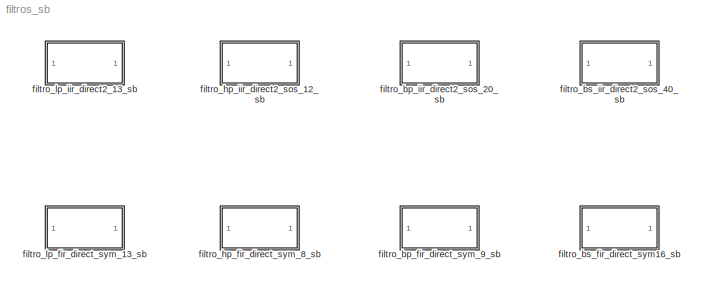
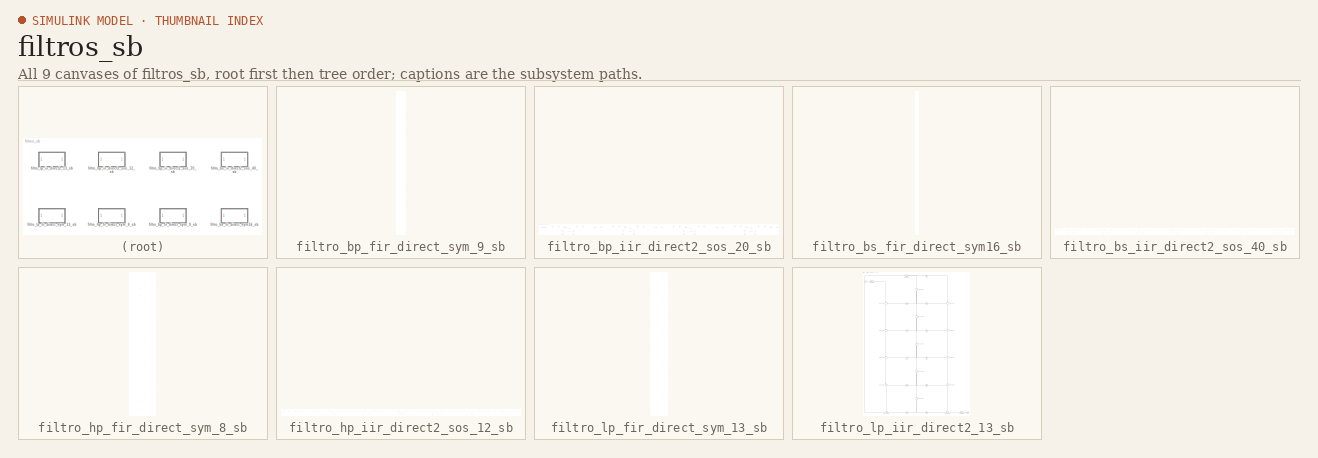
[diagram: thumbnail index - all 9 canvases of the model, root first then tree order]
MODEL filtros_sb
KIND model
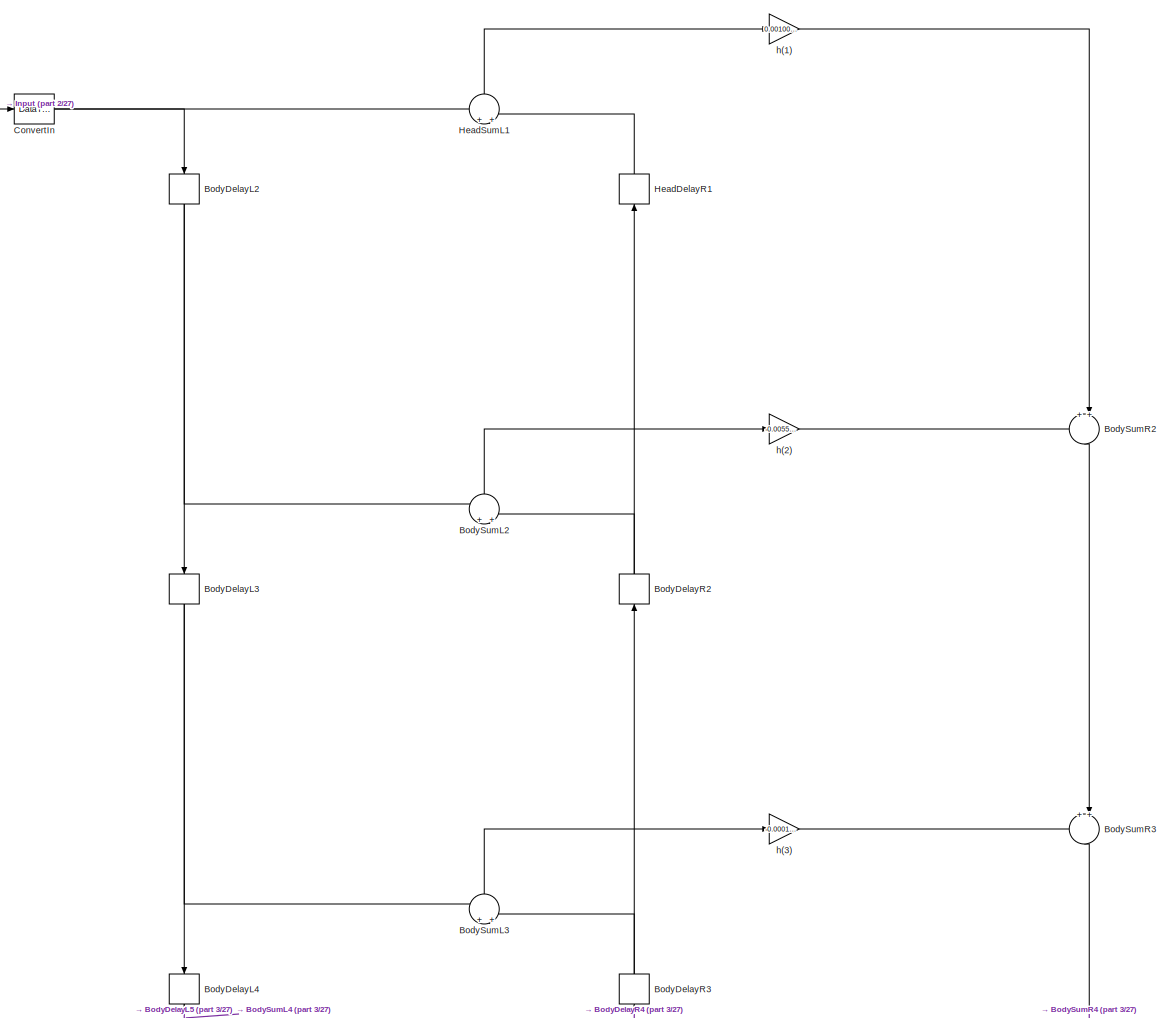
[diagram: filtro_bp_fir_direct_sym_9_sb - part 1/27, full width, top band]
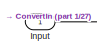
[diagram: filtro_bp_fir_direct_sym_9_sb - part 2/27, top left region]
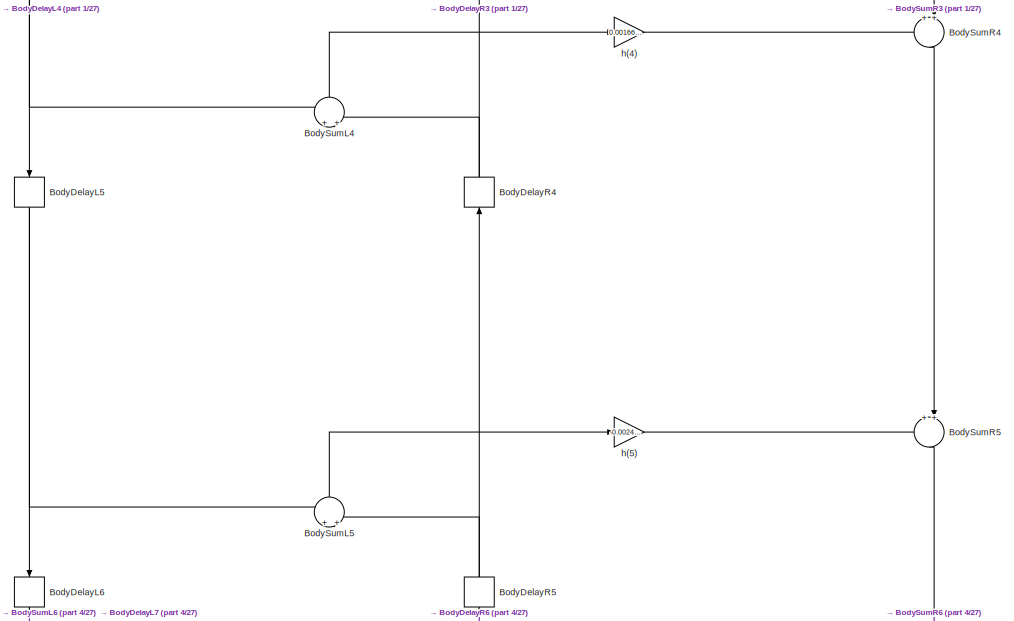
[diagram: filtro_bp_fir_direct_sym_9_sb - part 3/27, top center region]
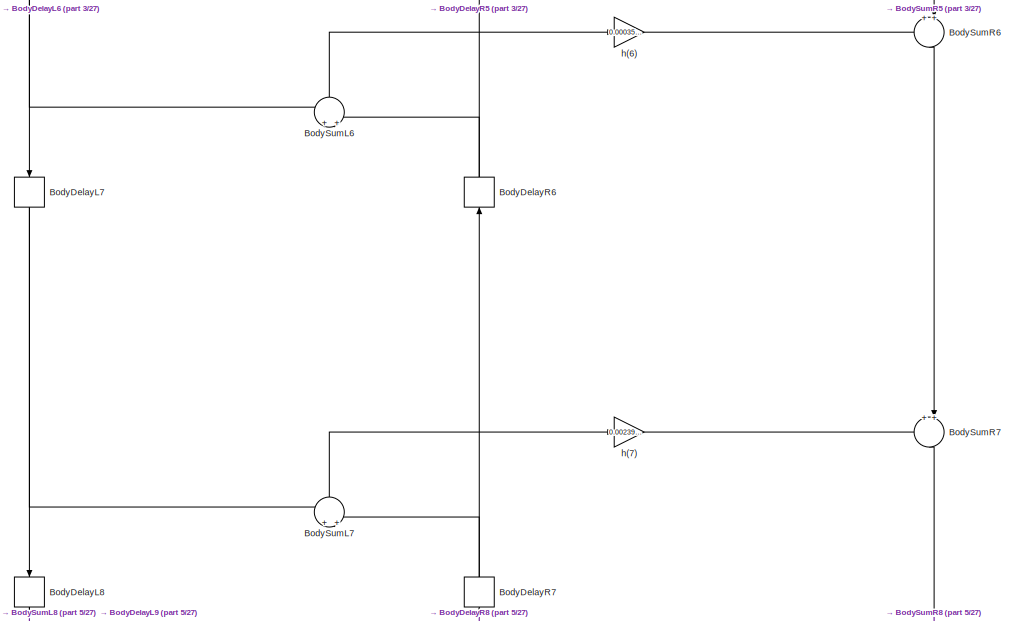
[diagram: filtro_bp_fir_direct_sym_9_sb - part 4/27, top center region]
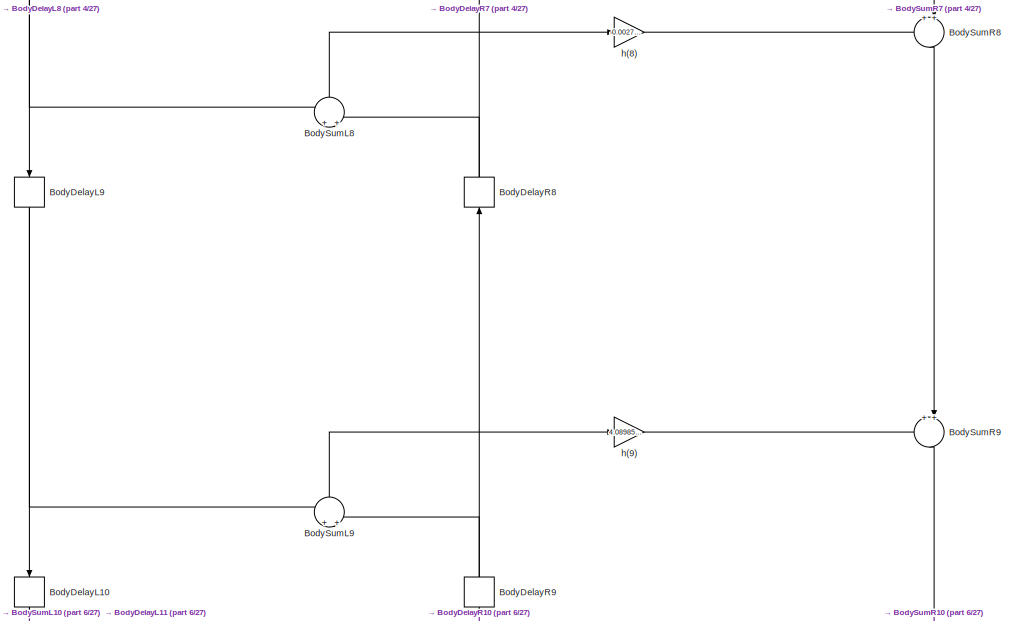
[diagram: filtro_bp_fir_direct_sym_9_sb - part 5/27, top center region]
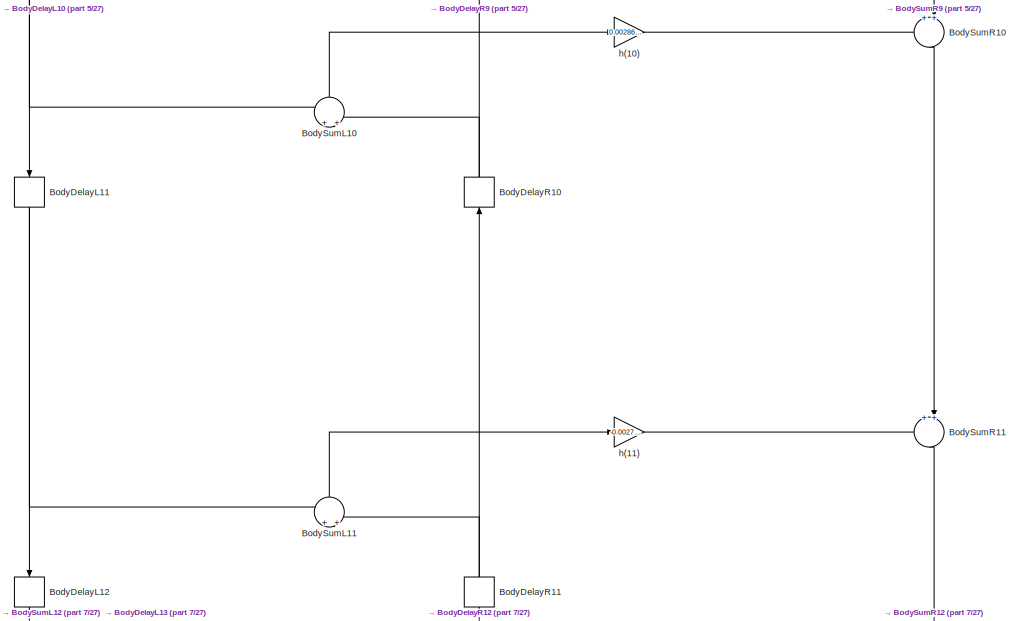
[diagram: filtro_bp_fir_direct_sym_9_sb - part 6/27, top center region]
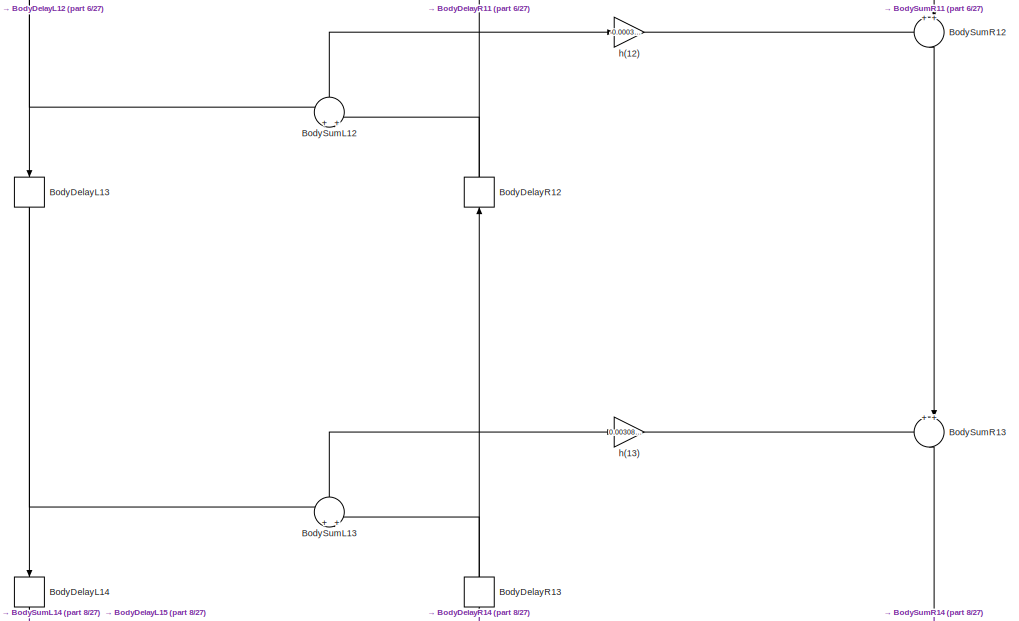
[diagram: filtro_bp_fir_direct_sym_9_sb - part 7/27, top center region]
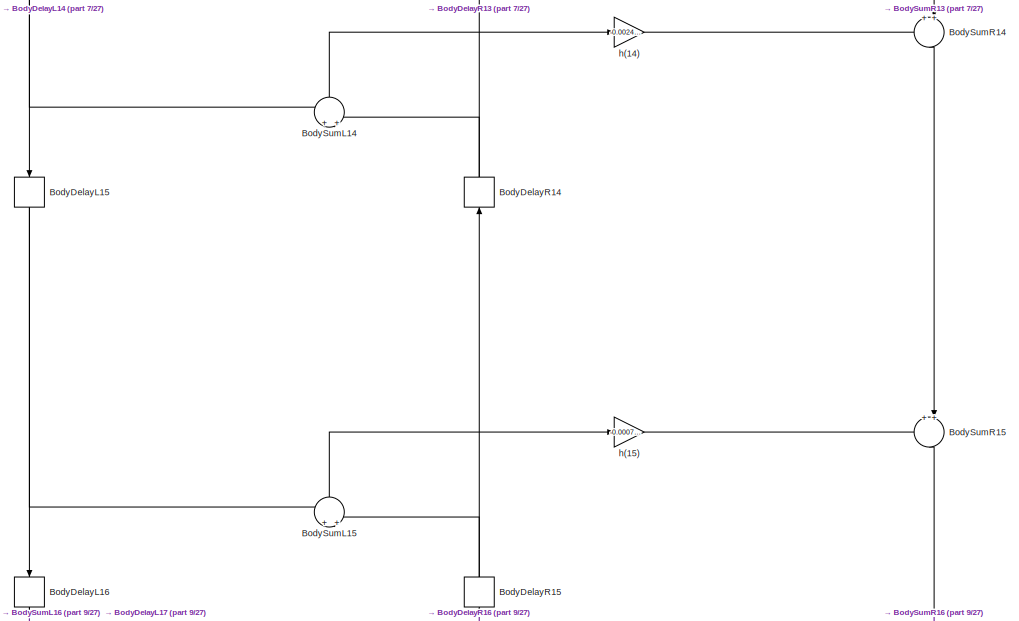
[diagram: filtro_bp_fir_direct_sym_9_sb - part 8/27, top center region]
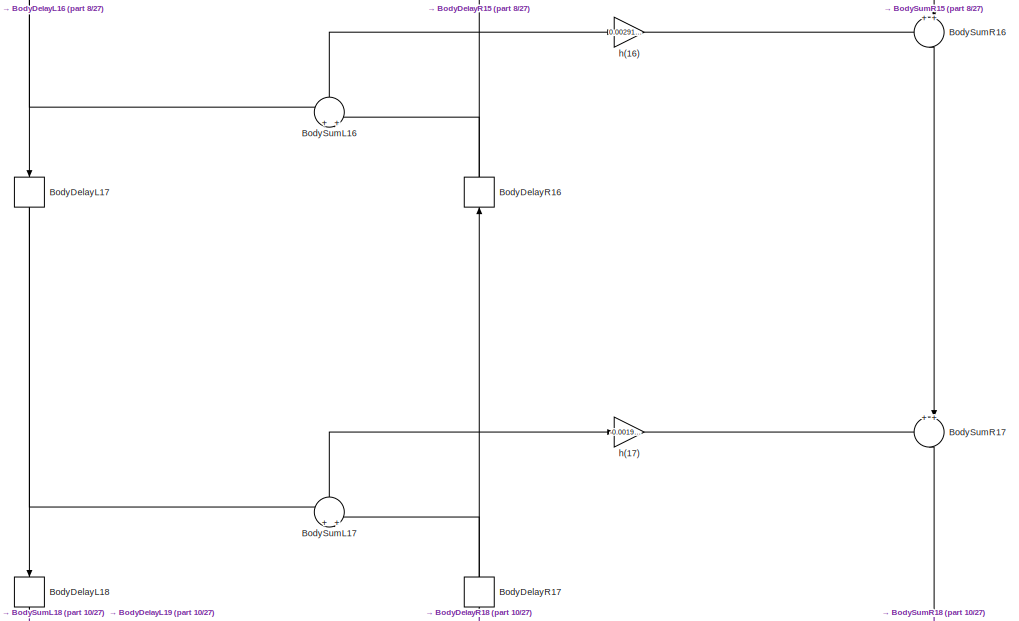
[diagram: filtro_bp_fir_direct_sym_9_sb - part 9/27, top center region]
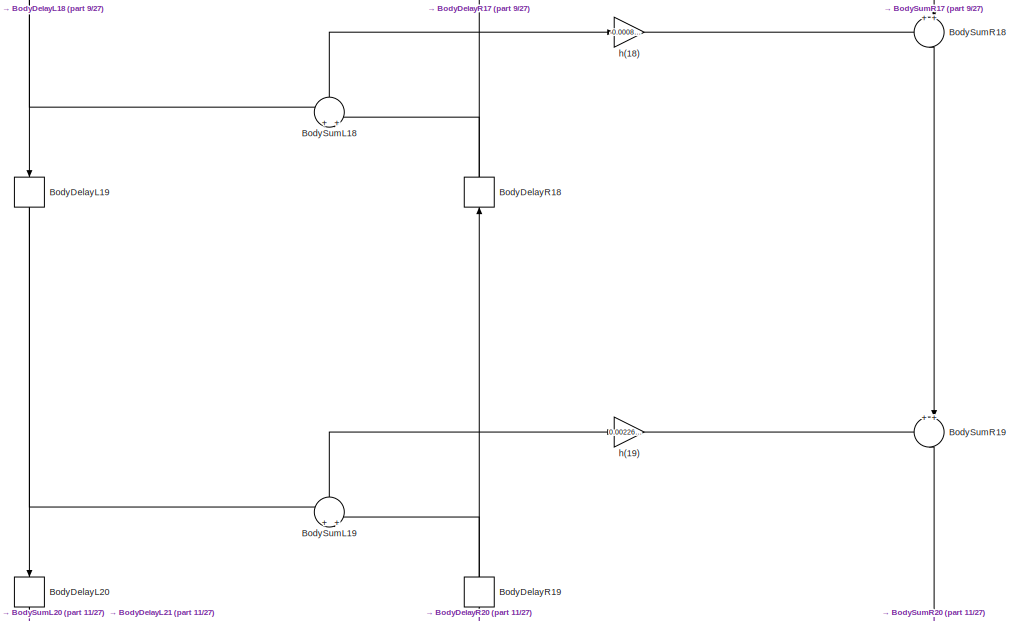
[diagram: filtro_bp_fir_direct_sym_9_sb - part 10/27, central region]
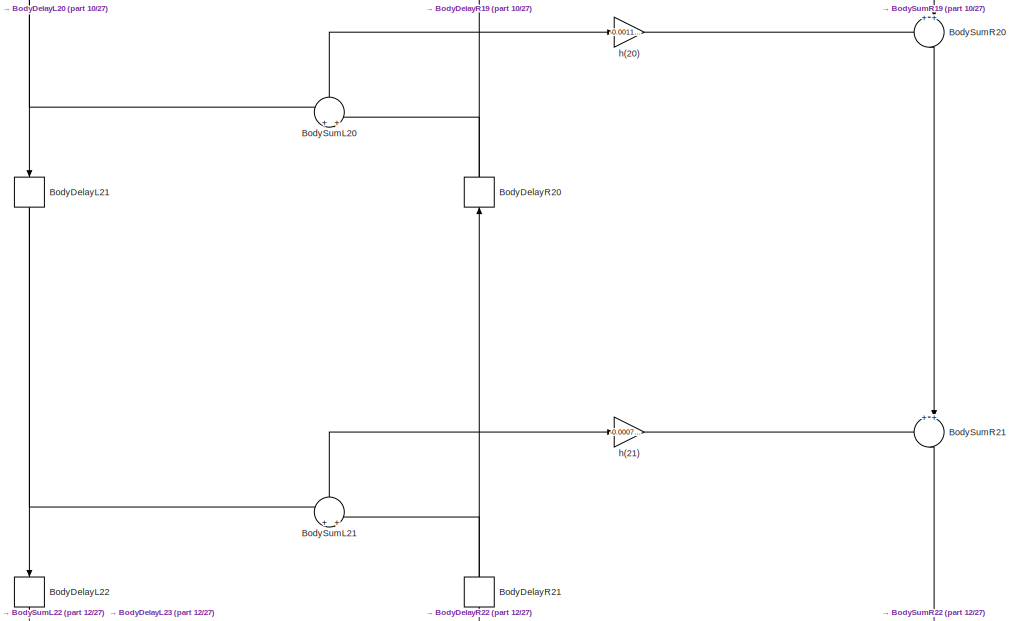
[diagram: filtro_bp_fir_direct_sym_9_sb - part 11/27, central region]
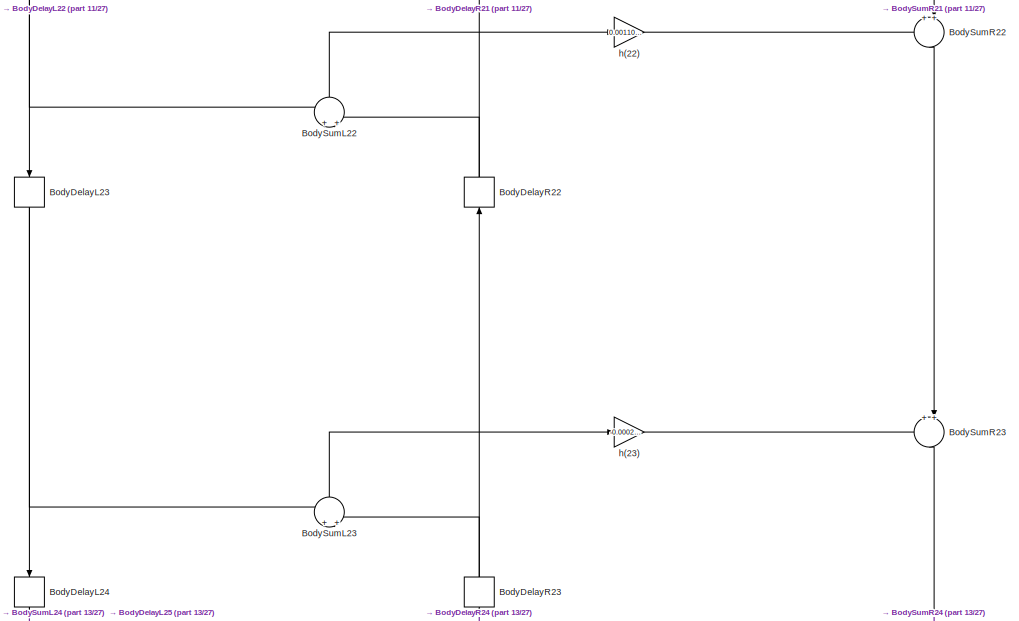
[diagram: filtro_bp_fir_direct_sym_9_sb - part 12/27, central region]
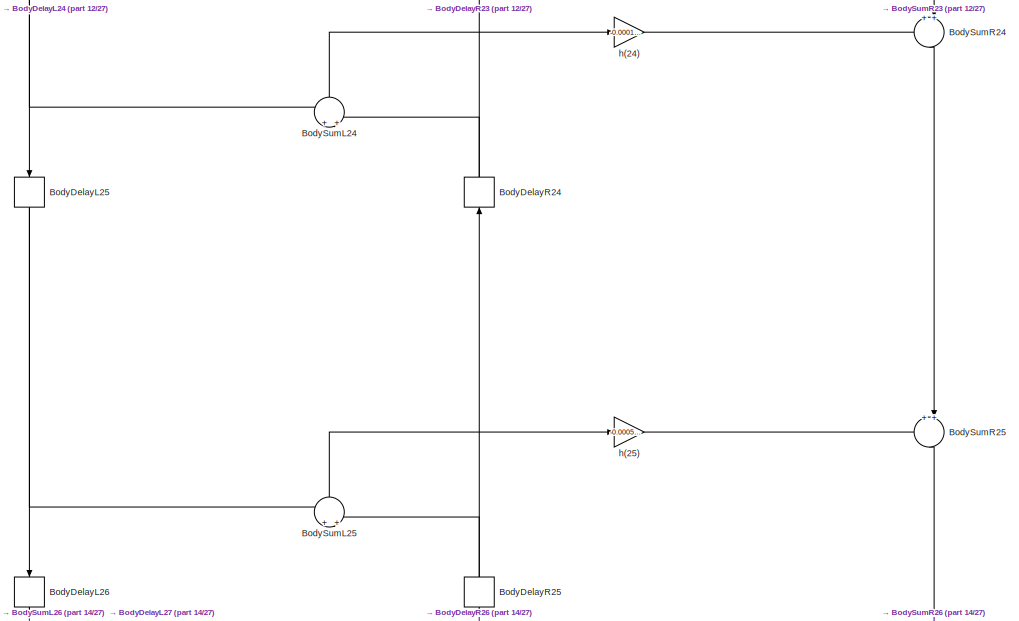
[diagram: filtro_bp_fir_direct_sym_9_sb - part 13/27, central region]
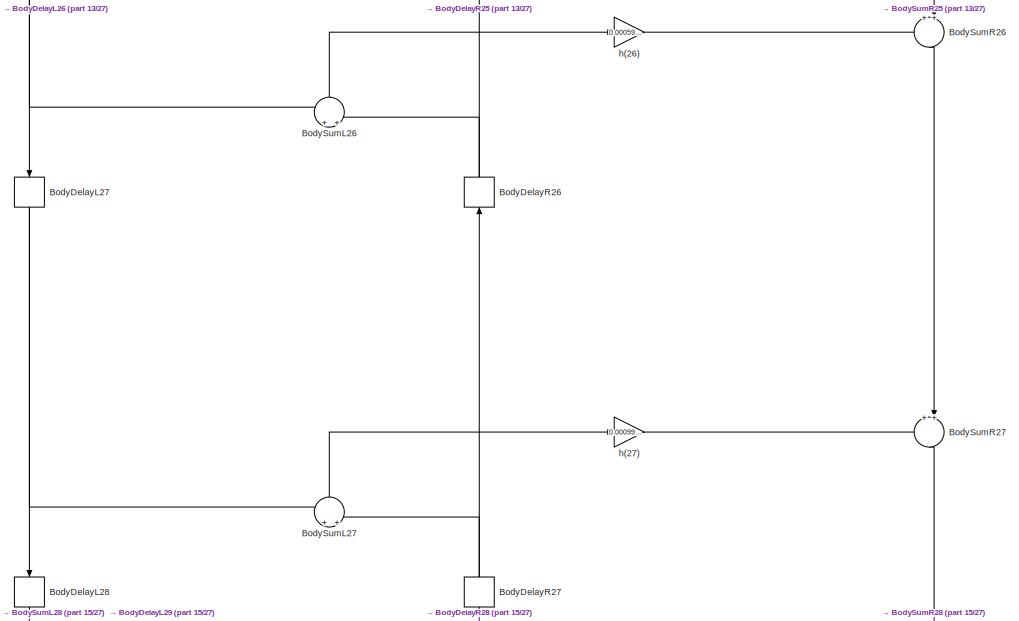
[diagram: filtro_bp_fir_direct_sym_9_sb - part 14/27, central region]
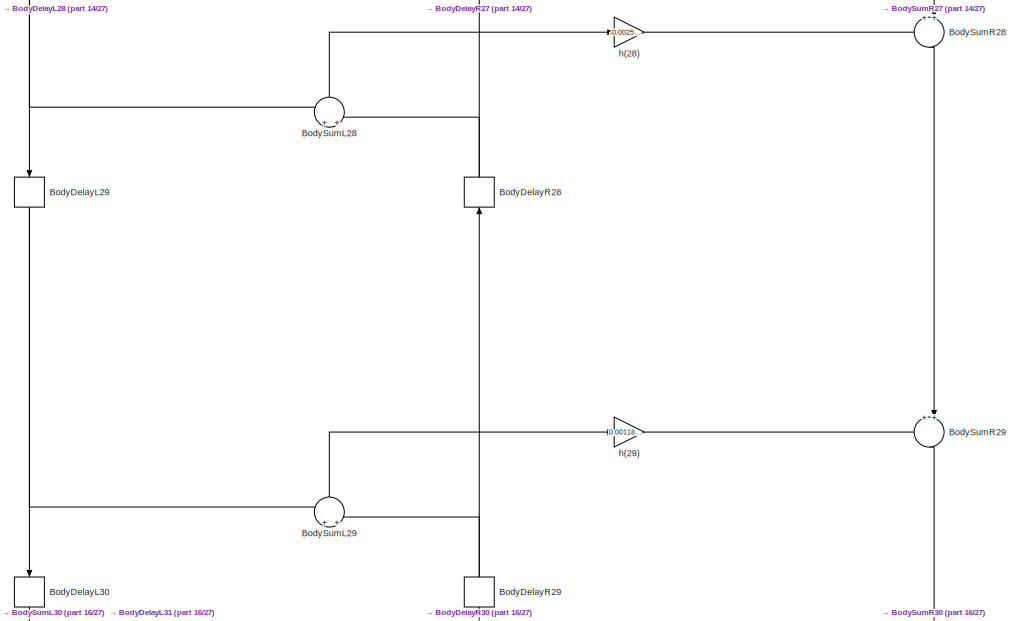
[diagram: filtro_bp_fir_direct_sym_9_sb - part 15/27, central region]
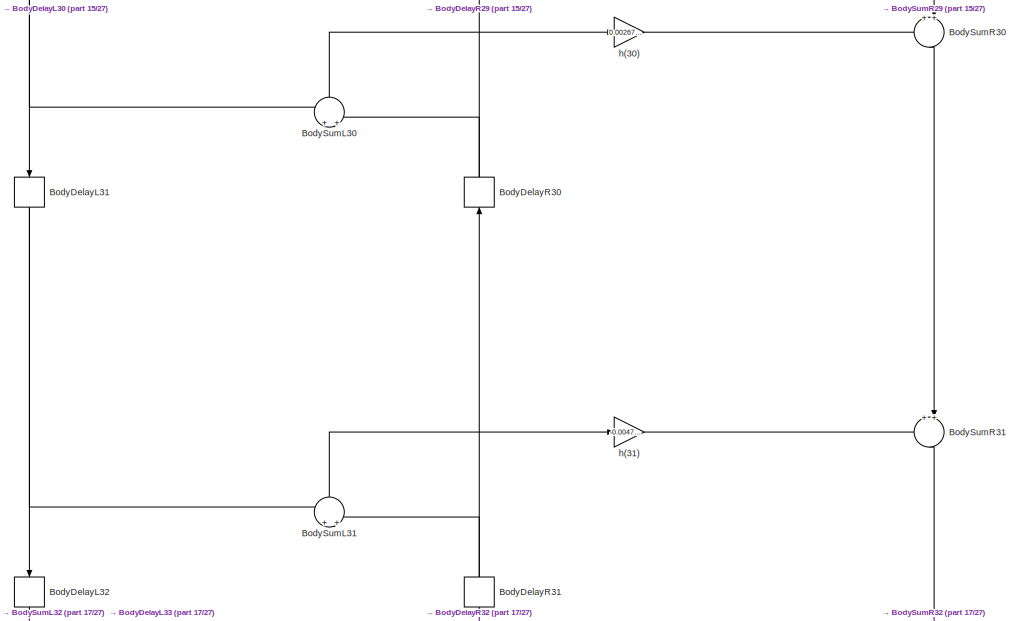
[diagram: filtro_bp_fir_direct_sym_9_sb - part 16/27, central region]
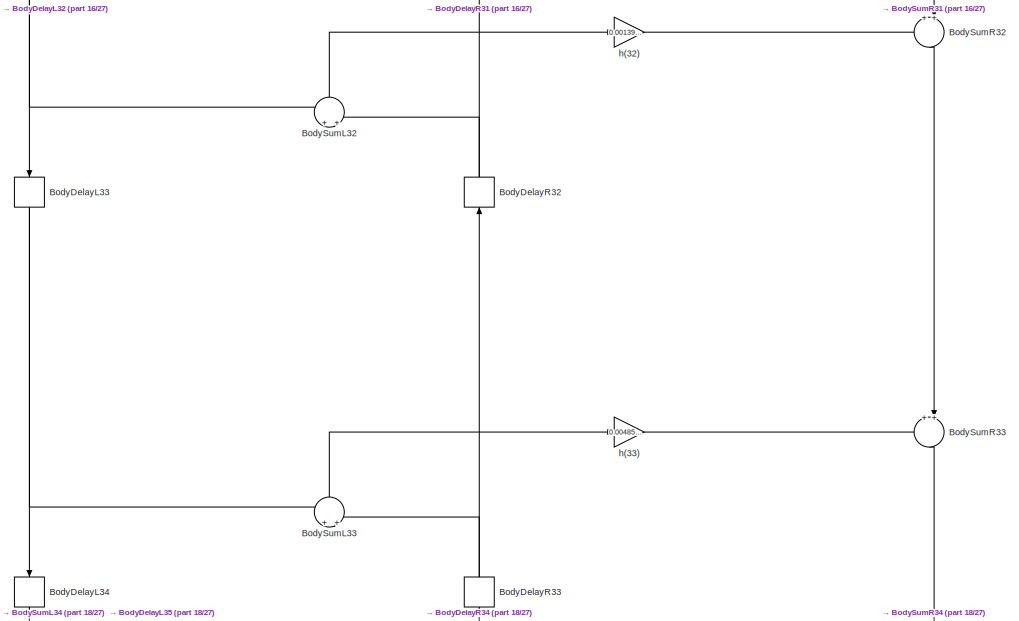
[diagram: filtro_bp_fir_direct_sym_9_sb - part 17/27, central region]
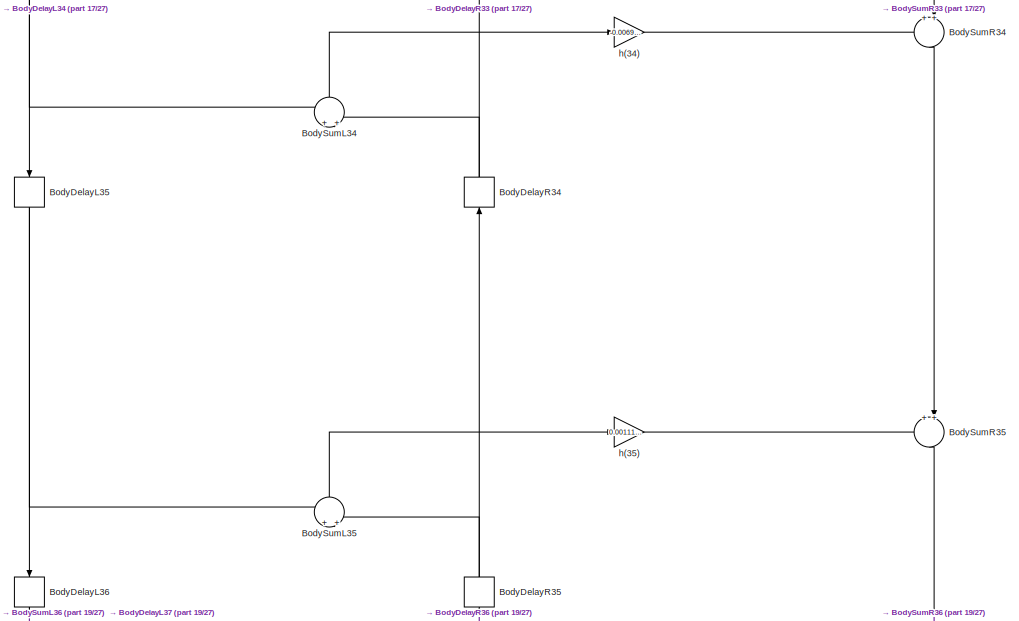
[diagram: filtro_bp_fir_direct_sym_9_sb - part 18/27, central region]
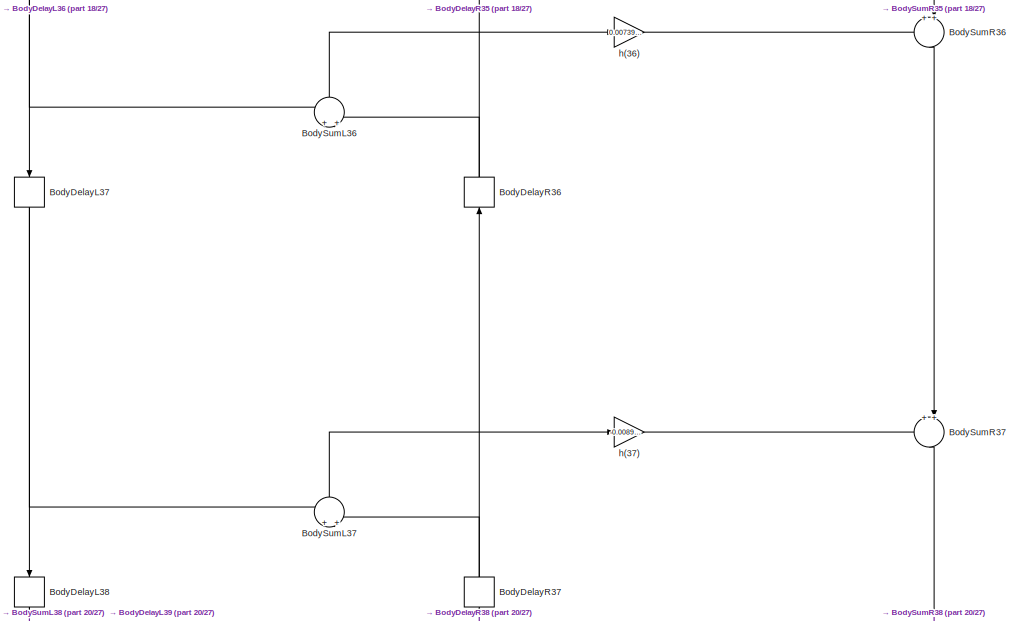
[diagram: filtro_bp_fir_direct_sym_9_sb - part 19/27, bottom center region]
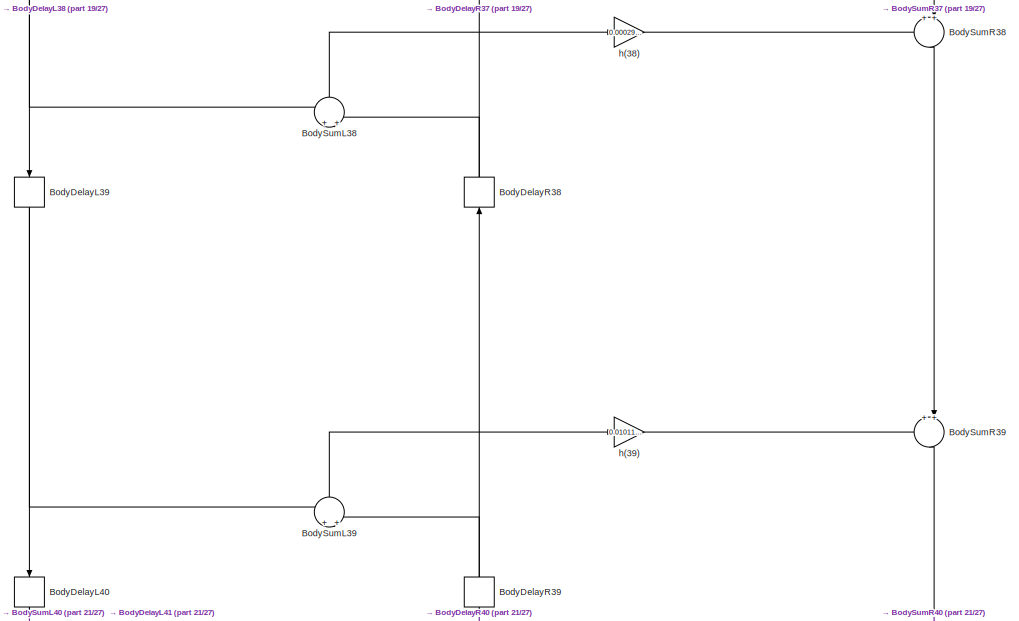
[diagram: filtro_bp_fir_direct_sym_9_sb - part 20/27, bottom center region]
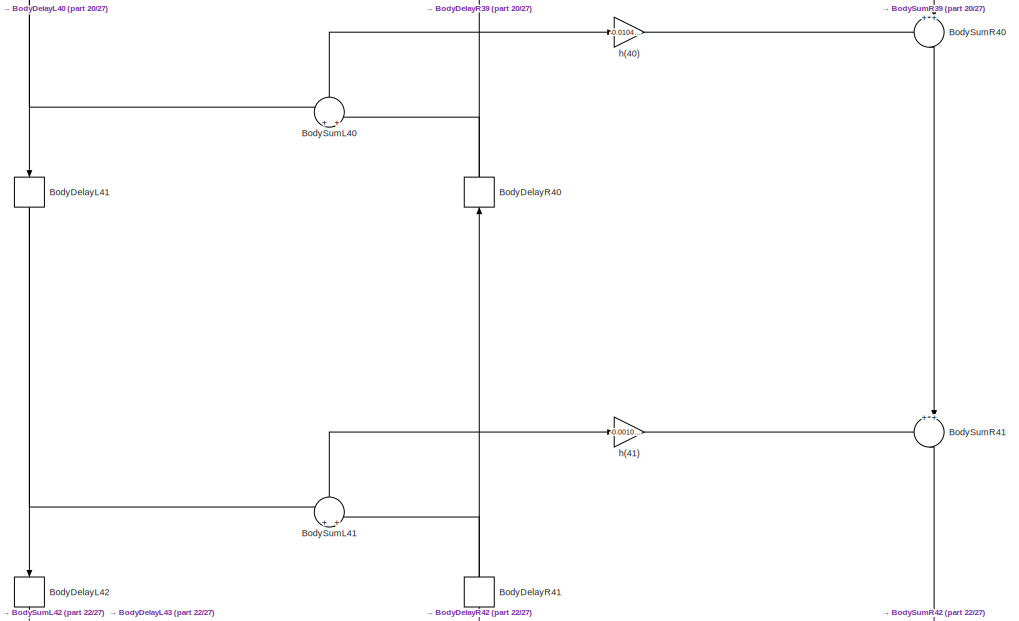
[diagram: filtro_bp_fir_direct_sym_9_sb - part 21/27, bottom center region]
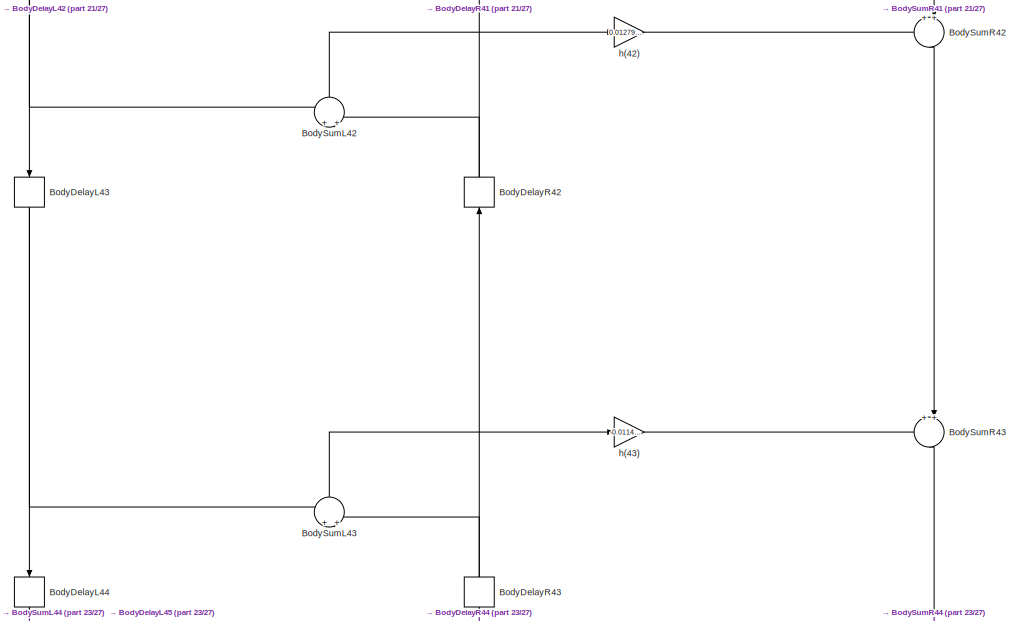
[diagram: filtro_bp_fir_direct_sym_9_sb - part 22/27, bottom center region]
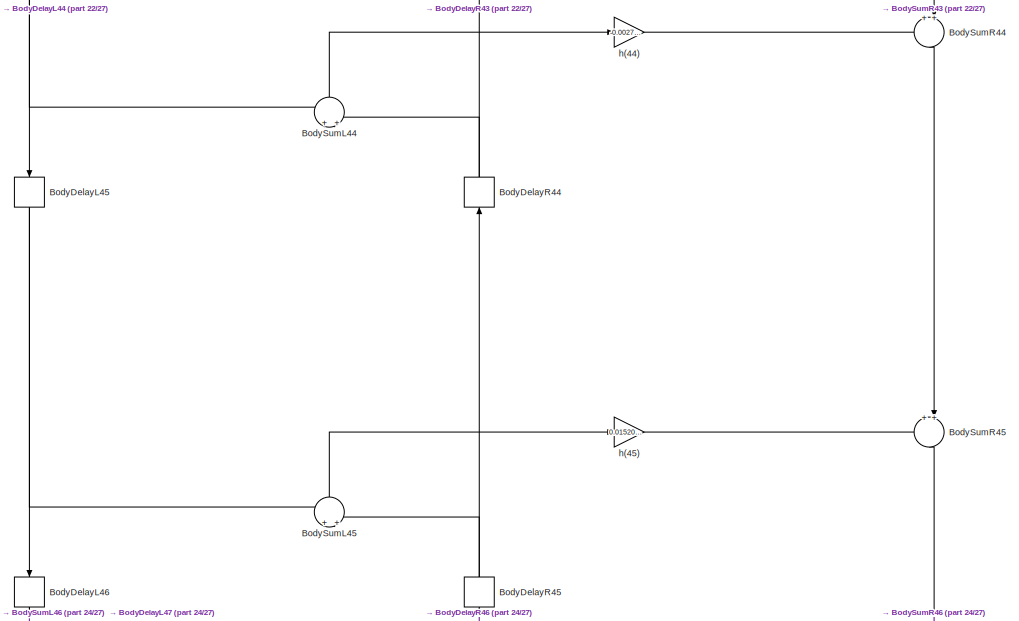
[diagram: filtro_bp_fir_direct_sym_9_sb - part 23/27, bottom center region]
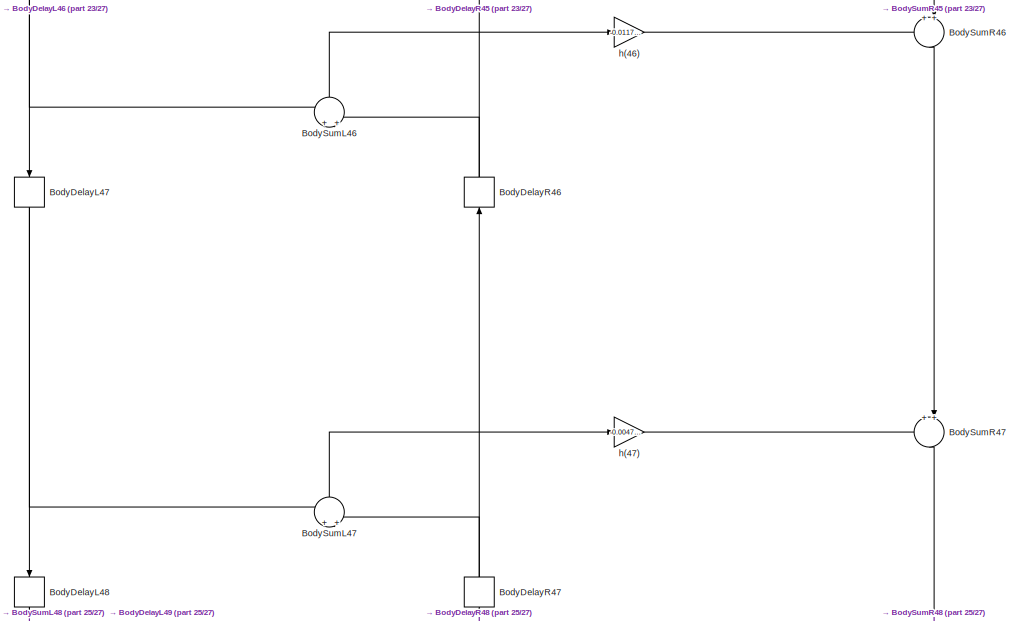
[diagram: filtro_bp_fir_direct_sym_9_sb - part 24/27, bottom center region]
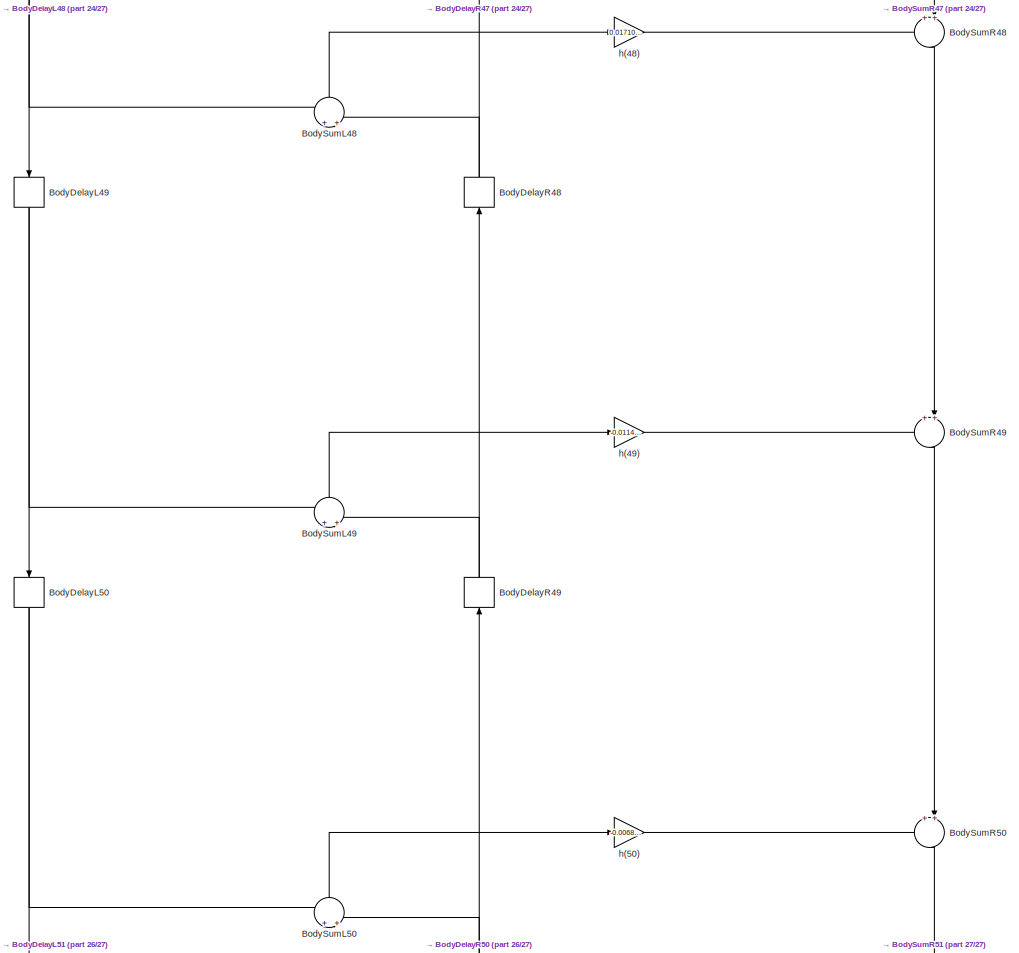
[diagram: filtro_bp_fir_direct_sym_9_sb - part 25/27, bottom center region]
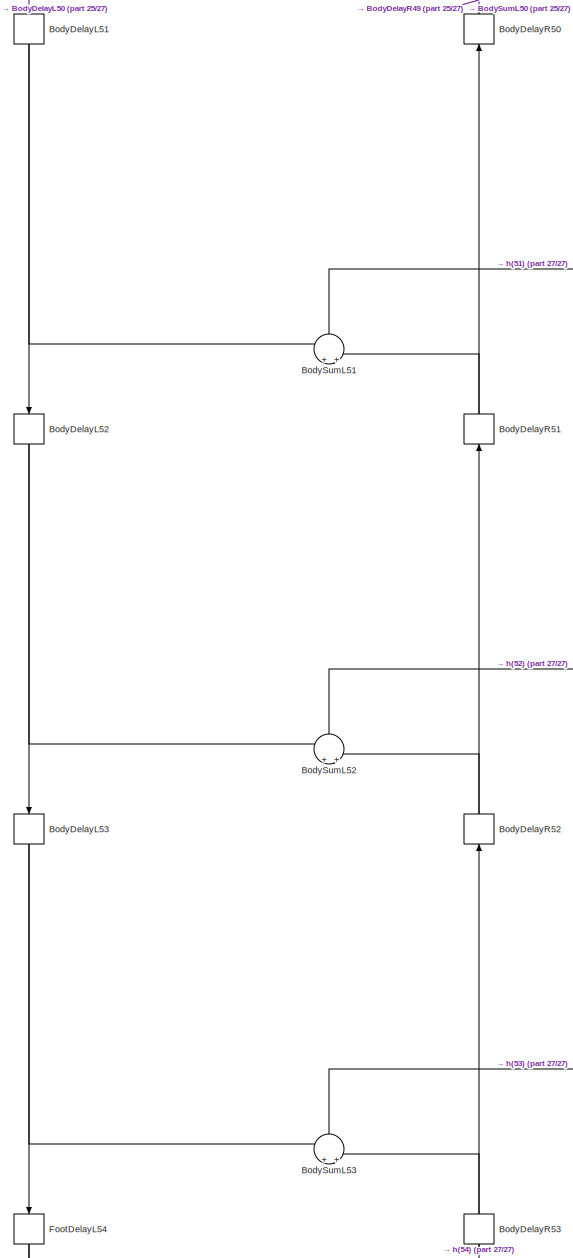
[diagram: filtro_bp_fir_direct_sym_9_sb - part 26/27, bottom center region]
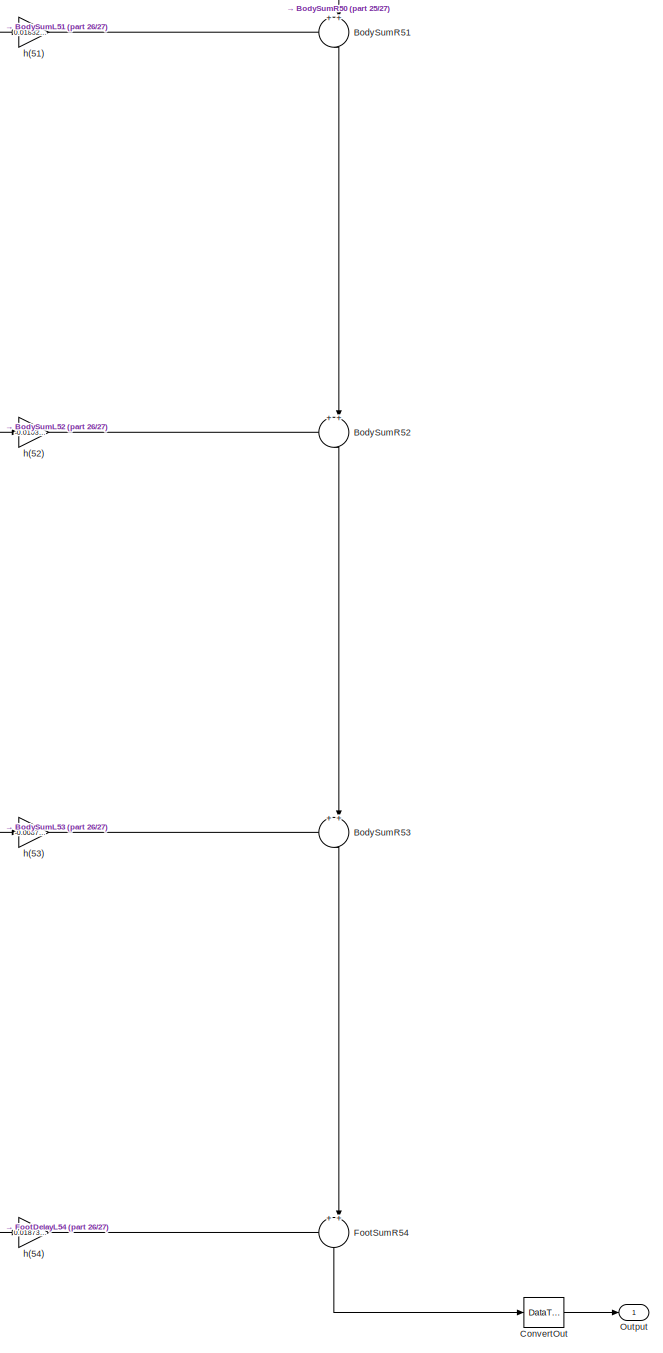
[diagram: filtro_bp_fir_direct_sym_9_sb - part 27/27, bottom right region]
BLOCK [SubSystem] filtro_bp_fir_direct_sym_9_sb
  ErrorFcn = dspFilterRealizedInBasicElemsAlgLoopErrFcnCallback
  Ports = [1, 1]
  RequestExecContextInheritance = off
  SID = 755
  Tag = FilterWizardSubSystem
  UserData = DataTag0
  UserDataPersistent = on
BLOCK [Delay] filtro_bp_fir_direct_sym_9_sb/BodyDelayL10
  DelayLength = 1
  InitialCondition = 0
  InputPortMap = u0
  Ports = [1, 1]
  SID = 801
BLOCK [Delay] filtro_bp_fir_direct_sym_9_sb/BodyDelayL11
  DelayLength = 1
  InitialCondition = 0
  InputPortMap = u0
  Ports = [1, 1]
  SID = 806
BLOCK [Delay] filtro_bp_fir_direct_sym_9_sb/BodyDelayL12
  DelayLength = 1
  InitialCondition = 0
  InputPortMap = u0
  Ports = [1, 1]
  SID = 811
BLOCK [Delay] filtro_bp_fir_direct_sym_9_sb/BodyDelayL13
  DelayLength = 1
  InitialCondition = 0
  InputPortMap = u0
  Ports = [1, 1]
  SID = 816
BLOCK [Delay] filtro_bp_fir_direct_sym_9_sb/BodyDelayL14
  DelayLength = 1
  InitialCondition = 0
  InputPortMap = u0
  Ports = [1, 1]
  SID = 821
BLOCK [Delay] filtro_bp_fir_direct_sym_9_sb/BodyDelayL15
  DelayLength = 1
  InitialCondition = 0
  InputPortMap = u0
  Ports = [1, 1]
  SID = 826
BLOCK [Delay] filtro_bp_fir_direct_sym_9_sb/BodyDelayL16
  DelayLength = 1
  InitialCondition = 0
  InputPortMap = u0
  Ports = [1, 1]
  SID = 831
BLOCK [Delay] filtro_bp_fir_direct_sym_9_sb/BodyDelayL17
  DelayLength = 1
  InitialCondition = 0
  InputPortMap = u0
  Ports = [1, 1]
  SID = 836
BLOCK [Delay] filtro_bp_fir_direct_sym_9_sb/BodyDelayL18
  DelayLength = 1
  InitialCondition = 0
  InputPortMap = u0
  Ports = [1, 1]
  SID = 841
BLOCK [Delay] filtro_bp_fir_direct_sym_9_sb/BodyDelayL19
  DelayLength = 1
  InitialCondition = 0
  InputPortMap = u0
  Ports = [1, 1]
  SID = 846
BLOCK [Delay] filtro_bp_fir_direct_sym_9_sb/BodyDelayL2
  DelayLength = 1
  InitialCondition = 0
  InputPortMap = u0
  Ports = [1, 1]
  SID = 761
BLOCK [Delay] filtro_bp_fir_direct_sym_9_sb/BodyDelayL20
  DelayLength = 1
  InitialCondition = 0
  InputPortMap = u0
  Ports = [1, 1]
  SID = 851
BLOCK [Delay] filtro_bp_fir_direct_sym_9_sb/BodyDelayL21
  DelayLength = 1
  InitialCondition = 0
  InputPortMap = u0
  Ports = [1, 1]
  SID = 856
BLOCK [Delay] filtro_bp_fir_direct_sym_9_sb/BodyDelayL22
  DelayLength = 1
  InitialCondition = 0
  InputPortMap = u0
  Ports = [1, 1]
  SID = 861
BLOCK [Delay] filtro_bp_fir_direct_sym_9_sb/BodyDelayL23
  DelayLength = 1
  InitialCondition = 0
  InputPortMap = u0
  Ports = [1, 1]
  SID = 866
BLOCK [Delay] filtro_bp_fir_direct_sym_9_sb/BodyDelayL24
  DelayLength = 1
  InitialCondition = 0
  InputPortMap = u0
  Ports = [1, 1]
  SID = 871
BLOCK [Delay] filtro_bp_fir_direct_sym_9_sb/BodyDelayL25
  DelayLength = 1
  InitialCondition = 0
  InputPortMap = u0
  Ports = [1, 1]
  SID = 876
BLOCK [Delay] filtro_bp_fir_direct_sym_9_sb/BodyDelayL26
  DelayLength = 1
  InitialCondition = 0
  InputPortMap = u0
  Ports = [1, 1]
  SID = 881
BLOCK [Delay] filtro_bp_fir_direct_sym_9_sb/BodyDelayL27
  DelayLength = 1
  InitialCondition = 0
  InputPortMap = u0
  Ports = [1, 1]
  SID = 886
BLOCK [Delay] filtro_bp_fir_direct_sym_9_sb/BodyDelayL28
  DelayLength = 1
  InitialCondition = 0
  InputPortMap = u0
  Ports = [1, 1]
  SID = 891
BLOCK [Delay] filtro_bp_fir_direct_sym_9_sb/BodyDelayL29
  DelayLength = 1
  InitialCondition = 0
  InputPortMap = u0
  Ports = [1, 1]
  SID = 896
BLOCK [Delay] filtro_bp_fir_direct_sym_9_sb/BodyDelayL3
  DelayLength = 1
  InitialCondition = 0
  InputPortMap = u0
  Ports = [1, 1]
  SID = 766
BLOCK [Delay] filtro_bp_fir_direct_sym_9_sb/BodyDelayL30
  DelayLength = 1
  InitialCondition = 0
  InputPortMap = u0
  Ports = [1, 1]
  SID = 901
BLOCK [Delay] filtro_bp_fir_direct_sym_9_sb/BodyDelayL31
  DelayLength = 1
  InitialCondition = 0
  InputPortMap = u0
  Ports = [1, 1]
  SID = 906
BLOCK [Delay] filtro_bp_fir_direct_sym_9_sb/BodyDelayL32
  DelayLength = 1
  InitialCondition = 0
  InputPortMap = u0
  Ports = [1, 1]
  SID = 911
BLOCK [Delay] filtro_bp_fir_direct_sym_9_sb/BodyDelayL33
  DelayLength = 1
  InitialCondition = 0
  InputPortMap = u0
  Ports = [1, 1]
  SID = 916
BLOCK [Delay] filtro_bp_fir_direct_sym_9_sb/BodyDelayL34
  DelayLength = 1
  InitialCondition = 0
  InputPortMap = u0
  Ports = [1, 1]
  SID = 921
BLOCK [Delay] filtro_bp_fir_direct_sym_9_sb/BodyDelayL35
  DelayLength = 1
  InitialCondition = 0
  InputPortMap = u0
  Ports = [1, 1]
  SID = 926
BLOCK [Delay] filtro_bp_fir_direct_sym_9_sb/BodyDelayL36
  DelayLength = 1
  InitialCondition = 0
  InputPortMap = u0
  Ports = [1, 1]
  SID = 931
BLOCK [Delay] filtro_bp_fir_direct_sym_9_sb/BodyDelayL37
  DelayLength = 1
  InitialCondition = 0
  InputPortMap = u0
  Ports = [1, 1]
  SID = 936
BLOCK [Delay] filtro_bp_fir_direct_sym_9_sb/BodyDelayL38
  DelayLength = 1
  InitialCondition = 0
  InputPortMap = u0
  Ports = [1, 1]
  SID = 941
BLOCK [Delay] filtro_bp_fir_direct_sym_9_sb/BodyDelayL39
  DelayLength = 1
  InitialCondition = 0
  InputPortMap = u0
  Ports = [1, 1]
  SID = 946
BLOCK [Delay] filtro_bp_fir_direct_sym_9_sb/BodyDelayL4
  DelayLength = 1
  InitialCondition = 0
  InputPortMap = u0
  Ports = [1, 1]
  SID = 771
BLOCK [Delay] filtro_bp_fir_direct_sym_9_sb/BodyDelayL40
  DelayLength = 1
  InitialCondition = 0
  InputPortMap = u0
  Ports = [1, 1]
  SID = 951
BLOCK [Delay] filtro_bp_fir_direct_sym_9_sb/BodyDelayL41
  DelayLength = 1
  InitialCondition = 0
  InputPortMap = u0
  Ports = [1, 1]
  SID = 956
BLOCK [Delay] filtro_bp_fir_direct_sym_9_sb/BodyDelayL42
  DelayLength = 1
  InitialCondition = 0
  InputPortMap = u0
  Ports = [1, 1]
  SID = 961
BLOCK [Delay] filtro_bp_fir_direct_sym_9_sb/BodyDelayL43
  DelayLength = 1
  InitialCondition = 0
  InputPortMap = u0
  Ports = [1, 1]
  SID = 966
BLOCK [Delay] filtro_bp_fir_direct_sym_9_sb/BodyDelayL44
  DelayLength = 1
  InitialCondition = 0
  InputPortMap = u0
  Ports = [1, 1]
  SID = 971
BLOCK [Delay] filtro_bp_fir_direct_sym_9_sb/BodyDelayL45
  DelayLength = 1
  InitialCondition = 0
  InputPortMap = u0
  Ports = [1, 1]
  SID = 976
BLOCK [Delay] filtro_bp_fir_direct_sym_9_sb/BodyDelayL46
  DelayLength = 1
  InitialCondition = 0
  InputPortMap = u0
  Ports = [1, 1]
  SID = 981
BLOCK [Delay] filtro_bp_fir_direct_sym_9_sb/BodyDelayL47
  DelayLength = 1
  InitialCondition = 0
  InputPortMap = u0
  Ports = [1, 1]
  SID = 986
BLOCK [Delay] filtro_bp_fir_direct_sym_9_sb/BodyDelayL48
  DelayLength = 1
  InitialCondition = 0
  InputPortMap = u0
  Ports = [1, 1]
  SID = 991
BLOCK [Delay] filtro_bp_fir_direct_sym_9_sb/BodyDelayL49
  DelayLength = 1
  InitialCondition = 0
  InputPortMap = u0
  Ports = [1, 1]
  SID = 996
BLOCK [Delay] filtro_bp_fir_direct_sym_9_sb/BodyDelayL5
  DelayLength = 1
  InitialCondition = 0
  InputPortMap = u0
  Ports = [1, 1]
  SID = 776
BLOCK [Delay] filtro_bp_fir_direct_sym_9_sb/BodyDelayL50
  DelayLength = 1
  InitialCondition = 0
  InputPortMap = u0
  Ports = [1, 1]
  SID = 1001
BLOCK [Delay] filtro_bp_fir_direct_sym_9_sb/BodyDelayL51
  DelayLength = 1
  InitialCondition = 0
  InputPortMap = u0
  Ports = [1, 1]
  SID = 1006
BLOCK [Delay] filtro_bp_fir_direct_sym_9_sb/BodyDelayL52
  DelayLength = 1
  InitialCondition = 0
  InputPortMap = u0
  Ports = [1, 1]
  SID = 1011
BLOCK [Delay] filtro_bp_fir_direct_sym_9_sb/BodyDelayL53
  DelayLength = 1
  InitialCondition = 0
  InputPortMap = u0
  Ports = [1, 1]
  SID = 1016
BLOCK [Delay] filtro_bp_fir_direct_sym_9_sb/BodyDelayL6
  DelayLength = 1
  InitialCondition = 0
  InputPortMap = u0
  Ports = [1, 1]
  SID = 781
BLOCK [Delay] filtro_bp_fir_direct_sym_9_sb/BodyDelayL7
  DelayLength = 1
  InitialCondition = 0
  InputPortMap = u0
  Ports = [1, 1]
  SID = 786
BLOCK [Delay] filtro_bp_fir_direct_sym_9_sb/BodyDelayL8
  DelayLength = 1
  InitialCondition = 0
  InputPortMap = u0
  Ports = [1, 1]
  SID = 791
BLOCK [Delay] filtro_bp_fir_direct_sym_9_sb/BodyDelayL9
  DelayLength = 1
  InitialCondition = 0
  InputPortMap = u0
  Ports = [1, 1]
  SID = 796
BLOCK [Delay] filtro_bp_fir_direct_sym_9_sb/BodyDelayR10
  DelayLength = 1
  InitialCondition = 0
  InputPortMap = u0
  Ports = [1, 1]
  SID = 804
BLOCK [Delay] filtro_bp_fir_direct_sym_9_sb/BodyDelayR11
  DelayLength = 1
  InitialCondition = 0
  InputPortMap = u0
  Ports = [1, 1]
  SID = 809
BLOCK [Delay] filtro_bp_fir_direct_sym_9_sb/BodyDelayR12
  DelayLength = 1
  InitialCondition = 0
  InputPortMap = u0
  Ports = [1, 1]
  SID = 814
BLOCK [Delay] filtro_bp_fir_direct_sym_9_sb/BodyDelayR13
  DelayLength = 1
  InitialCondition = 0
  InputPortMap = u0
  Ports = [1, 1]
  SID = 819
BLOCK [Delay] filtro_bp_fir_direct_sym_9_sb/BodyDelayR14
  DelayLength = 1
  InitialCondition = 0
  InputPortMap = u0
  Ports = [1, 1]
  SID = 824
BLOCK [Delay] filtro_bp_fir_direct_sym_9_sb/BodyDelayR15
  DelayLength = 1
  InitialCondition = 0
  InputPortMap = u0
  Ports = [1, 1]
  SID = 829
BLOCK [Delay] filtro_bp_fir_direct_sym_9_sb/BodyDelayR16
  DelayLength = 1
  InitialCondition = 0
  InputPortMap = u0
  Ports = [1, 1]
  SID = 834
BLOCK [Delay] filtro_bp_fir_direct_sym_9_sb/BodyDelayR17
  DelayLength = 1
  InitialCondition = 0
  InputPortMap = u0
  Ports = [1, 1]
  SID = 839
BLOCK [Delay] filtro_bp_fir_direct_sym_9_sb/BodyDelayR18
  DelayLength = 1
  InitialCondition = 0
  InputPortMap = u0
  Ports = [1, 1]
  SID = 844
BLOCK [Delay] filtro_bp_fir_direct_sym_9_sb/BodyDelayR19
  DelayLength = 1
  InitialCondition = 0
  InputPortMap = u0
  Ports = [1, 1]
  SID = 849
BLOCK [Delay] filtro_bp_fir_direct_sym_9_sb/BodyDelayR2
  DelayLength = 1
  InitialCondition = 0
  InputPortMap = u0
  Ports = [1, 1]
  SID = 764
BLOCK [Delay] filtro_bp_fir_direct_sym_9_sb/BodyDelayR20
  DelayLength = 1
  InitialCondition = 0
  InputPortMap = u0
  Ports = [1, 1]
  SID = 854
BLOCK [Delay] filtro_bp_fir_direct_sym_9_sb/BodyDelayR21
  DelayLength = 1
  InitialCondition = 0
  InputPortMap = u0
  Ports = [1, 1]
  SID = 859
BLOCK [Delay] filtro_bp_fir_direct_sym_9_sb/BodyDelayR22
  DelayLength = 1
  InitialCondition = 0
  InputPortMap = u0
  Ports = [1, 1]
  SID = 864
BLOCK [Delay] filtro_bp_fir_direct_sym_9_sb/BodyDelayR23
  DelayLength = 1
  InitialCondition = 0
  InputPortMap = u0
  Ports = [1, 1]
  SID = 869
BLOCK [Delay] filtro_bp_fir_direct_sym_9_sb/BodyDelayR24
  DelayLength = 1
  InitialCondition = 0
  InputPortMap = u0
  Ports = [1, 1]
  SID = 874
BLOCK [Delay] filtro_bp_fir_direct_sym_9_sb/BodyDelayR25
  DelayLength = 1
  InitialCondition = 0
  InputPortMap = u0
  Ports = [1, 1]
  SID = 879
BLOCK [Delay] filtro_bp_fir_direct_sym_9_sb/BodyDelayR26
  DelayLength = 1
  InitialCondition = 0
  InputPortMap = u0
  Ports = [1, 1]
  SID = 884
BLOCK [Delay] filtro_bp_fir_direct_sym_9_sb/BodyDelayR27
  DelayLength = 1
  InitialCondition = 0
  InputPortMap = u0
  Ports = [1, 1]
  SID = 889
BLOCK [Delay] filtro_bp_fir_direct_sym_9_sb/BodyDelayR28
  DelayLength = 1
  InitialCondition = 0
  InputPortMap = u0
  Ports = [1, 1]
  SID = 894
BLOCK [Delay] filtro_bp_fir_direct_sym_9_sb/BodyDelayR29
  DelayLength = 1
  InitialCondition = 0
  InputPortMap = u0
  Ports = [1, 1]
  SID = 899
BLOCK [Delay] filtro_bp_fir_direct_sym_9_sb/BodyDelayR3
  DelayLength = 1
  InitialCondition = 0
  InputPortMap = u0
  Ports = [1, 1]
  SID = 769
BLOCK [Delay] filtro_bp_fir_direct_sym_9_sb/BodyDelayR30
  DelayLength = 1
  InitialCondition = 0
  InputPortMap = u0
  Ports = [1, 1]
  SID = 904
BLOCK [Delay] filtro_bp_fir_direct_sym_9_sb/BodyDelayR31
  DelayLength = 1
  InitialCondition = 0
  InputPortMap = u0
  Ports = [1, 1]
  SID = 909
BLOCK [Delay] filtro_bp_fir_direct_sym_9_sb/BodyDelayR32
  DelayLength = 1
  InitialCondition = 0
  InputPortMap = u0
  Ports = [1, 1]
  SID = 914
BLOCK [Delay] filtro_bp_fir_direct_sym_9_sb/BodyDelayR33
  DelayLength = 1
  InitialCondition = 0
  InputPortMap = u0
  Ports = [1, 1]
  SID = 919
BLOCK [Delay] filtro_bp_fir_direct_sym_9_sb/BodyDelayR34
  DelayLength = 1
  InitialCondition = 0
  InputPortMap = u0
  Ports = [1, 1]
  SID = 924
BLOCK [Delay] filtro_bp_fir_direct_sym_9_sb/BodyDelayR35
  DelayLength = 1
  InitialCondition = 0
  InputPortMap = u0
  Ports = [1, 1]
  SID = 929
BLOCK [Delay] filtro_bp_fir_direct_sym_9_sb/BodyDelayR36
  DelayLength = 1
  InitialCondition = 0
  InputPortMap = u0
  Ports = [1, 1]
  SID = 934
BLOCK [Delay] filtro_bp_fir_direct_sym_9_sb/BodyDelayR37
  DelayLength = 1
  InitialCondition = 0
  InputPortMap = u0
  Ports = [1, 1]
  SID = 939
BLOCK [Delay] filtro_bp_fir_direct_sym_9_sb/BodyDelayR38
  DelayLength = 1
  InitialCondition = 0
  InputPortMap = u0
  Ports = [1, 1]
  SID = 944
BLOCK [Delay] filtro_bp_fir_direct_sym_9_sb/BodyDelayR39
  DelayLength = 1
  InitialCondition = 0
  InputPortMap = u0
  Ports = [1, 1]
  SID = 949
BLOCK [Delay] filtro_bp_fir_direct_sym_9_sb/BodyDelayR4
  DelayLength = 1
  InitialCondition = 0
  InputPortMap = u0
  Ports = [1, 1]
  SID = 774
BLOCK [Delay] filtro_bp_fir_direct_sym_9_sb/BodyDelayR40
  DelayLength = 1
  InitialCondition = 0
  InputPortMap = u0
  Ports = [1, 1]
  SID = 954
BLOCK [Delay] filtro_bp_fir_direct_sym_9_sb/BodyDelayR41
  DelayLength = 1
  InitialCondition = 0
  InputPortMap = u0
  Ports = [1, 1]
  SID = 959
BLOCK [Delay] filtro_bp_fir_direct_sym_9_sb/BodyDelayR42
  DelayLength = 1
  InitialCondition = 0
  InputPortMap = u0
  Ports = [1, 1]
  SID = 964
BLOCK [Delay] filtro_bp_fir_direct_sym_9_sb/BodyDelayR43
  DelayLength = 1
  InitialCondition = 0
  InputPortMap = u0
  Ports = [1, 1]
  SID = 969
BLOCK [Delay] filtro_bp_fir_direct_sym_9_sb/BodyDelayR44
  DelayLength = 1
  InitialCondition = 0
  InputPortMap = u0
  Ports = [1, 1]
  SID = 974
BLOCK [Delay] filtro_bp_fir_direct_sym_9_sb/BodyDelayR45
  DelayLength = 1
  InitialCondition = 0
  InputPortMap = u0
  Ports = [1, 1]
  SID = 979
BLOCK [Delay] filtro_bp_fir_direct_sym_9_sb/BodyDelayR46
  DelayLength = 1
  InitialCondition = 0
  InputPortMap = u0
  Ports = [1, 1]
  SID = 984
BLOCK [Delay] filtro_bp_fir_direct_sym_9_sb/BodyDelayR47
  DelayLength = 1
  InitialCondition = 0
  InputPortMap = u0
  Ports = [1, 1]
  SID = 989
BLOCK [Delay] filtro_bp_fir_direct_sym_9_sb/BodyDelayR48
  DelayLength = 1
  InitialCondition = 0
  InputPortMap = u0
  Ports = [1, 1]
  SID = 994
BLOCK [Delay] filtro_bp_fir_direct_sym_9_sb/BodyDelayR49
  DelayLength = 1
  InitialCondition = 0
  InputPortMap = u0
  Ports = [1, 1]
  SID = 999
BLOCK [Delay] filtro_bp_fir_direct_sym_9_sb/BodyDelayR5
  DelayLength = 1
  InitialCondition = 0
  InputPortMap = u0
  Ports = [1, 1]
  SID = 779
BLOCK [Delay] filtro_bp_fir_direct_sym_9_sb/BodyDelayR50
  DelayLength = 1
  InitialCondition = 0
  InputPortMap = u0
  Ports = [1, 1]
  SID = 1004
BLOCK [Delay] filtro_bp_fir_direct_sym_9_sb/BodyDelayR51
  DelayLength = 1
  InitialCondition = 0
  InputPortMap = u0
  Ports = [1, 1]
  SID = 1009
BLOCK [Delay] filtro_bp_fir_direct_sym_9_sb/BodyDelayR52
  DelayLength = 1
  InitialCondition = 0
  InputPortMap = u0
  Ports = [1, 1]
  SID = 1014
BLOCK [Delay] filtro_bp_fir_direct_sym_9_sb/BodyDelayR53
  DelayLength = 1
  InitialCondition = 0
  InputPortMap = u0
  Ports = [1, 1]
  SID = 1019
BLOCK [Delay] filtro_bp_fir_direct_sym_9_sb/BodyDelayR6
  DelayLength = 1
  InitialCondition = 0
  InputPortMap = u0
  Ports = [1, 1]
  SID = 784
BLOCK [Delay] filtro_bp_fir_direct_sym_9_sb/BodyDelayR7
  DelayLength = 1
  InitialCondition = 0
  InputPortMap = u0
  Ports = [1, 1]
  SID = 789
BLOCK [Delay] filtro_bp_fir_direct_sym_9_sb/BodyDelayR8
  DelayLength = 1
  InitialCondition = 0
  InputPortMap = u0
  Ports = [1, 1]
  SID = 794
BLOCK [Delay] filtro_bp_fir_direct_sym_9_sb/BodyDelayR9
  DelayLength = 1
  InitialCondition = 0
  InputPortMap = u0
  Ports = [1, 1]
  SID = 799
BLOCK [Sum] filtro_bp_fir_direct_sym_9_sb/BodySumL10
  AccumDataTypeStr = fixdt(1,17,15)
  IconShape = round
  InputSameDT = off
  Inputs = +|+
  OutDataTypeStr = fixdt(1,17,15)
  Ports = [2, 1]
  RndMeth = Convergent
  SID = 802
  SaturateOnIntegerOverflow = off
BLOCK [Sum] filtro_bp_fir_direct_sym_9_sb/BodySumL11
  AccumDataTypeStr = fixdt(1,17,15)
  IconShape = round
  InputSameDT = off
  Inputs = +|+
  OutDataTypeStr = fixdt(1,17,15)
  Ports = [2, 1]
  RndMeth = Convergent
  SID = 807
  SaturateOnIntegerOverflow = off
BLOCK [Sum] filtro_bp_fir_direct_sym_9_sb/BodySumL12
  AccumDataTypeStr = fixdt(1,17,15)
  IconShape = round
  InputSameDT = off
  Inputs = +|+
  OutDataTypeStr = fixdt(1,17,15)
  Ports = [2, 1]
  RndMeth = Convergent
  SID = 812
  SaturateOnIntegerOverflow = off
BLOCK [Sum] filtro_bp_fir_direct_sym_9_sb/BodySumL13
  AccumDataTypeStr = fixdt(1,17,15)
  IconShape = round
  InputSameDT = off
  Inputs = +|+
  OutDataTypeStr = fixdt(1,17,15)
  Ports = [2, 1]
  RndMeth = Convergent
  SID = 817
  SaturateOnIntegerOverflow = off
BLOCK [Sum] filtro_bp_fir_direct_sym_9_sb/BodySumL14
  AccumDataTypeStr = fixdt(1,17,15)
  IconShape = round
  InputSameDT = off
  Inputs = +|+
  OutDataTypeStr = fixdt(1,17,15)
  Ports = [2, 1]
  RndMeth = Convergent
  SID = 822
  SaturateOnIntegerOverflow = off
BLOCK [Sum] filtro_bp_fir_direct_sym_9_sb/BodySumL15
  AccumDataTypeStr = fixdt(1,17,15)
  IconShape = round
  InputSameDT = off
  Inputs = +|+
  OutDataTypeStr = fixdt(1,17,15)
  Ports = [2, 1]
  RndMeth = Convergent
  SID = 827
  SaturateOnIntegerOverflow = off
BLOCK [Sum] filtro_bp_fir_direct_sym_9_sb/BodySumL16
  AccumDataTypeStr = fixdt(1,17,15)
  IconShape = round
  InputSameDT = off
  Inputs = +|+
  OutDataTypeStr = fixdt(1,17,15)
  Ports = [2, 1]
  RndMeth = Convergent
  SID = 832
  SaturateOnIntegerOverflow = off
BLOCK [Sum] filtro_bp_fir_direct_sym_9_sb/BodySumL17
  AccumDataTypeStr = fixdt(1,17,15)
  IconShape = round
  InputSameDT = off
  Inputs = +|+
  OutDataTypeStr = fixdt(1,17,15)
  Ports = [2, 1]
  RndMeth = Convergent
  SID = 837
  SaturateOnIntegerOverflow = off
BLOCK [Sum] filtro_bp_fir_direct_sym_9_sb/BodySumL18
  AccumDataTypeStr = fixdt(1,17,15)
  IconShape = round
  InputSameDT = off
  Inputs = +|+
  OutDataTypeStr = fixdt(1,17,15)
  Ports = [2, 1]
  RndMeth = Convergent
  SID = 842
  SaturateOnIntegerOverflow = off
BLOCK [Sum] filtro_bp_fir_direct_sym_9_sb/BodySumL19
  AccumDataTypeStr = fixdt(1,17,15)
  IconShape = round
  InputSameDT = off
  Inputs = +|+
  OutDataTypeStr = fixdt(1,17,15)
  Ports = [2, 1]
  RndMeth = Convergent
  SID = 847
  SaturateOnIntegerOverflow = off
BLOCK [Sum] filtro_bp_fir_direct_sym_9_sb/BodySumL2
  AccumDataTypeStr = fixdt(1,17,15)
  IconShape = round
  InputSameDT = off
  Inputs = +|+
  OutDataTypeStr = fixdt(1,17,15)
  Ports = [2, 1]
  RndMeth = Convergent
  SID = 762
  SaturateOnIntegerOverflow = off
BLOCK [Sum] filtro_bp_fir_direct_sym_9_sb/BodySumL20
  AccumDataTypeStr = fixdt(1,17,15)
  IconShape = round
  InputSameDT = off
  Inputs = +|+
  OutDataTypeStr = fixdt(1,17,15)
  Ports = [2, 1]
  RndMeth = Convergent
  SID = 852
  SaturateOnIntegerOverflow = off
BLOCK [Sum] filtro_bp_fir_direct_sym_9_sb/BodySumL21
  AccumDataTypeStr = fixdt(1,17,15)
  IconShape = round
  InputSameDT = off
  Inputs = +|+
  OutDataTypeStr = fixdt(1,17,15)
  Ports = [2, 1]
  RndMeth = Convergent
  SID = 857
  SaturateOnIntegerOverflow = off
BLOCK [Sum] filtro_bp_fir_direct_sym_9_sb/BodySumL22
  AccumDataTypeStr = fixdt(1,17,15)
  IconShape = round
  InputSameDT = off
  Inputs = +|+
  OutDataTypeStr = fixdt(1,17,15)
  Ports = [2, 1]
  RndMeth = Convergent
  SID = 862
  SaturateOnIntegerOverflow = off
BLOCK [Sum] filtro_bp_fir_direct_sym_9_sb/BodySumL23
  AccumDataTypeStr = fixdt(1,17,15)
  IconShape = round
  InputSameDT = off
  Inputs = +|+
  OutDataTypeStr = fixdt(1,17,15)
  Ports = [2, 1]
  RndMeth = Convergent
  SID = 867
  SaturateOnIntegerOverflow = off
BLOCK [Sum] filtro_bp_fir_direct_sym_9_sb/BodySumL24
  AccumDataTypeStr = fixdt(1,17,15)
  IconShape = round
  InputSameDT = off
  Inputs = +|+
  OutDataTypeStr = fixdt(1,17,15)
  Ports = [2, 1]
  RndMeth = Convergent
  SID = 872
  SaturateOnIntegerOverflow = off
BLOCK [Sum] filtro_bp_fir_direct_sym_9_sb/BodySumL25
  AccumDataTypeStr = fixdt(1,17,15)
  IconShape = round
  InputSameDT = off
  Inputs = +|+
  OutDataTypeStr = fixdt(1,17,15)
  Ports = [2, 1]
  RndMeth = Convergent
  SID = 877
  SaturateOnIntegerOverflow = off
BLOCK [Sum] filtro_bp_fir_direct_sym_9_sb/BodySumL26
  AccumDataTypeStr = fixdt(1,17,15)
  IconShape = round
  InputSameDT = off
  Inputs = +|+
  OutDataTypeStr = fixdt(1,17,15)
  Ports = [2, 1]
  RndMeth = Convergent
  SID = 882
  SaturateOnIntegerOverflow = off
BLOCK [Sum] filtro_bp_fir_direct_sym_9_sb/BodySumL27
  AccumDataTypeStr = fixdt(1,17,15)
  IconShape = round
  InputSameDT = off
  Inputs = +|+
  OutDataTypeStr = fixdt(1,17,15)
  Ports = [2, 1]
  RndMeth = Convergent
  SID = 887
  SaturateOnIntegerOverflow = off
BLOCK [Sum] filtro_bp_fir_direct_sym_9_sb/BodySumL28
  AccumDataTypeStr = fixdt(1,17,15)
  IconShape = round
  InputSameDT = off
  Inputs = +|+
  OutDataTypeStr = fixdt(1,17,15)
  Ports = [2, 1]
  RndMeth = Convergent
  SID = 892
  SaturateOnIntegerOverflow = off
BLOCK [Sum] filtro_bp_fir_direct_sym_9_sb/BodySumL29
  AccumDataTypeStr = fixdt(1,17,15)
  IconShape = round
  InputSameDT = off
  Inputs = +|+
  OutDataTypeStr = fixdt(1,17,15)
  Ports = [2, 1]
  RndMeth = Convergent
  SID = 897
  SaturateOnIntegerOverflow = off
BLOCK [Sum] filtro_bp_fir_direct_sym_9_sb/BodySumL3
  AccumDataTypeStr = fixdt(1,17,15)
  IconShape = round
  InputSameDT = off
  Inputs = +|+
  OutDataTypeStr = fixdt(1,17,15)
  Ports = [2, 1]
  RndMeth = Convergent
  SID = 767
  SaturateOnIntegerOverflow = off
BLOCK [Sum] filtro_bp_fir_direct_sym_9_sb/BodySumL30
  AccumDataTypeStr = fixdt(1,17,15)
  IconShape = round
  InputSameDT = off
  Inputs = +|+
  OutDataTypeStr = fixdt(1,17,15)
  Ports = [2, 1]
  RndMeth = Convergent
  SID = 902
  SaturateOnIntegerOverflow = off
BLOCK [Sum] filtro_bp_fir_direct_sym_9_sb/BodySumL31
  AccumDataTypeStr = fixdt(1,17,15)
  IconShape = round
  InputSameDT = off
  Inputs = +|+
  OutDataTypeStr = fixdt(1,17,15)
  Ports = [2, 1]
  RndMeth = Convergent
  SID = 907
  SaturateOnIntegerOverflow = off
BLOCK [Sum] filtro_bp_fir_direct_sym_9_sb/BodySumL32
  AccumDataTypeStr = fixdt(1,17,15)
  IconShape = round
  InputSameDT = off
  Inputs = +|+
  OutDataTypeStr = fixdt(1,17,15)
  Ports = [2, 1]
  RndMeth = Convergent
  SID = 912
  SaturateOnIntegerOverflow = off
BLOCK [Sum] filtro_bp_fir_direct_sym_9_sb/BodySumL33
  AccumDataTypeStr = fixdt(1,17,15)
  IconShape = round
  InputSameDT = off
  Inputs = +|+
  OutDataTypeStr = fixdt(1,17,15)
  Ports = [2, 1]
  RndMeth = Convergent
  SID = 917
  SaturateOnIntegerOverflow = off
BLOCK [Sum] filtro_bp_fir_direct_sym_9_sb/BodySumL34
  AccumDataTypeStr = fixdt(1,17,15)
  IconShape = round
  InputSameDT = off
  Inputs = +|+
  OutDataTypeStr = fixdt(1,17,15)
  Ports = [2, 1]
  RndMeth = Convergent
  SID = 922
  SaturateOnIntegerOverflow = off
BLOCK [Sum] filtro_bp_fir_direct_sym_9_sb/BodySumL35
  AccumDataTypeStr = fixdt(1,17,15)
  IconShape = round
  InputSameDT = off
  Inputs = +|+
  OutDataTypeStr = fixdt(1,17,15)
  Ports = [2, 1]
  RndMeth = Convergent
  SID = 927
  SaturateOnIntegerOverflow = off
BLOCK [Sum] filtro_bp_fir_direct_sym_9_sb/BodySumL36
  AccumDataTypeStr = fixdt(1,17,15)
  IconShape = round
  InputSameDT = off
  Inputs = +|+
  OutDataTypeStr = fixdt(1,17,15)
  Ports = [2, 1]
  RndMeth = Convergent
  SID = 932
  SaturateOnIntegerOverflow = off
BLOCK [Sum] filtro_bp_fir_direct_sym_9_sb/BodySumL37
  AccumDataTypeStr = fixdt(1,17,15)
  IconShape = round
  InputSameDT = off
  Inputs = +|+
  OutDataTypeStr = fixdt(1,17,15)
  Ports = [2, 1]
  RndMeth = Convergent
  SID = 937
  SaturateOnIntegerOverflow = off
BLOCK [Sum] filtro_bp_fir_direct_sym_9_sb/BodySumL38
  AccumDataTypeStr = fixdt(1,17,15)
  IconShape = round
  InputSameDT = off
  Inputs = +|+
  OutDataTypeStr = fixdt(1,17,15)
  Ports = [2, 1]
  RndMeth = Convergent
  SID = 942
  SaturateOnIntegerOverflow = off
BLOCK [Sum] filtro_bp_fir_direct_sym_9_sb/BodySumL39
  AccumDataTypeStr = fixdt(1,17,15)
  IconShape = round
  InputSameDT = off
  Inputs = +|+
  OutDataTypeStr = fixdt(1,17,15)
  Ports = [2, 1]
  RndMeth = Convergent
  SID = 947
  SaturateOnIntegerOverflow = off
BLOCK [Sum] filtro_bp_fir_direct_sym_9_sb/BodySumL4
  AccumDataTypeStr = fixdt(1,17,15)
  IconShape = round
  InputSameDT = off
  Inputs = +|+
  OutDataTypeStr = fixdt(1,17,15)
  Ports = [2, 1]
  RndMeth = Convergent
  SID = 772
  SaturateOnIntegerOverflow = off
BLOCK [Sum] filtro_bp_fir_direct_sym_9_sb/BodySumL40
  AccumDataTypeStr = fixdt(1,17,15)
  IconShape = round
  InputSameDT = off
  Inputs = +|+
  OutDataTypeStr = fixdt(1,17,15)
  Ports = [2, 1]
  RndMeth = Convergent
  SID = 952
  SaturateOnIntegerOverflow = off
BLOCK [Sum] filtro_bp_fir_direct_sym_9_sb/BodySumL41
  AccumDataTypeStr = fixdt(1,17,15)
  IconShape = round
  InputSameDT = off
  Inputs = +|+
  OutDataTypeStr = fixdt(1,17,15)
  Ports = [2, 1]
  RndMeth = Convergent
  SID = 957
  SaturateOnIntegerOverflow = off
BLOCK [Sum] filtro_bp_fir_direct_sym_9_sb/BodySumL42
  AccumDataTypeStr = fixdt(1,17,15)
  IconShape = round
  InputSameDT = off
  Inputs = +|+
  OutDataTypeStr = fixdt(1,17,15)
  Ports = [2, 1]
  RndMeth = Convergent
  SID = 962
  SaturateOnIntegerOverflow = off
BLOCK [Sum] filtro_bp_fir_direct_sym_9_sb/BodySumL43
  AccumDataTypeStr = fixdt(1,17,15)
  IconShape = round
  InputSameDT = off
  Inputs = +|+
  OutDataTypeStr = fixdt(1,17,15)
  Ports = [2, 1]
  RndMeth = Convergent
  SID = 967
  SaturateOnIntegerOverflow = off
BLOCK [Sum] filtro_bp_fir_direct_sym_9_sb/BodySumL44
  AccumDataTypeStr = fixdt(1,17,15)
  IconShape = round
  InputSameDT = off
  Inputs = +|+
  OutDataTypeStr = fixdt(1,17,15)
  Ports = [2, 1]
  RndMeth = Convergent
  SID = 972
  SaturateOnIntegerOverflow = off
BLOCK [Sum] filtro_bp_fir_direct_sym_9_sb/BodySumL45
  AccumDataTypeStr = fixdt(1,17,15)
  IconShape = round
  InputSameDT = off
  Inputs = +|+
  OutDataTypeStr = fixdt(1,17,15)
  Ports = [2, 1]
  RndMeth = Convergent
  SID = 977
  SaturateOnIntegerOverflow = off
BLOCK [Sum] filtro_bp_fir_direct_sym_9_sb/BodySumL46
  AccumDataTypeStr = fixdt(1,17,15)
  IconShape = round
  InputSameDT = off
  Inputs = +|+
  OutDataTypeStr = fixdt(1,17,15)
  Ports = [2, 1]
  RndMeth = Convergent
  SID = 982
  SaturateOnIntegerOverflow = off
BLOCK [Sum] filtro_bp_fir_direct_sym_9_sb/BodySumL47
  AccumDataTypeStr = fixdt(1,17,15)
  IconShape = round
  InputSameDT = off
  Inputs = +|+
  OutDataTypeStr = fixdt(1,17,15)
  Ports = [2, 1]
  RndMeth = Convergent
  SID = 987
  SaturateOnIntegerOverflow = off
BLOCK [Sum] filtro_bp_fir_direct_sym_9_sb/BodySumL48
  AccumDataTypeStr = fixdt(1,17,15)
  IconShape = round
  InputSameDT = off
  Inputs = +|+
  OutDataTypeStr = fixdt(1,17,15)
  Ports = [2, 1]
  RndMeth = Convergent
  SID = 992
  SaturateOnIntegerOverflow = off
BLOCK [Sum] filtro_bp_fir_direct_sym_9_sb/BodySumL49
  AccumDataTypeStr = fixdt(1,17,15)
  IconShape = round
  InputSameDT = off
  Inputs = +|+
  OutDataTypeStr = fixdt(1,17,15)
  Ports = [2, 1]
  RndMeth = Convergent
  SID = 997
  SaturateOnIntegerOverflow = off
BLOCK [Sum] filtro_bp_fir_direct_sym_9_sb/BodySumL5
  AccumDataTypeStr = fixdt(1,17,15)
  IconShape = round
  InputSameDT = off
  Inputs = +|+
  OutDataTypeStr = fixdt(1,17,15)
  Ports = [2, 1]
  RndMeth = Convergent
  SID = 777
  SaturateOnIntegerOverflow = off
BLOCK [Sum] filtro_bp_fir_direct_sym_9_sb/BodySumL50
  AccumDataTypeStr = fixdt(1,17,15)
  IconShape = round
  InputSameDT = off
  Inputs = +|+
  OutDataTypeStr = fixdt(1,17,15)
  Ports = [2, 1]
  RndMeth = Convergent
  SID = 1002
  SaturateOnIntegerOverflow = off
BLOCK [Sum] filtro_bp_fir_direct_sym_9_sb/BodySumL51
  AccumDataTypeStr = fixdt(1,17,15)
  IconShape = round
  InputSameDT = off
  Inputs = +|+
  OutDataTypeStr = fixdt(1,17,15)
  Ports = [2, 1]
  RndMeth = Convergent
  SID = 1007
  SaturateOnIntegerOverflow = off
BLOCK [Sum] filtro_bp_fir_direct_sym_9_sb/BodySumL52
  AccumDataTypeStr = fixdt(1,17,15)
  IconShape = round
  InputSameDT = off
  Inputs = +|+
  OutDataTypeStr = fixdt(1,17,15)
  Ports = [2, 1]
  RndMeth = Convergent
  SID = 1012
  SaturateOnIntegerOverflow = off
BLOCK [Sum] filtro_bp_fir_direct_sym_9_sb/BodySumL53
  AccumDataTypeStr = fixdt(1,17,15)
  IconShape = round
  InputSameDT = off
  Inputs = +|+
  OutDataTypeStr = fixdt(1,17,15)
  Ports = [2, 1]
  RndMeth = Convergent
  SID = 1017
  SaturateOnIntegerOverflow = off
BLOCK [Sum] filtro_bp_fir_direct_sym_9_sb/BodySumL6
  AccumDataTypeStr = fixdt(1,17,15)
  IconShape = round
  InputSameDT = off
  Inputs = +|+
  OutDataTypeStr = fixdt(1,17,15)
  Ports = [2, 1]
  RndMeth = Convergent
  SID = 782
  SaturateOnIntegerOverflow = off
BLOCK [Sum] filtro_bp_fir_direct_sym_9_sb/BodySumL7
  AccumDataTypeStr = fixdt(1,17,15)
  IconShape = round
  InputSameDT = off
  Inputs = +|+
  OutDataTypeStr = fixdt(1,17,15)
  Ports = [2, 1]
  RndMeth = Convergent
  SID = 787
  SaturateOnIntegerOverflow = off
BLOCK [Sum] filtro_bp_fir_direct_sym_9_sb/BodySumL8
  AccumDataTypeStr = fixdt(1,17,15)
  IconShape = round
  InputSameDT = off
  Inputs = +|+
  OutDataTypeStr = fixdt(1,17,15)
  Ports = [2, 1]
  RndMeth = Convergent
  SID = 792
  SaturateOnIntegerOverflow = off
BLOCK [Sum] filtro_bp_fir_direct_sym_9_sb/BodySumL9
  AccumDataTypeStr = fixdt(1,17,15)
  IconShape = round
  InputSameDT = off
  Inputs = +|+
  OutDataTypeStr = fixdt(1,17,15)
  Ports = [2, 1]
  RndMeth = Convergent
  SID = 797
  SaturateOnIntegerOverflow = off
BLOCK [Sum] filtro_bp_fir_direct_sym_9_sb/BodySumR10
  AccumDataTypeStr = fixdt(1,28,28)
  IconShape = round
  InputSameDT = off
  Inputs = ++|
  OutDataTypeStr = fixdt(1,28,28)
  Ports = [2, 1]
  RndMeth = Convergent
  SID = 805
  SaturateOnIntegerOverflow = off
BLOCK [Sum] filtro_bp_fir_direct_sym_9_sb/BodySumR11
  AccumDataTypeStr = fixdt(1,28,28)
  IconShape = round
  InputSameDT = off
  Inputs = ++|
  OutDataTypeStr = fixdt(1,28,28)
  Ports = [2, 1]
  RndMeth = Convergent
  SID = 810
  SaturateOnIntegerOverflow = off
BLOCK [Sum] filtro_bp_fir_direct_sym_9_sb/BodySumR12
  AccumDataTypeStr = fixdt(1,28,28)
  IconShape = round
  InputSameDT = off
  Inputs = ++|
  OutDataTypeStr = fixdt(1,28,28)
  Ports = [2, 1]
  RndMeth = Convergent
  SID = 815
  SaturateOnIntegerOverflow = off
BLOCK [Sum] filtro_bp_fir_direct_sym_9_sb/BodySumR13
  AccumDataTypeStr = fixdt(1,28,28)
  IconShape = round
  InputSameDT = off
  Inputs = ++|
  OutDataTypeStr = fixdt(1,28,28)
  Ports = [2, 1]
  RndMeth = Convergent
  SID = 820
  SaturateOnIntegerOverflow = off
BLOCK [Sum] filtro_bp_fir_direct_sym_9_sb/BodySumR14
  AccumDataTypeStr = fixdt(1,28,28)
  IconShape = round
  InputSameDT = off
  Inputs = ++|
  OutDataTypeStr = fixdt(1,28,28)
  Ports = [2, 1]
  RndMeth = Convergent
  SID = 825
  SaturateOnIntegerOverflow = off
BLOCK [Sum] filtro_bp_fir_direct_sym_9_sb/BodySumR15
  AccumDataTypeStr = fixdt(1,28,28)
  IconShape = round
  InputSameDT = off
  Inputs = ++|
  OutDataTypeStr = fixdt(1,28,28)
  Ports = [2, 1]
  RndMeth = Convergent
  SID = 830
  SaturateOnIntegerOverflow = off
BLOCK [Sum] filtro_bp_fir_direct_sym_9_sb/BodySumR16
  AccumDataTypeStr = fixdt(1,28,28)
  IconShape = round
  InputSameDT = off
  Inputs = ++|
  OutDataTypeStr = fixdt(1,28,28)
  Ports = [2, 1]
  RndMeth = Convergent
  SID = 835
  SaturateOnIntegerOverflow = off
BLOCK [Sum] filtro_bp_fir_direct_sym_9_sb/BodySumR17
  AccumDataTypeStr = fixdt(1,28,28)
  IconShape = round
  InputSameDT = off
  Inputs = ++|
  OutDataTypeStr = fixdt(1,28,28)
  Ports = [2, 1]
  RndMeth = Convergent
  SID = 840
  SaturateOnIntegerOverflow = off
BLOCK [Sum] filtro_bp_fir_direct_sym_9_sb/BodySumR18
  AccumDataTypeStr = fixdt(1,28,28)
  IconShape = round
  InputSameDT = off
  Inputs = ++|
  OutDataTypeStr = fixdt(1,28,28)
  Ports = [2, 1]
  RndMeth = Convergent
  SID = 845
  SaturateOnIntegerOverflow = off
BLOCK [Sum] filtro_bp_fir_direct_sym_9_sb/BodySumR19
  AccumDataTypeStr = fixdt(1,28,28)
  IconShape = round
  InputSameDT = off
  Inputs = ++|
  OutDataTypeStr = fixdt(1,28,28)
  Ports = [2, 1]
  RndMeth = Convergent
  SID = 850
  SaturateOnIntegerOverflow = off
BLOCK [Sum] filtro_bp_fir_direct_sym_9_sb/BodySumR2
  AccumDataTypeStr = fixdt(1,28,28)
  IconShape = round
  InputSameDT = off
  Inputs = ++|
  OutDataTypeStr = fixdt(1,28,28)
  Ports = [2, 1]
  RndMeth = Convergent
  SID = 765
  SaturateOnIntegerOverflow = off
BLOCK [Sum] filtro_bp_fir_direct_sym_9_sb/BodySumR20
  AccumDataTypeStr = fixdt(1,28,28)
  IconShape = round
  InputSameDT = off
  Inputs = ++|
  OutDataTypeStr = fixdt(1,28,28)
  Ports = [2, 1]
  RndMeth = Convergent
  SID = 855
  SaturateOnIntegerOverflow = off
BLOCK [Sum] filtro_bp_fir_direct_sym_9_sb/BodySumR21
  AccumDataTypeStr = fixdt(1,28,28)
  IconShape = round
  InputSameDT = off
  Inputs = ++|
  OutDataTypeStr = fixdt(1,28,28)
  Ports = [2, 1]
  RndMeth = Convergent
  SID = 860
  SaturateOnIntegerOverflow = off
BLOCK [Sum] filtro_bp_fir_direct_sym_9_sb/BodySumR22
  AccumDataTypeStr = fixdt(1,28,28)
  IconShape = round
  InputSameDT = off
  Inputs = ++|
  OutDataTypeStr = fixdt(1,28,28)
  Ports = [2, 1]
  RndMeth = Convergent
  SID = 865
  SaturateOnIntegerOverflow = off
BLOCK [Sum] filtro_bp_fir_direct_sym_9_sb/BodySumR23
  AccumDataTypeStr = fixdt(1,28,28)
  IconShape = round
  InputSameDT = off
  Inputs = ++|
  OutDataTypeStr = fixdt(1,28,28)
  Ports = [2, 1]
  RndMeth = Convergent
  SID = 870
  SaturateOnIntegerOverflow = off
BLOCK [Sum] filtro_bp_fir_direct_sym_9_sb/BodySumR24
  AccumDataTypeStr = fixdt(1,28,28)
  IconShape = round
  InputSameDT = off
  Inputs = ++|
  OutDataTypeStr = fixdt(1,28,28)
  Ports = [2, 1]
  RndMeth = Convergent
  SID = 875
  SaturateOnIntegerOverflow = off
BLOCK [Sum] filtro_bp_fir_direct_sym_9_sb/BodySumR25
  AccumDataTypeStr = fixdt(1,28,28)
  IconShape = round
  InputSameDT = off
  Inputs = ++|
  OutDataTypeStr = fixdt(1,28,28)
  Ports = [2, 1]
  RndMeth = Convergent
  SID = 880
  SaturateOnIntegerOverflow = off
BLOCK [Sum] filtro_bp_fir_direct_sym_9_sb/BodySumR26
  AccumDataTypeStr = fixdt(1,28,28)
  IconShape = round
  InputSameDT = off
  Inputs = ++|
  OutDataTypeStr = fixdt(1,28,28)
  Ports = [2, 1]
  RndMeth = Convergent
  SID = 885
  SaturateOnIntegerOverflow = off
BLOCK [Sum] filtro_bp_fir_direct_sym_9_sb/BodySumR27
  AccumDataTypeStr = fixdt(1,28,28)
  IconShape = round
  InputSameDT = off
  Inputs = ++|
  OutDataTypeStr = fixdt(1,28,28)
  Ports = [2, 1]
  RndMeth = Convergent
  SID = 890
  SaturateOnIntegerOverflow = off
BLOCK [Sum] filtro_bp_fir_direct_sym_9_sb/BodySumR28
  AccumDataTypeStr = fixdt(1,28,28)
  IconShape = round
  InputSameDT = off
  Inputs = ++|
  OutDataTypeStr = fixdt(1,28,28)
  Ports = [2, 1]
  RndMeth = Convergent
  SID = 895
  SaturateOnIntegerOverflow = off
BLOCK [Sum] filtro_bp_fir_direct_sym_9_sb/BodySumR29
  AccumDataTypeStr = fixdt(1,28,28)
  IconShape = round
  InputSameDT = off
  Inputs = ++|
  OutDataTypeStr = fixdt(1,28,28)
  Ports = [2, 1]
  RndMeth = Convergent
  SID = 900
  SaturateOnIntegerOverflow = off
BLOCK [Sum] filtro_bp_fir_direct_sym_9_sb/BodySumR3
  AccumDataTypeStr = fixdt(1,28,28)
  IconShape = round
  InputSameDT = off
  Inputs = ++|
  OutDataTypeStr = fixdt(1,28,28)
  Ports = [2, 1]
  RndMeth = Convergent
  SID = 770
  SaturateOnIntegerOverflow = off
BLOCK [Sum] filtro_bp_fir_direct_sym_9_sb/BodySumR30
  AccumDataTypeStr = fixdt(1,28,28)
  IconShape = round
  InputSameDT = off
  Inputs = ++|
  OutDataTypeStr = fixdt(1,28,28)
  Ports = [2, 1]
  RndMeth = Convergent
  SID = 905
  SaturateOnIntegerOverflow = off
BLOCK [Sum] filtro_bp_fir_direct_sym_9_sb/BodySumR31
  AccumDataTypeStr = fixdt(1,28,28)
  IconShape = round
  InputSameDT = off
  Inputs = ++|
  OutDataTypeStr = fixdt(1,28,28)
  Ports = [2, 1]
  RndMeth = Convergent
  SID = 910
  SaturateOnIntegerOverflow = off
BLOCK [Sum] filtro_bp_fir_direct_sym_9_sb/BodySumR32
  AccumDataTypeStr = fixdt(1,28,28)
  IconShape = round
  InputSameDT = off
  Inputs = ++|
  OutDataTypeStr = fixdt(1,28,28)
  Ports = [2, 1]
  RndMeth = Convergent
  SID = 915
  SaturateOnIntegerOverflow = off
BLOCK [Sum] filtro_bp_fir_direct_sym_9_sb/BodySumR33
  AccumDataTypeStr = fixdt(1,28,28)
  IconShape = round
  InputSameDT = off
  Inputs = ++|
  OutDataTypeStr = fixdt(1,28,28)
  Ports = [2, 1]
  RndMeth = Convergent
  SID = 920
  SaturateOnIntegerOverflow = off
BLOCK [Sum] filtro_bp_fir_direct_sym_9_sb/BodySumR34
  AccumDataTypeStr = fixdt(1,28,28)
  IconShape = round
  InputSameDT = off
  Inputs = ++|
  OutDataTypeStr = fixdt(1,28,28)
  Ports = [2, 1]
  RndMeth = Convergent
  SID = 925
  SaturateOnIntegerOverflow = off
BLOCK [Sum] filtro_bp_fir_direct_sym_9_sb/BodySumR35
  AccumDataTypeStr = fixdt(1,28,28)
  IconShape = round
  InputSameDT = off
  Inputs = ++|
  OutDataTypeStr = fixdt(1,28,28)
  Ports = [2, 1]
  RndMeth = Convergent
  SID = 930
  SaturateOnIntegerOverflow = off
BLOCK [Sum] filtro_bp_fir_direct_sym_9_sb/BodySumR36
  AccumDataTypeStr = fixdt(1,28,28)
  IconShape = round
  InputSameDT = off
  Inputs = ++|
  OutDataTypeStr = fixdt(1,28,28)
  Ports = [2, 1]
  RndMeth = Convergent
  SID = 935
  SaturateOnIntegerOverflow = off
BLOCK [Sum] filtro_bp_fir_direct_sym_9_sb/BodySumR37
  AccumDataTypeStr = fixdt(1,28,28)
  IconShape = round
  InputSameDT = off
  Inputs = ++|
  OutDataTypeStr = fixdt(1,28,28)
  Ports = [2, 1]
  RndMeth = Convergent
  SID = 940
  SaturateOnIntegerOverflow = off
BLOCK [Sum] filtro_bp_fir_direct_sym_9_sb/BodySumR38
  AccumDataTypeStr = fixdt(1,28,28)
  IconShape = round
  InputSameDT = off
  Inputs = ++|
  OutDataTypeStr = fixdt(1,28,28)
  Ports = [2, 1]
  RndMeth = Convergent
  SID = 945
  SaturateOnIntegerOverflow = off
BLOCK [Sum] filtro_bp_fir_direct_sym_9_sb/BodySumR39
  AccumDataTypeStr = fixdt(1,28,28)
  IconShape = round
  InputSameDT = off
  Inputs = ++|
  OutDataTypeStr = fixdt(1,28,28)
  Ports = [2, 1]
  RndMeth = Convergent
  SID = 950
  SaturateOnIntegerOverflow = off
BLOCK [Sum] filtro_bp_fir_direct_sym_9_sb/BodySumR4
  AccumDataTypeStr = fixdt(1,28,28)
  IconShape = round
  InputSameDT = off
  Inputs = ++|
  OutDataTypeStr = fixdt(1,28,28)
  Ports = [2, 1]
  RndMeth = Convergent
  SID = 775
  SaturateOnIntegerOverflow = off
BLOCK [Sum] filtro_bp_fir_direct_sym_9_sb/BodySumR40
  AccumDataTypeStr = fixdt(1,28,28)
  IconShape = round
  InputSameDT = off
  Inputs = ++|
  OutDataTypeStr = fixdt(1,28,28)
  Ports = [2, 1]
  RndMeth = Convergent
  SID = 955
  SaturateOnIntegerOverflow = off
BLOCK [Sum] filtro_bp_fir_direct_sym_9_sb/BodySumR41
  AccumDataTypeStr = fixdt(1,28,28)
  IconShape = round
  InputSameDT = off
  Inputs = ++|
  OutDataTypeStr = fixdt(1,28,28)
  Ports = [2, 1]
  RndMeth = Convergent
  SID = 960
  SaturateOnIntegerOverflow = off
BLOCK [Sum] filtro_bp_fir_direct_sym_9_sb/BodySumR42
  AccumDataTypeStr = fixdt(1,28,28)
  IconShape = round
  InputSameDT = off
  Inputs = ++|
  OutDataTypeStr = fixdt(1,28,28)
  Ports = [2, 1]
  RndMeth = Convergent
  SID = 965
  SaturateOnIntegerOverflow = off
BLOCK [Sum] filtro_bp_fir_direct_sym_9_sb/BodySumR43
  AccumDataTypeStr = fixdt(1,28,28)
  IconShape = round
  InputSameDT = off
  Inputs = ++|
  OutDataTypeStr = fixdt(1,28,28)
  Ports = [2, 1]
  RndMeth = Convergent
  SID = 970
  SaturateOnIntegerOverflow = off
BLOCK [Sum] filtro_bp_fir_direct_sym_9_sb/BodySumR44
  AccumDataTypeStr = fixdt(1,28,28)
  IconShape = round
  InputSameDT = off
  Inputs = ++|
  OutDataTypeStr = fixdt(1,28,28)
  Ports = [2, 1]
  RndMeth = Convergent
  SID = 975
  SaturateOnIntegerOverflow = off
BLOCK [Sum] filtro_bp_fir_direct_sym_9_sb/BodySumR45
  AccumDataTypeStr = fixdt(1,28,28)
  IconShape = round
  InputSameDT = off
  Inputs = ++|
  OutDataTypeStr = fixdt(1,28,28)
  Ports = [2, 1]
  RndMeth = Convergent
  SID = 980
  SaturateOnIntegerOverflow = off
BLOCK [Sum] filtro_bp_fir_direct_sym_9_sb/BodySumR46
  AccumDataTypeStr = fixdt(1,28,28)
  IconShape = round
  InputSameDT = off
  Inputs = ++|
  OutDataTypeStr = fixdt(1,28,28)
  Ports = [2, 1]
  RndMeth = Convergent
  SID = 985
  SaturateOnIntegerOverflow = off
BLOCK [Sum] filtro_bp_fir_direct_sym_9_sb/BodySumR47
  AccumDataTypeStr = fixdt(1,28,28)
  IconShape = round
  InputSameDT = off
  Inputs = ++|
  OutDataTypeStr = fixdt(1,28,28)
  Ports = [2, 1]
  RndMeth = Convergent
  SID = 990
  SaturateOnIntegerOverflow = off
BLOCK [Sum] filtro_bp_fir_direct_sym_9_sb/BodySumR48
  AccumDataTypeStr = fixdt(1,28,28)
  IconShape = round
  InputSameDT = off
  Inputs = ++|
  OutDataTypeStr = fixdt(1,28,28)
  Ports = [2, 1]
  RndMeth = Convergent
  SID = 995
  SaturateOnIntegerOverflow = off
BLOCK [Sum] filtro_bp_fir_direct_sym_9_sb/BodySumR49
  AccumDataTypeStr = fixdt(1,28,28)
  IconShape = round
  InputSameDT = off
  Inputs = ++|
  OutDataTypeStr = fixdt(1,28,28)
  Ports = [2, 1]
  RndMeth = Convergent
  SID = 1000
  SaturateOnIntegerOverflow = off
BLOCK [Sum] filtro_bp_fir_direct_sym_9_sb/BodySumR5
  AccumDataTypeStr = fixdt(1,28,28)
  IconShape = round
  InputSameDT = off
  Inputs = ++|
  OutDataTypeStr = fixdt(1,28,28)
  Ports = [2, 1]
  RndMeth = Convergent
  SID = 780
  SaturateOnIntegerOverflow = off
BLOCK [Sum] filtro_bp_fir_direct_sym_9_sb/BodySumR50
  AccumDataTypeStr = fixdt(1,28,28)
  IconShape = round
  InputSameDT = off
  Inputs = ++|
  OutDataTypeStr = fixdt(1,28,28)
  Ports = [2, 1]
  RndMeth = Convergent
  SID = 1005
  SaturateOnIntegerOverflow = off
BLOCK [Sum] filtro_bp_fir_direct_sym_9_sb/BodySumR51
  AccumDataTypeStr = fixdt(1,28,28)
  IconShape = round
  InputSameDT = off
  Inputs = ++|
  OutDataTypeStr = fixdt(1,28,28)
  Ports = [2, 1]
  RndMeth = Convergent
  SID = 1010
  SaturateOnIntegerOverflow = off
BLOCK [Sum] filtro_bp_fir_direct_sym_9_sb/BodySumR52
  AccumDataTypeStr = fixdt(1,28,28)
  IconShape = round
  InputSameDT = off
  Inputs = ++|
  OutDataTypeStr = fixdt(1,28,28)
  Ports = [2, 1]
  RndMeth = Convergent
  SID = 1015
  SaturateOnIntegerOverflow = off
BLOCK [Sum] filtro_bp_fir_direct_sym_9_sb/BodySumR53
  AccumDataTypeStr = fixdt(1,28,28)
  IconShape = round
  InputSameDT = off
  Inputs = ++|
  OutDataTypeStr = fixdt(1,28,28)
  Ports = [2, 1]
  RndMeth = Convergent
  SID = 1020
  SaturateOnIntegerOverflow = off
BLOCK [Sum] filtro_bp_fir_direct_sym_9_sb/BodySumR6
  AccumDataTypeStr = fixdt(1,28,28)
  IconShape = round
  InputSameDT = off
  Inputs = ++|
  OutDataTypeStr = fixdt(1,28,28)
  Ports = [2, 1]
  RndMeth = Convergent
  SID = 785
  SaturateOnIntegerOverflow = off
BLOCK [Sum] filtro_bp_fir_direct_sym_9_sb/BodySumR7
  AccumDataTypeStr = fixdt(1,28,28)
  IconShape = round
  InputSameDT = off
  Inputs = ++|
  OutDataTypeStr = fixdt(1,28,28)
  Ports = [2, 1]
  RndMeth = Convergent
  SID = 790
  SaturateOnIntegerOverflow = off
BLOCK [Sum] filtro_bp_fir_direct_sym_9_sb/BodySumR8
  AccumDataTypeStr = fixdt(1,28,28)
  IconShape = round
  InputSameDT = off
  Inputs = ++|
  OutDataTypeStr = fixdt(1,28,28)
  Ports = [2, 1]
  RndMeth = Convergent
  SID = 795
  SaturateOnIntegerOverflow = off
BLOCK [Sum] filtro_bp_fir_direct_sym_9_sb/BodySumR9
  AccumDataTypeStr = fixdt(1,28,28)
  IconShape = round
  InputSameDT = off
  Inputs = ++|
  OutDataTypeStr = fixdt(1,28,28)
  Ports = [2, 1]
  RndMeth = Convergent
  SID = 800
  SaturateOnIntegerOverflow = off
BLOCK [DataTypeConversion] filtro_bp_fir_direct_sym_9_sb/ConvertIn
  OutDataTypeStr = fixdt(1,16,15)
  RndMeth = Nearest
  SID = 760
BLOCK [DataTypeConversion] filtro_bp_fir_direct_sym_9_sb/ConvertOut
  OutDataTypeStr = fixdt(1,28,28)
  RndMeth = Convergent
  SID = 1025
  SaturateOnIntegerOverflow = off
BLOCK [Delay] filtro_bp_fir_direct_sym_9_sb/FootDelayL54
  DelayLength = 1
  InitialCondition = 0
  InputPortMap = u0
  Ports = [1, 1]
  SID = 1021
BLOCK [Sum] filtro_bp_fir_direct_sym_9_sb/FootSumR54
  AccumDataTypeStr = fixdt(1,28,28)
  IconShape = round
  InputSameDT = off
  Inputs = ++|
  OutDataTypeStr = fixdt(1,28,28)
  Ports = [2, 1]
  RndMeth = Convergent
  SID = 1023
  SaturateOnIntegerOverflow = off
BLOCK [Delay] filtro_bp_fir_direct_sym_9_sb/HeadDelayR1
  DelayLength = 1
  InitialCondition = 0
  InputPortMap = u0
  Ports = [1, 1]
  SID = 759
BLOCK [Sum] filtro_bp_fir_direct_sym_9_sb/HeadSumL1
  AccumDataTypeStr = fixdt(1,17,15)
  IconShape = round
  InputSameDT = off
  Inputs = +|+
  OutDataTypeStr = fixdt(1,17,15)
  Ports = [2, 1]
  RndMeth = Convergent
  SID = 757
  SaturateOnIntegerOverflow = off
BLOCK [Inport] filtro_bp_fir_direct_sym_9_sb/Input
  IconDisplay = Port number
  SID = 756
BLOCK [Outport] filtro_bp_fir_direct_sym_9_sb/Output
  IconDisplay = Port number
  SID = 1024
BLOCK [Gain] filtro_bp_fir_direct_sym_9_sb/h(1)
  Gain = 0.00100515299929475744
  OutDataTypeStr = fixdt(1,25,28)
  ParamDataTypeStr = fixdt(1,9,13)
  RndMeth = Convergent
  SID = 758
  SaturateOnIntegerOverflow = off
BLOCK [Gain] filtro_bp_fir_direct_sym_9_sb/h(10)
  Gain = 0.00286815818250266922
  OutDataTypeStr = fixdt(1,25,28)
  ParamDataTypeStr = fixdt(1,9,13)
  RndMeth = Convergent
  SID = 803
  SaturateOnIntegerOverflow = off
BLOCK [Gain] filtro_bp_fir_direct_sym_9_sb/h(11)
  Gain = -0.00275820945661910556
  OutDataTypeStr = fixdt(1,25,28)
  ParamDataTypeStr = fixdt(1,9,13)
  RndMeth = Convergent
  SID = 808
  SaturateOnIntegerOverflow = off
BLOCK [Gain] filtro_bp_fir_direct_sym_9_sb/h(12)
  Gain = -0.000348548076347779238
  OutDataTypeStr = fixdt(1,25,28)
  ParamDataTypeStr = fixdt(1,9,13)
  RndMeth = Convergent
  SID = 813
  SaturateOnIntegerOverflow = off
BLOCK [Gain] filtro_bp_fir_direct_sym_9_sb/h(13)
  Gain = 0.00308223640377106858
  OutDataTypeStr = fixdt(1,25,28)
  ParamDataTypeStr = fixdt(1,9,13)
  RndMeth = Convergent
  SID = 818
  SaturateOnIntegerOverflow = off
BLOCK [Gain] filtro_bp_fir_direct_sym_9_sb/h(14)
  Gain = -0.00247713159189788274
  OutDataTypeStr = fixdt(1,25,28)
  ParamDataTypeStr = fixdt(1,9,13)
  RndMeth = Convergent
  SID = 823
  SaturateOnIntegerOverflow = off
BLOCK [Gain] filtro_bp_fir_direct_sym_9_sb/h(15)
  Gain = -0.000700500797948935394
  OutDataTypeStr = fixdt(1,25,28)
  ParamDataTypeStr = fixdt(1,9,13)
  RndMeth = Convergent
  SID = 828
  SaturateOnIntegerOverflow = off
BLOCK [Gain] filtro_bp_fir_direct_sym_9_sb/h(16)
  Gain = 0.00291102947938030529
  OutDataTypeStr = fixdt(1,25,28)
  ParamDataTypeStr = fixdt(1,9,13)
  RndMeth = Convergent
  SID = 833
  SaturateOnIntegerOverflow = off
BLOCK [Gain] filtro_bp_fir_direct_sym_9_sb/h(17)
  Gain = -0.00190512093037833075
  OutDataTypeStr = fixdt(1,25,28)
  ParamDataTypeStr = fixdt(1,9,13)
  RndMeth = Convergent
  SID = 838
  SaturateOnIntegerOverflow = off
BLOCK [Gain] filtro_bp_fir_direct_sym_9_sb/h(18)
  Gain = -0.000876223286937654927
  OutDataTypeStr = fixdt(1,25,28)
  ParamDataTypeStr = fixdt(1,9,13)
  RndMeth = Convergent
  SID = 843
  SaturateOnIntegerOverflow = off
BLOCK [Gain] filtro_bp_fir_direct_sym_9_sb/h(19)
  Gain = 0.00226433455335455815
  OutDataTypeStr = fixdt(1,25,28)
  ParamDataTypeStr = fixdt(1,9,13)
  RndMeth = Convergent
  SID = 848
  SaturateOnIntegerOverflow = off
BLOCK [Gain] filtro_bp_fir_direct_sym_9_sb/h(2)
  Gain = -0.00558254997081729723
  OutDataTypeStr = fixdt(1,25,28)
  ParamDataTypeStr = fixdt(1,9,13)
  RndMeth = Convergent
  SID = 763
  SaturateOnIntegerOverflow = off
BLOCK [Gain] filtro_bp_fir_direct_sym_9_sb/h(20)
  Gain = -0.00111255989139955741
  OutDataTypeStr = fixdt(1,25,28)
  ParamDataTypeStr = fixdt(1,9,13)
  RndMeth = Convergent
  SID = 853
  SaturateOnIntegerOverflow = off
BLOCK [Gain] filtro_bp_fir_direct_sym_9_sb/h(21)
  Gain = -0.000728999124363284351
  OutDataTypeStr = fixdt(1,25,28)
  ParamDataTypeStr = fixdt(1,9,13)
  RndMeth = Convergent
  SID = 858
  SaturateOnIntegerOverflow = off
BLOCK [Gain] filtro_bp_fir_direct_sym_9_sb/h(22)
  Gain = 0.00110819121290996431
  OutDataTypeStr = fixdt(1,25,28)
  ParamDataTypeStr = fixdt(1,9,13)
  RndMeth = Convergent
  SID = 863
  SaturateOnIntegerOverflow = off
BLOCK [Gain] filtro_bp_fir_direct_sym_9_sb/h(23)
  Gain = -0.000227511078529173545
  OutDataTypeStr = fixdt(1,25,28)
  ParamDataTypeStr = fixdt(1,9,13)
  RndMeth = Convergent
  SID = 868
  SaturateOnIntegerOverflow = off
BLOCK [Gain] filtro_bp_fir_direct_sym_9_sb/h(24)
  Gain = -0.000130659589522396947
  OutDataTypeStr = fixdt(1,25,28)
  ParamDataTypeStr = fixdt(1,9,13)
  RndMeth = Convergent
  SID = 873
  SaturateOnIntegerOverflow = off
BLOCK [Gain] filtro_bp_fir_direct_sym_9_sb/h(25)
  Gain = -0.000523156580736449479
  OutDataTypeStr = fixdt(1,25,28)
  ParamDataTypeStr = fixdt(1,9,13)
  RndMeth = Convergent
  SID = 878
  SaturateOnIntegerOverflow = off
BLOCK [Gain] filtro_bp_fir_direct_sym_9_sb/h(26)
  Gain = 0.000595097230863097788
  OutDataTypeStr = fixdt(1,25,28)
  ParamDataTypeStr = fixdt(1,9,13)
  RndMeth = Convergent
  SID = 883
  SaturateOnIntegerOverflow = off
BLOCK [Gain] filtro_bp_fir_direct_sym_9_sb/h(27)
  Gain = 0.000998204699623622856
  OutDataTypeStr = fixdt(1,25,28)
  ParamDataTypeStr = fixdt(1,9,13)
  RndMeth = Convergent
  SID = 888
  SaturateOnIntegerOverflow = off
BLOCK [Gain] filtro_bp_fir_direct_sym_9_sb/h(28)
  Gain = -0.00252037579099768623
  OutDataTypeStr = fixdt(1,25,28)
  ParamDataTypeStr = fixdt(1,9,13)
  RndMeth = Convergent
  SID = 893
  SaturateOnIntegerOverflow = off
BLOCK [Gain] filtro_bp_fir_direct_sym_9_sb/h(29)
  Gain = 0.00118419786753528396
  OutDataTypeStr = fixdt(1,25,28)
  ParamDataTypeStr = fixdt(1,9,13)
  RndMeth = Convergent
  SID = 898
  SaturateOnIntegerOverflow = off
BLOCK [Gain] filtro_bp_fir_direct_sym_9_sb/h(3)
  Gain = -0.000115189176738601603
  OutDataTypeStr = fixdt(1,25,28)
  ParamDataTypeStr = fixdt(1,9,13)
  RndMeth = Convergent
  SID = 768
  SaturateOnIntegerOverflow = off
BLOCK [Gain] filtro_bp_fir_direct_sym_9_sb/h(30)
  Gain = 0.00267636778181485832
  OutDataTypeStr = fixdt(1,25,28)
  ParamDataTypeStr = fixdt(1,9,13)
  RndMeth = Convergent
  SID = 903
  SaturateOnIntegerOverflow = off
BLOCK [Gain] filtro_bp_fir_direct_sym_9_sb/h(31)
  Gain = -0.00472207215493734064
  OutDataTypeStr = fixdt(1,25,28)
  ParamDataTypeStr = fixdt(1,9,13)
  RndMeth = Convergent
  SID = 908
  SaturateOnIntegerOverflow = off
BLOCK [Gain] filtro_bp_fir_direct_sym_9_sb/h(32)
  Gain = 0.0013923772800106325
  OutDataTypeStr = fixdt(1,25,28)
  ParamDataTypeStr = fixdt(1,9,13)
  RndMeth = Convergent
  SID = 913
  SaturateOnIntegerOverflow = off
BLOCK [Gain] filtro_bp_fir_direct_sym_9_sb/h(33)
  Gain = 0.00485014717213684207
  OutDataTypeStr = fixdt(1,25,28)
  ParamDataTypeStr = fixdt(1,9,13)
  RndMeth = Convergent
  SID = 918
  SaturateOnIntegerOverflow = off
BLOCK [Gain] filtro_bp_fir_direct_sym_9_sb/h(34)
  Gain = -0.0069235701399356555
  OutDataTypeStr = fixdt(1,25,28)
  ParamDataTypeStr = fixdt(1,9,13)
  RndMeth = Convergent
  SID = 923
  SaturateOnIntegerOverflow = off
BLOCK [Gain] filtro_bp_fir_direct_sym_9_sb/h(35)
  Gain = 0.00111058492648639755
  OutDataTypeStr = fixdt(1,25,28)
  ParamDataTypeStr = fixdt(1,9,13)
  RndMeth = Convergent
  SID = 928
  SaturateOnIntegerOverflow = off
BLOCK [Gain] filtro_bp_fir_direct_sym_9_sb/h(36)
  Gain = 0.00739537400156014147
  OutDataTypeStr = fixdt(1,25,28)
  ParamDataTypeStr = fixdt(1,9,13)
  RndMeth = Convergent
  SID = 933
  SaturateOnIntegerOverflow = off
BLOCK [Gain] filtro_bp_fir_direct_sym_9_sb/h(37)
  Gain = -0.0089146697340637248
  OutDataTypeStr = fixdt(1,25,28)
  ParamDataTypeStr = fixdt(1,9,13)
  RndMeth = Convergent
  SID = 938
  SaturateOnIntegerOverflow = off
BLOCK [Gain] filtro_bp_fir_direct_sym_9_sb/h(38)
  Gain = 0.000291547634539236929
  OutDataTypeStr = fixdt(1,25,28)
  ParamDataTypeStr = fixdt(1,9,13)
  RndMeth = Convergent
  SID = 943
  SaturateOnIntegerOverflow = off
BLOCK [Gain] filtro_bp_fir_direct_sym_9_sb/h(39)
  Gain = 0.0101165373593516666
  OutDataTypeStr = fixdt(1,25,28)
  ParamDataTypeStr = fixdt(1,9,13)
  RndMeth = Convergent
  SID = 948
  SaturateOnIntegerOverflow = off
BLOCK [Gain] filtro_bp_fir_direct_sym_9_sb/h(4)
  Gain = 0.00166912945599871393
  OutDataTypeStr = fixdt(1,25,28)
  ParamDataTypeStr = fixdt(1,9,13)
  RndMeth = Convergent
  SID = 773
  SaturateOnIntegerOverflow = off
BLOCK [Gain] filtro_bp_fir_direct_sym_9_sb/h(40)
  Gain = -0.0104857988001575194
  OutDataTypeStr = fixdt(1,25,28)
  ParamDataTypeStr = fixdt(1,9,13)
  RndMeth = Convergent
  SID = 953
  SaturateOnIntegerOverflow = off
BLOCK [Gain] filtro_bp_fir_direct_sym_9_sb/h(41)
  Gain = -0.00104127650841544521
  OutDataTypeStr = fixdt(1,25,28)
  ParamDataTypeStr = fixdt(1,9,13)
  RndMeth = Convergent
  SID = 958
  SaturateOnIntegerOverflow = off
BLOCK [Gain] filtro_bp_fir_direct_sym_9_sb/h(42)
  Gain = 0.0127989855562083161
  OutDataTypeStr = fixdt(1,25,28)
  ParamDataTypeStr = fixdt(1,9,13)
  RndMeth = Convergent
  SID = 963
  SaturateOnIntegerOverflow = off
BLOCK [Gain] filtro_bp_fir_direct_sym_9_sb/h(43)
  Gain = -0.0114759563587348446
  OutDataTypeStr = fixdt(1,25,28)
  ParamDataTypeStr = fixdt(1,9,13)
  RndMeth = Convergent
  SID = 968
  SaturateOnIntegerOverflow = off
BLOCK [Gain] filtro_bp_fir_direct_sym_9_sb/h(44)
  Gain = -0.00278510221499259731
  OutDataTypeStr = fixdt(1,25,28)
  ParamDataTypeStr = fixdt(1,9,13)
  RndMeth = Convergent
  SID = 973
  SaturateOnIntegerOverflow = off
BLOCK [Gain] filtro_bp_fir_direct_sym_9_sb/h(45)
  Gain = 0.0152021800163741443
  OutDataTypeStr = fixdt(1,25,28)
  ParamDataTypeStr = fixdt(1,9,13)
  RndMeth = Convergent
  SID = 978
  SaturateOnIntegerOverflow = off
BLOCK [Gain] filtro_bp_fir_direct_sym_9_sb/h(46)
  Gain = -0.0117944650547391772
  OutDataTypeStr = fixdt(1,25,28)
  ParamDataTypeStr = fixdt(1,9,13)
  RndMeth = Convergent
  SID = 983
  SaturateOnIntegerOverflow = off
BLOCK [Gain] filtro_bp_fir_direct_sym_9_sb/h(47)
  Gain = -0.0047960103156442415
  OutDataTypeStr = fixdt(1,25,28)
  ParamDataTypeStr = fixdt(1,9,13)
  RndMeth = Convergent
  SID = 988
  SaturateOnIntegerOverflow = off
BLOCK [Gain] filtro_bp_fir_direct_sym_9_sb/h(48)
  Gain = 0.0171010225526483199
  OutDataTypeStr = fixdt(1,25,28)
  ParamDataTypeStr = fixdt(1,9,13)
  RndMeth = Convergent
  SID = 993
  SaturateOnIntegerOverflow = off
BLOCK [Gain] filtro_bp_fir_direct_sym_9_sb/h(49)
  Gain = -0.011405080653360546
  OutDataTypeStr = fixdt(1,25,28)
  ParamDataTypeStr = fixdt(1,9,13)
  RndMeth = Convergent
  SID = 998
  SaturateOnIntegerOverflow = off
BLOCK [Gain] filtro_bp_fir_direct_sym_9_sb/h(5)
  Gain = -0.00245594406802915636
  OutDataTypeStr = fixdt(1,25,28)
  ParamDataTypeStr = fixdt(1,9,13)
  RndMeth = Convergent
  SID = 778
  SaturateOnIntegerOverflow = off
BLOCK [Gain] filtro_bp_fir_direct_sym_9_sb/h(50)
  Gain = -0.0068708962846339202
  OutDataTypeStr = fixdt(1,25,28)
  ParamDataTypeStr = fixdt(1,9,13)
  RndMeth = Convergent
  SID = 1003
  SaturateOnIntegerOverflow = off
BLOCK [Gain] filtro_bp_fir_direct_sym_9_sb/h(51)
  Gain = 0.0183207654282308771
  OutDataTypeStr = fixdt(1,25,28)
  ParamDataTypeStr = fixdt(1,9,13)
  RndMeth = Convergent
  SID = 1008
  SaturateOnIntegerOverflow = off
BLOCK [Gain] filtro_bp_fir_direct_sym_9_sb/h(52)
  Gain = -0.0103680972660661636
  OutDataTypeStr = fixdt(1,25,28)
  ParamDataTypeStr = fixdt(1,9,13)
  RndMeth = Convergent
  SID = 1013
  SaturateOnIntegerOverflow = off
BLOCK [Gain] filtro_bp_fir_direct_sym_9_sb/h(53)
  Gain = -0.00879719931139648879
  OutDataTypeStr = fixdt(1,25,28)
  ParamDataTypeStr = fixdt(1,9,13)
  RndMeth = Convergent
  SID = 1018
  SaturateOnIntegerOverflow = off
BLOCK [Gain] filtro_bp_fir_direct_sym_9_sb/h(54)
  Gain = 0.0187398159211636384
  OutDataTypeStr = fixdt(1,25,28)
  ParamDataTypeStr = fixdt(1,9,13)
  RndMeth = Convergent
  SID = 1022
  SaturateOnIntegerOverflow = off
BLOCK [Gain] filtro_bp_fir_direct_sym_9_sb/h(6)
  Gain = 0.000356865544766645523
  OutDataTypeStr = fixdt(1,25,28)
  ParamDataTypeStr = fixdt(1,9,13)
  RndMeth = Convergent
  SID = 783
  SaturateOnIntegerOverflow = off
BLOCK [Gain] filtro_bp_fir_direct_sym_9_sb/h(7)
  Gain = 0.00239165624029355917
  OutDataTypeStr = fixdt(1,25,28)
  ParamDataTypeStr = fixdt(1,9,13)
  RndMeth = Convergent
  SID = 788
  SaturateOnIntegerOverflow = off
BLOCK [Gain] filtro_bp_fir_direct_sym_9_sb/h(8)
  Gain = -0.00273121981286996232
  OutDataTypeStr = fixdt(1,25,28)
  ParamDataTypeStr = fixdt(1,9,13)
  RndMeth = Convergent
  SID = 793
  SaturateOnIntegerOverflow = off
BLOCK [Gain] filtro_bp_fir_direct_sym_9_sb/h(9)
  Gain = 4.08985834428046829e-05
  OutDataTypeStr = fixdt(1,25,28)
  ParamDataTypeStr = fixdt(1,9,13)
  RndMeth = Convergent
  SID = 798
  SaturateOnIntegerOverflow = off
BLOCK [SubSystem] filtro_bp_iir_direct2_sos_20_sb
  ErrorFcn = dspFilterRealizedInBasicElemsAlgLoopErrFcnCallback
  Ports = [1, 1]
  RequestExecContextInheritance = off
  SID = 694
  Tag = FilterWizardSubSystem
  UserData = DataTag1
  UserDataPersistent = on
BLOCK [DataTypeConversion] filtro_bp_iir_direct2_sos_20_sb/CastState1
  OutDataTypeStr = fixdt(1,16,7)
  RndMeth = Convergent
  SID = 699
  SaturateOnIntegerOverflow = off
BLOCK [DataTypeConversion] filtro_bp_iir_direct2_sos_20_sb/CastState2
  OutDataTypeStr = fixdt(1,16,7)
  RndMeth = Convergent
  SID = 713
  SaturateOnIntegerOverflow = off
BLOCK [DataTypeConversion] filtro_bp_iir_direct2_sos_20_sb/CastState3
  OutDataTypeStr = fixdt(1,16,7)
  RndMeth = Convergent
  SID = 726
  SaturateOnIntegerOverflow = off
BLOCK [DataTypeConversion] filtro_bp_iir_direct2_sos_20_sb/CastState4
  OutDataTypeStr = fixdt(1,16,7)
  RndMeth = Convergent
  SID = 739
  SaturateOnIntegerOverflow = off
BLOCK [DataTypeConversion] filtro_bp_iir_direct2_sos_20_sb/ConvertIn
  OutDataTypeStr = fixdt(1,16,15)
  RndMeth = Nearest
  SID = 709
BLOCK [DataTypeConversion] filtro_bp_iir_direct2_sos_20_sb/ConvertOut
  OutDataTypeStr = fixdt(1,16,4)
  RndMeth = Convergent
  SID = 749
  SaturateOnIntegerOverflow = off
BLOCK [Delay] filtro_bp_iir_direct2_sos_20_sb/Delay11
  DelayLength = 1
  InitialCondition = 0
  InputPortMap = u0
  Ports = [1, 1]
  SID = 704
BLOCK [Delay] filtro_bp_iir_direct2_sos_20_sb/Delay12
  DelayLength = 1
  InitialCondition = 0
  InputPortMap = u0
  Ports = [1, 1]
  SID = 718
BLOCK [Delay] filtro_bp_iir_direct2_sos_20_sb/Delay13
  DelayLength = 1
  InitialCondition = 0
  InputPortMap = u0
  Ports = [1, 1]
  SID = 731
BLOCK [Delay] filtro_bp_iir_direct2_sos_20_sb/Delay14
  DelayLength = 1
  InitialCondition = 0
  InputPortMap = u0
  Ports = [1, 1]
  SID = 744
BLOCK [Delay] filtro_bp_iir_direct2_sos_20_sb/Delay21
  DelayLength = 1
  InitialCondition = 0
  InputPortMap = u0
  Ports = [1, 1]
  SID = 707
BLOCK [Delay] filtro_bp_iir_direct2_sos_20_sb/Delay22
  DelayLength = 1
  InitialCondition = 0
  InputPortMap = u0
  Ports = [1, 1]
  SID = 721
BLOCK [Delay] filtro_bp_iir_direct2_sos_20_sb/Delay23
  DelayLength = 1
  InitialCondition = 0
  InputPortMap = u0
  Ports = [1, 1]
  SID = 734
BLOCK [Delay] filtro_bp_iir_direct2_sos_20_sb/Delay24
  DelayLength = 1
  InitialCondition = 0
  InputPortMap = u0
  Ports = [1, 1]
  SID = 747
BLOCK [Inport] filtro_bp_iir_direct2_sos_20_sb/Input
  IconDisplay = Port number
  SID = 695
BLOCK [Outport] filtro_bp_iir_direct2_sos_20_sb/Output
  IconDisplay = Port number
  SID = 742
BLOCK [From] filtro_bp_iir_direct2_sos_20_sb/SectIn2
  GotoTag = Sect1
  SID = 710
BLOCK [From] filtro_bp_iir_direct2_sos_20_sb/SectIn3
  GotoTag = Sect2
  SID = 723
BLOCK [From] filtro_bp_iir_direct2_sos_20_sb/SectIn4
  GotoTag = Sect3
  SID = 736
BLOCK [Goto] filtro_bp_iir_direct2_sos_20_sb/SectOut1
  GotoTag = Sect1
  SID = 702
BLOCK [Goto] filtro_bp_iir_direct2_sos_20_sb/SectOut2
  GotoTag = Sect2
  SID = 716
BLOCK [Goto] filtro_bp_iir_direct2_sos_20_sb/SectOut3
  GotoTag = Sect3
  SID = 729
BLOCK [Sum] filtro_bp_iir_direct2_sos_20_sb/SumA21
  AccumDataTypeStr = fixdt(1,40,26)
  IconShape = round
  InputSameDT = off
  Inputs = |+-
  OutDataTypeStr = fixdt(1,40,26)
  Ports = [2, 1]
  RndMeth = Convergent
  SID = 697
  SaturateOnIntegerOverflow = off
BLOCK [Sum] filtro_bp_iir_direct2_sos_20_sb/SumA22
  AccumDataTypeStr = fixdt(1,40,26)
  IconShape = round
  InputSameDT = off
  Inputs = |+-
  OutDataTypeStr = fixdt(1,40,26)
  Ports = [2, 1]
  RndMeth = Convergent
  SID = 711
  SaturateOnIntegerOverflow = off
BLOCK [Sum] filtro_bp_iir_direct2_sos_20_sb/SumA23
  AccumDataTypeStr = fixdt(1,40,26)
  IconShape = round
  InputSameDT = off
  Inputs = |+-
  OutDataTypeStr = fixdt(1,40,26)
  Ports = [2, 1]
  RndMeth = Convergent
  SID = 724
  SaturateOnIntegerOverflow = off
BLOCK [Sum] filtro_bp_iir_direct2_sos_20_sb/SumA24
  AccumDataTypeStr = fixdt(1,40,26)
  IconShape = round
  InputSameDT = off
  Inputs = |+-
  OutDataTypeStr = fixdt(1,40,26)
  Ports = [2, 1]
  RndMeth = Convergent
  SID = 737
  SaturateOnIntegerOverflow = off
BLOCK [Sum] filtro_bp_iir_direct2_sos_20_sb/SumA31
  AccumDataTypeStr = fixdt(1,40,26)
  IconShape = round
  InputSameDT = off
  Inputs = |+-
  OutDataTypeStr = fixdt(1,40,26)
  Ports = [2, 1]
  RndMeth = Convergent
  SID = 698
  SaturateOnIntegerOverflow = off
BLOCK [Sum] filtro_bp_iir_direct2_sos_20_sb/SumA32
  AccumDataTypeStr = fixdt(1,40,26)
  IconShape = round
  InputSameDT = off
  Inputs = |+-
  OutDataTypeStr = fixdt(1,40,26)
  Ports = [2, 1]
  RndMeth = Convergent
  SID = 712
  SaturateOnIntegerOverflow = off
BLOCK [Sum] filtro_bp_iir_direct2_sos_20_sb/SumA33
  AccumDataTypeStr = fixdt(1,40,26)
  IconShape = round
  InputSameDT = off
  Inputs = |+-
  OutDataTypeStr = fixdt(1,40,26)
  Ports = [2, 1]
  RndMeth = Convergent
  SID = 725
  SaturateOnIntegerOverflow = off
BLOCK [Sum] filtro_bp_iir_direct2_sos_20_sb/SumA34
  AccumDataTypeStr = fixdt(1,40,26)
  IconShape = round
  InputSameDT = off
  Inputs = |+-
  OutDataTypeStr = fixdt(1,40,26)
  Ports = [2, 1]
  RndMeth = Convergent
  SID = 738
  SaturateOnIntegerOverflow = off
BLOCK [Sum] filtro_bp_iir_direct2_sos_20_sb/SumB21
  AccumDataTypeStr = fixdt(1,40,26)
  IconShape = round
  InputSameDT = off
  Inputs = |++
  OutDataTypeStr = fixdt(1,40,26)
  Ports = [2, 1]
  RndMeth = Convergent
  SID = 700
  SaturateOnIntegerOverflow = off
BLOCK [Sum] filtro_bp_iir_direct2_sos_20_sb/SumB22
  AccumDataTypeStr = fixdt(1,40,26)
  IconShape = round
  InputSameDT = off
  Inputs = |++
  OutDataTypeStr = fixdt(1,40,26)
  Ports = [2, 1]
  RndMeth = Convergent
  SID = 714
  SaturateOnIntegerOverflow = off
BLOCK [Sum] filtro_bp_iir_direct2_sos_20_sb/SumB23
  AccumDataTypeStr = fixdt(1,40,26)
  IconShape = round
  InputSameDT = off
  Inputs = |++
  OutDataTypeStr = fixdt(1,40,26)
  Ports = [2, 1]
  RndMeth = Convergent
  SID = 727
  SaturateOnIntegerOverflow = off
BLOCK [Sum] filtro_bp_iir_direct2_sos_20_sb/SumB24
  AccumDataTypeStr = fixdt(1,40,26)
  IconShape = round
  InputSameDT = off
  Inputs = |++
  OutDataTypeStr = fixdt(1,40,26)
  Ports = [2, 1]
  RndMeth = Convergent
  SID = 740
  SaturateOnIntegerOverflow = off
BLOCK [Sum] filtro_bp_iir_direct2_sos_20_sb/SumB31
  AccumDataTypeStr = fixdt(1,40,26)
  IconShape = round
  InputSameDT = off
  Inputs = |++
  OutDataTypeStr = fixdt(1,40,26)
  Ports = [2, 1]
  RndMeth = Convergent
  SID = 701
  SaturateOnIntegerOverflow = off
BLOCK [Sum] filtro_bp_iir_direct2_sos_20_sb/SumB32
  AccumDataTypeStr = fixdt(1,40,26)
  IconShape = round
  InputSameDT = off
  Inputs = |++
  OutDataTypeStr = fixdt(1,40,26)
  Ports = [2, 1]
  RndMeth = Convergent
  SID = 715
  SaturateOnIntegerOverflow = off
BLOCK [Sum] filtro_bp_iir_direct2_sos_20_sb/SumB33
  AccumDataTypeStr = fixdt(1,40,26)
  IconShape = round
  InputSameDT = off
  Inputs = |++
  OutDataTypeStr = fixdt(1,40,26)
  Ports = [2, 1]
  RndMeth = Convergent
  SID = 728
  SaturateOnIntegerOverflow = off
BLOCK [Sum] filtro_bp_iir_direct2_sos_20_sb/SumB34
  AccumDataTypeStr = fixdt(1,40,26)
  IconShape = round
  InputSameDT = off
  Inputs = |++
  OutDataTypeStr = fixdt(1,40,26)
  Ports = [2, 1]
  RndMeth = Convergent
  SID = 741
  SaturateOnIntegerOverflow = off
BLOCK [Gain] filtro_bp_iir_direct2_sos_20_sb/a(2)(1)
  Gain = 0.814819011151262429
  OutDataTypeStr = fixdt(1,36,26)
  ParamDataTypeStr = fixdt(0,20,19)
  RndMeth = Convergent
  SID = 703
  SaturateOnIntegerOverflow = off
BLOCK [Gain] filtro_bp_iir_direct2_sos_20_sb/a(2)(2)
  Gain = 0.965879710982947559
  OutDataTypeStr = fixdt(1,36,26)
  ParamDataTypeStr = fixdt(0,20,19)
  RndMeth = Convergent
  SID = 717
  SaturateOnIntegerOverflow = off
BLOCK [Gain] filtro_bp_iir_direct2_sos_20_sb/a(2)(3)
  Gain = 0.812603367593793258
  OutDataTypeStr = fixdt(1,36,26)
  ParamDataTypeStr = fixdt(0,20,19)
  RndMeth = Convergent
  SID = 730
  SaturateOnIntegerOverflow = off
BLOCK [Gain] filtro_bp_iir_direct2_sos_20_sb/a(2)(4)
  Gain = 1.0659691505063742
  OutDataTypeStr = fixdt(1,36,26)
  ParamDataTypeStr = fixdt(0,20,19)
  RndMeth = Convergent
  SID = 743
  SaturateOnIntegerOverflow = off
BLOCK [Gain] filtro_bp_iir_direct2_sos_20_sb/a(3)(1)
  Gain = 0.843633602697968277
  OutDataTypeStr = fixdt(1,36,26)
  ParamDataTypeStr = fixdt(0,20,19)
  RndMeth = Convergent
  SID = 706
  SaturateOnIntegerOverflow = off
BLOCK [Gain] filtro_bp_iir_direct2_sos_20_sb/a(3)(2)
  Gain = 0.851011920331394722
  OutDataTypeStr = fixdt(1,36,26)
  ParamDataTypeStr = fixdt(0,20,19)
  RndMeth = Convergent
  SID = 720
  SaturateOnIntegerOverflow = off
BLOCK [Gain] filtro_bp_iir_direct2_sos_20_sb/a(3)(3)
  Gain = 0.954924333743372933
  OutDataTypeStr = fixdt(1,36,26)
  ParamDataTypeStr = fixdt(0,20,19)
  RndMeth = Convergent
  SID = 733
  SaturateOnIntegerOverflow = off
BLOCK [Gain] filtro_bp_iir_direct2_sos_20_sb/a(3)(4)
  Gain = 0.958842711800593106
  OutDataTypeStr = fixdt(1,36,26)
  ParamDataTypeStr = fixdt(0,20,19)
  RndMeth = Convergent
  SID = 746
  SaturateOnIntegerOverflow = off
BLOCK [Gain] filtro_bp_iir_direct2_sos_20_sb/b(2)(1)
  Gain = 0.353353948679126395
  OutDataTypeStr = fixdt(1,36,26)
  ParamDataTypeStr = fixdt(0,20,19)
  RndMeth = Convergent
  SID = 705
  SaturateOnIntegerOverflow = off
BLOCK [Gain] filtro_bp_iir_direct2_sos_20_sb/b(2)(2)
  Gain = 1.40715579232338883
  OutDataTypeStr = fixdt(1,36,26)
  ParamDataTypeStr = fixdt(0,20,19)
  RndMeth = Convergent
  SID = 719
  SaturateOnIntegerOverflow = off
BLOCK [Gain] filtro_bp_iir_direct2_sos_20_sb/b(2)(3)
  Gain = 0.725520024065602454
  OutDataTypeStr = fixdt(1,36,26)
  ParamDataTypeStr = fixdt(0,20,19)
  RndMeth = Convergent
  SID = 732
  SaturateOnIntegerOverflow = off
BLOCK [Gain] filtro_bp_iir_direct2_sos_20_sb/b(2)(4)
  Gain = 1.17400488535383563
  OutDataTypeStr = fixdt(1,36,26)
  ParamDataTypeStr = fixdt(0,20,19)
  RndMeth = Convergent
  SID = 745
  SaturateOnIntegerOverflow = off
BLOCK [Gain] filtro_bp_iir_direct2_sos_20_sb/b(3)(1)
  Gain = 0.999999999999989342
  OutDataTypeStr = fixdt(1,36,26)
  ParamDataTypeStr = fixdt(0,20,19)
  RndMeth = Convergent
  SID = 708
  SaturateOnIntegerOverflow = off
BLOCK [Gain] filtro_bp_iir_direct2_sos_20_sb/b(3)(2)
  Gain = 0.999999999999974687
  OutDataTypeStr = fixdt(1,36,26)
  ParamDataTypeStr = fixdt(0,20,19)
  RndMeth = Convergent
  SID = 722
  SaturateOnIntegerOverflow = off
BLOCK [Gain] filtro_bp_iir_direct2_sos_20_sb/b(3)(3)
  Gain = 0.999999999999999445
  OutDataTypeStr = fixdt(1,36,26)
  ParamDataTypeStr = fixdt(0,20,19)
  RndMeth = Convergent
  SID = 735
  SaturateOnIntegerOverflow = off
BLOCK [Gain] filtro_bp_iir_direct2_sos_20_sb/b(3)(4)
  Gain = 1.00000000000004086
  OutDataTypeStr = fixdt(1,36,26)
  ParamDataTypeStr = fixdt(0,20,19)
  RndMeth = Convergent
  SID = 748
  SaturateOnIntegerOverflow = off
BLOCK [Gain] filtro_bp_iir_direct2_sos_20_sb/s(1)
  Gain = 0.00853204727172851562
  OutDataTypeStr = fixdt(1,16,10)
  ParamDataTypeStr = fixdt(0,20,26)
  RndMeth = Convergent
  SID = 696
  SaturateOnIntegerOverflow = off
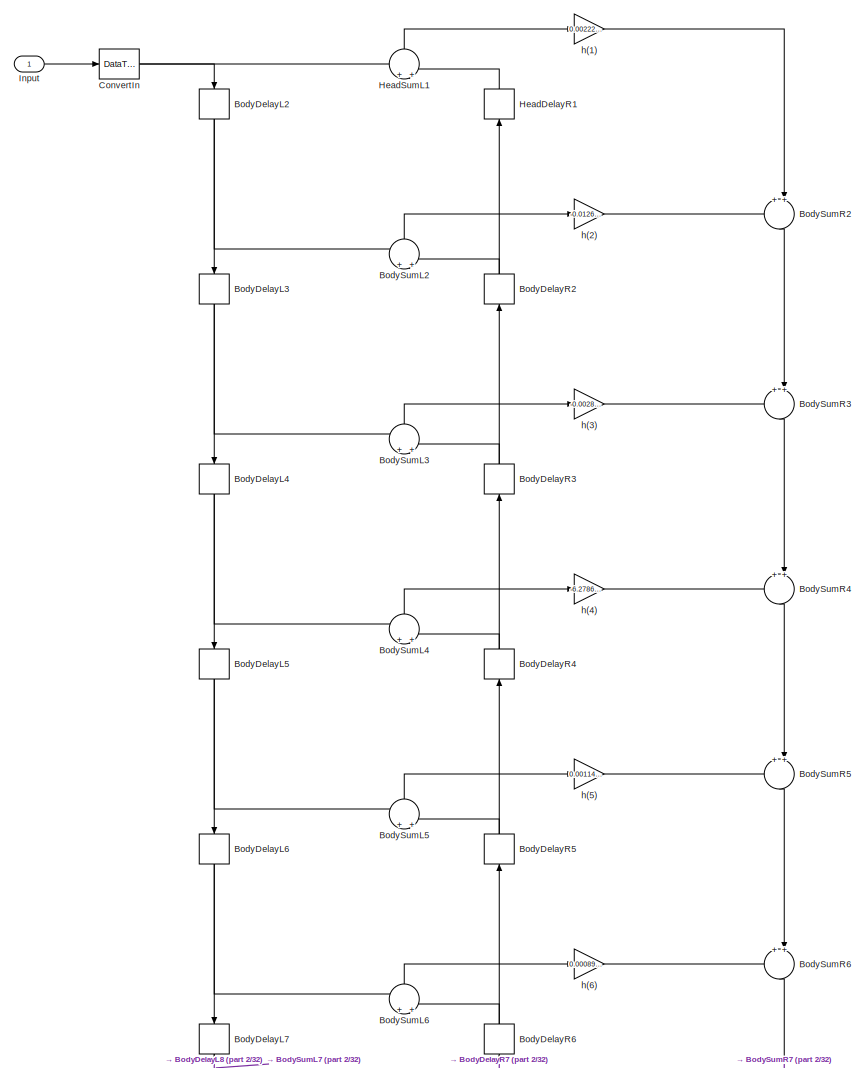
[diagram: filtro_bs_fir_direct_sym16_sb - part 1/32, full width, top band]
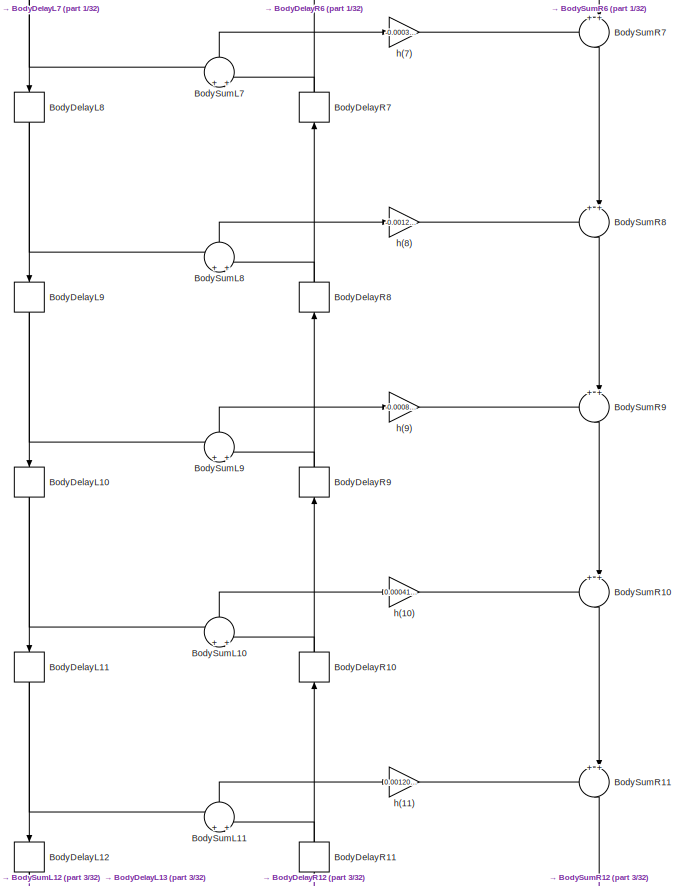
[diagram: filtro_bs_fir_direct_sym16_sb - part 2/32, top center region]
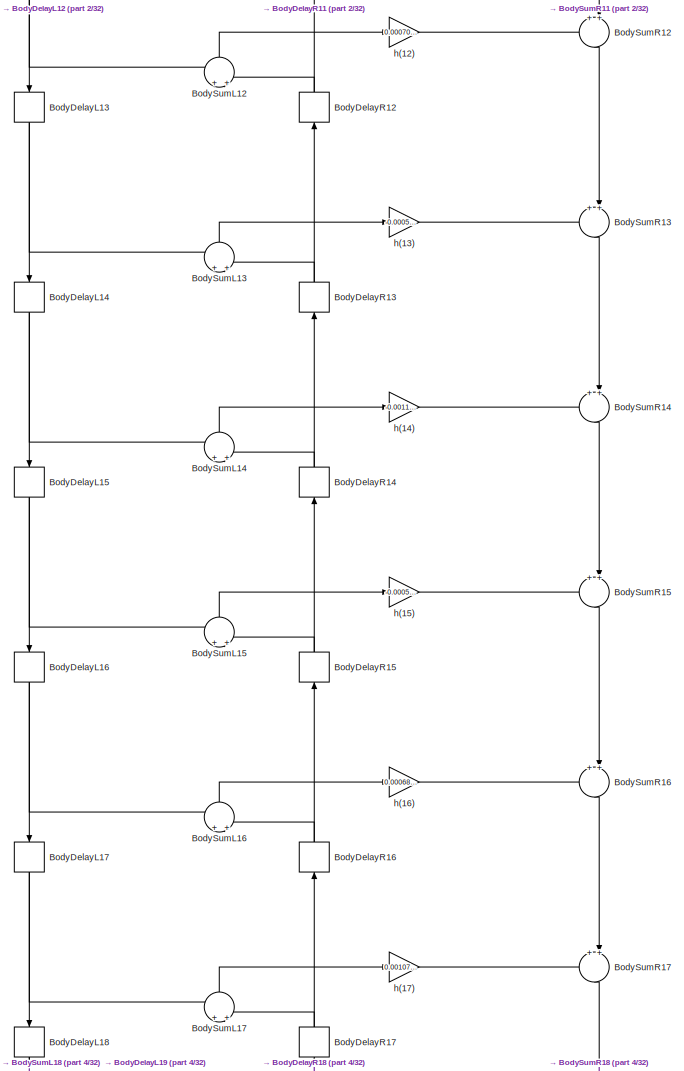
[diagram: filtro_bs_fir_direct_sym16_sb - part 3/32, top center region]
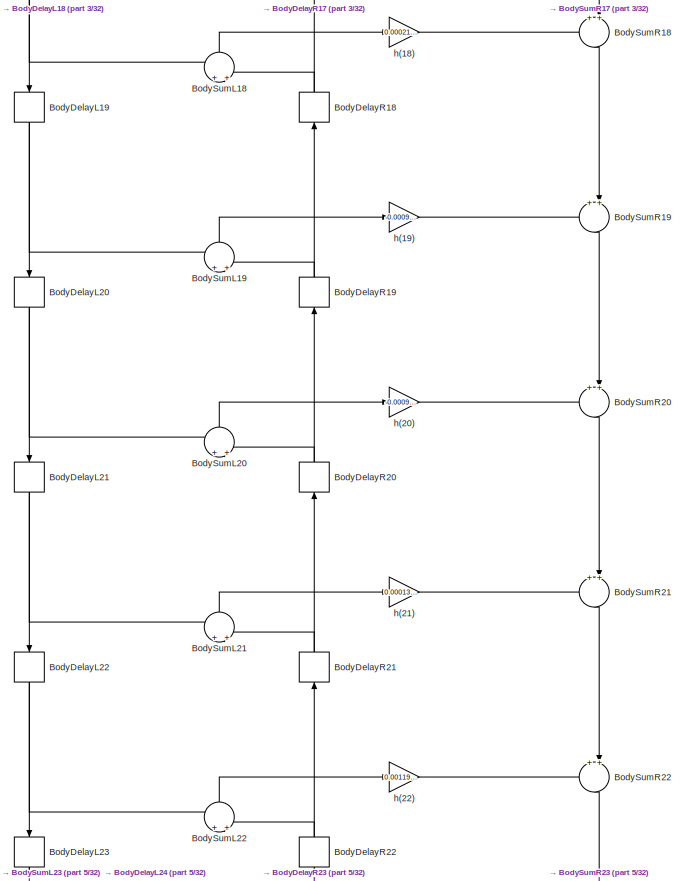
[diagram: filtro_bs_fir_direct_sym16_sb - part 4/32, top center region]
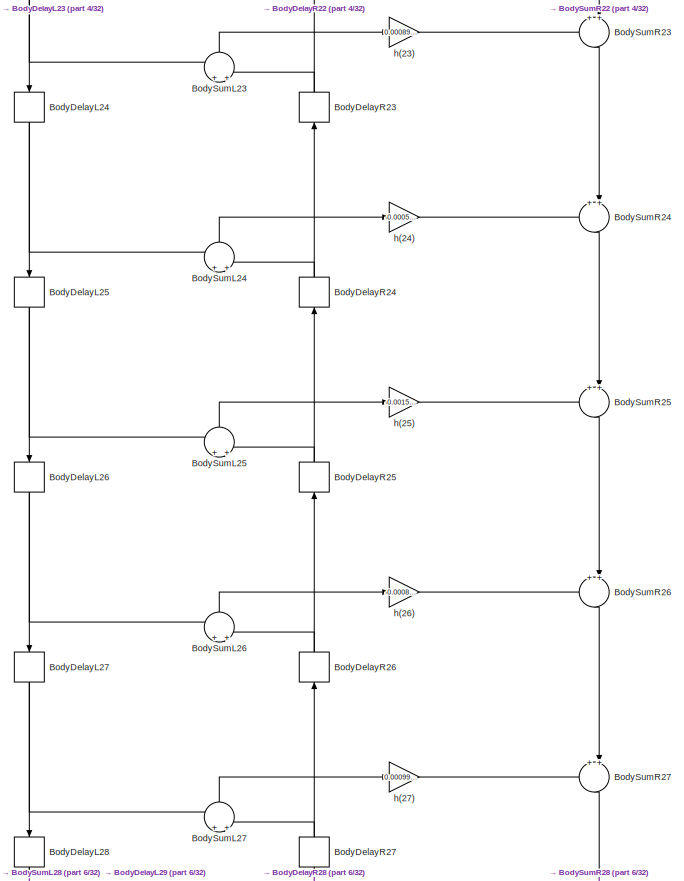
[diagram: filtro_bs_fir_direct_sym16_sb - part 5/32, top center region]
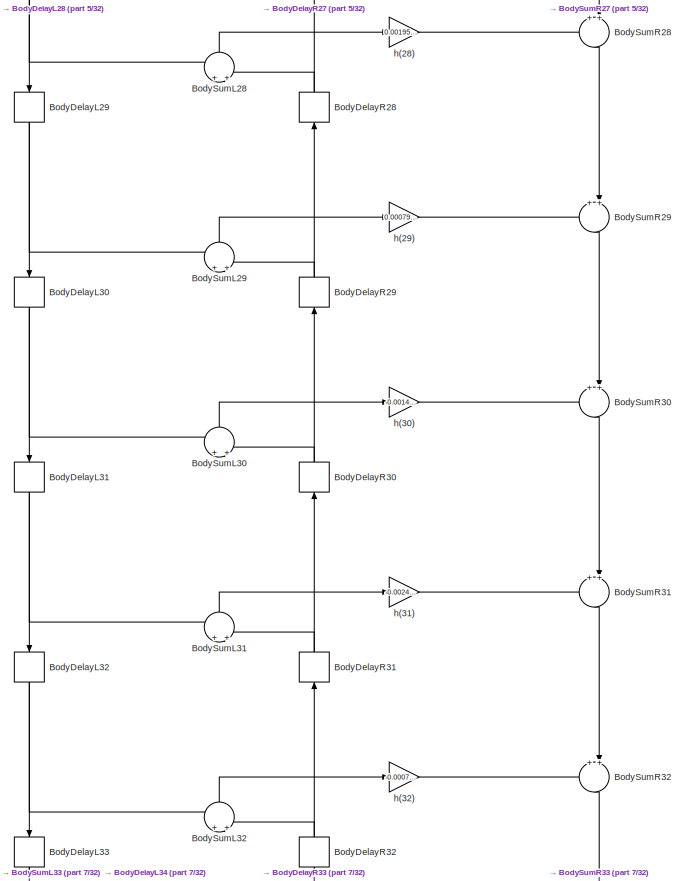
[diagram: filtro_bs_fir_direct_sym16_sb - part 6/32, top center region]
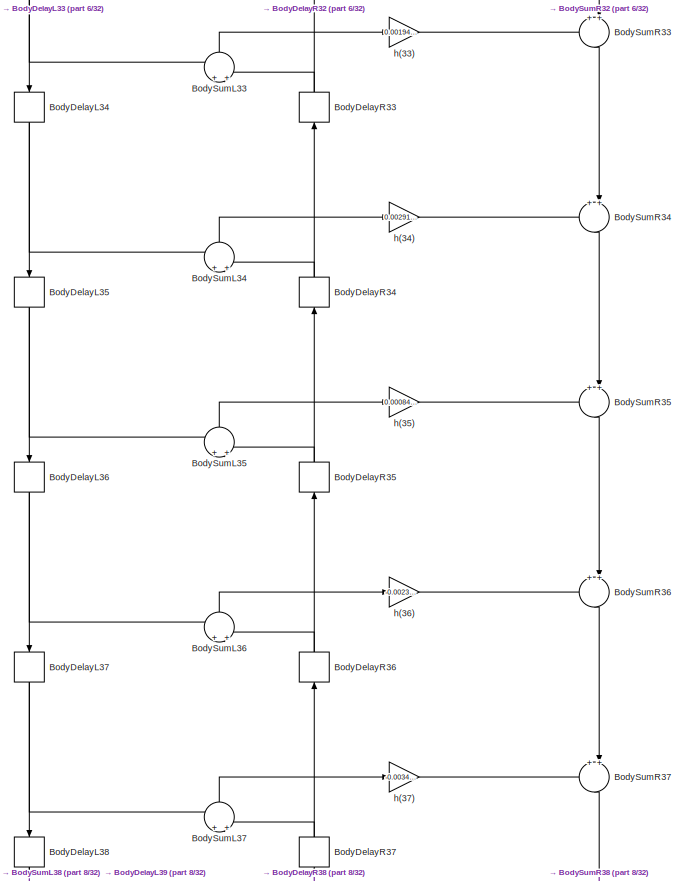
[diagram: filtro_bs_fir_direct_sym16_sb - part 7/32, top center region]
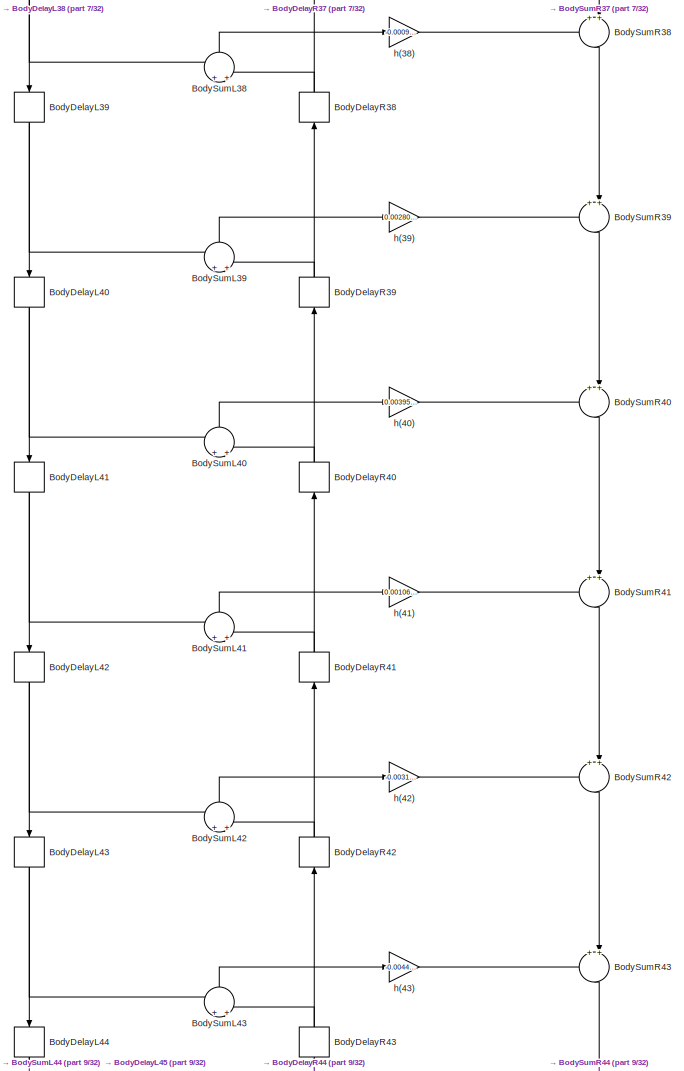
[diagram: filtro_bs_fir_direct_sym16_sb - part 8/32, top center region]
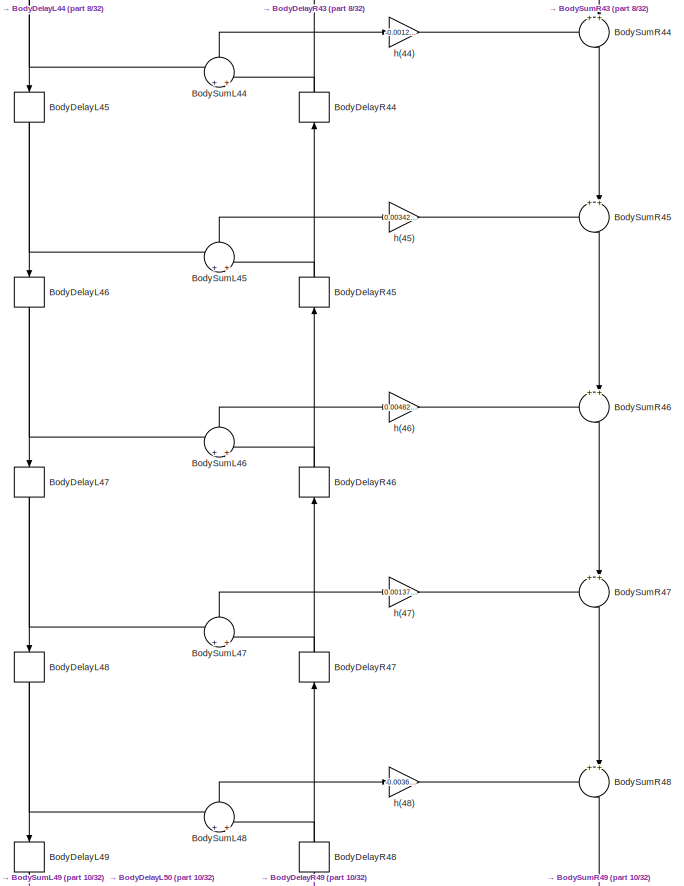
[diagram: filtro_bs_fir_direct_sym16_sb - part 9/32, top center region]
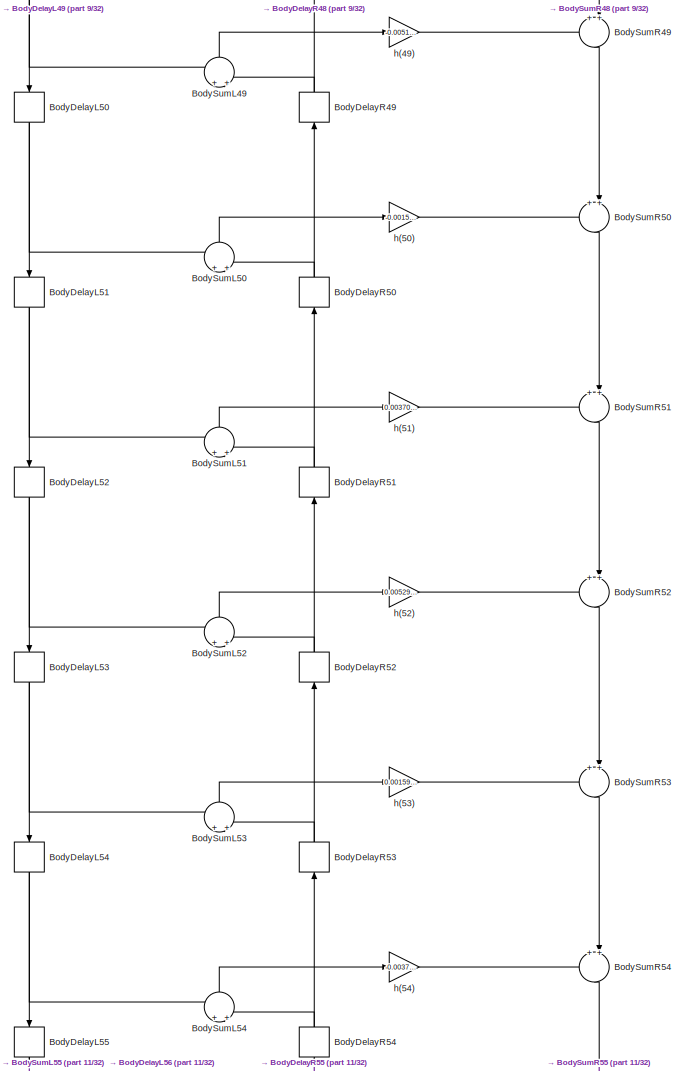
[diagram: filtro_bs_fir_direct_sym16_sb - part 10/32, top center region]
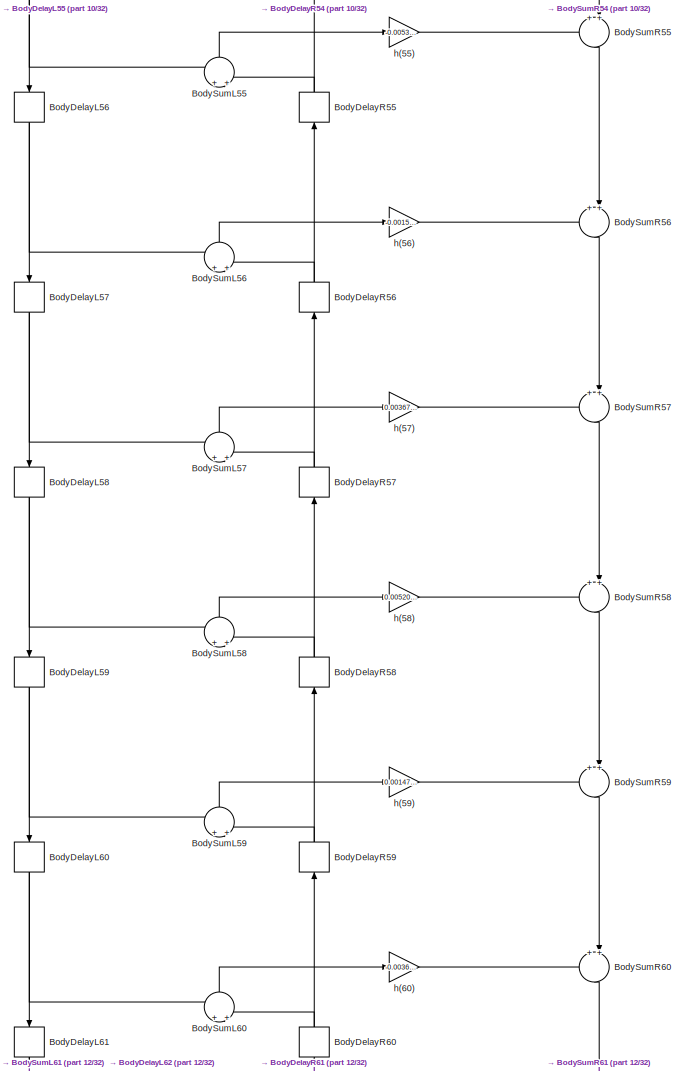
[diagram: filtro_bs_fir_direct_sym16_sb - part 11/32, top center region]
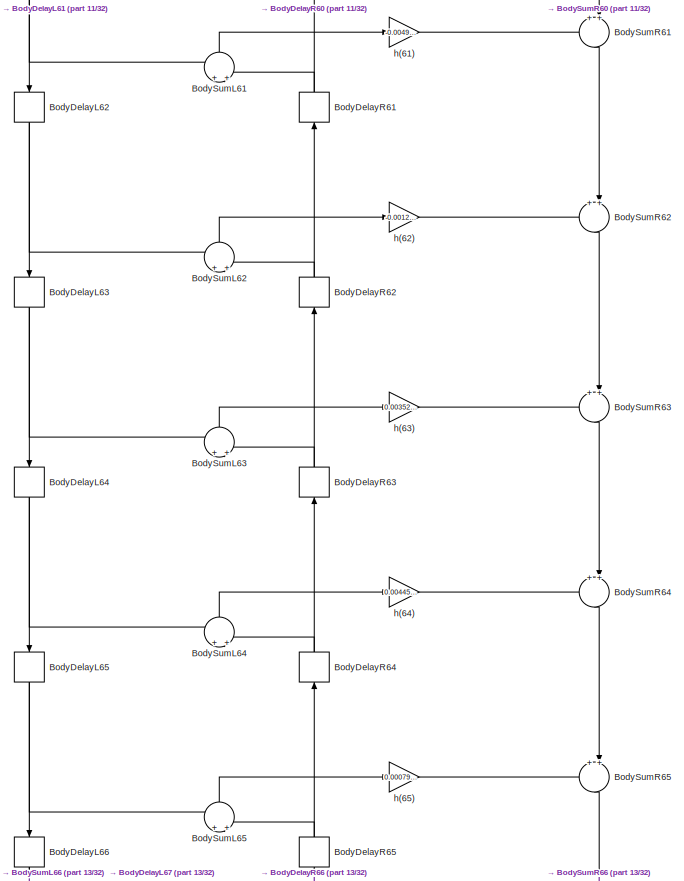
[diagram: filtro_bs_fir_direct_sym16_sb - part 12/32, central region]
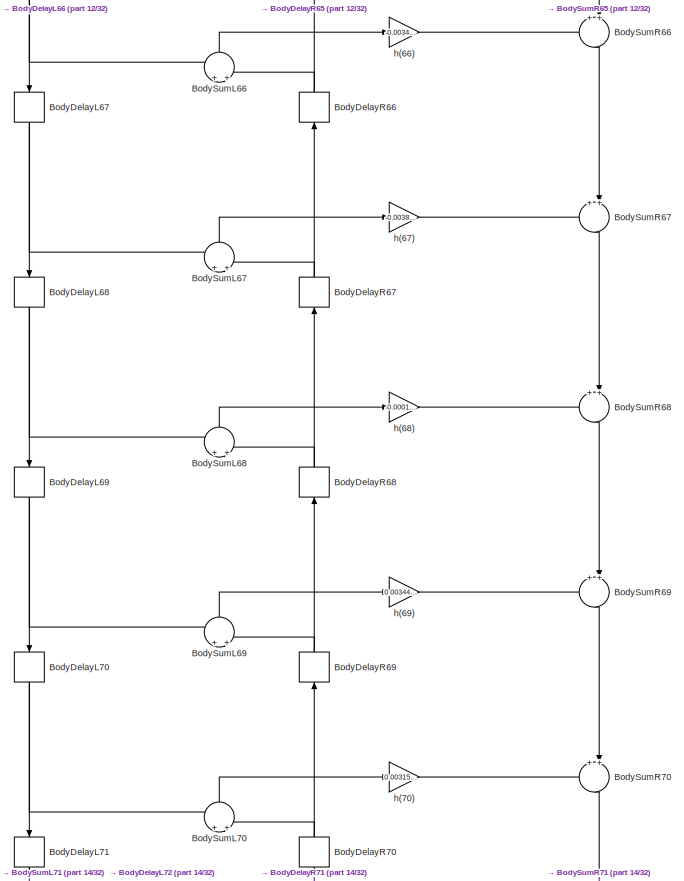
[diagram: filtro_bs_fir_direct_sym16_sb - part 13/32, central region]
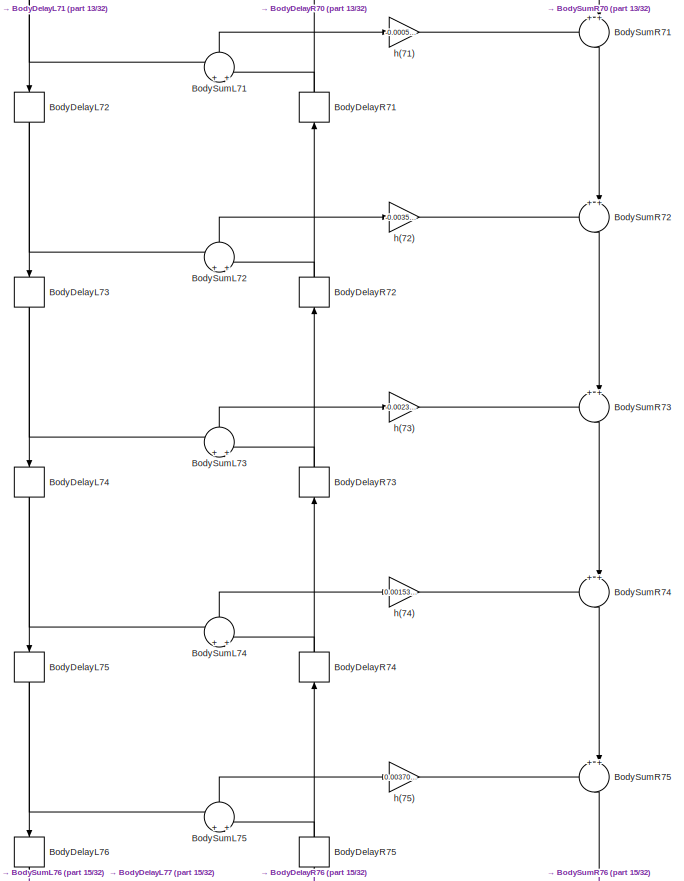
[diagram: filtro_bs_fir_direct_sym16_sb - part 14/32, central region]
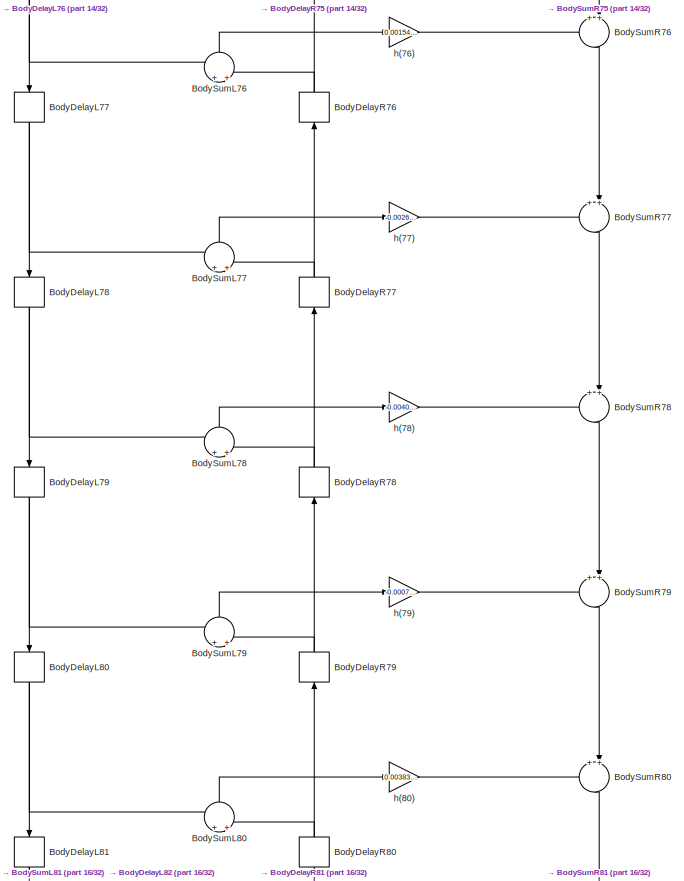
[diagram: filtro_bs_fir_direct_sym16_sb - part 15/32, central region]
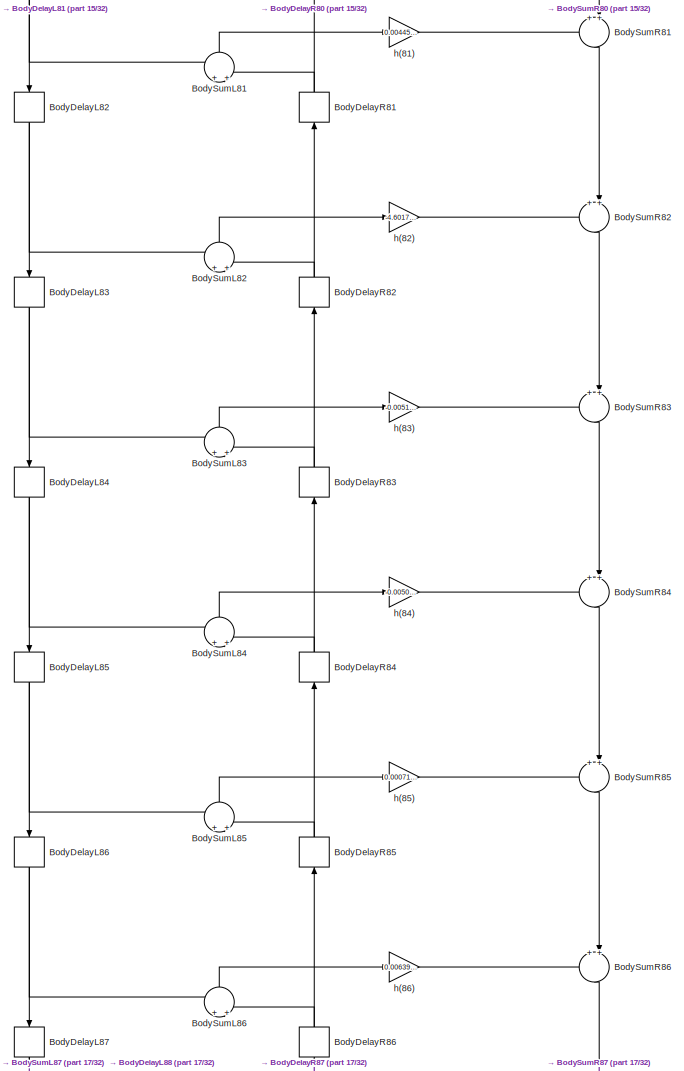
[diagram: filtro_bs_fir_direct_sym16_sb - part 16/32, central region]
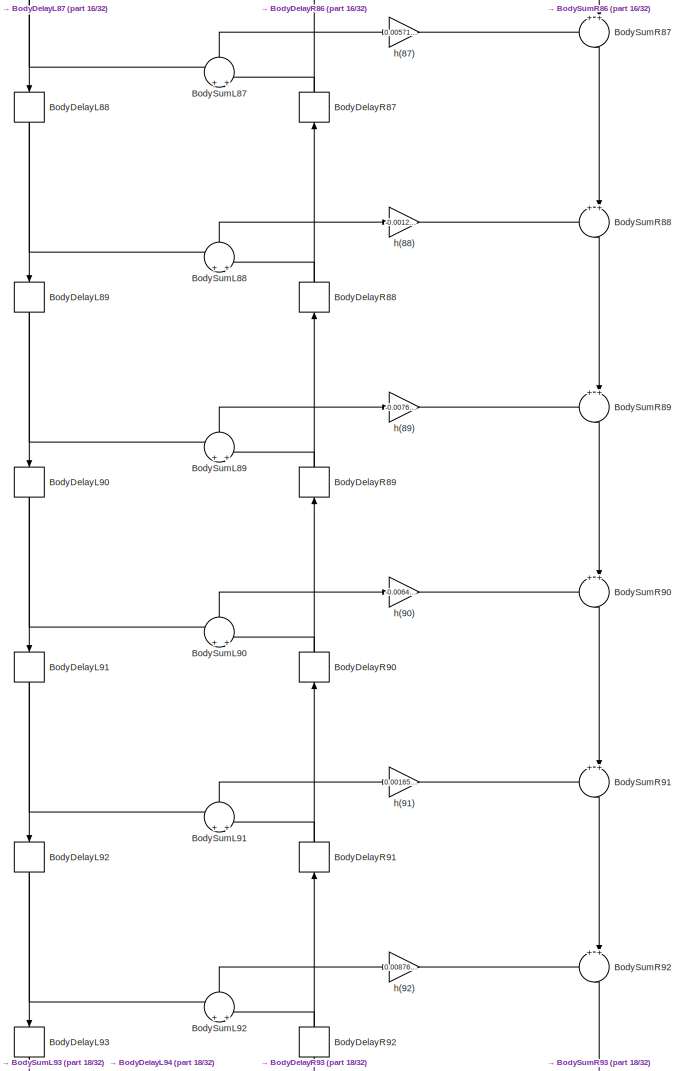
[diagram: filtro_bs_fir_direct_sym16_sb - part 17/32, central region]
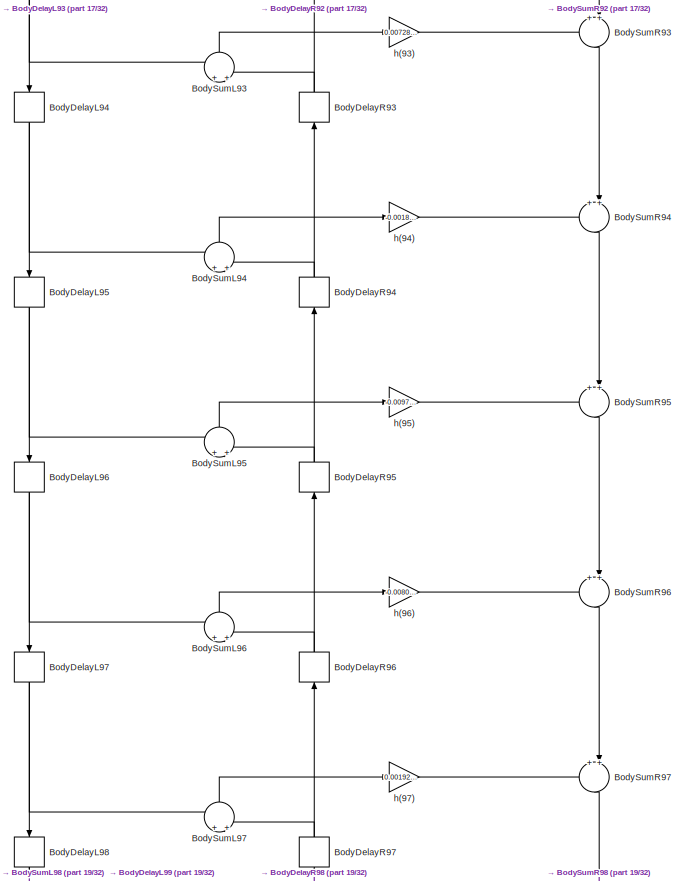
[diagram: filtro_bs_fir_direct_sym16_sb - part 18/32, central region]
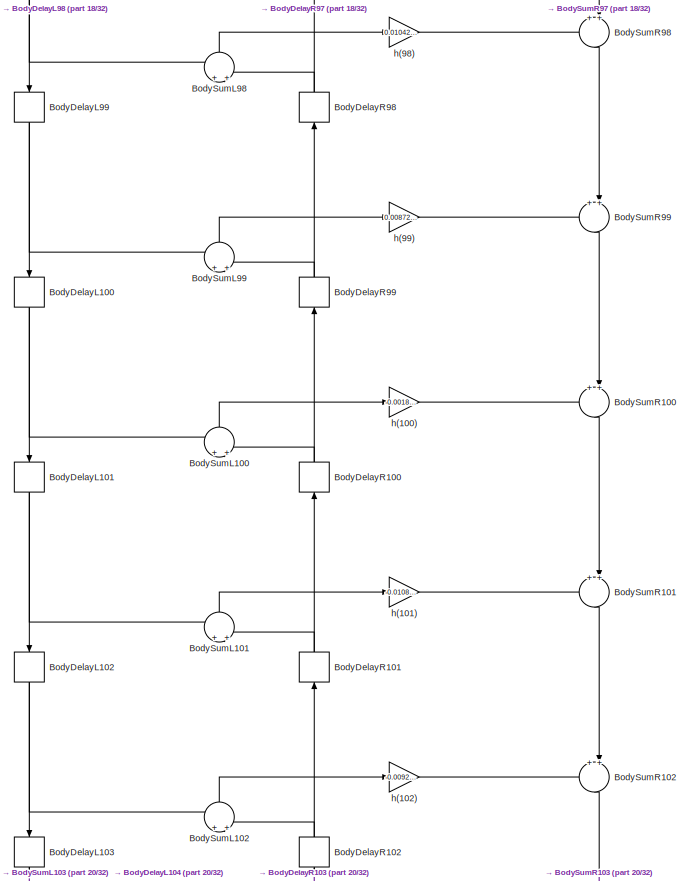
[diagram: filtro_bs_fir_direct_sym16_sb - part 19/32, central region]
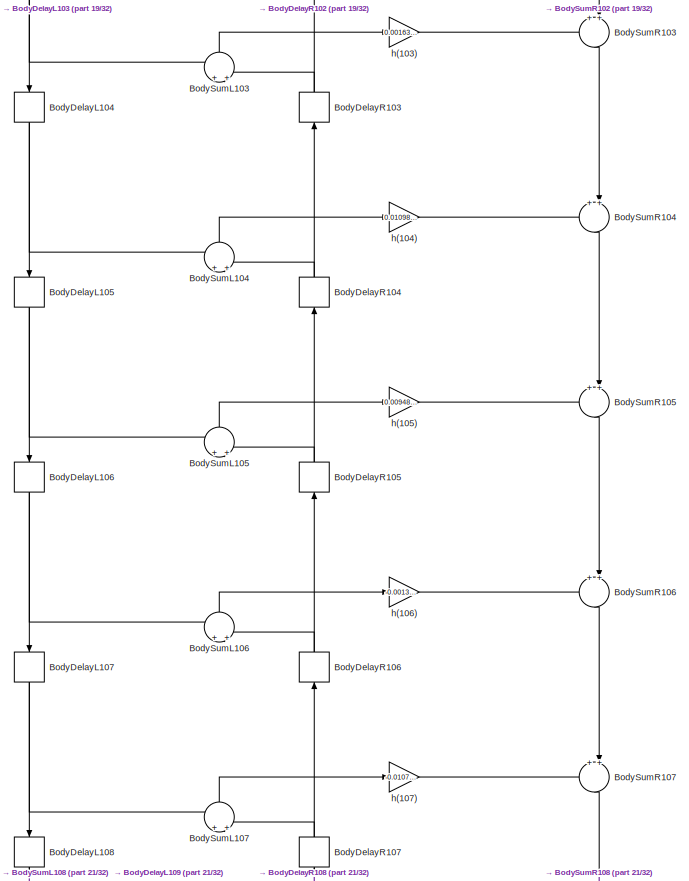
[diagram: filtro_bs_fir_direct_sym16_sb - part 20/32, central region]
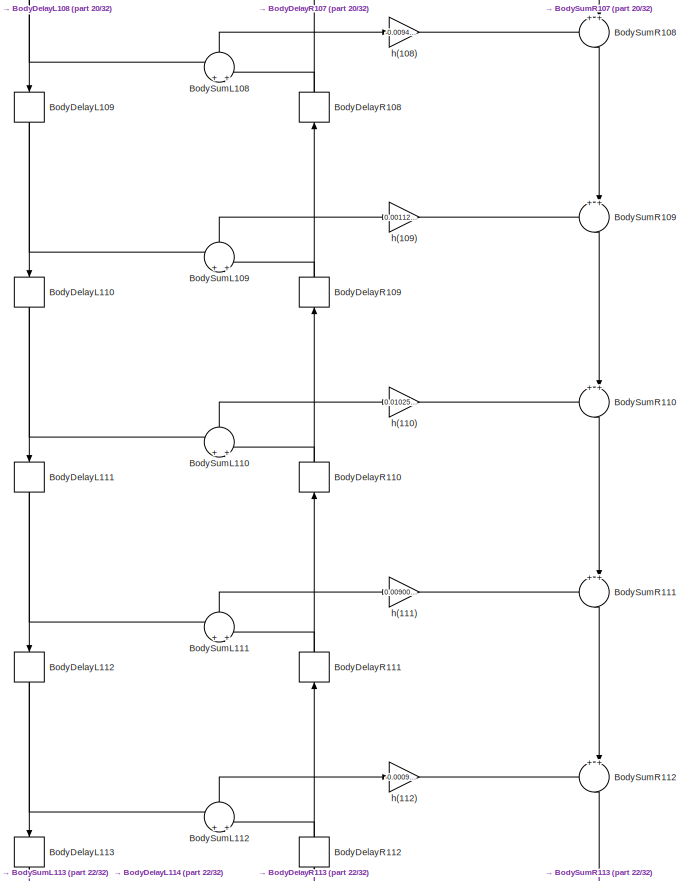
[diagram: filtro_bs_fir_direct_sym16_sb - part 21/32, central region]
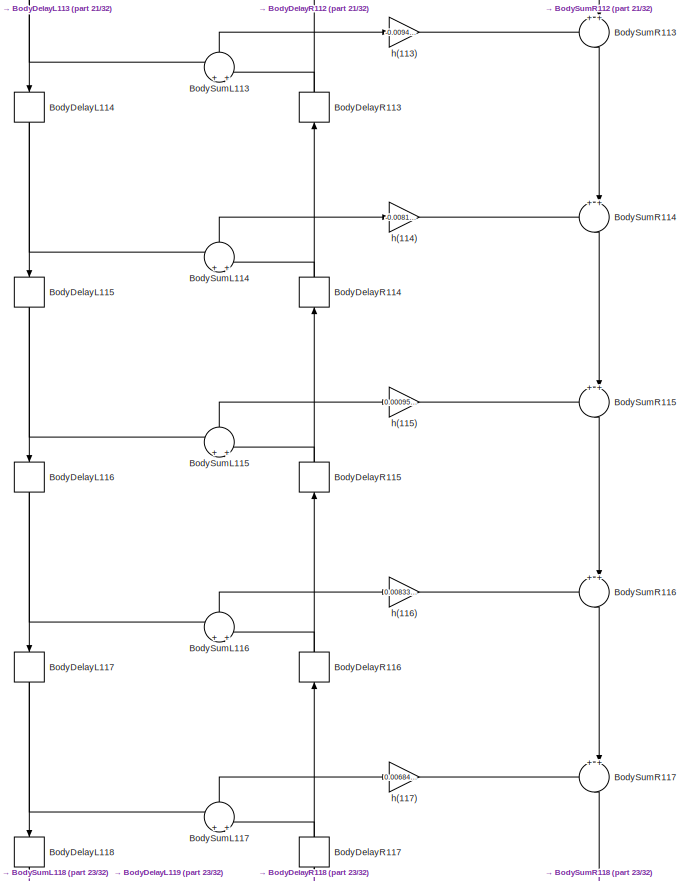
[diagram: filtro_bs_fir_direct_sym16_sb - part 22/32, central region]
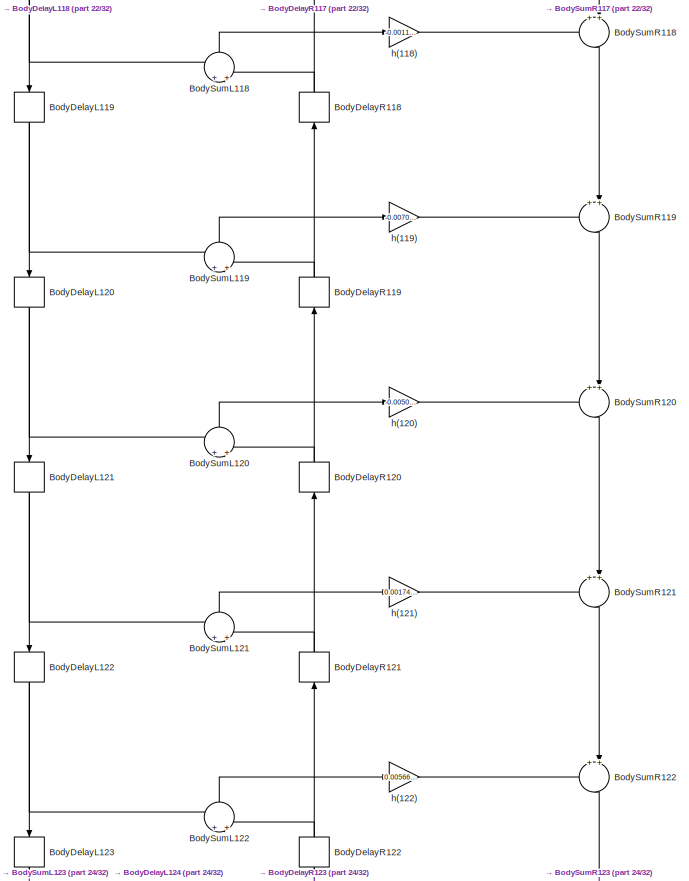
[diagram: filtro_bs_fir_direct_sym16_sb - part 23/32, bottom center region]
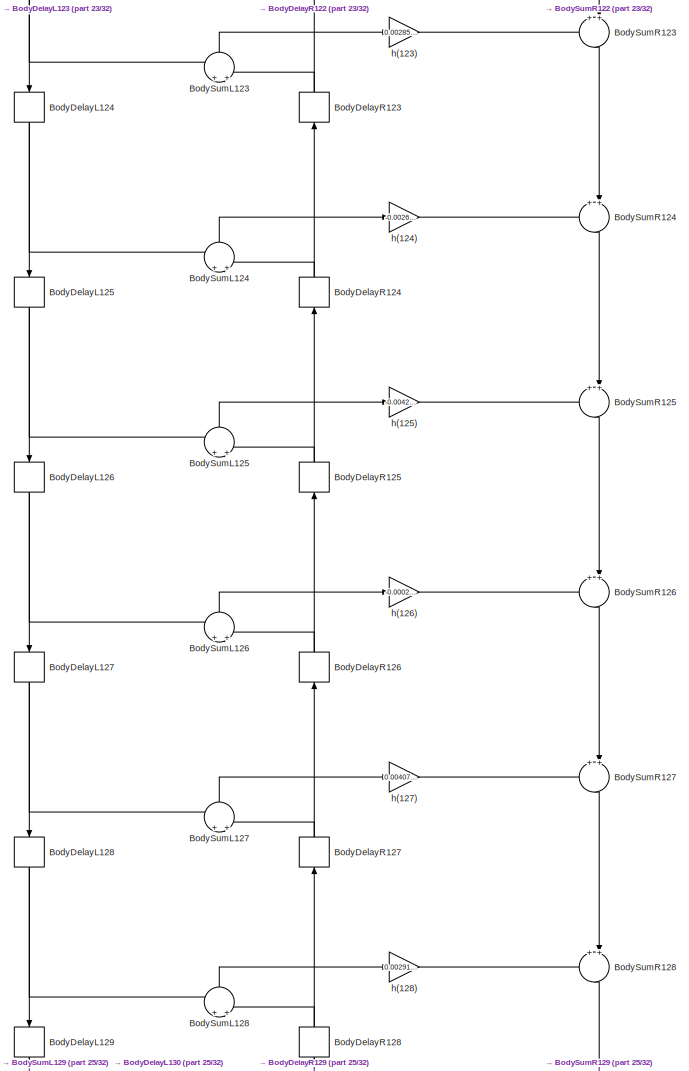
[diagram: filtro_bs_fir_direct_sym16_sb - part 24/32, bottom center region]
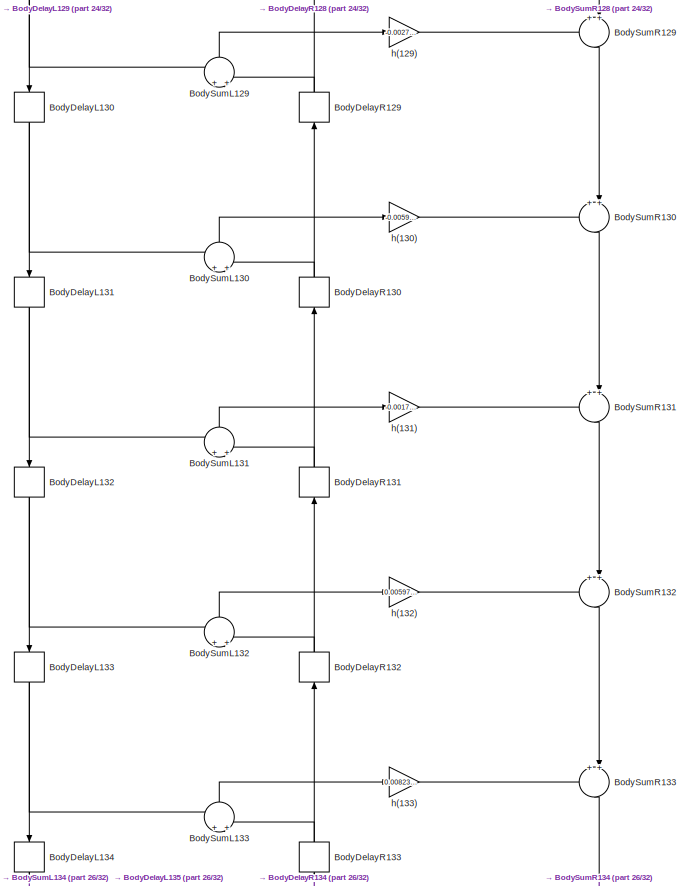
[diagram: filtro_bs_fir_direct_sym16_sb - part 25/32, bottom center region]
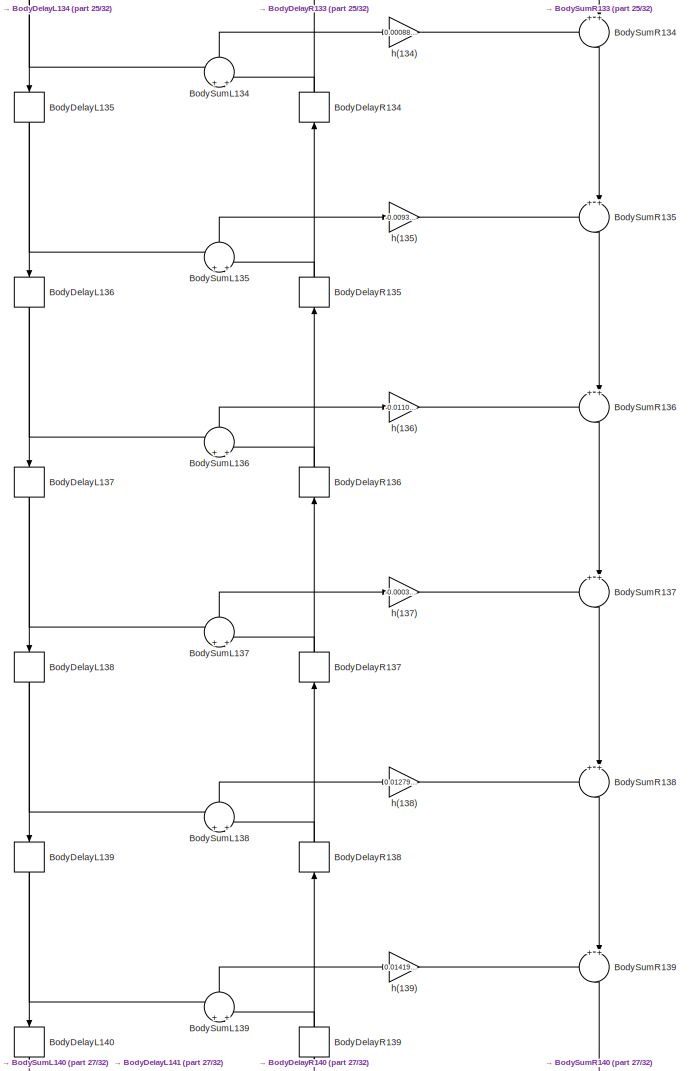
[diagram: filtro_bs_fir_direct_sym16_sb - part 26/32, bottom center region]
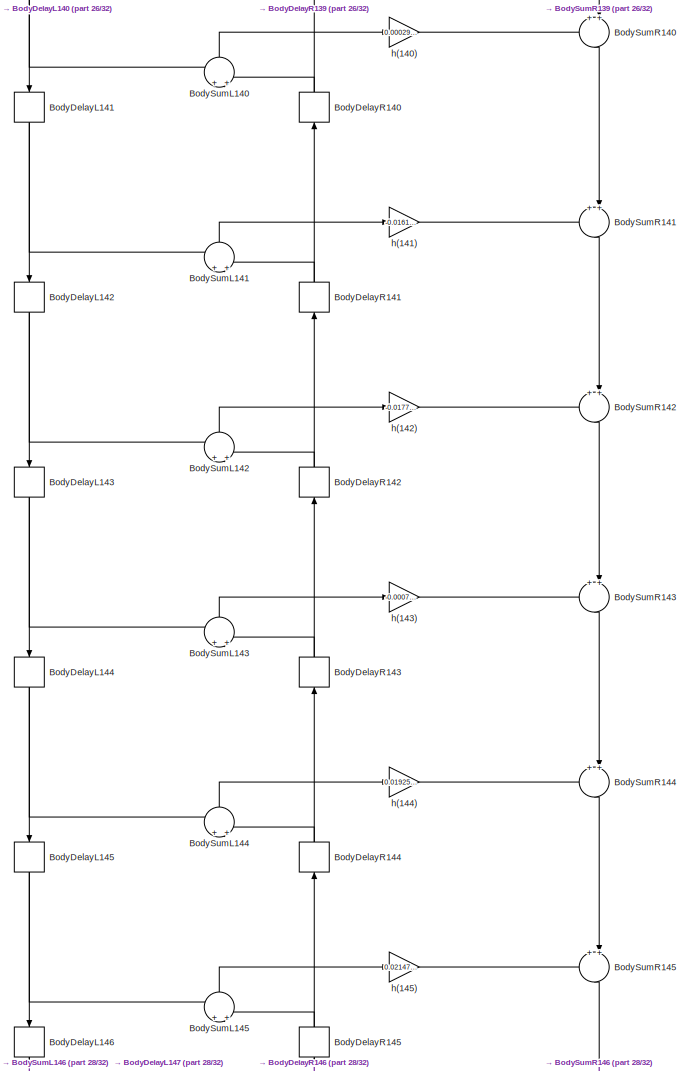
[diagram: filtro_bs_fir_direct_sym16_sb - part 27/32, bottom center region]
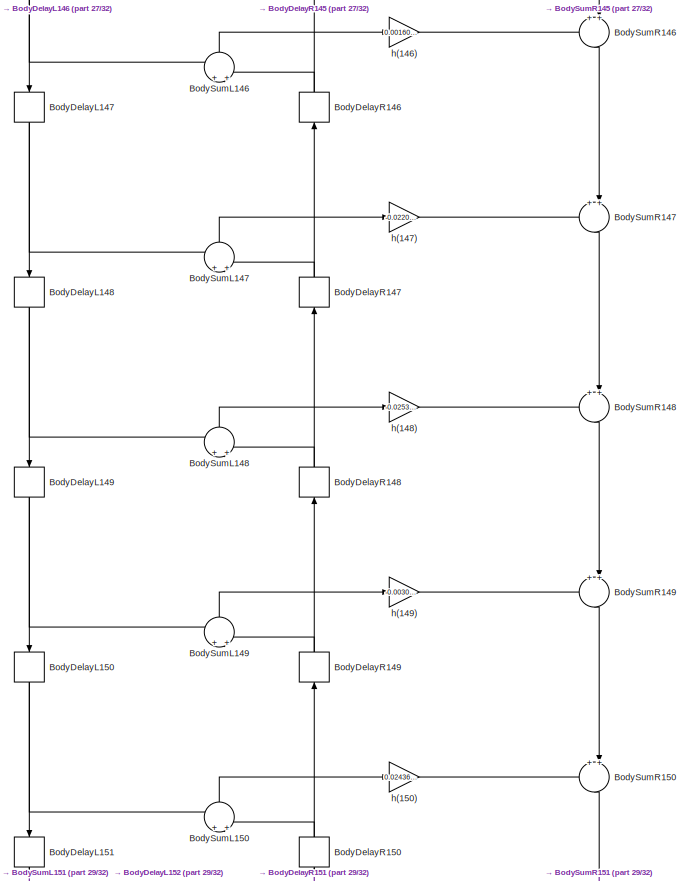
[diagram: filtro_bs_fir_direct_sym16_sb - part 28/32, bottom center region]
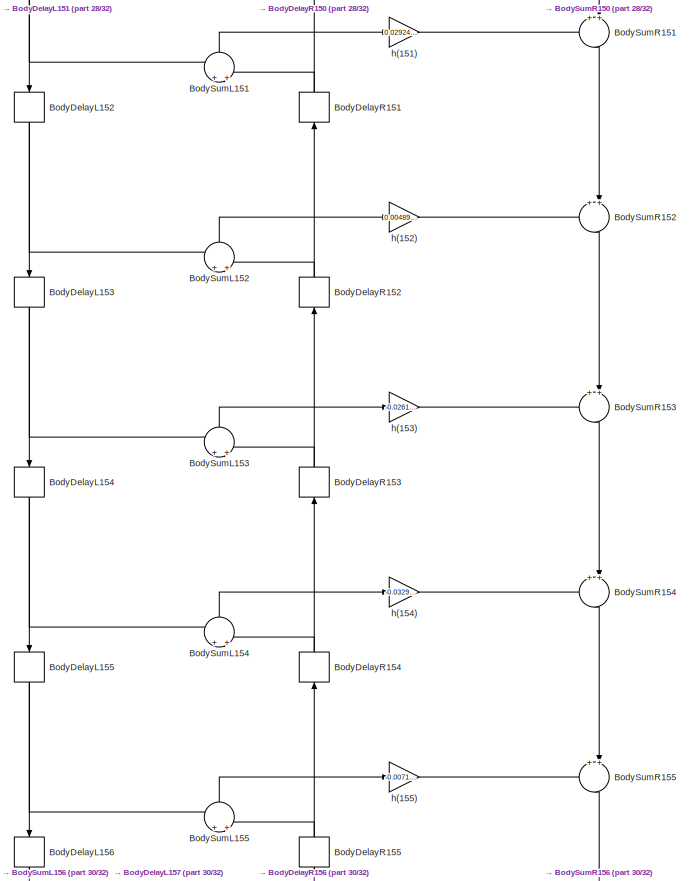
[diagram: filtro_bs_fir_direct_sym16_sb - part 29/32, bottom center region]
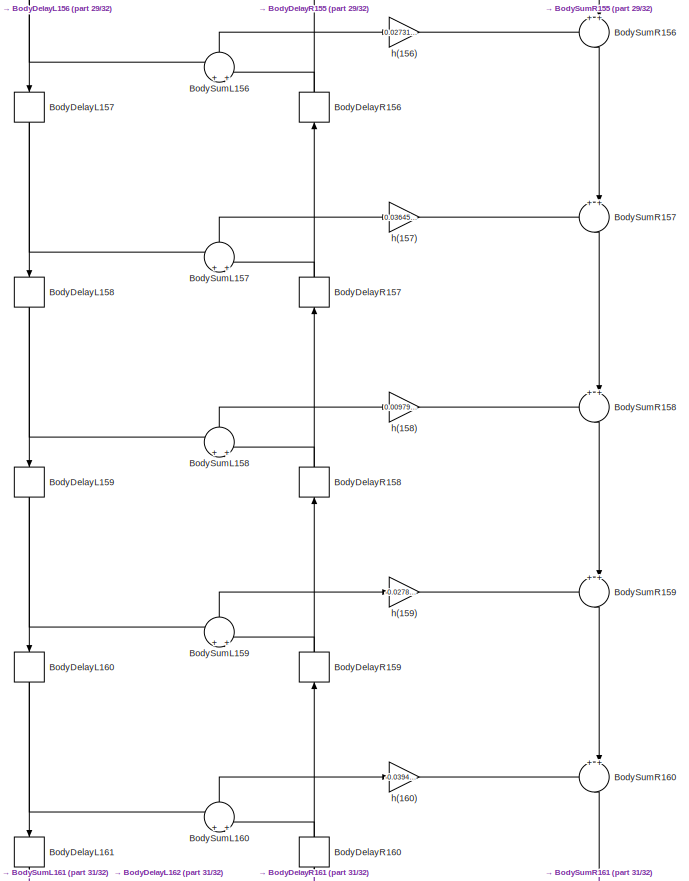
[diagram: filtro_bs_fir_direct_sym16_sb - part 30/32, bottom center region]
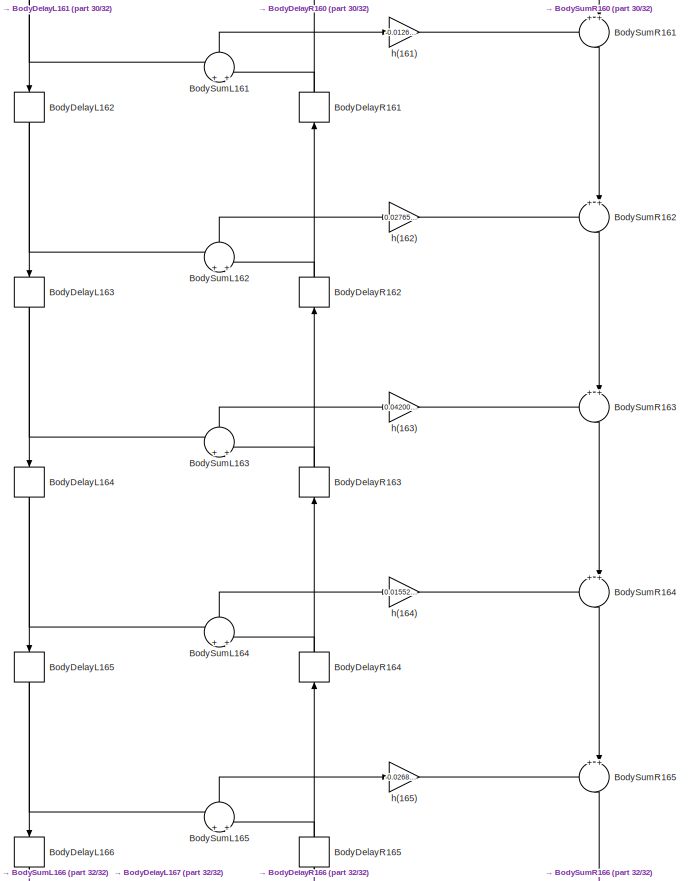
[diagram: filtro_bs_fir_direct_sym16_sb - part 31/32, bottom center region]
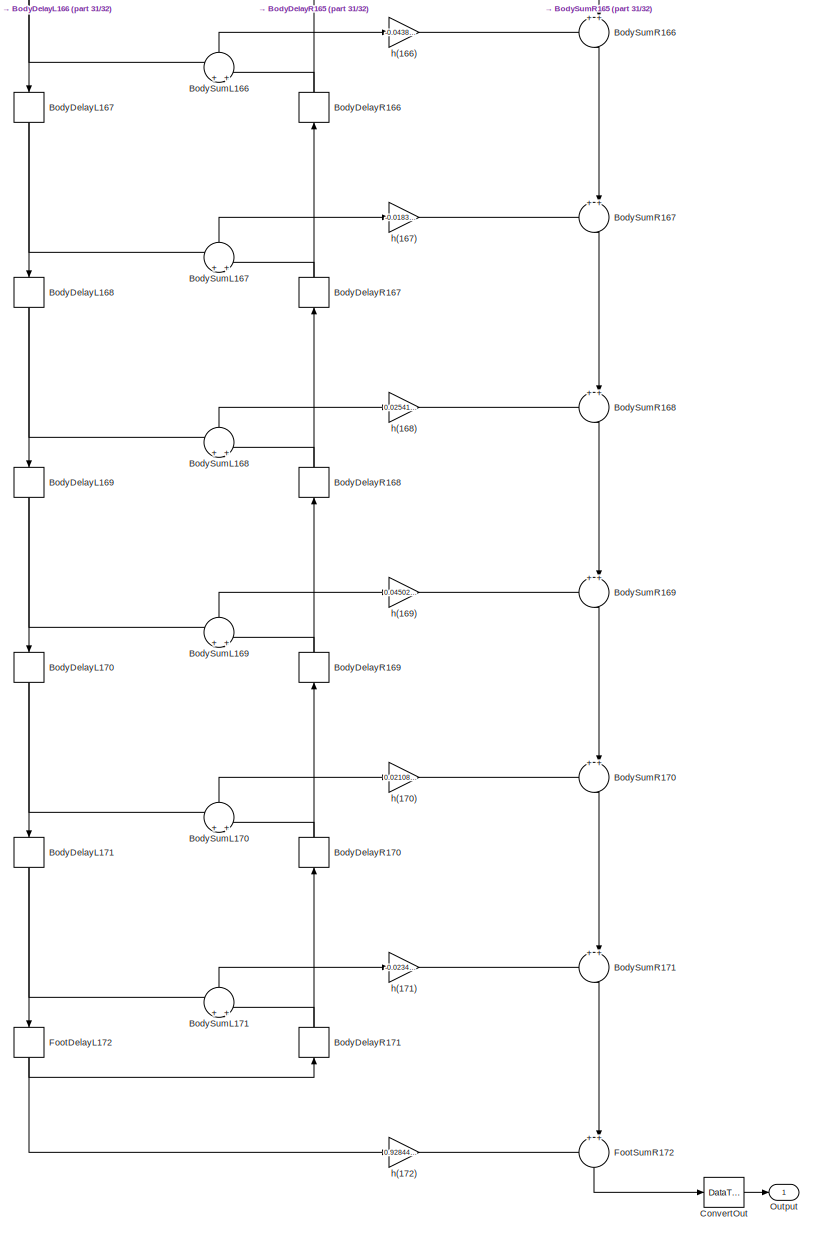
[diagram: filtro_bs_fir_direct_sym16_sb - part 32/32, full width, bottom band]
BLOCK [SubSystem] filtro_bs_fir_direct_sym16_sb
  ErrorFcn = dspFilterRealizedInBasicElemsAlgLoopErrFcnCallback
  Ports = [1, 1]
  RequestExecContextInheritance = off
  SID = 1397
  Tag = FilterWizardSubSystem
  UserData = DataTag2
  UserDataPersistent = on
BLOCK [Delay] filtro_bs_fir_direct_sym16_sb/BodyDelayL10
  DelayLength = 1
  InitialCondition = 0
  InputPortMap = u0
  Ports = [1, 1]
  SID = 1443
BLOCK [Delay] filtro_bs_fir_direct_sym16_sb/BodyDelayL100
  DelayLength = 1
  InitialCondition = 0
  InputPortMap = u0
  Ports = [1, 1]
  SID = 1893
BLOCK [Delay] filtro_bs_fir_direct_sym16_sb/BodyDelayL101
  DelayLength = 1
  InitialCondition = 0
  InputPortMap = u0
  Ports = [1, 1]
  SID = 1898
BLOCK [Delay] filtro_bs_fir_direct_sym16_sb/BodyDelayL102
  DelayLength = 1
  InitialCondition = 0
  InputPortMap = u0
  Ports = [1, 1]
  SID = 1903
BLOCK [Delay] filtro_bs_fir_direct_sym16_sb/BodyDelayL103
  DelayLength = 1
  InitialCondition = 0
  InputPortMap = u0
  Ports = [1, 1]
  SID = 1908
BLOCK [Delay] filtro_bs_fir_direct_sym16_sb/BodyDelayL104
  DelayLength = 1
  InitialCondition = 0
  InputPortMap = u0
  Ports = [1, 1]
  SID = 1913
BLOCK [Delay] filtro_bs_fir_direct_sym16_sb/BodyDelayL105
  DelayLength = 1
  InitialCondition = 0
  InputPortMap = u0
  Ports = [1, 1]
  SID = 1918
BLOCK [Delay] filtro_bs_fir_direct_sym16_sb/BodyDelayL106
  DelayLength = 1
  InitialCondition = 0
  InputPortMap = u0
  Ports = [1, 1]
  SID = 1923
BLOCK [Delay] filtro_bs_fir_direct_sym16_sb/BodyDelayL107
  DelayLength = 1
  InitialCondition = 0
  InputPortMap = u0
  Ports = [1, 1]
  SID = 1928
BLOCK [Delay] filtro_bs_fir_direct_sym16_sb/BodyDelayL108
  DelayLength = 1
  InitialCondition = 0
  InputPortMap = u0
  Ports = [1, 1]
  SID = 1933
BLOCK [Delay] filtro_bs_fir_direct_sym16_sb/BodyDelayL109
  DelayLength = 1
  InitialCondition = 0
  InputPortMap = u0
  Ports = [1, 1]
  SID = 1938
BLOCK [Delay] filtro_bs_fir_direct_sym16_sb/BodyDelayL11
  DelayLength = 1
  InitialCondition = 0
  InputPortMap = u0
  Ports = [1, 1]
  SID = 1448
BLOCK [Delay] filtro_bs_fir_direct_sym16_sb/BodyDelayL110
  DelayLength = 1
  InitialCondition = 0
  InputPortMap = u0
  Ports = [1, 1]
  SID = 1943
BLOCK [Delay] filtro_bs_fir_direct_sym16_sb/BodyDelayL111
  DelayLength = 1
  InitialCondition = 0
  InputPortMap = u0
  Ports = [1, 1]
  SID = 1948
BLOCK [Delay] filtro_bs_fir_direct_sym16_sb/BodyDelayL112
  DelayLength = 1
  InitialCondition = 0
  InputPortMap = u0
  Ports = [1, 1]
  SID = 1953
BLOCK [Delay] filtro_bs_fir_direct_sym16_sb/BodyDelayL113
  DelayLength = 1
  InitialCondition = 0
  InputPortMap = u0
  Ports = [1, 1]
  SID = 1958
BLOCK [Delay] filtro_bs_fir_direct_sym16_sb/BodyDelayL114
  DelayLength = 1
  InitialCondition = 0
  InputPortMap = u0
  Ports = [1, 1]
  SID = 1963
BLOCK [Delay] filtro_bs_fir_direct_sym16_sb/BodyDelayL115
  DelayLength = 1
  InitialCondition = 0
  InputPortMap = u0
  Ports = [1, 1]
  SID = 1968
BLOCK [Delay] filtro_bs_fir_direct_sym16_sb/BodyDelayL116
  DelayLength = 1
  InitialCondition = 0
  InputPortMap = u0
  Ports = [1, 1]
  SID = 1973
BLOCK [Delay] filtro_bs_fir_direct_sym16_sb/BodyDelayL117
  DelayLength = 1
  InitialCondition = 0
  InputPortMap = u0
  Ports = [1, 1]
  SID = 1978
BLOCK [Delay] filtro_bs_fir_direct_sym16_sb/BodyDelayL118
  DelayLength = 1
  InitialCondition = 0
  InputPortMap = u0
  Ports = [1, 1]
  SID = 1983
BLOCK [Delay] filtro_bs_fir_direct_sym16_sb/BodyDelayL119
  DelayLength = 1
  InitialCondition = 0
  InputPortMap = u0
  Ports = [1, 1]
  SID = 1988
BLOCK [Delay] filtro_bs_fir_direct_sym16_sb/BodyDelayL12
  DelayLength = 1
  InitialCondition = 0
  InputPortMap = u0
  Ports = [1, 1]
  SID = 1453
BLOCK [Delay] filtro_bs_fir_direct_sym16_sb/BodyDelayL120
  DelayLength = 1
  InitialCondition = 0
  InputPortMap = u0
  Ports = [1, 1]
  SID = 1993
BLOCK [Delay] filtro_bs_fir_direct_sym16_sb/BodyDelayL121
  DelayLength = 1
  InitialCondition = 0
  InputPortMap = u0
  Ports = [1, 1]
  SID = 1998
BLOCK [Delay] filtro_bs_fir_direct_sym16_sb/BodyDelayL122
  DelayLength = 1
  InitialCondition = 0
  InputPortMap = u0
  Ports = [1, 1]
  SID = 2003
BLOCK [Delay] filtro_bs_fir_direct_sym16_sb/BodyDelayL123
  DelayLength = 1
  InitialCondition = 0
  InputPortMap = u0
  Ports = [1, 1]
  SID = 2008
BLOCK [Delay] filtro_bs_fir_direct_sym16_sb/BodyDelayL124
  DelayLength = 1
  InitialCondition = 0
  InputPortMap = u0
  Ports = [1, 1]
  SID = 2013
BLOCK [Delay] filtro_bs_fir_direct_sym16_sb/BodyDelayL125
  DelayLength = 1
  InitialCondition = 0
  InputPortMap = u0
  Ports = [1, 1]
  SID = 2018
BLOCK [Delay] filtro_bs_fir_direct_sym16_sb/BodyDelayL126
  DelayLength = 1
  InitialCondition = 0
  InputPortMap = u0
  Ports = [1, 1]
  SID = 2023
BLOCK [Delay] filtro_bs_fir_direct_sym16_sb/BodyDelayL127
  DelayLength = 1
  InitialCondition = 0
  InputPortMap = u0
  Ports = [1, 1]
  SID = 2028
BLOCK [Delay] filtro_bs_fir_direct_sym16_sb/BodyDelayL128
  DelayLength = 1
  InitialCondition = 0
  InputPortMap = u0
  Ports = [1, 1]
  SID = 2033
BLOCK [Delay] filtro_bs_fir_direct_sym16_sb/BodyDelayL129
  DelayLength = 1
  InitialCondition = 0
  InputPortMap = u0
  Ports = [1, 1]
  SID = 2038
BLOCK [Delay] filtro_bs_fir_direct_sym16_sb/BodyDelayL13
  DelayLength = 1
  InitialCondition = 0
  InputPortMap = u0
  Ports = [1, 1]
  SID = 1458
BLOCK [Delay] filtro_bs_fir_direct_sym16_sb/BodyDelayL130
  DelayLength = 1
  InitialCondition = 0
  InputPortMap = u0
  Ports = [1, 1]
  SID = 2043
BLOCK [Delay] filtro_bs_fir_direct_sym16_sb/BodyDelayL131
  DelayLength = 1
  InitialCondition = 0
  InputPortMap = u0
  Ports = [1, 1]
  SID = 2048
BLOCK [Delay] filtro_bs_fir_direct_sym16_sb/BodyDelayL132
  DelayLength = 1
  InitialCondition = 0
  InputPortMap = u0
  Ports = [1, 1]
  SID = 2053
BLOCK [Delay] filtro_bs_fir_direct_sym16_sb/BodyDelayL133
  DelayLength = 1
  InitialCondition = 0
  InputPortMap = u0
  Ports = [1, 1]
  SID = 2058
BLOCK [Delay] filtro_bs_fir_direct_sym16_sb/BodyDelayL134
  DelayLength = 1
  InitialCondition = 0
  InputPortMap = u0
  Ports = [1, 1]
  SID = 2063
BLOCK [Delay] filtro_bs_fir_direct_sym16_sb/BodyDelayL135
  DelayLength = 1
  InitialCondition = 0
  InputPortMap = u0
  Ports = [1, 1]
  SID = 2068
BLOCK [Delay] filtro_bs_fir_direct_sym16_sb/BodyDelayL136
  DelayLength = 1
  InitialCondition = 0
  InputPortMap = u0
  Ports = [1, 1]
  SID = 2073
BLOCK [Delay] filtro_bs_fir_direct_sym16_sb/BodyDelayL137
  DelayLength = 1
  InitialCondition = 0
  InputPortMap = u0
  Ports = [1, 1]
  SID = 2078
BLOCK [Delay] filtro_bs_fir_direct_sym16_sb/BodyDelayL138
  DelayLength = 1
  InitialCondition = 0
  InputPortMap = u0
  Ports = [1, 1]
  SID = 2083
BLOCK [Delay] filtro_bs_fir_direct_sym16_sb/BodyDelayL139
  DelayLength = 1
  InitialCondition = 0
  InputPortMap = u0
  Ports = [1, 1]
  SID = 2088
BLOCK [Delay] filtro_bs_fir_direct_sym16_sb/BodyDelayL14
  DelayLength = 1
  InitialCondition = 0
  InputPortMap = u0
  Ports = [1, 1]
  SID = 1463
BLOCK [Delay] filtro_bs_fir_direct_sym16_sb/BodyDelayL140
  DelayLength = 1
  InitialCondition = 0
  InputPortMap = u0
  Ports = [1, 1]
  SID = 2093
BLOCK [Delay] filtro_bs_fir_direct_sym16_sb/BodyDelayL141
  DelayLength = 1
  InitialCondition = 0
  InputPortMap = u0
  Ports = [1, 1]
  SID = 2098
BLOCK [Delay] filtro_bs_fir_direct_sym16_sb/BodyDelayL142
  DelayLength = 1
  InitialCondition = 0
  InputPortMap = u0
  Ports = [1, 1]
  SID = 2103
BLOCK [Delay] filtro_bs_fir_direct_sym16_sb/BodyDelayL143
  DelayLength = 1
  InitialCondition = 0
  InputPortMap = u0
  Ports = [1, 1]
  SID = 2108
BLOCK [Delay] filtro_bs_fir_direct_sym16_sb/BodyDelayL144
  DelayLength = 1
  InitialCondition = 0
  InputPortMap = u0
  Ports = [1, 1]
  SID = 2113
BLOCK [Delay] filtro_bs_fir_direct_sym16_sb/BodyDelayL145
  DelayLength = 1
  InitialCondition = 0
  InputPortMap = u0
  Ports = [1, 1]
  SID = 2118
BLOCK [Delay] filtro_bs_fir_direct_sym16_sb/BodyDelayL146
  DelayLength = 1
  InitialCondition = 0
  InputPortMap = u0
  Ports = [1, 1]
  SID = 2123
BLOCK [Delay] filtro_bs_fir_direct_sym16_sb/BodyDelayL147
  DelayLength = 1
  InitialCondition = 0
  InputPortMap = u0
  Ports = [1, 1]
  SID = 2128
BLOCK [Delay] filtro_bs_fir_direct_sym16_sb/BodyDelayL148
  DelayLength = 1
  InitialCondition = 0
  InputPortMap = u0
  Ports = [1, 1]
  SID = 2133
BLOCK [Delay] filtro_bs_fir_direct_sym16_sb/BodyDelayL149
  DelayLength = 1
  InitialCondition = 0
  InputPortMap = u0
  Ports = [1, 1]
  SID = 2138
BLOCK [Delay] filtro_bs_fir_direct_sym16_sb/BodyDelayL15
  DelayLength = 1
  InitialCondition = 0
  InputPortMap = u0
  Ports = [1, 1]
  SID = 1468
BLOCK [Delay] filtro_bs_fir_direct_sym16_sb/BodyDelayL150
  DelayLength = 1
  InitialCondition = 0
  InputPortMap = u0
  Ports = [1, 1]
  SID = 2143
BLOCK [Delay] filtro_bs_fir_direct_sym16_sb/BodyDelayL151
  DelayLength = 1
  InitialCondition = 0
  InputPortMap = u0
  Ports = [1, 1]
  SID = 2148
BLOCK [Delay] filtro_bs_fir_direct_sym16_sb/BodyDelayL152
  DelayLength = 1
  InitialCondition = 0
  InputPortMap = u0
  Ports = [1, 1]
  SID = 2153
BLOCK [Delay] filtro_bs_fir_direct_sym16_sb/BodyDelayL153
  DelayLength = 1
  InitialCondition = 0
  InputPortMap = u0
  Ports = [1, 1]
  SID = 2158
BLOCK [Delay] filtro_bs_fir_direct_sym16_sb/BodyDelayL154
  DelayLength = 1
  InitialCondition = 0
  InputPortMap = u0
  Ports = [1, 1]
  SID = 2163
BLOCK [Delay] filtro_bs_fir_direct_sym16_sb/BodyDelayL155
  DelayLength = 1
  InitialCondition = 0
  InputPortMap = u0
  Ports = [1, 1]
  SID = 2168
BLOCK [Delay] filtro_bs_fir_direct_sym16_sb/BodyDelayL156
  DelayLength = 1
  InitialCondition = 0
  InputPortMap = u0
  Ports = [1, 1]
  SID = 2173
BLOCK [Delay] filtro_bs_fir_direct_sym16_sb/BodyDelayL157
  DelayLength = 1
  InitialCondition = 0
  InputPortMap = u0
  Ports = [1, 1]
  SID = 2178
BLOCK [Delay] filtro_bs_fir_direct_sym16_sb/BodyDelayL158
  DelayLength = 1
  InitialCondition = 0
  InputPortMap = u0
  Ports = [1, 1]
  SID = 2183
BLOCK [Delay] filtro_bs_fir_direct_sym16_sb/BodyDelayL159
  DelayLength = 1
  InitialCondition = 0
  InputPortMap = u0
  Ports = [1, 1]
  SID = 2188
BLOCK [Delay] filtro_bs_fir_direct_sym16_sb/BodyDelayL16
  DelayLength = 1
  InitialCondition = 0
  InputPortMap = u0
  Ports = [1, 1]
  SID = 1473
BLOCK [Delay] filtro_bs_fir_direct_sym16_sb/BodyDelayL160
  DelayLength = 1
  InitialCondition = 0
  InputPortMap = u0
  Ports = [1, 1]
  SID = 2193
BLOCK [Delay] filtro_bs_fir_direct_sym16_sb/BodyDelayL161
  DelayLength = 1
  InitialCondition = 0
  InputPortMap = u0
  Ports = [1, 1]
  SID = 2198
BLOCK [Delay] filtro_bs_fir_direct_sym16_sb/BodyDelayL162
  DelayLength = 1
  InitialCondition = 0
  InputPortMap = u0
  Ports = [1, 1]
  SID = 2203
BLOCK [Delay] filtro_bs_fir_direct_sym16_sb/BodyDelayL163
  DelayLength = 1
  InitialCondition = 0
  InputPortMap = u0
  Ports = [1, 1]
  SID = 2208
BLOCK [Delay] filtro_bs_fir_direct_sym16_sb/BodyDelayL164
  DelayLength = 1
  InitialCondition = 0
  InputPortMap = u0
  Ports = [1, 1]
  SID = 2213
BLOCK [Delay] filtro_bs_fir_direct_sym16_sb/BodyDelayL165
  DelayLength = 1
  InitialCondition = 0
  InputPortMap = u0
  Ports = [1, 1]
  SID = 2218
BLOCK [Delay] filtro_bs_fir_direct_sym16_sb/BodyDelayL166
  DelayLength = 1
  InitialCondition = 0
  InputPortMap = u0
  Ports = [1, 1]
  SID = 2223
BLOCK [Delay] filtro_bs_fir_direct_sym16_sb/BodyDelayL167
  DelayLength = 1
  InitialCondition = 0
  InputPortMap = u0
  Ports = [1, 1]
  SID = 2228
BLOCK [Delay] filtro_bs_fir_direct_sym16_sb/BodyDelayL168
  DelayLength = 1
  InitialCondition = 0
  InputPortMap = u0
  Ports = [1, 1]
  SID = 2233
BLOCK [Delay] filtro_bs_fir_direct_sym16_sb/BodyDelayL169
  DelayLength = 1
  InitialCondition = 0
  InputPortMap = u0
  Ports = [1, 1]
  SID = 2238
BLOCK [Delay] filtro_bs_fir_direct_sym16_sb/BodyDelayL17
  DelayLength = 1
  InitialCondition = 0
  InputPortMap = u0
  Ports = [1, 1]
  SID = 1478
BLOCK [Delay] filtro_bs_fir_direct_sym16_sb/BodyDelayL170
  DelayLength = 1
  InitialCondition = 0
  InputPortMap = u0
  Ports = [1, 1]
  SID = 2243
BLOCK [Delay] filtro_bs_fir_direct_sym16_sb/BodyDelayL171
  DelayLength = 1
  InitialCondition = 0
  InputPortMap = u0
  Ports = [1, 1]
  SID = 2248
BLOCK [Delay] filtro_bs_fir_direct_sym16_sb/BodyDelayL18
  DelayLength = 1
  InitialCondition = 0
  InputPortMap = u0
  Ports = [1, 1]
  SID = 1483
BLOCK [Delay] filtro_bs_fir_direct_sym16_sb/BodyDelayL19
  DelayLength = 1
  InitialCondition = 0
  InputPortMap = u0
  Ports = [1, 1]
  SID = 1488
BLOCK [Delay] filtro_bs_fir_direct_sym16_sb/BodyDelayL2
  DelayLength = 1
  InitialCondition = 0
  InputPortMap = u0
  Ports = [1, 1]
  SID = 1403
BLOCK [Delay] filtro_bs_fir_direct_sym16_sb/BodyDelayL20
  DelayLength = 1
  InitialCondition = 0
  InputPortMap = u0
  Ports = [1, 1]
  SID = 1493
BLOCK [Delay] filtro_bs_fir_direct_sym16_sb/BodyDelayL21
  DelayLength = 1
  InitialCondition = 0
  InputPortMap = u0
  Ports = [1, 1]
  SID = 1498
BLOCK [Delay] filtro_bs_fir_direct_sym16_sb/BodyDelayL22
  DelayLength = 1
  InitialCondition = 0
  InputPortMap = u0
  Ports = [1, 1]
  SID = 1503
BLOCK [Delay] filtro_bs_fir_direct_sym16_sb/BodyDelayL23
  DelayLength = 1
  InitialCondition = 0
  InputPortMap = u0
  Ports = [1, 1]
  SID = 1508
BLOCK [Delay] filtro_bs_fir_direct_sym16_sb/BodyDelayL24
  DelayLength = 1
  InitialCondition = 0
  InputPortMap = u0
  Ports = [1, 1]
  SID = 1513
BLOCK [Delay] filtro_bs_fir_direct_sym16_sb/BodyDelayL25
  DelayLength = 1
  InitialCondition = 0
  InputPortMap = u0
  Ports = [1, 1]
  SID = 1518
BLOCK [Delay] filtro_bs_fir_direct_sym16_sb/BodyDelayL26
  DelayLength = 1
  InitialCondition = 0
  InputPortMap = u0
  Ports = [1, 1]
  SID = 1523
BLOCK [Delay] filtro_bs_fir_direct_sym16_sb/BodyDelayL27
  DelayLength = 1
  InitialCondition = 0
  InputPortMap = u0
  Ports = [1, 1]
  SID = 1528
BLOCK [Delay] filtro_bs_fir_direct_sym16_sb/BodyDelayL28
  DelayLength = 1
  InitialCondition = 0
  InputPortMap = u0
  Ports = [1, 1]
  SID = 1533
BLOCK [Delay] filtro_bs_fir_direct_sym16_sb/BodyDelayL29
  DelayLength = 1
  InitialCondition = 0
  InputPortMap = u0
  Ports = [1, 1]
  SID = 1538
BLOCK [Delay] filtro_bs_fir_direct_sym16_sb/BodyDelayL3
  DelayLength = 1
  InitialCondition = 0
  InputPortMap = u0
  Ports = [1, 1]
  SID = 1408
BLOCK [Delay] filtro_bs_fir_direct_sym16_sb/BodyDelayL30
  DelayLength = 1
  InitialCondition = 0
  InputPortMap = u0
  Ports = [1, 1]
  SID = 1543
BLOCK [Delay] filtro_bs_fir_direct_sym16_sb/BodyDelayL31
  DelayLength = 1
  InitialCondition = 0
  InputPortMap = u0
  Ports = [1, 1]
  SID = 1548
BLOCK [Delay] filtro_bs_fir_direct_sym16_sb/BodyDelayL32
  DelayLength = 1
  InitialCondition = 0
  InputPortMap = u0
  Ports = [1, 1]
  SID = 1553
BLOCK [Delay] filtro_bs_fir_direct_sym16_sb/BodyDelayL33
  DelayLength = 1
  InitialCondition = 0
  InputPortMap = u0
  Ports = [1, 1]
  SID = 1558
BLOCK [Delay] filtro_bs_fir_direct_sym16_sb/BodyDelayL34
  DelayLength = 1
  InitialCondition = 0
  InputPortMap = u0
  Ports = [1, 1]
  SID = 1563
BLOCK [Delay] filtro_bs_fir_direct_sym16_sb/BodyDelayL35
  DelayLength = 1
  InitialCondition = 0
  InputPortMap = u0
  Ports = [1, 1]
  SID = 1568
BLOCK [Delay] filtro_bs_fir_direct_sym16_sb/BodyDelayL36
  DelayLength = 1
  InitialCondition = 0
  InputPortMap = u0
  Ports = [1, 1]
  SID = 1573
BLOCK [Delay] filtro_bs_fir_direct_sym16_sb/BodyDelayL37
  DelayLength = 1
  InitialCondition = 0
  InputPortMap = u0
  Ports = [1, 1]
  SID = 1578
BLOCK [Delay] filtro_bs_fir_direct_sym16_sb/BodyDelayL38
  DelayLength = 1
  InitialCondition = 0
  InputPortMap = u0
  Ports = [1, 1]
  SID = 1583
BLOCK [Delay] filtro_bs_fir_direct_sym16_sb/BodyDelayL39
  DelayLength = 1
  InitialCondition = 0
  InputPortMap = u0
  Ports = [1, 1]
  SID = 1588
BLOCK [Delay] filtro_bs_fir_direct_sym16_sb/BodyDelayL4
  DelayLength = 1
  InitialCondition = 0
  InputPortMap = u0
  Ports = [1, 1]
  SID = 1413
BLOCK [Delay] filtro_bs_fir_direct_sym16_sb/BodyDelayL40
  DelayLength = 1
  InitialCondition = 0
  InputPortMap = u0
  Ports = [1, 1]
  SID = 1593
BLOCK [Delay] filtro_bs_fir_direct_sym16_sb/BodyDelayL41
  DelayLength = 1
  InitialCondition = 0
  InputPortMap = u0
  Ports = [1, 1]
  SID = 1598
BLOCK [Delay] filtro_bs_fir_direct_sym16_sb/BodyDelayL42
  DelayLength = 1
  InitialCondition = 0
  InputPortMap = u0
  Ports = [1, 1]
  SID = 1603
BLOCK [Delay] filtro_bs_fir_direct_sym16_sb/BodyDelayL43
  DelayLength = 1
  InitialCondition = 0
  InputPortMap = u0
  Ports = [1, 1]
  SID = 1608
BLOCK [Delay] filtro_bs_fir_direct_sym16_sb/BodyDelayL44
  DelayLength = 1
  InitialCondition = 0
  InputPortMap = u0
  Ports = [1, 1]
  SID = 1613
BLOCK [Delay] filtro_bs_fir_direct_sym16_sb/BodyDelayL45
  DelayLength = 1
  InitialCondition = 0
  InputPortMap = u0
  Ports = [1, 1]
  SID = 1618
BLOCK [Delay] filtro_bs_fir_direct_sym16_sb/BodyDelayL46
  DelayLength = 1
  InitialCondition = 0
  InputPortMap = u0
  Ports = [1, 1]
  SID = 1623
BLOCK [Delay] filtro_bs_fir_direct_sym16_sb/BodyDelayL47
  DelayLength = 1
  InitialCondition = 0
  InputPortMap = u0
  Ports = [1, 1]
  SID = 1628
BLOCK [Delay] filtro_bs_fir_direct_sym16_sb/BodyDelayL48
  DelayLength = 1
  InitialCondition = 0
  InputPortMap = u0
  Ports = [1, 1]
  SID = 1633
BLOCK [Delay] filtro_bs_fir_direct_sym16_sb/BodyDelayL49
  DelayLength = 1
  InitialCondition = 0
  InputPortMap = u0
  Ports = [1, 1]
  SID = 1638
BLOCK [Delay] filtro_bs_fir_direct_sym16_sb/BodyDelayL5
  DelayLength = 1
  InitialCondition = 0
  InputPortMap = u0
  Ports = [1, 1]
  SID = 1418
BLOCK [Delay] filtro_bs_fir_direct_sym16_sb/BodyDelayL50
  DelayLength = 1
  InitialCondition = 0
  InputPortMap = u0
  Ports = [1, 1]
  SID = 1643
BLOCK [Delay] filtro_bs_fir_direct_sym16_sb/BodyDelayL51
  DelayLength = 1
  InitialCondition = 0
  InputPortMap = u0
  Ports = [1, 1]
  SID = 1648
BLOCK [Delay] filtro_bs_fir_direct_sym16_sb/BodyDelayL52
  DelayLength = 1
  InitialCondition = 0
  InputPortMap = u0
  Ports = [1, 1]
  SID = 1653
BLOCK [Delay] filtro_bs_fir_direct_sym16_sb/BodyDelayL53
  DelayLength = 1
  InitialCondition = 0
  InputPortMap = u0
  Ports = [1, 1]
  SID = 1658
BLOCK [Delay] filtro_bs_fir_direct_sym16_sb/BodyDelayL54
  DelayLength = 1
  InitialCondition = 0
  InputPortMap = u0
  Ports = [1, 1]
  SID = 1663
BLOCK [Delay] filtro_bs_fir_direct_sym16_sb/BodyDelayL55
  DelayLength = 1
  InitialCondition = 0
  InputPortMap = u0
  Ports = [1, 1]
  SID = 1668
BLOCK [Delay] filtro_bs_fir_direct_sym16_sb/BodyDelayL56
  DelayLength = 1
  InitialCondition = 0
  InputPortMap = u0
  Ports = [1, 1]
  SID = 1673
BLOCK [Delay] filtro_bs_fir_direct_sym16_sb/BodyDelayL57
  DelayLength = 1
  InitialCondition = 0
  InputPortMap = u0
  Ports = [1, 1]
  SID = 1678
BLOCK [Delay] filtro_bs_fir_direct_sym16_sb/BodyDelayL58
  DelayLength = 1
  InitialCondition = 0
  InputPortMap = u0
  Ports = [1, 1]
  SID = 1683
BLOCK [Delay] filtro_bs_fir_direct_sym16_sb/BodyDelayL59
  DelayLength = 1
  InitialCondition = 0
  InputPortMap = u0
  Ports = [1, 1]
  SID = 1688
BLOCK [Delay] filtro_bs_fir_direct_sym16_sb/BodyDelayL6
  DelayLength = 1
  InitialCondition = 0
  InputPortMap = u0
  Ports = [1, 1]
  SID = 1423
BLOCK [Delay] filtro_bs_fir_direct_sym16_sb/BodyDelayL60
  DelayLength = 1
  InitialCondition = 0
  InputPortMap = u0
  Ports = [1, 1]
  SID = 1693
BLOCK [Delay] filtro_bs_fir_direct_sym16_sb/BodyDelayL61
  DelayLength = 1
  InitialCondition = 0
  InputPortMap = u0
  Ports = [1, 1]
  SID = 1698
BLOCK [Delay] filtro_bs_fir_direct_sym16_sb/BodyDelayL62
  DelayLength = 1
  InitialCondition = 0
  InputPortMap = u0
  Ports = [1, 1]
  SID = 1703
BLOCK [Delay] filtro_bs_fir_direct_sym16_sb/BodyDelayL63
  DelayLength = 1
  InitialCondition = 0
  InputPortMap = u0
  Ports = [1, 1]
  SID = 1708
BLOCK [Delay] filtro_bs_fir_direct_sym16_sb/BodyDelayL64
  DelayLength = 1
  InitialCondition = 0
  InputPortMap = u0
  Ports = [1, 1]
  SID = 1713
BLOCK [Delay] filtro_bs_fir_direct_sym16_sb/BodyDelayL65
  DelayLength = 1
  InitialCondition = 0
  InputPortMap = u0
  Ports = [1, 1]
  SID = 1718
BLOCK [Delay] filtro_bs_fir_direct_sym16_sb/BodyDelayL66
  DelayLength = 1
  InitialCondition = 0
  InputPortMap = u0
  Ports = [1, 1]
  SID = 1723
BLOCK [Delay] filtro_bs_fir_direct_sym16_sb/BodyDelayL67
  DelayLength = 1
  InitialCondition = 0
  InputPortMap = u0
  Ports = [1, 1]
  SID = 1728
BLOCK [Delay] filtro_bs_fir_direct_sym16_sb/BodyDelayL68
  DelayLength = 1
  InitialCondition = 0
  InputPortMap = u0
  Ports = [1, 1]
  SID = 1733
BLOCK [Delay] filtro_bs_fir_direct_sym16_sb/BodyDelayL69
  DelayLength = 1
  InitialCondition = 0
  InputPortMap = u0
  Ports = [1, 1]
  SID = 1738
BLOCK [Delay] filtro_bs_fir_direct_sym16_sb/BodyDelayL7
  DelayLength = 1
  InitialCondition = 0
  InputPortMap = u0
  Ports = [1, 1]
  SID = 1428
BLOCK [Delay] filtro_bs_fir_direct_sym16_sb/BodyDelayL70
  DelayLength = 1
  InitialCondition = 0
  InputPortMap = u0
  Ports = [1, 1]
  SID = 1743
BLOCK [Delay] filtro_bs_fir_direct_sym16_sb/BodyDelayL71
  DelayLength = 1
  InitialCondition = 0
  InputPortMap = u0
  Ports = [1, 1]
  SID = 1748
BLOCK [Delay] filtro_bs_fir_direct_sym16_sb/BodyDelayL72
  DelayLength = 1
  InitialCondition = 0
  InputPortMap = u0
  Ports = [1, 1]
  SID = 1753
BLOCK [Delay] filtro_bs_fir_direct_sym16_sb/BodyDelayL73
  DelayLength = 1
  InitialCondition = 0
  InputPortMap = u0
  Ports = [1, 1]
  SID = 1758
BLOCK [Delay] filtro_bs_fir_direct_sym16_sb/BodyDelayL74
  DelayLength = 1
  InitialCondition = 0
  InputPortMap = u0
  Ports = [1, 1]
  SID = 1763
BLOCK [Delay] filtro_bs_fir_direct_sym16_sb/BodyDelayL75
  DelayLength = 1
  InitialCondition = 0
  InputPortMap = u0
  Ports = [1, 1]
  SID = 1768
BLOCK [Delay] filtro_bs_fir_direct_sym16_sb/BodyDelayL76
  DelayLength = 1
  InitialCondition = 0
  InputPortMap = u0
  Ports = [1, 1]
  SID = 1773
BLOCK [Delay] filtro_bs_fir_direct_sym16_sb/BodyDelayL77
  DelayLength = 1
  InitialCondition = 0
  InputPortMap = u0
  Ports = [1, 1]
  SID = 1778
BLOCK [Delay] filtro_bs_fir_direct_sym16_sb/BodyDelayL78
  DelayLength = 1
  InitialCondition = 0
  InputPortMap = u0
  Ports = [1, 1]
  SID = 1783
BLOCK [Delay] filtro_bs_fir_direct_sym16_sb/BodyDelayL79
  DelayLength = 1
  InitialCondition = 0
  InputPortMap = u0
  Ports = [1, 1]
  SID = 1788
BLOCK [Delay] filtro_bs_fir_direct_sym16_sb/BodyDelayL8
  DelayLength = 1
  InitialCondition = 0
  InputPortMap = u0
  Ports = [1, 1]
  SID = 1433
BLOCK [Delay] filtro_bs_fir_direct_sym16_sb/BodyDelayL80
  DelayLength = 1
  InitialCondition = 0
  InputPortMap = u0
  Ports = [1, 1]
  SID = 1793
BLOCK [Delay] filtro_bs_fir_direct_sym16_sb/BodyDelayL81
  DelayLength = 1
  InitialCondition = 0
  InputPortMap = u0
  Ports = [1, 1]
  SID = 1798
BLOCK [Delay] filtro_bs_fir_direct_sym16_sb/BodyDelayL82
  DelayLength = 1
  InitialCondition = 0
  InputPortMap = u0
  Ports = [1, 1]
  SID = 1803
BLOCK [Delay] filtro_bs_fir_direct_sym16_sb/BodyDelayL83
  DelayLength = 1
  InitialCondition = 0
  InputPortMap = u0
  Ports = [1, 1]
  SID = 1808
BLOCK [Delay] filtro_bs_fir_direct_sym16_sb/BodyDelayL84
  DelayLength = 1
  InitialCondition = 0
  InputPortMap = u0
  Ports = [1, 1]
  SID = 1813
BLOCK [Delay] filtro_bs_fir_direct_sym16_sb/BodyDelayL85
  DelayLength = 1
  InitialCondition = 0
  InputPortMap = u0
  Ports = [1, 1]
  SID = 1818
BLOCK [Delay] filtro_bs_fir_direct_sym16_sb/BodyDelayL86
  DelayLength = 1
  InitialCondition = 0
  InputPortMap = u0
  Ports = [1, 1]
  SID = 1823
BLOCK [Delay] filtro_bs_fir_direct_sym16_sb/BodyDelayL87
  DelayLength = 1
  InitialCondition = 0
  InputPortMap = u0
  Ports = [1, 1]
  SID = 1828
BLOCK [Delay] filtro_bs_fir_direct_sym16_sb/BodyDelayL88
  DelayLength = 1
  InitialCondition = 0
  InputPortMap = u0
  Ports = [1, 1]
  SID = 1833
BLOCK [Delay] filtro_bs_fir_direct_sym16_sb/BodyDelayL89
  DelayLength = 1
  InitialCondition = 0
  InputPortMap = u0
  Ports = [1, 1]
  SID = 1838
BLOCK [Delay] filtro_bs_fir_direct_sym16_sb/BodyDelayL9
  DelayLength = 1
  InitialCondition = 0
  InputPortMap = u0
  Ports = [1, 1]
  SID = 1438
BLOCK [Delay] filtro_bs_fir_direct_sym16_sb/BodyDelayL90
  DelayLength = 1
  InitialCondition = 0
  InputPortMap = u0
  Ports = [1, 1]
  SID = 1843
BLOCK [Delay] filtro_bs_fir_direct_sym16_sb/BodyDelayL91
  DelayLength = 1
  InitialCondition = 0
  InputPortMap = u0
  Ports = [1, 1]
  SID = 1848
BLOCK [Delay] filtro_bs_fir_direct_sym16_sb/BodyDelayL92
  DelayLength = 1
  InitialCondition = 0
  InputPortMap = u0
  Ports = [1, 1]
  SID = 1853
BLOCK [Delay] filtro_bs_fir_direct_sym16_sb/BodyDelayL93
  DelayLength = 1
  InitialCondition = 0
  InputPortMap = u0
  Ports = [1, 1]
  SID = 1858
BLOCK [Delay] filtro_bs_fir_direct_sym16_sb/BodyDelayL94
  DelayLength = 1
  InitialCondition = 0
  InputPortMap = u0
  Ports = [1, 1]
  SID = 1863
BLOCK [Delay] filtro_bs_fir_direct_sym16_sb/BodyDelayL95
  DelayLength = 1
  InitialCondition = 0
  InputPortMap = u0
  Ports = [1, 1]
  SID = 1868
BLOCK [Delay] filtro_bs_fir_direct_sym16_sb/BodyDelayL96
  DelayLength = 1
  InitialCondition = 0
  InputPortMap = u0
  Ports = [1, 1]
  SID = 1873
BLOCK [Delay] filtro_bs_fir_direct_sym16_sb/BodyDelayL97
  DelayLength = 1
  InitialCondition = 0
  InputPortMap = u0
  Ports = [1, 1]
  SID = 1878
BLOCK [Delay] filtro_bs_fir_direct_sym16_sb/BodyDelayL98
  DelayLength = 1
  InitialCondition = 0
  InputPortMap = u0
  Ports = [1, 1]
  SID = 1883
BLOCK [Delay] filtro_bs_fir_direct_sym16_sb/BodyDelayL99
  DelayLength = 1
  InitialCondition = 0
  InputPortMap = u0
  Ports = [1, 1]
  SID = 1888
BLOCK [Delay] filtro_bs_fir_direct_sym16_sb/BodyDelayR10
  DelayLength = 1
  InitialCondition = 0
  InputPortMap = u0
  Ports = [1, 1]
  SID = 1446
BLOCK [Delay] filtro_bs_fir_direct_sym16_sb/BodyDelayR100
  DelayLength = 1
  InitialCondition = 0
  InputPortMap = u0
  Ports = [1, 1]
  SID = 1896
BLOCK [Delay] filtro_bs_fir_direct_sym16_sb/BodyDelayR101
  DelayLength = 1
  InitialCondition = 0
  InputPortMap = u0
  Ports = [1, 1]
  SID = 1901
BLOCK [Delay] filtro_bs_fir_direct_sym16_sb/BodyDelayR102
  DelayLength = 1
  InitialCondition = 0
  InputPortMap = u0
  Ports = [1, 1]
  SID = 1906
BLOCK [Delay] filtro_bs_fir_direct_sym16_sb/BodyDelayR103
  DelayLength = 1
  InitialCondition = 0
  InputPortMap = u0
  Ports = [1, 1]
  SID = 1911
BLOCK [Delay] filtro_bs_fir_direct_sym16_sb/BodyDelayR104
  DelayLength = 1
  InitialCondition = 0
  InputPortMap = u0
  Ports = [1, 1]
  SID = 1916
BLOCK [Delay] filtro_bs_fir_direct_sym16_sb/BodyDelayR105
  DelayLength = 1
  InitialCondition = 0
  InputPortMap = u0
  Ports = [1, 1]
  SID = 1921
BLOCK [Delay] filtro_bs_fir_direct_sym16_sb/BodyDelayR106
  DelayLength = 1
  InitialCondition = 0
  InputPortMap = u0
  Ports = [1, 1]
  SID = 1926
BLOCK [Delay] filtro_bs_fir_direct_sym16_sb/BodyDelayR107
  DelayLength = 1
  InitialCondition = 0
  InputPortMap = u0
  Ports = [1, 1]
  SID = 1931
BLOCK [Delay] filtro_bs_fir_direct_sym16_sb/BodyDelayR108
  DelayLength = 1
  InitialCondition = 0
  InputPortMap = u0
  Ports = [1, 1]
  SID = 1936
BLOCK [Delay] filtro_bs_fir_direct_sym16_sb/BodyDelayR109
  DelayLength = 1
  InitialCondition = 0
  InputPortMap = u0
  Ports = [1, 1]
  SID = 1941
BLOCK [Delay] filtro_bs_fir_direct_sym16_sb/BodyDelayR11
  DelayLength = 1
  InitialCondition = 0
  InputPortMap = u0
  Ports = [1, 1]
  SID = 1451
BLOCK [Delay] filtro_bs_fir_direct_sym16_sb/BodyDelayR110
  DelayLength = 1
  InitialCondition = 0
  InputPortMap = u0
  Ports = [1, 1]
  SID = 1946
BLOCK [Delay] filtro_bs_fir_direct_sym16_sb/BodyDelayR111
  DelayLength = 1
  InitialCondition = 0
  InputPortMap = u0
  Ports = [1, 1]
  SID = 1951
BLOCK [Delay] filtro_bs_fir_direct_sym16_sb/BodyDelayR112
  DelayLength = 1
  InitialCondition = 0
  InputPortMap = u0
  Ports = [1, 1]
  SID = 1956
BLOCK [Delay] filtro_bs_fir_direct_sym16_sb/BodyDelayR113
  DelayLength = 1
  InitialCondition = 0
  InputPortMap = u0
  Ports = [1, 1]
  SID = 1961
BLOCK [Delay] filtro_bs_fir_direct_sym16_sb/BodyDelayR114
  DelayLength = 1
  InitialCondition = 0
  InputPortMap = u0
  Ports = [1, 1]
  SID = 1966
BLOCK [Delay] filtro_bs_fir_direct_sym16_sb/BodyDelayR115
  DelayLength = 1
  InitialCondition = 0
  InputPortMap = u0
  Ports = [1, 1]
  SID = 1971
BLOCK [Delay] filtro_bs_fir_direct_sym16_sb/BodyDelayR116
  DelayLength = 1
  InitialCondition = 0
  InputPortMap = u0
  Ports = [1, 1]
  SID = 1976
BLOCK [Delay] filtro_bs_fir_direct_sym16_sb/BodyDelayR117
  DelayLength = 1
  InitialCondition = 0
  InputPortMap = u0
  Ports = [1, 1]
  SID = 1981
BLOCK [Delay] filtro_bs_fir_direct_sym16_sb/BodyDelayR118
  DelayLength = 1
  InitialCondition = 0
  InputPortMap = u0
  Ports = [1, 1]
  SID = 1986
BLOCK [Delay] filtro_bs_fir_direct_sym16_sb/BodyDelayR119
  DelayLength = 1
  InitialCondition = 0
  InputPortMap = u0
  Ports = [1, 1]
  SID = 1991
BLOCK [Delay] filtro_bs_fir_direct_sym16_sb/BodyDelayR12
  DelayLength = 1
  InitialCondition = 0
  InputPortMap = u0
  Ports = [1, 1]
  SID = 1456
BLOCK [Delay] filtro_bs_fir_direct_sym16_sb/BodyDelayR120
  DelayLength = 1
  InitialCondition = 0
  InputPortMap = u0
  Ports = [1, 1]
  SID = 1996
BLOCK [Delay] filtro_bs_fir_direct_sym16_sb/BodyDelayR121
  DelayLength = 1
  InitialCondition = 0
  InputPortMap = u0
  Ports = [1, 1]
  SID = 2001
BLOCK [Delay] filtro_bs_fir_direct_sym16_sb/BodyDelayR122
  DelayLength = 1
  InitialCondition = 0
  InputPortMap = u0
  Ports = [1, 1]
  SID = 2006
BLOCK [Delay] filtro_bs_fir_direct_sym16_sb/BodyDelayR123
  DelayLength = 1
  InitialCondition = 0
  InputPortMap = u0
  Ports = [1, 1]
  SID = 2011
BLOCK [Delay] filtro_bs_fir_direct_sym16_sb/BodyDelayR124
  DelayLength = 1
  InitialCondition = 0
  InputPortMap = u0
  Ports = [1, 1]
  SID = 2016
BLOCK [Delay] filtro_bs_fir_direct_sym16_sb/BodyDelayR125
  DelayLength = 1
  InitialCondition = 0
  InputPortMap = u0
  Ports = [1, 1]
  SID = 2021
BLOCK [Delay] filtro_bs_fir_direct_sym16_sb/BodyDelayR126
  DelayLength = 1
  InitialCondition = 0
  InputPortMap = u0
  Ports = [1, 1]
  SID = 2026
BLOCK [Delay] filtro_bs_fir_direct_sym16_sb/BodyDelayR127
  DelayLength = 1
  InitialCondition = 0
  InputPortMap = u0
  Ports = [1, 1]
  SID = 2031
BLOCK [Delay] filtro_bs_fir_direct_sym16_sb/BodyDelayR128
  DelayLength = 1
  InitialCondition = 0
  InputPortMap = u0
  Ports = [1, 1]
  SID = 2036
BLOCK [Delay] filtro_bs_fir_direct_sym16_sb/BodyDelayR129
  DelayLength = 1
  InitialCondition = 0
  InputPortMap = u0
  Ports = [1, 1]
  SID = 2041
BLOCK [Delay] filtro_bs_fir_direct_sym16_sb/BodyDelayR13
  DelayLength = 1
  InitialCondition = 0
  InputPortMap = u0
  Ports = [1, 1]
  SID = 1461
BLOCK [Delay] filtro_bs_fir_direct_sym16_sb/BodyDelayR130
  DelayLength = 1
  InitialCondition = 0
  InputPortMap = u0
  Ports = [1, 1]
  SID = 2046
BLOCK [Delay] filtro_bs_fir_direct_sym16_sb/BodyDelayR131
  DelayLength = 1
  InitialCondition = 0
  InputPortMap = u0
  Ports = [1, 1]
  SID = 2051
BLOCK [Delay] filtro_bs_fir_direct_sym16_sb/BodyDelayR132
  DelayLength = 1
  InitialCondition = 0
  InputPortMap = u0
  Ports = [1, 1]
  SID = 2056
BLOCK [Delay] filtro_bs_fir_direct_sym16_sb/BodyDelayR133
  DelayLength = 1
  InitialCondition = 0
  InputPortMap = u0
  Ports = [1, 1]
  SID = 2061
BLOCK [Delay] filtro_bs_fir_direct_sym16_sb/BodyDelayR134
  DelayLength = 1
  InitialCondition = 0
  InputPortMap = u0
  Ports = [1, 1]
  SID = 2066
BLOCK [Delay] filtro_bs_fir_direct_sym16_sb/BodyDelayR135
  DelayLength = 1
  InitialCondition = 0
  InputPortMap = u0
  Ports = [1, 1]
  SID = 2071
BLOCK [Delay] filtro_bs_fir_direct_sym16_sb/BodyDelayR136
  DelayLength = 1
  InitialCondition = 0
  InputPortMap = u0
  Ports = [1, 1]
  SID = 2076
BLOCK [Delay] filtro_bs_fir_direct_sym16_sb/BodyDelayR137
  DelayLength = 1
  InitialCondition = 0
  InputPortMap = u0
  Ports = [1, 1]
  SID = 2081
BLOCK [Delay] filtro_bs_fir_direct_sym16_sb/BodyDelayR138
  DelayLength = 1
  InitialCondition = 0
  InputPortMap = u0
  Ports = [1, 1]
  SID = 2086
BLOCK [Delay] filtro_bs_fir_direct_sym16_sb/BodyDelayR139
  DelayLength = 1
  InitialCondition = 0
  InputPortMap = u0
  Ports = [1, 1]
  SID = 2091
BLOCK [Delay] filtro_bs_fir_direct_sym16_sb/BodyDelayR14
  DelayLength = 1
  InitialCondition = 0
  InputPortMap = u0
  Ports = [1, 1]
  SID = 1466
BLOCK [Delay] filtro_bs_fir_direct_sym16_sb/BodyDelayR140
  DelayLength = 1
  InitialCondition = 0
  InputPortMap = u0
  Ports = [1, 1]
  SID = 2096
BLOCK [Delay] filtro_bs_fir_direct_sym16_sb/BodyDelayR141
  DelayLength = 1
  InitialCondition = 0
  InputPortMap = u0
  Ports = [1, 1]
  SID = 2101
BLOCK [Delay] filtro_bs_fir_direct_sym16_sb/BodyDelayR142
  DelayLength = 1
  InitialCondition = 0
  InputPortMap = u0
  Ports = [1, 1]
  SID = 2106
BLOCK [Delay] filtro_bs_fir_direct_sym16_sb/BodyDelayR143
  DelayLength = 1
  InitialCondition = 0
  InputPortMap = u0
  Ports = [1, 1]
  SID = 2111
BLOCK [Delay] filtro_bs_fir_direct_sym16_sb/BodyDelayR144
  DelayLength = 1
  InitialCondition = 0
  InputPortMap = u0
  Ports = [1, 1]
  SID = 2116
BLOCK [Delay] filtro_bs_fir_direct_sym16_sb/BodyDelayR145
  DelayLength = 1
  InitialCondition = 0
  InputPortMap = u0
  Ports = [1, 1]
  SID = 2121
BLOCK [Delay] filtro_bs_fir_direct_sym16_sb/BodyDelayR146
  DelayLength = 1
  InitialCondition = 0
  InputPortMap = u0
  Ports = [1, 1]
  SID = 2126
BLOCK [Delay] filtro_bs_fir_direct_sym16_sb/BodyDelayR147
  DelayLength = 1
  InitialCondition = 0
  InputPortMap = u0
  Ports = [1, 1]
  SID = 2131
BLOCK [Delay] filtro_bs_fir_direct_sym16_sb/BodyDelayR148
  DelayLength = 1
  InitialCondition = 0
  InputPortMap = u0
  Ports = [1, 1]
  SID = 2136
BLOCK [Delay] filtro_bs_fir_direct_sym16_sb/BodyDelayR149
  DelayLength = 1
  InitialCondition = 0
  InputPortMap = u0
  Ports = [1, 1]
  SID = 2141
BLOCK [Delay] filtro_bs_fir_direct_sym16_sb/BodyDelayR15
  DelayLength = 1
  InitialCondition = 0
  InputPortMap = u0
  Ports = [1, 1]
  SID = 1471
BLOCK [Delay] filtro_bs_fir_direct_sym16_sb/BodyDelayR150
  DelayLength = 1
  InitialCondition = 0
  InputPortMap = u0
  Ports = [1, 1]
  SID = 2146
BLOCK [Delay] filtro_bs_fir_direct_sym16_sb/BodyDelayR151
  DelayLength = 1
  InitialCondition = 0
  InputPortMap = u0
  Ports = [1, 1]
  SID = 2151
BLOCK [Delay] filtro_bs_fir_direct_sym16_sb/BodyDelayR152
  DelayLength = 1
  InitialCondition = 0
  InputPortMap = u0
  Ports = [1, 1]
  SID = 2156
BLOCK [Delay] filtro_bs_fir_direct_sym16_sb/BodyDelayR153
  DelayLength = 1
  InitialCondition = 0
  InputPortMap = u0
  Ports = [1, 1]
  SID = 2161
BLOCK [Delay] filtro_bs_fir_direct_sym16_sb/BodyDelayR154
  DelayLength = 1
  InitialCondition = 0
  InputPortMap = u0
  Ports = [1, 1]
  SID = 2166
BLOCK [Delay] filtro_bs_fir_direct_sym16_sb/BodyDelayR155
  DelayLength = 1
  InitialCondition = 0
  InputPortMap = u0
  Ports = [1, 1]
  SID = 2171
BLOCK [Delay] filtro_bs_fir_direct_sym16_sb/BodyDelayR156
  DelayLength = 1
  InitialCondition = 0
  InputPortMap = u0
  Ports = [1, 1]
  SID = 2176
BLOCK [Delay] filtro_bs_fir_direct_sym16_sb/BodyDelayR157
  DelayLength = 1
  InitialCondition = 0
  InputPortMap = u0
  Ports = [1, 1]
  SID = 2181
BLOCK [Delay] filtro_bs_fir_direct_sym16_sb/BodyDelayR158
  DelayLength = 1
  InitialCondition = 0
  InputPortMap = u0
  Ports = [1, 1]
  SID = 2186
BLOCK [Delay] filtro_bs_fir_direct_sym16_sb/BodyDelayR159
  DelayLength = 1
  InitialCondition = 0
  InputPortMap = u0
  Ports = [1, 1]
  SID = 2191
BLOCK [Delay] filtro_bs_fir_direct_sym16_sb/BodyDelayR16
  DelayLength = 1
  InitialCondition = 0
  InputPortMap = u0
  Ports = [1, 1]
  SID = 1476
BLOCK [Delay] filtro_bs_fir_direct_sym16_sb/BodyDelayR160
  DelayLength = 1
  InitialCondition = 0
  InputPortMap = u0
  Ports = [1, 1]
  SID = 2196
BLOCK [Delay] filtro_bs_fir_direct_sym16_sb/BodyDelayR161
  DelayLength = 1
  InitialCondition = 0
  InputPortMap = u0
  Ports = [1, 1]
  SID = 2201
BLOCK [Delay] filtro_bs_fir_direct_sym16_sb/BodyDelayR162
  DelayLength = 1
  InitialCondition = 0
  InputPortMap = u0
  Ports = [1, 1]
  SID = 2206
BLOCK [Delay] filtro_bs_fir_direct_sym16_sb/BodyDelayR163
  DelayLength = 1
  InitialCondition = 0
  InputPortMap = u0
  Ports = [1, 1]
  SID = 2211
BLOCK [Delay] filtro_bs_fir_direct_sym16_sb/BodyDelayR164
  DelayLength = 1
  InitialCondition = 0
  InputPortMap = u0
  Ports = [1, 1]
  SID = 2216
BLOCK [Delay] filtro_bs_fir_direct_sym16_sb/BodyDelayR165
  DelayLength = 1
  InitialCondition = 0
  InputPortMap = u0
  Ports = [1, 1]
  SID = 2221
BLOCK [Delay] filtro_bs_fir_direct_sym16_sb/BodyDelayR166
  DelayLength = 1
  InitialCondition = 0
  InputPortMap = u0
  Ports = [1, 1]
  SID = 2226
BLOCK [Delay] filtro_bs_fir_direct_sym16_sb/BodyDelayR167
  DelayLength = 1
  InitialCondition = 0
  InputPortMap = u0
  Ports = [1, 1]
  SID = 2231
BLOCK [Delay] filtro_bs_fir_direct_sym16_sb/BodyDelayR168
  DelayLength = 1
  InitialCondition = 0
  InputPortMap = u0
  Ports = [1, 1]
  SID = 2236
BLOCK [Delay] filtro_bs_fir_direct_sym16_sb/BodyDelayR169
  DelayLength = 1
  InitialCondition = 0
  InputPortMap = u0
  Ports = [1, 1]
  SID = 2241
BLOCK [Delay] filtro_bs_fir_direct_sym16_sb/BodyDelayR17
  DelayLength = 1
  InitialCondition = 0
  InputPortMap = u0
  Ports = [1, 1]
  SID = 1481
BLOCK [Delay] filtro_bs_fir_direct_sym16_sb/BodyDelayR170
  DelayLength = 1
  InitialCondition = 0
  InputPortMap = u0
  Ports = [1, 1]
  SID = 2246
BLOCK [Delay] filtro_bs_fir_direct_sym16_sb/BodyDelayR171
  DelayLength = 1
  InitialCondition = 0
  InputPortMap = u0
  Ports = [1, 1]
  SID = 2251
BLOCK [Delay] filtro_bs_fir_direct_sym16_sb/BodyDelayR18
  DelayLength = 1
  InitialCondition = 0
  InputPortMap = u0
  Ports = [1, 1]
  SID = 1486
BLOCK [Delay] filtro_bs_fir_direct_sym16_sb/BodyDelayR19
  DelayLength = 1
  InitialCondition = 0
  InputPortMap = u0
  Ports = [1, 1]
  SID = 1491
BLOCK [Delay] filtro_bs_fir_direct_sym16_sb/BodyDelayR2
  DelayLength = 1
  InitialCondition = 0
  InputPortMap = u0
  Ports = [1, 1]
  SID = 1406
BLOCK [Delay] filtro_bs_fir_direct_sym16_sb/BodyDelayR20
  DelayLength = 1
  InitialCondition = 0
  InputPortMap = u0
  Ports = [1, 1]
  SID = 1496
BLOCK [Delay] filtro_bs_fir_direct_sym16_sb/BodyDelayR21
  DelayLength = 1
  InitialCondition = 0
  InputPortMap = u0
  Ports = [1, 1]
  SID = 1501
BLOCK [Delay] filtro_bs_fir_direct_sym16_sb/BodyDelayR22
  DelayLength = 1
  InitialCondition = 0
  InputPortMap = u0
  Ports = [1, 1]
  SID = 1506
BLOCK [Delay] filtro_bs_fir_direct_sym16_sb/BodyDelayR23
  DelayLength = 1
  InitialCondition = 0
  InputPortMap = u0
  Ports = [1, 1]
  SID = 1511
BLOCK [Delay] filtro_bs_fir_direct_sym16_sb/BodyDelayR24
  DelayLength = 1
  InitialCondition = 0
  InputPortMap = u0
  Ports = [1, 1]
  SID = 1516
BLOCK [Delay] filtro_bs_fir_direct_sym16_sb/BodyDelayR25
  DelayLength = 1
  InitialCondition = 0
  InputPortMap = u0
  Ports = [1, 1]
  SID = 1521
BLOCK [Delay] filtro_bs_fir_direct_sym16_sb/BodyDelayR26
  DelayLength = 1
  InitialCondition = 0
  InputPortMap = u0
  Ports = [1, 1]
  SID = 1526
BLOCK [Delay] filtro_bs_fir_direct_sym16_sb/BodyDelayR27
  DelayLength = 1
  InitialCondition = 0
  InputPortMap = u0
  Ports = [1, 1]
  SID = 1531
BLOCK [Delay] filtro_bs_fir_direct_sym16_sb/BodyDelayR28
  DelayLength = 1
  InitialCondition = 0
  InputPortMap = u0
  Ports = [1, 1]
  SID = 1536
BLOCK [Delay] filtro_bs_fir_direct_sym16_sb/BodyDelayR29
  DelayLength = 1
  InitialCondition = 0
  InputPortMap = u0
  Ports = [1, 1]
  SID = 1541
BLOCK [Delay] filtro_bs_fir_direct_sym16_sb/BodyDelayR3
  DelayLength = 1
  InitialCondition = 0
  InputPortMap = u0
  Ports = [1, 1]
  SID = 1411
BLOCK [Delay] filtro_bs_fir_direct_sym16_sb/BodyDelayR30
  DelayLength = 1
  InitialCondition = 0
  InputPortMap = u0
  Ports = [1, 1]
  SID = 1546
BLOCK [Delay] filtro_bs_fir_direct_sym16_sb/BodyDelayR31
  DelayLength = 1
  InitialCondition = 0
  InputPortMap = u0
  Ports = [1, 1]
  SID = 1551
BLOCK [Delay] filtro_bs_fir_direct_sym16_sb/BodyDelayR32
  DelayLength = 1
  InitialCondition = 0
  InputPortMap = u0
  Ports = [1, 1]
  SID = 1556
BLOCK [Delay] filtro_bs_fir_direct_sym16_sb/BodyDelayR33
  DelayLength = 1
  InitialCondition = 0
  InputPortMap = u0
  Ports = [1, 1]
  SID = 1561
BLOCK [Delay] filtro_bs_fir_direct_sym16_sb/BodyDelayR34
  DelayLength = 1
  InitialCondition = 0
  InputPortMap = u0
  Ports = [1, 1]
  SID = 1566
BLOCK [Delay] filtro_bs_fir_direct_sym16_sb/BodyDelayR35
  DelayLength = 1
  InitialCondition = 0
  InputPortMap = u0
  Ports = [1, 1]
  SID = 1571
BLOCK [Delay] filtro_bs_fir_direct_sym16_sb/BodyDelayR36
  DelayLength = 1
  InitialCondition = 0
  InputPortMap = u0
  Ports = [1, 1]
  SID = 1576
BLOCK [Delay] filtro_bs_fir_direct_sym16_sb/BodyDelayR37
  DelayLength = 1
  InitialCondition = 0
  InputPortMap = u0
  Ports = [1, 1]
  SID = 1581
BLOCK [Delay] filtro_bs_fir_direct_sym16_sb/BodyDelayR38
  DelayLength = 1
  InitialCondition = 0
  InputPortMap = u0
  Ports = [1, 1]
  SID = 1586
BLOCK [Delay] filtro_bs_fir_direct_sym16_sb/BodyDelayR39
  DelayLength = 1
  InitialCondition = 0
  InputPortMap = u0
  Ports = [1, 1]
  SID = 1591
BLOCK [Delay] filtro_bs_fir_direct_sym16_sb/BodyDelayR4
  DelayLength = 1
  InitialCondition = 0
  InputPortMap = u0
  Ports = [1, 1]
  SID = 1416
BLOCK [Delay] filtro_bs_fir_direct_sym16_sb/BodyDelayR40
  DelayLength = 1
  InitialCondition = 0
  InputPortMap = u0
  Ports = [1, 1]
  SID = 1596
BLOCK [Delay] filtro_bs_fir_direct_sym16_sb/BodyDelayR41
  DelayLength = 1
  InitialCondition = 0
  InputPortMap = u0
  Ports = [1, 1]
  SID = 1601
BLOCK [Delay] filtro_bs_fir_direct_sym16_sb/BodyDelayR42
  DelayLength = 1
  InitialCondition = 0
  InputPortMap = u0
  Ports = [1, 1]
  SID = 1606
BLOCK [Delay] filtro_bs_fir_direct_sym16_sb/BodyDelayR43
  DelayLength = 1
  InitialCondition = 0
  InputPortMap = u0
  Ports = [1, 1]
  SID = 1611
BLOCK [Delay] filtro_bs_fir_direct_sym16_sb/BodyDelayR44
  DelayLength = 1
  InitialCondition = 0
  InputPortMap = u0
  Ports = [1, 1]
  SID = 1616
BLOCK [Delay] filtro_bs_fir_direct_sym16_sb/BodyDelayR45
  DelayLength = 1
  InitialCondition = 0
  InputPortMap = u0
  Ports = [1, 1]
  SID = 1621
BLOCK [Delay] filtro_bs_fir_direct_sym16_sb/BodyDelayR46
  DelayLength = 1
  InitialCondition = 0
  InputPortMap = u0
  Ports = [1, 1]
  SID = 1626
BLOCK [Delay] filtro_bs_fir_direct_sym16_sb/BodyDelayR47
  DelayLength = 1
  InitialCondition = 0
  InputPortMap = u0
  Ports = [1, 1]
  SID = 1631
BLOCK [Delay] filtro_bs_fir_direct_sym16_sb/BodyDelayR48
  DelayLength = 1
  InitialCondition = 0
  InputPortMap = u0
  Ports = [1, 1]
  SID = 1636
BLOCK [Delay] filtro_bs_fir_direct_sym16_sb/BodyDelayR49
  DelayLength = 1
  InitialCondition = 0
  InputPortMap = u0
  Ports = [1, 1]
  SID = 1641
BLOCK [Delay] filtro_bs_fir_direct_sym16_sb/BodyDelayR5
  DelayLength = 1
  InitialCondition = 0
  InputPortMap = u0
  Ports = [1, 1]
  SID = 1421
BLOCK [Delay] filtro_bs_fir_direct_sym16_sb/BodyDelayR50
  DelayLength = 1
  InitialCondition = 0
  InputPortMap = u0
  Ports = [1, 1]
  SID = 1646
BLOCK [Delay] filtro_bs_fir_direct_sym16_sb/BodyDelayR51
  DelayLength = 1
  InitialCondition = 0
  InputPortMap = u0
  Ports = [1, 1]
  SID = 1651
BLOCK [Delay] filtro_bs_fir_direct_sym16_sb/BodyDelayR52
  DelayLength = 1
  InitialCondition = 0
  InputPortMap = u0
  Ports = [1, 1]
  SID = 1656
BLOCK [Delay] filtro_bs_fir_direct_sym16_sb/BodyDelayR53
  DelayLength = 1
  InitialCondition = 0
  InputPortMap = u0
  Ports = [1, 1]
  SID = 1661
BLOCK [Delay] filtro_bs_fir_direct_sym16_sb/BodyDelayR54
  DelayLength = 1
  InitialCondition = 0
  InputPortMap = u0
  Ports = [1, 1]
  SID = 1666
BLOCK [Delay] filtro_bs_fir_direct_sym16_sb/BodyDelayR55
  DelayLength = 1
  InitialCondition = 0
  InputPortMap = u0
  Ports = [1, 1]
  SID = 1671
BLOCK [Delay] filtro_bs_fir_direct_sym16_sb/BodyDelayR56
  DelayLength = 1
  InitialCondition = 0
  InputPortMap = u0
  Ports = [1, 1]
  SID = 1676
BLOCK [Delay] filtro_bs_fir_direct_sym16_sb/BodyDelayR57
  DelayLength = 1
  InitialCondition = 0
  InputPortMap = u0
  Ports = [1, 1]
  SID = 1681
BLOCK [Delay] filtro_bs_fir_direct_sym16_sb/BodyDelayR58
  DelayLength = 1
  InitialCondition = 0
  InputPortMap = u0
  Ports = [1, 1]
  SID = 1686
BLOCK [Delay] filtro_bs_fir_direct_sym16_sb/BodyDelayR59
  DelayLength = 1
  InitialCondition = 0
  InputPortMap = u0
  Ports = [1, 1]
  SID = 1691
BLOCK [Delay] filtro_bs_fir_direct_sym16_sb/BodyDelayR6
  DelayLength = 1
  InitialCondition = 0
  InputPortMap = u0
  Ports = [1, 1]
  SID = 1426
BLOCK [Delay] filtro_bs_fir_direct_sym16_sb/BodyDelayR60
  DelayLength = 1
  InitialCondition = 0
  InputPortMap = u0
  Ports = [1, 1]
  SID = 1696
BLOCK [Delay] filtro_bs_fir_direct_sym16_sb/BodyDelayR61
  DelayLength = 1
  InitialCondition = 0
  InputPortMap = u0
  Ports = [1, 1]
  SID = 1701
BLOCK [Delay] filtro_bs_fir_direct_sym16_sb/BodyDelayR62
  DelayLength = 1
  InitialCondition = 0
  InputPortMap = u0
  Ports = [1, 1]
  SID = 1706
BLOCK [Delay] filtro_bs_fir_direct_sym16_sb/BodyDelayR63
  DelayLength = 1
  InitialCondition = 0
  InputPortMap = u0
  Ports = [1, 1]
  SID = 1711
BLOCK [Delay] filtro_bs_fir_direct_sym16_sb/BodyDelayR64
  DelayLength = 1
  InitialCondition = 0
  InputPortMap = u0
  Ports = [1, 1]
  SID = 1716
BLOCK [Delay] filtro_bs_fir_direct_sym16_sb/BodyDelayR65
  DelayLength = 1
  InitialCondition = 0
  InputPortMap = u0
  Ports = [1, 1]
  SID = 1721
BLOCK [Delay] filtro_bs_fir_direct_sym16_sb/BodyDelayR66
  DelayLength = 1
  InitialCondition = 0
  InputPortMap = u0
  Ports = [1, 1]
  SID = 1726
BLOCK [Delay] filtro_bs_fir_direct_sym16_sb/BodyDelayR67
  DelayLength = 1
  InitialCondition = 0
  InputPortMap = u0
  Ports = [1, 1]
  SID = 1731
BLOCK [Delay] filtro_bs_fir_direct_sym16_sb/BodyDelayR68
  DelayLength = 1
  InitialCondition = 0
  InputPortMap = u0
  Ports = [1, 1]
  SID = 1736
BLOCK [Delay] filtro_bs_fir_direct_sym16_sb/BodyDelayR69
  DelayLength = 1
  InitialCondition = 0
  InputPortMap = u0
  Ports = [1, 1]
  SID = 1741
BLOCK [Delay] filtro_bs_fir_direct_sym16_sb/BodyDelayR7
  DelayLength = 1
  InitialCondition = 0
  InputPortMap = u0
  Ports = [1, 1]
  SID = 1431
BLOCK [Delay] filtro_bs_fir_direct_sym16_sb/BodyDelayR70
  DelayLength = 1
  InitialCondition = 0
  InputPortMap = u0
  Ports = [1, 1]
  SID = 1746
BLOCK [Delay] filtro_bs_fir_direct_sym16_sb/BodyDelayR71
  DelayLength = 1
  InitialCondition = 0
  InputPortMap = u0
  Ports = [1, 1]
  SID = 1751
BLOCK [Delay] filtro_bs_fir_direct_sym16_sb/BodyDelayR72
  DelayLength = 1
  InitialCondition = 0
  InputPortMap = u0
  Ports = [1, 1]
  SID = 1756
BLOCK [Delay] filtro_bs_fir_direct_sym16_sb/BodyDelayR73
  DelayLength = 1
  InitialCondition = 0
  InputPortMap = u0
  Ports = [1, 1]
  SID = 1761
BLOCK [Delay] filtro_bs_fir_direct_sym16_sb/BodyDelayR74
  DelayLength = 1
  InitialCondition = 0
  InputPortMap = u0
  Ports = [1, 1]
  SID = 1766
BLOCK [Delay] filtro_bs_fir_direct_sym16_sb/BodyDelayR75
  DelayLength = 1
  InitialCondition = 0
  InputPortMap = u0
  Ports = [1, 1]
  SID = 1771
BLOCK [Delay] filtro_bs_fir_direct_sym16_sb/BodyDelayR76
  DelayLength = 1
  InitialCondition = 0
  InputPortMap = u0
  Ports = [1, 1]
  SID = 1776
BLOCK [Delay] filtro_bs_fir_direct_sym16_sb/BodyDelayR77
  DelayLength = 1
  InitialCondition = 0
  InputPortMap = u0
  Ports = [1, 1]
  SID = 1781
BLOCK [Delay] filtro_bs_fir_direct_sym16_sb/BodyDelayR78
  DelayLength = 1
  InitialCondition = 0
  InputPortMap = u0
  Ports = [1, 1]
  SID = 1786
BLOCK [Delay] filtro_bs_fir_direct_sym16_sb/BodyDelayR79
  DelayLength = 1
  InitialCondition = 0
  InputPortMap = u0
  Ports = [1, 1]
  SID = 1791
BLOCK [Delay] filtro_bs_fir_direct_sym16_sb/BodyDelayR8
  DelayLength = 1
  InitialCondition = 0
  InputPortMap = u0
  Ports = [1, 1]
  SID = 1436
BLOCK [Delay] filtro_bs_fir_direct_sym16_sb/BodyDelayR80
  DelayLength = 1
  InitialCondition = 0
  InputPortMap = u0
  Ports = [1, 1]
  SID = 1796
BLOCK [Delay] filtro_bs_fir_direct_sym16_sb/BodyDelayR81
  DelayLength = 1
  InitialCondition = 0
  InputPortMap = u0
  Ports = [1, 1]
  SID = 1801
BLOCK [Delay] filtro_bs_fir_direct_sym16_sb/BodyDelayR82
  DelayLength = 1
  InitialCondition = 0
  InputPortMap = u0
  Ports = [1, 1]
  SID = 1806
BLOCK [Delay] filtro_bs_fir_direct_sym16_sb/BodyDelayR83
  DelayLength = 1
  InitialCondition = 0
  InputPortMap = u0
  Ports = [1, 1]
  SID = 1811
BLOCK [Delay] filtro_bs_fir_direct_sym16_sb/BodyDelayR84
  DelayLength = 1
  InitialCondition = 0
  InputPortMap = u0
  Ports = [1, 1]
  SID = 1816
BLOCK [Delay] filtro_bs_fir_direct_sym16_sb/BodyDelayR85
  DelayLength = 1
  InitialCondition = 0
  InputPortMap = u0
  Ports = [1, 1]
  SID = 1821
BLOCK [Delay] filtro_bs_fir_direct_sym16_sb/BodyDelayR86
  DelayLength = 1
  InitialCondition = 0
  InputPortMap = u0
  Ports = [1, 1]
  SID = 1826
BLOCK [Delay] filtro_bs_fir_direct_sym16_sb/BodyDelayR87
  DelayLength = 1
  InitialCondition = 0
  InputPortMap = u0
  Ports = [1, 1]
  SID = 1831
BLOCK [Delay] filtro_bs_fir_direct_sym16_sb/BodyDelayR88
  DelayLength = 1
  InitialCondition = 0
  InputPortMap = u0
  Ports = [1, 1]
  SID = 1836
BLOCK [Delay] filtro_bs_fir_direct_sym16_sb/BodyDelayR89
  DelayLength = 1
  InitialCondition = 0
  InputPortMap = u0
  Ports = [1, 1]
  SID = 1841
BLOCK [Delay] filtro_bs_fir_direct_sym16_sb/BodyDelayR9
  DelayLength = 1
  InitialCondition = 0
  InputPortMap = u0
  Ports = [1, 1]
  SID = 1441
BLOCK [Delay] filtro_bs_fir_direct_sym16_sb/BodyDelayR90
  DelayLength = 1
  InitialCondition = 0
  InputPortMap = u0
  Ports = [1, 1]
  SID = 1846
BLOCK [Delay] filtro_bs_fir_direct_sym16_sb/BodyDelayR91
  DelayLength = 1
  InitialCondition = 0
  InputPortMap = u0
  Ports = [1, 1]
  SID = 1851
BLOCK [Delay] filtro_bs_fir_direct_sym16_sb/BodyDelayR92
  DelayLength = 1
  InitialCondition = 0
  InputPortMap = u0
  Ports = [1, 1]
  SID = 1856
BLOCK [Delay] filtro_bs_fir_direct_sym16_sb/BodyDelayR93
  DelayLength = 1
  InitialCondition = 0
  InputPortMap = u0
  Ports = [1, 1]
  SID = 1861
BLOCK [Delay] filtro_bs_fir_direct_sym16_sb/BodyDelayR94
  DelayLength = 1
  InitialCondition = 0
  InputPortMap = u0
  Ports = [1, 1]
  SID = 1866
BLOCK [Delay] filtro_bs_fir_direct_sym16_sb/BodyDelayR95
  DelayLength = 1
  InitialCondition = 0
  InputPortMap = u0
  Ports = [1, 1]
  SID = 1871
BLOCK [Delay] filtro_bs_fir_direct_sym16_sb/BodyDelayR96
  DelayLength = 1
  InitialCondition = 0
  InputPortMap = u0
  Ports = [1, 1]
  SID = 1876
BLOCK [Delay] filtro_bs_fir_direct_sym16_sb/BodyDelayR97
  DelayLength = 1
  InitialCondition = 0
  InputPortMap = u0
  Ports = [1, 1]
  SID = 1881
BLOCK [Delay] filtro_bs_fir_direct_sym16_sb/BodyDelayR98
  DelayLength = 1
  InitialCondition = 0
  InputPortMap = u0
  Ports = [1, 1]
  SID = 1886
BLOCK [Delay] filtro_bs_fir_direct_sym16_sb/BodyDelayR99
  DelayLength = 1
  InitialCondition = 0
  InputPortMap = u0
  Ports = [1, 1]
  SID = 1891
BLOCK [Sum] filtro_bs_fir_direct_sym16_sb/BodySumL10
  AccumDataTypeStr = fixdt(1,17,15)
  IconShape = round
  InputSameDT = off
  Inputs = +|+
  OutDataTypeStr = fixdt(1,17,15)
  Ports = [2, 1]
  RndMeth = Convergent
  SID = 1444
  SaturateOnIntegerOverflow = off
BLOCK [Sum] filtro_bs_fir_direct_sym16_sb/BodySumL100
  AccumDataTypeStr = fixdt(1,17,15)
  IconShape = round
  InputSameDT = off
  Inputs = +|+
  OutDataTypeStr = fixdt(1,17,15)
  Ports = [2, 1]
  RndMeth = Convergent
  SID = 1894
  SaturateOnIntegerOverflow = off
BLOCK [Sum] filtro_bs_fir_direct_sym16_sb/BodySumL101
  AccumDataTypeStr = fixdt(1,17,15)
  IconShape = round
  InputSameDT = off
  Inputs = +|+
  OutDataTypeStr = fixdt(1,17,15)
  Ports = [2, 1]
  RndMeth = Convergent
  SID = 1899
  SaturateOnIntegerOverflow = off
BLOCK [Sum] filtro_bs_fir_direct_sym16_sb/BodySumL102
  AccumDataTypeStr = fixdt(1,17,15)
  IconShape = round
  InputSameDT = off
  Inputs = +|+
  OutDataTypeStr = fixdt(1,17,15)
  Ports = [2, 1]
  RndMeth = Convergent
  SID = 1904
  SaturateOnIntegerOverflow = off
BLOCK [Sum] filtro_bs_fir_direct_sym16_sb/BodySumL103
  AccumDataTypeStr = fixdt(1,17,15)
  IconShape = round
  InputSameDT = off
  Inputs = +|+
  OutDataTypeStr = fixdt(1,17,15)
  Ports = [2, 1]
  RndMeth = Convergent
  SID = 1909
  SaturateOnIntegerOverflow = off
BLOCK [Sum] filtro_bs_fir_direct_sym16_sb/BodySumL104
  AccumDataTypeStr = fixdt(1,17,15)
  IconShape = round
  InputSameDT = off
  Inputs = +|+
  OutDataTypeStr = fixdt(1,17,15)
  Ports = [2, 1]
  RndMeth = Convergent
  SID = 1914
  SaturateOnIntegerOverflow = off
BLOCK [Sum] filtro_bs_fir_direct_sym16_sb/BodySumL105
  AccumDataTypeStr = fixdt(1,17,15)
  IconShape = round
  InputSameDT = off
  Inputs = +|+
  OutDataTypeStr = fixdt(1,17,15)
  Ports = [2, 1]
  RndMeth = Convergent
  SID = 1919
  SaturateOnIntegerOverflow = off
BLOCK [Sum] filtro_bs_fir_direct_sym16_sb/BodySumL106
  AccumDataTypeStr = fixdt(1,17,15)
  IconShape = round
  InputSameDT = off
  Inputs = +|+
  OutDataTypeStr = fixdt(1,17,15)
  Ports = [2, 1]
  RndMeth = Convergent
  SID = 1924
  SaturateOnIntegerOverflow = off
BLOCK [Sum] filtro_bs_fir_direct_sym16_sb/BodySumL107
  AccumDataTypeStr = fixdt(1,17,15)
  IconShape = round
  InputSameDT = off
  Inputs = +|+
  OutDataTypeStr = fixdt(1,17,15)
  Ports = [2, 1]
  RndMeth = Convergent
  SID = 1929
  SaturateOnIntegerOverflow = off
BLOCK [Sum] filtro_bs_fir_direct_sym16_sb/BodySumL108
  AccumDataTypeStr = fixdt(1,17,15)
  IconShape = round
  InputSameDT = off
  Inputs = +|+
  OutDataTypeStr = fixdt(1,17,15)
  Ports = [2, 1]
  RndMeth = Convergent
  SID = 1934
  SaturateOnIntegerOverflow = off
BLOCK [Sum] filtro_bs_fir_direct_sym16_sb/BodySumL109
  AccumDataTypeStr = fixdt(1,17,15)
  IconShape = round
  InputSameDT = off
  Inputs = +|+
  OutDataTypeStr = fixdt(1,17,15)
  Ports = [2, 1]
  RndMeth = Convergent
  SID = 1939
  SaturateOnIntegerOverflow = off
BLOCK [Sum] filtro_bs_fir_direct_sym16_sb/BodySumL11
  AccumDataTypeStr = fixdt(1,17,15)
  IconShape = round
  InputSameDT = off
  Inputs = +|+
  OutDataTypeStr = fixdt(1,17,15)
  Ports = [2, 1]
  RndMeth = Convergent
  SID = 1449
  SaturateOnIntegerOverflow = off
BLOCK [Sum] filtro_bs_fir_direct_sym16_sb/BodySumL110
  AccumDataTypeStr = fixdt(1,17,15)
  IconShape = round
  InputSameDT = off
  Inputs = +|+
  OutDataTypeStr = fixdt(1,17,15)
  Ports = [2, 1]
  RndMeth = Convergent
  SID = 1944
  SaturateOnIntegerOverflow = off
BLOCK [Sum] filtro_bs_fir_direct_sym16_sb/BodySumL111
  AccumDataTypeStr = fixdt(1,17,15)
  IconShape = round
  InputSameDT = off
  Inputs = +|+
  OutDataTypeStr = fixdt(1,17,15)
  Ports = [2, 1]
  RndMeth = Convergent
  SID = 1949
  SaturateOnIntegerOverflow = off
BLOCK [Sum] filtro_bs_fir_direct_sym16_sb/BodySumL112
  AccumDataTypeStr = fixdt(1,17,15)
  IconShape = round
  InputSameDT = off
  Inputs = +|+
  OutDataTypeStr = fixdt(1,17,15)
  Ports = [2, 1]
  RndMeth = Convergent
  SID = 1954
  SaturateOnIntegerOverflow = off
BLOCK [Sum] filtro_bs_fir_direct_sym16_sb/BodySumL113
  AccumDataTypeStr = fixdt(1,17,15)
  IconShape = round
  InputSameDT = off
  Inputs = +|+
  OutDataTypeStr = fixdt(1,17,15)
  Ports = [2, 1]
  RndMeth = Convergent
  SID = 1959
  SaturateOnIntegerOverflow = off
BLOCK [Sum] filtro_bs_fir_direct_sym16_sb/BodySumL114
  AccumDataTypeStr = fixdt(1,17,15)
  IconShape = round
  InputSameDT = off
  Inputs = +|+
  OutDataTypeStr = fixdt(1,17,15)
  Ports = [2, 1]
  RndMeth = Convergent
  SID = 1964
  SaturateOnIntegerOverflow = off
BLOCK [Sum] filtro_bs_fir_direct_sym16_sb/BodySumL115
  AccumDataTypeStr = fixdt(1,17,15)
  IconShape = round
  InputSameDT = off
  Inputs = +|+
  OutDataTypeStr = fixdt(1,17,15)
  Ports = [2, 1]
  RndMeth = Convergent
  SID = 1969
  SaturateOnIntegerOverflow = off
BLOCK [Sum] filtro_bs_fir_direct_sym16_sb/BodySumL116
  AccumDataTypeStr = fixdt(1,17,15)
  IconShape = round
  InputSameDT = off
  Inputs = +|+
  OutDataTypeStr = fixdt(1,17,15)
  Ports = [2, 1]
  RndMeth = Convergent
  SID = 1974
  SaturateOnIntegerOverflow = off
BLOCK [Sum] filtro_bs_fir_direct_sym16_sb/BodySumL117
  AccumDataTypeStr = fixdt(1,17,15)
  IconShape = round
  InputSameDT = off
  Inputs = +|+
  OutDataTypeStr = fixdt(1,17,15)
  Ports = [2, 1]
  RndMeth = Convergent
  SID = 1979
  SaturateOnIntegerOverflow = off
BLOCK [Sum] filtro_bs_fir_direct_sym16_sb/BodySumL118
  AccumDataTypeStr = fixdt(1,17,15)
  IconShape = round
  InputSameDT = off
  Inputs = +|+
  OutDataTypeStr = fixdt(1,17,15)
  Ports = [2, 1]
  RndMeth = Convergent
  SID = 1984
  SaturateOnIntegerOverflow = off
BLOCK [Sum] filtro_bs_fir_direct_sym16_sb/BodySumL119
  AccumDataTypeStr = fixdt(1,17,15)
  IconShape = round
  InputSameDT = off
  Inputs = +|+
  OutDataTypeStr = fixdt(1,17,15)
  Ports = [2, 1]
  RndMeth = Convergent
  SID = 1989
  SaturateOnIntegerOverflow = off
BLOCK [Sum] filtro_bs_fir_direct_sym16_sb/BodySumL12
  AccumDataTypeStr = fixdt(1,17,15)
  IconShape = round
  InputSameDT = off
  Inputs = +|+
  OutDataTypeStr = fixdt(1,17,15)
  Ports = [2, 1]
  RndMeth = Convergent
  SID = 1454
  SaturateOnIntegerOverflow = off
BLOCK [Sum] filtro_bs_fir_direct_sym16_sb/BodySumL120
  AccumDataTypeStr = fixdt(1,17,15)
  IconShape = round
  InputSameDT = off
  Inputs = +|+
  OutDataTypeStr = fixdt(1,17,15)
  Ports = [2, 1]
  RndMeth = Convergent
  SID = 1994
  SaturateOnIntegerOverflow = off
BLOCK [Sum] filtro_bs_fir_direct_sym16_sb/BodySumL121
  AccumDataTypeStr = fixdt(1,17,15)
  IconShape = round
  InputSameDT = off
  Inputs = +|+
  OutDataTypeStr = fixdt(1,17,15)
  Ports = [2, 1]
  RndMeth = Convergent
  SID = 1999
  SaturateOnIntegerOverflow = off
BLOCK [Sum] filtro_bs_fir_direct_sym16_sb/BodySumL122
  AccumDataTypeStr = fixdt(1,17,15)
  IconShape = round
  InputSameDT = off
  Inputs = +|+
  OutDataTypeStr = fixdt(1,17,15)
  Ports = [2, 1]
  RndMeth = Convergent
  SID = 2004
  SaturateOnIntegerOverflow = off
BLOCK [Sum] filtro_bs_fir_direct_sym16_sb/BodySumL123
  AccumDataTypeStr = fixdt(1,17,15)
  IconShape = round
  InputSameDT = off
  Inputs = +|+
  OutDataTypeStr = fixdt(1,17,15)
  Ports = [2, 1]
  RndMeth = Convergent
  SID = 2009
  SaturateOnIntegerOverflow = off
BLOCK [Sum] filtro_bs_fir_direct_sym16_sb/BodySumL124
  AccumDataTypeStr = fixdt(1,17,15)
  IconShape = round
  InputSameDT = off
  Inputs = +|+
  OutDataTypeStr = fixdt(1,17,15)
  Ports = [2, 1]
  RndMeth = Convergent
  SID = 2014
  SaturateOnIntegerOverflow = off
BLOCK [Sum] filtro_bs_fir_direct_sym16_sb/BodySumL125
  AccumDataTypeStr = fixdt(1,17,15)
  IconShape = round
  InputSameDT = off
  Inputs = +|+
  OutDataTypeStr = fixdt(1,17,15)
  Ports = [2, 1]
  RndMeth = Convergent
  SID = 2019
  SaturateOnIntegerOverflow = off
BLOCK [Sum] filtro_bs_fir_direct_sym16_sb/BodySumL126
  AccumDataTypeStr = fixdt(1,17,15)
  IconShape = round
  InputSameDT = off
  Inputs = +|+
  OutDataTypeStr = fixdt(1,17,15)
  Ports = [2, 1]
  RndMeth = Convergent
  SID = 2024
  SaturateOnIntegerOverflow = off
BLOCK [Sum] filtro_bs_fir_direct_sym16_sb/BodySumL127
  AccumDataTypeStr = fixdt(1,17,15)
  IconShape = round
  InputSameDT = off
  Inputs = +|+
  OutDataTypeStr = fixdt(1,17,15)
  Ports = [2, 1]
  RndMeth = Convergent
  SID = 2029
  SaturateOnIntegerOverflow = off
BLOCK [Sum] filtro_bs_fir_direct_sym16_sb/BodySumL128
  AccumDataTypeStr = fixdt(1,17,15)
  IconShape = round
  InputSameDT = off
  Inputs = +|+
  OutDataTypeStr = fixdt(1,17,15)
  Ports = [2, 1]
  RndMeth = Convergent
  SID = 2034
  SaturateOnIntegerOverflow = off
BLOCK [Sum] filtro_bs_fir_direct_sym16_sb/BodySumL129
  AccumDataTypeStr = fixdt(1,17,15)
  IconShape = round
  InputSameDT = off
  Inputs = +|+
  OutDataTypeStr = fixdt(1,17,15)
  Ports = [2, 1]
  RndMeth = Convergent
  SID = 2039
  SaturateOnIntegerOverflow = off
BLOCK [Sum] filtro_bs_fir_direct_sym16_sb/BodySumL13
  AccumDataTypeStr = fixdt(1,17,15)
  IconShape = round
  InputSameDT = off
  Inputs = +|+
  OutDataTypeStr = fixdt(1,17,15)
  Ports = [2, 1]
  RndMeth = Convergent
  SID = 1459
  SaturateOnIntegerOverflow = off
BLOCK [Sum] filtro_bs_fir_direct_sym16_sb/BodySumL130
  AccumDataTypeStr = fixdt(1,17,15)
  IconShape = round
  InputSameDT = off
  Inputs = +|+
  OutDataTypeStr = fixdt(1,17,15)
  Ports = [2, 1]
  RndMeth = Convergent
  SID = 2044
  SaturateOnIntegerOverflow = off
BLOCK [Sum] filtro_bs_fir_direct_sym16_sb/BodySumL131
  AccumDataTypeStr = fixdt(1,17,15)
  IconShape = round
  InputSameDT = off
  Inputs = +|+
  OutDataTypeStr = fixdt(1,17,15)
  Ports = [2, 1]
  RndMeth = Convergent
  SID = 2049
  SaturateOnIntegerOverflow = off
BLOCK [Sum] filtro_bs_fir_direct_sym16_sb/BodySumL132
  AccumDataTypeStr = fixdt(1,17,15)
  IconShape = round
  InputSameDT = off
  Inputs = +|+
  OutDataTypeStr = fixdt(1,17,15)
  Ports = [2, 1]
  RndMeth = Convergent
  SID = 2054
  SaturateOnIntegerOverflow = off
BLOCK [Sum] filtro_bs_fir_direct_sym16_sb/BodySumL133
  AccumDataTypeStr = fixdt(1,17,15)
  IconShape = round
  InputSameDT = off
  Inputs = +|+
  OutDataTypeStr = fixdt(1,17,15)
  Ports = [2, 1]
  RndMeth = Convergent
  SID = 2059
  SaturateOnIntegerOverflow = off
BLOCK [Sum] filtro_bs_fir_direct_sym16_sb/BodySumL134
  AccumDataTypeStr = fixdt(1,17,15)
  IconShape = round
  InputSameDT = off
  Inputs = +|+
  OutDataTypeStr = fixdt(1,17,15)
  Ports = [2, 1]
  RndMeth = Convergent
  SID = 2064
  SaturateOnIntegerOverflow = off
BLOCK [Sum] filtro_bs_fir_direct_sym16_sb/BodySumL135
  AccumDataTypeStr = fixdt(1,17,15)
  IconShape = round
  InputSameDT = off
  Inputs = +|+
  OutDataTypeStr = fixdt(1,17,15)
  Ports = [2, 1]
  RndMeth = Convergent
  SID = 2069
  SaturateOnIntegerOverflow = off
BLOCK [Sum] filtro_bs_fir_direct_sym16_sb/BodySumL136
  AccumDataTypeStr = fixdt(1,17,15)
  IconShape = round
  InputSameDT = off
  Inputs = +|+
  OutDataTypeStr = fixdt(1,17,15)
  Ports = [2, 1]
  RndMeth = Convergent
  SID = 2074
  SaturateOnIntegerOverflow = off
BLOCK [Sum] filtro_bs_fir_direct_sym16_sb/BodySumL137
  AccumDataTypeStr = fixdt(1,17,15)
  IconShape = round
  InputSameDT = off
  Inputs = +|+
  OutDataTypeStr = fixdt(1,17,15)
  Ports = [2, 1]
  RndMeth = Convergent
  SID = 2079
  SaturateOnIntegerOverflow = off
BLOCK [Sum] filtro_bs_fir_direct_sym16_sb/BodySumL138
  AccumDataTypeStr = fixdt(1,17,15)
  IconShape = round
  InputSameDT = off
  Inputs = +|+
  OutDataTypeStr = fixdt(1,17,15)
  Ports = [2, 1]
  RndMeth = Convergent
  SID = 2084
  SaturateOnIntegerOverflow = off
BLOCK [Sum] filtro_bs_fir_direct_sym16_sb/BodySumL139
  AccumDataTypeStr = fixdt(1,17,15)
  IconShape = round
  InputSameDT = off
  Inputs = +|+
  OutDataTypeStr = fixdt(1,17,15)
  Ports = [2, 1]
  RndMeth = Convergent
  SID = 2089
  SaturateOnIntegerOverflow = off
BLOCK [Sum] filtro_bs_fir_direct_sym16_sb/BodySumL14
  AccumDataTypeStr = fixdt(1,17,15)
  IconShape = round
  InputSameDT = off
  Inputs = +|+
  OutDataTypeStr = fixdt(1,17,15)
  Ports = [2, 1]
  RndMeth = Convergent
  SID = 1464
  SaturateOnIntegerOverflow = off
BLOCK [Sum] filtro_bs_fir_direct_sym16_sb/BodySumL140
  AccumDataTypeStr = fixdt(1,17,15)
  IconShape = round
  InputSameDT = off
  Inputs = +|+
  OutDataTypeStr = fixdt(1,17,15)
  Ports = [2, 1]
  RndMeth = Convergent
  SID = 2094
  SaturateOnIntegerOverflow = off
BLOCK [Sum] filtro_bs_fir_direct_sym16_sb/BodySumL141
  AccumDataTypeStr = fixdt(1,17,15)
  IconShape = round
  InputSameDT = off
  Inputs = +|+
  OutDataTypeStr = fixdt(1,17,15)
  Ports = [2, 1]
  RndMeth = Convergent
  SID = 2099
  SaturateOnIntegerOverflow = off
BLOCK [Sum] filtro_bs_fir_direct_sym16_sb/BodySumL142
  AccumDataTypeStr = fixdt(1,17,15)
  IconShape = round
  InputSameDT = off
  Inputs = +|+
  OutDataTypeStr = fixdt(1,17,15)
  Ports = [2, 1]
  RndMeth = Convergent
  SID = 2104
  SaturateOnIntegerOverflow = off
BLOCK [Sum] filtro_bs_fir_direct_sym16_sb/BodySumL143
  AccumDataTypeStr = fixdt(1,17,15)
  IconShape = round
  InputSameDT = off
  Inputs = +|+
  OutDataTypeStr = fixdt(1,17,15)
  Ports = [2, 1]
  RndMeth = Convergent
  SID = 2109
  SaturateOnIntegerOverflow = off
BLOCK [Sum] filtro_bs_fir_direct_sym16_sb/BodySumL144
  AccumDataTypeStr = fixdt(1,17,15)
  IconShape = round
  InputSameDT = off
  Inputs = +|+
  OutDataTypeStr = fixdt(1,17,15)
  Ports = [2, 1]
  RndMeth = Convergent
  SID = 2114
  SaturateOnIntegerOverflow = off
BLOCK [Sum] filtro_bs_fir_direct_sym16_sb/BodySumL145
  AccumDataTypeStr = fixdt(1,17,15)
  IconShape = round
  InputSameDT = off
  Inputs = +|+
  OutDataTypeStr = fixdt(1,17,15)
  Ports = [2, 1]
  RndMeth = Convergent
  SID = 2119
  SaturateOnIntegerOverflow = off
BLOCK [Sum] filtro_bs_fir_direct_sym16_sb/BodySumL146
  AccumDataTypeStr = fixdt(1,17,15)
  IconShape = round
  InputSameDT = off
  Inputs = +|+
  OutDataTypeStr = fixdt(1,17,15)
  Ports = [2, 1]
  RndMeth = Convergent
  SID = 2124
  SaturateOnIntegerOverflow = off
BLOCK [Sum] filtro_bs_fir_direct_sym16_sb/BodySumL147
  AccumDataTypeStr = fixdt(1,17,15)
  IconShape = round
  InputSameDT = off
  Inputs = +|+
  OutDataTypeStr = fixdt(1,17,15)
  Ports = [2, 1]
  RndMeth = Convergent
  SID = 2129
  SaturateOnIntegerOverflow = off
BLOCK [Sum] filtro_bs_fir_direct_sym16_sb/BodySumL148
  AccumDataTypeStr = fixdt(1,17,15)
  IconShape = round
  InputSameDT = off
  Inputs = +|+
  OutDataTypeStr = fixdt(1,17,15)
  Ports = [2, 1]
  RndMeth = Convergent
  SID = 2134
  SaturateOnIntegerOverflow = off
BLOCK [Sum] filtro_bs_fir_direct_sym16_sb/BodySumL149
  AccumDataTypeStr = fixdt(1,17,15)
  IconShape = round
  InputSameDT = off
  Inputs = +|+
  OutDataTypeStr = fixdt(1,17,15)
  Ports = [2, 1]
  RndMeth = Convergent
  SID = 2139
  SaturateOnIntegerOverflow = off
BLOCK [Sum] filtro_bs_fir_direct_sym16_sb/BodySumL15
  AccumDataTypeStr = fixdt(1,17,15)
  IconShape = round
  InputSameDT = off
  Inputs = +|+
  OutDataTypeStr = fixdt(1,17,15)
  Ports = [2, 1]
  RndMeth = Convergent
  SID = 1469
  SaturateOnIntegerOverflow = off
BLOCK [Sum] filtro_bs_fir_direct_sym16_sb/BodySumL150
  AccumDataTypeStr = fixdt(1,17,15)
  IconShape = round
  InputSameDT = off
  Inputs = +|+
  OutDataTypeStr = fixdt(1,17,15)
  Ports = [2, 1]
  RndMeth = Convergent
  SID = 2144
  SaturateOnIntegerOverflow = off
BLOCK [Sum] filtro_bs_fir_direct_sym16_sb/BodySumL151
  AccumDataTypeStr = fixdt(1,17,15)
  IconShape = round
  InputSameDT = off
  Inputs = +|+
  OutDataTypeStr = fixdt(1,17,15)
  Ports = [2, 1]
  RndMeth = Convergent
  SID = 2149
  SaturateOnIntegerOverflow = off
BLOCK [Sum] filtro_bs_fir_direct_sym16_sb/BodySumL152
  AccumDataTypeStr = fixdt(1,17,15)
  IconShape = round
  InputSameDT = off
  Inputs = +|+
  OutDataTypeStr = fixdt(1,17,15)
  Ports = [2, 1]
  RndMeth = Convergent
  SID = 2154
  SaturateOnIntegerOverflow = off
BLOCK [Sum] filtro_bs_fir_direct_sym16_sb/BodySumL153
  AccumDataTypeStr = fixdt(1,17,15)
  IconShape = round
  InputSameDT = off
  Inputs = +|+
  OutDataTypeStr = fixdt(1,17,15)
  Ports = [2, 1]
  RndMeth = Convergent
  SID = 2159
  SaturateOnIntegerOverflow = off
BLOCK [Sum] filtro_bs_fir_direct_sym16_sb/BodySumL154
  AccumDataTypeStr = fixdt(1,17,15)
  IconShape = round
  InputSameDT = off
  Inputs = +|+
  OutDataTypeStr = fixdt(1,17,15)
  Ports = [2, 1]
  RndMeth = Convergent
  SID = 2164
  SaturateOnIntegerOverflow = off
BLOCK [Sum] filtro_bs_fir_direct_sym16_sb/BodySumL155
  AccumDataTypeStr = fixdt(1,17,15)
  IconShape = round
  InputSameDT = off
  Inputs = +|+
  OutDataTypeStr = fixdt(1,17,15)
  Ports = [2, 1]
  RndMeth = Convergent
  SID = 2169
  SaturateOnIntegerOverflow = off
BLOCK [Sum] filtro_bs_fir_direct_sym16_sb/BodySumL156
  AccumDataTypeStr = fixdt(1,17,15)
  IconShape = round
  InputSameDT = off
  Inputs = +|+
  OutDataTypeStr = fixdt(1,17,15)
  Ports = [2, 1]
  RndMeth = Convergent
  SID = 2174
  SaturateOnIntegerOverflow = off
BLOCK [Sum] filtro_bs_fir_direct_sym16_sb/BodySumL157
  AccumDataTypeStr = fixdt(1,17,15)
  IconShape = round
  InputSameDT = off
  Inputs = +|+
  OutDataTypeStr = fixdt(1,17,15)
  Ports = [2, 1]
  RndMeth = Convergent
  SID = 2179
  SaturateOnIntegerOverflow = off
BLOCK [Sum] filtro_bs_fir_direct_sym16_sb/BodySumL158
  AccumDataTypeStr = fixdt(1,17,15)
  IconShape = round
  InputSameDT = off
  Inputs = +|+
  OutDataTypeStr = fixdt(1,17,15)
  Ports = [2, 1]
  RndMeth = Convergent
  SID = 2184
  SaturateOnIntegerOverflow = off
BLOCK [Sum] filtro_bs_fir_direct_sym16_sb/BodySumL159
  AccumDataTypeStr = fixdt(1,17,15)
  IconShape = round
  InputSameDT = off
  Inputs = +|+
  OutDataTypeStr = fixdt(1,17,15)
  Ports = [2, 1]
  RndMeth = Convergent
  SID = 2189
  SaturateOnIntegerOverflow = off
BLOCK [Sum] filtro_bs_fir_direct_sym16_sb/BodySumL16
  AccumDataTypeStr = fixdt(1,17,15)
  IconShape = round
  InputSameDT = off
  Inputs = +|+
  OutDataTypeStr = fixdt(1,17,15)
  Ports = [2, 1]
  RndMeth = Convergent
  SID = 1474
  SaturateOnIntegerOverflow = off
BLOCK [Sum] filtro_bs_fir_direct_sym16_sb/BodySumL160
  AccumDataTypeStr = fixdt(1,17,15)
  IconShape = round
  InputSameDT = off
  Inputs = +|+
  OutDataTypeStr = fixdt(1,17,15)
  Ports = [2, 1]
  RndMeth = Convergent
  SID = 2194
  SaturateOnIntegerOverflow = off
BLOCK [Sum] filtro_bs_fir_direct_sym16_sb/BodySumL161
  AccumDataTypeStr = fixdt(1,17,15)
  IconShape = round
  InputSameDT = off
  Inputs = +|+
  OutDataTypeStr = fixdt(1,17,15)
  Ports = [2, 1]
  RndMeth = Convergent
  SID = 2199
  SaturateOnIntegerOverflow = off
BLOCK [Sum] filtro_bs_fir_direct_sym16_sb/BodySumL162
  AccumDataTypeStr = fixdt(1,17,15)
  IconShape = round
  InputSameDT = off
  Inputs = +|+
  OutDataTypeStr = fixdt(1,17,15)
  Ports = [2, 1]
  RndMeth = Convergent
  SID = 2204
  SaturateOnIntegerOverflow = off
BLOCK [Sum] filtro_bs_fir_direct_sym16_sb/BodySumL163
  AccumDataTypeStr = fixdt(1,17,15)
  IconShape = round
  InputSameDT = off
  Inputs = +|+
  OutDataTypeStr = fixdt(1,17,15)
  Ports = [2, 1]
  RndMeth = Convergent
  SID = 2209
  SaturateOnIntegerOverflow = off
BLOCK [Sum] filtro_bs_fir_direct_sym16_sb/BodySumL164
  AccumDataTypeStr = fixdt(1,17,15)
  IconShape = round
  InputSameDT = off
  Inputs = +|+
  OutDataTypeStr = fixdt(1,17,15)
  Ports = [2, 1]
  RndMeth = Convergent
  SID = 2214
  SaturateOnIntegerOverflow = off
BLOCK [Sum] filtro_bs_fir_direct_sym16_sb/BodySumL165
  AccumDataTypeStr = fixdt(1,17,15)
  IconShape = round
  InputSameDT = off
  Inputs = +|+
  OutDataTypeStr = fixdt(1,17,15)
  Ports = [2, 1]
  RndMeth = Convergent
  SID = 2219
  SaturateOnIntegerOverflow = off
BLOCK [Sum] filtro_bs_fir_direct_sym16_sb/BodySumL166
  AccumDataTypeStr = fixdt(1,17,15)
  IconShape = round
  InputSameDT = off
  Inputs = +|+
  OutDataTypeStr = fixdt(1,17,15)
  Ports = [2, 1]
  RndMeth = Convergent
  SID = 2224
  SaturateOnIntegerOverflow = off
BLOCK [Sum] filtro_bs_fir_direct_sym16_sb/BodySumL167
  AccumDataTypeStr = fixdt(1,17,15)
  IconShape = round
  InputSameDT = off
  Inputs = +|+
  OutDataTypeStr = fixdt(1,17,15)
  Ports = [2, 1]
  RndMeth = Convergent
  SID = 2229
  SaturateOnIntegerOverflow = off
BLOCK [Sum] filtro_bs_fir_direct_sym16_sb/BodySumL168
  AccumDataTypeStr = fixdt(1,17,15)
  IconShape = round
  InputSameDT = off
  Inputs = +|+
  OutDataTypeStr = fixdt(1,17,15)
  Ports = [2, 1]
  RndMeth = Convergent
  SID = 2234
  SaturateOnIntegerOverflow = off
BLOCK [Sum] filtro_bs_fir_direct_sym16_sb/BodySumL169
  AccumDataTypeStr = fixdt(1,17,15)
  IconShape = round
  InputSameDT = off
  Inputs = +|+
  OutDataTypeStr = fixdt(1,17,15)
  Ports = [2, 1]
  RndMeth = Convergent
  SID = 2239
  SaturateOnIntegerOverflow = off
BLOCK [Sum] filtro_bs_fir_direct_sym16_sb/BodySumL17
  AccumDataTypeStr = fixdt(1,17,15)
  IconShape = round
  InputSameDT = off
  Inputs = +|+
  OutDataTypeStr = fixdt(1,17,15)
  Ports = [2, 1]
  RndMeth = Convergent
  SID = 1479
  SaturateOnIntegerOverflow = off
BLOCK [Sum] filtro_bs_fir_direct_sym16_sb/BodySumL170
  AccumDataTypeStr = fixdt(1,17,15)
  IconShape = round
  InputSameDT = off
  Inputs = +|+
  OutDataTypeStr = fixdt(1,17,15)
  Ports = [2, 1]
  RndMeth = Convergent
  SID = 2244
  SaturateOnIntegerOverflow = off
BLOCK [Sum] filtro_bs_fir_direct_sym16_sb/BodySumL171
  AccumDataTypeStr = fixdt(1,17,15)
  IconShape = round
  InputSameDT = off
  Inputs = +|+
  OutDataTypeStr = fixdt(1,17,15)
  Ports = [2, 1]
  RndMeth = Convergent
  SID = 2249
  SaturateOnIntegerOverflow = off
BLOCK [Sum] filtro_bs_fir_direct_sym16_sb/BodySumL18
  AccumDataTypeStr = fixdt(1,17,15)
  IconShape = round
  InputSameDT = off
  Inputs = +|+
  OutDataTypeStr = fixdt(1,17,15)
  Ports = [2, 1]
  RndMeth = Convergent
  SID = 1484
  SaturateOnIntegerOverflow = off
BLOCK [Sum] filtro_bs_fir_direct_sym16_sb/BodySumL19
  AccumDataTypeStr = fixdt(1,17,15)
  IconShape = round
  InputSameDT = off
  Inputs = +|+
  OutDataTypeStr = fixdt(1,17,15)
  Ports = [2, 1]
  RndMeth = Convergent
  SID = 1489
  SaturateOnIntegerOverflow = off
BLOCK [Sum] filtro_bs_fir_direct_sym16_sb/BodySumL2
  AccumDataTypeStr = fixdt(1,17,15)
  IconShape = round
  InputSameDT = off
  Inputs = +|+
  OutDataTypeStr = fixdt(1,17,15)
  Ports = [2, 1]
  RndMeth = Convergent
  SID = 1404
  SaturateOnIntegerOverflow = off
BLOCK [Sum] filtro_bs_fir_direct_sym16_sb/BodySumL20
  AccumDataTypeStr = fixdt(1,17,15)
  IconShape = round
  InputSameDT = off
  Inputs = +|+
  OutDataTypeStr = fixdt(1,17,15)
  Ports = [2, 1]
  RndMeth = Convergent
  SID = 1494
  SaturateOnIntegerOverflow = off
BLOCK [Sum] filtro_bs_fir_direct_sym16_sb/BodySumL21
  AccumDataTypeStr = fixdt(1,17,15)
  IconShape = round
  InputSameDT = off
  Inputs = +|+
  OutDataTypeStr = fixdt(1,17,15)
  Ports = [2, 1]
  RndMeth = Convergent
  SID = 1499
  SaturateOnIntegerOverflow = off
BLOCK [Sum] filtro_bs_fir_direct_sym16_sb/BodySumL22
  AccumDataTypeStr = fixdt(1,17,15)
  IconShape = round
  InputSameDT = off
  Inputs = +|+
  OutDataTypeStr = fixdt(1,17,15)
  Ports = [2, 1]
  RndMeth = Convergent
  SID = 1504
  SaturateOnIntegerOverflow = off
BLOCK [Sum] filtro_bs_fir_direct_sym16_sb/BodySumL23
  AccumDataTypeStr = fixdt(1,17,15)
  IconShape = round
  InputSameDT = off
  Inputs = +|+
  OutDataTypeStr = fixdt(1,17,15)
  Ports = [2, 1]
  RndMeth = Convergent
  SID = 1509
  SaturateOnIntegerOverflow = off
BLOCK [Sum] filtro_bs_fir_direct_sym16_sb/BodySumL24
  AccumDataTypeStr = fixdt(1,17,15)
  IconShape = round
  InputSameDT = off
  Inputs = +|+
  OutDataTypeStr = fixdt(1,17,15)
  Ports = [2, 1]
  RndMeth = Convergent
  SID = 1514
  SaturateOnIntegerOverflow = off
BLOCK [Sum] filtro_bs_fir_direct_sym16_sb/BodySumL25
  AccumDataTypeStr = fixdt(1,17,15)
  IconShape = round
  InputSameDT = off
  Inputs = +|+
  OutDataTypeStr = fixdt(1,17,15)
  Ports = [2, 1]
  RndMeth = Convergent
  SID = 1519
  SaturateOnIntegerOverflow = off
BLOCK [Sum] filtro_bs_fir_direct_sym16_sb/BodySumL26
  AccumDataTypeStr = fixdt(1,17,15)
  IconShape = round
  InputSameDT = off
  Inputs = +|+
  OutDataTypeStr = fixdt(1,17,15)
  Ports = [2, 1]
  RndMeth = Convergent
  SID = 1524
  SaturateOnIntegerOverflow = off
BLOCK [Sum] filtro_bs_fir_direct_sym16_sb/BodySumL27
  AccumDataTypeStr = fixdt(1,17,15)
  IconShape = round
  InputSameDT = off
  Inputs = +|+
  OutDataTypeStr = fixdt(1,17,15)
  Ports = [2, 1]
  RndMeth = Convergent
  SID = 1529
  SaturateOnIntegerOverflow = off
BLOCK [Sum] filtro_bs_fir_direct_sym16_sb/BodySumL28
  AccumDataTypeStr = fixdt(1,17,15)
  IconShape = round
  InputSameDT = off
  Inputs = +|+
  OutDataTypeStr = fixdt(1,17,15)
  Ports = [2, 1]
  RndMeth = Convergent
  SID = 1534
  SaturateOnIntegerOverflow = off
BLOCK [Sum] filtro_bs_fir_direct_sym16_sb/BodySumL29
  AccumDataTypeStr = fixdt(1,17,15)
  IconShape = round
  InputSameDT = off
  Inputs = +|+
  OutDataTypeStr = fixdt(1,17,15)
  Ports = [2, 1]
  RndMeth = Convergent
  SID = 1539
  SaturateOnIntegerOverflow = off
BLOCK [Sum] filtro_bs_fir_direct_sym16_sb/BodySumL3
  AccumDataTypeStr = fixdt(1,17,15)
  IconShape = round
  InputSameDT = off
  Inputs = +|+
  OutDataTypeStr = fixdt(1,17,15)
  Ports = [2, 1]
  RndMeth = Convergent
  SID = 1409
  SaturateOnIntegerOverflow = off
BLOCK [Sum] filtro_bs_fir_direct_sym16_sb/BodySumL30
  AccumDataTypeStr = fixdt(1,17,15)
  IconShape = round
  InputSameDT = off
  Inputs = +|+
  OutDataTypeStr = fixdt(1,17,15)
  Ports = [2, 1]
  RndMeth = Convergent
  SID = 1544
  SaturateOnIntegerOverflow = off
BLOCK [Sum] filtro_bs_fir_direct_sym16_sb/BodySumL31
  AccumDataTypeStr = fixdt(1,17,15)
  IconShape = round
  InputSameDT = off
  Inputs = +|+
  OutDataTypeStr = fixdt(1,17,15)
  Ports = [2, 1]
  RndMeth = Convergent
  SID = 1549
  SaturateOnIntegerOverflow = off
BLOCK [Sum] filtro_bs_fir_direct_sym16_sb/BodySumL32
  AccumDataTypeStr = fixdt(1,17,15)
  IconShape = round
  InputSameDT = off
  Inputs = +|+
  OutDataTypeStr = fixdt(1,17,15)
  Ports = [2, 1]
  RndMeth = Convergent
  SID = 1554
  SaturateOnIntegerOverflow = off
BLOCK [Sum] filtro_bs_fir_direct_sym16_sb/BodySumL33
  AccumDataTypeStr = fixdt(1,17,15)
  IconShape = round
  InputSameDT = off
  Inputs = +|+
  OutDataTypeStr = fixdt(1,17,15)
  Ports = [2, 1]
  RndMeth = Convergent
  SID = 1559
  SaturateOnIntegerOverflow = off
BLOCK [Sum] filtro_bs_fir_direct_sym16_sb/BodySumL34
  AccumDataTypeStr = fixdt(1,17,15)
  IconShape = round
  InputSameDT = off
  Inputs = +|+
  OutDataTypeStr = fixdt(1,17,15)
  Ports = [2, 1]
  RndMeth = Convergent
  SID = 1564
  SaturateOnIntegerOverflow = off
BLOCK [Sum] filtro_bs_fir_direct_sym16_sb/BodySumL35
  AccumDataTypeStr = fixdt(1,17,15)
  IconShape = round
  InputSameDT = off
  Inputs = +|+
  OutDataTypeStr = fixdt(1,17,15)
  Ports = [2, 1]
  RndMeth = Convergent
  SID = 1569
  SaturateOnIntegerOverflow = off
BLOCK [Sum] filtro_bs_fir_direct_sym16_sb/BodySumL36
  AccumDataTypeStr = fixdt(1,17,15)
  IconShape = round
  InputSameDT = off
  Inputs = +|+
  OutDataTypeStr = fixdt(1,17,15)
  Ports = [2, 1]
  RndMeth = Convergent
  SID = 1574
  SaturateOnIntegerOverflow = off
BLOCK [Sum] filtro_bs_fir_direct_sym16_sb/BodySumL37
  AccumDataTypeStr = fixdt(1,17,15)
  IconShape = round
  InputSameDT = off
  Inputs = +|+
  OutDataTypeStr = fixdt(1,17,15)
  Ports = [2, 1]
  RndMeth = Convergent
  SID = 1579
  SaturateOnIntegerOverflow = off
BLOCK [Sum] filtro_bs_fir_direct_sym16_sb/BodySumL38
  AccumDataTypeStr = fixdt(1,17,15)
  IconShape = round
  InputSameDT = off
  Inputs = +|+
  OutDataTypeStr = fixdt(1,17,15)
  Ports = [2, 1]
  RndMeth = Convergent
  SID = 1584
  SaturateOnIntegerOverflow = off
BLOCK [Sum] filtro_bs_fir_direct_sym16_sb/BodySumL39
  AccumDataTypeStr = fixdt(1,17,15)
  IconShape = round
  InputSameDT = off
  Inputs = +|+
  OutDataTypeStr = fixdt(1,17,15)
  Ports = [2, 1]
  RndMeth = Convergent
  SID = 1589
  SaturateOnIntegerOverflow = off
BLOCK [Sum] filtro_bs_fir_direct_sym16_sb/BodySumL4
  AccumDataTypeStr = fixdt(1,17,15)
  IconShape = round
  InputSameDT = off
  Inputs = +|+
  OutDataTypeStr = fixdt(1,17,15)
  Ports = [2, 1]
  RndMeth = Convergent
  SID = 1414
  SaturateOnIntegerOverflow = off
BLOCK [Sum] filtro_bs_fir_direct_sym16_sb/BodySumL40
  AccumDataTypeStr = fixdt(1,17,15)
  IconShape = round
  InputSameDT = off
  Inputs = +|+
  OutDataTypeStr = fixdt(1,17,15)
  Ports = [2, 1]
  RndMeth = Convergent
  SID = 1594
  SaturateOnIntegerOverflow = off
BLOCK [Sum] filtro_bs_fir_direct_sym16_sb/BodySumL41
  AccumDataTypeStr = fixdt(1,17,15)
  IconShape = round
  InputSameDT = off
  Inputs = +|+
  OutDataTypeStr = fixdt(1,17,15)
  Ports = [2, 1]
  RndMeth = Convergent
  SID = 1599
  SaturateOnIntegerOverflow = off
BLOCK [Sum] filtro_bs_fir_direct_sym16_sb/BodySumL42
  AccumDataTypeStr = fixdt(1,17,15)
  IconShape = round
  InputSameDT = off
  Inputs = +|+
  OutDataTypeStr = fixdt(1,17,15)
  Ports = [2, 1]
  RndMeth = Convergent
  SID = 1604
  SaturateOnIntegerOverflow = off
BLOCK [Sum] filtro_bs_fir_direct_sym16_sb/BodySumL43
  AccumDataTypeStr = fixdt(1,17,15)
  IconShape = round
  InputSameDT = off
  Inputs = +|+
  OutDataTypeStr = fixdt(1,17,15)
  Ports = [2, 1]
  RndMeth = Convergent
  SID = 1609
  SaturateOnIntegerOverflow = off
BLOCK [Sum] filtro_bs_fir_direct_sym16_sb/BodySumL44
  AccumDataTypeStr = fixdt(1,17,15)
  IconShape = round
  InputSameDT = off
  Inputs = +|+
  OutDataTypeStr = fixdt(1,17,15)
  Ports = [2, 1]
  RndMeth = Convergent
  SID = 1614
  SaturateOnIntegerOverflow = off
BLOCK [Sum] filtro_bs_fir_direct_sym16_sb/BodySumL45
  AccumDataTypeStr = fixdt(1,17,15)
  IconShape = round
  InputSameDT = off
  Inputs = +|+
  OutDataTypeStr = fixdt(1,17,15)
  Ports = [2, 1]
  RndMeth = Convergent
  SID = 1619
  SaturateOnIntegerOverflow = off
BLOCK [Sum] filtro_bs_fir_direct_sym16_sb/BodySumL46
  AccumDataTypeStr = fixdt(1,17,15)
  IconShape = round
  InputSameDT = off
  Inputs = +|+
  OutDataTypeStr = fixdt(1,17,15)
  Ports = [2, 1]
  RndMeth = Convergent
  SID = 1624
  SaturateOnIntegerOverflow = off
BLOCK [Sum] filtro_bs_fir_direct_sym16_sb/BodySumL47
  AccumDataTypeStr = fixdt(1,17,15)
  IconShape = round
  InputSameDT = off
  Inputs = +|+
  OutDataTypeStr = fixdt(1,17,15)
  Ports = [2, 1]
  RndMeth = Convergent
  SID = 1629
  SaturateOnIntegerOverflow = off
BLOCK [Sum] filtro_bs_fir_direct_sym16_sb/BodySumL48
  AccumDataTypeStr = fixdt(1,17,15)
  IconShape = round
  InputSameDT = off
  Inputs = +|+
  OutDataTypeStr = fixdt(1,17,15)
  Ports = [2, 1]
  RndMeth = Convergent
  SID = 1634
  SaturateOnIntegerOverflow = off
BLOCK [Sum] filtro_bs_fir_direct_sym16_sb/BodySumL49
  AccumDataTypeStr = fixdt(1,17,15)
  IconShape = round
  InputSameDT = off
  Inputs = +|+
  OutDataTypeStr = fixdt(1,17,15)
  Ports = [2, 1]
  RndMeth = Convergent
  SID = 1639
  SaturateOnIntegerOverflow = off
BLOCK [Sum] filtro_bs_fir_direct_sym16_sb/BodySumL5
  AccumDataTypeStr = fixdt(1,17,15)
  IconShape = round
  InputSameDT = off
  Inputs = +|+
  OutDataTypeStr = fixdt(1,17,15)
  Ports = [2, 1]
  RndMeth = Convergent
  SID = 1419
  SaturateOnIntegerOverflow = off
BLOCK [Sum] filtro_bs_fir_direct_sym16_sb/BodySumL50
  AccumDataTypeStr = fixdt(1,17,15)
  IconShape = round
  InputSameDT = off
  Inputs = +|+
  OutDataTypeStr = fixdt(1,17,15)
  Ports = [2, 1]
  RndMeth = Convergent
  SID = 1644
  SaturateOnIntegerOverflow = off
BLOCK [Sum] filtro_bs_fir_direct_sym16_sb/BodySumL51
  AccumDataTypeStr = fixdt(1,17,15)
  IconShape = round
  InputSameDT = off
  Inputs = +|+
  OutDataTypeStr = fixdt(1,17,15)
  Ports = [2, 1]
  RndMeth = Convergent
  SID = 1649
  SaturateOnIntegerOverflow = off
BLOCK [Sum] filtro_bs_fir_direct_sym16_sb/BodySumL52
  AccumDataTypeStr = fixdt(1,17,15)
  IconShape = round
  InputSameDT = off
  Inputs = +|+
  OutDataTypeStr = fixdt(1,17,15)
  Ports = [2, 1]
  RndMeth = Convergent
  SID = 1654
  SaturateOnIntegerOverflow = off
BLOCK [Sum] filtro_bs_fir_direct_sym16_sb/BodySumL53
  AccumDataTypeStr = fixdt(1,17,15)
  IconShape = round
  InputSameDT = off
  Inputs = +|+
  OutDataTypeStr = fixdt(1,17,15)
  Ports = [2, 1]
  RndMeth = Convergent
  SID = 1659
  SaturateOnIntegerOverflow = off
BLOCK [Sum] filtro_bs_fir_direct_sym16_sb/BodySumL54
  AccumDataTypeStr = fixdt(1,17,15)
  IconShape = round
  InputSameDT = off
  Inputs = +|+
  OutDataTypeStr = fixdt(1,17,15)
  Ports = [2, 1]
  RndMeth = Convergent
  SID = 1664
  SaturateOnIntegerOverflow = off
BLOCK [Sum] filtro_bs_fir_direct_sym16_sb/BodySumL55
  AccumDataTypeStr = fixdt(1,17,15)
  IconShape = round
  InputSameDT = off
  Inputs = +|+
  OutDataTypeStr = fixdt(1,17,15)
  Ports = [2, 1]
  RndMeth = Convergent
  SID = 1669
  SaturateOnIntegerOverflow = off
BLOCK [Sum] filtro_bs_fir_direct_sym16_sb/BodySumL56
  AccumDataTypeStr = fixdt(1,17,15)
  IconShape = round
  InputSameDT = off
  Inputs = +|+
  OutDataTypeStr = fixdt(1,17,15)
  Ports = [2, 1]
  RndMeth = Convergent
  SID = 1674
  SaturateOnIntegerOverflow = off
BLOCK [Sum] filtro_bs_fir_direct_sym16_sb/BodySumL57
  AccumDataTypeStr = fixdt(1,17,15)
  IconShape = round
  InputSameDT = off
  Inputs = +|+
  OutDataTypeStr = fixdt(1,17,15)
  Ports = [2, 1]
  RndMeth = Convergent
  SID = 1679
  SaturateOnIntegerOverflow = off
BLOCK [Sum] filtro_bs_fir_direct_sym16_sb/BodySumL58
  AccumDataTypeStr = fixdt(1,17,15)
  IconShape = round
  InputSameDT = off
  Inputs = +|+
  OutDataTypeStr = fixdt(1,17,15)
  Ports = [2, 1]
  RndMeth = Convergent
  SID = 1684
  SaturateOnIntegerOverflow = off
BLOCK [Sum] filtro_bs_fir_direct_sym16_sb/BodySumL59
  AccumDataTypeStr = fixdt(1,17,15)
  IconShape = round
  InputSameDT = off
  Inputs = +|+
  OutDataTypeStr = fixdt(1,17,15)
  Ports = [2, 1]
  RndMeth = Convergent
  SID = 1689
  SaturateOnIntegerOverflow = off
BLOCK [Sum] filtro_bs_fir_direct_sym16_sb/BodySumL6
  AccumDataTypeStr = fixdt(1,17,15)
  IconShape = round
  InputSameDT = off
  Inputs = +|+
  OutDataTypeStr = fixdt(1,17,15)
  Ports = [2, 1]
  RndMeth = Convergent
  SID = 1424
  SaturateOnIntegerOverflow = off
BLOCK [Sum] filtro_bs_fir_direct_sym16_sb/BodySumL60
  AccumDataTypeStr = fixdt(1,17,15)
  IconShape = round
  InputSameDT = off
  Inputs = +|+
  OutDataTypeStr = fixdt(1,17,15)
  Ports = [2, 1]
  RndMeth = Convergent
  SID = 1694
  SaturateOnIntegerOverflow = off
BLOCK [Sum] filtro_bs_fir_direct_sym16_sb/BodySumL61
  AccumDataTypeStr = fixdt(1,17,15)
  IconShape = round
  InputSameDT = off
  Inputs = +|+
  OutDataTypeStr = fixdt(1,17,15)
  Ports = [2, 1]
  RndMeth = Convergent
  SID = 1699
  SaturateOnIntegerOverflow = off
BLOCK [Sum] filtro_bs_fir_direct_sym16_sb/BodySumL62
  AccumDataTypeStr = fixdt(1,17,15)
  IconShape = round
  InputSameDT = off
  Inputs = +|+
  OutDataTypeStr = fixdt(1,17,15)
  Ports = [2, 1]
  RndMeth = Convergent
  SID = 1704
  SaturateOnIntegerOverflow = off
BLOCK [Sum] filtro_bs_fir_direct_sym16_sb/BodySumL63
  AccumDataTypeStr = fixdt(1,17,15)
  IconShape = round
  InputSameDT = off
  Inputs = +|+
  OutDataTypeStr = fixdt(1,17,15)
  Ports = [2, 1]
  RndMeth = Convergent
  SID = 1709
  SaturateOnIntegerOverflow = off
BLOCK [Sum] filtro_bs_fir_direct_sym16_sb/BodySumL64
  AccumDataTypeStr = fixdt(1,17,15)
  IconShape = round
  InputSameDT = off
  Inputs = +|+
  OutDataTypeStr = fixdt(1,17,15)
  Ports = [2, 1]
  RndMeth = Convergent
  SID = 1714
  SaturateOnIntegerOverflow = off
BLOCK [Sum] filtro_bs_fir_direct_sym16_sb/BodySumL65
  AccumDataTypeStr = fixdt(1,17,15)
  IconShape = round
  InputSameDT = off
  Inputs = +|+
  OutDataTypeStr = fixdt(1,17,15)
  Ports = [2, 1]
  RndMeth = Convergent
  SID = 1719
  SaturateOnIntegerOverflow = off
BLOCK [Sum] filtro_bs_fir_direct_sym16_sb/BodySumL66
  AccumDataTypeStr = fixdt(1,17,15)
  IconShape = round
  InputSameDT = off
  Inputs = +|+
  OutDataTypeStr = fixdt(1,17,15)
  Ports = [2, 1]
  RndMeth = Convergent
  SID = 1724
  SaturateOnIntegerOverflow = off
BLOCK [Sum] filtro_bs_fir_direct_sym16_sb/BodySumL67
  AccumDataTypeStr = fixdt(1,17,15)
  IconShape = round
  InputSameDT = off
  Inputs = +|+
  OutDataTypeStr = fixdt(1,17,15)
  Ports = [2, 1]
  RndMeth = Convergent
  SID = 1729
  SaturateOnIntegerOverflow = off
BLOCK [Sum] filtro_bs_fir_direct_sym16_sb/BodySumL68
  AccumDataTypeStr = fixdt(1,17,15)
  IconShape = round
  InputSameDT = off
  Inputs = +|+
  OutDataTypeStr = fixdt(1,17,15)
  Ports = [2, 1]
  RndMeth = Convergent
  SID = 1734
  SaturateOnIntegerOverflow = off
BLOCK [Sum] filtro_bs_fir_direct_sym16_sb/BodySumL69
  AccumDataTypeStr = fixdt(1,17,15)
  IconShape = round
  InputSameDT = off
  Inputs = +|+
  OutDataTypeStr = fixdt(1,17,15)
  Ports = [2, 1]
  RndMeth = Convergent
  SID = 1739
  SaturateOnIntegerOverflow = off
BLOCK [Sum] filtro_bs_fir_direct_sym16_sb/BodySumL7
  AccumDataTypeStr = fixdt(1,17,15)
  IconShape = round
  InputSameDT = off
  Inputs = +|+
  OutDataTypeStr = fixdt(1,17,15)
  Ports = [2, 1]
  RndMeth = Convergent
  SID = 1429
  SaturateOnIntegerOverflow = off
BLOCK [Sum] filtro_bs_fir_direct_sym16_sb/BodySumL70
  AccumDataTypeStr = fixdt(1,17,15)
  IconShape = round
  InputSameDT = off
  Inputs = +|+
  OutDataTypeStr = fixdt(1,17,15)
  Ports = [2, 1]
  RndMeth = Convergent
  SID = 1744
  SaturateOnIntegerOverflow = off
BLOCK [Sum] filtro_bs_fir_direct_sym16_sb/BodySumL71
  AccumDataTypeStr = fixdt(1,17,15)
  IconShape = round
  InputSameDT = off
  Inputs = +|+
  OutDataTypeStr = fixdt(1,17,15)
  Ports = [2, 1]
  RndMeth = Convergent
  SID = 1749
  SaturateOnIntegerOverflow = off
BLOCK [Sum] filtro_bs_fir_direct_sym16_sb/BodySumL72
  AccumDataTypeStr = fixdt(1,17,15)
  IconShape = round
  InputSameDT = off
  Inputs = +|+
  OutDataTypeStr = fixdt(1,17,15)
  Ports = [2, 1]
  RndMeth = Convergent
  SID = 1754
  SaturateOnIntegerOverflow = off
BLOCK [Sum] filtro_bs_fir_direct_sym16_sb/BodySumL73
  AccumDataTypeStr = fixdt(1,17,15)
  IconShape = round
  InputSameDT = off
  Inputs = +|+
  OutDataTypeStr = fixdt(1,17,15)
  Ports = [2, 1]
  RndMeth = Convergent
  SID = 1759
  SaturateOnIntegerOverflow = off
BLOCK [Sum] filtro_bs_fir_direct_sym16_sb/BodySumL74
  AccumDataTypeStr = fixdt(1,17,15)
  IconShape = round
  InputSameDT = off
  Inputs = +|+
  OutDataTypeStr = fixdt(1,17,15)
  Ports = [2, 1]
  RndMeth = Convergent
  SID = 1764
  SaturateOnIntegerOverflow = off
BLOCK [Sum] filtro_bs_fir_direct_sym16_sb/BodySumL75
  AccumDataTypeStr = fixdt(1,17,15)
  IconShape = round
  InputSameDT = off
  Inputs = +|+
  OutDataTypeStr = fixdt(1,17,15)
  Ports = [2, 1]
  RndMeth = Convergent
  SID = 1769
  SaturateOnIntegerOverflow = off
BLOCK [Sum] filtro_bs_fir_direct_sym16_sb/BodySumL76
  AccumDataTypeStr = fixdt(1,17,15)
  IconShape = round
  InputSameDT = off
  Inputs = +|+
  OutDataTypeStr = fixdt(1,17,15)
  Ports = [2, 1]
  RndMeth = Convergent
  SID = 1774
  SaturateOnIntegerOverflow = off
BLOCK [Sum] filtro_bs_fir_direct_sym16_sb/BodySumL77
  AccumDataTypeStr = fixdt(1,17,15)
  IconShape = round
  InputSameDT = off
  Inputs = +|+
  OutDataTypeStr = fixdt(1,17,15)
  Ports = [2, 1]
  RndMeth = Convergent
  SID = 1779
  SaturateOnIntegerOverflow = off
BLOCK [Sum] filtro_bs_fir_direct_sym16_sb/BodySumL78
  AccumDataTypeStr = fixdt(1,17,15)
  IconShape = round
  InputSameDT = off
  Inputs = +|+
  OutDataTypeStr = fixdt(1,17,15)
  Ports = [2, 1]
  RndMeth = Convergent
  SID = 1784
  SaturateOnIntegerOverflow = off
BLOCK [Sum] filtro_bs_fir_direct_sym16_sb/BodySumL79
  AccumDataTypeStr = fixdt(1,17,15)
  IconShape = round
  InputSameDT = off
  Inputs = +|+
  OutDataTypeStr = fixdt(1,17,15)
  Ports = [2, 1]
  RndMeth = Convergent
  SID = 1789
  SaturateOnIntegerOverflow = off
BLOCK [Sum] filtro_bs_fir_direct_sym16_sb/BodySumL8
  AccumDataTypeStr = fixdt(1,17,15)
  IconShape = round
  InputSameDT = off
  Inputs = +|+
  OutDataTypeStr = fixdt(1,17,15)
  Ports = [2, 1]
  RndMeth = Convergent
  SID = 1434
  SaturateOnIntegerOverflow = off
BLOCK [Sum] filtro_bs_fir_direct_sym16_sb/BodySumL80
  AccumDataTypeStr = fixdt(1,17,15)
  IconShape = round
  InputSameDT = off
  Inputs = +|+
  OutDataTypeStr = fixdt(1,17,15)
  Ports = [2, 1]
  RndMeth = Convergent
  SID = 1794
  SaturateOnIntegerOverflow = off
BLOCK [Sum] filtro_bs_fir_direct_sym16_sb/BodySumL81
  AccumDataTypeStr = fixdt(1,17,15)
  IconShape = round
  InputSameDT = off
  Inputs = +|+
  OutDataTypeStr = fixdt(1,17,15)
  Ports = [2, 1]
  RndMeth = Convergent
  SID = 1799
  SaturateOnIntegerOverflow = off
BLOCK [Sum] filtro_bs_fir_direct_sym16_sb/BodySumL82
  AccumDataTypeStr = fixdt(1,17,15)
  IconShape = round
  InputSameDT = off
  Inputs = +|+
  OutDataTypeStr = fixdt(1,17,15)
  Ports = [2, 1]
  RndMeth = Convergent
  SID = 1804
  SaturateOnIntegerOverflow = off
BLOCK [Sum] filtro_bs_fir_direct_sym16_sb/BodySumL83
  AccumDataTypeStr = fixdt(1,17,15)
  IconShape = round
  InputSameDT = off
  Inputs = +|+
  OutDataTypeStr = fixdt(1,17,15)
  Ports = [2, 1]
  RndMeth = Convergent
  SID = 1809
  SaturateOnIntegerOverflow = off
BLOCK [Sum] filtro_bs_fir_direct_sym16_sb/BodySumL84
  AccumDataTypeStr = fixdt(1,17,15)
  IconShape = round
  InputSameDT = off
  Inputs = +|+
  OutDataTypeStr = fixdt(1,17,15)
  Ports = [2, 1]
  RndMeth = Convergent
  SID = 1814
  SaturateOnIntegerOverflow = off
BLOCK [Sum] filtro_bs_fir_direct_sym16_sb/BodySumL85
  AccumDataTypeStr = fixdt(1,17,15)
  IconShape = round
  InputSameDT = off
  Inputs = +|+
  OutDataTypeStr = fixdt(1,17,15)
  Ports = [2, 1]
  RndMeth = Convergent
  SID = 1819
  SaturateOnIntegerOverflow = off
BLOCK [Sum] filtro_bs_fir_direct_sym16_sb/BodySumL86
  AccumDataTypeStr = fixdt(1,17,15)
  IconShape = round
  InputSameDT = off
  Inputs = +|+
  OutDataTypeStr = fixdt(1,17,15)
  Ports = [2, 1]
  RndMeth = Convergent
  SID = 1824
  SaturateOnIntegerOverflow = off
BLOCK [Sum] filtro_bs_fir_direct_sym16_sb/BodySumL87
  AccumDataTypeStr = fixdt(1,17,15)
  IconShape = round
  InputSameDT = off
  Inputs = +|+
  OutDataTypeStr = fixdt(1,17,15)
  Ports = [2, 1]
  RndMeth = Convergent
  SID = 1829
  SaturateOnIntegerOverflow = off
BLOCK [Sum] filtro_bs_fir_direct_sym16_sb/BodySumL88
  AccumDataTypeStr = fixdt(1,17,15)
  IconShape = round
  InputSameDT = off
  Inputs = +|+
  OutDataTypeStr = fixdt(1,17,15)
  Ports = [2, 1]
  RndMeth = Convergent
  SID = 1834
  SaturateOnIntegerOverflow = off
BLOCK [Sum] filtro_bs_fir_direct_sym16_sb/BodySumL89
  AccumDataTypeStr = fixdt(1,17,15)
  IconShape = round
  InputSameDT = off
  Inputs = +|+
  OutDataTypeStr = fixdt(1,17,15)
  Ports = [2, 1]
  RndMeth = Convergent
  SID = 1839
  SaturateOnIntegerOverflow = off
BLOCK [Sum] filtro_bs_fir_direct_sym16_sb/BodySumL9
  AccumDataTypeStr = fixdt(1,17,15)
  IconShape = round
  InputSameDT = off
  Inputs = +|+
  OutDataTypeStr = fixdt(1,17,15)
  Ports = [2, 1]
  RndMeth = Convergent
  SID = 1439
  SaturateOnIntegerOverflow = off
BLOCK [Sum] filtro_bs_fir_direct_sym16_sb/BodySumL90
  AccumDataTypeStr = fixdt(1,17,15)
  IconShape = round
  InputSameDT = off
  Inputs = +|+
  OutDataTypeStr = fixdt(1,17,15)
  Ports = [2, 1]
  RndMeth = Convergent
  SID = 1844
  SaturateOnIntegerOverflow = off
BLOCK [Sum] filtro_bs_fir_direct_sym16_sb/BodySumL91
  AccumDataTypeStr = fixdt(1,17,15)
  IconShape = round
  InputSameDT = off
  Inputs = +|+
  OutDataTypeStr = fixdt(1,17,15)
  Ports = [2, 1]
  RndMeth = Convergent
  SID = 1849
  SaturateOnIntegerOverflow = off
BLOCK [Sum] filtro_bs_fir_direct_sym16_sb/BodySumL92
  AccumDataTypeStr = fixdt(1,17,15)
  IconShape = round
  InputSameDT = off
  Inputs = +|+
  OutDataTypeStr = fixdt(1,17,15)
  Ports = [2, 1]
  RndMeth = Convergent
  SID = 1854
  SaturateOnIntegerOverflow = off
BLOCK [Sum] filtro_bs_fir_direct_sym16_sb/BodySumL93
  AccumDataTypeStr = fixdt(1,17,15)
  IconShape = round
  InputSameDT = off
  Inputs = +|+
  OutDataTypeStr = fixdt(1,17,15)
  Ports = [2, 1]
  RndMeth = Convergent
  SID = 1859
  SaturateOnIntegerOverflow = off
BLOCK [Sum] filtro_bs_fir_direct_sym16_sb/BodySumL94
  AccumDataTypeStr = fixdt(1,17,15)
  IconShape = round
  InputSameDT = off
  Inputs = +|+
  OutDataTypeStr = fixdt(1,17,15)
  Ports = [2, 1]
  RndMeth = Convergent
  SID = 1864
  SaturateOnIntegerOverflow = off
BLOCK [Sum] filtro_bs_fir_direct_sym16_sb/BodySumL95
  AccumDataTypeStr = fixdt(1,17,15)
  IconShape = round
  InputSameDT = off
  Inputs = +|+
  OutDataTypeStr = fixdt(1,17,15)
  Ports = [2, 1]
  RndMeth = Convergent
  SID = 1869
  SaturateOnIntegerOverflow = off
BLOCK [Sum] filtro_bs_fir_direct_sym16_sb/BodySumL96
  AccumDataTypeStr = fixdt(1,17,15)
  IconShape = round
  InputSameDT = off
  Inputs = +|+
  OutDataTypeStr = fixdt(1,17,15)
  Ports = [2, 1]
  RndMeth = Convergent
  SID = 1874
  SaturateOnIntegerOverflow = off
BLOCK [Sum] filtro_bs_fir_direct_sym16_sb/BodySumL97
  AccumDataTypeStr = fixdt(1,17,15)
  IconShape = round
  InputSameDT = off
  Inputs = +|+
  OutDataTypeStr = fixdt(1,17,15)
  Ports = [2, 1]
  RndMeth = Convergent
  SID = 1879
  SaturateOnIntegerOverflow = off
BLOCK [Sum] filtro_bs_fir_direct_sym16_sb/BodySumL98
  AccumDataTypeStr = fixdt(1,17,15)
  IconShape = round
  InputSameDT = off
  Inputs = +|+
  OutDataTypeStr = fixdt(1,17,15)
  Ports = [2, 1]
  RndMeth = Convergent
  SID = 1884
  SaturateOnIntegerOverflow = off
BLOCK [Sum] filtro_bs_fir_direct_sym16_sb/BodySumL99
  AccumDataTypeStr = fixdt(1,17,15)
  IconShape = round
  InputSameDT = off
  Inputs = +|+
  OutDataTypeStr = fixdt(1,17,15)
  Ports = [2, 1]
  RndMeth = Convergent
  SID = 1889
  SaturateOnIntegerOverflow = off
BLOCK [Sum] filtro_bs_fir_direct_sym16_sb/BodySumR10
  AccumDataTypeStr = fixdt(1,33,30)
  IconShape = round
  InputSameDT = off
  Inputs = ++|
  OutDataTypeStr = fixdt(1,33,30)
  Ports = [2, 1]
  RndMeth = Convergent
  SID = 1447
  SaturateOnIntegerOverflow = off
BLOCK [Sum] filtro_bs_fir_direct_sym16_sb/BodySumR100
  AccumDataTypeStr = fixdt(1,33,30)
  IconShape = round
  InputSameDT = off
  Inputs = ++|
  OutDataTypeStr = fixdt(1,33,30)
  Ports = [2, 1]
  RndMeth = Convergent
  SID = 1897
  SaturateOnIntegerOverflow = off
BLOCK [Sum] filtro_bs_fir_direct_sym16_sb/BodySumR101
  AccumDataTypeStr = fixdt(1,33,30)
  IconShape = round
  InputSameDT = off
  Inputs = ++|
  OutDataTypeStr = fixdt(1,33,30)
  Ports = [2, 1]
  RndMeth = Convergent
  SID = 1902
  SaturateOnIntegerOverflow = off
BLOCK [Sum] filtro_bs_fir_direct_sym16_sb/BodySumR102
  AccumDataTypeStr = fixdt(1,33,30)
  IconShape = round
  InputSameDT = off
  Inputs = ++|
  OutDataTypeStr = fixdt(1,33,30)
  Ports = [2, 1]
  RndMeth = Convergent
  SID = 1907
  SaturateOnIntegerOverflow = off
BLOCK [Sum] filtro_bs_fir_direct_sym16_sb/BodySumR103
  AccumDataTypeStr = fixdt(1,33,30)
  IconShape = round
  InputSameDT = off
  Inputs = ++|
  OutDataTypeStr = fixdt(1,33,30)
  Ports = [2, 1]
  RndMeth = Convergent
  SID = 1912
  SaturateOnIntegerOverflow = off
BLOCK [Sum] filtro_bs_fir_direct_sym16_sb/BodySumR104
  AccumDataTypeStr = fixdt(1,33,30)
  IconShape = round
  InputSameDT = off
  Inputs = ++|
  OutDataTypeStr = fixdt(1,33,30)
  Ports = [2, 1]
  RndMeth = Convergent
  SID = 1917
  SaturateOnIntegerOverflow = off
BLOCK [Sum] filtro_bs_fir_direct_sym16_sb/BodySumR105
  AccumDataTypeStr = fixdt(1,33,30)
  IconShape = round
  InputSameDT = off
  Inputs = ++|
  OutDataTypeStr = fixdt(1,33,30)
  Ports = [2, 1]
  RndMeth = Convergent
  SID = 1922
  SaturateOnIntegerOverflow = off
BLOCK [Sum] filtro_bs_fir_direct_sym16_sb/BodySumR106
  AccumDataTypeStr = fixdt(1,33,30)
  IconShape = round
  InputSameDT = off
  Inputs = ++|
  OutDataTypeStr = fixdt(1,33,30)
  Ports = [2, 1]
  RndMeth = Convergent
  SID = 1927
  SaturateOnIntegerOverflow = off
BLOCK [Sum] filtro_bs_fir_direct_sym16_sb/BodySumR107
  AccumDataTypeStr = fixdt(1,33,30)
  IconShape = round
  InputSameDT = off
  Inputs = ++|
  OutDataTypeStr = fixdt(1,33,30)
  Ports = [2, 1]
  RndMeth = Convergent
  SID = 1932
  SaturateOnIntegerOverflow = off
BLOCK [Sum] filtro_bs_fir_direct_sym16_sb/BodySumR108
  AccumDataTypeStr = fixdt(1,33,30)
  IconShape = round
  InputSameDT = off
  Inputs = ++|
  OutDataTypeStr = fixdt(1,33,30)
  Ports = [2, 1]
  RndMeth = Convergent
  SID = 1937
  SaturateOnIntegerOverflow = off
BLOCK [Sum] filtro_bs_fir_direct_sym16_sb/BodySumR109
  AccumDataTypeStr = fixdt(1,33,30)
  IconShape = round
  InputSameDT = off
  Inputs = ++|
  OutDataTypeStr = fixdt(1,33,30)
  Ports = [2, 1]
  RndMeth = Convergent
  SID = 1942
  SaturateOnIntegerOverflow = off
BLOCK [Sum] filtro_bs_fir_direct_sym16_sb/BodySumR11
  AccumDataTypeStr = fixdt(1,33,30)
  IconShape = round
  InputSameDT = off
  Inputs = ++|
  OutDataTypeStr = fixdt(1,33,30)
  Ports = [2, 1]
  RndMeth = Convergent
  SID = 1452
  SaturateOnIntegerOverflow = off
BLOCK [Sum] filtro_bs_fir_direct_sym16_sb/BodySumR110
  AccumDataTypeStr = fixdt(1,33,30)
  IconShape = round
  InputSameDT = off
  Inputs = ++|
  OutDataTypeStr = fixdt(1,33,30)
  Ports = [2, 1]
  RndMeth = Convergent
  SID = 1947
  SaturateOnIntegerOverflow = off
BLOCK [Sum] filtro_bs_fir_direct_sym16_sb/BodySumR111
  AccumDataTypeStr = fixdt(1,33,30)
  IconShape = round
  InputSameDT = off
  Inputs = ++|
  OutDataTypeStr = fixdt(1,33,30)
  Ports = [2, 1]
  RndMeth = Convergent
  SID = 1952
  SaturateOnIntegerOverflow = off
BLOCK [Sum] filtro_bs_fir_direct_sym16_sb/BodySumR112
  AccumDataTypeStr = fixdt(1,33,30)
  IconShape = round
  InputSameDT = off
  Inputs = ++|
  OutDataTypeStr = fixdt(1,33,30)
  Ports = [2, 1]
  RndMeth = Convergent
  SID = 1957
  SaturateOnIntegerOverflow = off
BLOCK [Sum] filtro_bs_fir_direct_sym16_sb/BodySumR113
  AccumDataTypeStr = fixdt(1,33,30)
  IconShape = round
  InputSameDT = off
  Inputs = ++|
  OutDataTypeStr = fixdt(1,33,30)
  Ports = [2, 1]
  RndMeth = Convergent
  SID = 1962
  SaturateOnIntegerOverflow = off
BLOCK [Sum] filtro_bs_fir_direct_sym16_sb/BodySumR114
  AccumDataTypeStr = fixdt(1,33,30)
  IconShape = round
  InputSameDT = off
  Inputs = ++|
  OutDataTypeStr = fixdt(1,33,30)
  Ports = [2, 1]
  RndMeth = Convergent
  SID = 1967
  SaturateOnIntegerOverflow = off
BLOCK [Sum] filtro_bs_fir_direct_sym16_sb/BodySumR115
  AccumDataTypeStr = fixdt(1,33,30)
  IconShape = round
  InputSameDT = off
  Inputs = ++|
  OutDataTypeStr = fixdt(1,33,30)
  Ports = [2, 1]
  RndMeth = Convergent
  SID = 1972
  SaturateOnIntegerOverflow = off
BLOCK [Sum] filtro_bs_fir_direct_sym16_sb/BodySumR116
  AccumDataTypeStr = fixdt(1,33,30)
  IconShape = round
  InputSameDT = off
  Inputs = ++|
  OutDataTypeStr = fixdt(1,33,30)
  Ports = [2, 1]
  RndMeth = Convergent
  SID = 1977
  SaturateOnIntegerOverflow = off
BLOCK [Sum] filtro_bs_fir_direct_sym16_sb/BodySumR117
  AccumDataTypeStr = fixdt(1,33,30)
  IconShape = round
  InputSameDT = off
  Inputs = ++|
  OutDataTypeStr = fixdt(1,33,30)
  Ports = [2, 1]
  RndMeth = Convergent
  SID = 1982
  SaturateOnIntegerOverflow = off
BLOCK [Sum] filtro_bs_fir_direct_sym16_sb/BodySumR118
  AccumDataTypeStr = fixdt(1,33,30)
  IconShape = round
  InputSameDT = off
  Inputs = ++|
  OutDataTypeStr = fixdt(1,33,30)
  Ports = [2, 1]
  RndMeth = Convergent
  SID = 1987
  SaturateOnIntegerOverflow = off
BLOCK [Sum] filtro_bs_fir_direct_sym16_sb/BodySumR119
  AccumDataTypeStr = fixdt(1,33,30)
  IconShape = round
  InputSameDT = off
  Inputs = ++|
  OutDataTypeStr = fixdt(1,33,30)
  Ports = [2, 1]
  RndMeth = Convergent
  SID = 1992
  SaturateOnIntegerOverflow = off
BLOCK [Sum] filtro_bs_fir_direct_sym16_sb/BodySumR12
  AccumDataTypeStr = fixdt(1,33,30)
  IconShape = round
  InputSameDT = off
  Inputs = ++|
  OutDataTypeStr = fixdt(1,33,30)
  Ports = [2, 1]
  RndMeth = Convergent
  SID = 1457
  SaturateOnIntegerOverflow = off
BLOCK [Sum] filtro_bs_fir_direct_sym16_sb/BodySumR120
  AccumDataTypeStr = fixdt(1,33,30)
  IconShape = round
  InputSameDT = off
  Inputs = ++|
  OutDataTypeStr = fixdt(1,33,30)
  Ports = [2, 1]
  RndMeth = Convergent
  SID = 1997
  SaturateOnIntegerOverflow = off
BLOCK [Sum] filtro_bs_fir_direct_sym16_sb/BodySumR121
  AccumDataTypeStr = fixdt(1,33,30)
  IconShape = round
  InputSameDT = off
  Inputs = ++|
  OutDataTypeStr = fixdt(1,33,30)
  Ports = [2, 1]
  RndMeth = Convergent
  SID = 2002
  SaturateOnIntegerOverflow = off
BLOCK [Sum] filtro_bs_fir_direct_sym16_sb/BodySumR122
  AccumDataTypeStr = fixdt(1,33,30)
  IconShape = round
  InputSameDT = off
  Inputs = ++|
  OutDataTypeStr = fixdt(1,33,30)
  Ports = [2, 1]
  RndMeth = Convergent
  SID = 2007
  SaturateOnIntegerOverflow = off
BLOCK [Sum] filtro_bs_fir_direct_sym16_sb/BodySumR123
  AccumDataTypeStr = fixdt(1,33,30)
  IconShape = round
  InputSameDT = off
  Inputs = ++|
  OutDataTypeStr = fixdt(1,33,30)
  Ports = [2, 1]
  RndMeth = Convergent
  SID = 2012
  SaturateOnIntegerOverflow = off
BLOCK [Sum] filtro_bs_fir_direct_sym16_sb/BodySumR124
  AccumDataTypeStr = fixdt(1,33,30)
  IconShape = round
  InputSameDT = off
  Inputs = ++|
  OutDataTypeStr = fixdt(1,33,30)
  Ports = [2, 1]
  RndMeth = Convergent
  SID = 2017
  SaturateOnIntegerOverflow = off
BLOCK [Sum] filtro_bs_fir_direct_sym16_sb/BodySumR125
  AccumDataTypeStr = fixdt(1,33,30)
  IconShape = round
  InputSameDT = off
  Inputs = ++|
  OutDataTypeStr = fixdt(1,33,30)
  Ports = [2, 1]
  RndMeth = Convergent
  SID = 2022
  SaturateOnIntegerOverflow = off
BLOCK [Sum] filtro_bs_fir_direct_sym16_sb/BodySumR126
  AccumDataTypeStr = fixdt(1,33,30)
  IconShape = round
  InputSameDT = off
  Inputs = ++|
  OutDataTypeStr = fixdt(1,33,30)
  Ports = [2, 1]
  RndMeth = Convergent
  SID = 2027
  SaturateOnIntegerOverflow = off
BLOCK [Sum] filtro_bs_fir_direct_sym16_sb/BodySumR127
  AccumDataTypeStr = fixdt(1,33,30)
  IconShape = round
  InputSameDT = off
  Inputs = ++|
  OutDataTypeStr = fixdt(1,33,30)
  Ports = [2, 1]
  RndMeth = Convergent
  SID = 2032
  SaturateOnIntegerOverflow = off
BLOCK [Sum] filtro_bs_fir_direct_sym16_sb/BodySumR128
  AccumDataTypeStr = fixdt(1,33,30)
  IconShape = round
  InputSameDT = off
  Inputs = ++|
  OutDataTypeStr = fixdt(1,33,30)
  Ports = [2, 1]
  RndMeth = Convergent
  SID = 2037
  SaturateOnIntegerOverflow = off
BLOCK [Sum] filtro_bs_fir_direct_sym16_sb/BodySumR129
  AccumDataTypeStr = fixdt(1,33,30)
  IconShape = round
  InputSameDT = off
  Inputs = ++|
  OutDataTypeStr = fixdt(1,33,30)
  Ports = [2, 1]
  RndMeth = Convergent
  SID = 2042
  SaturateOnIntegerOverflow = off
BLOCK [Sum] filtro_bs_fir_direct_sym16_sb/BodySumR13
  AccumDataTypeStr = fixdt(1,33,30)
  IconShape = round
  InputSameDT = off
  Inputs = ++|
  OutDataTypeStr = fixdt(1,33,30)
  Ports = [2, 1]
  RndMeth = Convergent
  SID = 1462
  SaturateOnIntegerOverflow = off
BLOCK [Sum] filtro_bs_fir_direct_sym16_sb/BodySumR130
  AccumDataTypeStr = fixdt(1,33,30)
  IconShape = round
  InputSameDT = off
  Inputs = ++|
  OutDataTypeStr = fixdt(1,33,30)
  Ports = [2, 1]
  RndMeth = Convergent
  SID = 2047
  SaturateOnIntegerOverflow = off
BLOCK [Sum] filtro_bs_fir_direct_sym16_sb/BodySumR131
  AccumDataTypeStr = fixdt(1,33,30)
  IconShape = round
  InputSameDT = off
  Inputs = ++|
  OutDataTypeStr = fixdt(1,33,30)
  Ports = [2, 1]
  RndMeth = Convergent
  SID = 2052
  SaturateOnIntegerOverflow = off
BLOCK [Sum] filtro_bs_fir_direct_sym16_sb/BodySumR132
  AccumDataTypeStr = fixdt(1,33,30)
  IconShape = round
  InputSameDT = off
  Inputs = ++|
  OutDataTypeStr = fixdt(1,33,30)
  Ports = [2, 1]
  RndMeth = Convergent
  SID = 2057
  SaturateOnIntegerOverflow = off
BLOCK [Sum] filtro_bs_fir_direct_sym16_sb/BodySumR133
  AccumDataTypeStr = fixdt(1,33,30)
  IconShape = round
  InputSameDT = off
  Inputs = ++|
  OutDataTypeStr = fixdt(1,33,30)
  Ports = [2, 1]
  RndMeth = Convergent
  SID = 2062
  SaturateOnIntegerOverflow = off
BLOCK [Sum] filtro_bs_fir_direct_sym16_sb/BodySumR134
  AccumDataTypeStr = fixdt(1,33,30)
  IconShape = round
  InputSameDT = off
  Inputs = ++|
  OutDataTypeStr = fixdt(1,33,30)
  Ports = [2, 1]
  RndMeth = Convergent
  SID = 2067
  SaturateOnIntegerOverflow = off
BLOCK [Sum] filtro_bs_fir_direct_sym16_sb/BodySumR135
  AccumDataTypeStr = fixdt(1,33,30)
  IconShape = round
  InputSameDT = off
  Inputs = ++|
  OutDataTypeStr = fixdt(1,33,30)
  Ports = [2, 1]
  RndMeth = Convergent
  SID = 2072
  SaturateOnIntegerOverflow = off
BLOCK [Sum] filtro_bs_fir_direct_sym16_sb/BodySumR136
  AccumDataTypeStr = fixdt(1,33,30)
  IconShape = round
  InputSameDT = off
  Inputs = ++|
  OutDataTypeStr = fixdt(1,33,30)
  Ports = [2, 1]
  RndMeth = Convergent
  SID = 2077
  SaturateOnIntegerOverflow = off
BLOCK [Sum] filtro_bs_fir_direct_sym16_sb/BodySumR137
  AccumDataTypeStr = fixdt(1,33,30)
  IconShape = round
  InputSameDT = off
  Inputs = ++|
  OutDataTypeStr = fixdt(1,33,30)
  Ports = [2, 1]
  RndMeth = Convergent
  SID = 2082
  SaturateOnIntegerOverflow = off
BLOCK [Sum] filtro_bs_fir_direct_sym16_sb/BodySumR138
  AccumDataTypeStr = fixdt(1,33,30)
  IconShape = round
  InputSameDT = off
  Inputs = ++|
  OutDataTypeStr = fixdt(1,33,30)
  Ports = [2, 1]
  RndMeth = Convergent
  SID = 2087
  SaturateOnIntegerOverflow = off
BLOCK [Sum] filtro_bs_fir_direct_sym16_sb/BodySumR139
  AccumDataTypeStr = fixdt(1,33,30)
  IconShape = round
  InputSameDT = off
  Inputs = ++|
  OutDataTypeStr = fixdt(1,33,30)
  Ports = [2, 1]
  RndMeth = Convergent
  SID = 2092
  SaturateOnIntegerOverflow = off
BLOCK [Sum] filtro_bs_fir_direct_sym16_sb/BodySumR14
  AccumDataTypeStr = fixdt(1,33,30)
  IconShape = round
  InputSameDT = off
  Inputs = ++|
  OutDataTypeStr = fixdt(1,33,30)
  Ports = [2, 1]
  RndMeth = Convergent
  SID = 1467
  SaturateOnIntegerOverflow = off
BLOCK [Sum] filtro_bs_fir_direct_sym16_sb/BodySumR140
  AccumDataTypeStr = fixdt(1,33,30)
  IconShape = round
  InputSameDT = off
  Inputs = ++|
  OutDataTypeStr = fixdt(1,33,30)
  Ports = [2, 1]
  RndMeth = Convergent
  SID = 2097
  SaturateOnIntegerOverflow = off
BLOCK [Sum] filtro_bs_fir_direct_sym16_sb/BodySumR141
  AccumDataTypeStr = fixdt(1,33,30)
  IconShape = round
  InputSameDT = off
  Inputs = ++|
  OutDataTypeStr = fixdt(1,33,30)
  Ports = [2, 1]
  RndMeth = Convergent
  SID = 2102
  SaturateOnIntegerOverflow = off
BLOCK [Sum] filtro_bs_fir_direct_sym16_sb/BodySumR142
  AccumDataTypeStr = fixdt(1,33,30)
  IconShape = round
  InputSameDT = off
  Inputs = ++|
  OutDataTypeStr = fixdt(1,33,30)
  Ports = [2, 1]
  RndMeth = Convergent
  SID = 2107
  SaturateOnIntegerOverflow = off
BLOCK [Sum] filtro_bs_fir_direct_sym16_sb/BodySumR143
  AccumDataTypeStr = fixdt(1,33,30)
  IconShape = round
  InputSameDT = off
  Inputs = ++|
  OutDataTypeStr = fixdt(1,33,30)
  Ports = [2, 1]
  RndMeth = Convergent
  SID = 2112
  SaturateOnIntegerOverflow = off
BLOCK [Sum] filtro_bs_fir_direct_sym16_sb/BodySumR144
  AccumDataTypeStr = fixdt(1,33,30)
  IconShape = round
  InputSameDT = off
  Inputs = ++|
  OutDataTypeStr = fixdt(1,33,30)
  Ports = [2, 1]
  RndMeth = Convergent
  SID = 2117
  SaturateOnIntegerOverflow = off
BLOCK [Sum] filtro_bs_fir_direct_sym16_sb/BodySumR145
  AccumDataTypeStr = fixdt(1,33,30)
  IconShape = round
  InputSameDT = off
  Inputs = ++|
  OutDataTypeStr = fixdt(1,33,30)
  Ports = [2, 1]
  RndMeth = Convergent
  SID = 2122
  SaturateOnIntegerOverflow = off
BLOCK [Sum] filtro_bs_fir_direct_sym16_sb/BodySumR146
  AccumDataTypeStr = fixdt(1,33,30)
  IconShape = round
  InputSameDT = off
  Inputs = ++|
  OutDataTypeStr = fixdt(1,33,30)
  Ports = [2, 1]
  RndMeth = Convergent
  SID = 2127
  SaturateOnIntegerOverflow = off
BLOCK [Sum] filtro_bs_fir_direct_sym16_sb/BodySumR147
  AccumDataTypeStr = fixdt(1,33,30)
  IconShape = round
  InputSameDT = off
  Inputs = ++|
  OutDataTypeStr = fixdt(1,33,30)
  Ports = [2, 1]
  RndMeth = Convergent
  SID = 2132
  SaturateOnIntegerOverflow = off
BLOCK [Sum] filtro_bs_fir_direct_sym16_sb/BodySumR148
  AccumDataTypeStr = fixdt(1,33,30)
  IconShape = round
  InputSameDT = off
  Inputs = ++|
  OutDataTypeStr = fixdt(1,33,30)
  Ports = [2, 1]
  RndMeth = Convergent
  SID = 2137
  SaturateOnIntegerOverflow = off
BLOCK [Sum] filtro_bs_fir_direct_sym16_sb/BodySumR149
  AccumDataTypeStr = fixdt(1,33,30)
  IconShape = round
  InputSameDT = off
  Inputs = ++|
  OutDataTypeStr = fixdt(1,33,30)
  Ports = [2, 1]
  RndMeth = Convergent
  SID = 2142
  SaturateOnIntegerOverflow = off
BLOCK [Sum] filtro_bs_fir_direct_sym16_sb/BodySumR15
  AccumDataTypeStr = fixdt(1,33,30)
  IconShape = round
  InputSameDT = off
  Inputs = ++|
  OutDataTypeStr = fixdt(1,33,30)
  Ports = [2, 1]
  RndMeth = Convergent
  SID = 1472
  SaturateOnIntegerOverflow = off
BLOCK [Sum] filtro_bs_fir_direct_sym16_sb/BodySumR150
  AccumDataTypeStr = fixdt(1,33,30)
  IconShape = round
  InputSameDT = off
  Inputs = ++|
  OutDataTypeStr = fixdt(1,33,30)
  Ports = [2, 1]
  RndMeth = Convergent
  SID = 2147
  SaturateOnIntegerOverflow = off
BLOCK [Sum] filtro_bs_fir_direct_sym16_sb/BodySumR151
  AccumDataTypeStr = fixdt(1,33,30)
  IconShape = round
  InputSameDT = off
  Inputs = ++|
  OutDataTypeStr = fixdt(1,33,30)
  Ports = [2, 1]
  RndMeth = Convergent
  SID = 2152
  SaturateOnIntegerOverflow = off
BLOCK [Sum] filtro_bs_fir_direct_sym16_sb/BodySumR152
  AccumDataTypeStr = fixdt(1,33,30)
  IconShape = round
  InputSameDT = off
  Inputs = ++|
  OutDataTypeStr = fixdt(1,33,30)
  Ports = [2, 1]
  RndMeth = Convergent
  SID = 2157
  SaturateOnIntegerOverflow = off
BLOCK [Sum] filtro_bs_fir_direct_sym16_sb/BodySumR153
  AccumDataTypeStr = fixdt(1,33,30)
  IconShape = round
  InputSameDT = off
  Inputs = ++|
  OutDataTypeStr = fixdt(1,33,30)
  Ports = [2, 1]
  RndMeth = Convergent
  SID = 2162
  SaturateOnIntegerOverflow = off
BLOCK [Sum] filtro_bs_fir_direct_sym16_sb/BodySumR154
  AccumDataTypeStr = fixdt(1,33,30)
  IconShape = round
  InputSameDT = off
  Inputs = ++|
  OutDataTypeStr = fixdt(1,33,30)
  Ports = [2, 1]
  RndMeth = Convergent
  SID = 2167
  SaturateOnIntegerOverflow = off
BLOCK [Sum] filtro_bs_fir_direct_sym16_sb/BodySumR155
  AccumDataTypeStr = fixdt(1,33,30)
  IconShape = round
  InputSameDT = off
  Inputs = ++|
  OutDataTypeStr = fixdt(1,33,30)
  Ports = [2, 1]
  RndMeth = Convergent
  SID = 2172
  SaturateOnIntegerOverflow = off
BLOCK [Sum] filtro_bs_fir_direct_sym16_sb/BodySumR156
  AccumDataTypeStr = fixdt(1,33,30)
  IconShape = round
  InputSameDT = off
  Inputs = ++|
  OutDataTypeStr = fixdt(1,33,30)
  Ports = [2, 1]
  RndMeth = Convergent
  SID = 2177
  SaturateOnIntegerOverflow = off
BLOCK [Sum] filtro_bs_fir_direct_sym16_sb/BodySumR157
  AccumDataTypeStr = fixdt(1,33,30)
  IconShape = round
  InputSameDT = off
  Inputs = ++|
  OutDataTypeStr = fixdt(1,33,30)
  Ports = [2, 1]
  RndMeth = Convergent
  SID = 2182
  SaturateOnIntegerOverflow = off
BLOCK [Sum] filtro_bs_fir_direct_sym16_sb/BodySumR158
  AccumDataTypeStr = fixdt(1,33,30)
  IconShape = round
  InputSameDT = off
  Inputs = ++|
  OutDataTypeStr = fixdt(1,33,30)
  Ports = [2, 1]
  RndMeth = Convergent
  SID = 2187
  SaturateOnIntegerOverflow = off
BLOCK [Sum] filtro_bs_fir_direct_sym16_sb/BodySumR159
  AccumDataTypeStr = fixdt(1,33,30)
  IconShape = round
  InputSameDT = off
  Inputs = ++|
  OutDataTypeStr = fixdt(1,33,30)
  Ports = [2, 1]
  RndMeth = Convergent
  SID = 2192
  SaturateOnIntegerOverflow = off
BLOCK [Sum] filtro_bs_fir_direct_sym16_sb/BodySumR16
  AccumDataTypeStr = fixdt(1,33,30)
  IconShape = round
  InputSameDT = off
  Inputs = ++|
  OutDataTypeStr = fixdt(1,33,30)
  Ports = [2, 1]
  RndMeth = Convergent
  SID = 1477
  SaturateOnIntegerOverflow = off
BLOCK [Sum] filtro_bs_fir_direct_sym16_sb/BodySumR160
  AccumDataTypeStr = fixdt(1,33,30)
  IconShape = round
  InputSameDT = off
  Inputs = ++|
  OutDataTypeStr = fixdt(1,33,30)
  Ports = [2, 1]
  RndMeth = Convergent
  SID = 2197
  SaturateOnIntegerOverflow = off
BLOCK [Sum] filtro_bs_fir_direct_sym16_sb/BodySumR161
  AccumDataTypeStr = fixdt(1,33,30)
  IconShape = round
  InputSameDT = off
  Inputs = ++|
  OutDataTypeStr = fixdt(1,33,30)
  Ports = [2, 1]
  RndMeth = Convergent
  SID = 2202
  SaturateOnIntegerOverflow = off
BLOCK [Sum] filtro_bs_fir_direct_sym16_sb/BodySumR162
  AccumDataTypeStr = fixdt(1,33,30)
  IconShape = round
  InputSameDT = off
  Inputs = ++|
  OutDataTypeStr = fixdt(1,33,30)
  Ports = [2, 1]
  RndMeth = Convergent
  SID = 2207
  SaturateOnIntegerOverflow = off
BLOCK [Sum] filtro_bs_fir_direct_sym16_sb/BodySumR163
  AccumDataTypeStr = fixdt(1,33,30)
  IconShape = round
  InputSameDT = off
  Inputs = ++|
  OutDataTypeStr = fixdt(1,33,30)
  Ports = [2, 1]
  RndMeth = Convergent
  SID = 2212
  SaturateOnIntegerOverflow = off
BLOCK [Sum] filtro_bs_fir_direct_sym16_sb/BodySumR164
  AccumDataTypeStr = fixdt(1,33,30)
  IconShape = round
  InputSameDT = off
  Inputs = ++|
  OutDataTypeStr = fixdt(1,33,30)
  Ports = [2, 1]
  RndMeth = Convergent
  SID = 2217
  SaturateOnIntegerOverflow = off
BLOCK [Sum] filtro_bs_fir_direct_sym16_sb/BodySumR165
  AccumDataTypeStr = fixdt(1,33,30)
  IconShape = round
  InputSameDT = off
  Inputs = ++|
  OutDataTypeStr = fixdt(1,33,30)
  Ports = [2, 1]
  RndMeth = Convergent
  SID = 2222
  SaturateOnIntegerOverflow = off
BLOCK [Sum] filtro_bs_fir_direct_sym16_sb/BodySumR166
  AccumDataTypeStr = fixdt(1,33,30)
  IconShape = round
  InputSameDT = off
  Inputs = ++|
  OutDataTypeStr = fixdt(1,33,30)
  Ports = [2, 1]
  RndMeth = Convergent
  SID = 2227
  SaturateOnIntegerOverflow = off
BLOCK [Sum] filtro_bs_fir_direct_sym16_sb/BodySumR167
  AccumDataTypeStr = fixdt(1,33,30)
  IconShape = round
  InputSameDT = off
  Inputs = ++|
  OutDataTypeStr = fixdt(1,33,30)
  Ports = [2, 1]
  RndMeth = Convergent
  SID = 2232
  SaturateOnIntegerOverflow = off
BLOCK [Sum] filtro_bs_fir_direct_sym16_sb/BodySumR168
  AccumDataTypeStr = fixdt(1,33,30)
  IconShape = round
  InputSameDT = off
  Inputs = ++|
  OutDataTypeStr = fixdt(1,33,30)
  Ports = [2, 1]
  RndMeth = Convergent
  SID = 2237
  SaturateOnIntegerOverflow = off
BLOCK [Sum] filtro_bs_fir_direct_sym16_sb/BodySumR169
  AccumDataTypeStr = fixdt(1,33,30)
  IconShape = round
  InputSameDT = off
  Inputs = ++|
  OutDataTypeStr = fixdt(1,33,30)
  Ports = [2, 1]
  RndMeth = Convergent
  SID = 2242
  SaturateOnIntegerOverflow = off
BLOCK [Sum] filtro_bs_fir_direct_sym16_sb/BodySumR17
  AccumDataTypeStr = fixdt(1,33,30)
  IconShape = round
  InputSameDT = off
  Inputs = ++|
  OutDataTypeStr = fixdt(1,33,30)
  Ports = [2, 1]
  RndMeth = Convergent
  SID = 1482
  SaturateOnIntegerOverflow = off
BLOCK [Sum] filtro_bs_fir_direct_sym16_sb/BodySumR170
  AccumDataTypeStr = fixdt(1,33,30)
  IconShape = round
  InputSameDT = off
  Inputs = ++|
  OutDataTypeStr = fixdt(1,33,30)
  Ports = [2, 1]
  RndMeth = Convergent
  SID = 2247
  SaturateOnIntegerOverflow = off
BLOCK [Sum] filtro_bs_fir_direct_sym16_sb/BodySumR171
  AccumDataTypeStr = fixdt(1,33,30)
  IconShape = round
  InputSameDT = off
  Inputs = ++|
  OutDataTypeStr = fixdt(1,33,30)
  Ports = [2, 1]
  RndMeth = Convergent
  SID = 2252
  SaturateOnIntegerOverflow = off
BLOCK [Sum] filtro_bs_fir_direct_sym16_sb/BodySumR18
  AccumDataTypeStr = fixdt(1,33,30)
  IconShape = round
  InputSameDT = off
  Inputs = ++|
  OutDataTypeStr = fixdt(1,33,30)
  Ports = [2, 1]
  RndMeth = Convergent
  SID = 1487
  SaturateOnIntegerOverflow = off
BLOCK [Sum] filtro_bs_fir_direct_sym16_sb/BodySumR19
  AccumDataTypeStr = fixdt(1,33,30)
  IconShape = round
  InputSameDT = off
  Inputs = ++|
  OutDataTypeStr = fixdt(1,33,30)
  Ports = [2, 1]
  RndMeth = Convergent
  SID = 1492
  SaturateOnIntegerOverflow = off
BLOCK [Sum] filtro_bs_fir_direct_sym16_sb/BodySumR2
  AccumDataTypeStr = fixdt(1,33,30)
  IconShape = round
  InputSameDT = off
  Inputs = ++|
  OutDataTypeStr = fixdt(1,33,30)
  Ports = [2, 1]
  RndMeth = Convergent
  SID = 1407
  SaturateOnIntegerOverflow = off
BLOCK [Sum] filtro_bs_fir_direct_sym16_sb/BodySumR20
  AccumDataTypeStr = fixdt(1,33,30)
  IconShape = round
  InputSameDT = off
  Inputs = ++|
  OutDataTypeStr = fixdt(1,33,30)
  Ports = [2, 1]
  RndMeth = Convergent
  SID = 1497
  SaturateOnIntegerOverflow = off
BLOCK [Sum] filtro_bs_fir_direct_sym16_sb/BodySumR21
  AccumDataTypeStr = fixdt(1,33,30)
  IconShape = round
  InputSameDT = off
  Inputs = ++|
  OutDataTypeStr = fixdt(1,33,30)
  Ports = [2, 1]
  RndMeth = Convergent
  SID = 1502
  SaturateOnIntegerOverflow = off
BLOCK [Sum] filtro_bs_fir_direct_sym16_sb/BodySumR22
  AccumDataTypeStr = fixdt(1,33,30)
  IconShape = round
  InputSameDT = off
  Inputs = ++|
  OutDataTypeStr = fixdt(1,33,30)
  Ports = [2, 1]
  RndMeth = Convergent
  SID = 1507
  SaturateOnIntegerOverflow = off
BLOCK [Sum] filtro_bs_fir_direct_sym16_sb/BodySumR23
  AccumDataTypeStr = fixdt(1,33,30)
  IconShape = round
  InputSameDT = off
  Inputs = ++|
  OutDataTypeStr = fixdt(1,33,30)
  Ports = [2, 1]
  RndMeth = Convergent
  SID = 1512
  SaturateOnIntegerOverflow = off
BLOCK [Sum] filtro_bs_fir_direct_sym16_sb/BodySumR24
  AccumDataTypeStr = fixdt(1,33,30)
  IconShape = round
  InputSameDT = off
  Inputs = ++|
  OutDataTypeStr = fixdt(1,33,30)
  Ports = [2, 1]
  RndMeth = Convergent
  SID = 1517
  SaturateOnIntegerOverflow = off
BLOCK [Sum] filtro_bs_fir_direct_sym16_sb/BodySumR25
  AccumDataTypeStr = fixdt(1,33,30)
  IconShape = round
  InputSameDT = off
  Inputs = ++|
  OutDataTypeStr = fixdt(1,33,30)
  Ports = [2, 1]
  RndMeth = Convergent
  SID = 1522
  SaturateOnIntegerOverflow = off
BLOCK [Sum] filtro_bs_fir_direct_sym16_sb/BodySumR26
  AccumDataTypeStr = fixdt(1,33,30)
  IconShape = round
  InputSameDT = off
  Inputs = ++|
  OutDataTypeStr = fixdt(1,33,30)
  Ports = [2, 1]
  RndMeth = Convergent
  SID = 1527
  SaturateOnIntegerOverflow = off
BLOCK [Sum] filtro_bs_fir_direct_sym16_sb/BodySumR27
  AccumDataTypeStr = fixdt(1,33,30)
  IconShape = round
  InputSameDT = off
  Inputs = ++|
  OutDataTypeStr = fixdt(1,33,30)
  Ports = [2, 1]
  RndMeth = Convergent
  SID = 1532
  SaturateOnIntegerOverflow = off
BLOCK [Sum] filtro_bs_fir_direct_sym16_sb/BodySumR28
  AccumDataTypeStr = fixdt(1,33,30)
  IconShape = round
  InputSameDT = off
  Inputs = ++|
  OutDataTypeStr = fixdt(1,33,30)
  Ports = [2, 1]
  RndMeth = Convergent
  SID = 1537
  SaturateOnIntegerOverflow = off
BLOCK [Sum] filtro_bs_fir_direct_sym16_sb/BodySumR29
  AccumDataTypeStr = fixdt(1,33,30)
  IconShape = round
  InputSameDT = off
  Inputs = ++|
  OutDataTypeStr = fixdt(1,33,30)
  Ports = [2, 1]
  RndMeth = Convergent
  SID = 1542
  SaturateOnIntegerOverflow = off
BLOCK [Sum] filtro_bs_fir_direct_sym16_sb/BodySumR3
  AccumDataTypeStr = fixdt(1,33,30)
  IconShape = round
  InputSameDT = off
  Inputs = ++|
  OutDataTypeStr = fixdt(1,33,30)
  Ports = [2, 1]
  RndMeth = Convergent
  SID = 1412
  SaturateOnIntegerOverflow = off
BLOCK [Sum] filtro_bs_fir_direct_sym16_sb/BodySumR30
  AccumDataTypeStr = fixdt(1,33,30)
  IconShape = round
  InputSameDT = off
  Inputs = ++|
  OutDataTypeStr = fixdt(1,33,30)
  Ports = [2, 1]
  RndMeth = Convergent
  SID = 1547
  SaturateOnIntegerOverflow = off
BLOCK [Sum] filtro_bs_fir_direct_sym16_sb/BodySumR31
  AccumDataTypeStr = fixdt(1,33,30)
  IconShape = round
  InputSameDT = off
  Inputs = ++|
  OutDataTypeStr = fixdt(1,33,30)
  Ports = [2, 1]
  RndMeth = Convergent
  SID = 1552
  SaturateOnIntegerOverflow = off
BLOCK [Sum] filtro_bs_fir_direct_sym16_sb/BodySumR32
  AccumDataTypeStr = fixdt(1,33,30)
  IconShape = round
  InputSameDT = off
  Inputs = ++|
  OutDataTypeStr = fixdt(1,33,30)
  Ports = [2, 1]
  RndMeth = Convergent
  SID = 1557
  SaturateOnIntegerOverflow = off
BLOCK [Sum] filtro_bs_fir_direct_sym16_sb/BodySumR33
  AccumDataTypeStr = fixdt(1,33,30)
  IconShape = round
  InputSameDT = off
  Inputs = ++|
  OutDataTypeStr = fixdt(1,33,30)
  Ports = [2, 1]
  RndMeth = Convergent
  SID = 1562
  SaturateOnIntegerOverflow = off
BLOCK [Sum] filtro_bs_fir_direct_sym16_sb/BodySumR34
  AccumDataTypeStr = fixdt(1,33,30)
  IconShape = round
  InputSameDT = off
  Inputs = ++|
  OutDataTypeStr = fixdt(1,33,30)
  Ports = [2, 1]
  RndMeth = Convergent
  SID = 1567
  SaturateOnIntegerOverflow = off
BLOCK [Sum] filtro_bs_fir_direct_sym16_sb/BodySumR35
  AccumDataTypeStr = fixdt(1,33,30)
  IconShape = round
  InputSameDT = off
  Inputs = ++|
  OutDataTypeStr = fixdt(1,33,30)
  Ports = [2, 1]
  RndMeth = Convergent
  SID = 1572
  SaturateOnIntegerOverflow = off
BLOCK [Sum] filtro_bs_fir_direct_sym16_sb/BodySumR36
  AccumDataTypeStr = fixdt(1,33,30)
  IconShape = round
  InputSameDT = off
  Inputs = ++|
  OutDataTypeStr = fixdt(1,33,30)
  Ports = [2, 1]
  RndMeth = Convergent
  SID = 1577
  SaturateOnIntegerOverflow = off
BLOCK [Sum] filtro_bs_fir_direct_sym16_sb/BodySumR37
  AccumDataTypeStr = fixdt(1,33,30)
  IconShape = round
  InputSameDT = off
  Inputs = ++|
  OutDataTypeStr = fixdt(1,33,30)
  Ports = [2, 1]
  RndMeth = Convergent
  SID = 1582
  SaturateOnIntegerOverflow = off
BLOCK [Sum] filtro_bs_fir_direct_sym16_sb/BodySumR38
  AccumDataTypeStr = fixdt(1,33,30)
  IconShape = round
  InputSameDT = off
  Inputs = ++|
  OutDataTypeStr = fixdt(1,33,30)
  Ports = [2, 1]
  RndMeth = Convergent
  SID = 1587
  SaturateOnIntegerOverflow = off
BLOCK [Sum] filtro_bs_fir_direct_sym16_sb/BodySumR39
  AccumDataTypeStr = fixdt(1,33,30)
  IconShape = round
  InputSameDT = off
  Inputs = ++|
  OutDataTypeStr = fixdt(1,33,30)
  Ports = [2, 1]
  RndMeth = Convergent
  SID = 1592
  SaturateOnIntegerOverflow = off
BLOCK [Sum] filtro_bs_fir_direct_sym16_sb/BodySumR4
  AccumDataTypeStr = fixdt(1,33,30)
  IconShape = round
  InputSameDT = off
  Inputs = ++|
  OutDataTypeStr = fixdt(1,33,30)
  Ports = [2, 1]
  RndMeth = Convergent
  SID = 1417
  SaturateOnIntegerOverflow = off
BLOCK [Sum] filtro_bs_fir_direct_sym16_sb/BodySumR40
  AccumDataTypeStr = fixdt(1,33,30)
  IconShape = round
  InputSameDT = off
  Inputs = ++|
  OutDataTypeStr = fixdt(1,33,30)
  Ports = [2, 1]
  RndMeth = Convergent
  SID = 1597
  SaturateOnIntegerOverflow = off
BLOCK [Sum] filtro_bs_fir_direct_sym16_sb/BodySumR41
  AccumDataTypeStr = fixdt(1,33,30)
  IconShape = round
  InputSameDT = off
  Inputs = ++|
  OutDataTypeStr = fixdt(1,33,30)
  Ports = [2, 1]
  RndMeth = Convergent
  SID = 1602
  SaturateOnIntegerOverflow = off
BLOCK [Sum] filtro_bs_fir_direct_sym16_sb/BodySumR42
  AccumDataTypeStr = fixdt(1,33,30)
  IconShape = round
  InputSameDT = off
  Inputs = ++|
  OutDataTypeStr = fixdt(1,33,30)
  Ports = [2, 1]
  RndMeth = Convergent
  SID = 1607
  SaturateOnIntegerOverflow = off
BLOCK [Sum] filtro_bs_fir_direct_sym16_sb/BodySumR43
  AccumDataTypeStr = fixdt(1,33,30)
  IconShape = round
  InputSameDT = off
  Inputs = ++|
  OutDataTypeStr = fixdt(1,33,30)
  Ports = [2, 1]
  RndMeth = Convergent
  SID = 1612
  SaturateOnIntegerOverflow = off
BLOCK [Sum] filtro_bs_fir_direct_sym16_sb/BodySumR44
  AccumDataTypeStr = fixdt(1,33,30)
  IconShape = round
  InputSameDT = off
  Inputs = ++|
  OutDataTypeStr = fixdt(1,33,30)
  Ports = [2, 1]
  RndMeth = Convergent
  SID = 1617
  SaturateOnIntegerOverflow = off
BLOCK [Sum] filtro_bs_fir_direct_sym16_sb/BodySumR45
  AccumDataTypeStr = fixdt(1,33,30)
  IconShape = round
  InputSameDT = off
  Inputs = ++|
  OutDataTypeStr = fixdt(1,33,30)
  Ports = [2, 1]
  RndMeth = Convergent
  SID = 1622
  SaturateOnIntegerOverflow = off
BLOCK [Sum] filtro_bs_fir_direct_sym16_sb/BodySumR46
  AccumDataTypeStr = fixdt(1,33,30)
  IconShape = round
  InputSameDT = off
  Inputs = ++|
  OutDataTypeStr = fixdt(1,33,30)
  Ports = [2, 1]
  RndMeth = Convergent
  SID = 1627
  SaturateOnIntegerOverflow = off
BLOCK [Sum] filtro_bs_fir_direct_sym16_sb/BodySumR47
  AccumDataTypeStr = fixdt(1,33,30)
  IconShape = round
  InputSameDT = off
  Inputs = ++|
  OutDataTypeStr = fixdt(1,33,30)
  Ports = [2, 1]
  RndMeth = Convergent
  SID = 1632
  SaturateOnIntegerOverflow = off
BLOCK [Sum] filtro_bs_fir_direct_sym16_sb/BodySumR48
  AccumDataTypeStr = fixdt(1,33,30)
  IconShape = round
  InputSameDT = off
  Inputs = ++|
  OutDataTypeStr = fixdt(1,33,30)
  Ports = [2, 1]
  RndMeth = Convergent
  SID = 1637
  SaturateOnIntegerOverflow = off
BLOCK [Sum] filtro_bs_fir_direct_sym16_sb/BodySumR49
  AccumDataTypeStr = fixdt(1,33,30)
  IconShape = round
  InputSameDT = off
  Inputs = ++|
  OutDataTypeStr = fixdt(1,33,30)
  Ports = [2, 1]
  RndMeth = Convergent
  SID = 1642
  SaturateOnIntegerOverflow = off
BLOCK [Sum] filtro_bs_fir_direct_sym16_sb/BodySumR5
  AccumDataTypeStr = fixdt(1,33,30)
  IconShape = round
  InputSameDT = off
  Inputs = ++|
  OutDataTypeStr = fixdt(1,33,30)
  Ports = [2, 1]
  RndMeth = Convergent
  SID = 1422
  SaturateOnIntegerOverflow = off
BLOCK [Sum] filtro_bs_fir_direct_sym16_sb/BodySumR50
  AccumDataTypeStr = fixdt(1,33,30)
  IconShape = round
  InputSameDT = off
  Inputs = ++|
  OutDataTypeStr = fixdt(1,33,30)
  Ports = [2, 1]
  RndMeth = Convergent
  SID = 1647
  SaturateOnIntegerOverflow = off
BLOCK [Sum] filtro_bs_fir_direct_sym16_sb/BodySumR51
  AccumDataTypeStr = fixdt(1,33,30)
  IconShape = round
  InputSameDT = off
  Inputs = ++|
  OutDataTypeStr = fixdt(1,33,30)
  Ports = [2, 1]
  RndMeth = Convergent
  SID = 1652
  SaturateOnIntegerOverflow = off
BLOCK [Sum] filtro_bs_fir_direct_sym16_sb/BodySumR52
  AccumDataTypeStr = fixdt(1,33,30)
  IconShape = round
  InputSameDT = off
  Inputs = ++|
  OutDataTypeStr = fixdt(1,33,30)
  Ports = [2, 1]
  RndMeth = Convergent
  SID = 1657
  SaturateOnIntegerOverflow = off
BLOCK [Sum] filtro_bs_fir_direct_sym16_sb/BodySumR53
  AccumDataTypeStr = fixdt(1,33,30)
  IconShape = round
  InputSameDT = off
  Inputs = ++|
  OutDataTypeStr = fixdt(1,33,30)
  Ports = [2, 1]
  RndMeth = Convergent
  SID = 1662
  SaturateOnIntegerOverflow = off
BLOCK [Sum] filtro_bs_fir_direct_sym16_sb/BodySumR54
  AccumDataTypeStr = fixdt(1,33,30)
  IconShape = round
  InputSameDT = off
  Inputs = ++|
  OutDataTypeStr = fixdt(1,33,30)
  Ports = [2, 1]
  RndMeth = Convergent
  SID = 1667
  SaturateOnIntegerOverflow = off
BLOCK [Sum] filtro_bs_fir_direct_sym16_sb/BodySumR55
  AccumDataTypeStr = fixdt(1,33,30)
  IconShape = round
  InputSameDT = off
  Inputs = ++|
  OutDataTypeStr = fixdt(1,33,30)
  Ports = [2, 1]
  RndMeth = Convergent
  SID = 1672
  SaturateOnIntegerOverflow = off
BLOCK [Sum] filtro_bs_fir_direct_sym16_sb/BodySumR56
  AccumDataTypeStr = fixdt(1,33,30)
  IconShape = round
  InputSameDT = off
  Inputs = ++|
  OutDataTypeStr = fixdt(1,33,30)
  Ports = [2, 1]
  RndMeth = Convergent
  SID = 1677
  SaturateOnIntegerOverflow = off
BLOCK [Sum] filtro_bs_fir_direct_sym16_sb/BodySumR57
  AccumDataTypeStr = fixdt(1,33,30)
  IconShape = round
  InputSameDT = off
  Inputs = ++|
  OutDataTypeStr = fixdt(1,33,30)
  Ports = [2, 1]
  RndMeth = Convergent
  SID = 1682
  SaturateOnIntegerOverflow = off
BLOCK [Sum] filtro_bs_fir_direct_sym16_sb/BodySumR58
  AccumDataTypeStr = fixdt(1,33,30)
  IconShape = round
  InputSameDT = off
  Inputs = ++|
  OutDataTypeStr = fixdt(1,33,30)
  Ports = [2, 1]
  RndMeth = Convergent
  SID = 1687
  SaturateOnIntegerOverflow = off
BLOCK [Sum] filtro_bs_fir_direct_sym16_sb/BodySumR59
  AccumDataTypeStr = fixdt(1,33,30)
  IconShape = round
  InputSameDT = off
  Inputs = ++|
  OutDataTypeStr = fixdt(1,33,30)
  Ports = [2, 1]
  RndMeth = Convergent
  SID = 1692
  SaturateOnIntegerOverflow = off
BLOCK [Sum] filtro_bs_fir_direct_sym16_sb/BodySumR6
  AccumDataTypeStr = fixdt(1,33,30)
  IconShape = round
  InputSameDT = off
  Inputs = ++|
  OutDataTypeStr = fixdt(1,33,30)
  Ports = [2, 1]
  RndMeth = Convergent
  SID = 1427
  SaturateOnIntegerOverflow = off
BLOCK [Sum] filtro_bs_fir_direct_sym16_sb/BodySumR60
  AccumDataTypeStr = fixdt(1,33,30)
  IconShape = round
  InputSameDT = off
  Inputs = ++|
  OutDataTypeStr = fixdt(1,33,30)
  Ports = [2, 1]
  RndMeth = Convergent
  SID = 1697
  SaturateOnIntegerOverflow = off
BLOCK [Sum] filtro_bs_fir_direct_sym16_sb/BodySumR61
  AccumDataTypeStr = fixdt(1,33,30)
  IconShape = round
  InputSameDT = off
  Inputs = ++|
  OutDataTypeStr = fixdt(1,33,30)
  Ports = [2, 1]
  RndMeth = Convergent
  SID = 1702
  SaturateOnIntegerOverflow = off
BLOCK [Sum] filtro_bs_fir_direct_sym16_sb/BodySumR62
  AccumDataTypeStr = fixdt(1,33,30)
  IconShape = round
  InputSameDT = off
  Inputs = ++|
  OutDataTypeStr = fixdt(1,33,30)
  Ports = [2, 1]
  RndMeth = Convergent
  SID = 1707
  SaturateOnIntegerOverflow = off
BLOCK [Sum] filtro_bs_fir_direct_sym16_sb/BodySumR63
  AccumDataTypeStr = fixdt(1,33,30)
  IconShape = round
  InputSameDT = off
  Inputs = ++|
  OutDataTypeStr = fixdt(1,33,30)
  Ports = [2, 1]
  RndMeth = Convergent
  SID = 1712
  SaturateOnIntegerOverflow = off
BLOCK [Sum] filtro_bs_fir_direct_sym16_sb/BodySumR64
  AccumDataTypeStr = fixdt(1,33,30)
  IconShape = round
  InputSameDT = off
  Inputs = ++|
  OutDataTypeStr = fixdt(1,33,30)
  Ports = [2, 1]
  RndMeth = Convergent
  SID = 1717
  SaturateOnIntegerOverflow = off
BLOCK [Sum] filtro_bs_fir_direct_sym16_sb/BodySumR65
  AccumDataTypeStr = fixdt(1,33,30)
  IconShape = round
  InputSameDT = off
  Inputs = ++|
  OutDataTypeStr = fixdt(1,33,30)
  Ports = [2, 1]
  RndMeth = Convergent
  SID = 1722
  SaturateOnIntegerOverflow = off
BLOCK [Sum] filtro_bs_fir_direct_sym16_sb/BodySumR66
  AccumDataTypeStr = fixdt(1,33,30)
  IconShape = round
  InputSameDT = off
  Inputs = ++|
  OutDataTypeStr = fixdt(1,33,30)
  Ports = [2, 1]
  RndMeth = Convergent
  SID = 1727
  SaturateOnIntegerOverflow = off
BLOCK [Sum] filtro_bs_fir_direct_sym16_sb/BodySumR67
  AccumDataTypeStr = fixdt(1,33,30)
  IconShape = round
  InputSameDT = off
  Inputs = ++|
  OutDataTypeStr = fixdt(1,33,30)
  Ports = [2, 1]
  RndMeth = Convergent
  SID = 1732
  SaturateOnIntegerOverflow = off
BLOCK [Sum] filtro_bs_fir_direct_sym16_sb/BodySumR68
  AccumDataTypeStr = fixdt(1,33,30)
  IconShape = round
  InputSameDT = off
  Inputs = ++|
  OutDataTypeStr = fixdt(1,33,30)
  Ports = [2, 1]
  RndMeth = Convergent
  SID = 1737
  SaturateOnIntegerOverflow = off
BLOCK [Sum] filtro_bs_fir_direct_sym16_sb/BodySumR69
  AccumDataTypeStr = fixdt(1,33,30)
  IconShape = round
  InputSameDT = off
  Inputs = ++|
  OutDataTypeStr = fixdt(1,33,30)
  Ports = [2, 1]
  RndMeth = Convergent
  SID = 1742
  SaturateOnIntegerOverflow = off
BLOCK [Sum] filtro_bs_fir_direct_sym16_sb/BodySumR7
  AccumDataTypeStr = fixdt(1,33,30)
  IconShape = round
  InputSameDT = off
  Inputs = ++|
  OutDataTypeStr = fixdt(1,33,30)
  Ports = [2, 1]
  RndMeth = Convergent
  SID = 1432
  SaturateOnIntegerOverflow = off
BLOCK [Sum] filtro_bs_fir_direct_sym16_sb/BodySumR70
  AccumDataTypeStr = fixdt(1,33,30)
  IconShape = round
  InputSameDT = off
  Inputs = ++|
  OutDataTypeStr = fixdt(1,33,30)
  Ports = [2, 1]
  RndMeth = Convergent
  SID = 1747
  SaturateOnIntegerOverflow = off
BLOCK [Sum] filtro_bs_fir_direct_sym16_sb/BodySumR71
  AccumDataTypeStr = fixdt(1,33,30)
  IconShape = round
  InputSameDT = off
  Inputs = ++|
  OutDataTypeStr = fixdt(1,33,30)
  Ports = [2, 1]
  RndMeth = Convergent
  SID = 1752
  SaturateOnIntegerOverflow = off
BLOCK [Sum] filtro_bs_fir_direct_sym16_sb/BodySumR72
  AccumDataTypeStr = fixdt(1,33,30)
  IconShape = round
  InputSameDT = off
  Inputs = ++|
  OutDataTypeStr = fixdt(1,33,30)
  Ports = [2, 1]
  RndMeth = Convergent
  SID = 1757
  SaturateOnIntegerOverflow = off
BLOCK [Sum] filtro_bs_fir_direct_sym16_sb/BodySumR73
  AccumDataTypeStr = fixdt(1,33,30)
  IconShape = round
  InputSameDT = off
  Inputs = ++|
  OutDataTypeStr = fixdt(1,33,30)
  Ports = [2, 1]
  RndMeth = Convergent
  SID = 1762
  SaturateOnIntegerOverflow = off
BLOCK [Sum] filtro_bs_fir_direct_sym16_sb/BodySumR74
  AccumDataTypeStr = fixdt(1,33,30)
  IconShape = round
  InputSameDT = off
  Inputs = ++|
  OutDataTypeStr = fixdt(1,33,30)
  Ports = [2, 1]
  RndMeth = Convergent
  SID = 1767
  SaturateOnIntegerOverflow = off
BLOCK [Sum] filtro_bs_fir_direct_sym16_sb/BodySumR75
  AccumDataTypeStr = fixdt(1,33,30)
  IconShape = round
  InputSameDT = off
  Inputs = ++|
  OutDataTypeStr = fixdt(1,33,30)
  Ports = [2, 1]
  RndMeth = Convergent
  SID = 1772
  SaturateOnIntegerOverflow = off
BLOCK [Sum] filtro_bs_fir_direct_sym16_sb/BodySumR76
  AccumDataTypeStr = fixdt(1,33,30)
  IconShape = round
  InputSameDT = off
  Inputs = ++|
  OutDataTypeStr = fixdt(1,33,30)
  Ports = [2, 1]
  RndMeth = Convergent
  SID = 1777
  SaturateOnIntegerOverflow = off
BLOCK [Sum] filtro_bs_fir_direct_sym16_sb/BodySumR77
  AccumDataTypeStr = fixdt(1,33,30)
  IconShape = round
  InputSameDT = off
  Inputs = ++|
  OutDataTypeStr = fixdt(1,33,30)
  Ports = [2, 1]
  RndMeth = Convergent
  SID = 1782
  SaturateOnIntegerOverflow = off
BLOCK [Sum] filtro_bs_fir_direct_sym16_sb/BodySumR78
  AccumDataTypeStr = fixdt(1,33,30)
  IconShape = round
  InputSameDT = off
  Inputs = ++|
  OutDataTypeStr = fixdt(1,33,30)
  Ports = [2, 1]
  RndMeth = Convergent
  SID = 1787
  SaturateOnIntegerOverflow = off
BLOCK [Sum] filtro_bs_fir_direct_sym16_sb/BodySumR79
  AccumDataTypeStr = fixdt(1,33,30)
  IconShape = round
  InputSameDT = off
  Inputs = ++|
  OutDataTypeStr = fixdt(1,33,30)
  Ports = [2, 1]
  RndMeth = Convergent
  SID = 1792
  SaturateOnIntegerOverflow = off
BLOCK [Sum] filtro_bs_fir_direct_sym16_sb/BodySumR8
  AccumDataTypeStr = fixdt(1,33,30)
  IconShape = round
  InputSameDT = off
  Inputs = ++|
  OutDataTypeStr = fixdt(1,33,30)
  Ports = [2, 1]
  RndMeth = Convergent
  SID = 1437
  SaturateOnIntegerOverflow = off
BLOCK [Sum] filtro_bs_fir_direct_sym16_sb/BodySumR80
  AccumDataTypeStr = fixdt(1,33,30)
  IconShape = round
  InputSameDT = off
  Inputs = ++|
  OutDataTypeStr = fixdt(1,33,30)
  Ports = [2, 1]
  RndMeth = Convergent
  SID = 1797
  SaturateOnIntegerOverflow = off
BLOCK [Sum] filtro_bs_fir_direct_sym16_sb/BodySumR81
  AccumDataTypeStr = fixdt(1,33,30)
  IconShape = round
  InputSameDT = off
  Inputs = ++|
  OutDataTypeStr = fixdt(1,33,30)
  Ports = [2, 1]
  RndMeth = Convergent
  SID = 1802
  SaturateOnIntegerOverflow = off
BLOCK [Sum] filtro_bs_fir_direct_sym16_sb/BodySumR82
  AccumDataTypeStr = fixdt(1,33,30)
  IconShape = round
  InputSameDT = off
  Inputs = ++|
  OutDataTypeStr = fixdt(1,33,30)
  Ports = [2, 1]
  RndMeth = Convergent
  SID = 1807
  SaturateOnIntegerOverflow = off
BLOCK [Sum] filtro_bs_fir_direct_sym16_sb/BodySumR83
  AccumDataTypeStr = fixdt(1,33,30)
  IconShape = round
  InputSameDT = off
  Inputs = ++|
  OutDataTypeStr = fixdt(1,33,30)
  Ports = [2, 1]
  RndMeth = Convergent
  SID = 1812
  SaturateOnIntegerOverflow = off
BLOCK [Sum] filtro_bs_fir_direct_sym16_sb/BodySumR84
  AccumDataTypeStr = fixdt(1,33,30)
  IconShape = round
  InputSameDT = off
  Inputs = ++|
  OutDataTypeStr = fixdt(1,33,30)
  Ports = [2, 1]
  RndMeth = Convergent
  SID = 1817
  SaturateOnIntegerOverflow = off
BLOCK [Sum] filtro_bs_fir_direct_sym16_sb/BodySumR85
  AccumDataTypeStr = fixdt(1,33,30)
  IconShape = round
  InputSameDT = off
  Inputs = ++|
  OutDataTypeStr = fixdt(1,33,30)
  Ports = [2, 1]
  RndMeth = Convergent
  SID = 1822
  SaturateOnIntegerOverflow = off
BLOCK [Sum] filtro_bs_fir_direct_sym16_sb/BodySumR86
  AccumDataTypeStr = fixdt(1,33,30)
  IconShape = round
  InputSameDT = off
  Inputs = ++|
  OutDataTypeStr = fixdt(1,33,30)
  Ports = [2, 1]
  RndMeth = Convergent
  SID = 1827
  SaturateOnIntegerOverflow = off
BLOCK [Sum] filtro_bs_fir_direct_sym16_sb/BodySumR87
  AccumDataTypeStr = fixdt(1,33,30)
  IconShape = round
  InputSameDT = off
  Inputs = ++|
  OutDataTypeStr = fixdt(1,33,30)
  Ports = [2, 1]
  RndMeth = Convergent
  SID = 1832
  SaturateOnIntegerOverflow = off
BLOCK [Sum] filtro_bs_fir_direct_sym16_sb/BodySumR88
  AccumDataTypeStr = fixdt(1,33,30)
  IconShape = round
  InputSameDT = off
  Inputs = ++|
  OutDataTypeStr = fixdt(1,33,30)
  Ports = [2, 1]
  RndMeth = Convergent
  SID = 1837
  SaturateOnIntegerOverflow = off
BLOCK [Sum] filtro_bs_fir_direct_sym16_sb/BodySumR89
  AccumDataTypeStr = fixdt(1,33,30)
  IconShape = round
  InputSameDT = off
  Inputs = ++|
  OutDataTypeStr = fixdt(1,33,30)
  Ports = [2, 1]
  RndMeth = Convergent
  SID = 1842
  SaturateOnIntegerOverflow = off
BLOCK [Sum] filtro_bs_fir_direct_sym16_sb/BodySumR9
  AccumDataTypeStr = fixdt(1,33,30)
  IconShape = round
  InputSameDT = off
  Inputs = ++|
  OutDataTypeStr = fixdt(1,33,30)
  Ports = [2, 1]
  RndMeth = Convergent
  SID = 1442
  SaturateOnIntegerOverflow = off
BLOCK [Sum] filtro_bs_fir_direct_sym16_sb/BodySumR90
  AccumDataTypeStr = fixdt(1,33,30)
  IconShape = round
  InputSameDT = off
  Inputs = ++|
  OutDataTypeStr = fixdt(1,33,30)
  Ports = [2, 1]
  RndMeth = Convergent
  SID = 1847
  SaturateOnIntegerOverflow = off
BLOCK [Sum] filtro_bs_fir_direct_sym16_sb/BodySumR91
  AccumDataTypeStr = fixdt(1,33,30)
  IconShape = round
  InputSameDT = off
  Inputs = ++|
  OutDataTypeStr = fixdt(1,33,30)
  Ports = [2, 1]
  RndMeth = Convergent
  SID = 1852
  SaturateOnIntegerOverflow = off
BLOCK [Sum] filtro_bs_fir_direct_sym16_sb/BodySumR92
  AccumDataTypeStr = fixdt(1,33,30)
  IconShape = round
  InputSameDT = off
  Inputs = ++|
  OutDataTypeStr = fixdt(1,33,30)
  Ports = [2, 1]
  RndMeth = Convergent
  SID = 1857
  SaturateOnIntegerOverflow = off
BLOCK [Sum] filtro_bs_fir_direct_sym16_sb/BodySumR93
  AccumDataTypeStr = fixdt(1,33,30)
  IconShape = round
  InputSameDT = off
  Inputs = ++|
  OutDataTypeStr = fixdt(1,33,30)
  Ports = [2, 1]
  RndMeth = Convergent
  SID = 1862
  SaturateOnIntegerOverflow = off
BLOCK [Sum] filtro_bs_fir_direct_sym16_sb/BodySumR94
  AccumDataTypeStr = fixdt(1,33,30)
  IconShape = round
  InputSameDT = off
  Inputs = ++|
  OutDataTypeStr = fixdt(1,33,30)
  Ports = [2, 1]
  RndMeth = Convergent
  SID = 1867
  SaturateOnIntegerOverflow = off
BLOCK [Sum] filtro_bs_fir_direct_sym16_sb/BodySumR95
  AccumDataTypeStr = fixdt(1,33,30)
  IconShape = round
  InputSameDT = off
  Inputs = ++|
  OutDataTypeStr = fixdt(1,33,30)
  Ports = [2, 1]
  RndMeth = Convergent
  SID = 1872
  SaturateOnIntegerOverflow = off
BLOCK [Sum] filtro_bs_fir_direct_sym16_sb/BodySumR96
  AccumDataTypeStr = fixdt(1,33,30)
  IconShape = round
  InputSameDT = off
  Inputs = ++|
  OutDataTypeStr = fixdt(1,33,30)
  Ports = [2, 1]
  RndMeth = Convergent
  SID = 1877
  SaturateOnIntegerOverflow = off
BLOCK [Sum] filtro_bs_fir_direct_sym16_sb/BodySumR97
  AccumDataTypeStr = fixdt(1,33,30)
  IconShape = round
  InputSameDT = off
  Inputs = ++|
  OutDataTypeStr = fixdt(1,33,30)
  Ports = [2, 1]
  RndMeth = Convergent
  SID = 1882
  SaturateOnIntegerOverflow = off
BLOCK [Sum] filtro_bs_fir_direct_sym16_sb/BodySumR98
  AccumDataTypeStr = fixdt(1,33,30)
  IconShape = round
  InputSameDT = off
  Inputs = ++|
  OutDataTypeStr = fixdt(1,33,30)
  Ports = [2, 1]
  RndMeth = Convergent
  SID = 1887
  SaturateOnIntegerOverflow = off
BLOCK [Sum] filtro_bs_fir_direct_sym16_sb/BodySumR99
  AccumDataTypeStr = fixdt(1,33,30)
  IconShape = round
  InputSameDT = off
  Inputs = ++|
  OutDataTypeStr = fixdt(1,33,30)
  Ports = [2, 1]
  RndMeth = Convergent
  SID = 1892
  SaturateOnIntegerOverflow = off
BLOCK [DataTypeConversion] filtro_bs_fir_direct_sym16_sb/ConvertIn
  OutDataTypeStr = fixdt(1,16,15)
  RndMeth = Nearest
  SID = 1402
BLOCK [DataTypeConversion] filtro_bs_fir_direct_sym16_sb/ConvertOut
  OutDataTypeStr = fixdt(1,33,30)
  RndMeth = Convergent
  SID = 2257
  SaturateOnIntegerOverflow = off
BLOCK [Delay] filtro_bs_fir_direct_sym16_sb/FootDelayL172
  DelayLength = 1
  InitialCondition = 0
  InputPortMap = u0
  Ports = [1, 1]
  SID = 2253
BLOCK [Sum] filtro_bs_fir_direct_sym16_sb/FootSumR172
  AccumDataTypeStr = fixdt(1,33,30)
  IconShape = round
  InputSameDT = off
  Inputs = ++|
  OutDataTypeStr = fixdt(1,33,30)
  Ports = [2, 1]
  RndMeth = Convergent
  SID = 2255
  SaturateOnIntegerOverflow = off
BLOCK [Delay] filtro_bs_fir_direct_sym16_sb/HeadDelayR1
  DelayLength = 1
  InitialCondition = 0
  InputPortMap = u0
  Ports = [1, 1]
  SID = 1401
BLOCK [Sum] filtro_bs_fir_direct_sym16_sb/HeadSumL1
  AccumDataTypeStr = fixdt(1,17,15)
  IconShape = round
  InputSameDT = off
  Inputs = +|+
  OutDataTypeStr = fixdt(1,17,15)
  Ports = [2, 1]
  RndMeth = Convergent
  SID = 1399
  SaturateOnIntegerOverflow = off
BLOCK [Inport] filtro_bs_fir_direct_sym16_sb/Input
  IconDisplay = Port number
  SID = 1398
BLOCK [Outport] filtro_bs_fir_direct_sym16_sb/Output
  IconDisplay = Port number
  SID = 2256
BLOCK [Gain] filtro_bs_fir_direct_sym16_sb/h(1)
  Gain = 0.00222060902607300326
  OutDataTypeStr = fixdt(1,32,30)
  ParamDataTypeStr = fixdt(1,16,15)
  RndMeth = Convergent
  SID = 1400
  SaturateOnIntegerOverflow = off
BLOCK [Gain] filtro_bs_fir_direct_sym16_sb/h(10)
  Gain = 0.000412385856381775474
  OutDataTypeStr = fixdt(1,32,30)
  ParamDataTypeStr = fixdt(1,16,15)
  RndMeth = Convergent
  SID = 1445
  SaturateOnIntegerOverflow = off
BLOCK [Gain] filtro_bs_fir_direct_sym16_sb/h(100)
  Gain = -0.00183683800817078082
  OutDataTypeStr = fixdt(1,32,30)
  ParamDataTypeStr = fixdt(1,16,15)
  RndMeth = Convergent
  SID = 1895
  SaturateOnIntegerOverflow = off
BLOCK [Gain] filtro_bs_fir_direct_sym16_sb/h(101)
  Gain = -0.0108639596326587443
  OutDataTypeStr = fixdt(1,32,30)
  ParamDataTypeStr = fixdt(1,16,15)
  RndMeth = Convergent
  SID = 1900
  SaturateOnIntegerOverflow = off
BLOCK [Gain] filtro_bs_fir_direct_sym16_sb/h(102)
  Gain = -0.00922719514825467643
  OutDataTypeStr = fixdt(1,32,30)
  ParamDataTypeStr = fixdt(1,16,15)
  RndMeth = Convergent
  SID = 1905
  SaturateOnIntegerOverflow = off
BLOCK [Gain] filtro_bs_fir_direct_sym16_sb/h(103)
  Gain = 0.00163747281524985618
  OutDataTypeStr = fixdt(1,32,30)
  ParamDataTypeStr = fixdt(1,16,15)
  RndMeth = Convergent
  SID = 1910
  SaturateOnIntegerOverflow = off
BLOCK [Gain] filtro_bs_fir_direct_sym16_sb/h(104)
  Gain = 0.0109887273848280828
  OutDataTypeStr = fixdt(1,32,30)
  ParamDataTypeStr = fixdt(1,16,15)
  RndMeth = Convergent
  SID = 1915
  SaturateOnIntegerOverflow = off
BLOCK [Gain] filtro_bs_fir_direct_sym16_sb/h(105)
  Gain = 0.00948674518474205107
  OutDataTypeStr = fixdt(1,32,30)
  ParamDataTypeStr = fixdt(1,16,15)
  RndMeth = Convergent
  SID = 1920
  SaturateOnIntegerOverflow = off
BLOCK [Gain] filtro_bs_fir_direct_sym16_sb/h(106)
  Gain = -0.00138066436274078834
  OutDataTypeStr = fixdt(1,32,30)
  ParamDataTypeStr = fixdt(1,16,15)
  RndMeth = Convergent
  SID = 1925
  SaturateOnIntegerOverflow = off
BLOCK [Gain] filtro_bs_fir_direct_sym16_sb/h(107)
  Gain = -0.0107847839373187305
  OutDataTypeStr = fixdt(1,32,30)
  ParamDataTypeStr = fixdt(1,16,15)
  RndMeth = Convergent
  SID = 1930
  SaturateOnIntegerOverflow = off
BLOCK [Gain] filtro_bs_fir_direct_sym16_sb/h(108)
  Gain = -0.00943180866487196637
  OutDataTypeStr = fixdt(1,32,30)
  ParamDataTypeStr = fixdt(1,16,15)
  RndMeth = Convergent
  SID = 1935
  SaturateOnIntegerOverflow = off
BLOCK [Gain] filtro_bs_fir_direct_sym16_sb/h(109)
  Gain = 0.00112945650559354298
  OutDataTypeStr = fixdt(1,32,30)
  ParamDataTypeStr = fixdt(1,16,15)
  RndMeth = Convergent
  SID = 1940
  SaturateOnIntegerOverflow = off
BLOCK [Gain] filtro_bs_fir_direct_sym16_sb/h(11)
  Gain = 0.0012082136770825056
  OutDataTypeStr = fixdt(1,32,30)
  ParamDataTypeStr = fixdt(1,16,15)
  RndMeth = Convergent
  SID = 1450
  SaturateOnIntegerOverflow = off
BLOCK [Gain] filtro_bs_fir_direct_sym16_sb/h(110)
  Gain = 0.0102552016813565686
  OutDataTypeStr = fixdt(1,32,30)
  ParamDataTypeStr = fixdt(1,16,15)
  RndMeth = Convergent
  SID = 1945
  SaturateOnIntegerOverflow = off
BLOCK [Gain] filtro_bs_fir_direct_sym16_sb/h(111)
  Gain = 0.00900188398408828007
  OutDataTypeStr = fixdt(1,32,30)
  ParamDataTypeStr = fixdt(1,16,15)
  RndMeth = Convergent
  SID = 1950
  SaturateOnIntegerOverflow = off
BLOCK [Gain] filtro_bs_fir_direct_sym16_sb/h(112)
  Gain = -0.000961145771569491512
  OutDataTypeStr = fixdt(1,32,30)
  ParamDataTypeStr = fixdt(1,16,15)
  RndMeth = Convergent
  SID = 1955
  SaturateOnIntegerOverflow = off
BLOCK [Gain] filtro_bs_fir_direct_sym16_sb/h(113)
  Gain = -0.00942017850361522718
  OutDataTypeStr = fixdt(1,32,30)
  ParamDataTypeStr = fixdt(1,16,15)
  RndMeth = Convergent
  SID = 1960
  SaturateOnIntegerOverflow = off
BLOCK [Gain] filtro_bs_fir_direct_sym16_sb/h(114)
  Gain = -0.00815339374212936327
  OutDataTypeStr = fixdt(1,32,30)
  ParamDataTypeStr = fixdt(1,16,15)
  RndMeth = Convergent
  SID = 1965
  SaturateOnIntegerOverflow = off
BLOCK [Gain] filtro_bs_fir_direct_sym16_sb/h(115)
  Gain = 0.00095452405654360248
  OutDataTypeStr = fixdt(1,32,30)
  ParamDataTypeStr = fixdt(1,16,15)
  RndMeth = Convergent
  SID = 1970
  SaturateOnIntegerOverflow = off
BLOCK [Gain] filtro_bs_fir_direct_sym16_sb/h(116)
  Gain = 0.00833604871664309077
  OutDataTypeStr = fixdt(1,32,30)
  ParamDataTypeStr = fixdt(1,16,15)
  RndMeth = Convergent
  SID = 1975
  SaturateOnIntegerOverflow = off
BLOCK [Gain] filtro_bs_fir_direct_sym16_sb/h(117)
  Gain = 0.00684396989036963662
  OutDataTypeStr = fixdt(1,32,30)
  ParamDataTypeStr = fixdt(1,16,15)
  RndMeth = Convergent
  SID = 1980
  SaturateOnIntegerOverflow = off
BLOCK [Gain] filtro_bs_fir_direct_sym16_sb/h(118)
  Gain = -0.00119242778209114773
  OutDataTypeStr = fixdt(1,32,30)
  ParamDataTypeStr = fixdt(1,16,15)
  RndMeth = Convergent
  SID = 1985
  SaturateOnIntegerOverflow = off
BLOCK [Gain] filtro_bs_fir_direct_sym16_sb/h(119)
  Gain = -0.00705305906451382351
  OutDataTypeStr = fixdt(1,32,30)
  ParamDataTypeStr = fixdt(1,16,15)
  RndMeth = Convergent
  SID = 1990
  SaturateOnIntegerOverflow = off
BLOCK [Gain] filtro_bs_fir_direct_sym16_sb/h(12)
  Gain = 0.000708848931376692445
  OutDataTypeStr = fixdt(1,32,30)
  ParamDataTypeStr = fixdt(1,16,15)
  RndMeth = Convergent
  SID = 1455
  SaturateOnIntegerOverflow = off
BLOCK [Gain] filtro_bs_fir_direct_sym16_sb/h(120)
  Gain = -0.00507403810665585982
  OutDataTypeStr = fixdt(1,32,30)
  ParamDataTypeStr = fixdt(1,16,15)
  RndMeth = Convergent
  SID = 1995
  SaturateOnIntegerOverflow = off
BLOCK [Gain] filtro_bs_fir_direct_sym16_sb/h(121)
  Gain = 0.0017485040122219755
  OutDataTypeStr = fixdt(1,32,30)
  ParamDataTypeStr = fixdt(1,16,15)
  RndMeth = Convergent
  SID = 2000
  SaturateOnIntegerOverflow = off
BLOCK [Gain] filtro_bs_fir_direct_sym16_sb/h(122)
  Gain = 0.00566182762167975924
  OutDataTypeStr = fixdt(1,32,30)
  ParamDataTypeStr = fixdt(1,16,15)
  RndMeth = Convergent
  SID = 2005
  SaturateOnIntegerOverflow = off
BLOCK [Gain] filtro_bs_fir_direct_sym16_sb/h(123)
  Gain = 0.00285652374535125047
  OutDataTypeStr = fixdt(1,32,30)
  ParamDataTypeStr = fixdt(1,16,15)
  RndMeth = Convergent
  SID = 2010
  SaturateOnIntegerOverflow = off
BLOCK [Gain] filtro_bs_fir_direct_sym16_sb/h(124)
  Gain = -0.00269106070621181808
  OutDataTypeStr = fixdt(1,32,30)
  ParamDataTypeStr = fixdt(1,16,15)
  RndMeth = Convergent
  SID = 2015
  SaturateOnIntegerOverflow = off
BLOCK [Gain] filtro_bs_fir_direct_sym16_sb/h(125)
  Gain = -0.00424817527831348931
  OutDataTypeStr = fixdt(1,32,30)
  ParamDataTypeStr = fixdt(1,16,15)
  RndMeth = Convergent
  SID = 2020
  SaturateOnIntegerOverflow = off
BLOCK [Gain] filtro_bs_fir_direct_sym16_sb/h(126)
  Gain = -0.000229684832746667594
  OutDataTypeStr = fixdt(1,32,30)
  ParamDataTypeStr = fixdt(1,16,15)
  RndMeth = Convergent
  SID = 2025
  SaturateOnIntegerOverflow = off
BLOCK [Gain] filtro_bs_fir_direct_sym16_sb/h(127)
  Gain = 0.00407093661353082233
  OutDataTypeStr = fixdt(1,32,30)
  ParamDataTypeStr = fixdt(1,16,15)
  RndMeth = Convergent
  SID = 2030
  SaturateOnIntegerOverflow = off
BLOCK [Gain] filtro_bs_fir_direct_sym16_sb/h(128)
  Gain = 0.00291483498180524067
  OutDataTypeStr = fixdt(1,32,30)
  ParamDataTypeStr = fixdt(1,16,15)
  RndMeth = Convergent
  SID = 2035
  SaturateOnIntegerOverflow = off
BLOCK [Gain] filtro_bs_fir_direct_sym16_sb/h(129)
  Gain = -0.00274240933992378781
  OutDataTypeStr = fixdt(1,32,30)
  ParamDataTypeStr = fixdt(1,16,15)
  RndMeth = Convergent
  SID = 2040
  SaturateOnIntegerOverflow = off
BLOCK [Gain] filtro_bs_fir_direct_sym16_sb/h(13)
  Gain = -0.000527267715872998242
  OutDataTypeStr = fixdt(1,32,30)
  ParamDataTypeStr = fixdt(1,16,15)
  RndMeth = Convergent
  SID = 1460
  SaturateOnIntegerOverflow = off
BLOCK [Gain] filtro_bs_fir_direct_sym16_sb/h(130)
  Gain = -0.00591588442091149896
  OutDataTypeStr = fixdt(1,32,30)
  ParamDataTypeStr = fixdt(1,16,15)
  RndMeth = Convergent
  SID = 2045
  SaturateOnIntegerOverflow = off
BLOCK [Gain] filtro_bs_fir_direct_sym16_sb/h(131)
  Gain = -0.0017616838703545161
  OutDataTypeStr = fixdt(1,32,30)
  ParamDataTypeStr = fixdt(1,16,15)
  RndMeth = Convergent
  SID = 2050
  SaturateOnIntegerOverflow = off
BLOCK [Gain] filtro_bs_fir_direct_sym16_sb/h(132)
  Gain = 0.00597490325309535299
  OutDataTypeStr = fixdt(1,32,30)
  ParamDataTypeStr = fixdt(1,16,15)
  RndMeth = Convergent
  SID = 2055
  SaturateOnIntegerOverflow = off
BLOCK [Gain] filtro_bs_fir_direct_sym16_sb/h(133)
  Gain = 0.00823416750476205564
  OutDataTypeStr = fixdt(1,32,30)
  ParamDataTypeStr = fixdt(1,16,15)
  RndMeth = Convergent
  SID = 2060
  SaturateOnIntegerOverflow = off
BLOCK [Gain] filtro_bs_fir_direct_sym16_sb/h(134)
  Gain = 0.000885427072030269056
  OutDataTypeStr = fixdt(1,32,30)
  ParamDataTypeStr = fixdt(1,16,15)
  RndMeth = Convergent
  SID = 2065
  SaturateOnIntegerOverflow = off
BLOCK [Gain] filtro_bs_fir_direct_sym16_sb/h(135)
  Gain = -0.0093650338513660801
  OutDataTypeStr = fixdt(1,32,30)
  ParamDataTypeStr = fixdt(1,16,15)
  RndMeth = Convergent
  SID = 2070
  SaturateOnIntegerOverflow = off
BLOCK [Gain] filtro_bs_fir_direct_sym16_sb/h(136)
  Gain = -0.0110087803321226481
  OutDataTypeStr = fixdt(1,32,30)
  ParamDataTypeStr = fixdt(1,16,15)
  RndMeth = Convergent
  SID = 2075
  SaturateOnIntegerOverflow = off
BLOCK [Gain] filtro_bs_fir_direct_sym16_sb/h(137)
  Gain = -0.000374405366293637204
  OutDataTypeStr = fixdt(1,32,30)
  ParamDataTypeStr = fixdt(1,16,15)
  RndMeth = Convergent
  SID = 2080
  SaturateOnIntegerOverflow = off
BLOCK [Gain] filtro_bs_fir_direct_sym16_sb/h(138)
  Gain = 0.0127923118217058915
  OutDataTypeStr = fixdt(1,32,30)
  ParamDataTypeStr = fixdt(1,16,15)
  RndMeth = Convergent
  SID = 2085
  SaturateOnIntegerOverflow = off
BLOCK [Gain] filtro_bs_fir_direct_sym16_sb/h(139)
  Gain = 0.0141925500900669105
  OutDataTypeStr = fixdt(1,32,30)
  ParamDataTypeStr = fixdt(1,16,15)
  RndMeth = Convergent
  SID = 2090
  SaturateOnIntegerOverflow = off
BLOCK [Gain] filtro_bs_fir_direct_sym16_sb/h(14)
  Gain = -0.00115435994390551471
  OutDataTypeStr = fixdt(1,32,30)
  ParamDataTypeStr = fixdt(1,16,15)
  RndMeth = Convergent
  SID = 1465
  SaturateOnIntegerOverflow = off
BLOCK [Gain] filtro_bs_fir_direct_sym16_sb/h(140)
  Gain = 0.000297609131461152134
  OutDataTypeStr = fixdt(1,32,30)
  ParamDataTypeStr = fixdt(1,16,15)
  RndMeth = Convergent
  SID = 2095
  SaturateOnIntegerOverflow = off
BLOCK [Gain] filtro_bs_fir_direct_sym16_sb/h(141)
  Gain = -0.0161298900491302633
  OutDataTypeStr = fixdt(1,32,30)
  ParamDataTypeStr = fixdt(1,16,15)
  RndMeth = Convergent
  SID = 2100
  SaturateOnIntegerOverflow = off
BLOCK [Gain] filtro_bs_fir_direct_sym16_sb/h(142)
  Gain = -0.0177117572182131991
  OutDataTypeStr = fixdt(1,32,30)
  ParamDataTypeStr = fixdt(1,16,15)
  RndMeth = Convergent
  SID = 2105
  SaturateOnIntegerOverflow = off
BLOCK [Gain] filtro_bs_fir_direct_sym16_sb/h(143)
  Gain = -0.00070122210733707406
  OutDataTypeStr = fixdt(1,32,30)
  ParamDataTypeStr = fixdt(1,16,15)
  RndMeth = Convergent
  SID = 2110
  SaturateOnIntegerOverflow = off
BLOCK [Gain] filtro_bs_fir_direct_sym16_sb/h(144)
  Gain = 0.0192516530564409392
  OutDataTypeStr = fixdt(1,32,30)
  ParamDataTypeStr = fixdt(1,16,15)
  RndMeth = Convergent
  SID = 2115
  SaturateOnIntegerOverflow = off
BLOCK [Gain] filtro_bs_fir_direct_sym16_sb/h(145)
  Gain = 0.0214725815198791338
  OutDataTypeStr = fixdt(1,32,30)
  ParamDataTypeStr = fixdt(1,16,15)
  RndMeth = Convergent
  SID = 2120
  SaturateOnIntegerOverflow = off
BLOCK [Gain] filtro_bs_fir_direct_sym16_sb/h(146)
  Gain = 0.00160886427991767172
  OutDataTypeStr = fixdt(1,32,30)
  ParamDataTypeStr = fixdt(1,16,15)
  RndMeth = Convergent
  SID = 2125
  SaturateOnIntegerOverflow = off
BLOCK [Gain] filtro_bs_fir_direct_sym16_sb/h(147)
  Gain = -0.0220352330154781964
  OutDataTypeStr = fixdt(1,32,30)
  ParamDataTypeStr = fixdt(1,16,15)
  RndMeth = Convergent
  SID = 2130
  SaturateOnIntegerOverflow = off
BLOCK [Gain] filtro_bs_fir_direct_sym16_sb/h(148)
  Gain = -0.0253625767260405761
  OutDataTypeStr = fixdt(1,32,30)
  ParamDataTypeStr = fixdt(1,16,15)
  RndMeth = Convergent
  SID = 2135
  SaturateOnIntegerOverflow = off
BLOCK [Gain] filtro_bs_fir_direct_sym16_sb/h(149)
  Gain = -0.00302084071867347913
  OutDataTypeStr = fixdt(1,32,30)
  ParamDataTypeStr = fixdt(1,16,15)
  RndMeth = Convergent
  SID = 2140
  SaturateOnIntegerOverflow = off
BLOCK [Gain] filtro_bs_fir_direct_sym16_sb/h(15)
  Gain = -0.000500072760209519418
  OutDataTypeStr = fixdt(1,32,30)
  ParamDataTypeStr = fixdt(1,16,15)
  RndMeth = Convergent
  SID = 1470
  SaturateOnIntegerOverflow = off
BLOCK [Gain] filtro_bs_fir_direct_sym16_sb/h(150)
  Gain = 0.0243632351958552353
  OutDataTypeStr = fixdt(1,32,30)
  ParamDataTypeStr = fixdt(1,16,15)
  RndMeth = Convergent
  SID = 2145
  SaturateOnIntegerOverflow = off
BLOCK [Gain] filtro_bs_fir_direct_sym16_sb/h(151)
  Gain = 0.0292458735180988298
  OutDataTypeStr = fixdt(1,32,30)
  ParamDataTypeStr = fixdt(1,16,15)
  RndMeth = Convergent
  SID = 2150
  SaturateOnIntegerOverflow = off
BLOCK [Gain] filtro_bs_fir_direct_sym16_sb/h(152)
  Gain = 0.00489806445322205682
  OutDataTypeStr = fixdt(1,32,30)
  ParamDataTypeStr = fixdt(1,16,15)
  RndMeth = Convergent
  SID = 2155
  SaturateOnIntegerOverflow = off
BLOCK [Gain] filtro_bs_fir_direct_sym16_sb/h(153)
  Gain = -0.0261477012653955863
  OutDataTypeStr = fixdt(1,32,30)
  ParamDataTypeStr = fixdt(1,16,15)
  RndMeth = Convergent
  SID = 2160
  SaturateOnIntegerOverflow = off
BLOCK [Gain] filtro_bs_fir_direct_sym16_sb/h(154)
  Gain = -0.0329897200285691264
  OutDataTypeStr = fixdt(1,32,30)
  ParamDataTypeStr = fixdt(1,16,15)
  RndMeth = Convergent
  SID = 2165
  SaturateOnIntegerOverflow = off
BLOCK [Gain] filtro_bs_fir_direct_sym16_sb/h(155)
  Gain = -0.00718491130158882118
  OutDataTypeStr = fixdt(1,32,30)
  ParamDataTypeStr = fixdt(1,16,15)
  RndMeth = Convergent
  SID = 2170
  SaturateOnIntegerOverflow = off
BLOCK [Gain] filtro_bs_fir_direct_sym16_sb/h(156)
  Gain = 0.0273141193534726101
  OutDataTypeStr = fixdt(1,32,30)
  ParamDataTypeStr = fixdt(1,16,15)
  RndMeth = Convergent
  SID = 2175
  SaturateOnIntegerOverflow = off
BLOCK [Gain] filtro_bs_fir_direct_sym16_sb/h(157)
  Gain = 0.0364508104956247289
  OutDataTypeStr = fixdt(1,32,30)
  ParamDataTypeStr = fixdt(1,16,15)
  RndMeth = Convergent
  SID = 2180
  SaturateOnIntegerOverflow = off
BLOCK [Gain] filtro_bs_fir_direct_sym16_sb/h(158)
  Gain = 0.00979190705266517157
  OutDataTypeStr = fixdt(1,32,30)
  ParamDataTypeStr = fixdt(1,16,15)
  RndMeth = Convergent
  SID = 2185
  SaturateOnIntegerOverflow = off
BLOCK [Gain] filtro_bs_fir_direct_sym16_sb/h(159)
  Gain = -0.0278216938080646271
  OutDataTypeStr = fixdt(1,32,30)
  ParamDataTypeStr = fixdt(1,16,15)
  RndMeth = Convergent
  SID = 2190
  SaturateOnIntegerOverflow = off
BLOCK [Gain] filtro_bs_fir_direct_sym16_sb/h(16)
  Gain = 0.000688761844683712598
  OutDataTypeStr = fixdt(1,32,30)
  ParamDataTypeStr = fixdt(1,16,15)
  RndMeth = Convergent
  SID = 1475
  SaturateOnIntegerOverflow = off
BLOCK [Gain] filtro_bs_fir_direct_sym16_sb/h(160)
  Gain = -0.0394970137823456025
  OutDataTypeStr = fixdt(1,32,30)
  ParamDataTypeStr = fixdt(1,16,15)
  RndMeth = Convergent
  SID = 2195
  SaturateOnIntegerOverflow = off
BLOCK [Gain] filtro_bs_fir_direct_sym16_sb/h(161)
  Gain = -0.0126125709016341354
  OutDataTypeStr = fixdt(1,32,30)
  ParamDataTypeStr = fixdt(1,16,15)
  RndMeth = Convergent
  SID = 2200
  SaturateOnIntegerOverflow = off
BLOCK [Gain] filtro_bs_fir_direct_sym16_sb/h(162)
  Gain = 0.0276570288609940609
  OutDataTypeStr = fixdt(1,32,30)
  ParamDataTypeStr = fixdt(1,16,15)
  RndMeth = Convergent
  SID = 2205
  SaturateOnIntegerOverflow = off
BLOCK [Gain] filtro_bs_fir_direct_sym16_sb/h(163)
  Gain = 0.0420062041083570439
  OutDataTypeStr = fixdt(1,32,30)
  ParamDataTypeStr = fixdt(1,16,15)
  RndMeth = Convergent
  SID = 2210
  SaturateOnIntegerOverflow = off
BLOCK [Gain] filtro_bs_fir_direct_sym16_sb/h(164)
  Gain = 0.0155224470683002526
  OutDataTypeStr = fixdt(1,32,30)
  ParamDataTypeStr = fixdt(1,16,15)
  RndMeth = Convergent
  SID = 2215
  SaturateOnIntegerOverflow = off
BLOCK [Gain] filtro_bs_fir_direct_sym16_sb/h(165)
  Gain = -0.0268379125320710073
  OutDataTypeStr = fixdt(1,32,30)
  ParamDataTypeStr = fixdt(1,16,15)
  RndMeth = Convergent
  SID = 2220
  SaturateOnIntegerOverflow = off
BLOCK [Gain] filtro_bs_fir_direct_sym16_sb/h(166)
  Gain = -0.0438767987017301478
  OutDataTypeStr = fixdt(1,32,30)
  ParamDataTypeStr = fixdt(1,16,15)
  RndMeth = Convergent
  SID = 2225
  SaturateOnIntegerOverflow = off
BLOCK [Gain] filtro_bs_fir_direct_sym16_sb/h(167)
  Gain = -0.0183901617907575449
  OutDataTypeStr = fixdt(1,32,30)
  ParamDataTypeStr = fixdt(1,16,15)
  RndMeth = Convergent
  SID = 2230
  SaturateOnIntegerOverflow = off
BLOCK [Gain] filtro_bs_fir_direct_sym16_sb/h(168)
  Gain = 0.0254141122423833764
  OutDataTypeStr = fixdt(1,32,30)
  ParamDataTypeStr = fixdt(1,16,15)
  RndMeth = Convergent
  SID = 2235
  SaturateOnIntegerOverflow = off
BLOCK [Gain] filtro_bs_fir_direct_sym16_sb/h(169)
  Gain = 0.0450290877668963474
  OutDataTypeStr = fixdt(1,32,30)
  ParamDataTypeStr = fixdt(1,16,15)
  RndMeth = Convergent
  SID = 2240
  SaturateOnIntegerOverflow = off
BLOCK [Gain] filtro_bs_fir_direct_sym16_sb/h(17)
  Gain = 0.00107522738688104608
  OutDataTypeStr = fixdt(1,32,30)
  ParamDataTypeStr = fixdt(1,16,15)
  RndMeth = Convergent
  SID = 1480
  SaturateOnIntegerOverflow = off
BLOCK [Gain] filtro_bs_fir_direct_sym16_sb/h(170)
  Gain = 0.021081893690384497
  OutDataTypeStr = fixdt(1,32,30)
  ParamDataTypeStr = fixdt(1,16,15)
  RndMeth = Convergent
  SID = 2245
  SaturateOnIntegerOverflow = off
BLOCK [Gain] filtro_bs_fir_direct_sym16_sb/h(171)
  Gain = -0.0234612272015558634
  OutDataTypeStr = fixdt(1,32,30)
  ParamDataTypeStr = fixdt(1,16,15)
  RndMeth = Convergent
  SID = 2250
  SaturateOnIntegerOverflow = off
BLOCK [Gain] filtro_bs_fir_direct_sym16_sb/h(172)
  Gain = 0.92844636087036847
  OutDataTypeStr = fixdt(1,32,30)
  ParamDataTypeStr = fixdt(1,16,15)
  RndMeth = Convergent
  SID = 2254
  SaturateOnIntegerOverflow = off
BLOCK [Gain] filtro_bs_fir_direct_sym16_sb/h(18)
  Gain = 0.00021708622303679784
  OutDataTypeStr = fixdt(1,32,30)
  ParamDataTypeStr = fixdt(1,16,15)
  RndMeth = Convergent
  SID = 1485
  SaturateOnIntegerOverflow = off
BLOCK [Gain] filtro_bs_fir_direct_sym16_sb/h(19)
  Gain = -0.000907506893595811152
  OutDataTypeStr = fixdt(1,32,30)
  ParamDataTypeStr = fixdt(1,16,15)
  RndMeth = Convergent
  SID = 1490
  SaturateOnIntegerOverflow = off
BLOCK [Gain] filtro_bs_fir_direct_sym16_sb/h(2)
  Gain = -0.0126542523812769661
  OutDataTypeStr = fixdt(1,32,30)
  ParamDataTypeStr = fixdt(1,16,15)
  RndMeth = Convergent
  SID = 1405
  SaturateOnIntegerOverflow = off
BLOCK [Gain] filtro_bs_fir_direct_sym16_sb/h(20)
  Gain = -0.00098456841772494026
  OutDataTypeStr = fixdt(1,32,30)
  ParamDataTypeStr = fixdt(1,16,15)
  RndMeth = Convergent
  SID = 1495
  SaturateOnIntegerOverflow = off
BLOCK [Gain] filtro_bs_fir_direct_sym16_sb/h(21)
  Gain = 0.000135034611801735488
  OutDataTypeStr = fixdt(1,32,30)
  ParamDataTypeStr = fixdt(1,16,15)
  RndMeth = Convergent
  SID = 1500
  SaturateOnIntegerOverflow = off
BLOCK [Gain] filtro_bs_fir_direct_sym16_sb/h(22)
  Gain = 0.0011904117302944002
  OutDataTypeStr = fixdt(1,32,30)
  ParamDataTypeStr = fixdt(1,16,15)
  RndMeth = Convergent
  SID = 1505
  SaturateOnIntegerOverflow = off
BLOCK [Gain] filtro_bs_fir_direct_sym16_sb/h(23)
  Gain = 0.000897348105847610368
  OutDataTypeStr = fixdt(1,32,30)
  ParamDataTypeStr = fixdt(1,16,15)
  RndMeth = Convergent
  SID = 1510
  SaturateOnIntegerOverflow = off
BLOCK [Gain] filtro_bs_fir_direct_sym16_sb/h(24)
  Gain = -0.000544809004851308965
  OutDataTypeStr = fixdt(1,32,30)
  ParamDataTypeStr = fixdt(1,16,15)
  RndMeth = Convergent
  SID = 1515
  SaturateOnIntegerOverflow = off
BLOCK [Gain] filtro_bs_fir_direct_sym16_sb/h(25)
  Gain = -0.00153935391414636888
  OutDataTypeStr = fixdt(1,32,30)
  ParamDataTypeStr = fixdt(1,16,15)
  RndMeth = Convergent
  SID = 1520
  SaturateOnIntegerOverflow = off
BLOCK [Gain] filtro_bs_fir_direct_sym16_sb/h(26)
  Gain = -0.000828005173735774504
  OutDataTypeStr = fixdt(1,32,30)
  ParamDataTypeStr = fixdt(1,16,15)
  RndMeth = Convergent
  SID = 1525
  SaturateOnIntegerOverflow = off
BLOCK [Gain] filtro_bs_fir_direct_sym16_sb/h(27)
  Gain = 0.000996889815879576074
  OutDataTypeStr = fixdt(1,32,30)
  ParamDataTypeStr = fixdt(1,16,15)
  RndMeth = Convergent
  SID = 1530
  SaturateOnIntegerOverflow = off
BLOCK [Gain] filtro_bs_fir_direct_sym16_sb/h(28)
  Gain = 0.0019514135346378515
  OutDataTypeStr = fixdt(1,32,30)
  ParamDataTypeStr = fixdt(1,16,15)
  RndMeth = Convergent
  SID = 1535
  SaturateOnIntegerOverflow = off
BLOCK [Gain] filtro_bs_fir_direct_sym16_sb/h(29)
  Gain = 0.000790406883380305979
  OutDataTypeStr = fixdt(1,32,30)
  ParamDataTypeStr = fixdt(1,16,15)
  RndMeth = Convergent
  SID = 1540
  SaturateOnIntegerOverflow = off
BLOCK [Gain] filtro_bs_fir_direct_sym16_sb/h(3)
  Gain = -0.00285785975806639734
  OutDataTypeStr = fixdt(1,32,30)
  ParamDataTypeStr = fixdt(1,16,15)
  RndMeth = Convergent
  SID = 1410
  SaturateOnIntegerOverflow = off
BLOCK [Gain] filtro_bs_fir_direct_sym16_sb/h(30)
  Gain = -0.00147057635761781201
  OutDataTypeStr = fixdt(1,32,30)
  ParamDataTypeStr = fixdt(1,16,15)
  RndMeth = Convergent
  SID = 1545
  SaturateOnIntegerOverflow = off
BLOCK [Gain] filtro_bs_fir_direct_sym16_sb/h(31)
  Gain = -0.00241626228825247806
  OutDataTypeStr = fixdt(1,32,30)
  ParamDataTypeStr = fixdt(1,16,15)
  RndMeth = Convergent
  SID = 1550
  SaturateOnIntegerOverflow = off
BLOCK [Gain] filtro_bs_fir_direct_sym16_sb/h(32)
  Gain = -0.00079322658642497451
  OutDataTypeStr = fixdt(1,32,30)
  ParamDataTypeStr = fixdt(1,16,15)
  RndMeth = Convergent
  SID = 1555
  SaturateOnIntegerOverflow = off
BLOCK [Gain] filtro_bs_fir_direct_sym16_sb/h(33)
  Gain = 0.00194526333770608968
  OutDataTypeStr = fixdt(1,32,30)
  ParamDataTypeStr = fixdt(1,16,15)
  RndMeth = Convergent
  SID = 1560
  SaturateOnIntegerOverflow = off
BLOCK [Gain] filtro_bs_fir_direct_sym16_sb/h(34)
  Gain = 0.0029194310934874913
  OutDataTypeStr = fixdt(1,32,30)
  ParamDataTypeStr = fixdt(1,16,15)
  RndMeth = Convergent
  SID = 1565
  SaturateOnIntegerOverflow = off
BLOCK [Gain] filtro_bs_fir_direct_sym16_sb/h(35)
  Gain = 0.000842470514714747172
  OutDataTypeStr = fixdt(1,32,30)
  ParamDataTypeStr = fixdt(1,16,15)
  RndMeth = Convergent
  SID = 1570
  SaturateOnIntegerOverflow = off
BLOCK [Gain] filtro_bs_fir_direct_sym16_sb/h(36)
  Gain = -0.00239778430088512153
  OutDataTypeStr = fixdt(1,32,30)
  ParamDataTypeStr = fixdt(1,16,15)
  RndMeth = Convergent
  SID = 1575
  SaturateOnIntegerOverflow = off
BLOCK [Gain] filtro_bs_fir_direct_sym16_sb/h(37)
  Gain = -0.00343927344050146957
  OutDataTypeStr = fixdt(1,32,30)
  ParamDataTypeStr = fixdt(1,16,15)
  RndMeth = Convergent
  SID = 1580
  SaturateOnIntegerOverflow = off
BLOCK [Gain] filtro_bs_fir_direct_sym16_sb/h(38)
  Gain = -0.000936473940016707435
  OutDataTypeStr = fixdt(1,32,30)
  ParamDataTypeStr = fixdt(1,16,15)
  RndMeth = Convergent
  SID = 1585
  SaturateOnIntegerOverflow = off
BLOCK [Gain] filtro_bs_fir_direct_sym16_sb/h(39)
  Gain = 0.00280722916414461419
  OutDataTypeStr = fixdt(1,32,30)
  ParamDataTypeStr = fixdt(1,16,15)
  RndMeth = Convergent
  SID = 1590
  SaturateOnIntegerOverflow = off
BLOCK [Gain] filtro_bs_fir_direct_sym16_sb/h(4)
  Gain = -6.27866860752195359e-05
  OutDataTypeStr = fixdt(1,32,30)
  ParamDataTypeStr = fixdt(1,16,15)
  RndMeth = Convergent
  SID = 1415
  SaturateOnIntegerOverflow = off
BLOCK [Gain] filtro_bs_fir_direct_sym16_sb/h(40)
  Gain = 0.00395010111825385129
  OutDataTypeStr = fixdt(1,32,30)
  ParamDataTypeStr = fixdt(1,16,15)
  RndMeth = Convergent
  SID = 1595
  SaturateOnIntegerOverflow = off
BLOCK [Gain] filtro_bs_fir_direct_sym16_sb/h(41)
  Gain = 0.00106808840411088692
  OutDataTypeStr = fixdt(1,32,30)
  ParamDataTypeStr = fixdt(1,16,15)
  RndMeth = Convergent
  SID = 1600
  SaturateOnIntegerOverflow = off
BLOCK [Gain] filtro_bs_fir_direct_sym16_sb/h(42)
  Gain = -0.00315451566029618024
  OutDataTypeStr = fixdt(1,32,30)
  ParamDataTypeStr = fixdt(1,16,15)
  RndMeth = Convergent
  SID = 1605
  SaturateOnIntegerOverflow = off
BLOCK [Gain] filtro_bs_fir_direct_sym16_sb/h(43)
  Gain = -0.00442195264195982887
  OutDataTypeStr = fixdt(1,32,30)
  ParamDataTypeStr = fixdt(1,16,15)
  RndMeth = Convergent
  SID = 1610
  SaturateOnIntegerOverflow = off
BLOCK [Gain] filtro_bs_fir_direct_sym16_sb/h(44)
  Gain = -0.00122255919972922753
  OutDataTypeStr = fixdt(1,32,30)
  ParamDataTypeStr = fixdt(1,16,15)
  RndMeth = Convergent
  SID = 1615
  SaturateOnIntegerOverflow = off
BLOCK [Gain] filtro_bs_fir_direct_sym16_sb/h(45)
  Gain = 0.00342517772747777133
  OutDataTypeStr = fixdt(1,32,30)
  ParamDataTypeStr = fixdt(1,16,15)
  RndMeth = Convergent
  SID = 1620
  SaturateOnIntegerOverflow = off
BLOCK [Gain] filtro_bs_fir_direct_sym16_sb/h(46)
  Gain = 0.00482320302455260287
  OutDataTypeStr = fixdt(1,32,30)
  ParamDataTypeStr = fixdt(1,16,15)
  RndMeth = Convergent
  SID = 1625
  SaturateOnIntegerOverflow = off
BLOCK [Gain] filtro_bs_fir_direct_sym16_sb/h(47)
  Gain = 0.00137963206631302971
  OutDataTypeStr = fixdt(1,32,30)
  ParamDataTypeStr = fixdt(1,16,15)
  RndMeth = Convergent
  SID = 1630
  SaturateOnIntegerOverflow = off
BLOCK [Gain] filtro_bs_fir_direct_sym16_sb/h(48)
  Gain = -0.00361108914948540588
  OutDataTypeStr = fixdt(1,32,30)
  ParamDataTypeStr = fixdt(1,16,15)
  RndMeth = Convergent
  SID = 1635
  SaturateOnIntegerOverflow = off
BLOCK [Gain] filtro_bs_fir_direct_sym16_sb/h(49)
  Gain = -0.0051234196132662101
  OutDataTypeStr = fixdt(1,32,30)
  ParamDataTypeStr = fixdt(1,16,15)
  RndMeth = Convergent
  SID = 1640
  SaturateOnIntegerOverflow = off
BLOCK [Gain] filtro_bs_fir_direct_sym16_sb/h(5)
  Gain = 0.0011441808540458725
  OutDataTypeStr = fixdt(1,32,30)
  ParamDataTypeStr = fixdt(1,16,15)
  RndMeth = Convergent
  SID = 1420
  SaturateOnIntegerOverflow = off
BLOCK [Gain] filtro_bs_fir_direct_sym16_sb/h(50)
  Gain = -0.00151391720299139305
  OutDataTypeStr = fixdt(1,32,30)
  ParamDataTypeStr = fixdt(1,16,15)
  RndMeth = Convergent
  SID = 1645
  SaturateOnIntegerOverflow = off
BLOCK [Gain] filtro_bs_fir_direct_sym16_sb/h(51)
  Gain = 0.00370986731030357791
  OutDataTypeStr = fixdt(1,32,30)
  ParamDataTypeStr = fixdt(1,16,15)
  RndMeth = Convergent
  SID = 1650
  SaturateOnIntegerOverflow = off
BLOCK [Gain] filtro_bs_fir_direct_sym16_sb/h(52)
  Gain = 0.00529509616594016613
  OutDataTypeStr = fixdt(1,32,30)
  ParamDataTypeStr = fixdt(1,16,15)
  RndMeth = Convergent
  SID = 1655
  SaturateOnIntegerOverflow = off
BLOCK [Gain] filtro_bs_fir_direct_sym16_sb/h(53)
  Gain = 0.00159648812698948606
  OutDataTypeStr = fixdt(1,32,30)
  ParamDataTypeStr = fixdt(1,16,15)
  RndMeth = Convergent
  SID = 1660
  SaturateOnIntegerOverflow = off
BLOCK [Gain] filtro_bs_fir_direct_sym16_sb/h(54)
  Gain = -0.00373099483536572154
  OutDataTypeStr = fixdt(1,32,30)
  ParamDataTypeStr = fixdt(1,16,15)
  RndMeth = Convergent
  SID = 1665
  SaturateOnIntegerOverflow = off
BLOCK [Gain] filtro_bs_fir_direct_sym16_sb/h(55)
  Gain = -0.00532117775878846073
  OutDataTypeStr = fixdt(1,32,30)
  ParamDataTypeStr = fixdt(1,16,15)
  RndMeth = Convergent
  SID = 1670
  SaturateOnIntegerOverflow = off
BLOCK [Gain] filtro_bs_fir_direct_sym16_sb/h(56)
  Gain = -0.00159242660687583873
  OutDataTypeStr = fixdt(1,32,30)
  ParamDataTypeStr = fixdt(1,16,15)
  RndMeth = Convergent
  SID = 1675
  SaturateOnIntegerOverflow = off
BLOCK [Gain] filtro_bs_fir_direct_sym16_sb/h(57)
  Gain = 0.00367945523701494748
  OutDataTypeStr = fixdt(1,32,30)
  ParamDataTypeStr = fixdt(1,16,15)
  RndMeth = Convergent
  SID = 1680
  SaturateOnIntegerOverflow = off
BLOCK [Gain] filtro_bs_fir_direct_sym16_sb/h(58)
  Gain = 0.0052061653709269606
  OutDataTypeStr = fixdt(1,32,30)
  ParamDataTypeStr = fixdt(1,16,15)
  RndMeth = Convergent
  SID = 1685
  SaturateOnIntegerOverflow = off
BLOCK [Gain] filtro_bs_fir_direct_sym16_sb/h(59)
  Gain = 0.00147157392126652845
  OutDataTypeStr = fixdt(1,32,30)
  ParamDataTypeStr = fixdt(1,16,15)
  RndMeth = Convergent
  SID = 1690
  SaturateOnIntegerOverflow = off
BLOCK [Gain] filtro_bs_fir_direct_sym16_sb/h(6)
  Gain = 0.000896258283817716328
  OutDataTypeStr = fixdt(1,32,30)
  ParamDataTypeStr = fixdt(1,16,15)
  RndMeth = Convergent
  SID = 1425
  SaturateOnIntegerOverflow = off
BLOCK [Gain] filtro_bs_fir_direct_sym16_sb/h(60)
  Gain = -0.00361588185118073922
  OutDataTypeStr = fixdt(1,32,30)
  ParamDataTypeStr = fixdt(1,16,15)
  RndMeth = Convergent
  SID = 1695
  SaturateOnIntegerOverflow = off
BLOCK [Gain] filtro_bs_fir_direct_sym16_sb/h(61)
  Gain = -0.00490141555871920903
  OutDataTypeStr = fixdt(1,32,30)
  ParamDataTypeStr = fixdt(1,16,15)
  RndMeth = Convergent
  SID = 1700
  SaturateOnIntegerOverflow = off
BLOCK [Gain] filtro_bs_fir_direct_sym16_sb/h(62)
  Gain = -0.00121047830165690374
  OutDataTypeStr = fixdt(1,32,30)
  ParamDataTypeStr = fixdt(1,16,15)
  RndMeth = Convergent
  SID = 1705
  SaturateOnIntegerOverflow = off
BLOCK [Gain] filtro_bs_fir_direct_sym16_sb/h(63)
  Gain = 0.00352542594050439051
  OutDataTypeStr = fixdt(1,32,30)
  ParamDataTypeStr = fixdt(1,16,15)
  RndMeth = Convergent
  SID = 1710
  SaturateOnIntegerOverflow = off
BLOCK [Gain] filtro_bs_fir_direct_sym16_sb/h(64)
  Gain = 0.00445284916134371014
  OutDataTypeStr = fixdt(1,32,30)
  ParamDataTypeStr = fixdt(1,16,15)
  RndMeth = Convergent
  SID = 1715
  SaturateOnIntegerOverflow = off
BLOCK [Gain] filtro_bs_fir_direct_sym16_sb/h(65)
  Gain = 0.000791426268911049158
  OutDataTypeStr = fixdt(1,32,30)
  ParamDataTypeStr = fixdt(1,16,15)
  RndMeth = Convergent
  SID = 1720
  SaturateOnIntegerOverflow = off
BLOCK [Gain] filtro_bs_fir_direct_sym16_sb/h(66)
  Gain = -0.00345955811828613236
  OutDataTypeStr = fixdt(1,32,30)
  ParamDataTypeStr = fixdt(1,16,15)
  RndMeth = Convergent
  SID = 1725
  SaturateOnIntegerOverflow = off
BLOCK [Gain] filtro_bs_fir_direct_sym16_sb/h(67)
  Gain = -0.00386295620000698219
  OutDataTypeStr = fixdt(1,32,30)
  ParamDataTypeStr = fixdt(1,16,15)
  RndMeth = Convergent
  SID = 1730
  SaturateOnIntegerOverflow = off
BLOCK [Gain] filtro_bs_fir_direct_sym16_sb/h(68)
  Gain = -0.000195973685172349036
  OutDataTypeStr = fixdt(1,32,30)
  ParamDataTypeStr = fixdt(1,16,15)
  RndMeth = Convergent
  SID = 1735
  SaturateOnIntegerOverflow = off
BLOCK [Gain] filtro_bs_fir_direct_sym16_sb/h(69)
  Gain = 0.00344274784340699606
  OutDataTypeStr = fixdt(1,32,30)
  ParamDataTypeStr = fixdt(1,16,15)
  RndMeth = Convergent
  SID = 1740
  SaturateOnIntegerOverflow = off
BLOCK [Gain] filtro_bs_fir_direct_sym16_sb/h(7)
  Gain = -0.000331426495396970144
  OutDataTypeStr = fixdt(1,32,30)
  ParamDataTypeStr = fixdt(1,16,15)
  RndMeth = Convergent
  SID = 1430
  SaturateOnIntegerOverflow = off
BLOCK [Gain] filtro_bs_fir_direct_sym16_sb/h(70)
  Gain = 0.00315382863405564307
  OutDataTypeStr = fixdt(1,32,30)
  ParamDataTypeStr = fixdt(1,16,15)
  RndMeth = Convergent
  SID = 1745
  SaturateOnIntegerOverflow = off
BLOCK [Gain] filtro_bs_fir_direct_sym16_sb/h(71)
  Gain = -0.000582376133074710006
  OutDataTypeStr = fixdt(1,32,30)
  ParamDataTypeStr = fixdt(1,16,15)
  RndMeth = Convergent
  SID = 1750
  SaturateOnIntegerOverflow = off
BLOCK [Gain] filtro_bs_fir_direct_sym16_sb/h(72)
  Gain = -0.00351181599169146652
  OutDataTypeStr = fixdt(1,32,30)
  ParamDataTypeStr = fixdt(1,16,15)
  RndMeth = Convergent
  SID = 1755
  SaturateOnIntegerOverflow = off
BLOCK [Gain] filtro_bs_fir_direct_sym16_sb/h(73)
  Gain = -0.00236215784465629297
  OutDataTypeStr = fixdt(1,32,30)
  ParamDataTypeStr = fixdt(1,16,15)
  RndMeth = Convergent
  SID = 1760
  SaturateOnIntegerOverflow = off
BLOCK [Gain] filtro_bs_fir_direct_sym16_sb/h(74)
  Gain = 0.00153579939763267333
  OutDataTypeStr = fixdt(1,32,30)
  ParamDataTypeStr = fixdt(1,16,15)
  RndMeth = Convergent
  SID = 1765
  SaturateOnIntegerOverflow = off
BLOCK [Gain] filtro_bs_fir_direct_sym16_sb/h(75)
  Gain = 0.00370136458943965373
  OutDataTypeStr = fixdt(1,32,30)
  ParamDataTypeStr = fixdt(1,16,15)
  RndMeth = Convergent
  SID = 1770
  SaturateOnIntegerOverflow = off
BLOCK [Gain] filtro_bs_fir_direct_sym16_sb/h(76)
  Gain = 0.00154425151614053543
  OutDataTypeStr = fixdt(1,32,30)
  ParamDataTypeStr = fixdt(1,16,15)
  RndMeth = Convergent
  SID = 1775
  SaturateOnIntegerOverflow = off
BLOCK [Gain] filtro_bs_fir_direct_sym16_sb/h(77)
  Gain = -0.00262336900807332929
  OutDataTypeStr = fixdt(1,32,30)
  ParamDataTypeStr = fixdt(1,16,15)
  RndMeth = Convergent
  SID = 1780
  SaturateOnIntegerOverflow = off
BLOCK [Gain] filtro_bs_fir_direct_sym16_sb/h(78)
  Gain = -0.00400604629593016501
  OutDataTypeStr = fixdt(1,32,30)
  ParamDataTypeStr = fixdt(1,16,15)
  RndMeth = Convergent
  SID = 1785
  SaturateOnIntegerOverflow = off
BLOCK [Gain] filtro_bs_fir_direct_sym16_sb/h(79)
  Gain = -0.000720258293274521409
  OutDataTypeStr = fixdt(1,32,30)
  ParamDataTypeStr = fixdt(1,16,15)
  RndMeth = Convergent
  SID = 1790
  SaturateOnIntegerOverflow = off
BLOCK [Gain] filtro_bs_fir_direct_sym16_sb/h(8)
  Gain = -0.00122625529434006045
  OutDataTypeStr = fixdt(1,32,30)
  ParamDataTypeStr = fixdt(1,16,15)
  RndMeth = Convergent
  SID = 1435
  SaturateOnIntegerOverflow = off
BLOCK [Gain] filtro_bs_fir_direct_sym16_sb/h(80)
  Gain = 0.00383463380064707733
  OutDataTypeStr = fixdt(1,32,30)
  ParamDataTypeStr = fixdt(1,16,15)
  RndMeth = Convergent
  SID = 1795
  SaturateOnIntegerOverflow = off
BLOCK [Gain] filtro_bs_fir_direct_sym16_sb/h(81)
  Gain = 0.00445475536974668761
  OutDataTypeStr = fixdt(1,32,30)
  ParamDataTypeStr = fixdt(1,16,15)
  RndMeth = Convergent
  SID = 1800
  SaturateOnIntegerOverflow = off
BLOCK [Gain] filtro_bs_fir_direct_sym16_sb/h(82)
  Gain = -4.60177465353575697e-05
  OutDataTypeStr = fixdt(1,32,30)
  ParamDataTypeStr = fixdt(1,16,15)
  RndMeth = Convergent
  SID = 1805
  SaturateOnIntegerOverflow = off
BLOCK [Gain] filtro_bs_fir_direct_sym16_sb/h(83)
  Gain = -0.00510941162252769206
  OutDataTypeStr = fixdt(1,32,30)
  ParamDataTypeStr = fixdt(1,16,15)
  RndMeth = Convergent
  SID = 1810
  SaturateOnIntegerOverflow = off
BLOCK [Gain] filtro_bs_fir_direct_sym16_sb/h(84)
  Gain = -0.00503113887403160848
  OutDataTypeStr = fixdt(1,32,30)
  ParamDataTypeStr = fixdt(1,16,15)
  RndMeth = Convergent
  SID = 1815
  SaturateOnIntegerOverflow = off
BLOCK [Gain] filtro_bs_fir_direct_sym16_sb/h(85)
  Gain = 0.000719907321048572049
  OutDataTypeStr = fixdt(1,32,30)
  ParamDataTypeStr = fixdt(1,16,15)
  RndMeth = Convergent
  SID = 1820
  SaturateOnIntegerOverflow = off
BLOCK [Gain] filtro_bs_fir_direct_sym16_sb/h(86)
  Gain = 0.00639742929747593846
  OutDataTypeStr = fixdt(1,32,30)
  ParamDataTypeStr = fixdt(1,16,15)
  RndMeth = Convergent
  SID = 1825
  SaturateOnIntegerOverflow = off
BLOCK [Gain] filtro_bs_fir_direct_sym16_sb/h(87)
  Gain = 0.00571934912806121212
  OutDataTypeStr = fixdt(1,32,30)
  ParamDataTypeStr = fixdt(1,16,15)
  RndMeth = Convergent
  SID = 1830
  SaturateOnIntegerOverflow = off
BLOCK [Gain] filtro_bs_fir_direct_sym16_sb/h(88)
  Gain = -0.00126357426321187542
  OutDataTypeStr = fixdt(1,32,30)
  ParamDataTypeStr = fixdt(1,16,15)
  RndMeth = Convergent
  SID = 1835
  SaturateOnIntegerOverflow = off
BLOCK [Gain] filtro_bs_fir_direct_sym16_sb/h(89)
  Gain = -0.00763605641798632221
  OutDataTypeStr = fixdt(1,32,30)
  ParamDataTypeStr = fixdt(1,16,15)
  RndMeth = Convergent
  SID = 1840
  SaturateOnIntegerOverflow = off
BLOCK [Gain] filtro_bs_fir_direct_sym16_sb/h(9)
  Gain = -0.000842143561281415501
  OutDataTypeStr = fixdt(1,32,30)
  ParamDataTypeStr = fixdt(1,16,15)
  RndMeth = Convergent
  SID = 1440
  SaturateOnIntegerOverflow = off
BLOCK [Gain] filtro_bs_fir_direct_sym16_sb/h(90)
  Gain = -0.00648525362000833966
  OutDataTypeStr = fixdt(1,32,30)
  ParamDataTypeStr = fixdt(1,16,15)
  RndMeth = Convergent
  SID = 1845
  SaturateOnIntegerOverflow = off
BLOCK [Gain] filtro_bs_fir_direct_sym16_sb/h(91)
  Gain = 0.00165155190893082971
  OutDataTypeStr = fixdt(1,32,30)
  ParamDataTypeStr = fixdt(1,16,15)
  RndMeth = Convergent
  SID = 1850
  SaturateOnIntegerOverflow = off
BLOCK [Gain] filtro_bs_fir_direct_sym16_sb/h(92)
  Gain = 0.00876118917065600751
  OutDataTypeStr = fixdt(1,32,30)
  ParamDataTypeStr = fixdt(1,16,15)
  RndMeth = Convergent
  SID = 1855
  SaturateOnIntegerOverflow = off
BLOCK [Gain] filtro_bs_fir_direct_sym16_sb/h(93)
  Gain = 0.0072820300968526562
  OutDataTypeStr = fixdt(1,32,30)
  ParamDataTypeStr = fixdt(1,16,15)
  RndMeth = Convergent
  SID = 1860
  SaturateOnIntegerOverflow = off
BLOCK [Gain] filtro_bs_fir_direct_sym16_sb/h(94)
  Gain = -0.00187150944773054636
  OutDataTypeStr = fixdt(1,32,30)
  ParamDataTypeStr = fixdt(1,16,15)
  RndMeth = Convergent
  SID = 1865
  SaturateOnIntegerOverflow = off
BLOCK [Gain] filtro_bs_fir_direct_sym16_sb/h(95)
  Gain = -0.00971025998510001952
  OutDataTypeStr = fixdt(1,32,30)
  ParamDataTypeStr = fixdt(1,16,15)
  RndMeth = Convergent
  SID = 1870
  SaturateOnIntegerOverflow = off
BLOCK [Gain] filtro_bs_fir_direct_sym16_sb/h(96)
  Gain = -0.00805071853330361492
  OutDataTypeStr = fixdt(1,32,30)
  ParamDataTypeStr = fixdt(1,16,15)
  RndMeth = Convergent
  SID = 1875
  SaturateOnIntegerOverflow = off
BLOCK [Gain] filtro_bs_fir_direct_sym16_sb/h(97)
  Gain = 0.00192657035016093937
  OutDataTypeStr = fixdt(1,32,30)
  ParamDataTypeStr = fixdt(1,16,15)
  RndMeth = Convergent
  SID = 1880
  SaturateOnIntegerOverflow = off
BLOCK [Gain] filtro_bs_fir_direct_sym16_sb/h(98)
  Gain = 0.0104266340022652303
  OutDataTypeStr = fixdt(1,32,30)
  ParamDataTypeStr = fixdt(1,16,15)
  RndMeth = Convergent
  SID = 1885
  SaturateOnIntegerOverflow = off
BLOCK [Gain] filtro_bs_fir_direct_sym16_sb/h(99)
  Gain = 0.00872346674455828572
  OutDataTypeStr = fixdt(1,32,30)
  ParamDataTypeStr = fixdt(1,16,15)
  RndMeth = Convergent
  SID = 1890
  SaturateOnIntegerOverflow = off
BLOCK [SubSystem] filtro_bs_iir_direct2_sos_40_sb
  ErrorFcn = dspFilterRealizedInBasicElemsAlgLoopErrFcnCallback
  Ports = [1, 1]
  RequestExecContextInheritance = off
  SID = 1297
  Tag = FilterWizardSubSystem
  UserData = DataTag3
  UserDataPersistent = on
BLOCK [DataTypeConversion] filtro_bs_iir_direct2_sos_40_sb/CastState1
  OutDataTypeStr = fixdt(1,16,15)
  RndMeth = Convergent
  SID = 1302
  SaturateOnIntegerOverflow = off
BLOCK [DataTypeConversion] filtro_bs_iir_direct2_sos_40_sb/CastState2
  OutDataTypeStr = fixdt(1,16,15)
  RndMeth = Convergent
  SID = 1316
  SaturateOnIntegerOverflow = off
BLOCK [DataTypeConversion] filtro_bs_iir_direct2_sos_40_sb/CastState3
  OutDataTypeStr = fixdt(1,16,15)
  RndMeth = Convergent
  SID = 1329
  SaturateOnIntegerOverflow = off
BLOCK [DataTypeConversion] filtro_bs_iir_direct2_sos_40_sb/CastState4
  OutDataTypeStr = fixdt(1,16,15)
  RndMeth = Convergent
  SID = 1342
  SaturateOnIntegerOverflow = off
BLOCK [DataTypeConversion] filtro_bs_iir_direct2_sos_40_sb/CastState5
  OutDataTypeStr = fixdt(1,16,15)
  RndMeth = Convergent
  SID = 1355
  SaturateOnIntegerOverflow = off
BLOCK [DataTypeConversion] filtro_bs_iir_direct2_sos_40_sb/CastState6
  OutDataTypeStr = fixdt(1,16,15)
  RndMeth = Convergent
  SID = 1368
  SaturateOnIntegerOverflow = off
BLOCK [DataTypeConversion] filtro_bs_iir_direct2_sos_40_sb/CastState7
  OutDataTypeStr = fixdt(1,16,15)
  RndMeth = Convergent
  SID = 1381
  SaturateOnIntegerOverflow = off
BLOCK [DataTypeConversion] filtro_bs_iir_direct2_sos_40_sb/ConvertIn
  OutDataTypeStr = fixdt(1,16,15)
  RndMeth = Nearest
  SID = 1312
BLOCK [DataTypeConversion] filtro_bs_iir_direct2_sos_40_sb/ConvertOut
  OutDataTypeStr = fixdt(1,16,11)
  RndMeth = Convergent
  SID = 1391
  SaturateOnIntegerOverflow = off
BLOCK [Delay] filtro_bs_iir_direct2_sos_40_sb/Delay11
  DelayLength = 1
  InitialCondition = 0
  InputPortMap = u0
  Ports = [1, 1]
  SID = 1307
BLOCK [Delay] filtro_bs_iir_direct2_sos_40_sb/Delay12
  DelayLength = 1
  InitialCondition = 0
  InputPortMap = u0
  Ports = [1, 1]
  SID = 1321
BLOCK [Delay] filtro_bs_iir_direct2_sos_40_sb/Delay13
  DelayLength = 1
  InitialCondition = 0
  InputPortMap = u0
  Ports = [1, 1]
  SID = 1334
BLOCK [Delay] filtro_bs_iir_direct2_sos_40_sb/Delay14
  DelayLength = 1
  InitialCondition = 0
  InputPortMap = u0
  Ports = [1, 1]
  SID = 1347
BLOCK [Delay] filtro_bs_iir_direct2_sos_40_sb/Delay15
  DelayLength = 1
  InitialCondition = 0
  InputPortMap = u0
  Ports = [1, 1]
  SID = 1360
BLOCK [Delay] filtro_bs_iir_direct2_sos_40_sb/Delay16
  DelayLength = 1
  InitialCondition = 0
  InputPortMap = u0
  Ports = [1, 1]
  SID = 1373
BLOCK [Delay] filtro_bs_iir_direct2_sos_40_sb/Delay17
  DelayLength = 1
  InitialCondition = 0
  InputPortMap = u0
  Ports = [1, 1]
  SID = 1386
BLOCK [Delay] filtro_bs_iir_direct2_sos_40_sb/Delay21
  DelayLength = 1
  InitialCondition = 0
  InputPortMap = u0
  Ports = [1, 1]
  SID = 1310
BLOCK [Delay] filtro_bs_iir_direct2_sos_40_sb/Delay22
  DelayLength = 1
  InitialCondition = 0
  InputPortMap = u0
  Ports = [1, 1]
  SID = 1324
BLOCK [Delay] filtro_bs_iir_direct2_sos_40_sb/Delay23
  DelayLength = 1
  InitialCondition = 0
  InputPortMap = u0
  Ports = [1, 1]
  SID = 1337
BLOCK [Delay] filtro_bs_iir_direct2_sos_40_sb/Delay24
  DelayLength = 1
  InitialCondition = 0
  InputPortMap = u0
  Ports = [1, 1]
  SID = 1350
BLOCK [Delay] filtro_bs_iir_direct2_sos_40_sb/Delay25
  DelayLength = 1
  InitialCondition = 0
  InputPortMap = u0
  Ports = [1, 1]
  SID = 1363
BLOCK [Delay] filtro_bs_iir_direct2_sos_40_sb/Delay26
  DelayLength = 1
  InitialCondition = 0
  InputPortMap = u0
  Ports = [1, 1]
  SID = 1376
BLOCK [Delay] filtro_bs_iir_direct2_sos_40_sb/Delay27
  DelayLength = 1
  InitialCondition = 0
  InputPortMap = u0
  Ports = [1, 1]
  SID = 1389
BLOCK [Inport] filtro_bs_iir_direct2_sos_40_sb/Input
  IconDisplay = Port number
  SID = 1298
BLOCK [Outport] filtro_bs_iir_direct2_sos_40_sb/Output
  IconDisplay = Port number
  SID = 1384
BLOCK [From] filtro_bs_iir_direct2_sos_40_sb/SectIn2
  GotoTag = Sect1
  SID = 1313
BLOCK [From] filtro_bs_iir_direct2_sos_40_sb/SectIn3
  GotoTag = Sect2
  SID = 1326
BLOCK [From] filtro_bs_iir_direct2_sos_40_sb/SectIn4
  GotoTag = Sect3
  SID = 1339
BLOCK [From] filtro_bs_iir_direct2_sos_40_sb/SectIn5
  GotoTag = Sect4
  SID = 1352
BLOCK [From] filtro_bs_iir_direct2_sos_40_sb/SectIn6
  GotoTag = Sect5
  SID = 1365
BLOCK [From] filtro_bs_iir_direct2_sos_40_sb/SectIn7
  GotoTag = Sect6
  SID = 1378
BLOCK [Goto] filtro_bs_iir_direct2_sos_40_sb/SectOut1
  GotoTag = Sect1
  SID = 1305
BLOCK [Goto] filtro_bs_iir_direct2_sos_40_sb/SectOut2
  GotoTag = Sect2
  SID = 1319
BLOCK [Goto] filtro_bs_iir_direct2_sos_40_sb/SectOut3
  GotoTag = Sect3
  SID = 1332
BLOCK [Goto] filtro_bs_iir_direct2_sos_40_sb/SectOut4
  GotoTag = Sect4
  SID = 1345
BLOCK [Goto] filtro_bs_iir_direct2_sos_40_sb/SectOut5
  GotoTag = Sect5
  SID = 1358
BLOCK [Goto] filtro_bs_iir_direct2_sos_40_sb/SectOut6
  GotoTag = Sect6
  SID = 1371
BLOCK [Sum] filtro_bs_iir_direct2_sos_40_sb/SumA21
  AccumDataTypeStr = fixdt(1,40,35)
  IconShape = round
  InputSameDT = off
  Inputs = |+-
  OutDataTypeStr = fixdt(1,40,35)
  Ports = [2, 1]
  RndMeth = Convergent
  SID = 1300
  SaturateOnIntegerOverflow = off
BLOCK [Sum] filtro_bs_iir_direct2_sos_40_sb/SumA22
  AccumDataTypeStr = fixdt(1,40,35)
  IconShape = round
  InputSameDT = off
  Inputs = |+-
  OutDataTypeStr = fixdt(1,40,35)
  Ports = [2, 1]
  RndMeth = Convergent
  SID = 1314
  SaturateOnIntegerOverflow = off
BLOCK [Sum] filtro_bs_iir_direct2_sos_40_sb/SumA23
  AccumDataTypeStr = fixdt(1,40,35)
  IconShape = round
  InputSameDT = off
  Inputs = |+-
  OutDataTypeStr = fixdt(1,40,35)
  Ports = [2, 1]
  RndMeth = Convergent
  SID = 1327
  SaturateOnIntegerOverflow = off
BLOCK [Sum] filtro_bs_iir_direct2_sos_40_sb/SumA24
  AccumDataTypeStr = fixdt(1,40,35)
  IconShape = round
  InputSameDT = off
  Inputs = |+-
  OutDataTypeStr = fixdt(1,40,35)
  Ports = [2, 1]
  RndMeth = Convergent
  SID = 1340
  SaturateOnIntegerOverflow = off
BLOCK [Sum] filtro_bs_iir_direct2_sos_40_sb/SumA25
  AccumDataTypeStr = fixdt(1,40,35)
  IconShape = round
  InputSameDT = off
  Inputs = |+-
  OutDataTypeStr = fixdt(1,40,35)
  Ports = [2, 1]
  RndMeth = Convergent
  SID = 1353
  SaturateOnIntegerOverflow = off
BLOCK [Sum] filtro_bs_iir_direct2_sos_40_sb/SumA26
  AccumDataTypeStr = fixdt(1,40,35)
  IconShape = round
  InputSameDT = off
  Inputs = |+-
  OutDataTypeStr = fixdt(1,40,35)
  Ports = [2, 1]
  RndMeth = Convergent
  SID = 1366
  SaturateOnIntegerOverflow = off
BLOCK [Sum] filtro_bs_iir_direct2_sos_40_sb/SumA27
  AccumDataTypeStr = fixdt(1,40,35)
  IconShape = round
  InputSameDT = off
  Inputs = |+-
  OutDataTypeStr = fixdt(1,40,35)
  Ports = [2, 1]
  RndMeth = Convergent
  SID = 1379
  SaturateOnIntegerOverflow = off
BLOCK [Sum] filtro_bs_iir_direct2_sos_40_sb/SumA31
  AccumDataTypeStr = fixdt(1,40,35)
  IconShape = round
  InputSameDT = off
  Inputs = |+-
  OutDataTypeStr = fixdt(1,40,35)
  Ports = [2, 1]
  RndMeth = Convergent
  SID = 1301
  SaturateOnIntegerOverflow = off
BLOCK [Sum] filtro_bs_iir_direct2_sos_40_sb/SumA32
  AccumDataTypeStr = fixdt(1,40,35)
  IconShape = round
  InputSameDT = off
  Inputs = |+-
  OutDataTypeStr = fixdt(1,40,35)
  Ports = [2, 1]
  RndMeth = Convergent
  SID = 1315
  SaturateOnIntegerOverflow = off
BLOCK [Sum] filtro_bs_iir_direct2_sos_40_sb/SumA33
  AccumDataTypeStr = fixdt(1,40,35)
  IconShape = round
  InputSameDT = off
  Inputs = |+-
  OutDataTypeStr = fixdt(1,40,35)
  Ports = [2, 1]
  RndMeth = Convergent
  SID = 1328
  SaturateOnIntegerOverflow = off
BLOCK [Sum] filtro_bs_iir_direct2_sos_40_sb/SumA34
  AccumDataTypeStr = fixdt(1,40,35)
  IconShape = round
  InputSameDT = off
  Inputs = |+-
  OutDataTypeStr = fixdt(1,40,35)
  Ports = [2, 1]
  RndMeth = Convergent
  SID = 1341
  SaturateOnIntegerOverflow = off
BLOCK [Sum] filtro_bs_iir_direct2_sos_40_sb/SumA35
  AccumDataTypeStr = fixdt(1,40,35)
  IconShape = round
  InputSameDT = off
  Inputs = |+-
  OutDataTypeStr = fixdt(1,40,35)
  Ports = [2, 1]
  RndMeth = Convergent
  SID = 1354
  SaturateOnIntegerOverflow = off
BLOCK [Sum] filtro_bs_iir_direct2_sos_40_sb/SumA36
  AccumDataTypeStr = fixdt(1,40,35)
  IconShape = round
  InputSameDT = off
  Inputs = |+-
  OutDataTypeStr = fixdt(1,40,35)
  Ports = [2, 1]
  RndMeth = Convergent
  SID = 1367
  SaturateOnIntegerOverflow = off
BLOCK [Sum] filtro_bs_iir_direct2_sos_40_sb/SumA37
  AccumDataTypeStr = fixdt(1,40,35)
  IconShape = round
  InputSameDT = off
  Inputs = |+-
  OutDataTypeStr = fixdt(1,40,35)
  Ports = [2, 1]
  RndMeth = Convergent
  SID = 1380
  SaturateOnIntegerOverflow = off
BLOCK [Sum] filtro_bs_iir_direct2_sos_40_sb/SumB21
  AccumDataTypeStr = fixdt(1,40,35)
  IconShape = round
  InputSameDT = off
  Inputs = |++
  OutDataTypeStr = fixdt(1,40,35)
  Ports = [2, 1]
  RndMeth = Convergent
  SID = 1303
  SaturateOnIntegerOverflow = off
BLOCK [Sum] filtro_bs_iir_direct2_sos_40_sb/SumB22
  AccumDataTypeStr = fixdt(1,40,35)
  IconShape = round
  InputSameDT = off
  Inputs = |++
  OutDataTypeStr = fixdt(1,40,35)
  Ports = [2, 1]
  RndMeth = Convergent
  SID = 1317
  SaturateOnIntegerOverflow = off
BLOCK [Sum] filtro_bs_iir_direct2_sos_40_sb/SumB23
  AccumDataTypeStr = fixdt(1,40,35)
  IconShape = round
  InputSameDT = off
  Inputs = |++
  OutDataTypeStr = fixdt(1,40,35)
  Ports = [2, 1]
  RndMeth = Convergent
  SID = 1330
  SaturateOnIntegerOverflow = off
BLOCK [Sum] filtro_bs_iir_direct2_sos_40_sb/SumB24
  AccumDataTypeStr = fixdt(1,40,35)
  IconShape = round
  InputSameDT = off
  Inputs = |++
  OutDataTypeStr = fixdt(1,40,35)
  Ports = [2, 1]
  RndMeth = Convergent
  SID = 1343
  SaturateOnIntegerOverflow = off
BLOCK [Sum] filtro_bs_iir_direct2_sos_40_sb/SumB25
  AccumDataTypeStr = fixdt(1,40,35)
  IconShape = round
  InputSameDT = off
  Inputs = |++
  OutDataTypeStr = fixdt(1,40,35)
  Ports = [2, 1]
  RndMeth = Convergent
  SID = 1356
  SaturateOnIntegerOverflow = off
BLOCK [Sum] filtro_bs_iir_direct2_sos_40_sb/SumB26
  AccumDataTypeStr = fixdt(1,40,35)
  IconShape = round
  InputSameDT = off
  Inputs = |++
  OutDataTypeStr = fixdt(1,40,35)
  Ports = [2, 1]
  RndMeth = Convergent
  SID = 1369
  SaturateOnIntegerOverflow = off
BLOCK [Sum] filtro_bs_iir_direct2_sos_40_sb/SumB27
  AccumDataTypeStr = fixdt(1,40,35)
  IconShape = round
  InputSameDT = off
  Inputs = |++
  OutDataTypeStr = fixdt(1,40,35)
  Ports = [2, 1]
  RndMeth = Convergent
  SID = 1382
  SaturateOnIntegerOverflow = off
BLOCK [Sum] filtro_bs_iir_direct2_sos_40_sb/SumB31
  AccumDataTypeStr = fixdt(1,40,35)
  IconShape = round
  InputSameDT = off
  Inputs = |++
  OutDataTypeStr = fixdt(1,40,35)
  Ports = [2, 1]
  RndMeth = Convergent
  SID = 1304
  SaturateOnIntegerOverflow = off
BLOCK [Sum] filtro_bs_iir_direct2_sos_40_sb/SumB32
  AccumDataTypeStr = fixdt(1,40,35)
  IconShape = round
  InputSameDT = off
  Inputs = |++
  OutDataTypeStr = fixdt(1,40,35)
  Ports = [2, 1]
  RndMeth = Convergent
  SID = 1318
  SaturateOnIntegerOverflow = off
BLOCK [Sum] filtro_bs_iir_direct2_sos_40_sb/SumB33
  AccumDataTypeStr = fixdt(1,40,35)
  IconShape = round
  InputSameDT = off
  Inputs = |++
  OutDataTypeStr = fixdt(1,40,35)
  Ports = [2, 1]
  RndMeth = Convergent
  SID = 1331
  SaturateOnIntegerOverflow = off
BLOCK [Sum] filtro_bs_iir_direct2_sos_40_sb/SumB34
  AccumDataTypeStr = fixdt(1,40,35)
  IconShape = round
  InputSameDT = off
  Inputs = |++
  OutDataTypeStr = fixdt(1,40,35)
  Ports = [2, 1]
  RndMeth = Convergent
  SID = 1344
  SaturateOnIntegerOverflow = off
BLOCK [Sum] filtro_bs_iir_direct2_sos_40_sb/SumB35
  AccumDataTypeStr = fixdt(1,40,35)
  IconShape = round
  InputSameDT = off
  Inputs = |++
  OutDataTypeStr = fixdt(1,40,35)
  Ports = [2, 1]
  RndMeth = Convergent
  SID = 1357
  SaturateOnIntegerOverflow = off
BLOCK [Sum] filtro_bs_iir_direct2_sos_40_sb/SumB36
  AccumDataTypeStr = fixdt(1,40,35)
  IconShape = round
  InputSameDT = off
  Inputs = |++
  OutDataTypeStr = fixdt(1,40,35)
  Ports = [2, 1]
  RndMeth = Convergent
  SID = 1370
  SaturateOnIntegerOverflow = off
BLOCK [Sum] filtro_bs_iir_direct2_sos_40_sb/SumB37
  AccumDataTypeStr = fixdt(1,40,35)
  IconShape = round
  InputSameDT = off
  Inputs = |++
  OutDataTypeStr = fixdt(1,40,35)
  Ports = [2, 1]
  RndMeth = Convergent
  SID = 1383
  SaturateOnIntegerOverflow = off
BLOCK [Gain] filtro_bs_iir_direct2_sos_40_sb/a(2)(1)
  Gain = -0.813428281179642165
  OutDataTypeStr = fixdt(1,56,53)
  ParamDataTypeStr = fixdt(1,40,38)
  RndMeth = Convergent
  SID = 1306
  SaturateOnIntegerOverflow = off
BLOCK [Gain] filtro_bs_iir_direct2_sos_40_sb/a(2)(2)
  Gain = -0.742197661664668717
  OutDataTypeStr = fixdt(1,56,53)
  ParamDataTypeStr = fixdt(1,40,38)
  RndMeth = Convergent
  SID = 1320
  SaturateOnIntegerOverflow = off
BLOCK [Gain] filtro_bs_iir_direct2_sos_40_sb/a(2)(3)
  Gain = -1.18020037227255226
  OutDataTypeStr = fixdt(1,56,53)
  ParamDataTypeStr = fixdt(1,40,38)
  RndMeth = Convergent
  SID = 1333
  SaturateOnIntegerOverflow = off
BLOCK [Gain] filtro_bs_iir_direct2_sos_40_sb/a(2)(4)
  Gain = -0.8635074436780521
  OutDataTypeStr = fixdt(1,56,53)
  ParamDataTypeStr = fixdt(1,40,38)
  RndMeth = Convergent
  SID = 1346
  SaturateOnIntegerOverflow = off
BLOCK [Gain] filtro_bs_iir_direct2_sos_40_sb/a(2)(5)
  Gain = -1.17581613832315401
  OutDataTypeStr = fixdt(1,56,53)
  ParamDataTypeStr = fixdt(1,40,38)
  RndMeth = Convergent
  SID = 1359
  SaturateOnIntegerOverflow = off
BLOCK [Gain] filtro_bs_iir_direct2_sos_40_sb/a(2)(6)
  Gain = -0.90563072038096426
  OutDataTypeStr = fixdt(1,56,53)
  ParamDataTypeStr = fixdt(1,40,38)
  RndMeth = Convergent
  SID = 1372
  SaturateOnIntegerOverflow = off
BLOCK [Gain] filtro_bs_iir_direct2_sos_40_sb/a(2)(7)
  Gain = -1.16875024700793517
  OutDataTypeStr = fixdt(1,56,53)
  ParamDataTypeStr = fixdt(1,40,38)
  RndMeth = Convergent
  SID = 1385
  SaturateOnIntegerOverflow = off
BLOCK [Gain] filtro_bs_iir_direct2_sos_40_sb/a(3)(1)
  Gain = 0.552005579906472033
  OutDataTypeStr = fixdt(1,56,53)
  ParamDataTypeStr = fixdt(1,40,38)
  RndMeth = Convergent
  SID = 1309
  SaturateOnIntegerOverflow = off
BLOCK [Gain] filtro_bs_iir_direct2_sos_40_sb/a(3)(2)
  Gain = 0.854865767395351028
  OutDataTypeStr = fixdt(1,56,53)
  ParamDataTypeStr = fixdt(1,40,38)
  RndMeth = Convergent
  SID = 1323
  SaturateOnIntegerOverflow = off
BLOCK [Gain] filtro_bs_iir_direct2_sos_40_sb/a(3)(3)
  Gain = 0.875550994084790757
  OutDataTypeStr = fixdt(1,56,53)
  ParamDataTypeStr = fixdt(1,40,38)
  RndMeth = Convergent
  SID = 1336
  SaturateOnIntegerOverflow = off
BLOCK [Gain] filtro_bs_iir_direct2_sos_40_sb/a(3)(4)
  Gain = 0.959930995951585597
  OutDataTypeStr = fixdt(1,56,53)
  ParamDataTypeStr = fixdt(1,40,38)
  RndMeth = Convergent
  SID = 1349
  SaturateOnIntegerOverflow = off
BLOCK [Gain] filtro_bs_iir_direct2_sos_40_sb/a(3)(5)
  Gain = 0.964163580544992183
  OutDataTypeStr = fixdt(1,56,53)
  ParamDataTypeStr = fixdt(1,40,38)
  RndMeth = Convergent
  SID = 1362
  SaturateOnIntegerOverflow = off
BLOCK [Gain] filtro_bs_iir_direct2_sos_40_sb/a(3)(6)
  Gain = 0.990340187952881257
  OutDataTypeStr = fixdt(1,56,53)
  ParamDataTypeStr = fixdt(1,40,38)
  RndMeth = Convergent
  SID = 1375
  SaturateOnIntegerOverflow = off
BLOCK [Gain] filtro_bs_iir_direct2_sos_40_sb/a(3)(7)
  Gain = 0.991207917022611129
  OutDataTypeStr = fixdt(1,56,53)
  ParamDataTypeStr = fixdt(1,40,38)
  RndMeth = Convergent
  SID = 1388
  SaturateOnIntegerOverflow = off
BLOCK [Gain] filtro_bs_iir_direct2_sos_40_sb/b(2)(1)
  Gain = -1.11152954346655419
  OutDataTypeStr = fixdt(1,56,53)
  ParamDataTypeStr = fixdt(1,40,38)
  RndMeth = Convergent
  SID = 1308
  SaturateOnIntegerOverflow = off
BLOCK [Gain] filtro_bs_iir_direct2_sos_40_sb/b(2)(2)
  Gain = -1.07211536629555804
  OutDataTypeStr = fixdt(1,56,53)
  ParamDataTypeStr = fixdt(1,40,38)
  RndMeth = Convergent
  SID = 1322
  SaturateOnIntegerOverflow = off
BLOCK [Gain] filtro_bs_iir_direct2_sos_40_sb/b(2)(3)
  Gain = -1.0032399136855954
  OutDataTypeStr = fixdt(1,56,53)
  ParamDataTypeStr = fixdt(1,40,38)
  RndMeth = Convergent
  SID = 1335
  SaturateOnIntegerOverflow = off
BLOCK [Gain] filtro_bs_iir_direct2_sos_40_sb/b(2)(4)
  Gain = -1.01063368621325411
  OutDataTypeStr = fixdt(1,56,53)
  ParamDataTypeStr = fixdt(1,40,38)
  RndMeth = Convergent
  SID = 1348
  SaturateOnIntegerOverflow = off
BLOCK [Gain] filtro_bs_iir_direct2_sos_40_sb/b(2)(5)
  Gain = -1.05770999558857559
  OutDataTypeStr = fixdt(1,56,53)
  ParamDataTypeStr = fixdt(1,40,38)
  RndMeth = Convergent
  SID = 1361
  SaturateOnIntegerOverflow = off
BLOCK [Gain] filtro_bs_iir_direct2_sos_40_sb/b(2)(6)
  Gain = -0.980405596804986956
  OutDataTypeStr = fixdt(1,56,53)
  ParamDataTypeStr = fixdt(1,40,38)
  RndMeth = Convergent
  SID = 1374
  SaturateOnIntegerOverflow = off
BLOCK [Gain] filtro_bs_iir_direct2_sos_40_sb/b(2)(7)
  Gain = -1.1019651730511173
  OutDataTypeStr = fixdt(1,56,53)
  ParamDataTypeStr = fixdt(1,40,38)
  RndMeth = Convergent
  SID = 1387
  SaturateOnIntegerOverflow = off
BLOCK [Gain] filtro_bs_iir_direct2_sos_40_sb/b(3)(1)
  Gain = 1.05088219447620013
  OutDataTypeStr = fixdt(1,56,53)
  ParamDataTypeStr = fixdt(1,40,38)
  RndMeth = Convergent
  SID = 1311
  SaturateOnIntegerOverflow = off
BLOCK [Gain] filtro_bs_iir_direct2_sos_40_sb/b(3)(2)
  Gain = 1.06865251897541036
  OutDataTypeStr = fixdt(1,56,53)
  ParamDataTypeStr = fixdt(1,40,38)
  RndMeth = Convergent
  SID = 1325
  SaturateOnIntegerOverflow = off
BLOCK [Gain] filtro_bs_iir_direct2_sos_40_sb/b(3)(3)
  Gain = 0.935758131903575485
  OutDataTypeStr = fixdt(1,56,53)
  ParamDataTypeStr = fixdt(1,40,38)
  RndMeth = Convergent
  SID = 1338
  SaturateOnIntegerOverflow = off
BLOCK [Gain] filtro_bs_iir_direct2_sos_40_sb/b(3)(4)
  Gain = 1.03083232416279569
  OutDataTypeStr = fixdt(1,56,53)
  ParamDataTypeStr = fixdt(1,40,38)
  RndMeth = Convergent
  SID = 1351
  SaturateOnIntegerOverflow = off
BLOCK [Gain] filtro_bs_iir_direct2_sos_40_sb/b(3)(5)
  Gain = 0.951581007807177359
  OutDataTypeStr = fixdt(1,56,53)
  ParamDataTypeStr = fixdt(1,40,38)
  RndMeth = Convergent
  SID = 1364
  SaturateOnIntegerOverflow = off
BLOCK [Gain] filtro_bs_iir_direct2_sos_40_sb/b(3)(6)
  Gain = 0.97009053687980229
  OutDataTypeStr = fixdt(1,56,53)
  ParamDataTypeStr = fixdt(1,40,38)
  RndMeth = Convergent
  SID = 1377
  SaturateOnIntegerOverflow = off
BLOCK [Gain] filtro_bs_iir_direct2_sos_40_sb/b(3)(7)
  Gain = 0.999999494703609493
  OutDataTypeStr = fixdt(1,56,53)
  ParamDataTypeStr = fixdt(1,40,38)
  RndMeth = Convergent
  SID = 1390
  SaturateOnIntegerOverflow = off
BLOCK [Gain] filtro_bs_iir_direct2_sos_40_sb/s(1)
  Gain = 0.619240669533610344
  OutDataTypeStr = fixdt(1,16,10)
  ParamDataTypeStr = fixdt(1,40,39)
  RndMeth = Convergent
  SID = 1299
  SaturateOnIntegerOverflow = off
BLOCK [SubSystem] filtro_hp_fir_direct_sym_8_sb
  ErrorFcn = dspFilterRealizedInBasicElemsAlgLoopErrFcnCallback
  Ports = [1, 1]
  RequestExecContextInheritance = off
  SID = 482
  Tag = FilterWizardSubSystem
  UserData = DataTag4
  UserDataPersistent = on
BLOCK [Delay] filtro_hp_fir_direct_sym_8_sb/BodyDelayL10
  DelayLength = 1
  InitialCondition = 0
  InputPortMap = u0
  Ports = [1, 1]
  SID = 528
BLOCK [Delay] filtro_hp_fir_direct_sym_8_sb/BodyDelayL11
  DelayLength = 1
  InitialCondition = 0
  InputPortMap = u0
  Ports = [1, 1]
  SID = 533
BLOCK [Delay] filtro_hp_fir_direct_sym_8_sb/BodyDelayL12
  DelayLength = 1
  InitialCondition = 0
  InputPortMap = u0
  Ports = [1, 1]
  SID = 538
BLOCK [Delay] filtro_hp_fir_direct_sym_8_sb/BodyDelayL13
  DelayLength = 1
  InitialCondition = 0
  InputPortMap = u0
  Ports = [1, 1]
  SID = 543
BLOCK [Delay] filtro_hp_fir_direct_sym_8_sb/BodyDelayL14
  DelayLength = 1
  InitialCondition = 0
  InputPortMap = u0
  Ports = [1, 1]
  SID = 548
BLOCK [Delay] filtro_hp_fir_direct_sym_8_sb/BodyDelayL15
  DelayLength = 1
  InitialCondition = 0
  InputPortMap = u0
  Ports = [1, 1]
  SID = 553
BLOCK [Delay] filtro_hp_fir_direct_sym_8_sb/BodyDelayL16
  DelayLength = 1
  InitialCondition = 0
  InputPortMap = u0
  Ports = [1, 1]
  SID = 558
BLOCK [Delay] filtro_hp_fir_direct_sym_8_sb/BodyDelayL17
  DelayLength = 1
  InitialCondition = 0
  InputPortMap = u0
  Ports = [1, 1]
  SID = 563
BLOCK [Delay] filtro_hp_fir_direct_sym_8_sb/BodyDelayL18
  DelayLength = 1
  InitialCondition = 0
  InputPortMap = u0
  Ports = [1, 1]
  SID = 568
BLOCK [Delay] filtro_hp_fir_direct_sym_8_sb/BodyDelayL19
  DelayLength = 1
  InitialCondition = 0
  InputPortMap = u0
  Ports = [1, 1]
  SID = 573
BLOCK [Delay] filtro_hp_fir_direct_sym_8_sb/BodyDelayL2
  DelayLength = 1
  InitialCondition = 0
  InputPortMap = u0
  Ports = [1, 1]
  SID = 488
BLOCK [Delay] filtro_hp_fir_direct_sym_8_sb/BodyDelayL20
  DelayLength = 1
  InitialCondition = 0
  InputPortMap = u0
  Ports = [1, 1]
  SID = 578
BLOCK [Delay] filtro_hp_fir_direct_sym_8_sb/BodyDelayL3
  DelayLength = 1
  InitialCondition = 0
  InputPortMap = u0
  Ports = [1, 1]
  SID = 493
BLOCK [Delay] filtro_hp_fir_direct_sym_8_sb/BodyDelayL4
  DelayLength = 1
  InitialCondition = 0
  InputPortMap = u0
  Ports = [1, 1]
  SID = 498
BLOCK [Delay] filtro_hp_fir_direct_sym_8_sb/BodyDelayL5
  DelayLength = 1
  InitialCondition = 0
  InputPortMap = u0
  Ports = [1, 1]
  SID = 503
BLOCK [Delay] filtro_hp_fir_direct_sym_8_sb/BodyDelayL6
  DelayLength = 1
  InitialCondition = 0
  InputPortMap = u0
  Ports = [1, 1]
  SID = 508
BLOCK [Delay] filtro_hp_fir_direct_sym_8_sb/BodyDelayL7
  DelayLength = 1
  InitialCondition = 0
  InputPortMap = u0
  Ports = [1, 1]
  SID = 513
BLOCK [Delay] filtro_hp_fir_direct_sym_8_sb/BodyDelayL8
  DelayLength = 1
  InitialCondition = 0
  InputPortMap = u0
  Ports = [1, 1]
  SID = 518
BLOCK [Delay] filtro_hp_fir_direct_sym_8_sb/BodyDelayL9
  DelayLength = 1
  InitialCondition = 0
  InputPortMap = u0
  Ports = [1, 1]
  SID = 523
BLOCK [Delay] filtro_hp_fir_direct_sym_8_sb/BodyDelayR10
  DelayLength = 1
  InitialCondition = 0
  InputPortMap = u0
  Ports = [1, 1]
  SID = 531
BLOCK [Delay] filtro_hp_fir_direct_sym_8_sb/BodyDelayR11
  DelayLength = 1
  InitialCondition = 0
  InputPortMap = u0
  Ports = [1, 1]
  SID = 536
BLOCK [Delay] filtro_hp_fir_direct_sym_8_sb/BodyDelayR12
  DelayLength = 1
  InitialCondition = 0
  InputPortMap = u0
  Ports = [1, 1]
  SID = 541
BLOCK [Delay] filtro_hp_fir_direct_sym_8_sb/BodyDelayR13
  DelayLength = 1
  InitialCondition = 0
  InputPortMap = u0
  Ports = [1, 1]
  SID = 546
BLOCK [Delay] filtro_hp_fir_direct_sym_8_sb/BodyDelayR14
  DelayLength = 1
  InitialCondition = 0
  InputPortMap = u0
  Ports = [1, 1]
  SID = 551
BLOCK [Delay] filtro_hp_fir_direct_sym_8_sb/BodyDelayR15
  DelayLength = 1
  InitialCondition = 0
  InputPortMap = u0
  Ports = [1, 1]
  SID = 556
BLOCK [Delay] filtro_hp_fir_direct_sym_8_sb/BodyDelayR16
  DelayLength = 1
  InitialCondition = 0
  InputPortMap = u0
  Ports = [1, 1]
  SID = 561
BLOCK [Delay] filtro_hp_fir_direct_sym_8_sb/BodyDelayR17
  DelayLength = 1
  InitialCondition = 0
  InputPortMap = u0
  Ports = [1, 1]
  SID = 566
BLOCK [Delay] filtro_hp_fir_direct_sym_8_sb/BodyDelayR18
  DelayLength = 1
  InitialCondition = 0
  InputPortMap = u0
  Ports = [1, 1]
  SID = 571
BLOCK [Delay] filtro_hp_fir_direct_sym_8_sb/BodyDelayR19
  DelayLength = 1
  InitialCondition = 0
  InputPortMap = u0
  Ports = [1, 1]
  SID = 576
BLOCK [Delay] filtro_hp_fir_direct_sym_8_sb/BodyDelayR2
  DelayLength = 1
  InitialCondition = 0
  InputPortMap = u0
  Ports = [1, 1]
  SID = 491
BLOCK [Delay] filtro_hp_fir_direct_sym_8_sb/BodyDelayR20
  DelayLength = 1
  InitialCondition = 0
  InputPortMap = u0
  Ports = [1, 1]
  SID = 581
BLOCK [Delay] filtro_hp_fir_direct_sym_8_sb/BodyDelayR3
  DelayLength = 1
  InitialCondition = 0
  InputPortMap = u0
  Ports = [1, 1]
  SID = 496
BLOCK [Delay] filtro_hp_fir_direct_sym_8_sb/BodyDelayR4
  DelayLength = 1
  InitialCondition = 0
  InputPortMap = u0
  Ports = [1, 1]
  SID = 501
BLOCK [Delay] filtro_hp_fir_direct_sym_8_sb/BodyDelayR5
  DelayLength = 1
  InitialCondition = 0
  InputPortMap = u0
  Ports = [1, 1]
  SID = 506
BLOCK [Delay] filtro_hp_fir_direct_sym_8_sb/BodyDelayR6
  DelayLength = 1
  InitialCondition = 0
  InputPortMap = u0
  Ports = [1, 1]
  SID = 511
BLOCK [Delay] filtro_hp_fir_direct_sym_8_sb/BodyDelayR7
  DelayLength = 1
  InitialCondition = 0
  InputPortMap = u0
  Ports = [1, 1]
  SID = 516
BLOCK [Delay] filtro_hp_fir_direct_sym_8_sb/BodyDelayR8
  DelayLength = 1
  InitialCondition = 0
  InputPortMap = u0
  Ports = [1, 1]
  SID = 521
BLOCK [Delay] filtro_hp_fir_direct_sym_8_sb/BodyDelayR9
  DelayLength = 1
  InitialCondition = 0
  InputPortMap = u0
  Ports = [1, 1]
  SID = 526
BLOCK [Sum] filtro_hp_fir_direct_sym_8_sb/BodySumL10
  AccumDataTypeStr = fixdt(1,17,15)
  IconShape = round
  InputSameDT = off
  Inputs = +|+
  OutDataTypeStr = fixdt(1,17,15)
  Ports = [2, 1]
  RndMeth = Convergent
  SID = 529
  SaturateOnIntegerOverflow = off
BLOCK [Sum] filtro_hp_fir_direct_sym_8_sb/BodySumL11
  AccumDataTypeStr = fixdt(1,17,15)
  IconShape = round
  InputSameDT = off
  Inputs = +|+
  OutDataTypeStr = fixdt(1,17,15)
  Ports = [2, 1]
  RndMeth = Convergent
  SID = 534
  SaturateOnIntegerOverflow = off
BLOCK [Sum] filtro_hp_fir_direct_sym_8_sb/BodySumL12
  AccumDataTypeStr = fixdt(1,17,15)
  IconShape = round
  InputSameDT = off
  Inputs = +|+
  OutDataTypeStr = fixdt(1,17,15)
  Ports = [2, 1]
  RndMeth = Convergent
  SID = 539
  SaturateOnIntegerOverflow = off
BLOCK [Sum] filtro_hp_fir_direct_sym_8_sb/BodySumL13
  AccumDataTypeStr = fixdt(1,17,15)
  IconShape = round
  InputSameDT = off
  Inputs = +|+
  OutDataTypeStr = fixdt(1,17,15)
  Ports = [2, 1]
  RndMeth = Convergent
  SID = 544
  SaturateOnIntegerOverflow = off
BLOCK [Sum] filtro_hp_fir_direct_sym_8_sb/BodySumL14
  AccumDataTypeStr = fixdt(1,17,15)
  IconShape = round
  InputSameDT = off
  Inputs = +|+
  OutDataTypeStr = fixdt(1,17,15)
  Ports = [2, 1]
  RndMeth = Convergent
  SID = 549
  SaturateOnIntegerOverflow = off
BLOCK [Sum] filtro_hp_fir_direct_sym_8_sb/BodySumL15
  AccumDataTypeStr = fixdt(1,17,15)
  IconShape = round
  InputSameDT = off
  Inputs = +|+
  OutDataTypeStr = fixdt(1,17,15)
  Ports = [2, 1]
  RndMeth = Convergent
  SID = 554
  SaturateOnIntegerOverflow = off
BLOCK [Sum] filtro_hp_fir_direct_sym_8_sb/BodySumL16
  AccumDataTypeStr = fixdt(1,17,15)
  IconShape = round
  InputSameDT = off
  Inputs = +|+
  OutDataTypeStr = fixdt(1,17,15)
  Ports = [2, 1]
  RndMeth = Convergent
  SID = 559
  SaturateOnIntegerOverflow = off
BLOCK [Sum] filtro_hp_fir_direct_sym_8_sb/BodySumL17
  AccumDataTypeStr = fixdt(1,17,15)
  IconShape = round
  InputSameDT = off
  Inputs = +|+
  OutDataTypeStr = fixdt(1,17,15)
  Ports = [2, 1]
  RndMeth = Convergent
  SID = 564
  SaturateOnIntegerOverflow = off
BLOCK [Sum] filtro_hp_fir_direct_sym_8_sb/BodySumL18
  AccumDataTypeStr = fixdt(1,17,15)
  IconShape = round
  InputSameDT = off
  Inputs = +|+
  OutDataTypeStr = fixdt(1,17,15)
  Ports = [2, 1]
  RndMeth = Convergent
  SID = 569
  SaturateOnIntegerOverflow = off
BLOCK [Sum] filtro_hp_fir_direct_sym_8_sb/BodySumL19
  AccumDataTypeStr = fixdt(1,17,15)
  IconShape = round
  InputSameDT = off
  Inputs = +|+
  OutDataTypeStr = fixdt(1,17,15)
  Ports = [2, 1]
  RndMeth = Convergent
  SID = 574
  SaturateOnIntegerOverflow = off
BLOCK [Sum] filtro_hp_fir_direct_sym_8_sb/BodySumL2
  AccumDataTypeStr = fixdt(1,17,15)
  IconShape = round
  InputSameDT = off
  Inputs = +|+
  OutDataTypeStr = fixdt(1,17,15)
  Ports = [2, 1]
  RndMeth = Convergent
  SID = 489
  SaturateOnIntegerOverflow = off
BLOCK [Sum] filtro_hp_fir_direct_sym_8_sb/BodySumL20
  AccumDataTypeStr = fixdt(1,17,15)
  IconShape = round
  InputSameDT = off
  Inputs = +|+
  OutDataTypeStr = fixdt(1,17,15)
  Ports = [2, 1]
  RndMeth = Convergent
  SID = 579
  SaturateOnIntegerOverflow = off
BLOCK [Sum] filtro_hp_fir_direct_sym_8_sb/BodySumL3
  AccumDataTypeStr = fixdt(1,17,15)
  IconShape = round
  InputSameDT = off
  Inputs = +|+
  OutDataTypeStr = fixdt(1,17,15)
  Ports = [2, 1]
  RndMeth = Convergent
  SID = 494
  SaturateOnIntegerOverflow = off
BLOCK [Sum] filtro_hp_fir_direct_sym_8_sb/BodySumL4
  AccumDataTypeStr = fixdt(1,17,15)
  IconShape = round
  InputSameDT = off
  Inputs = +|+
  OutDataTypeStr = fixdt(1,17,15)
  Ports = [2, 1]
  RndMeth = Convergent
  SID = 499
  SaturateOnIntegerOverflow = off
BLOCK [Sum] filtro_hp_fir_direct_sym_8_sb/BodySumL5
  AccumDataTypeStr = fixdt(1,17,15)
  IconShape = round
  InputSameDT = off
  Inputs = +|+
  OutDataTypeStr = fixdt(1,17,15)
  Ports = [2, 1]
  RndMeth = Convergent
  SID = 504
  SaturateOnIntegerOverflow = off
BLOCK [Sum] filtro_hp_fir_direct_sym_8_sb/BodySumL6
  AccumDataTypeStr = fixdt(1,17,15)
  IconShape = round
  InputSameDT = off
  Inputs = +|+
  OutDataTypeStr = fixdt(1,17,15)
  Ports = [2, 1]
  RndMeth = Convergent
  SID = 509
  SaturateOnIntegerOverflow = off
BLOCK [Sum] filtro_hp_fir_direct_sym_8_sb/BodySumL7
  AccumDataTypeStr = fixdt(1,17,15)
  IconShape = round
  InputSameDT = off
  Inputs = +|+
  OutDataTypeStr = fixdt(1,17,15)
  Ports = [2, 1]
  RndMeth = Convergent
  SID = 514
  SaturateOnIntegerOverflow = off
BLOCK [Sum] filtro_hp_fir_direct_sym_8_sb/BodySumL8
  AccumDataTypeStr = fixdt(1,17,15)
  IconShape = round
  InputSameDT = off
  Inputs = +|+
  OutDataTypeStr = fixdt(1,17,15)
  Ports = [2, 1]
  RndMeth = Convergent
  SID = 519
  SaturateOnIntegerOverflow = off
BLOCK [Sum] filtro_hp_fir_direct_sym_8_sb/BodySumL9
  AccumDataTypeStr = fixdt(1,17,15)
  IconShape = round
  InputSameDT = off
  Inputs = +|+
  OutDataTypeStr = fixdt(1,17,15)
  Ports = [2, 1]
  RndMeth = Convergent
  SID = 524
  SaturateOnIntegerOverflow = off
BLOCK [Sum] filtro_hp_fir_direct_sym_8_sb/BodySumR10
  AccumDataTypeStr = fixdt(1,26,24)
  IconShape = round
  InputSameDT = off
  Inputs = ++|
  OutDataTypeStr = fixdt(1,26,24)
  Ports = [2, 1]
  RndMeth = Convergent
  SID = 532
  SaturateOnIntegerOverflow = off
BLOCK [Sum] filtro_hp_fir_direct_sym_8_sb/BodySumR11
  AccumDataTypeStr = fixdt(1,26,24)
  IconShape = round
  InputSameDT = off
  Inputs = ++|
  OutDataTypeStr = fixdt(1,26,24)
  Ports = [2, 1]
  RndMeth = Convergent
  SID = 537
  SaturateOnIntegerOverflow = off
BLOCK [Sum] filtro_hp_fir_direct_sym_8_sb/BodySumR12
  AccumDataTypeStr = fixdt(1,26,24)
  IconShape = round
  InputSameDT = off
  Inputs = ++|
  OutDataTypeStr = fixdt(1,26,24)
  Ports = [2, 1]
  RndMeth = Convergent
  SID = 542
  SaturateOnIntegerOverflow = off
BLOCK [Sum] filtro_hp_fir_direct_sym_8_sb/BodySumR13
  AccumDataTypeStr = fixdt(1,26,24)
  IconShape = round
  InputSameDT = off
  Inputs = ++|
  OutDataTypeStr = fixdt(1,26,24)
  Ports = [2, 1]
  RndMeth = Convergent
  SID = 547
  SaturateOnIntegerOverflow = off
BLOCK [Sum] filtro_hp_fir_direct_sym_8_sb/BodySumR14
  AccumDataTypeStr = fixdt(1,26,24)
  IconShape = round
  InputSameDT = off
  Inputs = ++|
  OutDataTypeStr = fixdt(1,26,24)
  Ports = [2, 1]
  RndMeth = Convergent
  SID = 552
  SaturateOnIntegerOverflow = off
BLOCK [Sum] filtro_hp_fir_direct_sym_8_sb/BodySumR15
  AccumDataTypeStr = fixdt(1,26,24)
  IconShape = round
  InputSameDT = off
  Inputs = ++|
  OutDataTypeStr = fixdt(1,26,24)
  Ports = [2, 1]
  RndMeth = Convergent
  SID = 557
  SaturateOnIntegerOverflow = off
BLOCK [Sum] filtro_hp_fir_direct_sym_8_sb/BodySumR16
  AccumDataTypeStr = fixdt(1,26,24)
  IconShape = round
  InputSameDT = off
  Inputs = ++|
  OutDataTypeStr = fixdt(1,26,24)
  Ports = [2, 1]
  RndMeth = Convergent
  SID = 562
  SaturateOnIntegerOverflow = off
BLOCK [Sum] filtro_hp_fir_direct_sym_8_sb/BodySumR17
  AccumDataTypeStr = fixdt(1,26,24)
  IconShape = round
  InputSameDT = off
  Inputs = ++|
  OutDataTypeStr = fixdt(1,26,24)
  Ports = [2, 1]
  RndMeth = Convergent
  SID = 567
  SaturateOnIntegerOverflow = off
BLOCK [Sum] filtro_hp_fir_direct_sym_8_sb/BodySumR18
  AccumDataTypeStr = fixdt(1,26,24)
  IconShape = round
  InputSameDT = off
  Inputs = ++|
  OutDataTypeStr = fixdt(1,26,24)
  Ports = [2, 1]
  RndMeth = Convergent
  SID = 572
  SaturateOnIntegerOverflow = off
BLOCK [Sum] filtro_hp_fir_direct_sym_8_sb/BodySumR19
  AccumDataTypeStr = fixdt(1,26,24)
  IconShape = round
  InputSameDT = off
  Inputs = ++|
  OutDataTypeStr = fixdt(1,26,24)
  Ports = [2, 1]
  RndMeth = Convergent
  SID = 577
  SaturateOnIntegerOverflow = off
BLOCK [Sum] filtro_hp_fir_direct_sym_8_sb/BodySumR2
  AccumDataTypeStr = fixdt(1,26,24)
  IconShape = round
  InputSameDT = off
  Inputs = ++|
  OutDataTypeStr = fixdt(1,26,24)
  Ports = [2, 1]
  RndMeth = Convergent
  SID = 492
  SaturateOnIntegerOverflow = off
BLOCK [Sum] filtro_hp_fir_direct_sym_8_sb/BodySumR20
  AccumDataTypeStr = fixdt(1,26,24)
  IconShape = round
  InputSameDT = off
  Inputs = ++|
  OutDataTypeStr = fixdt(1,26,24)
  Ports = [2, 1]
  RndMeth = Convergent
  SID = 582
  SaturateOnIntegerOverflow = off
BLOCK [Sum] filtro_hp_fir_direct_sym_8_sb/BodySumR3
  AccumDataTypeStr = fixdt(1,26,24)
  IconShape = round
  InputSameDT = off
  Inputs = ++|
  OutDataTypeStr = fixdt(1,26,24)
  Ports = [2, 1]
  RndMeth = Convergent
  SID = 497
  SaturateOnIntegerOverflow = off
BLOCK [Sum] filtro_hp_fir_direct_sym_8_sb/BodySumR4
  AccumDataTypeStr = fixdt(1,26,24)
  IconShape = round
  InputSameDT = off
  Inputs = ++|
  OutDataTypeStr = fixdt(1,26,24)
  Ports = [2, 1]
  RndMeth = Convergent
  SID = 502
  SaturateOnIntegerOverflow = off
BLOCK [Sum] filtro_hp_fir_direct_sym_8_sb/BodySumR5
  AccumDataTypeStr = fixdt(1,26,24)
  IconShape = round
  InputSameDT = off
  Inputs = ++|
  OutDataTypeStr = fixdt(1,26,24)
  Ports = [2, 1]
  RndMeth = Convergent
  SID = 507
  SaturateOnIntegerOverflow = off
BLOCK [Sum] filtro_hp_fir_direct_sym_8_sb/BodySumR6
  AccumDataTypeStr = fixdt(1,26,24)
  IconShape = round
  InputSameDT = off
  Inputs = ++|
  OutDataTypeStr = fixdt(1,26,24)
  Ports = [2, 1]
  RndMeth = Convergent
  SID = 512
  SaturateOnIntegerOverflow = off
BLOCK [Sum] filtro_hp_fir_direct_sym_8_sb/BodySumR7
  AccumDataTypeStr = fixdt(1,26,24)
  IconShape = round
  InputSameDT = off
  Inputs = ++|
  OutDataTypeStr = fixdt(1,26,24)
  Ports = [2, 1]
  RndMeth = Convergent
  SID = 517
  SaturateOnIntegerOverflow = off
BLOCK [Sum] filtro_hp_fir_direct_sym_8_sb/BodySumR8
  AccumDataTypeStr = fixdt(1,26,24)
  IconShape = round
  InputSameDT = off
  Inputs = ++|
  OutDataTypeStr = fixdt(1,26,24)
  Ports = [2, 1]
  RndMeth = Convergent
  SID = 522
  SaturateOnIntegerOverflow = off
BLOCK [Sum] filtro_hp_fir_direct_sym_8_sb/BodySumR9
  AccumDataTypeStr = fixdt(1,26,24)
  IconShape = round
  InputSameDT = off
  Inputs = ++|
  OutDataTypeStr = fixdt(1,26,24)
  Ports = [2, 1]
  RndMeth = Convergent
  SID = 527
  SaturateOnIntegerOverflow = off
BLOCK [DataTypeConversion] filtro_hp_fir_direct_sym_8_sb/ConvertIn
  OutDataTypeStr = fixdt(1,16,15)
  RndMeth = Nearest
  SID = 487
BLOCK [DataTypeConversion] filtro_hp_fir_direct_sym_8_sb/ConvertOut
  OutDataTypeStr = fixdt(1,26,24)
  RndMeth = Convergent
  SID = 587
  SaturateOnIntegerOverflow = off
BLOCK [Delay] filtro_hp_fir_direct_sym_8_sb/FootDelayL21
  DelayLength = 1
  InitialCondition = 0
  InputPortMap = u0
  Ports = [1, 1]
  SID = 583
BLOCK [Sum] filtro_hp_fir_direct_sym_8_sb/FootSumR21
  AccumDataTypeStr = fixdt(1,26,24)
  IconShape = round
  InputSameDT = off
  Inputs = ++|
  OutDataTypeStr = fixdt(1,26,24)
  Ports = [2, 1]
  RndMeth = Convergent
  SID = 585
  SaturateOnIntegerOverflow = off
BLOCK [Delay] filtro_hp_fir_direct_sym_8_sb/HeadDelayR1
  DelayLength = 1
  InitialCondition = 0
  InputPortMap = u0
  Ports = [1, 1]
  SID = 486
BLOCK [Sum] filtro_hp_fir_direct_sym_8_sb/HeadSumL1
  AccumDataTypeStr = fixdt(1,17,15)
  IconShape = round
  InputSameDT = off
  Inputs = +|+
  OutDataTypeStr = fixdt(1,17,15)
  Ports = [2, 1]
  RndMeth = Convergent
  SID = 484
  SaturateOnIntegerOverflow = off
BLOCK [Inport] filtro_hp_fir_direct_sym_8_sb/Input
  IconDisplay = Port number
  SID = 483
BLOCK [Outport] filtro_hp_fir_direct_sym_8_sb/Output
  IconDisplay = Port number
  SID = 586
BLOCK [Gain] filtro_hp_fir_direct_sym_8_sb/h(1)
  Gain = 0.00147457494090809035
  OutDataTypeStr = fixdt(1,25,24)
  ParamDataTypeStr = fixdt(1,9,9)
  RndMeth = Convergent
  SID = 485
  SaturateOnIntegerOverflow = off
BLOCK [Gain] filtro_hp_fir_direct_sym_8_sb/h(10)
  Gain = -0.0215233057817383611
  OutDataTypeStr = fixdt(1,25,24)
  ParamDataTypeStr = fixdt(1,9,9)
  RndMeth = Convergent
  SID = 530
  SaturateOnIntegerOverflow = off
BLOCK [Gain] filtro_hp_fir_direct_sym_8_sb/h(11)
  Gain = 0.00302086608454419422
  OutDataTypeStr = fixdt(1,25,24)
  ParamDataTypeStr = fixdt(1,9,9)
  RndMeth = Convergent
  SID = 535
  SaturateOnIntegerOverflow = off
BLOCK [Gain] filtro_hp_fir_direct_sym_8_sb/h(12)
  Gain = 0.026471417892813251
  OutDataTypeStr = fixdt(1,25,24)
  ParamDataTypeStr = fixdt(1,9,9)
  RndMeth = Convergent
  SID = 540
  SaturateOnIntegerOverflow = off
BLOCK [Gain] filtro_hp_fir_direct_sym_8_sb/h(13)
  Gain = -0.0223937353592350563
  OutDataTypeStr = fixdt(1,25,24)
  ParamDataTypeStr = fixdt(1,9,9)
  RndMeth = Convergent
  SID = 545
  SaturateOnIntegerOverflow = off
BLOCK [Gain] filtro_hp_fir_direct_sym_8_sb/h(14)
  Gain = -0.0205814623315632092
  OutDataTypeStr = fixdt(1,25,24)
  ParamDataTypeStr = fixdt(1,9,9)
  RndMeth = Convergent
  SID = 550
  SaturateOnIntegerOverflow = off
BLOCK [Gain] filtro_hp_fir_direct_sym_8_sb/h(15)
  Gain = 0.04620278017582298
  OutDataTypeStr = fixdt(1,25,24)
  ParamDataTypeStr = fixdt(1,9,9)
  RndMeth = Convergent
  SID = 555
  SaturateOnIntegerOverflow = off
BLOCK [Gain] filtro_hp_fir_direct_sym_8_sb/h(16)
  Gain = -0.00351180581067440717
  OutDataTypeStr = fixdt(1,25,24)
  ParamDataTypeStr = fixdt(1,9,9)
  RndMeth = Convergent
  SID = 560
  SaturateOnIntegerOverflow = off
BLOCK [Gain] filtro_hp_fir_direct_sym_8_sb/h(17)
  Gain = -0.0693736142677181811
  OutDataTypeStr = fixdt(1,25,24)
  ParamDataTypeStr = fixdt(1,9,9)
  RndMeth = Convergent
  SID = 565
  SaturateOnIntegerOverflow = off
BLOCK [Gain] filtro_hp_fir_direct_sym_8_sb/h(18)
  Gain = 0.0618199572510256742
  OutDataTypeStr = fixdt(1,25,24)
  ParamDataTypeStr = fixdt(1,9,9)
  RndMeth = Convergent
  SID = 570
  SaturateOnIntegerOverflow = off
BLOCK [Gain] filtro_hp_fir_direct_sym_8_sb/h(19)
  Gain = 0.0862516021295114677
  OutDataTypeStr = fixdt(1,25,24)
  ParamDataTypeStr = fixdt(1,9,9)
  RndMeth = Convergent
  SID = 575
  SaturateOnIntegerOverflow = off
BLOCK [Gain] filtro_hp_fir_direct_sym_8_sb/h(2)
  Gain = 0.00619384132880984074
  OutDataTypeStr = fixdt(1,25,24)
  ParamDataTypeStr = fixdt(1,9,9)
  RndMeth = Convergent
  SID = 490
  SaturateOnIntegerOverflow = off
BLOCK [Gain] filtro_hp_fir_direct_sym_8_sb/h(20)
  Gain = -0.291540360141503418
  OutDataTypeStr = fixdt(1,25,24)
  ParamDataTypeStr = fixdt(1,9,9)
  RndMeth = Convergent
  SID = 580
  SaturateOnIntegerOverflow = off
BLOCK [Gain] filtro_hp_fir_direct_sym_8_sb/h(21)
  Gain = 0.388153726976887825
  OutDataTypeStr = fixdt(1,25,24)
  ParamDataTypeStr = fixdt(1,9,9)
  RndMeth = Convergent
  SID = 584
  SaturateOnIntegerOverflow = off
BLOCK [Gain] filtro_hp_fir_direct_sym_8_sb/h(3)
  Gain = -0.00628903216358678557
  OutDataTypeStr = fixdt(1,25,24)
  ParamDataTypeStr = fixdt(1,9,9)
  RndMeth = Convergent
  SID = 495
  SaturateOnIntegerOverflow = off
BLOCK [Gain] filtro_hp_fir_direct_sym_8_sb/h(4)
  Gain = -0.00399100484830938393
  OutDataTypeStr = fixdt(1,25,24)
  ParamDataTypeStr = fixdt(1,9,9)
  RndMeth = Convergent
  SID = 500
  SaturateOnIntegerOverflow = off
BLOCK [Gain] filtro_hp_fir_direct_sym_8_sb/h(5)
  Gain = 0.0110850821887358182
  OutDataTypeStr = fixdt(1,25,24)
  ParamDataTypeStr = fixdt(1,9,9)
  RndMeth = Convergent
  SID = 505
  SaturateOnIntegerOverflow = off
BLOCK [Gain] filtro_hp_fir_direct_sym_8_sb/h(6)
  Gain = -0.00230036500462132672
  OutDataTypeStr = fixdt(1,25,24)
  ParamDataTypeStr = fixdt(1,9,9)
  RndMeth = Convergent
  SID = 510
  SaturateOnIntegerOverflow = off
BLOCK [Gain] filtro_hp_fir_direct_sym_8_sb/h(7)
  Gain = -0.012964596819967358
  OutDataTypeStr = fixdt(1,25,24)
  ParamDataTypeStr = fixdt(1,9,9)
  RndMeth = Convergent
  SID = 515
  SaturateOnIntegerOverflow = off
BLOCK [Gain] filtro_hp_fir_direct_sym_8_sb/h(8)
  Gain = 0.011820806710017737
  OutDataTypeStr = fixdt(1,25,24)
  ParamDataTypeStr = fixdt(1,9,9)
  RndMeth = Convergent
  SID = 520
  SaturateOnIntegerOverflow = off
BLOCK [Gain] filtro_hp_fir_direct_sym_8_sb/h(9)
  Gain = 0.00889040068107843987
  OutDataTypeStr = fixdt(1,25,24)
  ParamDataTypeStr = fixdt(1,9,9)
  RndMeth = Convergent
  SID = 525
  SaturateOnIntegerOverflow = off
BLOCK [SubSystem] filtro_hp_iir_direct2_sos_12_sb
  ErrorFcn = dspFilterRealizedInBasicElemsAlgLoopErrFcnCallback
  Ports = [1, 1]
  RequestExecContextInheritance = off
  SID = 391
  Tag = FilterWizardSubSystem
  UserData = DataTag5
  UserDataPersistent = on
BLOCK [DataTypeConversion] filtro_hp_iir_direct2_sos_12_sb/CastState1
  OutDataTypeStr = fixdt(1,16,15)
  RndMeth = Convergent
  SID = 395
  SaturateOnIntegerOverflow = off
BLOCK [DataTypeConversion] filtro_hp_iir_direct2_sos_12_sb/CastState2
  OutDataTypeStr = fixdt(1,16,15)
  RndMeth = Convergent
  SID = 403
  SaturateOnIntegerOverflow = off
BLOCK [DataTypeConversion] filtro_hp_iir_direct2_sos_12_sb/CastState3
  OutDataTypeStr = fixdt(1,16,15)
  RndMeth = Convergent
  SID = 414
  SaturateOnIntegerOverflow = off
BLOCK [DataTypeConversion] filtro_hp_iir_direct2_sos_12_sb/CastState4
  OutDataTypeStr = fixdt(1,16,15)
  RndMeth = Convergent
  SID = 427
  SaturateOnIntegerOverflow = off
BLOCK [DataTypeConversion] filtro_hp_iir_direct2_sos_12_sb/CastState5
  OutDataTypeStr = fixdt(1,16,15)
  RndMeth = Convergent
  SID = 440
  SaturateOnIntegerOverflow = off
BLOCK [DataTypeConversion] filtro_hp_iir_direct2_sos_12_sb/CastState6
  OutDataTypeStr = fixdt(1,16,15)
  RndMeth = Convergent
  SID = 453
  SaturateOnIntegerOverflow = off
BLOCK [DataTypeConversion] filtro_hp_iir_direct2_sos_12_sb/CastState7
  OutDataTypeStr = fixdt(1,16,15)
  RndMeth = Convergent
  SID = 466
  SaturateOnIntegerOverflow = off
BLOCK [DataTypeConversion] filtro_hp_iir_direct2_sos_12_sb/ConvertIn
  OutDataTypeStr = fixdt(1,16,15)
  RndMeth = Nearest
  SID = 401
BLOCK [DataTypeConversion] filtro_hp_iir_direct2_sos_12_sb/ConvertOut
  OutDataTypeStr = fixdt(1,16,7)
  RndMeth = Convergent
  SID = 476
  SaturateOnIntegerOverflow = off
BLOCK [Delay] filtro_hp_iir_direct2_sos_12_sb/Delay11
  DelayLength = 1
  InitialCondition = 0
  InputPortMap = u0
  Ports = [1, 1]
  SID = 399
BLOCK [Delay] filtro_hp_iir_direct2_sos_12_sb/Delay12
  DelayLength = 1
  InitialCondition = 0
  InputPortMap = u0
  Ports = [1, 1]
  SID = 407
BLOCK [Delay] filtro_hp_iir_direct2_sos_12_sb/Delay13
  DelayLength = 1
  InitialCondition = 0
  InputPortMap = u0
  Ports = [1, 1]
  SID = 419
BLOCK [Delay] filtro_hp_iir_direct2_sos_12_sb/Delay14
  DelayLength = 1
  InitialCondition = 0
  InputPortMap = u0
  Ports = [1, 1]
  SID = 432
BLOCK [Delay] filtro_hp_iir_direct2_sos_12_sb/Delay15
  DelayLength = 1
  InitialCondition = 0
  InputPortMap = u0
  Ports = [1, 1]
  SID = 445
BLOCK [Delay] filtro_hp_iir_direct2_sos_12_sb/Delay16
  DelayLength = 1
  InitialCondition = 0
  InputPortMap = u0
  Ports = [1, 1]
  SID = 458
BLOCK [Delay] filtro_hp_iir_direct2_sos_12_sb/Delay17
  DelayLength = 1
  InitialCondition = 0
  InputPortMap = u0
  Ports = [1, 1]
  SID = 471
BLOCK [Delay] filtro_hp_iir_direct2_sos_12_sb/Delay22
  DelayLength = 1
  InitialCondition = 0
  InputPortMap = u0
  Ports = [1, 1]
  SID = 409
BLOCK [Delay] filtro_hp_iir_direct2_sos_12_sb/Delay23
  DelayLength = 1
  InitialCondition = 0
  InputPortMap = u0
  Ports = [1, 1]
  SID = 422
BLOCK [Delay] filtro_hp_iir_direct2_sos_12_sb/Delay24
  DelayLength = 1
  InitialCondition = 0
  InputPortMap = u0
  Ports = [1, 1]
  SID = 435
BLOCK [Delay] filtro_hp_iir_direct2_sos_12_sb/Delay25
  DelayLength = 1
  InitialCondition = 0
  InputPortMap = u0
  Ports = [1, 1]
  SID = 448
BLOCK [Delay] filtro_hp_iir_direct2_sos_12_sb/Delay26
  DelayLength = 1
  InitialCondition = 0
  InputPortMap = u0
  Ports = [1, 1]
  SID = 461
BLOCK [Delay] filtro_hp_iir_direct2_sos_12_sb/Delay27
  DelayLength = 1
  InitialCondition = 0
  InputPortMap = u0
  Ports = [1, 1]
  SID = 474
BLOCK [Inport] filtro_hp_iir_direct2_sos_12_sb/Input
  IconDisplay = Port number
  SID = 392
BLOCK [Outport] filtro_hp_iir_direct2_sos_12_sb/Output
  IconDisplay = Port number
  SID = 469
BLOCK [From] filtro_hp_iir_direct2_sos_12_sb/SectIn2
  GotoTag = Sect1
  SID = 402
BLOCK [From] filtro_hp_iir_direct2_sos_12_sb/SectIn3
  GotoTag = Sect2
  SID = 411
BLOCK [From] filtro_hp_iir_direct2_sos_12_sb/SectIn4
  GotoTag = Sect3
  SID = 424
BLOCK [From] filtro_hp_iir_direct2_sos_12_sb/SectIn5
  GotoTag = Sect4
  SID = 437
BLOCK [From] filtro_hp_iir_direct2_sos_12_sb/SectIn6
  GotoTag = Sect5
  SID = 450
BLOCK [From] filtro_hp_iir_direct2_sos_12_sb/SectIn7
  GotoTag = Sect6
  SID = 463
BLOCK [Goto] filtro_hp_iir_direct2_sos_12_sb/SectOut1
  GotoTag = Sect1
  SID = 397
BLOCK [Goto] filtro_hp_iir_direct2_sos_12_sb/SectOut2
  GotoTag = Sect2
  SID = 406
BLOCK [Goto] filtro_hp_iir_direct2_sos_12_sb/SectOut3
  GotoTag = Sect3
  SID = 417
BLOCK [Goto] filtro_hp_iir_direct2_sos_12_sb/SectOut4
  GotoTag = Sect4
  SID = 430
BLOCK [Goto] filtro_hp_iir_direct2_sos_12_sb/SectOut5
  GotoTag = Sect5
  SID = 443
BLOCK [Goto] filtro_hp_iir_direct2_sos_12_sb/SectOut6
  GotoTag = Sect6
  SID = 456
BLOCK [Sum] filtro_hp_iir_direct2_sos_12_sb/SumA21
  AccumDataTypeStr = fixdt(1,30,25)
  IconShape = round
  InputSameDT = off
  Inputs = |+-
  OutDataTypeStr = fixdt(1,30,25)
  Ports = [2, 1]
  RndMeth = Convergent
  SID = 394
  SaturateOnIntegerOverflow = off
BLOCK [Sum] filtro_hp_iir_direct2_sos_12_sb/SumA23
  AccumDataTypeStr = fixdt(1,30,25)
  IconShape = round
  InputSameDT = off
  Inputs = |+-
  OutDataTypeStr = fixdt(1,30,25)
  Ports = [2, 1]
  RndMeth = Convergent
  SID = 412
  SaturateOnIntegerOverflow = off
BLOCK [Sum] filtro_hp_iir_direct2_sos_12_sb/SumA24
  AccumDataTypeStr = fixdt(1,30,25)
  IconShape = round
  InputSameDT = off
  Inputs = |+-
  OutDataTypeStr = fixdt(1,30,25)
  Ports = [2, 1]
  RndMeth = Convergent
  SID = 425
  SaturateOnIntegerOverflow = off
BLOCK [Sum] filtro_hp_iir_direct2_sos_12_sb/SumA25
  AccumDataTypeStr = fixdt(1,30,25)
  IconShape = round
  InputSameDT = off
  Inputs = |+-
  OutDataTypeStr = fixdt(1,30,25)
  Ports = [2, 1]
  RndMeth = Convergent
  SID = 438
  SaturateOnIntegerOverflow = off
BLOCK [Sum] filtro_hp_iir_direct2_sos_12_sb/SumA26
  AccumDataTypeStr = fixdt(1,30,25)
  IconShape = round
  InputSameDT = off
  Inputs = |+-
  OutDataTypeStr = fixdt(1,30,25)
  Ports = [2, 1]
  RndMeth = Convergent
  SID = 451
  SaturateOnIntegerOverflow = off
BLOCK [Sum] filtro_hp_iir_direct2_sos_12_sb/SumA27
  AccumDataTypeStr = fixdt(1,30,25)
  IconShape = round
  InputSameDT = off
  Inputs = |+-
  OutDataTypeStr = fixdt(1,30,25)
  Ports = [2, 1]
  RndMeth = Convergent
  SID = 464
  SaturateOnIntegerOverflow = off
BLOCK [Sum] filtro_hp_iir_direct2_sos_12_sb/SumA33
  AccumDataTypeStr = fixdt(1,30,25)
  IconShape = round
  InputSameDT = off
  Inputs = |+-
  OutDataTypeStr = fixdt(1,30,25)
  Ports = [2, 1]
  RndMeth = Convergent
  SID = 413
  SaturateOnIntegerOverflow = off
BLOCK [Sum] filtro_hp_iir_direct2_sos_12_sb/SumA34
  AccumDataTypeStr = fixdt(1,30,25)
  IconShape = round
  InputSameDT = off
  Inputs = |+-
  OutDataTypeStr = fixdt(1,30,25)
  Ports = [2, 1]
  RndMeth = Convergent
  SID = 426
  SaturateOnIntegerOverflow = off
BLOCK [Sum] filtro_hp_iir_direct2_sos_12_sb/SumA35
  AccumDataTypeStr = fixdt(1,30,25)
  IconShape = round
  InputSameDT = off
  Inputs = |+-
  OutDataTypeStr = fixdt(1,30,25)
  Ports = [2, 1]
  RndMeth = Convergent
  SID = 439
  SaturateOnIntegerOverflow = off
BLOCK [Sum] filtro_hp_iir_direct2_sos_12_sb/SumA36
  AccumDataTypeStr = fixdt(1,30,25)
  IconShape = round
  InputSameDT = off
  Inputs = |+-
  OutDataTypeStr = fixdt(1,30,25)
  Ports = [2, 1]
  RndMeth = Convergent
  SID = 452
  SaturateOnIntegerOverflow = off
BLOCK [Sum] filtro_hp_iir_direct2_sos_12_sb/SumA37
  AccumDataTypeStr = fixdt(1,30,25)
  IconShape = round
  InputSameDT = off
  Inputs = |+-
  OutDataTypeStr = fixdt(1,30,25)
  Ports = [2, 1]
  RndMeth = Convergent
  SID = 465
  SaturateOnIntegerOverflow = off
BLOCK [Sum] filtro_hp_iir_direct2_sos_12_sb/SumB21
  AccumDataTypeStr = fixdt(1,30,21)
  IconShape = round
  InputSameDT = off
  Inputs = |++
  OutDataTypeStr = fixdt(1,30,21)
  Ports = [2, 1]
  RndMeth = Convergent
  SID = 396
  SaturateOnIntegerOverflow = off
BLOCK [Sum] filtro_hp_iir_direct2_sos_12_sb/SumB22
  AccumDataTypeStr = fixdt(1,30,21)
  IconShape = round
  InputSameDT = off
  Inputs = |++
  OutDataTypeStr = fixdt(1,30,21)
  Ports = [2, 1]
  RndMeth = Convergent
  SID = 404
  SaturateOnIntegerOverflow = off
BLOCK [Sum] filtro_hp_iir_direct2_sos_12_sb/SumB23
  AccumDataTypeStr = fixdt(1,30,21)
  IconShape = round
  InputSameDT = off
  Inputs = |++
  OutDataTypeStr = fixdt(1,30,21)
  Ports = [2, 1]
  RndMeth = Convergent
  SID = 415
  SaturateOnIntegerOverflow = off
BLOCK [Sum] filtro_hp_iir_direct2_sos_12_sb/SumB24
  AccumDataTypeStr = fixdt(1,30,21)
  IconShape = round
  InputSameDT = off
  Inputs = |++
  OutDataTypeStr = fixdt(1,30,21)
  Ports = [2, 1]
  RndMeth = Convergent
  SID = 428
  SaturateOnIntegerOverflow = off
BLOCK [Sum] filtro_hp_iir_direct2_sos_12_sb/SumB25
  AccumDataTypeStr = fixdt(1,30,21)
  IconShape = round
  InputSameDT = off
  Inputs = |++
  OutDataTypeStr = fixdt(1,30,21)
  Ports = [2, 1]
  RndMeth = Convergent
  SID = 441
  SaturateOnIntegerOverflow = off
BLOCK [Sum] filtro_hp_iir_direct2_sos_12_sb/SumB26
  AccumDataTypeStr = fixdt(1,30,21)
  IconShape = round
  InputSameDT = off
  Inputs = |++
  OutDataTypeStr = fixdt(1,30,21)
  Ports = [2, 1]
  RndMeth = Convergent
  SID = 454
  SaturateOnIntegerOverflow = off
BLOCK [Sum] filtro_hp_iir_direct2_sos_12_sb/SumB27
  AccumDataTypeStr = fixdt(1,30,21)
  IconShape = round
  InputSameDT = off
  Inputs = |++
  OutDataTypeStr = fixdt(1,30,21)
  Ports = [2, 1]
  RndMeth = Convergent
  SID = 467
  SaturateOnIntegerOverflow = off
BLOCK [Sum] filtro_hp_iir_direct2_sos_12_sb/SumB32
  AccumDataTypeStr = fixdt(1,30,21)
  IconShape = round
  InputSameDT = off
  Inputs = |++
  OutDataTypeStr = fixdt(1,30,21)
  Ports = [2, 1]
  RndMeth = Convergent
  SID = 405
  SaturateOnIntegerOverflow = off
BLOCK [Sum] filtro_hp_iir_direct2_sos_12_sb/SumB33
  AccumDataTypeStr = fixdt(1,30,21)
  IconShape = round
  InputSameDT = off
  Inputs = |++
  OutDataTypeStr = fixdt(1,30,21)
  Ports = [2, 1]
  RndMeth = Convergent
  SID = 416
  SaturateOnIntegerOverflow = off
BLOCK [Sum] filtro_hp_iir_direct2_sos_12_sb/SumB34
  AccumDataTypeStr = fixdt(1,30,21)
  IconShape = round
  InputSameDT = off
  Inputs = |++
  OutDataTypeStr = fixdt(1,30,21)
  Ports = [2, 1]
  RndMeth = Convergent
  SID = 429
  SaturateOnIntegerOverflow = off
BLOCK [Sum] filtro_hp_iir_direct2_sos_12_sb/SumB35
  AccumDataTypeStr = fixdt(1,30,21)
  IconShape = round
  InputSameDT = off
  Inputs = |++
  OutDataTypeStr = fixdt(1,30,21)
  Ports = [2, 1]
  RndMeth = Convergent
  SID = 442
  SaturateOnIntegerOverflow = off
BLOCK [Sum] filtro_hp_iir_direct2_sos_12_sb/SumB36
  AccumDataTypeStr = fixdt(1,30,21)
  IconShape = round
  InputSameDT = off
  Inputs = |++
  OutDataTypeStr = fixdt(1,30,21)
  Ports = [2, 1]
  RndMeth = Convergent
  SID = 455
  SaturateOnIntegerOverflow = off
BLOCK [Sum] filtro_hp_iir_direct2_sos_12_sb/SumB37
  AccumDataTypeStr = fixdt(1,30,21)
  IconShape = round
  InputSameDT = off
  Inputs = |++
  OutDataTypeStr = fixdt(1,30,21)
  Ports = [2, 1]
  RndMeth = Convergent
  SID = 468
  SaturateOnIntegerOverflow = off
BLOCK [Gain] filtro_hp_iir_direct2_sos_12_sb/a(2)(1)
  Gain = 0.415474721603748653
  OutDataTypeStr = fixdt(1,28,25)
  ParamDataTypeStr = fixdt(1,12,10)
  RndMeth = Convergent
  SID = 398
  SaturateOnIntegerOverflow = off
BLOCK [Gain] filtro_hp_iir_direct2_sos_12_sb/a(2)(3)
  Gain = -0.0534464222346326817
  OutDataTypeStr = fixdt(1,28,25)
  ParamDataTypeStr = fixdt(1,12,10)
  RndMeth = Convergent
  SID = 418
  SaturateOnIntegerOverflow = off
BLOCK [Gain] filtro_hp_iir_direct2_sos_12_sb/a(2)(4)
  Gain = 0.912430013497696479
  OutDataTypeStr = fixdt(1,28,25)
  ParamDataTypeStr = fixdt(1,12,10)
  RndMeth = Convergent
  SID = 431
  SaturateOnIntegerOverflow = off
BLOCK [Gain] filtro_hp_iir_direct2_sos_12_sb/a(2)(5)
  Gain = 0.700912460681827776
  OutDataTypeStr = fixdt(1,28,25)
  ParamDataTypeStr = fixdt(1,12,10)
  RndMeth = Convergent
  SID = 444
  SaturateOnIntegerOverflow = off
BLOCK [Gain] filtro_hp_iir_direct2_sos_12_sb/a(2)(6)
  Gain = 0.336705133533832024
  OutDataTypeStr = fixdt(1,28,25)
  ParamDataTypeStr = fixdt(1,12,10)
  RndMeth = Convergent
  SID = 457
  SaturateOnIntegerOverflow = off
BLOCK [Gain] filtro_hp_iir_direct2_sos_12_sb/a(2)(7)
  Gain = 0.672299092917526986
  OutDataTypeStr = fixdt(1,28,25)
  ParamDataTypeStr = fixdt(1,12,10)
  RndMeth = Convergent
  SID = 470
  SaturateOnIntegerOverflow = off
BLOCK [Gain] filtro_hp_iir_direct2_sos_12_sb/a(3)(3)
  Gain = 0.155789387270914625
  OutDataTypeStr = fixdt(1,28,25)
  ParamDataTypeStr = fixdt(1,12,10)
  RndMeth = Convergent
  SID = 421
  SaturateOnIntegerOverflow = off
BLOCK [Gain] filtro_hp_iir_direct2_sos_12_sb/a(3)(4)
  Gain = 0.311516679849097922
  OutDataTypeStr = fixdt(1,28,25)
  ParamDataTypeStr = fixdt(1,12,10)
  RndMeth = Convergent
  SID = 434
  SaturateOnIntegerOverflow = off
BLOCK [Gain] filtro_hp_iir_direct2_sos_12_sb/a(3)(5)
  Gain = 0.455486580885583192
  OutDataTypeStr = fixdt(1,28,25)
  ParamDataTypeStr = fixdt(1,12,10)
  RndMeth = Convergent
  SID = 447
  SaturateOnIntegerOverflow = off
BLOCK [Gain] filtro_hp_iir_direct2_sos_12_sb/a(3)(6)
  Gain = 0.516670640463280928
  OutDataTypeStr = fixdt(1,28,25)
  ParamDataTypeStr = fixdt(1,12,10)
  RndMeth = Convergent
  SID = 460
  SaturateOnIntegerOverflow = off
BLOCK [Gain] filtro_hp_iir_direct2_sos_12_sb/a(3)(7)
  Gain = 0.823202885567432596
  OutDataTypeStr = fixdt(1,28,25)
  ParamDataTypeStr = fixdt(1,12,10)
  RndMeth = Convergent
  SID = 473
  SaturateOnIntegerOverflow = off
BLOCK [Gain] filtro_hp_iir_direct2_sos_12_sb/b(2)(1)
  Gain = -0.99999999999989253
  OutDataTypeStr = fixdt(1,28,21)
  ParamDataTypeStr = fixdt(1,12,6)
  RndMeth = Convergent
  SID = 400
  SaturateOnIntegerOverflow = off
BLOCK [Gain] filtro_hp_iir_direct2_sos_12_sb/b(2)(2)
  Gain = -8.07609406410542263
  OutDataTypeStr = fixdt(1,28,21)
  ParamDataTypeStr = fixdt(1,12,6)
  RndMeth = Convergent
  SID = 408
  SaturateOnIntegerOverflow = off
BLOCK [Gain] filtro_hp_iir_direct2_sos_12_sb/b(2)(3)
  Gain = -1.53376334450087937
  OutDataTypeStr = fixdt(1,28,21)
  ParamDataTypeStr = fixdt(1,12,6)
  RndMeth = Convergent
  SID = 420
  SaturateOnIntegerOverflow = off
BLOCK [Gain] filtro_hp_iir_direct2_sos_12_sb/b(2)(4)
  Gain = -1.6085731579110969
  OutDataTypeStr = fixdt(1,28,21)
  ParamDataTypeStr = fixdt(1,12,6)
  RndMeth = Convergent
  SID = 433
  SaturateOnIntegerOverflow = off
BLOCK [Gain] filtro_hp_iir_direct2_sos_12_sb/b(2)(5)
  Gain = -0.414584614039461674
  OutDataTypeStr = fixdt(1,28,21)
  ParamDataTypeStr = fixdt(1,12,6)
  RndMeth = Convergent
  SID = 446
  SaturateOnIntegerOverflow = off
BLOCK [Gain] filtro_hp_iir_direct2_sos_12_sb/b(2)(6)
  Gain = -0.910081099356177647
  OutDataTypeStr = fixdt(1,28,21)
  ParamDataTypeStr = fixdt(1,12,6)
  RndMeth = Convergent
  SID = 459
  SaturateOnIntegerOverflow = off
BLOCK [Gain] filtro_hp_iir_direct2_sos_12_sb/b(2)(7)
  Gain = -0.456903720087069476
  OutDataTypeStr = fixdt(1,28,21)
  ParamDataTypeStr = fixdt(1,12,6)
  RndMeth = Convergent
  SID = 472
  SaturateOnIntegerOverflow = off
BLOCK [Gain] filtro_hp_iir_direct2_sos_12_sb/b(3)(2)
  Gain = 19.479965706920094
  OutDataTypeStr = fixdt(1,28,21)
  ParamDataTypeStr = fixdt(1,12,6)
  RndMeth = Convergent
  SID = 410
  SaturateOnIntegerOverflow = off
BLOCK [Gain] filtro_hp_iir_direct2_sos_12_sb/b(3)(3)
  Gain = 3.35686333262635195
  OutDataTypeStr = fixdt(1,28,21)
  ParamDataTypeStr = fixdt(1,12,6)
  RndMeth = Convergent
  SID = 423
  SaturateOnIntegerOverflow = off
BLOCK [Gain] filtro_hp_iir_direct2_sos_12_sb/b(3)(4)
  Gain = 1.00000000000014611
  OutDataTypeStr = fixdt(1,28,21)
  ParamDataTypeStr = fixdt(1,12,6)
  RndMeth = Convergent
  SID = 436
  SaturateOnIntegerOverflow = off
BLOCK [Gain] filtro_hp_iir_direct2_sos_12_sb/b(3)(5)
  Gain = 0.0513347926297817794
  OutDataTypeStr = fixdt(1,28,21)
  ParamDataTypeStr = fixdt(1,12,6)
  RndMeth = Convergent
  SID = 449
  SaturateOnIntegerOverflow = off
BLOCK [Gain] filtro_hp_iir_direct2_sos_12_sb/b(3)(6)
  Gain = 0.999999999999969691
  OutDataTypeStr = fixdt(1,28,21)
  ParamDataTypeStr = fixdt(1,12,6)
  RndMeth = Convergent
  SID = 462
  SaturateOnIntegerOverflow = off
BLOCK [Gain] filtro_hp_iir_direct2_sos_12_sb/b(3)(7)
  Gain = 0.297897144122819202
  OutDataTypeStr = fixdt(1,28,21)
  ParamDataTypeStr = fixdt(1,12,6)
  RndMeth = Convergent
  SID = 475
  SaturateOnIntegerOverflow = off
BLOCK [Gain] filtro_hp_iir_direct2_sos_12_sb/s(1)
  Gain = 3.0517578125e-05
  OutDataTypeStr = fixdt(1,16,20)
  ParamDataTypeStr = fixdt(1,12,25)
  RndMeth = Convergent
  SID = 393
  SaturateOnIntegerOverflow = off
BLOCK [SubSystem] filtro_lp_fir_direct_sym_13_sb
  ErrorFcn = dspFilterRealizedInBasicElemsAlgLoopErrFcnCallback
  Ports = [1, 1]
  RequestExecContextInheritance = off
  SID = 77
  Tag = FilterWizardSubSystem
  UserData = DataTag6
  UserDataPersistent = on
BLOCK [Delay] filtro_lp_fir_direct_sym_13_sb/BodyDelayL10
  DelayLength = 1
  InitialCondition = 0
  InputPortMap = u0
  Ports = [1, 1]
  SID = 119
BLOCK [Delay] filtro_lp_fir_direct_sym_13_sb/BodyDelayL11
  DelayLength = 1
  InitialCondition = 0
  InputPortMap = u0
  Ports = [1, 1]
  SID = 124
BLOCK [Delay] filtro_lp_fir_direct_sym_13_sb/BodyDelayL12
  DelayLength = 1
  InitialCondition = 0
  InputPortMap = u0
  Ports = [1, 1]
  SID = 129
BLOCK [Delay] filtro_lp_fir_direct_sym_13_sb/BodyDelayL13
  DelayLength = 1
  InitialCondition = 0
  InputPortMap = u0
  Ports = [1, 1]
  SID = 134
BLOCK [Delay] filtro_lp_fir_direct_sym_13_sb/BodyDelayL14
  DelayLength = 1
  InitialCondition = 0
  InputPortMap = u0
  Ports = [1, 1]
  SID = 139
BLOCK [Delay] filtro_lp_fir_direct_sym_13_sb/BodyDelayL15
  DelayLength = 1
  InitialCondition = 0
  InputPortMap = u0
  Ports = [1, 1]
  SID = 144
BLOCK [Delay] filtro_lp_fir_direct_sym_13_sb/BodyDelayL16
  DelayLength = 1
  InitialCondition = 0
  InputPortMap = u0
  Ports = [1, 1]
  SID = 149
BLOCK [Delay] filtro_lp_fir_direct_sym_13_sb/BodyDelayL17
  DelayLength = 1
  InitialCondition = 0
  InputPortMap = u0
  Ports = [1, 1]
  SID = 154
BLOCK [Delay] filtro_lp_fir_direct_sym_13_sb/BodyDelayL18
  DelayLength = 1
  InitialCondition = 0
  InputPortMap = u0
  Ports = [1, 1]
  SID = 159
BLOCK [Delay] filtro_lp_fir_direct_sym_13_sb/BodyDelayL19
  DelayLength = 1
  InitialCondition = 0
  InputPortMap = u0
  Ports = [1, 1]
  SID = 164
BLOCK [Delay] filtro_lp_fir_direct_sym_13_sb/BodyDelayL2
  DelayLength = 1
  InitialCondition = 0
  InputPortMap = u0
  Ports = [1, 1]
  SID = 80
BLOCK [Delay] filtro_lp_fir_direct_sym_13_sb/BodyDelayL20
  DelayLength = 1
  InitialCondition = 0
  InputPortMap = u0
  Ports = [1, 1]
  SID = 169
BLOCK [Delay] filtro_lp_fir_direct_sym_13_sb/BodyDelayL21
  DelayLength = 1
  InitialCondition = 0
  InputPortMap = u0
  Ports = [1, 1]
  SID = 174
BLOCK [Delay] filtro_lp_fir_direct_sym_13_sb/BodyDelayL22
  DelayLength = 1
  InitialCondition = 0
  InputPortMap = u0
  Ports = [1, 1]
  SID = 179
BLOCK [Delay] filtro_lp_fir_direct_sym_13_sb/BodyDelayL23
  DelayLength = 1
  InitialCondition = 0
  InputPortMap = u0
  Ports = [1, 1]
  SID = 184
BLOCK [Delay] filtro_lp_fir_direct_sym_13_sb/BodyDelayL24
  DelayLength = 1
  InitialCondition = 0
  InputPortMap = u0
  Ports = [1, 1]
  SID = 189
BLOCK [Delay] filtro_lp_fir_direct_sym_13_sb/BodyDelayL25
  DelayLength = 1
  InitialCondition = 0
  InputPortMap = u0
  Ports = [1, 1]
  SID = 194
BLOCK [Delay] filtro_lp_fir_direct_sym_13_sb/BodyDelayL26
  DelayLength = 1
  InitialCondition = 0
  InputPortMap = u0
  Ports = [1, 1]
  SID = 199
BLOCK [Delay] filtro_lp_fir_direct_sym_13_sb/BodyDelayL27
  DelayLength = 1
  InitialCondition = 0
  InputPortMap = u0
  Ports = [1, 1]
  SID = 204
BLOCK [Delay] filtro_lp_fir_direct_sym_13_sb/BodyDelayL28
  DelayLength = 1
  InitialCondition = 0
  InputPortMap = u0
  Ports = [1, 1]
  SID = 209
BLOCK [Delay] filtro_lp_fir_direct_sym_13_sb/BodyDelayL29
  DelayLength = 1
  InitialCondition = 0
  InputPortMap = u0
  Ports = [1, 1]
  SID = 214
BLOCK [Delay] filtro_lp_fir_direct_sym_13_sb/BodyDelayL3
  DelayLength = 1
  InitialCondition = 0
  InputPortMap = u0
  Ports = [1, 1]
  SID = 84
BLOCK [Delay] filtro_lp_fir_direct_sym_13_sb/BodyDelayL30
  DelayLength = 1
  InitialCondition = 0
  InputPortMap = u0
  Ports = [1, 1]
  SID = 219
BLOCK [Delay] filtro_lp_fir_direct_sym_13_sb/BodyDelayL31
  DelayLength = 1
  InitialCondition = 0
  InputPortMap = u0
  Ports = [1, 1]
  SID = 224
BLOCK [Delay] filtro_lp_fir_direct_sym_13_sb/BodyDelayL4
  DelayLength = 1
  InitialCondition = 0
  InputPortMap = u0
  Ports = [1, 1]
  SID = 89
BLOCK [Delay] filtro_lp_fir_direct_sym_13_sb/BodyDelayL5
  DelayLength = 1
  InitialCondition = 0
  InputPortMap = u0
  Ports = [1, 1]
  SID = 94
BLOCK [Delay] filtro_lp_fir_direct_sym_13_sb/BodyDelayL6
  DelayLength = 1
  InitialCondition = 0
  InputPortMap = u0
  Ports = [1, 1]
  SID = 99
BLOCK [Delay] filtro_lp_fir_direct_sym_13_sb/BodyDelayL7
  DelayLength = 1
  InitialCondition = 0
  InputPortMap = u0
  Ports = [1, 1]
  SID = 104
BLOCK [Delay] filtro_lp_fir_direct_sym_13_sb/BodyDelayL8
  DelayLength = 1
  InitialCondition = 0
  InputPortMap = u0
  Ports = [1, 1]
  SID = 109
BLOCK [Delay] filtro_lp_fir_direct_sym_13_sb/BodyDelayL9
  DelayLength = 1
  InitialCondition = 0
  InputPortMap = u0
  Ports = [1, 1]
  SID = 114
BLOCK [Delay] filtro_lp_fir_direct_sym_13_sb/BodyDelayR10
  DelayLength = 1
  InitialCondition = 0
  InputPortMap = u0
  Ports = [1, 1]
  SID = 122
BLOCK [Delay] filtro_lp_fir_direct_sym_13_sb/BodyDelayR11
  DelayLength = 1
  InitialCondition = 0
  InputPortMap = u0
  Ports = [1, 1]
  SID = 127
BLOCK [Delay] filtro_lp_fir_direct_sym_13_sb/BodyDelayR12
  DelayLength = 1
  InitialCondition = 0
  InputPortMap = u0
  Ports = [1, 1]
  SID = 132
BLOCK [Delay] filtro_lp_fir_direct_sym_13_sb/BodyDelayR13
  DelayLength = 1
  InitialCondition = 0
  InputPortMap = u0
  Ports = [1, 1]
  SID = 137
BLOCK [Delay] filtro_lp_fir_direct_sym_13_sb/BodyDelayR14
  DelayLength = 1
  InitialCondition = 0
  InputPortMap = u0
  Ports = [1, 1]
  SID = 142
BLOCK [Delay] filtro_lp_fir_direct_sym_13_sb/BodyDelayR15
  DelayLength = 1
  InitialCondition = 0
  InputPortMap = u0
  Ports = [1, 1]
  SID = 147
BLOCK [Delay] filtro_lp_fir_direct_sym_13_sb/BodyDelayR16
  DelayLength = 1
  InitialCondition = 0
  InputPortMap = u0
  Ports = [1, 1]
  SID = 152
BLOCK [Delay] filtro_lp_fir_direct_sym_13_sb/BodyDelayR17
  DelayLength = 1
  InitialCondition = 0
  InputPortMap = u0
  Ports = [1, 1]
  SID = 157
BLOCK [Delay] filtro_lp_fir_direct_sym_13_sb/BodyDelayR18
  DelayLength = 1
  InitialCondition = 0
  InputPortMap = u0
  Ports = [1, 1]
  SID = 162
BLOCK [Delay] filtro_lp_fir_direct_sym_13_sb/BodyDelayR19
  DelayLength = 1
  InitialCondition = 0
  InputPortMap = u0
  Ports = [1, 1]
  SID = 167
BLOCK [Delay] filtro_lp_fir_direct_sym_13_sb/BodyDelayR2
  DelayLength = 1
  InitialCondition = 0
  InputPortMap = u0
  Ports = [1, 1]
  SID = 83
BLOCK [Delay] filtro_lp_fir_direct_sym_13_sb/BodyDelayR20
  DelayLength = 1
  InitialCondition = 0
  InputPortMap = u0
  Ports = [1, 1]
  SID = 172
BLOCK [Delay] filtro_lp_fir_direct_sym_13_sb/BodyDelayR21
  DelayLength = 1
  InitialCondition = 0
  InputPortMap = u0
  Ports = [1, 1]
  SID = 177
BLOCK [Delay] filtro_lp_fir_direct_sym_13_sb/BodyDelayR22
  DelayLength = 1
  InitialCondition = 0
  InputPortMap = u0
  Ports = [1, 1]
  SID = 182
BLOCK [Delay] filtro_lp_fir_direct_sym_13_sb/BodyDelayR23
  DelayLength = 1
  InitialCondition = 0
  InputPortMap = u0
  Ports = [1, 1]
  SID = 187
BLOCK [Delay] filtro_lp_fir_direct_sym_13_sb/BodyDelayR24
  DelayLength = 1
  InitialCondition = 0
  InputPortMap = u0
  Ports = [1, 1]
  SID = 192
BLOCK [Delay] filtro_lp_fir_direct_sym_13_sb/BodyDelayR25
  DelayLength = 1
  InitialCondition = 0
  InputPortMap = u0
  Ports = [1, 1]
  SID = 197
BLOCK [Delay] filtro_lp_fir_direct_sym_13_sb/BodyDelayR26
  DelayLength = 1
  InitialCondition = 0
  InputPortMap = u0
  Ports = [1, 1]
  SID = 202
BLOCK [Delay] filtro_lp_fir_direct_sym_13_sb/BodyDelayR27
  DelayLength = 1
  InitialCondition = 0
  InputPortMap = u0
  Ports = [1, 1]
  SID = 207
BLOCK [Delay] filtro_lp_fir_direct_sym_13_sb/BodyDelayR28
  DelayLength = 1
  InitialCondition = 0
  InputPortMap = u0
  Ports = [1, 1]
  SID = 212
BLOCK [Delay] filtro_lp_fir_direct_sym_13_sb/BodyDelayR29
  DelayLength = 1
  InitialCondition = 0
  InputPortMap = u0
  Ports = [1, 1]
  SID = 217
BLOCK [Delay] filtro_lp_fir_direct_sym_13_sb/BodyDelayR3
  DelayLength = 1
  InitialCondition = 0
  InputPortMap = u0
  Ports = [1, 1]
  SID = 87
BLOCK [Delay] filtro_lp_fir_direct_sym_13_sb/BodyDelayR30
  DelayLength = 1
  InitialCondition = 0
  InputPortMap = u0
  Ports = [1, 1]
  SID = 222
BLOCK [Delay] filtro_lp_fir_direct_sym_13_sb/BodyDelayR31
  DelayLength = 1
  InitialCondition = 0
  InputPortMap = u0
  Ports = [1, 1]
  SID = 227
BLOCK [Delay] filtro_lp_fir_direct_sym_13_sb/BodyDelayR4
  DelayLength = 1
  InitialCondition = 0
  InputPortMap = u0
  Ports = [1, 1]
  SID = 92
BLOCK [Delay] filtro_lp_fir_direct_sym_13_sb/BodyDelayR5
  DelayLength = 1
  InitialCondition = 0
  InputPortMap = u0
  Ports = [1, 1]
  SID = 97
BLOCK [Delay] filtro_lp_fir_direct_sym_13_sb/BodyDelayR6
  DelayLength = 1
  InitialCondition = 0
  InputPortMap = u0
  Ports = [1, 1]
  SID = 102
BLOCK [Delay] filtro_lp_fir_direct_sym_13_sb/BodyDelayR7
  DelayLength = 1
  InitialCondition = 0
  InputPortMap = u0
  Ports = [1, 1]
  SID = 107
BLOCK [Delay] filtro_lp_fir_direct_sym_13_sb/BodyDelayR8
  DelayLength = 1
  InitialCondition = 0
  InputPortMap = u0
  Ports = [1, 1]
  SID = 112
BLOCK [Delay] filtro_lp_fir_direct_sym_13_sb/BodyDelayR9
  DelayLength = 1
  InitialCondition = 0
  InputPortMap = u0
  Ports = [1, 1]
  SID = 117
BLOCK [Sum] filtro_lp_fir_direct_sym_13_sb/BodySumL10
  AccumDataTypeStr = fixdt(1,17,15)
  IconShape = round
  InputSameDT = off
  Inputs = +|+
  OutDataTypeStr = fixdt(1,17,15)
  Ports = [2, 1]
  RndMeth = Convergent
  SID = 120
  SaturateOnIntegerOverflow = off
BLOCK [Sum] filtro_lp_fir_direct_sym_13_sb/BodySumL11
  AccumDataTypeStr = fixdt(1,17,15)
  IconShape = round
  InputSameDT = off
  Inputs = +|+
  OutDataTypeStr = fixdt(1,17,15)
  Ports = [2, 1]
  RndMeth = Convergent
  SID = 125
  SaturateOnIntegerOverflow = off
BLOCK [Sum] filtro_lp_fir_direct_sym_13_sb/BodySumL12
  AccumDataTypeStr = fixdt(1,17,15)
  IconShape = round
  InputSameDT = off
  Inputs = +|+
  OutDataTypeStr = fixdt(1,17,15)
  Ports = [2, 1]
  RndMeth = Convergent
  SID = 130
  SaturateOnIntegerOverflow = off
BLOCK [Sum] filtro_lp_fir_direct_sym_13_sb/BodySumL13
  AccumDataTypeStr = fixdt(1,17,15)
  IconShape = round
  InputSameDT = off
  Inputs = +|+
  OutDataTypeStr = fixdt(1,17,15)
  Ports = [2, 1]
  RndMeth = Convergent
  SID = 135
  SaturateOnIntegerOverflow = off
BLOCK [Sum] filtro_lp_fir_direct_sym_13_sb/BodySumL14
  AccumDataTypeStr = fixdt(1,17,15)
  IconShape = round
  InputSameDT = off
  Inputs = +|+
  OutDataTypeStr = fixdt(1,17,15)
  Ports = [2, 1]
  RndMeth = Convergent
  SID = 140
  SaturateOnIntegerOverflow = off
BLOCK [Sum] filtro_lp_fir_direct_sym_13_sb/BodySumL15
  AccumDataTypeStr = fixdt(1,17,15)
  IconShape = round
  InputSameDT = off
  Inputs = +|+
  OutDataTypeStr = fixdt(1,17,15)
  Ports = [2, 1]
  RndMeth = Convergent
  SID = 145
  SaturateOnIntegerOverflow = off
BLOCK [Sum] filtro_lp_fir_direct_sym_13_sb/BodySumL16
  AccumDataTypeStr = fixdt(1,17,15)
  IconShape = round
  InputSameDT = off
  Inputs = +|+
  OutDataTypeStr = fixdt(1,17,15)
  Ports = [2, 1]
  RndMeth = Convergent
  SID = 150
  SaturateOnIntegerOverflow = off
BLOCK [Sum] filtro_lp_fir_direct_sym_13_sb/BodySumL17
  AccumDataTypeStr = fixdt(1,17,15)
  IconShape = round
  InputSameDT = off
  Inputs = +|+
  OutDataTypeStr = fixdt(1,17,15)
  Ports = [2, 1]
  RndMeth = Convergent
  SID = 155
  SaturateOnIntegerOverflow = off
BLOCK [Sum] filtro_lp_fir_direct_sym_13_sb/BodySumL18
  AccumDataTypeStr = fixdt(1,17,15)
  IconShape = round
  InputSameDT = off
  Inputs = +|+
  OutDataTypeStr = fixdt(1,17,15)
  Ports = [2, 1]
  RndMeth = Convergent
  SID = 160
  SaturateOnIntegerOverflow = off
BLOCK [Sum] filtro_lp_fir_direct_sym_13_sb/BodySumL19
  AccumDataTypeStr = fixdt(1,17,15)
  IconShape = round
  InputSameDT = off
  Inputs = +|+
  OutDataTypeStr = fixdt(1,17,15)
  Ports = [2, 1]
  RndMeth = Convergent
  SID = 165
  SaturateOnIntegerOverflow = off
BLOCK [Sum] filtro_lp_fir_direct_sym_13_sb/BodySumL2
  AccumDataTypeStr = fixdt(1,17,15)
  IconShape = round
  InputSameDT = off
  Inputs = +|+
  OutDataTypeStr = fixdt(1,17,15)
  Ports = [2, 1]
  RndMeth = Convergent
  SID = 81
  SaturateOnIntegerOverflow = off
BLOCK [Sum] filtro_lp_fir_direct_sym_13_sb/BodySumL20
  AccumDataTypeStr = fixdt(1,17,15)
  IconShape = round
  InputSameDT = off
  Inputs = +|+
  OutDataTypeStr = fixdt(1,17,15)
  Ports = [2, 1]
  RndMeth = Convergent
  SID = 170
  SaturateOnIntegerOverflow = off
BLOCK [Sum] filtro_lp_fir_direct_sym_13_sb/BodySumL21
  AccumDataTypeStr = fixdt(1,17,15)
  IconShape = round
  InputSameDT = off
  Inputs = +|+
  OutDataTypeStr = fixdt(1,17,15)
  Ports = [2, 1]
  RndMeth = Convergent
  SID = 175
  SaturateOnIntegerOverflow = off
BLOCK [Sum] filtro_lp_fir_direct_sym_13_sb/BodySumL22
  AccumDataTypeStr = fixdt(1,17,15)
  IconShape = round
  InputSameDT = off
  Inputs = +|+
  OutDataTypeStr = fixdt(1,17,15)
  Ports = [2, 1]
  RndMeth = Convergent
  SID = 180
  SaturateOnIntegerOverflow = off
BLOCK [Sum] filtro_lp_fir_direct_sym_13_sb/BodySumL23
  AccumDataTypeStr = fixdt(1,17,15)
  IconShape = round
  InputSameDT = off
  Inputs = +|+
  OutDataTypeStr = fixdt(1,17,15)
  Ports = [2, 1]
  RndMeth = Convergent
  SID = 185
  SaturateOnIntegerOverflow = off
BLOCK [Sum] filtro_lp_fir_direct_sym_13_sb/BodySumL24
  AccumDataTypeStr = fixdt(1,17,15)
  IconShape = round
  InputSameDT = off
  Inputs = +|+
  OutDataTypeStr = fixdt(1,17,15)
  Ports = [2, 1]
  RndMeth = Convergent
  SID = 190
  SaturateOnIntegerOverflow = off
BLOCK [Sum] filtro_lp_fir_direct_sym_13_sb/BodySumL25
  AccumDataTypeStr = fixdt(1,17,15)
  IconShape = round
  InputSameDT = off
  Inputs = +|+
  OutDataTypeStr = fixdt(1,17,15)
  Ports = [2, 1]
  RndMeth = Convergent
  SID = 195
  SaturateOnIntegerOverflow = off
BLOCK [Sum] filtro_lp_fir_direct_sym_13_sb/BodySumL26
  AccumDataTypeStr = fixdt(1,17,15)
  IconShape = round
  InputSameDT = off
  Inputs = +|+
  OutDataTypeStr = fixdt(1,17,15)
  Ports = [2, 1]
  RndMeth = Convergent
  SID = 200
  SaturateOnIntegerOverflow = off
BLOCK [Sum] filtro_lp_fir_direct_sym_13_sb/BodySumL27
  AccumDataTypeStr = fixdt(1,17,15)
  IconShape = round
  InputSameDT = off
  Inputs = +|+
  OutDataTypeStr = fixdt(1,17,15)
  Ports = [2, 1]
  RndMeth = Convergent
  SID = 205
  SaturateOnIntegerOverflow = off
BLOCK [Sum] filtro_lp_fir_direct_sym_13_sb/BodySumL28
  AccumDataTypeStr = fixdt(1,17,15)
  IconShape = round
  InputSameDT = off
  Inputs = +|+
  OutDataTypeStr = fixdt(1,17,15)
  Ports = [2, 1]
  RndMeth = Convergent
  SID = 210
  SaturateOnIntegerOverflow = off
BLOCK [Sum] filtro_lp_fir_direct_sym_13_sb/BodySumL29
  AccumDataTypeStr = fixdt(1,17,15)
  IconShape = round
  InputSameDT = off
  Inputs = +|+
  OutDataTypeStr = fixdt(1,17,15)
  Ports = [2, 1]
  RndMeth = Convergent
  SID = 215
  SaturateOnIntegerOverflow = off
BLOCK [Sum] filtro_lp_fir_direct_sym_13_sb/BodySumL3
  AccumDataTypeStr = fixdt(1,17,15)
  IconShape = round
  InputSameDT = off
  Inputs = +|+
  OutDataTypeStr = fixdt(1,17,15)
  Ports = [2, 1]
  RndMeth = Convergent
  SID = 85
  SaturateOnIntegerOverflow = off
BLOCK [Sum] filtro_lp_fir_direct_sym_13_sb/BodySumL30
  AccumDataTypeStr = fixdt(1,17,15)
  IconShape = round
  InputSameDT = off
  Inputs = +|+
  OutDataTypeStr = fixdt(1,17,15)
  Ports = [2, 1]
  RndMeth = Convergent
  SID = 220
  SaturateOnIntegerOverflow = off
BLOCK [Sum] filtro_lp_fir_direct_sym_13_sb/BodySumL31
  AccumDataTypeStr = fixdt(1,17,15)
  IconShape = round
  InputSameDT = off
  Inputs = +|+
  OutDataTypeStr = fixdt(1,17,15)
  Ports = [2, 1]
  RndMeth = Convergent
  SID = 225
  SaturateOnIntegerOverflow = off
BLOCK [Sum] filtro_lp_fir_direct_sym_13_sb/BodySumL4
  AccumDataTypeStr = fixdt(1,17,15)
  IconShape = round
  InputSameDT = off
  Inputs = +|+
  OutDataTypeStr = fixdt(1,17,15)
  Ports = [2, 1]
  RndMeth = Convergent
  SID = 90
  SaturateOnIntegerOverflow = off
BLOCK [Sum] filtro_lp_fir_direct_sym_13_sb/BodySumL5
  AccumDataTypeStr = fixdt(1,17,15)
  IconShape = round
  InputSameDT = off
  Inputs = +|+
  OutDataTypeStr = fixdt(1,17,15)
  Ports = [2, 1]
  RndMeth = Convergent
  SID = 95
  SaturateOnIntegerOverflow = off
BLOCK [Sum] filtro_lp_fir_direct_sym_13_sb/BodySumL6
  AccumDataTypeStr = fixdt(1,17,15)
  IconShape = round
  InputSameDT = off
  Inputs = +|+
  OutDataTypeStr = fixdt(1,17,15)
  Ports = [2, 1]
  RndMeth = Convergent
  SID = 100
  SaturateOnIntegerOverflow = off
BLOCK [Sum] filtro_lp_fir_direct_sym_13_sb/BodySumL7
  AccumDataTypeStr = fixdt(1,17,15)
  IconShape = round
  InputSameDT = off
  Inputs = +|+
  OutDataTypeStr = fixdt(1,17,15)
  Ports = [2, 1]
  RndMeth = Convergent
  SID = 105
  SaturateOnIntegerOverflow = off
BLOCK [Sum] filtro_lp_fir_direct_sym_13_sb/BodySumL8
  AccumDataTypeStr = fixdt(1,17,15)
  IconShape = round
  InputSameDT = off
  Inputs = +|+
  OutDataTypeStr = fixdt(1,17,15)
  Ports = [2, 1]
  RndMeth = Convergent
  SID = 110
  SaturateOnIntegerOverflow = off
BLOCK [Sum] filtro_lp_fir_direct_sym_13_sb/BodySumL9
  AccumDataTypeStr = fixdt(1,17,15)
  IconShape = round
  InputSameDT = off
  Inputs = +|+
  OutDataTypeStr = fixdt(1,17,15)
  Ports = [2, 1]
  RndMeth = Convergent
  SID = 115
  SaturateOnIntegerOverflow = off
BLOCK [Sum] filtro_lp_fir_direct_sym_13_sb/BodySumR10
  AccumDataTypeStr = fixdt(1,30,27)
  IconShape = round
  InputSameDT = off
  Inputs = ++|
  OutDataTypeStr = fixdt(1,30,27)
  Ports = [2, 1]
  RndMeth = Convergent
  SID = 123
  SaturateOnIntegerOverflow = off
BLOCK [Sum] filtro_lp_fir_direct_sym_13_sb/BodySumR11
  AccumDataTypeStr = fixdt(1,30,27)
  IconShape = round
  InputSameDT = off
  Inputs = ++|
  OutDataTypeStr = fixdt(1,30,27)
  Ports = [2, 1]
  RndMeth = Convergent
  SID = 128
  SaturateOnIntegerOverflow = off
BLOCK [Sum] filtro_lp_fir_direct_sym_13_sb/BodySumR12
  AccumDataTypeStr = fixdt(1,30,27)
  IconShape = round
  InputSameDT = off
  Inputs = ++|
  OutDataTypeStr = fixdt(1,30,27)
  Ports = [2, 1]
  RndMeth = Convergent
  SID = 133
  SaturateOnIntegerOverflow = off
BLOCK [Sum] filtro_lp_fir_direct_sym_13_sb/BodySumR13
  AccumDataTypeStr = fixdt(1,30,27)
  IconShape = round
  InputSameDT = off
  Inputs = ++|
  OutDataTypeStr = fixdt(1,30,27)
  Ports = [2, 1]
  RndMeth = Convergent
  SID = 138
  SaturateOnIntegerOverflow = off
BLOCK [Sum] filtro_lp_fir_direct_sym_13_sb/BodySumR14
  AccumDataTypeStr = fixdt(1,30,27)
  IconShape = round
  InputSameDT = off
  Inputs = ++|
  OutDataTypeStr = fixdt(1,30,27)
  Ports = [2, 1]
  RndMeth = Convergent
  SID = 143
  SaturateOnIntegerOverflow = off
BLOCK [Sum] filtro_lp_fir_direct_sym_13_sb/BodySumR15
  AccumDataTypeStr = fixdt(1,30,27)
  IconShape = round
  InputSameDT = off
  Inputs = ++|
  OutDataTypeStr = fixdt(1,30,27)
  Ports = [2, 1]
  RndMeth = Convergent
  SID = 148
  SaturateOnIntegerOverflow = off
BLOCK [Sum] filtro_lp_fir_direct_sym_13_sb/BodySumR16
  AccumDataTypeStr = fixdt(1,30,27)
  IconShape = round
  InputSameDT = off
  Inputs = ++|
  OutDataTypeStr = fixdt(1,30,27)
  Ports = [2, 1]
  RndMeth = Convergent
  SID = 153
  SaturateOnIntegerOverflow = off
BLOCK [Sum] filtro_lp_fir_direct_sym_13_sb/BodySumR17
  AccumDataTypeStr = fixdt(1,30,27)
  IconShape = round
  InputSameDT = off
  Inputs = ++|
  OutDataTypeStr = fixdt(1,30,27)
  Ports = [2, 1]
  RndMeth = Convergent
  SID = 158
  SaturateOnIntegerOverflow = off
BLOCK [Sum] filtro_lp_fir_direct_sym_13_sb/BodySumR18
  AccumDataTypeStr = fixdt(1,30,27)
  IconShape = round
  InputSameDT = off
  Inputs = ++|
  OutDataTypeStr = fixdt(1,30,27)
  Ports = [2, 1]
  RndMeth = Convergent
  SID = 163
  SaturateOnIntegerOverflow = off
BLOCK [Sum] filtro_lp_fir_direct_sym_13_sb/BodySumR19
  AccumDataTypeStr = fixdt(1,30,27)
  IconShape = round
  InputSameDT = off
  Inputs = ++|
  OutDataTypeStr = fixdt(1,30,27)
  Ports = [2, 1]
  RndMeth = Convergent
  SID = 168
  SaturateOnIntegerOverflow = off
BLOCK [Sum] filtro_lp_fir_direct_sym_13_sb/BodySumR20
  AccumDataTypeStr = fixdt(1,30,27)
  IconShape = round
  InputSameDT = off
  Inputs = ++|
  OutDataTypeStr = fixdt(1,30,27)
  Ports = [2, 1]
  RndMeth = Convergent
  SID = 173
  SaturateOnIntegerOverflow = off
BLOCK [Sum] filtro_lp_fir_direct_sym_13_sb/BodySumR21
  AccumDataTypeStr = fixdt(1,30,27)
  IconShape = round
  InputSameDT = off
  Inputs = ++|
  OutDataTypeStr = fixdt(1,30,27)
  Ports = [2, 1]
  RndMeth = Convergent
  SID = 178
  SaturateOnIntegerOverflow = off
BLOCK [Sum] filtro_lp_fir_direct_sym_13_sb/BodySumR22
  AccumDataTypeStr = fixdt(1,30,27)
  IconShape = round
  InputSameDT = off
  Inputs = ++|
  OutDataTypeStr = fixdt(1,30,27)
  Ports = [2, 1]
  RndMeth = Convergent
  SID = 183
  SaturateOnIntegerOverflow = off
BLOCK [Sum] filtro_lp_fir_direct_sym_13_sb/BodySumR23
  AccumDataTypeStr = fixdt(1,30,27)
  IconShape = round
  InputSameDT = off
  Inputs = ++|
  OutDataTypeStr = fixdt(1,30,27)
  Ports = [2, 1]
  RndMeth = Convergent
  SID = 188
  SaturateOnIntegerOverflow = off
BLOCK [Sum] filtro_lp_fir_direct_sym_13_sb/BodySumR24
  AccumDataTypeStr = fixdt(1,30,27)
  IconShape = round
  InputSameDT = off
  Inputs = ++|
  OutDataTypeStr = fixdt(1,30,27)
  Ports = [2, 1]
  RndMeth = Convergent
  SID = 193
  SaturateOnIntegerOverflow = off
BLOCK [Sum] filtro_lp_fir_direct_sym_13_sb/BodySumR25
  AccumDataTypeStr = fixdt(1,30,27)
  IconShape = round
  InputSameDT = off
  Inputs = ++|
  OutDataTypeStr = fixdt(1,30,27)
  Ports = [2, 1]
  RndMeth = Convergent
  SID = 198
  SaturateOnIntegerOverflow = off
BLOCK [Sum] filtro_lp_fir_direct_sym_13_sb/BodySumR26
  AccumDataTypeStr = fixdt(1,30,27)
  IconShape = round
  InputSameDT = off
  Inputs = ++|
  OutDataTypeStr = fixdt(1,30,27)
  Ports = [2, 1]
  RndMeth = Convergent
  SID = 203
  SaturateOnIntegerOverflow = off
BLOCK [Sum] filtro_lp_fir_direct_sym_13_sb/BodySumR27
  AccumDataTypeStr = fixdt(1,30,27)
  IconShape = round
  InputSameDT = off
  Inputs = ++|
  OutDataTypeStr = fixdt(1,30,27)
  Ports = [2, 1]
  RndMeth = Convergent
  SID = 208
  SaturateOnIntegerOverflow = off
BLOCK [Sum] filtro_lp_fir_direct_sym_13_sb/BodySumR28
  AccumDataTypeStr = fixdt(1,30,27)
  IconShape = round
  InputSameDT = off
  Inputs = ++|
  OutDataTypeStr = fixdt(1,30,27)
  Ports = [2, 1]
  RndMeth = Convergent
  SID = 213
  SaturateOnIntegerOverflow = off
BLOCK [Sum] filtro_lp_fir_direct_sym_13_sb/BodySumR29
  AccumDataTypeStr = fixdt(1,30,27)
  IconShape = round
  InputSameDT = off
  Inputs = ++|
  OutDataTypeStr = fixdt(1,30,27)
  Ports = [2, 1]
  RndMeth = Convergent
  SID = 218
  SaturateOnIntegerOverflow = off
BLOCK [Sum] filtro_lp_fir_direct_sym_13_sb/BodySumR3
  AccumDataTypeStr = fixdt(1,30,27)
  IconShape = round
  InputSameDT = off
  Inputs = ++|
  OutDataTypeStr = fixdt(1,30,27)
  Ports = [2, 1]
  RndMeth = Convergent
  SID = 88
  SaturateOnIntegerOverflow = off
BLOCK [Sum] filtro_lp_fir_direct_sym_13_sb/BodySumR30
  AccumDataTypeStr = fixdt(1,30,27)
  IconShape = round
  InputSameDT = off
  Inputs = ++|
  OutDataTypeStr = fixdt(1,30,27)
  Ports = [2, 1]
  RndMeth = Convergent
  SID = 223
  SaturateOnIntegerOverflow = off
BLOCK [Sum] filtro_lp_fir_direct_sym_13_sb/BodySumR31
  AccumDataTypeStr = fixdt(1,30,27)
  IconShape = round
  InputSameDT = off
  Inputs = ++|
  OutDataTypeStr = fixdt(1,30,27)
  Ports = [2, 1]
  RndMeth = Convergent
  SID = 228
  SaturateOnIntegerOverflow = off
BLOCK [Sum] filtro_lp_fir_direct_sym_13_sb/BodySumR4
  AccumDataTypeStr = fixdt(1,30,27)
  IconShape = round
  InputSameDT = off
  Inputs = ++|
  OutDataTypeStr = fixdt(1,30,27)
  Ports = [2, 1]
  RndMeth = Convergent
  SID = 93
  SaturateOnIntegerOverflow = off
BLOCK [Sum] filtro_lp_fir_direct_sym_13_sb/BodySumR5
  AccumDataTypeStr = fixdt(1,30,27)
  IconShape = round
  InputSameDT = off
  Inputs = ++|
  OutDataTypeStr = fixdt(1,30,27)
  Ports = [2, 1]
  RndMeth = Convergent
  SID = 98
  SaturateOnIntegerOverflow = off
BLOCK [Sum] filtro_lp_fir_direct_sym_13_sb/BodySumR6
  AccumDataTypeStr = fixdt(1,30,27)
  IconShape = round
  InputSameDT = off
  Inputs = ++|
  OutDataTypeStr = fixdt(1,30,27)
  Ports = [2, 1]
  RndMeth = Convergent
  SID = 103
  SaturateOnIntegerOverflow = off
BLOCK [Sum] filtro_lp_fir_direct_sym_13_sb/BodySumR7
  AccumDataTypeStr = fixdt(1,30,27)
  IconShape = round
  InputSameDT = off
  Inputs = ++|
  OutDataTypeStr = fixdt(1,30,27)
  Ports = [2, 1]
  RndMeth = Convergent
  SID = 108
  SaturateOnIntegerOverflow = off
BLOCK [Sum] filtro_lp_fir_direct_sym_13_sb/BodySumR8
  AccumDataTypeStr = fixdt(1,30,27)
  IconShape = round
  InputSameDT = off
  Inputs = ++|
  OutDataTypeStr = fixdt(1,30,27)
  Ports = [2, 1]
  RndMeth = Convergent
  SID = 113
  SaturateOnIntegerOverflow = off
BLOCK [Sum] filtro_lp_fir_direct_sym_13_sb/BodySumR9
  AccumDataTypeStr = fixdt(1,30,27)
  IconShape = round
  InputSameDT = off
  Inputs = ++|
  OutDataTypeStr = fixdt(1,30,27)
  Ports = [2, 1]
  RndMeth = Convergent
  SID = 118
  SaturateOnIntegerOverflow = off
BLOCK [DataTypeConversion] filtro_lp_fir_direct_sym_13_sb/ConvertIn
  OutDataTypeStr = fixdt(1,16,15)
  RndMeth = Nearest
  SID = 79
BLOCK [DataTypeConversion] filtro_lp_fir_direct_sym_13_sb/ConvertOut
  OutDataTypeStr = fixdt(1,30,27)
  RndMeth = Convergent
  SID = 233
  SaturateOnIntegerOverflow = off
BLOCK [Delay] filtro_lp_fir_direct_sym_13_sb/FootDelayL32
  DelayLength = 1
  InitialCondition = 0
  InputPortMap = u0
  Ports = [1, 1]
  SID = 229
BLOCK [Sum] filtro_lp_fir_direct_sym_13_sb/FootSumR32
  AccumDataTypeStr = fixdt(1,30,27)
  IconShape = round
  InputSameDT = off
  Inputs = ++|
  OutDataTypeStr = fixdt(1,30,27)
  Ports = [2, 1]
  RndMeth = Convergent
  SID = 231
  SaturateOnIntegerOverflow = off
BLOCK [Inport] filtro_lp_fir_direct_sym_13_sb/Input
  IconDisplay = Port number
  SID = 78
BLOCK [Outport] filtro_lp_fir_direct_sym_13_sb/Output
  IconDisplay = Port number
  SID = 232
BLOCK [Gain] filtro_lp_fir_direct_sym_13_sb/h(10)
  Gain = -3.00782423407123057e-05
  OutDataTypeStr = fixdt(1,29,27)
  ParamDataTypeStr = fixdt(1,13,12)
  RndMeth = Convergent
  SID = 121
  SaturateOnIntegerOverflow = off
BLOCK [Gain] filtro_lp_fir_direct_sym_13_sb/h(11)
  Gain = 0.00341338244199415955
  OutDataTypeStr = fixdt(1,29,27)
  ParamDataTypeStr = fixdt(1,13,12)
  RndMeth = Convergent
  SID = 126
  SaturateOnIntegerOverflow = off
BLOCK [Gain] filtro_lp_fir_direct_sym_13_sb/h(12)
  Gain = -0.00235549051439376154
  OutDataTypeStr = fixdt(1,29,27)
  ParamDataTypeStr = fixdt(1,13,12)
  RndMeth = Convergent
  SID = 131
  SaturateOnIntegerOverflow = off
BLOCK [Gain] filtro_lp_fir_direct_sym_13_sb/h(13)
  Gain = -0.00359543725669746878
  OutDataTypeStr = fixdt(1,29,27)
  ParamDataTypeStr = fixdt(1,13,12)
  RndMeth = Convergent
  SID = 136
  SaturateOnIntegerOverflow = off
BLOCK [Gain] filtro_lp_fir_direct_sym_13_sb/h(14)
  Gain = 0.00596383253332515538
  OutDataTypeStr = fixdt(1,29,27)
  ParamDataTypeStr = fixdt(1,13,12)
  RndMeth = Convergent
  SID = 141
  SaturateOnIntegerOverflow = off
BLOCK [Gain] filtro_lp_fir_direct_sym_13_sb/h(15)
  Gain = 0.00118842943627842893
  OutDataTypeStr = fixdt(1,29,27)
  ParamDataTypeStr = fixdt(1,13,12)
  RndMeth = Convergent
  SID = 146
  SaturateOnIntegerOverflow = off
BLOCK [Gain] filtro_lp_fir_direct_sym_13_sb/h(16)
  Gain = -0.00929736814227217004
  OutDataTypeStr = fixdt(1,29,27)
  ParamDataTypeStr = fixdt(1,13,12)
  RndMeth = Convergent
  SID = 151
  SaturateOnIntegerOverflow = off
BLOCK [Gain] filtro_lp_fir_direct_sym_13_sb/h(17)
  Gain = 0.00452694246563901601
  OutDataTypeStr = fixdt(1,29,27)
  ParamDataTypeStr = fixdt(1,13,12)
  RndMeth = Convergent
  SID = 156
  SaturateOnIntegerOverflow = off
BLOCK [Gain] filtro_lp_fir_direct_sym_13_sb/h(18)
  Gain = 0.00988717854237792897
  OutDataTypeStr = fixdt(1,29,27)
  ParamDataTypeStr = fixdt(1,13,12)
  RndMeth = Convergent
  SID = 161
  SaturateOnIntegerOverflow = off
BLOCK [Gain] filtro_lp_fir_direct_sym_13_sb/h(19)
  Gain = -0.0127452568612851334
  OutDataTypeStr = fixdt(1,29,27)
  ParamDataTypeStr = fixdt(1,13,12)
  RndMeth = Convergent
  SID = 166
  SaturateOnIntegerOverflow = off
BLOCK [Gain] filtro_lp_fir_direct_sym_13_sb/h(2)
  Gain = -2.01758730162940583e-05
  OutDataTypeStr = fixdt(1,29,27)
  ParamDataTypeStr = fixdt(1,13,12)
  RndMeth = Convergent
  SID = 82
  SaturateOnIntegerOverflow = off
BLOCK [Gain] filtro_lp_fir_direct_sym_13_sb/h(20)
  Gain = -0.00510213588050494223
  OutDataTypeStr = fixdt(1,29,27)
  ParamDataTypeStr = fixdt(1,13,12)
  RndMeth = Convergent
  SID = 171
  SaturateOnIntegerOverflow = off
BLOCK [Gain] filtro_lp_fir_direct_sym_13_sb/h(21)
  Gain = 0.0207062988382947788
  OutDataTypeStr = fixdt(1,29,27)
  ParamDataTypeStr = fixdt(1,13,12)
  RndMeth = Convergent
  SID = 176
  SaturateOnIntegerOverflow = off
BLOCK [Gain] filtro_lp_fir_direct_sym_13_sb/h(22)
  Gain = -0.0066978423095265362
  OutDataTypeStr = fixdt(1,29,27)
  ParamDataTypeStr = fixdt(1,13,12)
  RndMeth = Convergent
  SID = 181
  SaturateOnIntegerOverflow = off
BLOCK [Gain] filtro_lp_fir_direct_sym_13_sb/h(23)
  Gain = -0.0238959299794105767
  OutDataTypeStr = fixdt(1,29,27)
  ParamDataTypeStr = fixdt(1,13,12)
  RndMeth = Convergent
  SID = 186
  SaturateOnIntegerOverflow = off
BLOCK [Gain] filtro_lp_fir_direct_sym_13_sb/h(24)
  Gain = 0.0251447336934165142
  OutDataTypeStr = fixdt(1,29,27)
  ParamDataTypeStr = fixdt(1,13,12)
  RndMeth = Convergent
  SID = 191
  SaturateOnIntegerOverflow = off
BLOCK [Gain] filtro_lp_fir_direct_sym_13_sb/h(25)
  Gain = 0.0166287639766018736
  OutDataTypeStr = fixdt(1,29,27)
  ParamDataTypeStr = fixdt(1,13,12)
  RndMeth = Convergent
  SID = 196
  SaturateOnIntegerOverflow = off
BLOCK [Gain] filtro_lp_fir_direct_sym_13_sb/h(26)
  Gain = -0.0474781320609944518
  OutDataTypeStr = fixdt(1,29,27)
  ParamDataTypeStr = fixdt(1,13,12)
  RndMeth = Convergent
  SID = 201
  SaturateOnIntegerOverflow = off
BLOCK [Gain] filtro_lp_fir_direct_sym_13_sb/h(27)
  Gain = 0.00829237505996927547
  OutDataTypeStr = fixdt(1,29,27)
  ParamDataTypeStr = fixdt(1,13,12)
  RndMeth = Convergent
  SID = 206
  SaturateOnIntegerOverflow = off
BLOCK [Gain] filtro_lp_fir_direct_sym_13_sb/h(28)
  Gain = 0.0690683880945900525
  OutDataTypeStr = fixdt(1,29,27)
  ParamDataTypeStr = fixdt(1,13,12)
  RndMeth = Convergent
  SID = 211
  SaturateOnIntegerOverflow = off
BLOCK [Gain] filtro_lp_fir_direct_sym_13_sb/h(29)
  Gain = -0.0673387281007992167
  OutDataTypeStr = fixdt(1,29,27)
  ParamDataTypeStr = fixdt(1,13,12)
  RndMeth = Convergent
  SID = 216
  SaturateOnIntegerOverflow = off
BLOCK [Gain] filtro_lp_fir_direct_sym_13_sb/h(3)
  Gain = -4.78076866566590479e-05
  OutDataTypeStr = fixdt(1,29,27)
  ParamDataTypeStr = fixdt(1,13,12)
  RndMeth = Convergent
  SID = 86
  SaturateOnIntegerOverflow = off
BLOCK [Gain] filtro_lp_fir_direct_sym_13_sb/h(30)
  Gain = -0.0847467581519047164
  OutDataTypeStr = fixdt(1,29,27)
  ParamDataTypeStr = fixdt(1,13,12)
  RndMeth = Convergent
  SID = 221
  SaturateOnIntegerOverflow = off
BLOCK [Gain] filtro_lp_fir_direct_sym_13_sb/h(31)
  Gain = 0.302631264758983887
  OutDataTypeStr = fixdt(1,29,27)
  ParamDataTypeStr = fixdt(1,13,12)
  RndMeth = Convergent
  SID = 226
  SaturateOnIntegerOverflow = off
BLOCK [Gain] filtro_lp_fir_direct_sym_13_sb/h(32)
  Gain = 0.587266701839317617
  OutDataTypeStr = fixdt(1,29,27)
  ParamDataTypeStr = fixdt(1,13,12)
  RndMeth = Convergent
  SID = 230
  SaturateOnIntegerOverflow = off
BLOCK [Gain] filtro_lp_fir_direct_sym_13_sb/h(4)
  Gain = 0.000255835524546673776
  OutDataTypeStr = fixdt(1,29,27)
  ParamDataTypeStr = fixdt(1,13,12)
  RndMeth = Convergent
  SID = 91
  SaturateOnIntegerOverflow = off
BLOCK [Gain] filtro_lp_fir_direct_sym_13_sb/h(5)
  Gain = -6.13227082388768404e-05
  OutDataTypeStr = fixdt(1,29,27)
  ParamDataTypeStr = fixdt(1,13,12)
  RndMeth = Convergent
  SID = 96
  SaturateOnIntegerOverflow = off
BLOCK [Gain] filtro_lp_fir_direct_sym_13_sb/h(6)
  Gain = -0.000699154133393691934
  OutDataTypeStr = fixdt(1,29,27)
  ParamDataTypeStr = fixdt(1,13,12)
  RndMeth = Convergent
  SID = 101
  SaturateOnIntegerOverflow = off
BLOCK [Gain] filtro_lp_fir_direct_sym_13_sb/h(7)
  Gain = 0.000731870801887882618
  OutDataTypeStr = fixdt(1,29,27)
  ParamDataTypeStr = fixdt(1,13,12)
  RndMeth = Convergent
  SID = 106
  SaturateOnIntegerOverflow = off
BLOCK [Gain] filtro_lp_fir_direct_sym_13_sb/h(8)
  Gain = 0.000875027992170180876
  OutDataTypeStr = fixdt(1,29,27)
  ParamDataTypeStr = fixdt(1,13,12)
  RndMeth = Convergent
  SID = 111
  SaturateOnIntegerOverflow = off
BLOCK [Gain] filtro_lp_fir_direct_sym_13_sb/h(9)
  Gain = -0.00204490131022380325
  OutDataTypeStr = fixdt(1,29,27)
  ParamDataTypeStr = fixdt(1,13,12)
  RndMeth = Convergent
  SID = 116
  SaturateOnIntegerOverflow = off
BLOCK [SubSystem] filtro_lp_iir_direct2_13_sb
  ErrorFcn = dspFilterRealizedInBasicElemsAlgLoopErrFcnCallback
  Ports = [1, 1]
  RequestExecContextInheritance = off
  SID = 3124
  Tag = FilterWizardSubSystem
  UserData = DataTag7
  UserDataPersistent = on
BLOCK [Delay] filtro_lp_iir_direct2_13_sb/BodyDelay2
  DelayLength = 1
  InitialCondition = 0
  InputPortMap = u0
  Ports = [1, 1]
  SID = 3126
BLOCK [Delay] filtro_lp_iir_direct2_13_sb/BodyDelay3
  DelayLength = 1
  InitialCondition = 0
  InputPortMap = u0
  Ports = [1, 1]
  SID = 3127
BLOCK [Delay] filtro_lp_iir_direct2_13_sb/BodyDelay4
  DelayLength = 1
  InitialCondition = 0
  InputPortMap = u0
  Ports = [1, 1]
  SID = 3128
BLOCK [Delay] filtro_lp_iir_direct2_13_sb/BodyDelay5
  DelayLength = 1
  InitialCondition = 0
  InputPortMap = u0
  Ports = [1, 1]
  SID = 3129
BLOCK [Delay] filtro_lp_iir_direct2_13_sb/BodyDelay6
  DelayLength = 1
  InitialCondition = 0
  InputPortMap = u0
  Ports = [1, 1]
  SID = 3130
BLOCK [Sum] filtro_lp_iir_direct2_13_sb/BodyLSum2
  AccumDataTypeStr = fixdt(1,40,26)
  IconShape = round
  InputSameDT = off
  Inputs = |+-
  OutDataTypeStr = fixdt(1,40,26)
  Ports = [2, 1]
  RndMeth = Convergent
  SID = 3131
  SaturateOnIntegerOverflow = off
BLOCK [Sum] filtro_lp_iir_direct2_13_sb/BodyLSum3
  AccumDataTypeStr = fixdt(1,40,26)
  IconShape = round
  InputSameDT = off
  Inputs = |+-
  OutDataTypeStr = fixdt(1,40,26)
  Ports = [2, 1]
  RndMeth = Convergent
  SID = 3132
  SaturateOnIntegerOverflow = off
BLOCK [Sum] filtro_lp_iir_direct2_13_sb/BodyLSum4
  AccumDataTypeStr = fixdt(1,40,26)
  IconShape = round
  InputSameDT = off
  Inputs = |+-
  OutDataTypeStr = fixdt(1,40,26)
  Ports = [2, 1]
  RndMeth = Convergent
  SID = 3133
  SaturateOnIntegerOverflow = off
BLOCK [Sum] filtro_lp_iir_direct2_13_sb/BodyLSum5
  AccumDataTypeStr = fixdt(1,40,26)
  IconShape = round
  InputSameDT = off
  Inputs = |+-
  OutDataTypeStr = fixdt(1,40,26)
  Ports = [2, 1]
  RndMeth = Convergent
  SID = 3134
  SaturateOnIntegerOverflow = off
BLOCK [Sum] filtro_lp_iir_direct2_13_sb/BodyLSum6
  AccumDataTypeStr = fixdt(1,40,26)
  IconShape = round
  InputSameDT = off
  Inputs = +-|
  OutDataTypeStr = fixdt(1,40,26)
  Ports = [2, 1]
  RndMeth = Convergent
  SID = 3135
  SaturateOnIntegerOverflow = off
BLOCK [Sum] filtro_lp_iir_direct2_13_sb/BodyRSum2
  AccumDataTypeStr = fixdt(1,40,27)
  IconShape = round
  InputSameDT = off
  Inputs = ++|
  OutDataTypeStr = fixdt(1,40,27)
  Ports = [2, 1]
  RndMeth = Convergent
  SID = 3136
  SaturateOnIntegerOverflow = off
BLOCK [Sum] filtro_lp_iir_direct2_13_sb/BodyRSum3
  AccumDataTypeStr = fixdt(1,40,27)
  IconShape = round
  InputSameDT = off
  Inputs = ++|
  OutDataTypeStr = fixdt(1,40,27)
  Ports = [2, 1]
  RndMeth = Convergent
  SID = 3137
  SaturateOnIntegerOverflow = off
BLOCK [Sum] filtro_lp_iir_direct2_13_sb/BodyRSum4
  AccumDataTypeStr = fixdt(1,40,27)
  IconShape = round
  InputSameDT = off
  Inputs = ++|
  OutDataTypeStr = fixdt(1,40,27)
  Ports = [2, 1]
  RndMeth = Convergent
  SID = 3138
  SaturateOnIntegerOverflow = off
BLOCK [Sum] filtro_lp_iir_direct2_13_sb/BodyRSum5
  AccumDataTypeStr = fixdt(1,40,27)
  IconShape = round
  InputSameDT = off
  Inputs = ++|
  OutDataTypeStr = fixdt(1,40,27)
  Ports = [2, 1]
  RndMeth = Convergent
  SID = 3139
  SaturateOnIntegerOverflow = off
BLOCK [Sum] filtro_lp_iir_direct2_13_sb/BodyRSum6
  AccumDataTypeStr = fixdt(1,40,27)
  IconShape = round
  InputSameDT = off
  Inputs = ++|
  OutDataTypeStr = fixdt(1,40,27)
  Ports = [2, 1]
  RndMeth = Convergent
  SID = 3140
  SaturateOnIntegerOverflow = off
BLOCK [DataTypeConversion] filtro_lp_iir_direct2_13_sb/CastStates1
  OutDataTypeStr = fixdt(1,16,15)
  RndMeth = Convergent
  SID = 3141
  SaturateOnIntegerOverflow = off
BLOCK [DataTypeConversion] filtro_lp_iir_direct2_13_sb/ConvertIn
  OutDataTypeStr = fixdt(1,16,15)
  RndMeth = Nearest
  SID = 3142
BLOCK [DataTypeConversion] filtro_lp_iir_direct2_13_sb/ConvertOut
  OutDataTypeStr = fixdt(1,16,11)
  RndMeth = Convergent
  SID = 3143
  SaturateOnIntegerOverflow = off
BLOCK [Inport] filtro_lp_iir_direct2_13_sb/Input
  IconDisplay = Port number
  SID = 3125
BLOCK [Outport] filtro_lp_iir_direct2_13_sb/Output
  IconDisplay = Port number
  SID = 3155
BLOCK [Gain] filtro_lp_iir_direct2_13_sb/a(2)
  Gain = 0.095254689468997164
  OutDataTypeStr = fixdt(1,29,26)
  ParamDataTypeStr = fixdt(1,13,11)
  RndMeth = Convergent
  SID = 3144
  SaturateOnIntegerOverflow = off
BLOCK [Gain] filtro_lp_iir_direct2_13_sb/a(3)
  Gain = 1.25547990593546666
  OutDataTypeStr = fixdt(1,29,26)
  ParamDataTypeStr = fixdt(1,13,11)
  RndMeth = Convergent
  SID = 3145
  SaturateOnIntegerOverflow = off
BLOCK [Gain] filtro_lp_iir_direct2_13_sb/a(4)
  Gain = -0.200911340900674779
  OutDataTypeStr = fixdt(1,29,26)
  ParamDataTypeStr = fixdt(1,13,11)
  RndMeth = Convergent
  SID = 3146
  SaturateOnIntegerOverflow = off
BLOCK [Gain] filtro_lp_iir_direct2_13_sb/a(5)
  Gain = 0.384427348681544712
  OutDataTypeStr = fixdt(1,29,26)
  ParamDataTypeStr = fixdt(1,13,11)
  RndMeth = Convergent
  SID = 3147
  SaturateOnIntegerOverflow = off
BLOCK [Gain] filtro_lp_iir_direct2_13_sb/a(6)
  Gain = -0.115837650885376189
  OutDataTypeStr = fixdt(1,29,26)
  ParamDataTypeStr = fixdt(1,13,11)
  RndMeth = Convergent
  SID = 3148
  SaturateOnIntegerOverflow = off
BLOCK [Gain] filtro_lp_iir_direct2_13_sb/b(1)
  Gain = 0.121223694623767697
  OutDataTypeStr = fixdt(1,29,27)
  ParamDataTypeStr = fixdt(1,13,12)
  RndMeth = Convergent
  SID = 3149
  SaturateOnIntegerOverflow = off
BLOCK [Gain] filtro_lp_iir_direct2_13_sb/b(2)
  Gain = 0.393373589905829435
  OutDataTypeStr = fixdt(1,29,27)
  ParamDataTypeStr = fixdt(1,13,12)
  RndMeth = Convergent
  SID = 3150
  SaturateOnIntegerOverflow = off
BLOCK [Gain] filtro_lp_iir_direct2_13_sb/b(3)
  Gain = 0.660301526925777371
  OutDataTypeStr = fixdt(1,29,27)
  ParamDataTypeStr = fixdt(1,13,12)
  RndMeth = Convergent
  SID = 3151
  SaturateOnIntegerOverflow = off
BLOCK [Gain] filtro_lp_iir_direct2_13_sb/b(4)
  Gain = 0.660301526925777371
  OutDataTypeStr = fixdt(1,29,27)
  ParamDataTypeStr = fixdt(1,13,12)
  RndMeth = Convergent
  SID = 3152
  SaturateOnIntegerOverflow = off
BLOCK [Gain] filtro_lp_iir_direct2_13_sb/b(5)
  Gain = 0.393373589905829435
  OutDataTypeStr = fixdt(1,29,27)
  ParamDataTypeStr = fixdt(1,13,12)
  RndMeth = Convergent
  SID = 3153
  SaturateOnIntegerOverflow = off
BLOCK [Gain] filtro_lp_iir_direct2_13_sb/b(6)
  Gain = 0.121223694623767697
  OutDataTypeStr = fixdt(1,29,27)
  ParamDataTypeStr = fixdt(1,13,12)
  RndMeth = Convergent
  SID = 3154
  SaturateOnIntegerOverflow = off
NET filtro_bp_fir_direct_sym_9_sb/BodyDelayL10:1 -> filtro_bp_fir_direct_sym_9_sb/BodyDelayL11:1, filtro_bp_fir_direct_sym_9_sb/BodySumL10:1
NET filtro_bp_fir_direct_sym_9_sb/BodyDelayL11:1 -> filtro_bp_fir_direct_sym_9_sb/BodyDelayL12:1, filtro_bp_fir_direct_sym_9_sb/BodySumL11:1
NET filtro_bp_fir_direct_sym_9_sb/BodyDelayL12:1 -> filtro_bp_fir_direct_sym_9_sb/BodyDelayL13:1, filtro_bp_fir_direct_sym_9_sb/BodySumL12:1
NET filtro_bp_fir_direct_sym_9_sb/BodyDelayL13:1 -> filtro_bp_fir_direct_sym_9_sb/BodyDelayL14:1, filtro_bp_fir_direct_sym_9_sb/BodySumL13:1
NET filtro_bp_fir_direct_sym_9_sb/BodyDelayL14:1 -> filtro_bp_fir_direct_sym_9_sb/BodyDelayL15:1, filtro_bp_fir_direct_sym_9_sb/BodySumL14:1
NET filtro_bp_fir_direct_sym_9_sb/BodyDelayL15:1 -> filtro_bp_fir_direct_sym_9_sb/BodyDelayL16:1, filtro_bp_fir_direct_sym_9_sb/BodySumL15:1
NET filtro_bp_fir_direct_sym_9_sb/BodyDelayL16:1 -> filtro_bp_fir_direct_sym_9_sb/BodyDelayL17:1, filtro_bp_fir_direct_sym_9_sb/BodySumL16:1
NET filtro_bp_fir_direct_sym_9_sb/BodyDelayL17:1 -> filtro_bp_fir_direct_sym_9_sb/BodyDelayL18:1, filtro_bp_fir_direct_sym_9_sb/BodySumL17:1
NET filtro_bp_fir_direct_sym_9_sb/BodyDelayL18:1 -> filtro_bp_fir_direct_sym_9_sb/BodyDelayL19:1, filtro_bp_fir_direct_sym_9_sb/BodySumL18:1
NET filtro_bp_fir_direct_sym_9_sb/BodyDelayL19:1 -> filtro_bp_fir_direct_sym_9_sb/BodyDelayL20:1, filtro_bp_fir_direct_sym_9_sb/BodySumL19:1
NET filtro_bp_fir_direct_sym_9_sb/BodyDelayL20:1 -> filtro_bp_fir_direct_sym_9_sb/BodyDelayL21:1, filtro_bp_fir_direct_sym_9_sb/BodySumL20:1
NET filtro_bp_fir_direct_sym_9_sb/BodyDelayL21:1 -> filtro_bp_fir_direct_sym_9_sb/BodyDelayL22:1, filtro_bp_fir_direct_sym_9_sb/BodySumL21:1
NET filtro_bp_fir_direct_sym_9_sb/BodyDelayL22:1 -> filtro_bp_fir_direct_sym_9_sb/BodyDelayL23:1, filtro_bp_fir_direct_sym_9_sb/BodySumL22:1
NET filtro_bp_fir_direct_sym_9_sb/BodyDelayL23:1 -> filtro_bp_fir_direct_sym_9_sb/BodyDelayL24:1, filtro_bp_fir_direct_sym_9_sb/BodySumL23:1
NET filtro_bp_fir_direct_sym_9_sb/BodyDelayL24:1 -> filtro_bp_fir_direct_sym_9_sb/BodyDelayL25:1, filtro_bp_fir_direct_sym_9_sb/BodySumL24:1
NET filtro_bp_fir_direct_sym_9_sb/BodyDelayL25:1 -> filtro_bp_fir_direct_sym_9_sb/BodyDelayL26:1, filtro_bp_fir_direct_sym_9_sb/BodySumL25:1
NET filtro_bp_fir_direct_sym_9_sb/BodyDelayL26:1 -> filtro_bp_fir_direct_sym_9_sb/BodyDelayL27:1, filtro_bp_fir_direct_sym_9_sb/BodySumL26:1
NET filtro_bp_fir_direct_sym_9_sb/BodyDelayL27:1 -> filtro_bp_fir_direct_sym_9_sb/BodyDelayL28:1, filtro_bp_fir_direct_sym_9_sb/BodySumL27:1
NET filtro_bp_fir_direct_sym_9_sb/BodyDelayL28:1 -> filtro_bp_fir_direct_sym_9_sb/BodyDelayL29:1, filtro_bp_fir_direct_sym_9_sb/BodySumL28:1
NET filtro_bp_fir_direct_sym_9_sb/BodyDelayL29:1 -> filtro_bp_fir_direct_sym_9_sb/BodyDelayL30:1, filtro_bp_fir_direct_sym_9_sb/BodySumL29:1
NET filtro_bp_fir_direct_sym_9_sb/BodyDelayL2:1 -> filtro_bp_fir_direct_sym_9_sb/BodyDelayL3:1, filtro_bp_fir_direct_sym_9_sb/BodySumL2:1
NET filtro_bp_fir_direct_sym_9_sb/BodyDelayL30:1 -> filtro_bp_fir_direct_sym_9_sb/BodyDelayL31:1, filtro_bp_fir_direct_sym_9_sb/BodySumL30:1
NET filtro_bp_fir_direct_sym_9_sb/BodyDelayL31:1 -> filtro_bp_fir_direct_sym_9_sb/BodyDelayL32:1, filtro_bp_fir_direct_sym_9_sb/BodySumL31:1
NET filtro_bp_fir_direct_sym_9_sb/BodyDelayL32:1 -> filtro_bp_fir_direct_sym_9_sb/BodyDelayL33:1, filtro_bp_fir_direct_sym_9_sb/BodySumL32:1
NET filtro_bp_fir_direct_sym_9_sb/BodyDelayL33:1 -> filtro_bp_fir_direct_sym_9_sb/BodyDelayL34:1, filtro_bp_fir_direct_sym_9_sb/BodySumL33:1
NET filtro_bp_fir_direct_sym_9_sb/BodyDelayL34:1 -> filtro_bp_fir_direct_sym_9_sb/BodyDelayL35:1, filtro_bp_fir_direct_sym_9_sb/BodySumL34:1
NET filtro_bp_fir_direct_sym_9_sb/BodyDelayL35:1 -> filtro_bp_fir_direct_sym_9_sb/BodyDelayL36:1, filtro_bp_fir_direct_sym_9_sb/BodySumL35:1
NET filtro_bp_fir_direct_sym_9_sb/BodyDelayL36:1 -> filtro_bp_fir_direct_sym_9_sb/BodyDelayL37:1, filtro_bp_fir_direct_sym_9_sb/BodySumL36:1
NET filtro_bp_fir_direct_sym_9_sb/BodyDelayL37:1 -> filtro_bp_fir_direct_sym_9_sb/BodyDelayL38:1, filtro_bp_fir_direct_sym_9_sb/BodySumL37:1
NET filtro_bp_fir_direct_sym_9_sb/BodyDelayL38:1 -> filtro_bp_fir_direct_sym_9_sb/BodyDelayL39:1, filtro_bp_fir_direct_sym_9_sb/BodySumL38:1
NET filtro_bp_fir_direct_sym_9_sb/BodyDelayL39:1 -> filtro_bp_fir_direct_sym_9_sb/BodyDelayL40:1, filtro_bp_fir_direct_sym_9_sb/BodySumL39:1
NET filtro_bp_fir_direct_sym_9_sb/BodyDelayL3:1 -> filtro_bp_fir_direct_sym_9_sb/BodyDelayL4:1, filtro_bp_fir_direct_sym_9_sb/BodySumL3:1
NET filtro_bp_fir_direct_sym_9_sb/BodyDelayL40:1 -> filtro_bp_fir_direct_sym_9_sb/BodyDelayL41:1, filtro_bp_fir_direct_sym_9_sb/BodySumL40:1
NET filtro_bp_fir_direct_sym_9_sb/BodyDelayL41:1 -> filtro_bp_fir_direct_sym_9_sb/BodyDelayL42:1, filtro_bp_fir_direct_sym_9_sb/BodySumL41:1
NET filtro_bp_fir_direct_sym_9_sb/BodyDelayL42:1 -> filtro_bp_fir_direct_sym_9_sb/BodyDelayL43:1, filtro_bp_fir_direct_sym_9_sb/BodySumL42:1
NET filtro_bp_fir_direct_sym_9_sb/BodyDelayL43:1 -> filtro_bp_fir_direct_sym_9_sb/BodyDelayL44:1, filtro_bp_fir_direct_sym_9_sb/BodySumL43:1
NET filtro_bp_fir_direct_sym_9_sb/BodyDelayL44:1 -> filtro_bp_fir_direct_sym_9_sb/BodyDelayL45:1, filtro_bp_fir_direct_sym_9_sb/BodySumL44:1
NET filtro_bp_fir_direct_sym_9_sb/BodyDelayL45:1 -> filtro_bp_fir_direct_sym_9_sb/BodyDelayL46:1, filtro_bp_fir_direct_sym_9_sb/BodySumL45:1
NET filtro_bp_fir_direct_sym_9_sb/BodyDelayL46:1 -> filtro_bp_fir_direct_sym_9_sb/BodyDelayL47:1, filtro_bp_fir_direct_sym_9_sb/BodySumL46:1
NET filtro_bp_fir_direct_sym_9_sb/BodyDelayL47:1 -> filtro_bp_fir_direct_sym_9_sb/BodyDelayL48:1, filtro_bp_fir_direct_sym_9_sb/BodySumL47:1
NET filtro_bp_fir_direct_sym_9_sb/BodyDelayL48:1 -> filtro_bp_fir_direct_sym_9_sb/BodyDelayL49:1, filtro_bp_fir_direct_sym_9_sb/BodySumL48:1
NET filtro_bp_fir_direct_sym_9_sb/BodyDelayL49:1 -> filtro_bp_fir_direct_sym_9_sb/BodyDelayL50:1, filtro_bp_fir_direct_sym_9_sb/BodySumL49:1
NET filtro_bp_fir_direct_sym_9_sb/BodyDelayL4:1 -> filtro_bp_fir_direct_sym_9_sb/BodyDelayL5:1, filtro_bp_fir_direct_sym_9_sb/BodySumL4:1
NET filtro_bp_fir_direct_sym_9_sb/BodyDelayL50:1 -> filtro_bp_fir_direct_sym_9_sb/BodyDelayL51:1, filtro_bp_fir_direct_sym_9_sb/BodySumL50:1
NET filtro_bp_fir_direct_sym_9_sb/BodyDelayL51:1 -> filtro_bp_fir_direct_sym_9_sb/BodyDelayL52:1, filtro_bp_fir_direct_sym_9_sb/BodySumL51:1
NET filtro_bp_fir_direct_sym_9_sb/BodyDelayL52:1 -> filtro_bp_fir_direct_sym_9_sb/BodyDelayL53:1, filtro_bp_fir_direct_sym_9_sb/BodySumL52:1
NET filtro_bp_fir_direct_sym_9_sb/BodyDelayL53:1 -> filtro_bp_fir_direct_sym_9_sb/BodySumL53:1, filtro_bp_fir_direct_sym_9_sb/FootDelayL54:1
NET filtro_bp_fir_direct_sym_9_sb/BodyDelayL5:1 -> filtro_bp_fir_direct_sym_9_sb/BodyDelayL6:1, filtro_bp_fir_direct_sym_9_sb/BodySumL5:1
NET filtro_bp_fir_direct_sym_9_sb/BodyDelayL6:1 -> filtro_bp_fir_direct_sym_9_sb/BodyDelayL7:1, filtro_bp_fir_direct_sym_9_sb/BodySumL6:1
NET filtro_bp_fir_direct_sym_9_sb/BodyDelayL7:1 -> filtro_bp_fir_direct_sym_9_sb/BodyDelayL8:1, filtro_bp_fir_direct_sym_9_sb/BodySumL7:1
NET filtro_bp_fir_direct_sym_9_sb/BodyDelayL8:1 -> filtro_bp_fir_direct_sym_9_sb/BodyDelayL9:1, filtro_bp_fir_direct_sym_9_sb/BodySumL8:1
NET filtro_bp_fir_direct_sym_9_sb/BodyDelayL9:1 -> filtro_bp_fir_direct_sym_9_sb/BodyDelayL10:1, filtro_bp_fir_direct_sym_9_sb/BodySumL9:1
NET filtro_bp_fir_direct_sym_9_sb/BodyDelayR10:1 -> filtro_bp_fir_direct_sym_9_sb/BodyDelayR9:1, filtro_bp_fir_direct_sym_9_sb/BodySumL10:2
NET filtro_bp_fir_direct_sym_9_sb/BodyDelayR11:1 -> filtro_bp_fir_direct_sym_9_sb/BodyDelayR10:1, filtro_bp_fir_direct_sym_9_sb/BodySumL11:2
NET filtro_bp_fir_direct_sym_9_sb/BodyDelayR12:1 -> filtro_bp_fir_direct_sym_9_sb/BodyDelayR11:1, filtro_bp_fir_direct_sym_9_sb/BodySumL12:2
NET filtro_bp_fir_direct_sym_9_sb/BodyDelayR13:1 -> filtro_bp_fir_direct_sym_9_sb/BodyDelayR12:1, filtro_bp_fir_direct_sym_9_sb/BodySumL13:2
NET filtro_bp_fir_direct_sym_9_sb/BodyDelayR14:1 -> filtro_bp_fir_direct_sym_9_sb/BodyDelayR13:1, filtro_bp_fir_direct_sym_9_sb/BodySumL14:2
NET filtro_bp_fir_direct_sym_9_sb/BodyDelayR15:1 -> filtro_bp_fir_direct_sym_9_sb/BodyDelayR14:1, filtro_bp_fir_direct_sym_9_sb/BodySumL15:2
NET filtro_bp_fir_direct_sym_9_sb/BodyDelayR16:1 -> filtro_bp_fir_direct_sym_9_sb/BodyDelayR15:1, filtro_bp_fir_direct_sym_9_sb/BodySumL16:2
NET filtro_bp_fir_direct_sym_9_sb/BodyDelayR17:1 -> filtro_bp_fir_direct_sym_9_sb/BodyDelayR16:1, filtro_bp_fir_direct_sym_9_sb/BodySumL17:2
NET filtro_bp_fir_direct_sym_9_sb/BodyDelayR18:1 -> filtro_bp_fir_direct_sym_9_sb/BodyDelayR17:1, filtro_bp_fir_direct_sym_9_sb/BodySumL18:2
NET filtro_bp_fir_direct_sym_9_sb/BodyDelayR19:1 -> filtro_bp_fir_direct_sym_9_sb/BodyDelayR18:1, filtro_bp_fir_direct_sym_9_sb/BodySumL19:2
NET filtro_bp_fir_direct_sym_9_sb/BodyDelayR20:1 -> filtro_bp_fir_direct_sym_9_sb/BodyDelayR19:1, filtro_bp_fir_direct_sym_9_sb/BodySumL20:2
NET filtro_bp_fir_direct_sym_9_sb/BodyDelayR21:1 -> filtro_bp_fir_direct_sym_9_sb/BodyDelayR20:1, filtro_bp_fir_direct_sym_9_sb/BodySumL21:2
NET filtro_bp_fir_direct_sym_9_sb/BodyDelayR22:1 -> filtro_bp_fir_direct_sym_9_sb/BodyDelayR21:1, filtro_bp_fir_direct_sym_9_sb/BodySumL22:2
NET filtro_bp_fir_direct_sym_9_sb/BodyDelayR23:1 -> filtro_bp_fir_direct_sym_9_sb/BodyDelayR22:1, filtro_bp_fir_direct_sym_9_sb/BodySumL23:2
NET filtro_bp_fir_direct_sym_9_sb/BodyDelayR24:1 -> filtro_bp_fir_direct_sym_9_sb/BodyDelayR23:1, filtro_bp_fir_direct_sym_9_sb/BodySumL24:2
NET filtro_bp_fir_direct_sym_9_sb/BodyDelayR25:1 -> filtro_bp_fir_direct_sym_9_sb/BodyDelayR24:1, filtro_bp_fir_direct_sym_9_sb/BodySumL25:2
NET filtro_bp_fir_direct_sym_9_sb/BodyDelayR26:1 -> filtro_bp_fir_direct_sym_9_sb/BodyDelayR25:1, filtro_bp_fir_direct_sym_9_sb/BodySumL26:2
NET filtro_bp_fir_direct_sym_9_sb/BodyDelayR27:1 -> filtro_bp_fir_direct_sym_9_sb/BodyDelayR26:1, filtro_bp_fir_direct_sym_9_sb/BodySumL27:2
NET filtro_bp_fir_direct_sym_9_sb/BodyDelayR28:1 -> filtro_bp_fir_direct_sym_9_sb/BodyDelayR27:1, filtro_bp_fir_direct_sym_9_sb/BodySumL28:2
NET filtro_bp_fir_direct_sym_9_sb/BodyDelayR29:1 -> filtro_bp_fir_direct_sym_9_sb/BodyDelayR28:1, filtro_bp_fir_direct_sym_9_sb/BodySumL29:2
NET filtro_bp_fir_direct_sym_9_sb/BodyDelayR2:1 -> filtro_bp_fir_direct_sym_9_sb/BodySumL2:2, filtro_bp_fir_direct_sym_9_sb/HeadDelayR1:1
NET filtro_bp_fir_direct_sym_9_sb/BodyDelayR30:1 -> filtro_bp_fir_direct_sym_9_sb/BodyDelayR29:1, filtro_bp_fir_direct_sym_9_sb/BodySumL30:2
NET filtro_bp_fir_direct_sym_9_sb/BodyDelayR31:1 -> filtro_bp_fir_direct_sym_9_sb/BodyDelayR30:1, filtro_bp_fir_direct_sym_9_sb/BodySumL31:2
NET filtro_bp_fir_direct_sym_9_sb/BodyDelayR32:1 -> filtro_bp_fir_direct_sym_9_sb/BodyDelayR31:1, filtro_bp_fir_direct_sym_9_sb/BodySumL32:2
NET filtro_bp_fir_direct_sym_9_sb/BodyDelayR33:1 -> filtro_bp_fir_direct_sym_9_sb/BodyDelayR32:1, filtro_bp_fir_direct_sym_9_sb/BodySumL33:2
NET filtro_bp_fir_direct_sym_9_sb/BodyDelayR34:1 -> filtro_bp_fir_direct_sym_9_sb/BodyDelayR33:1, filtro_bp_fir_direct_sym_9_sb/BodySumL34:2
NET filtro_bp_fir_direct_sym_9_sb/BodyDelayR35:1 -> filtro_bp_fir_direct_sym_9_sb/BodyDelayR34:1, filtro_bp_fir_direct_sym_9_sb/BodySumL35:2
NET filtro_bp_fir_direct_sym_9_sb/BodyDelayR36:1 -> filtro_bp_fir_direct_sym_9_sb/BodyDelayR35:1, filtro_bp_fir_direct_sym_9_sb/BodySumL36:2
NET filtro_bp_fir_direct_sym_9_sb/BodyDelayR37:1 -> filtro_bp_fir_direct_sym_9_sb/BodyDelayR36:1, filtro_bp_fir_direct_sym_9_sb/BodySumL37:2
NET filtro_bp_fir_direct_sym_9_sb/BodyDelayR38:1 -> filtro_bp_fir_direct_sym_9_sb/BodyDelayR37:1, filtro_bp_fir_direct_sym_9_sb/BodySumL38:2
NET filtro_bp_fir_direct_sym_9_sb/BodyDelayR39:1 -> filtro_bp_fir_direct_sym_9_sb/BodyDelayR38:1, filtro_bp_fir_direct_sym_9_sb/BodySumL39:2
NET filtro_bp_fir_direct_sym_9_sb/BodyDelayR3:1 -> filtro_bp_fir_direct_sym_9_sb/BodyDelayR2:1, filtro_bp_fir_direct_sym_9_sb/BodySumL3:2
NET filtro_bp_fir_direct_sym_9_sb/BodyDelayR40:1 -> filtro_bp_fir_direct_sym_9_sb/BodyDelayR39:1, filtro_bp_fir_direct_sym_9_sb/BodySumL40:2
NET filtro_bp_fir_direct_sym_9_sb/BodyDelayR41:1 -> filtro_bp_fir_direct_sym_9_sb/BodyDelayR40:1, filtro_bp_fir_direct_sym_9_sb/BodySumL41:2
NET filtro_bp_fir_direct_sym_9_sb/BodyDelayR42:1 -> filtro_bp_fir_direct_sym_9_sb/BodyDelayR41:1, filtro_bp_fir_direct_sym_9_sb/BodySumL42:2
NET filtro_bp_fir_direct_sym_9_sb/BodyDelayR43:1 -> filtro_bp_fir_direct_sym_9_sb/BodyDelayR42:1, filtro_bp_fir_direct_sym_9_sb/BodySumL43:2
NET filtro_bp_fir_direct_sym_9_sb/BodyDelayR44:1 -> filtro_bp_fir_direct_sym_9_sb/BodyDelayR43:1, filtro_bp_fir_direct_sym_9_sb/BodySumL44:2
NET filtro_bp_fir_direct_sym_9_sb/BodyDelayR45:1 -> filtro_bp_fir_direct_sym_9_sb/BodyDelayR44:1, filtro_bp_fir_direct_sym_9_sb/BodySumL45:2
NET filtro_bp_fir_direct_sym_9_sb/BodyDelayR46:1 -> filtro_bp_fir_direct_sym_9_sb/BodyDelayR45:1, filtro_bp_fir_direct_sym_9_sb/BodySumL46:2
NET filtro_bp_fir_direct_sym_9_sb/BodyDelayR47:1 -> filtro_bp_fir_direct_sym_9_sb/BodyDelayR46:1, filtro_bp_fir_direct_sym_9_sb/BodySumL47:2
NET filtro_bp_fir_direct_sym_9_sb/BodyDelayR48:1 -> filtro_bp_fir_direct_sym_9_sb/BodyDelayR47:1, filtro_bp_fir_direct_sym_9_sb/BodySumL48:2
NET filtro_bp_fir_direct_sym_9_sb/BodyDelayR49:1 -> filtro_bp_fir_direct_sym_9_sb/BodyDelayR48:1, filtro_bp_fir_direct_sym_9_sb/BodySumL49:2
NET filtro_bp_fir_direct_sym_9_sb/BodyDelayR4:1 -> filtro_bp_fir_direct_sym_9_sb/BodyDelayR3:1, filtro_bp_fir_direct_sym_9_sb/BodySumL4:2
NET filtro_bp_fir_direct_sym_9_sb/BodyDelayR50:1 -> filtro_bp_fir_direct_sym_9_sb/BodyDelayR49:1, filtro_bp_fir_direct_sym_9_sb/BodySumL50:2
NET filtro_bp_fir_direct_sym_9_sb/BodyDelayR51:1 -> filtro_bp_fir_direct_sym_9_sb/BodyDelayR50:1, filtro_bp_fir_direct_sym_9_sb/BodySumL51:2
NET filtro_bp_fir_direct_sym_9_sb/BodyDelayR52:1 -> filtro_bp_fir_direct_sym_9_sb/BodyDelayR51:1, filtro_bp_fir_direct_sym_9_sb/BodySumL52:2
NET filtro_bp_fir_direct_sym_9_sb/BodyDelayR53:1 -> filtro_bp_fir_direct_sym_9_sb/BodyDelayR52:1, filtro_bp_fir_direct_sym_9_sb/BodySumL53:2
NET filtro_bp_fir_direct_sym_9_sb/BodyDelayR5:1 -> filtro_bp_fir_direct_sym_9_sb/BodyDelayR4:1, filtro_bp_fir_direct_sym_9_sb/BodySumL5:2
NET filtro_bp_fir_direct_sym_9_sb/BodyDelayR6:1 -> filtro_bp_fir_direct_sym_9_sb/BodyDelayR5:1, filtro_bp_fir_direct_sym_9_sb/BodySumL6:2
NET filtro_bp_fir_direct_sym_9_sb/BodyDelayR7:1 -> filtro_bp_fir_direct_sym_9_sb/BodyDelayR6:1, filtro_bp_fir_direct_sym_9_sb/BodySumL7:2
NET filtro_bp_fir_direct_sym_9_sb/BodyDelayR8:1 -> filtro_bp_fir_direct_sym_9_sb/BodyDelayR7:1, filtro_bp_fir_direct_sym_9_sb/BodySumL8:2
NET filtro_bp_fir_direct_sym_9_sb/BodyDelayR9:1 -> filtro_bp_fir_direct_sym_9_sb/BodyDelayR8:1, filtro_bp_fir_direct_sym_9_sb/BodySumL9:2
LINE filtro_bp_fir_direct_sym_9_sb/BodySumL10:1 -> filtro_bp_fir_direct_sym_9_sb/h(10):1
LINE filtro_bp_fir_direct_sym_9_sb/BodySumL11:1 -> filtro_bp_fir_direct_sym_9_sb/h(11):1
LINE filtro_bp_fir_direct_sym_9_sb/BodySumL12:1 -> filtro_bp_fir_direct_sym_9_sb/h(12):1
LINE filtro_bp_fir_direct_sym_9_sb/BodySumL13:1 -> filtro_bp_fir_direct_sym_9_sb/h(13):1
LINE filtro_bp_fir_direct_sym_9_sb/BodySumL14:1 -> filtro_bp_fir_direct_sym_9_sb/h(14):1
LINE filtro_bp_fir_direct_sym_9_sb/BodySumL15:1 -> filtro_bp_fir_direct_sym_9_sb/h(15):1
LINE filtro_bp_fir_direct_sym_9_sb/BodySumL16:1 -> filtro_bp_fir_direct_sym_9_sb/h(16):1
LINE filtro_bp_fir_direct_sym_9_sb/BodySumL17:1 -> filtro_bp_fir_direct_sym_9_sb/h(17):1
LINE filtro_bp_fir_direct_sym_9_sb/BodySumL18:1 -> filtro_bp_fir_direct_sym_9_sb/h(18):1
LINE filtro_bp_fir_direct_sym_9_sb/BodySumL19:1 -> filtro_bp_fir_direct_sym_9_sb/h(19):1
LINE filtro_bp_fir_direct_sym_9_sb/BodySumL20:1 -> filtro_bp_fir_direct_sym_9_sb/h(20):1
LINE filtro_bp_fir_direct_sym_9_sb/BodySumL21:1 -> filtro_bp_fir_direct_sym_9_sb/h(21):1
LINE filtro_bp_fir_direct_sym_9_sb/BodySumL22:1 -> filtro_bp_fir_direct_sym_9_sb/h(22):1
LINE filtro_bp_fir_direct_sym_9_sb/BodySumL23:1 -> filtro_bp_fir_direct_sym_9_sb/h(23):1
LINE filtro_bp_fir_direct_sym_9_sb/BodySumL24:1 -> filtro_bp_fir_direct_sym_9_sb/h(24):1
LINE filtro_bp_fir_direct_sym_9_sb/BodySumL25:1 -> filtro_bp_fir_direct_sym_9_sb/h(25):1
LINE filtro_bp_fir_direct_sym_9_sb/BodySumL26:1 -> filtro_bp_fir_direct_sym_9_sb/h(26):1
LINE filtro_bp_fir_direct_sym_9_sb/BodySumL27:1 -> filtro_bp_fir_direct_sym_9_sb/h(27):1
LINE filtro_bp_fir_direct_sym_9_sb/BodySumL28:1 -> filtro_bp_fir_direct_sym_9_sb/h(28):1
LINE filtro_bp_fir_direct_sym_9_sb/BodySumL29:1 -> filtro_bp_fir_direct_sym_9_sb/h(29):1
LINE filtro_bp_fir_direct_sym_9_sb/BodySumL2:1 -> filtro_bp_fir_direct_sym_9_sb/h(2):1
LINE filtro_bp_fir_direct_sym_9_sb/BodySumL30:1 -> filtro_bp_fir_direct_sym_9_sb/h(30):1
LINE filtro_bp_fir_direct_sym_9_sb/BodySumL31:1 -> filtro_bp_fir_direct_sym_9_sb/h(31):1
LINE filtro_bp_fir_direct_sym_9_sb/BodySumL32:1 -> filtro_bp_fir_direct_sym_9_sb/h(32):1
LINE filtro_bp_fir_direct_sym_9_sb/BodySumL33:1 -> filtro_bp_fir_direct_sym_9_sb/h(33):1
LINE filtro_bp_fir_direct_sym_9_sb/BodySumL34:1 -> filtro_bp_fir_direct_sym_9_sb/h(34):1
LINE filtro_bp_fir_direct_sym_9_sb/BodySumL35:1 -> filtro_bp_fir_direct_sym_9_sb/h(35):1
LINE filtro_bp_fir_direct_sym_9_sb/BodySumL36:1 -> filtro_bp_fir_direct_sym_9_sb/h(36):1
LINE filtro_bp_fir_direct_sym_9_sb/BodySumL37:1 -> filtro_bp_fir_direct_sym_9_sb/h(37):1
LINE filtro_bp_fir_direct_sym_9_sb/BodySumL38:1 -> filtro_bp_fir_direct_sym_9_sb/h(38):1
LINE filtro_bp_fir_direct_sym_9_sb/BodySumL39:1 -> filtro_bp_fir_direct_sym_9_sb/h(39):1
LINE filtro_bp_fir_direct_sym_9_sb/BodySumL3:1 -> filtro_bp_fir_direct_sym_9_sb/h(3):1
LINE filtro_bp_fir_direct_sym_9_sb/BodySumL40:1 -> filtro_bp_fir_direct_sym_9_sb/h(40):1
LINE filtro_bp_fir_direct_sym_9_sb/BodySumL41:1 -> filtro_bp_fir_direct_sym_9_sb/h(41):1
LINE filtro_bp_fir_direct_sym_9_sb/BodySumL42:1 -> filtro_bp_fir_direct_sym_9_sb/h(42):1
LINE filtro_bp_fir_direct_sym_9_sb/BodySumL43:1 -> filtro_bp_fir_direct_sym_9_sb/h(43):1
LINE filtro_bp_fir_direct_sym_9_sb/BodySumL44:1 -> filtro_bp_fir_direct_sym_9_sb/h(44):1
LINE filtro_bp_fir_direct_sym_9_sb/BodySumL45:1 -> filtro_bp_fir_direct_sym_9_sb/h(45):1
LINE filtro_bp_fir_direct_sym_9_sb/BodySumL46:1 -> filtro_bp_fir_direct_sym_9_sb/h(46):1
LINE filtro_bp_fir_direct_sym_9_sb/BodySumL47:1 -> filtro_bp_fir_direct_sym_9_sb/h(47):1
LINE filtro_bp_fir_direct_sym_9_sb/BodySumL48:1 -> filtro_bp_fir_direct_sym_9_sb/h(48):1
LINE filtro_bp_fir_direct_sym_9_sb/BodySumL49:1 -> filtro_bp_fir_direct_sym_9_sb/h(49):1
LINE filtro_bp_fir_direct_sym_9_sb/BodySumL4:1 -> filtro_bp_fir_direct_sym_9_sb/h(4):1
LINE filtro_bp_fir_direct_sym_9_sb/BodySumL50:1 -> filtro_bp_fir_direct_sym_9_sb/h(50):1
LINE filtro_bp_fir_direct_sym_9_sb/BodySumL51:1 -> filtro_bp_fir_direct_sym_9_sb/h(51):1
LINE filtro_bp_fir_direct_sym_9_sb/BodySumL52:1 -> filtro_bp_fir_direct_sym_9_sb/h(52):1
LINE filtro_bp_fir_direct_sym_9_sb/BodySumL53:1 -> filtro_bp_fir_direct_sym_9_sb/h(53):1
LINE filtro_bp_fir_direct_sym_9_sb/BodySumL5:1 -> filtro_bp_fir_direct_sym_9_sb/h(5):1
LINE filtro_bp_fir_direct_sym_9_sb/BodySumL6:1 -> filtro_bp_fir_direct_sym_9_sb/h(6):1
LINE filtro_bp_fir_direct_sym_9_sb/BodySumL7:1 -> filtro_bp_fir_direct_sym_9_sb/h(7):1
LINE filtro_bp_fir_direct_sym_9_sb/BodySumL8:1 -> filtro_bp_fir_direct_sym_9_sb/h(8):1
LINE filtro_bp_fir_direct_sym_9_sb/BodySumL9:1 -> filtro_bp_fir_direct_sym_9_sb/h(9):1
LINE filtro_bp_fir_direct_sym_9_sb/BodySumR10:1 -> filtro_bp_fir_direct_sym_9_sb/BodySumR11:2
LINE filtro_bp_fir_direct_sym_9_sb/BodySumR11:1 -> filtro_bp_fir_direct_sym_9_sb/BodySumR12:2
LINE filtro_bp_fir_direct_sym_9_sb/BodySumR12:1 -> filtro_bp_fir_direct_sym_9_sb/BodySumR13:2
LINE filtro_bp_fir_direct_sym_9_sb/BodySumR13:1 -> filtro_bp_fir_direct_sym_9_sb/BodySumR14:2
LINE filtro_bp_fir_direct_sym_9_sb/BodySumR14:1 -> filtro_bp_fir_direct_sym_9_sb/BodySumR15:2
LINE filtro_bp_fir_direct_sym_9_sb/BodySumR15:1 -> filtro_bp_fir_direct_sym_9_sb/BodySumR16:2
LINE filtro_bp_fir_direct_sym_9_sb/BodySumR16:1 -> filtro_bp_fir_direct_sym_9_sb/BodySumR17:2
LINE filtro_bp_fir_direct_sym_9_sb/BodySumR17:1 -> filtro_bp_fir_direct_sym_9_sb/BodySumR18:2
LINE filtro_bp_fir_direct_sym_9_sb/BodySumR18:1 -> filtro_bp_fir_direct_sym_9_sb/BodySumR19:2
LINE filtro_bp_fir_direct_sym_9_sb/BodySumR19:1 -> filtro_bp_fir_direct_sym_9_sb/BodySumR20:2
LINE filtro_bp_fir_direct_sym_9_sb/BodySumR20:1 -> filtro_bp_fir_direct_sym_9_sb/BodySumR21:2
LINE filtro_bp_fir_direct_sym_9_sb/BodySumR21:1 -> filtro_bp_fir_direct_sym_9_sb/BodySumR22:2
LINE filtro_bp_fir_direct_sym_9_sb/BodySumR22:1 -> filtro_bp_fir_direct_sym_9_sb/BodySumR23:2
LINE filtro_bp_fir_direct_sym_9_sb/BodySumR23:1 -> filtro_bp_fir_direct_sym_9_sb/BodySumR24:2
LINE filtro_bp_fir_direct_sym_9_sb/BodySumR24:1 -> filtro_bp_fir_direct_sym_9_sb/BodySumR25:2
LINE filtro_bp_fir_direct_sym_9_sb/BodySumR25:1 -> filtro_bp_fir_direct_sym_9_sb/BodySumR26:2
LINE filtro_bp_fir_direct_sym_9_sb/BodySumR26:1 -> filtro_bp_fir_direct_sym_9_sb/BodySumR27:2
LINE filtro_bp_fir_direct_sym_9_sb/BodySumR27:1 -> filtro_bp_fir_direct_sym_9_sb/BodySumR28:2
LINE filtro_bp_fir_direct_sym_9_sb/BodySumR28:1 -> filtro_bp_fir_direct_sym_9_sb/BodySumR29:2
LINE filtro_bp_fir_direct_sym_9_sb/BodySumR29:1 -> filtro_bp_fir_direct_sym_9_sb/BodySumR30:2
LINE filtro_bp_fir_direct_sym_9_sb/BodySumR2:1 -> filtro_bp_fir_direct_sym_9_sb/BodySumR3:2
LINE filtro_bp_fir_direct_sym_9_sb/BodySumR30:1 -> filtro_bp_fir_direct_sym_9_sb/BodySumR31:2
LINE filtro_bp_fir_direct_sym_9_sb/BodySumR31:1 -> filtro_bp_fir_direct_sym_9_sb/BodySumR32:2
LINE filtro_bp_fir_direct_sym_9_sb/BodySumR32:1 -> filtro_bp_fir_direct_sym_9_sb/BodySumR33:2
LINE filtro_bp_fir_direct_sym_9_sb/BodySumR33:1 -> filtro_bp_fir_direct_sym_9_sb/BodySumR34:2
LINE filtro_bp_fir_direct_sym_9_sb/BodySumR34:1 -> filtro_bp_fir_direct_sym_9_sb/BodySumR35:2
LINE filtro_bp_fir_direct_sym_9_sb/BodySumR35:1 -> filtro_bp_fir_direct_sym_9_sb/BodySumR36:2
LINE filtro_bp_fir_direct_sym_9_sb/BodySumR36:1 -> filtro_bp_fir_direct_sym_9_sb/BodySumR37:2
LINE filtro_bp_fir_direct_sym_9_sb/BodySumR37:1 -> filtro_bp_fir_direct_sym_9_sb/BodySumR38:2
LINE filtro_bp_fir_direct_sym_9_sb/BodySumR38:1 -> filtro_bp_fir_direct_sym_9_sb/BodySumR39:2
LINE filtro_bp_fir_direct_sym_9_sb/BodySumR39:1 -> filtro_bp_fir_direct_sym_9_sb/BodySumR40:2
LINE filtro_bp_fir_direct_sym_9_sb/BodySumR3:1 -> filtro_bp_fir_direct_sym_9_sb/BodySumR4:2
LINE filtro_bp_fir_direct_sym_9_sb/BodySumR40:1 -> filtro_bp_fir_direct_sym_9_sb/BodySumR41:2
LINE filtro_bp_fir_direct_sym_9_sb/BodySumR41:1 -> filtro_bp_fir_direct_sym_9_sb/BodySumR42:2
LINE filtro_bp_fir_direct_sym_9_sb/BodySumR42:1 -> filtro_bp_fir_direct_sym_9_sb/BodySumR43:2
LINE filtro_bp_fir_direct_sym_9_sb/BodySumR43:1 -> filtro_bp_fir_direct_sym_9_sb/BodySumR44:2
LINE filtro_bp_fir_direct_sym_9_sb/BodySumR44:1 -> filtro_bp_fir_direct_sym_9_sb/BodySumR45:2
LINE filtro_bp_fir_direct_sym_9_sb/BodySumR45:1 -> filtro_bp_fir_direct_sym_9_sb/BodySumR46:2
LINE filtro_bp_fir_direct_sym_9_sb/BodySumR46:1 -> filtro_bp_fir_direct_sym_9_sb/BodySumR47:2
LINE filtro_bp_fir_direct_sym_9_sb/BodySumR47:1 -> filtro_bp_fir_direct_sym_9_sb/BodySumR48:2
LINE filtro_bp_fir_direct_sym_9_sb/BodySumR48:1 -> filtro_bp_fir_direct_sym_9_sb/BodySumR49:2
LINE filtro_bp_fir_direct_sym_9_sb/BodySumR49:1 -> filtro_bp_fir_direct_sym_9_sb/BodySumR50:2
LINE filtro_bp_fir_direct_sym_9_sb/BodySumR4:1 -> filtro_bp_fir_direct_sym_9_sb/BodySumR5:2
LINE filtro_bp_fir_direct_sym_9_sb/BodySumR50:1 -> filtro_bp_fir_direct_sym_9_sb/BodySumR51:2
LINE filtro_bp_fir_direct_sym_9_sb/BodySumR51:1 -> filtro_bp_fir_direct_sym_9_sb/BodySumR52:2
LINE filtro_bp_fir_direct_sym_9_sb/BodySumR52:1 -> filtro_bp_fir_direct_sym_9_sb/BodySumR53:2
LINE filtro_bp_fir_direct_sym_9_sb/BodySumR53:1 -> filtro_bp_fir_direct_sym_9_sb/FootSumR54:2
LINE filtro_bp_fir_direct_sym_9_sb/BodySumR5:1 -> filtro_bp_fir_direct_sym_9_sb/BodySumR6:2
LINE filtro_bp_fir_direct_sym_9_sb/BodySumR6:1 -> filtro_bp_fir_direct_sym_9_sb/BodySumR7:2
LINE filtro_bp_fir_direct_sym_9_sb/BodySumR7:1 -> filtro_bp_fir_direct_sym_9_sb/BodySumR8:2
LINE filtro_bp_fir_direct_sym_9_sb/BodySumR8:1 -> filtro_bp_fir_direct_sym_9_sb/BodySumR9:2
LINE filtro_bp_fir_direct_sym_9_sb/BodySumR9:1 -> filtro_bp_fir_direct_sym_9_sb/BodySumR10:2
NET filtro_bp_fir_direct_sym_9_sb/ConvertIn:1 -> filtro_bp_fir_direct_sym_9_sb/BodyDelayL2:1, filtro_bp_fir_direct_sym_9_sb/HeadSumL1:1
LINE filtro_bp_fir_direct_sym_9_sb/ConvertOut:1 -> filtro_bp_fir_direct_sym_9_sb/Output:1
NET filtro_bp_fir_direct_sym_9_sb/FootDelayL54:1 -> filtro_bp_fir_direct_sym_9_sb/BodyDelayR53:1, filtro_bp_fir_direct_sym_9_sb/h(54):1
LINE filtro_bp_fir_direct_sym_9_sb/FootSumR54:1 -> filtro_bp_fir_direct_sym_9_sb/ConvertOut:1
LINE filtro_bp_fir_direct_sym_9_sb/HeadDelayR1:1 -> filtro_bp_fir_direct_sym_9_sb/HeadSumL1:2
LINE filtro_bp_fir_direct_sym_9_sb/HeadSumL1:1 -> filtro_bp_fir_direct_sym_9_sb/h(1):1
LINE filtro_bp_fir_direct_sym_9_sb/Input:1 -> filtro_bp_fir_direct_sym_9_sb/ConvertIn:1
LINE filtro_bp_fir_direct_sym_9_sb/h(1):1 -> filtro_bp_fir_direct_sym_9_sb/BodySumR2:2
LINE filtro_bp_fir_direct_sym_9_sb/h(10):1 -> filtro_bp_fir_direct_sym_9_sb/BodySumR10:1
LINE filtro_bp_fir_direct_sym_9_sb/h(11):1 -> filtro_bp_fir_direct_sym_9_sb/BodySumR11:1
LINE filtro_bp_fir_direct_sym_9_sb/h(12):1 -> filtro_bp_fir_direct_sym_9_sb/BodySumR12:1
LINE filtro_bp_fir_direct_sym_9_sb/h(13):1 -> filtro_bp_fir_direct_sym_9_sb/BodySumR13:1
LINE filtro_bp_fir_direct_sym_9_sb/h(14):1 -> filtro_bp_fir_direct_sym_9_sb/BodySumR14:1
LINE filtro_bp_fir_direct_sym_9_sb/h(15):1 -> filtro_bp_fir_direct_sym_9_sb/BodySumR15:1
LINE filtro_bp_fir_direct_sym_9_sb/h(16):1 -> filtro_bp_fir_direct_sym_9_sb/BodySumR16:1
LINE filtro_bp_fir_direct_sym_9_sb/h(17):1 -> filtro_bp_fir_direct_sym_9_sb/BodySumR17:1
LINE filtro_bp_fir_direct_sym_9_sb/h(18):1 -> filtro_bp_fir_direct_sym_9_sb/BodySumR18:1
LINE filtro_bp_fir_direct_sym_9_sb/h(19):1 -> filtro_bp_fir_direct_sym_9_sb/BodySumR19:1
LINE filtro_bp_fir_direct_sym_9_sb/h(2):1 -> filtro_bp_fir_direct_sym_9_sb/BodySumR2:1
LINE filtro_bp_fir_direct_sym_9_sb/h(20):1 -> filtro_bp_fir_direct_sym_9_sb/BodySumR20:1
LINE filtro_bp_fir_direct_sym_9_sb/h(21):1 -> filtro_bp_fir_direct_sym_9_sb/BodySumR21:1
LINE filtro_bp_fir_direct_sym_9_sb/h(22):1 -> filtro_bp_fir_direct_sym_9_sb/BodySumR22:1
LINE filtro_bp_fir_direct_sym_9_sb/h(23):1 -> filtro_bp_fir_direct_sym_9_sb/BodySumR23:1
LINE filtro_bp_fir_direct_sym_9_sb/h(24):1 -> filtro_bp_fir_direct_sym_9_sb/BodySumR24:1
LINE filtro_bp_fir_direct_sym_9_sb/h(25):1 -> filtro_bp_fir_direct_sym_9_sb/BodySumR25:1
LINE filtro_bp_fir_direct_sym_9_sb/h(26):1 -> filtro_bp_fir_direct_sym_9_sb/BodySumR26:1
LINE filtro_bp_fir_direct_sym_9_sb/h(27):1 -> filtro_bp_fir_direct_sym_9_sb/BodySumR27:1
LINE filtro_bp_fir_direct_sym_9_sb/h(28):1 -> filtro_bp_fir_direct_sym_9_sb/BodySumR28:1
LINE filtro_bp_fir_direct_sym_9_sb/h(29):1 -> filtro_bp_fir_direct_sym_9_sb/BodySumR29:1
LINE filtro_bp_fir_direct_sym_9_sb/h(3):1 -> filtro_bp_fir_direct_sym_9_sb/BodySumR3:1
LINE filtro_bp_fir_direct_sym_9_sb/h(30):1 -> filtro_bp_fir_direct_sym_9_sb/BodySumR30:1
LINE filtro_bp_fir_direct_sym_9_sb/h(31):1 -> filtro_bp_fir_direct_sym_9_sb/BodySumR31:1
LINE filtro_bp_fir_direct_sym_9_sb/h(32):1 -> filtro_bp_fir_direct_sym_9_sb/BodySumR32:1
LINE filtro_bp_fir_direct_sym_9_sb/h(33):1 -> filtro_bp_fir_direct_sym_9_sb/BodySumR33:1
LINE filtro_bp_fir_direct_sym_9_sb/h(34):1 -> filtro_bp_fir_direct_sym_9_sb/BodySumR34:1
LINE filtro_bp_fir_direct_sym_9_sb/h(35):1 -> filtro_bp_fir_direct_sym_9_sb/BodySumR35:1
LINE filtro_bp_fir_direct_sym_9_sb/h(36):1 -> filtro_bp_fir_direct_sym_9_sb/BodySumR36:1
LINE filtro_bp_fir_direct_sym_9_sb/h(37):1 -> filtro_bp_fir_direct_sym_9_sb/BodySumR37:1
LINE filtro_bp_fir_direct_sym_9_sb/h(38):1 -> filtro_bp_fir_direct_sym_9_sb/BodySumR38:1
LINE filtro_bp_fir_direct_sym_9_sb/h(39):1 -> filtro_bp_fir_direct_sym_9_sb/BodySumR39:1
LINE filtro_bp_fir_direct_sym_9_sb/h(4):1 -> filtro_bp_fir_direct_sym_9_sb/BodySumR4:1
LINE filtro_bp_fir_direct_sym_9_sb/h(40):1 -> filtro_bp_fir_direct_sym_9_sb/BodySumR40:1
LINE filtro_bp_fir_direct_sym_9_sb/h(41):1 -> filtro_bp_fir_direct_sym_9_sb/BodySumR41:1
LINE filtro_bp_fir_direct_sym_9_sb/h(42):1 -> filtro_bp_fir_direct_sym_9_sb/BodySumR42:1
LINE filtro_bp_fir_direct_sym_9_sb/h(43):1 -> filtro_bp_fir_direct_sym_9_sb/BodySumR43:1
LINE filtro_bp_fir_direct_sym_9_sb/h(44):1 -> filtro_bp_fir_direct_sym_9_sb/BodySumR44:1
LINE filtro_bp_fir_direct_sym_9_sb/h(45):1 -> filtro_bp_fir_direct_sym_9_sb/BodySumR45:1
LINE filtro_bp_fir_direct_sym_9_sb/h(46):1 -> filtro_bp_fir_direct_sym_9_sb/BodySumR46:1
LINE filtro_bp_fir_direct_sym_9_sb/h(47):1 -> filtro_bp_fir_direct_sym_9_sb/BodySumR47:1
LINE filtro_bp_fir_direct_sym_9_sb/h(48):1 -> filtro_bp_fir_direct_sym_9_sb/BodySumR48:1
LINE filtro_bp_fir_direct_sym_9_sb/h(49):1 -> filtro_bp_fir_direct_sym_9_sb/BodySumR49:1
LINE filtro_bp_fir_direct_sym_9_sb/h(5):1 -> filtro_bp_fir_direct_sym_9_sb/BodySumR5:1
LINE filtro_bp_fir_direct_sym_9_sb/h(50):1 -> filtro_bp_fir_direct_sym_9_sb/BodySumR50:1
LINE filtro_bp_fir_direct_sym_9_sb/h(51):1 -> filtro_bp_fir_direct_sym_9_sb/BodySumR51:1
LINE filtro_bp_fir_direct_sym_9_sb/h(52):1 -> filtro_bp_fir_direct_sym_9_sb/BodySumR52:1
LINE filtro_bp_fir_direct_sym_9_sb/h(53):1 -> filtro_bp_fir_direct_sym_9_sb/BodySumR53:1
LINE filtro_bp_fir_direct_sym_9_sb/h(54):1 -> filtro_bp_fir_direct_sym_9_sb/FootSumR54:1
LINE filtro_bp_fir_direct_sym_9_sb/h(6):1 -> filtro_bp_fir_direct_sym_9_sb/BodySumR6:1
LINE filtro_bp_fir_direct_sym_9_sb/h(7):1 -> filtro_bp_fir_direct_sym_9_sb/BodySumR7:1
LINE filtro_bp_fir_direct_sym_9_sb/h(8):1 -> filtro_bp_fir_direct_sym_9_sb/BodySumR8:1
LINE filtro_bp_fir_direct_sym_9_sb/h(9):1 -> filtro_bp_fir_direct_sym_9_sb/BodySumR9:1
NET filtro_bp_iir_direct2_sos_20_sb/CastState1:1 -> filtro_bp_iir_direct2_sos_20_sb/Delay11:1, filtro_bp_iir_direct2_sos_20_sb/SumB21:1
NET filtro_bp_iir_direct2_sos_20_sb/CastState2:1 -> filtro_bp_iir_direct2_sos_20_sb/Delay12:1, filtro_bp_iir_direct2_sos_20_sb/SumB22:1
NET filtro_bp_iir_direct2_sos_20_sb/CastState3:1 -> filtro_bp_iir_direct2_sos_20_sb/Delay13:1, filtro_bp_iir_direct2_sos_20_sb/SumB23:1
NET filtro_bp_iir_direct2_sos_20_sb/CastState4:1 -> filtro_bp_iir_direct2_sos_20_sb/Delay14:1, filtro_bp_iir_direct2_sos_20_sb/SumB24:1
LINE filtro_bp_iir_direct2_sos_20_sb/ConvertIn:1 -> filtro_bp_iir_direct2_sos_20_sb/s(1):1
LINE filtro_bp_iir_direct2_sos_20_sb/ConvertOut:1 -> filtro_bp_iir_direct2_sos_20_sb/Output:1
NET filtro_bp_iir_direct2_sos_20_sb/Delay11:1 -> filtro_bp_iir_direct2_sos_20_sb/Delay21:1, filtro_bp_iir_direct2_sos_20_sb/a(2)(1):1, filtro_bp_iir_direct2_sos_20_sb/b(2)(1):1
NET filtro_bp_iir_direct2_sos_20_sb/Delay12:1 -> filtro_bp_iir_direct2_sos_20_sb/Delay22:1, filtro_bp_iir_direct2_sos_20_sb/a(2)(2):1, filtro_bp_iir_direct2_sos_20_sb/b(2)(2):1
NET filtro_bp_iir_direct2_sos_20_sb/Delay13:1 -> filtro_bp_iir_direct2_sos_20_sb/Delay23:1, filtro_bp_iir_direct2_sos_20_sb/a(2)(3):1, filtro_bp_iir_direct2_sos_20_sb/b(2)(3):1
NET filtro_bp_iir_direct2_sos_20_sb/Delay14:1 -> filtro_bp_iir_direct2_sos_20_sb/Delay24:1, filtro_bp_iir_direct2_sos_20_sb/a(2)(4):1, filtro_bp_iir_direct2_sos_20_sb/b(2)(4):1
NET filtro_bp_iir_direct2_sos_20_sb/Delay21:1 -> filtro_bp_iir_direct2_sos_20_sb/a(3)(1):1, filtro_bp_iir_direct2_sos_20_sb/b(3)(1):1
NET filtro_bp_iir_direct2_sos_20_sb/Delay22:1 -> filtro_bp_iir_direct2_sos_20_sb/a(3)(2):1, filtro_bp_iir_direct2_sos_20_sb/b(3)(2):1
NET filtro_bp_iir_direct2_sos_20_sb/Delay23:1 -> filtro_bp_iir_direct2_sos_20_sb/a(3)(3):1, filtro_bp_iir_direct2_sos_20_sb/b(3)(3):1
NET filtro_bp_iir_direct2_sos_20_sb/Delay24:1 -> filtro_bp_iir_direct2_sos_20_sb/a(3)(4):1, filtro_bp_iir_direct2_sos_20_sb/b(3)(4):1
LINE filtro_bp_iir_direct2_sos_20_sb/Input:1 -> filtro_bp_iir_direct2_sos_20_sb/ConvertIn:1
LINE filtro_bp_iir_direct2_sos_20_sb/SectIn2:1 -> filtro_bp_iir_direct2_sos_20_sb/SumA22:1
LINE filtro_bp_iir_direct2_sos_20_sb/SectIn3:1 -> filtro_bp_iir_direct2_sos_20_sb/SumA23:1
LINE filtro_bp_iir_direct2_sos_20_sb/SectIn4:1 -> filtro_bp_iir_direct2_sos_20_sb/SumA24:1
LINE filtro_bp_iir_direct2_sos_20_sb/SumA21:1 -> filtro_bp_iir_direct2_sos_20_sb/SumA31:1
LINE filtro_bp_iir_direct2_sos_20_sb/SumA22:1 -> filtro_bp_iir_direct2_sos_20_sb/SumA32:1
LINE filtro_bp_iir_direct2_sos_20_sb/SumA23:1 -> filtro_bp_iir_direct2_sos_20_sb/SumA33:1
LINE filtro_bp_iir_direct2_sos_20_sb/SumA24:1 -> filtro_bp_iir_direct2_sos_20_sb/SumA34:1
LINE filtro_bp_iir_direct2_sos_20_sb/SumA31:1 -> filtro_bp_iir_direct2_sos_20_sb/CastState1:1
LINE filtro_bp_iir_direct2_sos_20_sb/SumA32:1 -> filtro_bp_iir_direct2_sos_20_sb/CastState2:1
LINE filtro_bp_iir_direct2_sos_20_sb/SumA33:1 -> filtro_bp_iir_direct2_sos_20_sb/CastState3:1
LINE filtro_bp_iir_direct2_sos_20_sb/SumA34:1 -> filtro_bp_iir_direct2_sos_20_sb/CastState4:1
LINE filtro_bp_iir_direct2_sos_20_sb/SumB21:1 -> filtro_bp_iir_direct2_sos_20_sb/SumB31:1
LINE filtro_bp_iir_direct2_sos_20_sb/SumB22:1 -> filtro_bp_iir_direct2_sos_20_sb/SumB32:1
LINE filtro_bp_iir_direct2_sos_20_sb/SumB23:1 -> filtro_bp_iir_direct2_sos_20_sb/SumB33:1
LINE filtro_bp_iir_direct2_sos_20_sb/SumB24:1 -> filtro_bp_iir_direct2_sos_20_sb/SumB34:1
LINE filtro_bp_iir_direct2_sos_20_sb/SumB31:1 -> filtro_bp_iir_direct2_sos_20_sb/SectOut1:1
LINE filtro_bp_iir_direct2_sos_20_sb/SumB32:1 -> filtro_bp_iir_direct2_sos_20_sb/SectOut2:1
LINE filtro_bp_iir_direct2_sos_20_sb/SumB33:1 -> filtro_bp_iir_direct2_sos_20_sb/SectOut3:1
LINE filtro_bp_iir_direct2_sos_20_sb/SumB34:1 -> filtro_bp_iir_direct2_sos_20_sb/ConvertOut:1
LINE filtro_bp_iir_direct2_sos_20_sb/a(2)(1):1 -> filtro_bp_iir_direct2_sos_20_sb/SumA21:2
LINE filtro_bp_iir_direct2_sos_20_sb/a(2)(2):1 -> filtro_bp_iir_direct2_sos_20_sb/SumA22:2
LINE filtro_bp_iir_direct2_sos_20_sb/a(2)(3):1 -> filtro_bp_iir_direct2_sos_20_sb/SumA23:2
LINE filtro_bp_iir_direct2_sos_20_sb/a(2)(4):1 -> filtro_bp_iir_direct2_sos_20_sb/SumA24:2
LINE filtro_bp_iir_direct2_sos_20_sb/a(3)(1):1 -> filtro_bp_iir_direct2_sos_20_sb/SumA31:2
LINE filtro_bp_iir_direct2_sos_20_sb/a(3)(2):1 -> filtro_bp_iir_direct2_sos_20_sb/SumA32:2
LINE filtro_bp_iir_direct2_sos_20_sb/a(3)(3):1 -> filtro_bp_iir_direct2_sos_20_sb/SumA33:2
LINE filtro_bp_iir_direct2_sos_20_sb/a(3)(4):1 -> filtro_bp_iir_direct2_sos_20_sb/SumA34:2
LINE filtro_bp_iir_direct2_sos_20_sb/b(2)(1):1 -> filtro_bp_iir_direct2_sos_20_sb/SumB21:2
LINE filtro_bp_iir_direct2_sos_20_sb/b(2)(2):1 -> filtro_bp_iir_direct2_sos_20_sb/SumB22:2
LINE filtro_bp_iir_direct2_sos_20_sb/b(2)(3):1 -> filtro_bp_iir_direct2_sos_20_sb/SumB23:2
LINE filtro_bp_iir_direct2_sos_20_sb/b(2)(4):1 -> filtro_bp_iir_direct2_sos_20_sb/SumB24:2
LINE filtro_bp_iir_direct2_sos_20_sb/b(3)(1):1 -> filtro_bp_iir_direct2_sos_20_sb/SumB31:2
LINE filtro_bp_iir_direct2_sos_20_sb/b(3)(2):1 -> filtro_bp_iir_direct2_sos_20_sb/SumB32:2
LINE filtro_bp_iir_direct2_sos_20_sb/b(3)(3):1 -> filtro_bp_iir_direct2_sos_20_sb/SumB33:2
LINE filtro_bp_iir_direct2_sos_20_sb/b(3)(4):1 -> filtro_bp_iir_direct2_sos_20_sb/SumB34:2
LINE filtro_bp_iir_direct2_sos_20_sb/s(1):1 -> filtro_bp_iir_direct2_sos_20_sb/SumA21:1
NET filtro_bs_fir_direct_sym16_sb/BodyDelayL100:1 -> filtro_bs_fir_direct_sym16_sb/BodyDelayL101:1, filtro_bs_fir_direct_sym16_sb/BodySumL100:1
NET filtro_bs_fir_direct_sym16_sb/BodyDelayL101:1 -> filtro_bs_fir_direct_sym16_sb/BodyDelayL102:1, filtro_bs_fir_direct_sym16_sb/BodySumL101:1
NET filtro_bs_fir_direct_sym16_sb/BodyDelayL102:1 -> filtro_bs_fir_direct_sym16_sb/BodyDelayL103:1, filtro_bs_fir_direct_sym16_sb/BodySumL102:1
NET filtro_bs_fir_direct_sym16_sb/BodyDelayL103:1 -> filtro_bs_fir_direct_sym16_sb/BodyDelayL104:1, filtro_bs_fir_direct_sym16_sb/BodySumL103:1
NET filtro_bs_fir_direct_sym16_sb/BodyDelayL104:1 -> filtro_bs_fir_direct_sym16_sb/BodyDelayL105:1, filtro_bs_fir_direct_sym16_sb/BodySumL104:1
NET filtro_bs_fir_direct_sym16_sb/BodyDelayL105:1 -> filtro_bs_fir_direct_sym16_sb/BodyDelayL106:1, filtro_bs_fir_direct_sym16_sb/BodySumL105:1
NET filtro_bs_fir_direct_sym16_sb/BodyDelayL106:1 -> filtro_bs_fir_direct_sym16_sb/BodyDelayL107:1, filtro_bs_fir_direct_sym16_sb/BodySumL106:1
NET filtro_bs_fir_direct_sym16_sb/BodyDelayL107:1 -> filtro_bs_fir_direct_sym16_sb/BodyDelayL108:1, filtro_bs_fir_direct_sym16_sb/BodySumL107:1
NET filtro_bs_fir_direct_sym16_sb/BodyDelayL108:1 -> filtro_bs_fir_direct_sym16_sb/BodyDelayL109:1, filtro_bs_fir_direct_sym16_sb/BodySumL108:1
NET filtro_bs_fir_direct_sym16_sb/BodyDelayL109:1 -> filtro_bs_fir_direct_sym16_sb/BodyDelayL110:1, filtro_bs_fir_direct_sym16_sb/BodySumL109:1
NET filtro_bs_fir_direct_sym16_sb/BodyDelayL10:1 -> filtro_bs_fir_direct_sym16_sb/BodyDelayL11:1, filtro_bs_fir_direct_sym16_sb/BodySumL10:1
NET filtro_bs_fir_direct_sym16_sb/BodyDelayL110:1 -> filtro_bs_fir_direct_sym16_sb/BodyDelayL111:1, filtro_bs_fir_direct_sym16_sb/BodySumL110:1
NET filtro_bs_fir_direct_sym16_sb/BodyDelayL111:1 -> filtro_bs_fir_direct_sym16_sb/BodyDelayL112:1, filtro_bs_fir_direct_sym16_sb/BodySumL111:1
NET filtro_bs_fir_direct_sym16_sb/BodyDelayL112:1 -> filtro_bs_fir_direct_sym16_sb/BodyDelayL113:1, filtro_bs_fir_direct_sym16_sb/BodySumL112:1
NET filtro_bs_fir_direct_sym16_sb/BodyDelayL113:1 -> filtro_bs_fir_direct_sym16_sb/BodyDelayL114:1, filtro_bs_fir_direct_sym16_sb/BodySumL113:1
NET filtro_bs_fir_direct_sym16_sb/BodyDelayL114:1 -> filtro_bs_fir_direct_sym16_sb/BodyDelayL115:1, filtro_bs_fir_direct_sym16_sb/BodySumL114:1
NET filtro_bs_fir_direct_sym16_sb/BodyDelayL115:1 -> filtro_bs_fir_direct_sym16_sb/BodyDelayL116:1, filtro_bs_fir_direct_sym16_sb/BodySumL115:1
NET filtro_bs_fir_direct_sym16_sb/BodyDelayL116:1 -> filtro_bs_fir_direct_sym16_sb/BodyDelayL117:1, filtro_bs_fir_direct_sym16_sb/BodySumL116:1
NET filtro_bs_fir_direct_sym16_sb/BodyDelayL117:1 -> filtro_bs_fir_direct_sym16_sb/BodyDelayL118:1, filtro_bs_fir_direct_sym16_sb/BodySumL117:1
NET filtro_bs_fir_direct_sym16_sb/BodyDelayL118:1 -> filtro_bs_fir_direct_sym16_sb/BodyDelayL119:1, filtro_bs_fir_direct_sym16_sb/BodySumL118:1
NET filtro_bs_fir_direct_sym16_sb/BodyDelayL119:1 -> filtro_bs_fir_direct_sym16_sb/BodyDelayL120:1, filtro_bs_fir_direct_sym16_sb/BodySumL119:1
NET filtro_bs_fir_direct_sym16_sb/BodyDelayL11:1 -> filtro_bs_fir_direct_sym16_sb/BodyDelayL12:1, filtro_bs_fir_direct_sym16_sb/BodySumL11:1
NET filtro_bs_fir_direct_sym16_sb/BodyDelayL120:1 -> filtro_bs_fir_direct_sym16_sb/BodyDelayL121:1, filtro_bs_fir_direct_sym16_sb/BodySumL120:1
NET filtro_bs_fir_direct_sym16_sb/BodyDelayL121:1 -> filtro_bs_fir_direct_sym16_sb/BodyDelayL122:1, filtro_bs_fir_direct_sym16_sb/BodySumL121:1
NET filtro_bs_fir_direct_sym16_sb/BodyDelayL122:1 -> filtro_bs_fir_direct_sym16_sb/BodyDelayL123:1, filtro_bs_fir_direct_sym16_sb/BodySumL122:1
NET filtro_bs_fir_direct_sym16_sb/BodyDelayL123:1 -> filtro_bs_fir_direct_sym16_sb/BodyDelayL124:1, filtro_bs_fir_direct_sym16_sb/BodySumL123:1
NET filtro_bs_fir_direct_sym16_sb/BodyDelayL124:1 -> filtro_bs_fir_direct_sym16_sb/BodyDelayL125:1, filtro_bs_fir_direct_sym16_sb/BodySumL124:1
NET filtro_bs_fir_direct_sym16_sb/BodyDelayL125:1 -> filtro_bs_fir_direct_sym16_sb/BodyDelayL126:1, filtro_bs_fir_direct_sym16_sb/BodySumL125:1
NET filtro_bs_fir_direct_sym16_sb/BodyDelayL126:1 -> filtro_bs_fir_direct_sym16_sb/BodyDelayL127:1, filtro_bs_fir_direct_sym16_sb/BodySumL126:1
NET filtro_bs_fir_direct_sym16_sb/BodyDelayL127:1 -> filtro_bs_fir_direct_sym16_sb/BodyDelayL128:1, filtro_bs_fir_direct_sym16_sb/BodySumL127:1
NET filtro_bs_fir_direct_sym16_sb/BodyDelayL128:1 -> filtro_bs_fir_direct_sym16_sb/BodyDelayL129:1, filtro_bs_fir_direct_sym16_sb/BodySumL128:1
NET filtro_bs_fir_direct_sym16_sb/BodyDelayL129:1 -> filtro_bs_fir_direct_sym16_sb/BodyDelayL130:1, filtro_bs_fir_direct_sym16_sb/BodySumL129:1
NET filtro_bs_fir_direct_sym16_sb/BodyDelayL12:1 -> filtro_bs_fir_direct_sym16_sb/BodyDelayL13:1, filtro_bs_fir_direct_sym16_sb/BodySumL12:1
NET filtro_bs_fir_direct_sym16_sb/BodyDelayL130:1 -> filtro_bs_fir_direct_sym16_sb/BodyDelayL131:1, filtro_bs_fir_direct_sym16_sb/BodySumL130:1
NET filtro_bs_fir_direct_sym16_sb/BodyDelayL131:1 -> filtro_bs_fir_direct_sym16_sb/BodyDelayL132:1, filtro_bs_fir_direct_sym16_sb/BodySumL131:1
NET filtro_bs_fir_direct_sym16_sb/BodyDelayL132:1 -> filtro_bs_fir_direct_sym16_sb/BodyDelayL133:1, filtro_bs_fir_direct_sym16_sb/BodySumL132:1
NET filtro_bs_fir_direct_sym16_sb/BodyDelayL133:1 -> filtro_bs_fir_direct_sym16_sb/BodyDelayL134:1, filtro_bs_fir_direct_sym16_sb/BodySumL133:1
NET filtro_bs_fir_direct_sym16_sb/BodyDelayL134:1 -> filtro_bs_fir_direct_sym16_sb/BodyDelayL135:1, filtro_bs_fir_direct_sym16_sb/BodySumL134:1
NET filtro_bs_fir_direct_sym16_sb/BodyDelayL135:1 -> filtro_bs_fir_direct_sym16_sb/BodyDelayL136:1, filtro_bs_fir_direct_sym16_sb/BodySumL135:1
NET filtro_bs_fir_direct_sym16_sb/BodyDelayL136:1 -> filtro_bs_fir_direct_sym16_sb/BodyDelayL137:1, filtro_bs_fir_direct_sym16_sb/BodySumL136:1
NET filtro_bs_fir_direct_sym16_sb/BodyDelayL137:1 -> filtro_bs_fir_direct_sym16_sb/BodyDelayL138:1, filtro_bs_fir_direct_sym16_sb/BodySumL137:1
NET filtro_bs_fir_direct_sym16_sb/BodyDelayL138:1 -> filtro_bs_fir_direct_sym16_sb/BodyDelayL139:1, filtro_bs_fir_direct_sym16_sb/BodySumL138:1
NET filtro_bs_fir_direct_sym16_sb/BodyDelayL139:1 -> filtro_bs_fir_direct_sym16_sb/BodyDelayL140:1, filtro_bs_fir_direct_sym16_sb/BodySumL139:1
NET filtro_bs_fir_direct_sym16_sb/BodyDelayL13:1 -> filtro_bs_fir_direct_sym16_sb/BodyDelayL14:1, filtro_bs_fir_direct_sym16_sb/BodySumL13:1
NET filtro_bs_fir_direct_sym16_sb/BodyDelayL140:1 -> filtro_bs_fir_direct_sym16_sb/BodyDelayL141:1, filtro_bs_fir_direct_sym16_sb/BodySumL140:1
NET filtro_bs_fir_direct_sym16_sb/BodyDelayL141:1 -> filtro_bs_fir_direct_sym16_sb/BodyDelayL142:1, filtro_bs_fir_direct_sym16_sb/BodySumL141:1
NET filtro_bs_fir_direct_sym16_sb/BodyDelayL142:1 -> filtro_bs_fir_direct_sym16_sb/BodyDelayL143:1, filtro_bs_fir_direct_sym16_sb/BodySumL142:1
NET filtro_bs_fir_direct_sym16_sb/BodyDelayL143:1 -> filtro_bs_fir_direct_sym16_sb/BodyDelayL144:1, filtro_bs_fir_direct_sym16_sb/BodySumL143:1
NET filtro_bs_fir_direct_sym16_sb/BodyDelayL144:1 -> filtro_bs_fir_direct_sym16_sb/BodyDelayL145:1, filtro_bs_fir_direct_sym16_sb/BodySumL144:1
NET filtro_bs_fir_direct_sym16_sb/BodyDelayL145:1 -> filtro_bs_fir_direct_sym16_sb/BodyDelayL146:1, filtro_bs_fir_direct_sym16_sb/BodySumL145:1
NET filtro_bs_fir_direct_sym16_sb/BodyDelayL146:1 -> filtro_bs_fir_direct_sym16_sb/BodyDelayL147:1, filtro_bs_fir_direct_sym16_sb/BodySumL146:1
NET filtro_bs_fir_direct_sym16_sb/BodyDelayL147:1 -> filtro_bs_fir_direct_sym16_sb/BodyDelayL148:1, filtro_bs_fir_direct_sym16_sb/BodySumL147:1
NET filtro_bs_fir_direct_sym16_sb/BodyDelayL148:1 -> filtro_bs_fir_direct_sym16_sb/BodyDelayL149:1, filtro_bs_fir_direct_sym16_sb/BodySumL148:1
NET filtro_bs_fir_direct_sym16_sb/BodyDelayL149:1 -> filtro_bs_fir_direct_sym16_sb/BodyDelayL150:1, filtro_bs_fir_direct_sym16_sb/BodySumL149:1
NET filtro_bs_fir_direct_sym16_sb/BodyDelayL14:1 -> filtro_bs_fir_direct_sym16_sb/BodyDelayL15:1, filtro_bs_fir_direct_sym16_sb/BodySumL14:1
NET filtro_bs_fir_direct_sym16_sb/BodyDelayL150:1 -> filtro_bs_fir_direct_sym16_sb/BodyDelayL151:1, filtro_bs_fir_direct_sym16_sb/BodySumL150:1
NET filtro_bs_fir_direct_sym16_sb/BodyDelayL151:1 -> filtro_bs_fir_direct_sym16_sb/BodyDelayL152:1, filtro_bs_fir_direct_sym16_sb/BodySumL151:1
NET filtro_bs_fir_direct_sym16_sb/BodyDelayL152:1 -> filtro_bs_fir_direct_sym16_sb/BodyDelayL153:1, filtro_bs_fir_direct_sym16_sb/BodySumL152:1
NET filtro_bs_fir_direct_sym16_sb/BodyDelayL153:1 -> filtro_bs_fir_direct_sym16_sb/BodyDelayL154:1, filtro_bs_fir_direct_sym16_sb/BodySumL153:1
NET filtro_bs_fir_direct_sym16_sb/BodyDelayL154:1 -> filtro_bs_fir_direct_sym16_sb/BodyDelayL155:1, filtro_bs_fir_direct_sym16_sb/BodySumL154:1
NET filtro_bs_fir_direct_sym16_sb/BodyDelayL155:1 -> filtro_bs_fir_direct_sym16_sb/BodyDelayL156:1, filtro_bs_fir_direct_sym16_sb/BodySumL155:1
NET filtro_bs_fir_direct_sym16_sb/BodyDelayL156:1 -> filtro_bs_fir_direct_sym16_sb/BodyDelayL157:1, filtro_bs_fir_direct_sym16_sb/BodySumL156:1
NET filtro_bs_fir_direct_sym16_sb/BodyDelayL157:1 -> filtro_bs_fir_direct_sym16_sb/BodyDelayL158:1, filtro_bs_fir_direct_sym16_sb/BodySumL157:1
NET filtro_bs_fir_direct_sym16_sb/BodyDelayL158:1 -> filtro_bs_fir_direct_sym16_sb/BodyDelayL159:1, filtro_bs_fir_direct_sym16_sb/BodySumL158:1
NET filtro_bs_fir_direct_sym16_sb/BodyDelayL159:1 -> filtro_bs_fir_direct_sym16_sb/BodyDelayL160:1, filtro_bs_fir_direct_sym16_sb/BodySumL159:1
NET filtro_bs_fir_direct_sym16_sb/BodyDelayL15:1 -> filtro_bs_fir_direct_sym16_sb/BodyDelayL16:1, filtro_bs_fir_direct_sym16_sb/BodySumL15:1
NET filtro_bs_fir_direct_sym16_sb/BodyDelayL160:1 -> filtro_bs_fir_direct_sym16_sb/BodyDelayL161:1, filtro_bs_fir_direct_sym16_sb/BodySumL160:1
NET filtro_bs_fir_direct_sym16_sb/BodyDelayL161:1 -> filtro_bs_fir_direct_sym16_sb/BodyDelayL162:1, filtro_bs_fir_direct_sym16_sb/BodySumL161:1
NET filtro_bs_fir_direct_sym16_sb/BodyDelayL162:1 -> filtro_bs_fir_direct_sym16_sb/BodyDelayL163:1, filtro_bs_fir_direct_sym16_sb/BodySumL162:1
NET filtro_bs_fir_direct_sym16_sb/BodyDelayL163:1 -> filtro_bs_fir_direct_sym16_sb/BodyDelayL164:1, filtro_bs_fir_direct_sym16_sb/BodySumL163:1
NET filtro_bs_fir_direct_sym16_sb/BodyDelayL164:1 -> filtro_bs_fir_direct_sym16_sb/BodyDelayL165:1, filtro_bs_fir_direct_sym16_sb/BodySumL164:1
NET filtro_bs_fir_direct_sym16_sb/BodyDelayL165:1 -> filtro_bs_fir_direct_sym16_sb/BodyDelayL166:1, filtro_bs_fir_direct_sym16_sb/BodySumL165:1
NET filtro_bs_fir_direct_sym16_sb/BodyDelayL166:1 -> filtro_bs_fir_direct_sym16_sb/BodyDelayL167:1, filtro_bs_fir_direct_sym16_sb/BodySumL166:1
NET filtro_bs_fir_direct_sym16_sb/BodyDelayL167:1 -> filtro_bs_fir_direct_sym16_sb/BodyDelayL168:1, filtro_bs_fir_direct_sym16_sb/BodySumL167:1
NET filtro_bs_fir_direct_sym16_sb/BodyDelayL168:1 -> filtro_bs_fir_direct_sym16_sb/BodyDelayL169:1, filtro_bs_fir_direct_sym16_sb/BodySumL168:1
NET filtro_bs_fir_direct_sym16_sb/BodyDelayL169:1 -> filtro_bs_fir_direct_sym16_sb/BodyDelayL170:1, filtro_bs_fir_direct_sym16_sb/BodySumL169:1
NET filtro_bs_fir_direct_sym16_sb/BodyDelayL16:1 -> filtro_bs_fir_direct_sym16_sb/BodyDelayL17:1, filtro_bs_fir_direct_sym16_sb/BodySumL16:1
NET filtro_bs_fir_direct_sym16_sb/BodyDelayL170:1 -> filtro_bs_fir_direct_sym16_sb/BodyDelayL171:1, filtro_bs_fir_direct_sym16_sb/BodySumL170:1
NET filtro_bs_fir_direct_sym16_sb/BodyDelayL171:1 -> filtro_bs_fir_direct_sym16_sb/BodySumL171:1, filtro_bs_fir_direct_sym16_sb/FootDelayL172:1
NET filtro_bs_fir_direct_sym16_sb/BodyDelayL17:1 -> filtro_bs_fir_direct_sym16_sb/BodyDelayL18:1, filtro_bs_fir_direct_sym16_sb/BodySumL17:1
NET filtro_bs_fir_direct_sym16_sb/BodyDelayL18:1 -> filtro_bs_fir_direct_sym16_sb/BodyDelayL19:1, filtro_bs_fir_direct_sym16_sb/BodySumL18:1
NET filtro_bs_fir_direct_sym16_sb/BodyDelayL19:1 -> filtro_bs_fir_direct_sym16_sb/BodyDelayL20:1, filtro_bs_fir_direct_sym16_sb/BodySumL19:1
NET filtro_bs_fir_direct_sym16_sb/BodyDelayL20:1 -> filtro_bs_fir_direct_sym16_sb/BodyDelayL21:1, filtro_bs_fir_direct_sym16_sb/BodySumL20:1
NET filtro_bs_fir_direct_sym16_sb/BodyDelayL21:1 -> filtro_bs_fir_direct_sym16_sb/BodyDelayL22:1, filtro_bs_fir_direct_sym16_sb/BodySumL21:1
NET filtro_bs_fir_direct_sym16_sb/BodyDelayL22:1 -> filtro_bs_fir_direct_sym16_sb/BodyDelayL23:1, filtro_bs_fir_direct_sym16_sb/BodySumL22:1
NET filtro_bs_fir_direct_sym16_sb/BodyDelayL23:1 -> filtro_bs_fir_direct_sym16_sb/BodyDelayL24:1, filtro_bs_fir_direct_sym16_sb/BodySumL23:1
NET filtro_bs_fir_direct_sym16_sb/BodyDelayL24:1 -> filtro_bs_fir_direct_sym16_sb/BodyDelayL25:1, filtro_bs_fir_direct_sym16_sb/BodySumL24:1
NET filtro_bs_fir_direct_sym16_sb/BodyDelayL25:1 -> filtro_bs_fir_direct_sym16_sb/BodyDelayL26:1, filtro_bs_fir_direct_sym16_sb/BodySumL25:1
NET filtro_bs_fir_direct_sym16_sb/BodyDelayL26:1 -> filtro_bs_fir_direct_sym16_sb/BodyDelayL27:1, filtro_bs_fir_direct_sym16_sb/BodySumL26:1
NET filtro_bs_fir_direct_sym16_sb/BodyDelayL27:1 -> filtro_bs_fir_direct_sym16_sb/BodyDelayL28:1, filtro_bs_fir_direct_sym16_sb/BodySumL27:1
NET filtro_bs_fir_direct_sym16_sb/BodyDelayL28:1 -> filtro_bs_fir_direct_sym16_sb/BodyDelayL29:1, filtro_bs_fir_direct_sym16_sb/BodySumL28:1
NET filtro_bs_fir_direct_sym16_sb/BodyDelayL29:1 -> filtro_bs_fir_direct_sym16_sb/BodyDelayL30:1, filtro_bs_fir_direct_sym16_sb/BodySumL29:1
NET filtro_bs_fir_direct_sym16_sb/BodyDelayL2:1 -> filtro_bs_fir_direct_sym16_sb/BodyDelayL3:1, filtro_bs_fir_direct_sym16_sb/BodySumL2:1
NET filtro_bs_fir_direct_sym16_sb/BodyDelayL30:1 -> filtro_bs_fir_direct_sym16_sb/BodyDelayL31:1, filtro_bs_fir_direct_sym16_sb/BodySumL30:1
NET filtro_bs_fir_direct_sym16_sb/BodyDelayL31:1 -> filtro_bs_fir_direct_sym16_sb/BodyDelayL32:1, filtro_bs_fir_direct_sym16_sb/BodySumL31:1
NET filtro_bs_fir_direct_sym16_sb/BodyDelayL32:1 -> filtro_bs_fir_direct_sym16_sb/BodyDelayL33:1, filtro_bs_fir_direct_sym16_sb/BodySumL32:1
NET filtro_bs_fir_direct_sym16_sb/BodyDelayL33:1 -> filtro_bs_fir_direct_sym16_sb/BodyDelayL34:1, filtro_bs_fir_direct_sym16_sb/BodySumL33:1
NET filtro_bs_fir_direct_sym16_sb/BodyDelayL34:1 -> filtro_bs_fir_direct_sym16_sb/BodyDelayL35:1, filtro_bs_fir_direct_sym16_sb/BodySumL34:1
NET filtro_bs_fir_direct_sym16_sb/BodyDelayL35:1 -> filtro_bs_fir_direct_sym16_sb/BodyDelayL36:1, filtro_bs_fir_direct_sym16_sb/BodySumL35:1
NET filtro_bs_fir_direct_sym16_sb/BodyDelayL36:1 -> filtro_bs_fir_direct_sym16_sb/BodyDelayL37:1, filtro_bs_fir_direct_sym16_sb/BodySumL36:1
NET filtro_bs_fir_direct_sym16_sb/BodyDelayL37:1 -> filtro_bs_fir_direct_sym16_sb/BodyDelayL38:1, filtro_bs_fir_direct_sym16_sb/BodySumL37:1
NET filtro_bs_fir_direct_sym16_sb/BodyDelayL38:1 -> filtro_bs_fir_direct_sym16_sb/BodyDelayL39:1, filtro_bs_fir_direct_sym16_sb/BodySumL38:1
NET filtro_bs_fir_direct_sym16_sb/BodyDelayL39:1 -> filtro_bs_fir_direct_sym16_sb/BodyDelayL40:1, filtro_bs_fir_direct_sym16_sb/BodySumL39:1
NET filtro_bs_fir_direct_sym16_sb/BodyDelayL3:1 -> filtro_bs_fir_direct_sym16_sb/BodyDelayL4:1, filtro_bs_fir_direct_sym16_sb/BodySumL3:1
NET filtro_bs_fir_direct_sym16_sb/BodyDelayL40:1 -> filtro_bs_fir_direct_sym16_sb/BodyDelayL41:1, filtro_bs_fir_direct_sym16_sb/BodySumL40:1
NET filtro_bs_fir_direct_sym16_sb/BodyDelayL41:1 -> filtro_bs_fir_direct_sym16_sb/BodyDelayL42:1, filtro_bs_fir_direct_sym16_sb/BodySumL41:1
NET filtro_bs_fir_direct_sym16_sb/BodyDelayL42:1 -> filtro_bs_fir_direct_sym16_sb/BodyDelayL43:1, filtro_bs_fir_direct_sym16_sb/BodySumL42:1
NET filtro_bs_fir_direct_sym16_sb/BodyDelayL43:1 -> filtro_bs_fir_direct_sym16_sb/BodyDelayL44:1, filtro_bs_fir_direct_sym16_sb/BodySumL43:1
NET filtro_bs_fir_direct_sym16_sb/BodyDelayL44:1 -> filtro_bs_fir_direct_sym16_sb/BodyDelayL45:1, filtro_bs_fir_direct_sym16_sb/BodySumL44:1
NET filtro_bs_fir_direct_sym16_sb/BodyDelayL45:1 -> filtro_bs_fir_direct_sym16_sb/BodyDelayL46:1, filtro_bs_fir_direct_sym16_sb/BodySumL45:1
NET filtro_bs_fir_direct_sym16_sb/BodyDelayL46:1 -> filtro_bs_fir_direct_sym16_sb/BodyDelayL47:1, filtro_bs_fir_direct_sym16_sb/BodySumL46:1
NET filtro_bs_fir_direct_sym16_sb/BodyDelayL47:1 -> filtro_bs_fir_direct_sym16_sb/BodyDelayL48:1, filtro_bs_fir_direct_sym16_sb/BodySumL47:1
NET filtro_bs_fir_direct_sym16_sb/BodyDelayL48:1 -> filtro_bs_fir_direct_sym16_sb/BodyDelayL49:1, filtro_bs_fir_direct_sym16_sb/BodySumL48:1
NET filtro_bs_fir_direct_sym16_sb/BodyDelayL49:1 -> filtro_bs_fir_direct_sym16_sb/BodyDelayL50:1, filtro_bs_fir_direct_sym16_sb/BodySumL49:1
NET filtro_bs_fir_direct_sym16_sb/BodyDelayL4:1 -> filtro_bs_fir_direct_sym16_sb/BodyDelayL5:1, filtro_bs_fir_direct_sym16_sb/BodySumL4:1
NET filtro_bs_fir_direct_sym16_sb/BodyDelayL50:1 -> filtro_bs_fir_direct_sym16_sb/BodyDelayL51:1, filtro_bs_fir_direct_sym16_sb/BodySumL50:1
NET filtro_bs_fir_direct_sym16_sb/BodyDelayL51:1 -> filtro_bs_fir_direct_sym16_sb/BodyDelayL52:1, filtro_bs_fir_direct_sym16_sb/BodySumL51:1
NET filtro_bs_fir_direct_sym16_sb/BodyDelayL52:1 -> filtro_bs_fir_direct_sym16_sb/BodyDelayL53:1, filtro_bs_fir_direct_sym16_sb/BodySumL52:1
NET filtro_bs_fir_direct_sym16_sb/BodyDelayL53:1 -> filtro_bs_fir_direct_sym16_sb/BodyDelayL54:1, filtro_bs_fir_direct_sym16_sb/BodySumL53:1
NET filtro_bs_fir_direct_sym16_sb/BodyDelayL54:1 -> filtro_bs_fir_direct_sym16_sb/BodyDelayL55:1, filtro_bs_fir_direct_sym16_sb/BodySumL54:1
NET filtro_bs_fir_direct_sym16_sb/BodyDelayL55:1 -> filtro_bs_fir_direct_sym16_sb/BodyDelayL56:1, filtro_bs_fir_direct_sym16_sb/BodySumL55:1
NET filtro_bs_fir_direct_sym16_sb/BodyDelayL56:1 -> filtro_bs_fir_direct_sym16_sb/BodyDelayL57:1, filtro_bs_fir_direct_sym16_sb/BodySumL56:1
NET filtro_bs_fir_direct_sym16_sb/BodyDelayL57:1 -> filtro_bs_fir_direct_sym16_sb/BodyDelayL58:1, filtro_bs_fir_direct_sym16_sb/BodySumL57:1
NET filtro_bs_fir_direct_sym16_sb/BodyDelayL58:1 -> filtro_bs_fir_direct_sym16_sb/BodyDelayL59:1, filtro_bs_fir_direct_sym16_sb/BodySumL58:1
NET filtro_bs_fir_direct_sym16_sb/BodyDelayL59:1 -> filtro_bs_fir_direct_sym16_sb/BodyDelayL60:1, filtro_bs_fir_direct_sym16_sb/BodySumL59:1
NET filtro_bs_fir_direct_sym16_sb/BodyDelayL5:1 -> filtro_bs_fir_direct_sym16_sb/BodyDelayL6:1, filtro_bs_fir_direct_sym16_sb/BodySumL5:1
NET filtro_bs_fir_direct_sym16_sb/BodyDelayL60:1 -> filtro_bs_fir_direct_sym16_sb/BodyDelayL61:1, filtro_bs_fir_direct_sym16_sb/BodySumL60:1
NET filtro_bs_fir_direct_sym16_sb/BodyDelayL61:1 -> filtro_bs_fir_direct_sym16_sb/BodyDelayL62:1, filtro_bs_fir_direct_sym16_sb/BodySumL61:1
NET filtro_bs_fir_direct_sym16_sb/BodyDelayL62:1 -> filtro_bs_fir_direct_sym16_sb/BodyDelayL63:1, filtro_bs_fir_direct_sym16_sb/BodySumL62:1
NET filtro_bs_fir_direct_sym16_sb/BodyDelayL63:1 -> filtro_bs_fir_direct_sym16_sb/BodyDelayL64:1, filtro_bs_fir_direct_sym16_sb/BodySumL63:1
NET filtro_bs_fir_direct_sym16_sb/BodyDelayL64:1 -> filtro_bs_fir_direct_sym16_sb/BodyDelayL65:1, filtro_bs_fir_direct_sym16_sb/BodySumL64:1
NET filtro_bs_fir_direct_sym16_sb/BodyDelayL65:1 -> filtro_bs_fir_direct_sym16_sb/BodyDelayL66:1, filtro_bs_fir_direct_sym16_sb/BodySumL65:1
NET filtro_bs_fir_direct_sym16_sb/BodyDelayL66:1 -> filtro_bs_fir_direct_sym16_sb/BodyDelayL67:1, filtro_bs_fir_direct_sym16_sb/BodySumL66:1
NET filtro_bs_fir_direct_sym16_sb/BodyDelayL67:1 -> filtro_bs_fir_direct_sym16_sb/BodyDelayL68:1, filtro_bs_fir_direct_sym16_sb/BodySumL67:1
NET filtro_bs_fir_direct_sym16_sb/BodyDelayL68:1 -> filtro_bs_fir_direct_sym16_sb/BodyDelayL69:1, filtro_bs_fir_direct_sym16_sb/BodySumL68:1
NET filtro_bs_fir_direct_sym16_sb/BodyDelayL69:1 -> filtro_bs_fir_direct_sym16_sb/BodyDelayL70:1, filtro_bs_fir_direct_sym16_sb/BodySumL69:1
NET filtro_bs_fir_direct_sym16_sb/BodyDelayL6:1 -> filtro_bs_fir_direct_sym16_sb/BodyDelayL7:1, filtro_bs_fir_direct_sym16_sb/BodySumL6:1
NET filtro_bs_fir_direct_sym16_sb/BodyDelayL70:1 -> filtro_bs_fir_direct_sym16_sb/BodyDelayL71:1, filtro_bs_fir_direct_sym16_sb/BodySumL70:1
NET filtro_bs_fir_direct_sym16_sb/BodyDelayL71:1 -> filtro_bs_fir_direct_sym16_sb/BodyDelayL72:1, filtro_bs_fir_direct_sym16_sb/BodySumL71:1
NET filtro_bs_fir_direct_sym16_sb/BodyDelayL72:1 -> filtro_bs_fir_direct_sym16_sb/BodyDelayL73:1, filtro_bs_fir_direct_sym16_sb/BodySumL72:1
NET filtro_bs_fir_direct_sym16_sb/BodyDelayL73:1 -> filtro_bs_fir_direct_sym16_sb/BodyDelayL74:1, filtro_bs_fir_direct_sym16_sb/BodySumL73:1
NET filtro_bs_fir_direct_sym16_sb/BodyDelayL74:1 -> filtro_bs_fir_direct_sym16_sb/BodyDelayL75:1, filtro_bs_fir_direct_sym16_sb/BodySumL74:1
NET filtro_bs_fir_direct_sym16_sb/BodyDelayL75:1 -> filtro_bs_fir_direct_sym16_sb/BodyDelayL76:1, filtro_bs_fir_direct_sym16_sb/BodySumL75:1
NET filtro_bs_fir_direct_sym16_sb/BodyDelayL76:1 -> filtro_bs_fir_direct_sym16_sb/BodyDelayL77:1, filtro_bs_fir_direct_sym16_sb/BodySumL76:1
NET filtro_bs_fir_direct_sym16_sb/BodyDelayL77:1 -> filtro_bs_fir_direct_sym16_sb/BodyDelayL78:1, filtro_bs_fir_direct_sym16_sb/BodySumL77:1
NET filtro_bs_fir_direct_sym16_sb/BodyDelayL78:1 -> filtro_bs_fir_direct_sym16_sb/BodyDelayL79:1, filtro_bs_fir_direct_sym16_sb/BodySumL78:1
NET filtro_bs_fir_direct_sym16_sb/BodyDelayL79:1 -> filtro_bs_fir_direct_sym16_sb/BodyDelayL80:1, filtro_bs_fir_direct_sym16_sb/BodySumL79:1
NET filtro_bs_fir_direct_sym16_sb/BodyDelayL7:1 -> filtro_bs_fir_direct_sym16_sb/BodyDelayL8:1, filtro_bs_fir_direct_sym16_sb/BodySumL7:1
NET filtro_bs_fir_direct_sym16_sb/BodyDelayL80:1 -> filtro_bs_fir_direct_sym16_sb/BodyDelayL81:1, filtro_bs_fir_direct_sym16_sb/BodySumL80:1
NET filtro_bs_fir_direct_sym16_sb/BodyDelayL81:1 -> filtro_bs_fir_direct_sym16_sb/BodyDelayL82:1, filtro_bs_fir_direct_sym16_sb/BodySumL81:1
NET filtro_bs_fir_direct_sym16_sb/BodyDelayL82:1 -> filtro_bs_fir_direct_sym16_sb/BodyDelayL83:1, filtro_bs_fir_direct_sym16_sb/BodySumL82:1
NET filtro_bs_fir_direct_sym16_sb/BodyDelayL83:1 -> filtro_bs_fir_direct_sym16_sb/BodyDelayL84:1, filtro_bs_fir_direct_sym16_sb/BodySumL83:1
NET filtro_bs_fir_direct_sym16_sb/BodyDelayL84:1 -> filtro_bs_fir_direct_sym16_sb/BodyDelayL85:1, filtro_bs_fir_direct_sym16_sb/BodySumL84:1
NET filtro_bs_fir_direct_sym16_sb/BodyDelayL85:1 -> filtro_bs_fir_direct_sym16_sb/BodyDelayL86:1, filtro_bs_fir_direct_sym16_sb/BodySumL85:1
NET filtro_bs_fir_direct_sym16_sb/BodyDelayL86:1 -> filtro_bs_fir_direct_sym16_sb/BodyDelayL87:1, filtro_bs_fir_direct_sym16_sb/BodySumL86:1
NET filtro_bs_fir_direct_sym16_sb/BodyDelayL87:1 -> filtro_bs_fir_direct_sym16_sb/BodyDelayL88:1, filtro_bs_fir_direct_sym16_sb/BodySumL87:1
NET filtro_bs_fir_direct_sym16_sb/BodyDelayL88:1 -> filtro_bs_fir_direct_sym16_sb/BodyDelayL89:1, filtro_bs_fir_direct_sym16_sb/BodySumL88:1
NET filtro_bs_fir_direct_sym16_sb/BodyDelayL89:1 -> filtro_bs_fir_direct_sym16_sb/BodyDelayL90:1, filtro_bs_fir_direct_sym16_sb/BodySumL89:1
NET filtro_bs_fir_direct_sym16_sb/BodyDelayL8:1 -> filtro_bs_fir_direct_sym16_sb/BodyDelayL9:1, filtro_bs_fir_direct_sym16_sb/BodySumL8:1
NET filtro_bs_fir_direct_sym16_sb/BodyDelayL90:1 -> filtro_bs_fir_direct_sym16_sb/BodyDelayL91:1, filtro_bs_fir_direct_sym16_sb/BodySumL90:1
NET filtro_bs_fir_direct_sym16_sb/BodyDelayL91:1 -> filtro_bs_fir_direct_sym16_sb/BodyDelayL92:1, filtro_bs_fir_direct_sym16_sb/BodySumL91:1
NET filtro_bs_fir_direct_sym16_sb/BodyDelayL92:1 -> filtro_bs_fir_direct_sym16_sb/BodyDelayL93:1, filtro_bs_fir_direct_sym16_sb/BodySumL92:1
NET filtro_bs_fir_direct_sym16_sb/BodyDelayL93:1 -> filtro_bs_fir_direct_sym16_sb/BodyDelayL94:1, filtro_bs_fir_direct_sym16_sb/BodySumL93:1
NET filtro_bs_fir_direct_sym16_sb/BodyDelayL94:1 -> filtro_bs_fir_direct_sym16_sb/BodyDelayL95:1, filtro_bs_fir_direct_sym16_sb/BodySumL94:1
NET filtro_bs_fir_direct_sym16_sb/BodyDelayL95:1 -> filtro_bs_fir_direct_sym16_sb/BodyDelayL96:1, filtro_bs_fir_direct_sym16_sb/BodySumL95:1
NET filtro_bs_fir_direct_sym16_sb/BodyDelayL96:1 -> filtro_bs_fir_direct_sym16_sb/BodyDelayL97:1, filtro_bs_fir_direct_sym16_sb/BodySumL96:1
NET filtro_bs_fir_direct_sym16_sb/BodyDelayL97:1 -> filtro_bs_fir_direct_sym16_sb/BodyDelayL98:1, filtro_bs_fir_direct_sym16_sb/BodySumL97:1
NET filtro_bs_fir_direct_sym16_sb/BodyDelayL98:1 -> filtro_bs_fir_direct_sym16_sb/BodyDelayL99:1, filtro_bs_fir_direct_sym16_sb/BodySumL98:1
NET filtro_bs_fir_direct_sym16_sb/BodyDelayL99:1 -> filtro_bs_fir_direct_sym16_sb/BodyDelayL100:1, filtro_bs_fir_direct_sym16_sb/BodySumL99:1
NET filtro_bs_fir_direct_sym16_sb/BodyDelayL9:1 -> filtro_bs_fir_direct_sym16_sb/BodyDelayL10:1, filtro_bs_fir_direct_sym16_sb/BodySumL9:1
NET filtro_bs_fir_direct_sym16_sb/BodyDelayR100:1 -> filtro_bs_fir_direct_sym16_sb/BodyDelayR99:1, filtro_bs_fir_direct_sym16_sb/BodySumL100:2
NET filtro_bs_fir_direct_sym16_sb/BodyDelayR101:1 -> filtro_bs_fir_direct_sym16_sb/BodyDelayR100:1, filtro_bs_fir_direct_sym16_sb/BodySumL101:2
NET filtro_bs_fir_direct_sym16_sb/BodyDelayR102:1 -> filtro_bs_fir_direct_sym16_sb/BodyDelayR101:1, filtro_bs_fir_direct_sym16_sb/BodySumL102:2
NET filtro_bs_fir_direct_sym16_sb/BodyDelayR103:1 -> filtro_bs_fir_direct_sym16_sb/BodyDelayR102:1, filtro_bs_fir_direct_sym16_sb/BodySumL103:2
NET filtro_bs_fir_direct_sym16_sb/BodyDelayR104:1 -> filtro_bs_fir_direct_sym16_sb/BodyDelayR103:1, filtro_bs_fir_direct_sym16_sb/BodySumL104:2
NET filtro_bs_fir_direct_sym16_sb/BodyDelayR105:1 -> filtro_bs_fir_direct_sym16_sb/BodyDelayR104:1, filtro_bs_fir_direct_sym16_sb/BodySumL105:2
NET filtro_bs_fir_direct_sym16_sb/BodyDelayR106:1 -> filtro_bs_fir_direct_sym16_sb/BodyDelayR105:1, filtro_bs_fir_direct_sym16_sb/BodySumL106:2
NET filtro_bs_fir_direct_sym16_sb/BodyDelayR107:1 -> filtro_bs_fir_direct_sym16_sb/BodyDelayR106:1, filtro_bs_fir_direct_sym16_sb/BodySumL107:2
NET filtro_bs_fir_direct_sym16_sb/BodyDelayR108:1 -> filtro_bs_fir_direct_sym16_sb/BodyDelayR107:1, filtro_bs_fir_direct_sym16_sb/BodySumL108:2
NET filtro_bs_fir_direct_sym16_sb/BodyDelayR109:1 -> filtro_bs_fir_direct_sym16_sb/BodyDelayR108:1, filtro_bs_fir_direct_sym16_sb/BodySumL109:2
NET filtro_bs_fir_direct_sym16_sb/BodyDelayR10:1 -> filtro_bs_fir_direct_sym16_sb/BodyDelayR9:1, filtro_bs_fir_direct_sym16_sb/BodySumL10:2
NET filtro_bs_fir_direct_sym16_sb/BodyDelayR110:1 -> filtro_bs_fir_direct_sym16_sb/BodyDelayR109:1, filtro_bs_fir_direct_sym16_sb/BodySumL110:2
NET filtro_bs_fir_direct_sym16_sb/BodyDelayR111:1 -> filtro_bs_fir_direct_sym16_sb/BodyDelayR110:1, filtro_bs_fir_direct_sym16_sb/BodySumL111:2
NET filtro_bs_fir_direct_sym16_sb/BodyDelayR112:1 -> filtro_bs_fir_direct_sym16_sb/BodyDelayR111:1, filtro_bs_fir_direct_sym16_sb/BodySumL112:2
NET filtro_bs_fir_direct_sym16_sb/BodyDelayR113:1 -> filtro_bs_fir_direct_sym16_sb/BodyDelayR112:1, filtro_bs_fir_direct_sym16_sb/BodySumL113:2
NET filtro_bs_fir_direct_sym16_sb/BodyDelayR114:1 -> filtro_bs_fir_direct_sym16_sb/BodyDelayR113:1, filtro_bs_fir_direct_sym16_sb/BodySumL114:2
NET filtro_bs_fir_direct_sym16_sb/BodyDelayR115:1 -> filtro_bs_fir_direct_sym16_sb/BodyDelayR114:1, filtro_bs_fir_direct_sym16_sb/BodySumL115:2
NET filtro_bs_fir_direct_sym16_sb/BodyDelayR116:1 -> filtro_bs_fir_direct_sym16_sb/BodyDelayR115:1, filtro_bs_fir_direct_sym16_sb/BodySumL116:2
NET filtro_bs_fir_direct_sym16_sb/BodyDelayR117:1 -> filtro_bs_fir_direct_sym16_sb/BodyDelayR116:1, filtro_bs_fir_direct_sym16_sb/BodySumL117:2
NET filtro_bs_fir_direct_sym16_sb/BodyDelayR118:1 -> filtro_bs_fir_direct_sym16_sb/BodyDelayR117:1, filtro_bs_fir_direct_sym16_sb/BodySumL118:2
NET filtro_bs_fir_direct_sym16_sb/BodyDelayR119:1 -> filtro_bs_fir_direct_sym16_sb/BodyDelayR118:1, filtro_bs_fir_direct_sym16_sb/BodySumL119:2
NET filtro_bs_fir_direct_sym16_sb/BodyDelayR11:1 -> filtro_bs_fir_direct_sym16_sb/BodyDelayR10:1, filtro_bs_fir_direct_sym16_sb/BodySumL11:2
NET filtro_bs_fir_direct_sym16_sb/BodyDelayR120:1 -> filtro_bs_fir_direct_sym16_sb/BodyDelayR119:1, filtro_bs_fir_direct_sym16_sb/BodySumL120:2
NET filtro_bs_fir_direct_sym16_sb/BodyDelayR121:1 -> filtro_bs_fir_direct_sym16_sb/BodyDelayR120:1, filtro_bs_fir_direct_sym16_sb/BodySumL121:2
NET filtro_bs_fir_direct_sym16_sb/BodyDelayR122:1 -> filtro_bs_fir_direct_sym16_sb/BodyDelayR121:1, filtro_bs_fir_direct_sym16_sb/BodySumL122:2
NET filtro_bs_fir_direct_sym16_sb/BodyDelayR123:1 -> filtro_bs_fir_direct_sym16_sb/BodyDelayR122:1, filtro_bs_fir_direct_sym16_sb/BodySumL123:2
NET filtro_bs_fir_direct_sym16_sb/BodyDelayR124:1 -> filtro_bs_fir_direct_sym16_sb/BodyDelayR123:1, filtro_bs_fir_direct_sym16_sb/BodySumL124:2
NET filtro_bs_fir_direct_sym16_sb/BodyDelayR125:1 -> filtro_bs_fir_direct_sym16_sb/BodyDelayR124:1, filtro_bs_fir_direct_sym16_sb/BodySumL125:2
NET filtro_bs_fir_direct_sym16_sb/BodyDelayR126:1 -> filtro_bs_fir_direct_sym16_sb/BodyDelayR125:1, filtro_bs_fir_direct_sym16_sb/BodySumL126:2
NET filtro_bs_fir_direct_sym16_sb/BodyDelayR127:1 -> filtro_bs_fir_direct_sym16_sb/BodyDelayR126:1, filtro_bs_fir_direct_sym16_sb/BodySumL127:2
NET filtro_bs_fir_direct_sym16_sb/BodyDelayR128:1 -> filtro_bs_fir_direct_sym16_sb/BodyDelayR127:1, filtro_bs_fir_direct_sym16_sb/BodySumL128:2
NET filtro_bs_fir_direct_sym16_sb/BodyDelayR129:1 -> filtro_bs_fir_direct_sym16_sb/BodyDelayR128:1, filtro_bs_fir_direct_sym16_sb/BodySumL129:2
NET filtro_bs_fir_direct_sym16_sb/BodyDelayR12:1 -> filtro_bs_fir_direct_sym16_sb/BodyDelayR11:1, filtro_bs_fir_direct_sym16_sb/BodySumL12:2
NET filtro_bs_fir_direct_sym16_sb/BodyDelayR130:1 -> filtro_bs_fir_direct_sym16_sb/BodyDelayR129:1, filtro_bs_fir_direct_sym16_sb/BodySumL130:2
NET filtro_bs_fir_direct_sym16_sb/BodyDelayR131:1 -> filtro_bs_fir_direct_sym16_sb/BodyDelayR130:1, filtro_bs_fir_direct_sym16_sb/BodySumL131:2
NET filtro_bs_fir_direct_sym16_sb/BodyDelayR132:1 -> filtro_bs_fir_direct_sym16_sb/BodyDelayR131:1, filtro_bs_fir_direct_sym16_sb/BodySumL132:2
NET filtro_bs_fir_direct_sym16_sb/BodyDelayR133:1 -> filtro_bs_fir_direct_sym16_sb/BodyDelayR132:1, filtro_bs_fir_direct_sym16_sb/BodySumL133:2
NET filtro_bs_fir_direct_sym16_sb/BodyDelayR134:1 -> filtro_bs_fir_direct_sym16_sb/BodyDelayR133:1, filtro_bs_fir_direct_sym16_sb/BodySumL134:2
NET filtro_bs_fir_direct_sym16_sb/BodyDelayR135:1 -> filtro_bs_fir_direct_sym16_sb/BodyDelayR134:1, filtro_bs_fir_direct_sym16_sb/BodySumL135:2
NET filtro_bs_fir_direct_sym16_sb/BodyDelayR136:1 -> filtro_bs_fir_direct_sym16_sb/BodyDelayR135:1, filtro_bs_fir_direct_sym16_sb/BodySumL136:2
NET filtro_bs_fir_direct_sym16_sb/BodyDelayR137:1 -> filtro_bs_fir_direct_sym16_sb/BodyDelayR136:1, filtro_bs_fir_direct_sym16_sb/BodySumL137:2
NET filtro_bs_fir_direct_sym16_sb/BodyDelayR138:1 -> filtro_bs_fir_direct_sym16_sb/BodyDelayR137:1, filtro_bs_fir_direct_sym16_sb/BodySumL138:2
NET filtro_bs_fir_direct_sym16_sb/BodyDelayR139:1 -> filtro_bs_fir_direct_sym16_sb/BodyDelayR138:1, filtro_bs_fir_direct_sym16_sb/BodySumL139:2
NET filtro_bs_fir_direct_sym16_sb/BodyDelayR13:1 -> filtro_bs_fir_direct_sym16_sb/BodyDelayR12:1, filtro_bs_fir_direct_sym16_sb/BodySumL13:2
NET filtro_bs_fir_direct_sym16_sb/BodyDelayR140:1 -> filtro_bs_fir_direct_sym16_sb/BodyDelayR139:1, filtro_bs_fir_direct_sym16_sb/BodySumL140:2
NET filtro_bs_fir_direct_sym16_sb/BodyDelayR141:1 -> filtro_bs_fir_direct_sym16_sb/BodyDelayR140:1, filtro_bs_fir_direct_sym16_sb/BodySumL141:2
NET filtro_bs_fir_direct_sym16_sb/BodyDelayR142:1 -> filtro_bs_fir_direct_sym16_sb/BodyDelayR141:1, filtro_bs_fir_direct_sym16_sb/BodySumL142:2
NET filtro_bs_fir_direct_sym16_sb/BodyDelayR143:1 -> filtro_bs_fir_direct_sym16_sb/BodyDelayR142:1, filtro_bs_fir_direct_sym16_sb/BodySumL143:2
NET filtro_bs_fir_direct_sym16_sb/BodyDelayR144:1 -> filtro_bs_fir_direct_sym16_sb/BodyDelayR143:1, filtro_bs_fir_direct_sym16_sb/BodySumL144:2
NET filtro_bs_fir_direct_sym16_sb/BodyDelayR145:1 -> filtro_bs_fir_direct_sym16_sb/BodyDelayR144:1, filtro_bs_fir_direct_sym16_sb/BodySumL145:2
NET filtro_bs_fir_direct_sym16_sb/BodyDelayR146:1 -> filtro_bs_fir_direct_sym16_sb/BodyDelayR145:1, filtro_bs_fir_direct_sym16_sb/BodySumL146:2
NET filtro_bs_fir_direct_sym16_sb/BodyDelayR147:1 -> filtro_bs_fir_direct_sym16_sb/BodyDelayR146:1, filtro_bs_fir_direct_sym16_sb/BodySumL147:2
NET filtro_bs_fir_direct_sym16_sb/BodyDelayR148:1 -> filtro_bs_fir_direct_sym16_sb/BodyDelayR147:1, filtro_bs_fir_direct_sym16_sb/BodySumL148:2
NET filtro_bs_fir_direct_sym16_sb/BodyDelayR149:1 -> filtro_bs_fir_direct_sym16_sb/BodyDelayR148:1, filtro_bs_fir_direct_sym16_sb/BodySumL149:2
NET filtro_bs_fir_direct_sym16_sb/BodyDelayR14:1 -> filtro_bs_fir_direct_sym16_sb/BodyDelayR13:1, filtro_bs_fir_direct_sym16_sb/BodySumL14:2
NET filtro_bs_fir_direct_sym16_sb/BodyDelayR150:1 -> filtro_bs_fir_direct_sym16_sb/BodyDelayR149:1, filtro_bs_fir_direct_sym16_sb/BodySumL150:2
NET filtro_bs_fir_direct_sym16_sb/BodyDelayR151:1 -> filtro_bs_fir_direct_sym16_sb/BodyDelayR150:1, filtro_bs_fir_direct_sym16_sb/BodySumL151:2
NET filtro_bs_fir_direct_sym16_sb/BodyDelayR152:1 -> filtro_bs_fir_direct_sym16_sb/BodyDelayR151:1, filtro_bs_fir_direct_sym16_sb/BodySumL152:2
NET filtro_bs_fir_direct_sym16_sb/BodyDelayR153:1 -> filtro_bs_fir_direct_sym16_sb/BodyDelayR152:1, filtro_bs_fir_direct_sym16_sb/BodySumL153:2
NET filtro_bs_fir_direct_sym16_sb/BodyDelayR154:1 -> filtro_bs_fir_direct_sym16_sb/BodyDelayR153:1, filtro_bs_fir_direct_sym16_sb/BodySumL154:2
NET filtro_bs_fir_direct_sym16_sb/BodyDelayR155:1 -> filtro_bs_fir_direct_sym16_sb/BodyDelayR154:1, filtro_bs_fir_direct_sym16_sb/BodySumL155:2
NET filtro_bs_fir_direct_sym16_sb/BodyDelayR156:1 -> filtro_bs_fir_direct_sym16_sb/BodyDelayR155:1, filtro_bs_fir_direct_sym16_sb/BodySumL156:2
NET filtro_bs_fir_direct_sym16_sb/BodyDelayR157:1 -> filtro_bs_fir_direct_sym16_sb/BodyDelayR156:1, filtro_bs_fir_direct_sym16_sb/BodySumL157:2
NET filtro_bs_fir_direct_sym16_sb/BodyDelayR158:1 -> filtro_bs_fir_direct_sym16_sb/BodyDelayR157:1, filtro_bs_fir_direct_sym16_sb/BodySumL158:2
NET filtro_bs_fir_direct_sym16_sb/BodyDelayR159:1 -> filtro_bs_fir_direct_sym16_sb/BodyDelayR158:1, filtro_bs_fir_direct_sym16_sb/BodySumL159:2
NET filtro_bs_fir_direct_sym16_sb/BodyDelayR15:1 -> filtro_bs_fir_direct_sym16_sb/BodyDelayR14:1, filtro_bs_fir_direct_sym16_sb/BodySumL15:2
NET filtro_bs_fir_direct_sym16_sb/BodyDelayR160:1 -> filtro_bs_fir_direct_sym16_sb/BodyDelayR159:1, filtro_bs_fir_direct_sym16_sb/BodySumL160:2
NET filtro_bs_fir_direct_sym16_sb/BodyDelayR161:1 -> filtro_bs_fir_direct_sym16_sb/BodyDelayR160:1, filtro_bs_fir_direct_sym16_sb/BodySumL161:2
NET filtro_bs_fir_direct_sym16_sb/BodyDelayR162:1 -> filtro_bs_fir_direct_sym16_sb/BodyDelayR161:1, filtro_bs_fir_direct_sym16_sb/BodySumL162:2
NET filtro_bs_fir_direct_sym16_sb/BodyDelayR163:1 -> filtro_bs_fir_direct_sym16_sb/BodyDelayR162:1, filtro_bs_fir_direct_sym16_sb/BodySumL163:2
NET filtro_bs_fir_direct_sym16_sb/BodyDelayR164:1 -> filtro_bs_fir_direct_sym16_sb/BodyDelayR163:1, filtro_bs_fir_direct_sym16_sb/BodySumL164:2
NET filtro_bs_fir_direct_sym16_sb/BodyDelayR165:1 -> filtro_bs_fir_direct_sym16_sb/BodyDelayR164:1, filtro_bs_fir_direct_sym16_sb/BodySumL165:2
NET filtro_bs_fir_direct_sym16_sb/BodyDelayR166:1 -> filtro_bs_fir_direct_sym16_sb/BodyDelayR165:1, filtro_bs_fir_direct_sym16_sb/BodySumL166:2
NET filtro_bs_fir_direct_sym16_sb/BodyDelayR167:1 -> filtro_bs_fir_direct_sym16_sb/BodyDelayR166:1, filtro_bs_fir_direct_sym16_sb/BodySumL167:2
NET filtro_bs_fir_direct_sym16_sb/BodyDelayR168:1 -> filtro_bs_fir_direct_sym16_sb/BodyDelayR167:1, filtro_bs_fir_direct_sym16_sb/BodySumL168:2
NET filtro_bs_fir_direct_sym16_sb/BodyDelayR169:1 -> filtro_bs_fir_direct_sym16_sb/BodyDelayR168:1, filtro_bs_fir_direct_sym16_sb/BodySumL169:2
NET filtro_bs_fir_direct_sym16_sb/BodyDelayR16:1 -> filtro_bs_fir_direct_sym16_sb/BodyDelayR15:1, filtro_bs_fir_direct_sym16_sb/BodySumL16:2
NET filtro_bs_fir_direct_sym16_sb/BodyDelayR170:1 -> filtro_bs_fir_direct_sym16_sb/BodyDelayR169:1, filtro_bs_fir_direct_sym16_sb/BodySumL170:2
NET filtro_bs_fir_direct_sym16_sb/BodyDelayR171:1 -> filtro_bs_fir_direct_sym16_sb/BodyDelayR170:1, filtro_bs_fir_direct_sym16_sb/BodySumL171:2
NET filtro_bs_fir_direct_sym16_sb/BodyDelayR17:1 -> filtro_bs_fir_direct_sym16_sb/BodyDelayR16:1, filtro_bs_fir_direct_sym16_sb/BodySumL17:2
NET filtro_bs_fir_direct_sym16_sb/BodyDelayR18:1 -> filtro_bs_fir_direct_sym16_sb/BodyDelayR17:1, filtro_bs_fir_direct_sym16_sb/BodySumL18:2
NET filtro_bs_fir_direct_sym16_sb/BodyDelayR19:1 -> filtro_bs_fir_direct_sym16_sb/BodyDelayR18:1, filtro_bs_fir_direct_sym16_sb/BodySumL19:2
NET filtro_bs_fir_direct_sym16_sb/BodyDelayR20:1 -> filtro_bs_fir_direct_sym16_sb/BodyDelayR19:1, filtro_bs_fir_direct_sym16_sb/BodySumL20:2
NET filtro_bs_fir_direct_sym16_sb/BodyDelayR21:1 -> filtro_bs_fir_direct_sym16_sb/BodyDelayR20:1, filtro_bs_fir_direct_sym16_sb/BodySumL21:2
NET filtro_bs_fir_direct_sym16_sb/BodyDelayR22:1 -> filtro_bs_fir_direct_sym16_sb/BodyDelayR21:1, filtro_bs_fir_direct_sym16_sb/BodySumL22:2
NET filtro_bs_fir_direct_sym16_sb/BodyDelayR23:1 -> filtro_bs_fir_direct_sym16_sb/BodyDelayR22:1, filtro_bs_fir_direct_sym16_sb/BodySumL23:2
NET filtro_bs_fir_direct_sym16_sb/BodyDelayR24:1 -> filtro_bs_fir_direct_sym16_sb/BodyDelayR23:1, filtro_bs_fir_direct_sym16_sb/BodySumL24:2
NET filtro_bs_fir_direct_sym16_sb/BodyDelayR25:1 -> filtro_bs_fir_direct_sym16_sb/BodyDelayR24:1, filtro_bs_fir_direct_sym16_sb/BodySumL25:2
NET filtro_bs_fir_direct_sym16_sb/BodyDelayR26:1 -> filtro_bs_fir_direct_sym16_sb/BodyDelayR25:1, filtro_bs_fir_direct_sym16_sb/BodySumL26:2
NET filtro_bs_fir_direct_sym16_sb/BodyDelayR27:1 -> filtro_bs_fir_direct_sym16_sb/BodyDelayR26:1, filtro_bs_fir_direct_sym16_sb/BodySumL27:2
NET filtro_bs_fir_direct_sym16_sb/BodyDelayR28:1 -> filtro_bs_fir_direct_sym16_sb/BodyDelayR27:1, filtro_bs_fir_direct_sym16_sb/BodySumL28:2
NET filtro_bs_fir_direct_sym16_sb/BodyDelayR29:1 -> filtro_bs_fir_direct_sym16_sb/BodyDelayR28:1, filtro_bs_fir_direct_sym16_sb/BodySumL29:2
NET filtro_bs_fir_direct_sym16_sb/BodyDelayR2:1 -> filtro_bs_fir_direct_sym16_sb/BodySumL2:2, filtro_bs_fir_direct_sym16_sb/HeadDelayR1:1
NET filtro_bs_fir_direct_sym16_sb/BodyDelayR30:1 -> filtro_bs_fir_direct_sym16_sb/BodyDelayR29:1, filtro_bs_fir_direct_sym16_sb/BodySumL30:2
NET filtro_bs_fir_direct_sym16_sb/BodyDelayR31:1 -> filtro_bs_fir_direct_sym16_sb/BodyDelayR30:1, filtro_bs_fir_direct_sym16_sb/BodySumL31:2
NET filtro_bs_fir_direct_sym16_sb/BodyDelayR32:1 -> filtro_bs_fir_direct_sym16_sb/BodyDelayR31:1, filtro_bs_fir_direct_sym16_sb/BodySumL32:2
NET filtro_bs_fir_direct_sym16_sb/BodyDelayR33:1 -> filtro_bs_fir_direct_sym16_sb/BodyDelayR32:1, filtro_bs_fir_direct_sym16_sb/BodySumL33:2
NET filtro_bs_fir_direct_sym16_sb/BodyDelayR34:1 -> filtro_bs_fir_direct_sym16_sb/BodyDelayR33:1, filtro_bs_fir_direct_sym16_sb/BodySumL34:2
NET filtro_bs_fir_direct_sym16_sb/BodyDelayR35:1 -> filtro_bs_fir_direct_sym16_sb/BodyDelayR34:1, filtro_bs_fir_direct_sym16_sb/BodySumL35:2
NET filtro_bs_fir_direct_sym16_sb/BodyDelayR36:1 -> filtro_bs_fir_direct_sym16_sb/BodyDelayR35:1, filtro_bs_fir_direct_sym16_sb/BodySumL36:2
NET filtro_bs_fir_direct_sym16_sb/BodyDelayR37:1 -> filtro_bs_fir_direct_sym16_sb/BodyDelayR36:1, filtro_bs_fir_direct_sym16_sb/BodySumL37:2
NET filtro_bs_fir_direct_sym16_sb/BodyDelayR38:1 -> filtro_bs_fir_direct_sym16_sb/BodyDelayR37:1, filtro_bs_fir_direct_sym16_sb/BodySumL38:2
NET filtro_bs_fir_direct_sym16_sb/BodyDelayR39:1 -> filtro_bs_fir_direct_sym16_sb/BodyDelayR38:1, filtro_bs_fir_direct_sym16_sb/BodySumL39:2
NET filtro_bs_fir_direct_sym16_sb/BodyDelayR3:1 -> filtro_bs_fir_direct_sym16_sb/BodyDelayR2:1, filtro_bs_fir_direct_sym16_sb/BodySumL3:2
NET filtro_bs_fir_direct_sym16_sb/BodyDelayR40:1 -> filtro_bs_fir_direct_sym16_sb/BodyDelayR39:1, filtro_bs_fir_direct_sym16_sb/BodySumL40:2
NET filtro_bs_fir_direct_sym16_sb/BodyDelayR41:1 -> filtro_bs_fir_direct_sym16_sb/BodyDelayR40:1, filtro_bs_fir_direct_sym16_sb/BodySumL41:2
NET filtro_bs_fir_direct_sym16_sb/BodyDelayR42:1 -> filtro_bs_fir_direct_sym16_sb/BodyDelayR41:1, filtro_bs_fir_direct_sym16_sb/BodySumL42:2
NET filtro_bs_fir_direct_sym16_sb/BodyDelayR43:1 -> filtro_bs_fir_direct_sym16_sb/BodyDelayR42:1, filtro_bs_fir_direct_sym16_sb/BodySumL43:2
NET filtro_bs_fir_direct_sym16_sb/BodyDelayR44:1 -> filtro_bs_fir_direct_sym16_sb/BodyDelayR43:1, filtro_bs_fir_direct_sym16_sb/BodySumL44:2
NET filtro_bs_fir_direct_sym16_sb/BodyDelayR45:1 -> filtro_bs_fir_direct_sym16_sb/BodyDelayR44:1, filtro_bs_fir_direct_sym16_sb/BodySumL45:2
NET filtro_bs_fir_direct_sym16_sb/BodyDelayR46:1 -> filtro_bs_fir_direct_sym16_sb/BodyDelayR45:1, filtro_bs_fir_direct_sym16_sb/BodySumL46:2
NET filtro_bs_fir_direct_sym16_sb/BodyDelayR47:1 -> filtro_bs_fir_direct_sym16_sb/BodyDelayR46:1, filtro_bs_fir_direct_sym16_sb/BodySumL47:2
NET filtro_bs_fir_direct_sym16_sb/BodyDelayR48:1 -> filtro_bs_fir_direct_sym16_sb/BodyDelayR47:1, filtro_bs_fir_direct_sym16_sb/BodySumL48:2
NET filtro_bs_fir_direct_sym16_sb/BodyDelayR49:1 -> filtro_bs_fir_direct_sym16_sb/BodyDelayR48:1, filtro_bs_fir_direct_sym16_sb/BodySumL49:2
NET filtro_bs_fir_direct_sym16_sb/BodyDelayR4:1 -> filtro_bs_fir_direct_sym16_sb/BodyDelayR3:1, filtro_bs_fir_direct_sym16_sb/BodySumL4:2
NET filtro_bs_fir_direct_sym16_sb/BodyDelayR50:1 -> filtro_bs_fir_direct_sym16_sb/BodyDelayR49:1, filtro_bs_fir_direct_sym16_sb/BodySumL50:2
NET filtro_bs_fir_direct_sym16_sb/BodyDelayR51:1 -> filtro_bs_fir_direct_sym16_sb/BodyDelayR50:1, filtro_bs_fir_direct_sym16_sb/BodySumL51:2
NET filtro_bs_fir_direct_sym16_sb/BodyDelayR52:1 -> filtro_bs_fir_direct_sym16_sb/BodyDelayR51:1, filtro_bs_fir_direct_sym16_sb/BodySumL52:2
NET filtro_bs_fir_direct_sym16_sb/BodyDelayR53:1 -> filtro_bs_fir_direct_sym16_sb/BodyDelayR52:1, filtro_bs_fir_direct_sym16_sb/BodySumL53:2
NET filtro_bs_fir_direct_sym16_sb/BodyDelayR54:1 -> filtro_bs_fir_direct_sym16_sb/BodyDelayR53:1, filtro_bs_fir_direct_sym16_sb/BodySumL54:2
NET filtro_bs_fir_direct_sym16_sb/BodyDelayR55:1 -> filtro_bs_fir_direct_sym16_sb/BodyDelayR54:1, filtro_bs_fir_direct_sym16_sb/BodySumL55:2
NET filtro_bs_fir_direct_sym16_sb/BodyDelayR56:1 -> filtro_bs_fir_direct_sym16_sb/BodyDelayR55:1, filtro_bs_fir_direct_sym16_sb/BodySumL56:2
NET filtro_bs_fir_direct_sym16_sb/BodyDelayR57:1 -> filtro_bs_fir_direct_sym16_sb/BodyDelayR56:1, filtro_bs_fir_direct_sym16_sb/BodySumL57:2
NET filtro_bs_fir_direct_sym16_sb/BodyDelayR58:1 -> filtro_bs_fir_direct_sym16_sb/BodyDelayR57:1, filtro_bs_fir_direct_sym16_sb/BodySumL58:2
NET filtro_bs_fir_direct_sym16_sb/BodyDelayR59:1 -> filtro_bs_fir_direct_sym16_sb/BodyDelayR58:1, filtro_bs_fir_direct_sym16_sb/BodySumL59:2
NET filtro_bs_fir_direct_sym16_sb/BodyDelayR5:1 -> filtro_bs_fir_direct_sym16_sb/BodyDelayR4:1, filtro_bs_fir_direct_sym16_sb/BodySumL5:2
NET filtro_bs_fir_direct_sym16_sb/BodyDelayR60:1 -> filtro_bs_fir_direct_sym16_sb/BodyDelayR59:1, filtro_bs_fir_direct_sym16_sb/BodySumL60:2
NET filtro_bs_fir_direct_sym16_sb/BodyDelayR61:1 -> filtro_bs_fir_direct_sym16_sb/BodyDelayR60:1, filtro_bs_fir_direct_sym16_sb/BodySumL61:2
NET filtro_bs_fir_direct_sym16_sb/BodyDelayR62:1 -> filtro_bs_fir_direct_sym16_sb/BodyDelayR61:1, filtro_bs_fir_direct_sym16_sb/BodySumL62:2
NET filtro_bs_fir_direct_sym16_sb/BodyDelayR63:1 -> filtro_bs_fir_direct_sym16_sb/BodyDelayR62:1, filtro_bs_fir_direct_sym16_sb/BodySumL63:2
NET filtro_bs_fir_direct_sym16_sb/BodyDelayR64:1 -> filtro_bs_fir_direct_sym16_sb/BodyDelayR63:1, filtro_bs_fir_direct_sym16_sb/BodySumL64:2
NET filtro_bs_fir_direct_sym16_sb/BodyDelayR65:1 -> filtro_bs_fir_direct_sym16_sb/BodyDelayR64:1, filtro_bs_fir_direct_sym16_sb/BodySumL65:2
NET filtro_bs_fir_direct_sym16_sb/BodyDelayR66:1 -> filtro_bs_fir_direct_sym16_sb/BodyDelayR65:1, filtro_bs_fir_direct_sym16_sb/BodySumL66:2
NET filtro_bs_fir_direct_sym16_sb/BodyDelayR67:1 -> filtro_bs_fir_direct_sym16_sb/BodyDelayR66:1, filtro_bs_fir_direct_sym16_sb/BodySumL67:2
NET filtro_bs_fir_direct_sym16_sb/BodyDelayR68:1 -> filtro_bs_fir_direct_sym16_sb/BodyDelayR67:1, filtro_bs_fir_direct_sym16_sb/BodySumL68:2
NET filtro_bs_fir_direct_sym16_sb/BodyDelayR69:1 -> filtro_bs_fir_direct_sym16_sb/BodyDelayR68:1, filtro_bs_fir_direct_sym16_sb/BodySumL69:2
NET filtro_bs_fir_direct_sym16_sb/BodyDelayR6:1 -> filtro_bs_fir_direct_sym16_sb/BodyDelayR5:1, filtro_bs_fir_direct_sym16_sb/BodySumL6:2
NET filtro_bs_fir_direct_sym16_sb/BodyDelayR70:1 -> filtro_bs_fir_direct_sym16_sb/BodyDelayR69:1, filtro_bs_fir_direct_sym16_sb/BodySumL70:2
NET filtro_bs_fir_direct_sym16_sb/BodyDelayR71:1 -> filtro_bs_fir_direct_sym16_sb/BodyDelayR70:1, filtro_bs_fir_direct_sym16_sb/BodySumL71:2
NET filtro_bs_fir_direct_sym16_sb/BodyDelayR72:1 -> filtro_bs_fir_direct_sym16_sb/BodyDelayR71:1, filtro_bs_fir_direct_sym16_sb/BodySumL72:2
NET filtro_bs_fir_direct_sym16_sb/BodyDelayR73:1 -> filtro_bs_fir_direct_sym16_sb/BodyDelayR72:1, filtro_bs_fir_direct_sym16_sb/BodySumL73:2
NET filtro_bs_fir_direct_sym16_sb/BodyDelayR74:1 -> filtro_bs_fir_direct_sym16_sb/BodyDelayR73:1, filtro_bs_fir_direct_sym16_sb/BodySumL74:2
NET filtro_bs_fir_direct_sym16_sb/BodyDelayR75:1 -> filtro_bs_fir_direct_sym16_sb/BodyDelayR74:1, filtro_bs_fir_direct_sym16_sb/BodySumL75:2
NET filtro_bs_fir_direct_sym16_sb/BodyDelayR76:1 -> filtro_bs_fir_direct_sym16_sb/BodyDelayR75:1, filtro_bs_fir_direct_sym16_sb/BodySumL76:2
NET filtro_bs_fir_direct_sym16_sb/BodyDelayR77:1 -> filtro_bs_fir_direct_sym16_sb/BodyDelayR76:1, filtro_bs_fir_direct_sym16_sb/BodySumL77:2
NET filtro_bs_fir_direct_sym16_sb/BodyDelayR78:1 -> filtro_bs_fir_direct_sym16_sb/BodyDelayR77:1, filtro_bs_fir_direct_sym16_sb/BodySumL78:2
NET filtro_bs_fir_direct_sym16_sb/BodyDelayR79:1 -> filtro_bs_fir_direct_sym16_sb/BodyDelayR78:1, filtro_bs_fir_direct_sym16_sb/BodySumL79:2
NET filtro_bs_fir_direct_sym16_sb/BodyDelayR7:1 -> filtro_bs_fir_direct_sym16_sb/BodyDelayR6:1, filtro_bs_fir_direct_sym16_sb/BodySumL7:2
NET filtro_bs_fir_direct_sym16_sb/BodyDelayR80:1 -> filtro_bs_fir_direct_sym16_sb/BodyDelayR79:1, filtro_bs_fir_direct_sym16_sb/BodySumL80:2
NET filtro_bs_fir_direct_sym16_sb/BodyDelayR81:1 -> filtro_bs_fir_direct_sym16_sb/BodyDelayR80:1, filtro_bs_fir_direct_sym16_sb/BodySumL81:2
NET filtro_bs_fir_direct_sym16_sb/BodyDelayR82:1 -> filtro_bs_fir_direct_sym16_sb/BodyDelayR81:1, filtro_bs_fir_direct_sym16_sb/BodySumL82:2
NET filtro_bs_fir_direct_sym16_sb/BodyDelayR83:1 -> filtro_bs_fir_direct_sym16_sb/BodyDelayR82:1, filtro_bs_fir_direct_sym16_sb/BodySumL83:2
NET filtro_bs_fir_direct_sym16_sb/BodyDelayR84:1 -> filtro_bs_fir_direct_sym16_sb/BodyDelayR83:1, filtro_bs_fir_direct_sym16_sb/BodySumL84:2
NET filtro_bs_fir_direct_sym16_sb/BodyDelayR85:1 -> filtro_bs_fir_direct_sym16_sb/BodyDelayR84:1, filtro_bs_fir_direct_sym16_sb/BodySumL85:2
NET filtro_bs_fir_direct_sym16_sb/BodyDelayR86:1 -> filtro_bs_fir_direct_sym16_sb/BodyDelayR85:1, filtro_bs_fir_direct_sym16_sb/BodySumL86:2
NET filtro_bs_fir_direct_sym16_sb/BodyDelayR87:1 -> filtro_bs_fir_direct_sym16_sb/BodyDelayR86:1, filtro_bs_fir_direct_sym16_sb/BodySumL87:2
NET filtro_bs_fir_direct_sym16_sb/BodyDelayR88:1 -> filtro_bs_fir_direct_sym16_sb/BodyDelayR87:1, filtro_bs_fir_direct_sym16_sb/BodySumL88:2
NET filtro_bs_fir_direct_sym16_sb/BodyDelayR89:1 -> filtro_bs_fir_direct_sym16_sb/BodyDelayR88:1, filtro_bs_fir_direct_sym16_sb/BodySumL89:2
NET filtro_bs_fir_direct_sym16_sb/BodyDelayR8:1 -> filtro_bs_fir_direct_sym16_sb/BodyDelayR7:1, filtro_bs_fir_direct_sym16_sb/BodySumL8:2
NET filtro_bs_fir_direct_sym16_sb/BodyDelayR90:1 -> filtro_bs_fir_direct_sym16_sb/BodyDelayR89:1, filtro_bs_fir_direct_sym16_sb/BodySumL90:2
NET filtro_bs_fir_direct_sym16_sb/BodyDelayR91:1 -> filtro_bs_fir_direct_sym16_sb/BodyDelayR90:1, filtro_bs_fir_direct_sym16_sb/BodySumL91:2
NET filtro_bs_fir_direct_sym16_sb/BodyDelayR92:1 -> filtro_bs_fir_direct_sym16_sb/BodyDelayR91:1, filtro_bs_fir_direct_sym16_sb/BodySumL92:2
NET filtro_bs_fir_direct_sym16_sb/BodyDelayR93:1 -> filtro_bs_fir_direct_sym16_sb/BodyDelayR92:1, filtro_bs_fir_direct_sym16_sb/BodySumL93:2
NET filtro_bs_fir_direct_sym16_sb/BodyDelayR94:1 -> filtro_bs_fir_direct_sym16_sb/BodyDelayR93:1, filtro_bs_fir_direct_sym16_sb/BodySumL94:2
NET filtro_bs_fir_direct_sym16_sb/BodyDelayR95:1 -> filtro_bs_fir_direct_sym16_sb/BodyDelayR94:1, filtro_bs_fir_direct_sym16_sb/BodySumL95:2
NET filtro_bs_fir_direct_sym16_sb/BodyDelayR96:1 -> filtro_bs_fir_direct_sym16_sb/BodyDelayR95:1, filtro_bs_fir_direct_sym16_sb/BodySumL96:2
NET filtro_bs_fir_direct_sym16_sb/BodyDelayR97:1 -> filtro_bs_fir_direct_sym16_sb/BodyDelayR96:1, filtro_bs_fir_direct_sym16_sb/BodySumL97:2
NET filtro_bs_fir_direct_sym16_sb/BodyDelayR98:1 -> filtro_bs_fir_direct_sym16_sb/BodyDelayR97:1, filtro_bs_fir_direct_sym16_sb/BodySumL98:2
NET filtro_bs_fir_direct_sym16_sb/BodyDelayR99:1 -> filtro_bs_fir_direct_sym16_sb/BodyDelayR98:1, filtro_bs_fir_direct_sym16_sb/BodySumL99:2
NET filtro_bs_fir_direct_sym16_sb/BodyDelayR9:1 -> filtro_bs_fir_direct_sym16_sb/BodyDelayR8:1, filtro_bs_fir_direct_sym16_sb/BodySumL9:2
LINE filtro_bs_fir_direct_sym16_sb/BodySumL100:1 -> filtro_bs_fir_direct_sym16_sb/h(100):1
LINE filtro_bs_fir_direct_sym16_sb/BodySumL101:1 -> filtro_bs_fir_direct_sym16_sb/h(101):1
LINE filtro_bs_fir_direct_sym16_sb/BodySumL102:1 -> filtro_bs_fir_direct_sym16_sb/h(102):1
LINE filtro_bs_fir_direct_sym16_sb/BodySumL103:1 -> filtro_bs_fir_direct_sym16_sb/h(103):1
LINE filtro_bs_fir_direct_sym16_sb/BodySumL104:1 -> filtro_bs_fir_direct_sym16_sb/h(104):1
LINE filtro_bs_fir_direct_sym16_sb/BodySumL105:1 -> filtro_bs_fir_direct_sym16_sb/h(105):1
LINE filtro_bs_fir_direct_sym16_sb/BodySumL106:1 -> filtro_bs_fir_direct_sym16_sb/h(106):1
LINE filtro_bs_fir_direct_sym16_sb/BodySumL107:1 -> filtro_bs_fir_direct_sym16_sb/h(107):1
LINE filtro_bs_fir_direct_sym16_sb/BodySumL108:1 -> filtro_bs_fir_direct_sym16_sb/h(108):1
LINE filtro_bs_fir_direct_sym16_sb/BodySumL109:1 -> filtro_bs_fir_direct_sym16_sb/h(109):1
LINE filtro_bs_fir_direct_sym16_sb/BodySumL10:1 -> filtro_bs_fir_direct_sym16_sb/h(10):1
LINE filtro_bs_fir_direct_sym16_sb/BodySumL110:1 -> filtro_bs_fir_direct_sym16_sb/h(110):1
LINE filtro_bs_fir_direct_sym16_sb/BodySumL111:1 -> filtro_bs_fir_direct_sym16_sb/h(111):1
LINE filtro_bs_fir_direct_sym16_sb/BodySumL112:1 -> filtro_bs_fir_direct_sym16_sb/h(112):1
LINE filtro_bs_fir_direct_sym16_sb/BodySumL113:1 -> filtro_bs_fir_direct_sym16_sb/h(113):1
LINE filtro_bs_fir_direct_sym16_sb/BodySumL114:1 -> filtro_bs_fir_direct_sym16_sb/h(114):1
LINE filtro_bs_fir_direct_sym16_sb/BodySumL115:1 -> filtro_bs_fir_direct_sym16_sb/h(115):1
LINE filtro_bs_fir_direct_sym16_sb/BodySumL116:1 -> filtro_bs_fir_direct_sym16_sb/h(116):1
LINE filtro_bs_fir_direct_sym16_sb/BodySumL117:1 -> filtro_bs_fir_direct_sym16_sb/h(117):1
LINE filtro_bs_fir_direct_sym16_sb/BodySumL118:1 -> filtro_bs_fir_direct_sym16_sb/h(118):1
LINE filtro_bs_fir_direct_sym16_sb/BodySumL119:1 -> filtro_bs_fir_direct_sym16_sb/h(119):1
LINE filtro_bs_fir_direct_sym16_sb/BodySumL11:1 -> filtro_bs_fir_direct_sym16_sb/h(11):1
LINE filtro_bs_fir_direct_sym16_sb/BodySumL120:1 -> filtro_bs_fir_direct_sym16_sb/h(120):1
LINE filtro_bs_fir_direct_sym16_sb/BodySumL121:1 -> filtro_bs_fir_direct_sym16_sb/h(121):1
LINE filtro_bs_fir_direct_sym16_sb/BodySumL122:1 -> filtro_bs_fir_direct_sym16_sb/h(122):1
LINE filtro_bs_fir_direct_sym16_sb/BodySumL123:1 -> filtro_bs_fir_direct_sym16_sb/h(123):1
LINE filtro_bs_fir_direct_sym16_sb/BodySumL124:1 -> filtro_bs_fir_direct_sym16_sb/h(124):1
LINE filtro_bs_fir_direct_sym16_sb/BodySumL125:1 -> filtro_bs_fir_direct_sym16_sb/h(125):1
LINE filtro_bs_fir_direct_sym16_sb/BodySumL126:1 -> filtro_bs_fir_direct_sym16_sb/h(126):1
LINE filtro_bs_fir_direct_sym16_sb/BodySumL127:1 -> filtro_bs_fir_direct_sym16_sb/h(127):1
LINE filtro_bs_fir_direct_sym16_sb/BodySumL128:1 -> filtro_bs_fir_direct_sym16_sb/h(128):1
LINE filtro_bs_fir_direct_sym16_sb/BodySumL129:1 -> filtro_bs_fir_direct_sym16_sb/h(129):1
LINE filtro_bs_fir_direct_sym16_sb/BodySumL12:1 -> filtro_bs_fir_direct_sym16_sb/h(12):1
LINE filtro_bs_fir_direct_sym16_sb/BodySumL130:1 -> filtro_bs_fir_direct_sym16_sb/h(130):1
LINE filtro_bs_fir_direct_sym16_sb/BodySumL131:1 -> filtro_bs_fir_direct_sym16_sb/h(131):1
LINE filtro_bs_fir_direct_sym16_sb/BodySumL132:1 -> filtro_bs_fir_direct_sym16_sb/h(132):1
LINE filtro_bs_fir_direct_sym16_sb/BodySumL133:1 -> filtro_bs_fir_direct_sym16_sb/h(133):1
LINE filtro_bs_fir_direct_sym16_sb/BodySumL134:1 -> filtro_bs_fir_direct_sym16_sb/h(134):1
LINE filtro_bs_fir_direct_sym16_sb/BodySumL135:1 -> filtro_bs_fir_direct_sym16_sb/h(135):1
LINE filtro_bs_fir_direct_sym16_sb/BodySumL136:1 -> filtro_bs_fir_direct_sym16_sb/h(136):1
LINE filtro_bs_fir_direct_sym16_sb/BodySumL137:1 -> filtro_bs_fir_direct_sym16_sb/h(137):1
LINE filtro_bs_fir_direct_sym16_sb/BodySumL138:1 -> filtro_bs_fir_direct_sym16_sb/h(138):1
LINE filtro_bs_fir_direct_sym16_sb/BodySumL139:1 -> filtro_bs_fir_direct_sym16_sb/h(139):1
LINE filtro_bs_fir_direct_sym16_sb/BodySumL13:1 -> filtro_bs_fir_direct_sym16_sb/h(13):1
LINE filtro_bs_fir_direct_sym16_sb/BodySumL140:1 -> filtro_bs_fir_direct_sym16_sb/h(140):1
LINE filtro_bs_fir_direct_sym16_sb/BodySumL141:1 -> filtro_bs_fir_direct_sym16_sb/h(141):1
LINE filtro_bs_fir_direct_sym16_sb/BodySumL142:1 -> filtro_bs_fir_direct_sym16_sb/h(142):1
LINE filtro_bs_fir_direct_sym16_sb/BodySumL143:1 -> filtro_bs_fir_direct_sym16_sb/h(143):1
LINE filtro_bs_fir_direct_sym16_sb/BodySumL144:1 -> filtro_bs_fir_direct_sym16_sb/h(144):1
LINE filtro_bs_fir_direct_sym16_sb/BodySumL145:1 -> filtro_bs_fir_direct_sym16_sb/h(145):1
LINE filtro_bs_fir_direct_sym16_sb/BodySumL146:1 -> filtro_bs_fir_direct_sym16_sb/h(146):1
LINE filtro_bs_fir_direct_sym16_sb/BodySumL147:1 -> filtro_bs_fir_direct_sym16_sb/h(147):1
LINE filtro_bs_fir_direct_sym16_sb/BodySumL148:1 -> filtro_bs_fir_direct_sym16_sb/h(148):1
LINE filtro_bs_fir_direct_sym16_sb/BodySumL149:1 -> filtro_bs_fir_direct_sym16_sb/h(149):1
LINE filtro_bs_fir_direct_sym16_sb/BodySumL14:1 -> filtro_bs_fir_direct_sym16_sb/h(14):1
LINE filtro_bs_fir_direct_sym16_sb/BodySumL150:1 -> filtro_bs_fir_direct_sym16_sb/h(150):1
LINE filtro_bs_fir_direct_sym16_sb/BodySumL151:1 -> filtro_bs_fir_direct_sym16_sb/h(151):1
LINE filtro_bs_fir_direct_sym16_sb/BodySumL152:1 -> filtro_bs_fir_direct_sym16_sb/h(152):1
LINE filtro_bs_fir_direct_sym16_sb/BodySumL153:1 -> filtro_bs_fir_direct_sym16_sb/h(153):1
LINE filtro_bs_fir_direct_sym16_sb/BodySumL154:1 -> filtro_bs_fir_direct_sym16_sb/h(154):1
LINE filtro_bs_fir_direct_sym16_sb/BodySumL155:1 -> filtro_bs_fir_direct_sym16_sb/h(155):1
LINE filtro_bs_fir_direct_sym16_sb/BodySumL156:1 -> filtro_bs_fir_direct_sym16_sb/h(156):1
LINE filtro_bs_fir_direct_sym16_sb/BodySumL157:1 -> filtro_bs_fir_direct_sym16_sb/h(157):1
LINE filtro_bs_fir_direct_sym16_sb/BodySumL158:1 -> filtro_bs_fir_direct_sym16_sb/h(158):1
LINE filtro_bs_fir_direct_sym16_sb/BodySumL159:1 -> filtro_bs_fir_direct_sym16_sb/h(159):1
LINE filtro_bs_fir_direct_sym16_sb/BodySumL15:1 -> filtro_bs_fir_direct_sym16_sb/h(15):1
LINE filtro_bs_fir_direct_sym16_sb/BodySumL160:1 -> filtro_bs_fir_direct_sym16_sb/h(160):1
LINE filtro_bs_fir_direct_sym16_sb/BodySumL161:1 -> filtro_bs_fir_direct_sym16_sb/h(161):1
LINE filtro_bs_fir_direct_sym16_sb/BodySumL162:1 -> filtro_bs_fir_direct_sym16_sb/h(162):1
LINE filtro_bs_fir_direct_sym16_sb/BodySumL163:1 -> filtro_bs_fir_direct_sym16_sb/h(163):1
LINE filtro_bs_fir_direct_sym16_sb/BodySumL164:1 -> filtro_bs_fir_direct_sym16_sb/h(164):1
LINE filtro_bs_fir_direct_sym16_sb/BodySumL165:1 -> filtro_bs_fir_direct_sym16_sb/h(165):1
LINE filtro_bs_fir_direct_sym16_sb/BodySumL166:1 -> filtro_bs_fir_direct_sym16_sb/h(166):1
LINE filtro_bs_fir_direct_sym16_sb/BodySumL167:1 -> filtro_bs_fir_direct_sym16_sb/h(167):1
LINE filtro_bs_fir_direct_sym16_sb/BodySumL168:1 -> filtro_bs_fir_direct_sym16_sb/h(168):1
LINE filtro_bs_fir_direct_sym16_sb/BodySumL169:1 -> filtro_bs_fir_direct_sym16_sb/h(169):1
LINE filtro_bs_fir_direct_sym16_sb/BodySumL16:1 -> filtro_bs_fir_direct_sym16_sb/h(16):1
LINE filtro_bs_fir_direct_sym16_sb/BodySumL170:1 -> filtro_bs_fir_direct_sym16_sb/h(170):1
LINE filtro_bs_fir_direct_sym16_sb/BodySumL171:1 -> filtro_bs_fir_direct_sym16_sb/h(171):1
LINE filtro_bs_fir_direct_sym16_sb/BodySumL17:1 -> filtro_bs_fir_direct_sym16_sb/h(17):1
LINE filtro_bs_fir_direct_sym16_sb/BodySumL18:1 -> filtro_bs_fir_direct_sym16_sb/h(18):1
LINE filtro_bs_fir_direct_sym16_sb/BodySumL19:1 -> filtro_bs_fir_direct_sym16_sb/h(19):1
LINE filtro_bs_fir_direct_sym16_sb/BodySumL20:1 -> filtro_bs_fir_direct_sym16_sb/h(20):1
LINE filtro_bs_fir_direct_sym16_sb/BodySumL21:1 -> filtro_bs_fir_direct_sym16_sb/h(21):1
LINE filtro_bs_fir_direct_sym16_sb/BodySumL22:1 -> filtro_bs_fir_direct_sym16_sb/h(22):1
LINE filtro_bs_fir_direct_sym16_sb/BodySumL23:1 -> filtro_bs_fir_direct_sym16_sb/h(23):1
LINE filtro_bs_fir_direct_sym16_sb/BodySumL24:1 -> filtro_bs_fir_direct_sym16_sb/h(24):1
LINE filtro_bs_fir_direct_sym16_sb/BodySumL25:1 -> filtro_bs_fir_direct_sym16_sb/h(25):1
LINE filtro_bs_fir_direct_sym16_sb/BodySumL26:1 -> filtro_bs_fir_direct_sym16_sb/h(26):1
LINE filtro_bs_fir_direct_sym16_sb/BodySumL27:1 -> filtro_bs_fir_direct_sym16_sb/h(27):1
LINE filtro_bs_fir_direct_sym16_sb/BodySumL28:1 -> filtro_bs_fir_direct_sym16_sb/h(28):1
LINE filtro_bs_fir_direct_sym16_sb/BodySumL29:1 -> filtro_bs_fir_direct_sym16_sb/h(29):1
LINE filtro_bs_fir_direct_sym16_sb/BodySumL2:1 -> filtro_bs_fir_direct_sym16_sb/h(2):1
LINE filtro_bs_fir_direct_sym16_sb/BodySumL30:1 -> filtro_bs_fir_direct_sym16_sb/h(30):1
LINE filtro_bs_fir_direct_sym16_sb/BodySumL31:1 -> filtro_bs_fir_direct_sym16_sb/h(31):1
LINE filtro_bs_fir_direct_sym16_sb/BodySumL32:1 -> filtro_bs_fir_direct_sym16_sb/h(32):1
LINE filtro_bs_fir_direct_sym16_sb/BodySumL33:1 -> filtro_bs_fir_direct_sym16_sb/h(33):1
LINE filtro_bs_fir_direct_sym16_sb/BodySumL34:1 -> filtro_bs_fir_direct_sym16_sb/h(34):1
LINE filtro_bs_fir_direct_sym16_sb/BodySumL35:1 -> filtro_bs_fir_direct_sym16_sb/h(35):1
LINE filtro_bs_fir_direct_sym16_sb/BodySumL36:1 -> filtro_bs_fir_direct_sym16_sb/h(36):1
LINE filtro_bs_fir_direct_sym16_sb/BodySumL37:1 -> filtro_bs_fir_direct_sym16_sb/h(37):1
LINE filtro_bs_fir_direct_sym16_sb/BodySumL38:1 -> filtro_bs_fir_direct_sym16_sb/h(38):1
LINE filtro_bs_fir_direct_sym16_sb/BodySumL39:1 -> filtro_bs_fir_direct_sym16_sb/h(39):1
LINE filtro_bs_fir_direct_sym16_sb/BodySumL3:1 -> filtro_bs_fir_direct_sym16_sb/h(3):1
LINE filtro_bs_fir_direct_sym16_sb/BodySumL40:1 -> filtro_bs_fir_direct_sym16_sb/h(40):1
LINE filtro_bs_fir_direct_sym16_sb/BodySumL41:1 -> filtro_bs_fir_direct_sym16_sb/h(41):1
LINE filtro_bs_fir_direct_sym16_sb/BodySumL42:1 -> filtro_bs_fir_direct_sym16_sb/h(42):1
LINE filtro_bs_fir_direct_sym16_sb/BodySumL43:1 -> filtro_bs_fir_direct_sym16_sb/h(43):1
LINE filtro_bs_fir_direct_sym16_sb/BodySumL44:1 -> filtro_bs_fir_direct_sym16_sb/h(44):1
LINE filtro_bs_fir_direct_sym16_sb/BodySumL45:1 -> filtro_bs_fir_direct_sym16_sb/h(45):1
LINE filtro_bs_fir_direct_sym16_sb/BodySumL46:1 -> filtro_bs_fir_direct_sym16_sb/h(46):1
LINE filtro_bs_fir_direct_sym16_sb/BodySumL47:1 -> filtro_bs_fir_direct_sym16_sb/h(47):1
LINE filtro_bs_fir_direct_sym16_sb/BodySumL48:1 -> filtro_bs_fir_direct_sym16_sb/h(48):1
LINE filtro_bs_fir_direct_sym16_sb/BodySumL49:1 -> filtro_bs_fir_direct_sym16_sb/h(49):1
LINE filtro_bs_fir_direct_sym16_sb/BodySumL4:1 -> filtro_bs_fir_direct_sym16_sb/h(4):1
LINE filtro_bs_fir_direct_sym16_sb/BodySumL50:1 -> filtro_bs_fir_direct_sym16_sb/h(50):1
LINE filtro_bs_fir_direct_sym16_sb/BodySumL51:1 -> filtro_bs_fir_direct_sym16_sb/h(51):1
LINE filtro_bs_fir_direct_sym16_sb/BodySumL52:1 -> filtro_bs_fir_direct_sym16_sb/h(52):1
LINE filtro_bs_fir_direct_sym16_sb/BodySumL53:1 -> filtro_bs_fir_direct_sym16_sb/h(53):1
LINE filtro_bs_fir_direct_sym16_sb/BodySumL54:1 -> filtro_bs_fir_direct_sym16_sb/h(54):1
LINE filtro_bs_fir_direct_sym16_sb/BodySumL55:1 -> filtro_bs_fir_direct_sym16_sb/h(55):1
LINE filtro_bs_fir_direct_sym16_sb/BodySumL56:1 -> filtro_bs_fir_direct_sym16_sb/h(56):1
LINE filtro_bs_fir_direct_sym16_sb/BodySumL57:1 -> filtro_bs_fir_direct_sym16_sb/h(57):1
LINE filtro_bs_fir_direct_sym16_sb/BodySumL58:1 -> filtro_bs_fir_direct_sym16_sb/h(58):1
LINE filtro_bs_fir_direct_sym16_sb/BodySumL59:1 -> filtro_bs_fir_direct_sym16_sb/h(59):1
LINE filtro_bs_fir_direct_sym16_sb/BodySumL5:1 -> filtro_bs_fir_direct_sym16_sb/h(5):1
LINE filtro_bs_fir_direct_sym16_sb/BodySumL60:1 -> filtro_bs_fir_direct_sym16_sb/h(60):1
LINE filtro_bs_fir_direct_sym16_sb/BodySumL61:1 -> filtro_bs_fir_direct_sym16_sb/h(61):1
LINE filtro_bs_fir_direct_sym16_sb/BodySumL62:1 -> filtro_bs_fir_direct_sym16_sb/h(62):1
LINE filtro_bs_fir_direct_sym16_sb/BodySumL63:1 -> filtro_bs_fir_direct_sym16_sb/h(63):1
LINE filtro_bs_fir_direct_sym16_sb/BodySumL64:1 -> filtro_bs_fir_direct_sym16_sb/h(64):1
LINE filtro_bs_fir_direct_sym16_sb/BodySumL65:1 -> filtro_bs_fir_direct_sym16_sb/h(65):1
LINE filtro_bs_fir_direct_sym16_sb/BodySumL66:1 -> filtro_bs_fir_direct_sym16_sb/h(66):1
LINE filtro_bs_fir_direct_sym16_sb/BodySumL67:1 -> filtro_bs_fir_direct_sym16_sb/h(67):1
LINE filtro_bs_fir_direct_sym16_sb/BodySumL68:1 -> filtro_bs_fir_direct_sym16_sb/h(68):1
LINE filtro_bs_fir_direct_sym16_sb/BodySumL69:1 -> filtro_bs_fir_direct_sym16_sb/h(69):1
LINE filtro_bs_fir_direct_sym16_sb/BodySumL6:1 -> filtro_bs_fir_direct_sym16_sb/h(6):1
LINE filtro_bs_fir_direct_sym16_sb/BodySumL70:1 -> filtro_bs_fir_direct_sym16_sb/h(70):1
LINE filtro_bs_fir_direct_sym16_sb/BodySumL71:1 -> filtro_bs_fir_direct_sym16_sb/h(71):1
LINE filtro_bs_fir_direct_sym16_sb/BodySumL72:1 -> filtro_bs_fir_direct_sym16_sb/h(72):1
LINE filtro_bs_fir_direct_sym16_sb/BodySumL73:1 -> filtro_bs_fir_direct_sym16_sb/h(73):1
LINE filtro_bs_fir_direct_sym16_sb/BodySumL74:1 -> filtro_bs_fir_direct_sym16_sb/h(74):1
LINE filtro_bs_fir_direct_sym16_sb/BodySumL75:1 -> filtro_bs_fir_direct_sym16_sb/h(75):1
LINE filtro_bs_fir_direct_sym16_sb/BodySumL76:1 -> filtro_bs_fir_direct_sym16_sb/h(76):1
LINE filtro_bs_fir_direct_sym16_sb/BodySumL77:1 -> filtro_bs_fir_direct_sym16_sb/h(77):1
LINE filtro_bs_fir_direct_sym16_sb/BodySumL78:1 -> filtro_bs_fir_direct_sym16_sb/h(78):1
LINE filtro_bs_fir_direct_sym16_sb/BodySumL79:1 -> filtro_bs_fir_direct_sym16_sb/h(79):1
LINE filtro_bs_fir_direct_sym16_sb/BodySumL7:1 -> filtro_bs_fir_direct_sym16_sb/h(7):1
LINE filtro_bs_fir_direct_sym16_sb/BodySumL80:1 -> filtro_bs_fir_direct_sym16_sb/h(80):1
LINE filtro_bs_fir_direct_sym16_sb/BodySumL81:1 -> filtro_bs_fir_direct_sym16_sb/h(81):1
LINE filtro_bs_fir_direct_sym16_sb/BodySumL82:1 -> filtro_bs_fir_direct_sym16_sb/h(82):1
LINE filtro_bs_fir_direct_sym16_sb/BodySumL83:1 -> filtro_bs_fir_direct_sym16_sb/h(83):1
LINE filtro_bs_fir_direct_sym16_sb/BodySumL84:1 -> filtro_bs_fir_direct_sym16_sb/h(84):1
LINE filtro_bs_fir_direct_sym16_sb/BodySumL85:1 -> filtro_bs_fir_direct_sym16_sb/h(85):1
LINE filtro_bs_fir_direct_sym16_sb/BodySumL86:1 -> filtro_bs_fir_direct_sym16_sb/h(86):1
LINE filtro_bs_fir_direct_sym16_sb/BodySumL87:1 -> filtro_bs_fir_direct_sym16_sb/h(87):1
LINE filtro_bs_fir_direct_sym16_sb/BodySumL88:1 -> filtro_bs_fir_direct_sym16_sb/h(88):1
LINE filtro_bs_fir_direct_sym16_sb/BodySumL89:1 -> filtro_bs_fir_direct_sym16_sb/h(89):1
LINE filtro_bs_fir_direct_sym16_sb/BodySumL8:1 -> filtro_bs_fir_direct_sym16_sb/h(8):1
LINE filtro_bs_fir_direct_sym16_sb/BodySumL90:1 -> filtro_bs_fir_direct_sym16_sb/h(90):1
LINE filtro_bs_fir_direct_sym16_sb/BodySumL91:1 -> filtro_bs_fir_direct_sym16_sb/h(91):1
LINE filtro_bs_fir_direct_sym16_sb/BodySumL92:1 -> filtro_bs_fir_direct_sym16_sb/h(92):1
LINE filtro_bs_fir_direct_sym16_sb/BodySumL93:1 -> filtro_bs_fir_direct_sym16_sb/h(93):1
LINE filtro_bs_fir_direct_sym16_sb/BodySumL94:1 -> filtro_bs_fir_direct_sym16_sb/h(94):1
LINE filtro_bs_fir_direct_sym16_sb/BodySumL95:1 -> filtro_bs_fir_direct_sym16_sb/h(95):1
LINE filtro_bs_fir_direct_sym16_sb/BodySumL96:1 -> filtro_bs_fir_direct_sym16_sb/h(96):1
LINE filtro_bs_fir_direct_sym16_sb/BodySumL97:1 -> filtro_bs_fir_direct_sym16_sb/h(97):1
LINE filtro_bs_fir_direct_sym16_sb/BodySumL98:1 -> filtro_bs_fir_direct_sym16_sb/h(98):1
LINE filtro_bs_fir_direct_sym16_sb/BodySumL99:1 -> filtro_bs_fir_direct_sym16_sb/h(99):1
LINE filtro_bs_fir_direct_sym16_sb/BodySumL9:1 -> filtro_bs_fir_direct_sym16_sb/h(9):1
LINE filtro_bs_fir_direct_sym16_sb/BodySumR100:1 -> filtro_bs_fir_direct_sym16_sb/BodySumR101:2
LINE filtro_bs_fir_direct_sym16_sb/BodySumR101:1 -> filtro_bs_fir_direct_sym16_sb/BodySumR102:2
LINE filtro_bs_fir_direct_sym16_sb/BodySumR102:1 -> filtro_bs_fir_direct_sym16_sb/BodySumR103:2
LINE filtro_bs_fir_direct_sym16_sb/BodySumR103:1 -> filtro_bs_fir_direct_sym16_sb/BodySumR104:2
LINE filtro_bs_fir_direct_sym16_sb/BodySumR104:1 -> filtro_bs_fir_direct_sym16_sb/BodySumR105:2
LINE filtro_bs_fir_direct_sym16_sb/BodySumR105:1 -> filtro_bs_fir_direct_sym16_sb/BodySumR106:2
LINE filtro_bs_fir_direct_sym16_sb/BodySumR106:1 -> filtro_bs_fir_direct_sym16_sb/BodySumR107:2
LINE filtro_bs_fir_direct_sym16_sb/BodySumR107:1 -> filtro_bs_fir_direct_sym16_sb/BodySumR108:2
LINE filtro_bs_fir_direct_sym16_sb/BodySumR108:1 -> filtro_bs_fir_direct_sym16_sb/BodySumR109:2
LINE filtro_bs_fir_direct_sym16_sb/BodySumR109:1 -> filtro_bs_fir_direct_sym16_sb/BodySumR110:2
LINE filtro_bs_fir_direct_sym16_sb/BodySumR10:1 -> filtro_bs_fir_direct_sym16_sb/BodySumR11:2
LINE filtro_bs_fir_direct_sym16_sb/BodySumR110:1 -> filtro_bs_fir_direct_sym16_sb/BodySumR111:2
LINE filtro_bs_fir_direct_sym16_sb/BodySumR111:1 -> filtro_bs_fir_direct_sym16_sb/BodySumR112:2
LINE filtro_bs_fir_direct_sym16_sb/BodySumR112:1 -> filtro_bs_fir_direct_sym16_sb/BodySumR113:2
LINE filtro_bs_fir_direct_sym16_sb/BodySumR113:1 -> filtro_bs_fir_direct_sym16_sb/BodySumR114:2
LINE filtro_bs_fir_direct_sym16_sb/BodySumR114:1 -> filtro_bs_fir_direct_sym16_sb/BodySumR115:2
LINE filtro_bs_fir_direct_sym16_sb/BodySumR115:1 -> filtro_bs_fir_direct_sym16_sb/BodySumR116:2
LINE filtro_bs_fir_direct_sym16_sb/BodySumR116:1 -> filtro_bs_fir_direct_sym16_sb/BodySumR117:2
LINE filtro_bs_fir_direct_sym16_sb/BodySumR117:1 -> filtro_bs_fir_direct_sym16_sb/BodySumR118:2
LINE filtro_bs_fir_direct_sym16_sb/BodySumR118:1 -> filtro_bs_fir_direct_sym16_sb/BodySumR119:2
LINE filtro_bs_fir_direct_sym16_sb/BodySumR119:1 -> filtro_bs_fir_direct_sym16_sb/BodySumR120:2
LINE filtro_bs_fir_direct_sym16_sb/BodySumR11:1 -> filtro_bs_fir_direct_sym16_sb/BodySumR12:2
LINE filtro_bs_fir_direct_sym16_sb/BodySumR120:1 -> filtro_bs_fir_direct_sym16_sb/BodySumR121:2
LINE filtro_bs_fir_direct_sym16_sb/BodySumR121:1 -> filtro_bs_fir_direct_sym16_sb/BodySumR122:2
LINE filtro_bs_fir_direct_sym16_sb/BodySumR122:1 -> filtro_bs_fir_direct_sym16_sb/BodySumR123:2
LINE filtro_bs_fir_direct_sym16_sb/BodySumR123:1 -> filtro_bs_fir_direct_sym16_sb/BodySumR124:2
LINE filtro_bs_fir_direct_sym16_sb/BodySumR124:1 -> filtro_bs_fir_direct_sym16_sb/BodySumR125:2
LINE filtro_bs_fir_direct_sym16_sb/BodySumR125:1 -> filtro_bs_fir_direct_sym16_sb/BodySumR126:2
LINE filtro_bs_fir_direct_sym16_sb/BodySumR126:1 -> filtro_bs_fir_direct_sym16_sb/BodySumR127:2
LINE filtro_bs_fir_direct_sym16_sb/BodySumR127:1 -> filtro_bs_fir_direct_sym16_sb/BodySumR128:2
LINE filtro_bs_fir_direct_sym16_sb/BodySumR128:1 -> filtro_bs_fir_direct_sym16_sb/BodySumR129:2
LINE filtro_bs_fir_direct_sym16_sb/BodySumR129:1 -> filtro_bs_fir_direct_sym16_sb/BodySumR130:2
LINE filtro_bs_fir_direct_sym16_sb/BodySumR12:1 -> filtro_bs_fir_direct_sym16_sb/BodySumR13:2
LINE filtro_bs_fir_direct_sym16_sb/BodySumR130:1 -> filtro_bs_fir_direct_sym16_sb/BodySumR131:2
LINE filtro_bs_fir_direct_sym16_sb/BodySumR131:1 -> filtro_bs_fir_direct_sym16_sb/BodySumR132:2
LINE filtro_bs_fir_direct_sym16_sb/BodySumR132:1 -> filtro_bs_fir_direct_sym16_sb/BodySumR133:2
LINE filtro_bs_fir_direct_sym16_sb/BodySumR133:1 -> filtro_bs_fir_direct_sym16_sb/BodySumR134:2
LINE filtro_bs_fir_direct_sym16_sb/BodySumR134:1 -> filtro_bs_fir_direct_sym16_sb/BodySumR135:2
LINE filtro_bs_fir_direct_sym16_sb/BodySumR135:1 -> filtro_bs_fir_direct_sym16_sb/BodySumR136:2
LINE filtro_bs_fir_direct_sym16_sb/BodySumR136:1 -> filtro_bs_fir_direct_sym16_sb/BodySumR137:2
LINE filtro_bs_fir_direct_sym16_sb/BodySumR137:1 -> filtro_bs_fir_direct_sym16_sb/BodySumR138:2
LINE filtro_bs_fir_direct_sym16_sb/BodySumR138:1 -> filtro_bs_fir_direct_sym16_sb/BodySumR139:2
LINE filtro_bs_fir_direct_sym16_sb/BodySumR139:1 -> filtro_bs_fir_direct_sym16_sb/BodySumR140:2
LINE filtro_bs_fir_direct_sym16_sb/BodySumR13:1 -> filtro_bs_fir_direct_sym16_sb/BodySumR14:2
LINE filtro_bs_fir_direct_sym16_sb/BodySumR140:1 -> filtro_bs_fir_direct_sym16_sb/BodySumR141:2
LINE filtro_bs_fir_direct_sym16_sb/BodySumR141:1 -> filtro_bs_fir_direct_sym16_sb/BodySumR142:2
LINE filtro_bs_fir_direct_sym16_sb/BodySumR142:1 -> filtro_bs_fir_direct_sym16_sb/BodySumR143:2
LINE filtro_bs_fir_direct_sym16_sb/BodySumR143:1 -> filtro_bs_fir_direct_sym16_sb/BodySumR144:2
LINE filtro_bs_fir_direct_sym16_sb/BodySumR144:1 -> filtro_bs_fir_direct_sym16_sb/BodySumR145:2
LINE filtro_bs_fir_direct_sym16_sb/BodySumR145:1 -> filtro_bs_fir_direct_sym16_sb/BodySumR146:2
LINE filtro_bs_fir_direct_sym16_sb/BodySumR146:1 -> filtro_bs_fir_direct_sym16_sb/BodySumR147:2
LINE filtro_bs_fir_direct_sym16_sb/BodySumR147:1 -> filtro_bs_fir_direct_sym16_sb/BodySumR148:2
LINE filtro_bs_fir_direct_sym16_sb/BodySumR148:1 -> filtro_bs_fir_direct_sym16_sb/BodySumR149:2
LINE filtro_bs_fir_direct_sym16_sb/BodySumR149:1 -> filtro_bs_fir_direct_sym16_sb/BodySumR150:2
LINE filtro_bs_fir_direct_sym16_sb/BodySumR14:1 -> filtro_bs_fir_direct_sym16_sb/BodySumR15:2
LINE filtro_bs_fir_direct_sym16_sb/BodySumR150:1 -> filtro_bs_fir_direct_sym16_sb/BodySumR151:2
LINE filtro_bs_fir_direct_sym16_sb/BodySumR151:1 -> filtro_bs_fir_direct_sym16_sb/BodySumR152:2
LINE filtro_bs_fir_direct_sym16_sb/BodySumR152:1 -> filtro_bs_fir_direct_sym16_sb/BodySumR153:2
LINE filtro_bs_fir_direct_sym16_sb/BodySumR153:1 -> filtro_bs_fir_direct_sym16_sb/BodySumR154:2
LINE filtro_bs_fir_direct_sym16_sb/BodySumR154:1 -> filtro_bs_fir_direct_sym16_sb/BodySumR155:2
LINE filtro_bs_fir_direct_sym16_sb/BodySumR155:1 -> filtro_bs_fir_direct_sym16_sb/BodySumR156:2
LINE filtro_bs_fir_direct_sym16_sb/BodySumR156:1 -> filtro_bs_fir_direct_sym16_sb/BodySumR157:2
LINE filtro_bs_fir_direct_sym16_sb/BodySumR157:1 -> filtro_bs_fir_direct_sym16_sb/BodySumR158:2
LINE filtro_bs_fir_direct_sym16_sb/BodySumR158:1 -> filtro_bs_fir_direct_sym16_sb/BodySumR159:2
LINE filtro_bs_fir_direct_sym16_sb/BodySumR159:1 -> filtro_bs_fir_direct_sym16_sb/BodySumR160:2
LINE filtro_bs_fir_direct_sym16_sb/BodySumR15:1 -> filtro_bs_fir_direct_sym16_sb/BodySumR16:2
LINE filtro_bs_fir_direct_sym16_sb/BodySumR160:1 -> filtro_bs_fir_direct_sym16_sb/BodySumR161:2
LINE filtro_bs_fir_direct_sym16_sb/BodySumR161:1 -> filtro_bs_fir_direct_sym16_sb/BodySumR162:2
LINE filtro_bs_fir_direct_sym16_sb/BodySumR162:1 -> filtro_bs_fir_direct_sym16_sb/BodySumR163:2
LINE filtro_bs_fir_direct_sym16_sb/BodySumR163:1 -> filtro_bs_fir_direct_sym16_sb/BodySumR164:2
LINE filtro_bs_fir_direct_sym16_sb/BodySumR164:1 -> filtro_bs_fir_direct_sym16_sb/BodySumR165:2
LINE filtro_bs_fir_direct_sym16_sb/BodySumR165:1 -> filtro_bs_fir_direct_sym16_sb/BodySumR166:2
LINE filtro_bs_fir_direct_sym16_sb/BodySumR166:1 -> filtro_bs_fir_direct_sym16_sb/BodySumR167:2
LINE filtro_bs_fir_direct_sym16_sb/BodySumR167:1 -> filtro_bs_fir_direct_sym16_sb/BodySumR168:2
LINE filtro_bs_fir_direct_sym16_sb/BodySumR168:1 -> filtro_bs_fir_direct_sym16_sb/BodySumR169:2
LINE filtro_bs_fir_direct_sym16_sb/BodySumR169:1 -> filtro_bs_fir_direct_sym16_sb/BodySumR170:2
LINE filtro_bs_fir_direct_sym16_sb/BodySumR16:1 -> filtro_bs_fir_direct_sym16_sb/BodySumR17:2
LINE filtro_bs_fir_direct_sym16_sb/BodySumR170:1 -> filtro_bs_fir_direct_sym16_sb/BodySumR171:2
LINE filtro_bs_fir_direct_sym16_sb/BodySumR171:1 -> filtro_bs_fir_direct_sym16_sb/FootSumR172:2
LINE filtro_bs_fir_direct_sym16_sb/BodySumR17:1 -> filtro_bs_fir_direct_sym16_sb/BodySumR18:2
LINE filtro_bs_fir_direct_sym16_sb/BodySumR18:1 -> filtro_bs_fir_direct_sym16_sb/BodySumR19:2
LINE filtro_bs_fir_direct_sym16_sb/BodySumR19:1 -> filtro_bs_fir_direct_sym16_sb/BodySumR20:2
LINE filtro_bs_fir_direct_sym16_sb/BodySumR20:1 -> filtro_bs_fir_direct_sym16_sb/BodySumR21:2
LINE filtro_bs_fir_direct_sym16_sb/BodySumR21:1 -> filtro_bs_fir_direct_sym16_sb/BodySumR22:2
LINE filtro_bs_fir_direct_sym16_sb/BodySumR22:1 -> filtro_bs_fir_direct_sym16_sb/BodySumR23:2
LINE filtro_bs_fir_direct_sym16_sb/BodySumR23:1 -> filtro_bs_fir_direct_sym16_sb/BodySumR24:2
LINE filtro_bs_fir_direct_sym16_sb/BodySumR24:1 -> filtro_bs_fir_direct_sym16_sb/BodySumR25:2
LINE filtro_bs_fir_direct_sym16_sb/BodySumR25:1 -> filtro_bs_fir_direct_sym16_sb/BodySumR26:2
LINE filtro_bs_fir_direct_sym16_sb/BodySumR26:1 -> filtro_bs_fir_direct_sym16_sb/BodySumR27:2
LINE filtro_bs_fir_direct_sym16_sb/BodySumR27:1 -> filtro_bs_fir_direct_sym16_sb/BodySumR28:2
LINE filtro_bs_fir_direct_sym16_sb/BodySumR28:1 -> filtro_bs_fir_direct_sym16_sb/BodySumR29:2
LINE filtro_bs_fir_direct_sym16_sb/BodySumR29:1 -> filtro_bs_fir_direct_sym16_sb/BodySumR30:2
LINE filtro_bs_fir_direct_sym16_sb/BodySumR2:1 -> filtro_bs_fir_direct_sym16_sb/BodySumR3:2
LINE filtro_bs_fir_direct_sym16_sb/BodySumR30:1 -> filtro_bs_fir_direct_sym16_sb/BodySumR31:2
LINE filtro_bs_fir_direct_sym16_sb/BodySumR31:1 -> filtro_bs_fir_direct_sym16_sb/BodySumR32:2
LINE filtro_bs_fir_direct_sym16_sb/BodySumR32:1 -> filtro_bs_fir_direct_sym16_sb/BodySumR33:2
LINE filtro_bs_fir_direct_sym16_sb/BodySumR33:1 -> filtro_bs_fir_direct_sym16_sb/BodySumR34:2
LINE filtro_bs_fir_direct_sym16_sb/BodySumR34:1 -> filtro_bs_fir_direct_sym16_sb/BodySumR35:2
LINE filtro_bs_fir_direct_sym16_sb/BodySumR35:1 -> filtro_bs_fir_direct_sym16_sb/BodySumR36:2
LINE filtro_bs_fir_direct_sym16_sb/BodySumR36:1 -> filtro_bs_fir_direct_sym16_sb/BodySumR37:2
LINE filtro_bs_fir_direct_sym16_sb/BodySumR37:1 -> filtro_bs_fir_direct_sym16_sb/BodySumR38:2
LINE filtro_bs_fir_direct_sym16_sb/BodySumR38:1 -> filtro_bs_fir_direct_sym16_sb/BodySumR39:2
LINE filtro_bs_fir_direct_sym16_sb/BodySumR39:1 -> filtro_bs_fir_direct_sym16_sb/BodySumR40:2
LINE filtro_bs_fir_direct_sym16_sb/BodySumR3:1 -> filtro_bs_fir_direct_sym16_sb/BodySumR4:2
LINE filtro_bs_fir_direct_sym16_sb/BodySumR40:1 -> filtro_bs_fir_direct_sym16_sb/BodySumR41:2
LINE filtro_bs_fir_direct_sym16_sb/BodySumR41:1 -> filtro_bs_fir_direct_sym16_sb/BodySumR42:2
LINE filtro_bs_fir_direct_sym16_sb/BodySumR42:1 -> filtro_bs_fir_direct_sym16_sb/BodySumR43:2
LINE filtro_bs_fir_direct_sym16_sb/BodySumR43:1 -> filtro_bs_fir_direct_sym16_sb/BodySumR44:2
LINE filtro_bs_fir_direct_sym16_sb/BodySumR44:1 -> filtro_bs_fir_direct_sym16_sb/BodySumR45:2
LINE filtro_bs_fir_direct_sym16_sb/BodySumR45:1 -> filtro_bs_fir_direct_sym16_sb/BodySumR46:2
LINE filtro_bs_fir_direct_sym16_sb/BodySumR46:1 -> filtro_bs_fir_direct_sym16_sb/BodySumR47:2
LINE filtro_bs_fir_direct_sym16_sb/BodySumR47:1 -> filtro_bs_fir_direct_sym16_sb/BodySumR48:2
LINE filtro_bs_fir_direct_sym16_sb/BodySumR48:1 -> filtro_bs_fir_direct_sym16_sb/BodySumR49:2
LINE filtro_bs_fir_direct_sym16_sb/BodySumR49:1 -> filtro_bs_fir_direct_sym16_sb/BodySumR50:2
LINE filtro_bs_fir_direct_sym16_sb/BodySumR4:1 -> filtro_bs_fir_direct_sym16_sb/BodySumR5:2
LINE filtro_bs_fir_direct_sym16_sb/BodySumR50:1 -> filtro_bs_fir_direct_sym16_sb/BodySumR51:2
LINE filtro_bs_fir_direct_sym16_sb/BodySumR51:1 -> filtro_bs_fir_direct_sym16_sb/BodySumR52:2
LINE filtro_bs_fir_direct_sym16_sb/BodySumR52:1 -> filtro_bs_fir_direct_sym16_sb/BodySumR53:2
LINE filtro_bs_fir_direct_sym16_sb/BodySumR53:1 -> filtro_bs_fir_direct_sym16_sb/BodySumR54:2
LINE filtro_bs_fir_direct_sym16_sb/BodySumR54:1 -> filtro_bs_fir_direct_sym16_sb/BodySumR55:2
LINE filtro_bs_fir_direct_sym16_sb/BodySumR55:1 -> filtro_bs_fir_direct_sym16_sb/BodySumR56:2
LINE filtro_bs_fir_direct_sym16_sb/BodySumR56:1 -> filtro_bs_fir_direct_sym16_sb/BodySumR57:2
LINE filtro_bs_fir_direct_sym16_sb/BodySumR57:1 -> filtro_bs_fir_direct_sym16_sb/BodySumR58:2
LINE filtro_bs_fir_direct_sym16_sb/BodySumR58:1 -> filtro_bs_fir_direct_sym16_sb/BodySumR59:2
LINE filtro_bs_fir_direct_sym16_sb/BodySumR59:1 -> filtro_bs_fir_direct_sym16_sb/BodySumR60:2
LINE filtro_bs_fir_direct_sym16_sb/BodySumR5:1 -> filtro_bs_fir_direct_sym16_sb/BodySumR6:2
LINE filtro_bs_fir_direct_sym16_sb/BodySumR60:1 -> filtro_bs_fir_direct_sym16_sb/BodySumR61:2
LINE filtro_bs_fir_direct_sym16_sb/BodySumR61:1 -> filtro_bs_fir_direct_sym16_sb/BodySumR62:2
LINE filtro_bs_fir_direct_sym16_sb/BodySumR62:1 -> filtro_bs_fir_direct_sym16_sb/BodySumR63:2
LINE filtro_bs_fir_direct_sym16_sb/BodySumR63:1 -> filtro_bs_fir_direct_sym16_sb/BodySumR64:2
LINE filtro_bs_fir_direct_sym16_sb/BodySumR64:1 -> filtro_bs_fir_direct_sym16_sb/BodySumR65:2
LINE filtro_bs_fir_direct_sym16_sb/BodySumR65:1 -> filtro_bs_fir_direct_sym16_sb/BodySumR66:2
LINE filtro_bs_fir_direct_sym16_sb/BodySumR66:1 -> filtro_bs_fir_direct_sym16_sb/BodySumR67:2
LINE filtro_bs_fir_direct_sym16_sb/BodySumR67:1 -> filtro_bs_fir_direct_sym16_sb/BodySumR68:2
LINE filtro_bs_fir_direct_sym16_sb/BodySumR68:1 -> filtro_bs_fir_direct_sym16_sb/BodySumR69:2
LINE filtro_bs_fir_direct_sym16_sb/BodySumR69:1 -> filtro_bs_fir_direct_sym16_sb/BodySumR70:2
LINE filtro_bs_fir_direct_sym16_sb/BodySumR6:1 -> filtro_bs_fir_direct_sym16_sb/BodySumR7:2
LINE filtro_bs_fir_direct_sym16_sb/BodySumR70:1 -> filtro_bs_fir_direct_sym16_sb/BodySumR71:2
LINE filtro_bs_fir_direct_sym16_sb/BodySumR71:1 -> filtro_bs_fir_direct_sym16_sb/BodySumR72:2
LINE filtro_bs_fir_direct_sym16_sb/BodySumR72:1 -> filtro_bs_fir_direct_sym16_sb/BodySumR73:2
LINE filtro_bs_fir_direct_sym16_sb/BodySumR73:1 -> filtro_bs_fir_direct_sym16_sb/BodySumR74:2
LINE filtro_bs_fir_direct_sym16_sb/BodySumR74:1 -> filtro_bs_fir_direct_sym16_sb/BodySumR75:2
LINE filtro_bs_fir_direct_sym16_sb/BodySumR75:1 -> filtro_bs_fir_direct_sym16_sb/BodySumR76:2
LINE filtro_bs_fir_direct_sym16_sb/BodySumR76:1 -> filtro_bs_fir_direct_sym16_sb/BodySumR77:2
LINE filtro_bs_fir_direct_sym16_sb/BodySumR77:1 -> filtro_bs_fir_direct_sym16_sb/BodySumR78:2
LINE filtro_bs_fir_direct_sym16_sb/BodySumR78:1 -> filtro_bs_fir_direct_sym16_sb/BodySumR79:2
LINE filtro_bs_fir_direct_sym16_sb/BodySumR79:1 -> filtro_bs_fir_direct_sym16_sb/BodySumR80:2
LINE filtro_bs_fir_direct_sym16_sb/BodySumR7:1 -> filtro_bs_fir_direct_sym16_sb/BodySumR8:2
LINE filtro_bs_fir_direct_sym16_sb/BodySumR80:1 -> filtro_bs_fir_direct_sym16_sb/BodySumR81:2
LINE filtro_bs_fir_direct_sym16_sb/BodySumR81:1 -> filtro_bs_fir_direct_sym16_sb/BodySumR82:2
LINE filtro_bs_fir_direct_sym16_sb/BodySumR82:1 -> filtro_bs_fir_direct_sym16_sb/BodySumR83:2
LINE filtro_bs_fir_direct_sym16_sb/BodySumR83:1 -> filtro_bs_fir_direct_sym16_sb/BodySumR84:2
LINE filtro_bs_fir_direct_sym16_sb/BodySumR84:1 -> filtro_bs_fir_direct_sym16_sb/BodySumR85:2
LINE filtro_bs_fir_direct_sym16_sb/BodySumR85:1 -> filtro_bs_fir_direct_sym16_sb/BodySumR86:2
LINE filtro_bs_fir_direct_sym16_sb/BodySumR86:1 -> filtro_bs_fir_direct_sym16_sb/BodySumR87:2
LINE filtro_bs_fir_direct_sym16_sb/BodySumR87:1 -> filtro_bs_fir_direct_sym16_sb/BodySumR88:2
LINE filtro_bs_fir_direct_sym16_sb/BodySumR88:1 -> filtro_bs_fir_direct_sym16_sb/BodySumR89:2
LINE filtro_bs_fir_direct_sym16_sb/BodySumR89:1 -> filtro_bs_fir_direct_sym16_sb/BodySumR90:2
LINE filtro_bs_fir_direct_sym16_sb/BodySumR8:1 -> filtro_bs_fir_direct_sym16_sb/BodySumR9:2
LINE filtro_bs_fir_direct_sym16_sb/BodySumR90:1 -> filtro_bs_fir_direct_sym16_sb/BodySumR91:2
LINE filtro_bs_fir_direct_sym16_sb/BodySumR91:1 -> filtro_bs_fir_direct_sym16_sb/BodySumR92:2
LINE filtro_bs_fir_direct_sym16_sb/BodySumR92:1 -> filtro_bs_fir_direct_sym16_sb/BodySumR93:2
LINE filtro_bs_fir_direct_sym16_sb/BodySumR93:1 -> filtro_bs_fir_direct_sym16_sb/BodySumR94:2
LINE filtro_bs_fir_direct_sym16_sb/BodySumR94:1 -> filtro_bs_fir_direct_sym16_sb/BodySumR95:2
LINE filtro_bs_fir_direct_sym16_sb/BodySumR95:1 -> filtro_bs_fir_direct_sym16_sb/BodySumR96:2
LINE filtro_bs_fir_direct_sym16_sb/BodySumR96:1 -> filtro_bs_fir_direct_sym16_sb/BodySumR97:2
LINE filtro_bs_fir_direct_sym16_sb/BodySumR97:1 -> filtro_bs_fir_direct_sym16_sb/BodySumR98:2
LINE filtro_bs_fir_direct_sym16_sb/BodySumR98:1 -> filtro_bs_fir_direct_sym16_sb/BodySumR99:2
LINE filtro_bs_fir_direct_sym16_sb/BodySumR99:1 -> filtro_bs_fir_direct_sym16_sb/BodySumR100:2
LINE filtro_bs_fir_direct_sym16_sb/BodySumR9:1 -> filtro_bs_fir_direct_sym16_sb/BodySumR10:2
NET filtro_bs_fir_direct_sym16_sb/ConvertIn:1 -> filtro_bs_fir_direct_sym16_sb/BodyDelayL2:1, filtro_bs_fir_direct_sym16_sb/HeadSumL1:1
LINE filtro_bs_fir_direct_sym16_sb/ConvertOut:1 -> filtro_bs_fir_direct_sym16_sb/Output:1
NET filtro_bs_fir_direct_sym16_sb/FootDelayL172:1 -> filtro_bs_fir_direct_sym16_sb/BodyDelayR171:1, filtro_bs_fir_direct_sym16_sb/h(172):1
LINE filtro_bs_fir_direct_sym16_sb/FootSumR172:1 -> filtro_bs_fir_direct_sym16_sb/ConvertOut:1
LINE filtro_bs_fir_direct_sym16_sb/HeadDelayR1:1 -> filtro_bs_fir_direct_sym16_sb/HeadSumL1:2
LINE filtro_bs_fir_direct_sym16_sb/HeadSumL1:1 -> filtro_bs_fir_direct_sym16_sb/h(1):1
LINE filtro_bs_fir_direct_sym16_sb/Input:1 -> filtro_bs_fir_direct_sym16_sb/ConvertIn:1
LINE filtro_bs_fir_direct_sym16_sb/h(1):1 -> filtro_bs_fir_direct_sym16_sb/BodySumR2:2
LINE filtro_bs_fir_direct_sym16_sb/h(10):1 -> filtro_bs_fir_direct_sym16_sb/BodySumR10:1
LINE filtro_bs_fir_direct_sym16_sb/h(100):1 -> filtro_bs_fir_direct_sym16_sb/BodySumR100:1
LINE filtro_bs_fir_direct_sym16_sb/h(101):1 -> filtro_bs_fir_direct_sym16_sb/BodySumR101:1
LINE filtro_bs_fir_direct_sym16_sb/h(102):1 -> filtro_bs_fir_direct_sym16_sb/BodySumR102:1
LINE filtro_bs_fir_direct_sym16_sb/h(103):1 -> filtro_bs_fir_direct_sym16_sb/BodySumR103:1
LINE filtro_bs_fir_direct_sym16_sb/h(104):1 -> filtro_bs_fir_direct_sym16_sb/BodySumR104:1
LINE filtro_bs_fir_direct_sym16_sb/h(105):1 -> filtro_bs_fir_direct_sym16_sb/BodySumR105:1
LINE filtro_bs_fir_direct_sym16_sb/h(106):1 -> filtro_bs_fir_direct_sym16_sb/BodySumR106:1
LINE filtro_bs_fir_direct_sym16_sb/h(107):1 -> filtro_bs_fir_direct_sym16_sb/BodySumR107:1
LINE filtro_bs_fir_direct_sym16_sb/h(108):1 -> filtro_bs_fir_direct_sym16_sb/BodySumR108:1
LINE filtro_bs_fir_direct_sym16_sb/h(109):1 -> filtro_bs_fir_direct_sym16_sb/BodySumR109:1
LINE filtro_bs_fir_direct_sym16_sb/h(11):1 -> filtro_bs_fir_direct_sym16_sb/BodySumR11:1
LINE filtro_bs_fir_direct_sym16_sb/h(110):1 -> filtro_bs_fir_direct_sym16_sb/BodySumR110:1
LINE filtro_bs_fir_direct_sym16_sb/h(111):1 -> filtro_bs_fir_direct_sym16_sb/BodySumR111:1
LINE filtro_bs_fir_direct_sym16_sb/h(112):1 -> filtro_bs_fir_direct_sym16_sb/BodySumR112:1
LINE filtro_bs_fir_direct_sym16_sb/h(113):1 -> filtro_bs_fir_direct_sym16_sb/BodySumR113:1
LINE filtro_bs_fir_direct_sym16_sb/h(114):1 -> filtro_bs_fir_direct_sym16_sb/BodySumR114:1
LINE filtro_bs_fir_direct_sym16_sb/h(115):1 -> filtro_bs_fir_direct_sym16_sb/BodySumR115:1
LINE filtro_bs_fir_direct_sym16_sb/h(116):1 -> filtro_bs_fir_direct_sym16_sb/BodySumR116:1
LINE filtro_bs_fir_direct_sym16_sb/h(117):1 -> filtro_bs_fir_direct_sym16_sb/BodySumR117:1
LINE filtro_bs_fir_direct_sym16_sb/h(118):1 -> filtro_bs_fir_direct_sym16_sb/BodySumR118:1
LINE filtro_bs_fir_direct_sym16_sb/h(119):1 -> filtro_bs_fir_direct_sym16_sb/BodySumR119:1
LINE filtro_bs_fir_direct_sym16_sb/h(12):1 -> filtro_bs_fir_direct_sym16_sb/BodySumR12:1
LINE filtro_bs_fir_direct_sym16_sb/h(120):1 -> filtro_bs_fir_direct_sym16_sb/BodySumR120:1
LINE filtro_bs_fir_direct_sym16_sb/h(121):1 -> filtro_bs_fir_direct_sym16_sb/BodySumR121:1
LINE filtro_bs_fir_direct_sym16_sb/h(122):1 -> filtro_bs_fir_direct_sym16_sb/BodySumR122:1
LINE filtro_bs_fir_direct_sym16_sb/h(123):1 -> filtro_bs_fir_direct_sym16_sb/BodySumR123:1
LINE filtro_bs_fir_direct_sym16_sb/h(124):1 -> filtro_bs_fir_direct_sym16_sb/BodySumR124:1
LINE filtro_bs_fir_direct_sym16_sb/h(125):1 -> filtro_bs_fir_direct_sym16_sb/BodySumR125:1
LINE filtro_bs_fir_direct_sym16_sb/h(126):1 -> filtro_bs_fir_direct_sym16_sb/BodySumR126:1
LINE filtro_bs_fir_direct_sym16_sb/h(127):1 -> filtro_bs_fir_direct_sym16_sb/BodySumR127:1
LINE filtro_bs_fir_direct_sym16_sb/h(128):1 -> filtro_bs_fir_direct_sym16_sb/BodySumR128:1
LINE filtro_bs_fir_direct_sym16_sb/h(129):1 -> filtro_bs_fir_direct_sym16_sb/BodySumR129:1
LINE filtro_bs_fir_direct_sym16_sb/h(13):1 -> filtro_bs_fir_direct_sym16_sb/BodySumR13:1
LINE filtro_bs_fir_direct_sym16_sb/h(130):1 -> filtro_bs_fir_direct_sym16_sb/BodySumR130:1
LINE filtro_bs_fir_direct_sym16_sb/h(131):1 -> filtro_bs_fir_direct_sym16_sb/BodySumR131:1
LINE filtro_bs_fir_direct_sym16_sb/h(132):1 -> filtro_bs_fir_direct_sym16_sb/BodySumR132:1
LINE filtro_bs_fir_direct_sym16_sb/h(133):1 -> filtro_bs_fir_direct_sym16_sb/BodySumR133:1
LINE filtro_bs_fir_direct_sym16_sb/h(134):1 -> filtro_bs_fir_direct_sym16_sb/BodySumR134:1
LINE filtro_bs_fir_direct_sym16_sb/h(135):1 -> filtro_bs_fir_direct_sym16_sb/BodySumR135:1
LINE filtro_bs_fir_direct_sym16_sb/h(136):1 -> filtro_bs_fir_direct_sym16_sb/BodySumR136:1
LINE filtro_bs_fir_direct_sym16_sb/h(137):1 -> filtro_bs_fir_direct_sym16_sb/BodySumR137:1
LINE filtro_bs_fir_direct_sym16_sb/h(138):1 -> filtro_bs_fir_direct_sym16_sb/BodySumR138:1
LINE filtro_bs_fir_direct_sym16_sb/h(139):1 -> filtro_bs_fir_direct_sym16_sb/BodySumR139:1
LINE filtro_bs_fir_direct_sym16_sb/h(14):1 -> filtro_bs_fir_direct_sym16_sb/BodySumR14:1
LINE filtro_bs_fir_direct_sym16_sb/h(140):1 -> filtro_bs_fir_direct_sym16_sb/BodySumR140:1
LINE filtro_bs_fir_direct_sym16_sb/h(141):1 -> filtro_bs_fir_direct_sym16_sb/BodySumR141:1
LINE filtro_bs_fir_direct_sym16_sb/h(142):1 -> filtro_bs_fir_direct_sym16_sb/BodySumR142:1
LINE filtro_bs_fir_direct_sym16_sb/h(143):1 -> filtro_bs_fir_direct_sym16_sb/BodySumR143:1
LINE filtro_bs_fir_direct_sym16_sb/h(144):1 -> filtro_bs_fir_direct_sym16_sb/BodySumR144:1
LINE filtro_bs_fir_direct_sym16_sb/h(145):1 -> filtro_bs_fir_direct_sym16_sb/BodySumR145:1
LINE filtro_bs_fir_direct_sym16_sb/h(146):1 -> filtro_bs_fir_direct_sym16_sb/BodySumR146:1
LINE filtro_bs_fir_direct_sym16_sb/h(147):1 -> filtro_bs_fir_direct_sym16_sb/BodySumR147:1
LINE filtro_bs_fir_direct_sym16_sb/h(148):1 -> filtro_bs_fir_direct_sym16_sb/BodySumR148:1
LINE filtro_bs_fir_direct_sym16_sb/h(149):1 -> filtro_bs_fir_direct_sym16_sb/BodySumR149:1
LINE filtro_bs_fir_direct_sym16_sb/h(15):1 -> filtro_bs_fir_direct_sym16_sb/BodySumR15:1
LINE filtro_bs_fir_direct_sym16_sb/h(150):1 -> filtro_bs_fir_direct_sym16_sb/BodySumR150:1
LINE filtro_bs_fir_direct_sym16_sb/h(151):1 -> filtro_bs_fir_direct_sym16_sb/BodySumR151:1
LINE filtro_bs_fir_direct_sym16_sb/h(152):1 -> filtro_bs_fir_direct_sym16_sb/BodySumR152:1
LINE filtro_bs_fir_direct_sym16_sb/h(153):1 -> filtro_bs_fir_direct_sym16_sb/BodySumR153:1
LINE filtro_bs_fir_direct_sym16_sb/h(154):1 -> filtro_bs_fir_direct_sym16_sb/BodySumR154:1
LINE filtro_bs_fir_direct_sym16_sb/h(155):1 -> filtro_bs_fir_direct_sym16_sb/BodySumR155:1
LINE filtro_bs_fir_direct_sym16_sb/h(156):1 -> filtro_bs_fir_direct_sym16_sb/BodySumR156:1
LINE filtro_bs_fir_direct_sym16_sb/h(157):1 -> filtro_bs_fir_direct_sym16_sb/BodySumR157:1
LINE filtro_bs_fir_direct_sym16_sb/h(158):1 -> filtro_bs_fir_direct_sym16_sb/BodySumR158:1
LINE filtro_bs_fir_direct_sym16_sb/h(159):1 -> filtro_bs_fir_direct_sym16_sb/BodySumR159:1
LINE filtro_bs_fir_direct_sym16_sb/h(16):1 -> filtro_bs_fir_direct_sym16_sb/BodySumR16:1
LINE filtro_bs_fir_direct_sym16_sb/h(160):1 -> filtro_bs_fir_direct_sym16_sb/BodySumR160:1
LINE filtro_bs_fir_direct_sym16_sb/h(161):1 -> filtro_bs_fir_direct_sym16_sb/BodySumR161:1
LINE filtro_bs_fir_direct_sym16_sb/h(162):1 -> filtro_bs_fir_direct_sym16_sb/BodySumR162:1
LINE filtro_bs_fir_direct_sym16_sb/h(163):1 -> filtro_bs_fir_direct_sym16_sb/BodySumR163:1
LINE filtro_bs_fir_direct_sym16_sb/h(164):1 -> filtro_bs_fir_direct_sym16_sb/BodySumR164:1
LINE filtro_bs_fir_direct_sym16_sb/h(165):1 -> filtro_bs_fir_direct_sym16_sb/BodySumR165:1
LINE filtro_bs_fir_direct_sym16_sb/h(166):1 -> filtro_bs_fir_direct_sym16_sb/BodySumR166:1
LINE filtro_bs_fir_direct_sym16_sb/h(167):1 -> filtro_bs_fir_direct_sym16_sb/BodySumR167:1
LINE filtro_bs_fir_direct_sym16_sb/h(168):1 -> filtro_bs_fir_direct_sym16_sb/BodySumR168:1
LINE filtro_bs_fir_direct_sym16_sb/h(169):1 -> filtro_bs_fir_direct_sym16_sb/BodySumR169:1
LINE filtro_bs_fir_direct_sym16_sb/h(17):1 -> filtro_bs_fir_direct_sym16_sb/BodySumR17:1
LINE filtro_bs_fir_direct_sym16_sb/h(170):1 -> filtro_bs_fir_direct_sym16_sb/BodySumR170:1
LINE filtro_bs_fir_direct_sym16_sb/h(171):1 -> filtro_bs_fir_direct_sym16_sb/BodySumR171:1
LINE filtro_bs_fir_direct_sym16_sb/h(172):1 -> filtro_bs_fir_direct_sym16_sb/FootSumR172:1
LINE filtro_bs_fir_direct_sym16_sb/h(18):1 -> filtro_bs_fir_direct_sym16_sb/BodySumR18:1
LINE filtro_bs_fir_direct_sym16_sb/h(19):1 -> filtro_bs_fir_direct_sym16_sb/BodySumR19:1
LINE filtro_bs_fir_direct_sym16_sb/h(2):1 -> filtro_bs_fir_direct_sym16_sb/BodySumR2:1
LINE filtro_bs_fir_direct_sym16_sb/h(20):1 -> filtro_bs_fir_direct_sym16_sb/BodySumR20:1
LINE filtro_bs_fir_direct_sym16_sb/h(21):1 -> filtro_bs_fir_direct_sym16_sb/BodySumR21:1
LINE filtro_bs_fir_direct_sym16_sb/h(22):1 -> filtro_bs_fir_direct_sym16_sb/BodySumR22:1
LINE filtro_bs_fir_direct_sym16_sb/h(23):1 -> filtro_bs_fir_direct_sym16_sb/BodySumR23:1
LINE filtro_bs_fir_direct_sym16_sb/h(24):1 -> filtro_bs_fir_direct_sym16_sb/BodySumR24:1
LINE filtro_bs_fir_direct_sym16_sb/h(25):1 -> filtro_bs_fir_direct_sym16_sb/BodySumR25:1
LINE filtro_bs_fir_direct_sym16_sb/h(26):1 -> filtro_bs_fir_direct_sym16_sb/BodySumR26:1
LINE filtro_bs_fir_direct_sym16_sb/h(27):1 -> filtro_bs_fir_direct_sym16_sb/BodySumR27:1
LINE filtro_bs_fir_direct_sym16_sb/h(28):1 -> filtro_bs_fir_direct_sym16_sb/BodySumR28:1
LINE filtro_bs_fir_direct_sym16_sb/h(29):1 -> filtro_bs_fir_direct_sym16_sb/BodySumR29:1
LINE filtro_bs_fir_direct_sym16_sb/h(3):1 -> filtro_bs_fir_direct_sym16_sb/BodySumR3:1
LINE filtro_bs_fir_direct_sym16_sb/h(30):1 -> filtro_bs_fir_direct_sym16_sb/BodySumR30:1
LINE filtro_bs_fir_direct_sym16_sb/h(31):1 -> filtro_bs_fir_direct_sym16_sb/BodySumR31:1
LINE filtro_bs_fir_direct_sym16_sb/h(32):1 -> filtro_bs_fir_direct_sym16_sb/BodySumR32:1
LINE filtro_bs_fir_direct_sym16_sb/h(33):1 -> filtro_bs_fir_direct_sym16_sb/BodySumR33:1
LINE filtro_bs_fir_direct_sym16_sb/h(34):1 -> filtro_bs_fir_direct_sym16_sb/BodySumR34:1
LINE filtro_bs_fir_direct_sym16_sb/h(35):1 -> filtro_bs_fir_direct_sym16_sb/BodySumR35:1
LINE filtro_bs_fir_direct_sym16_sb/h(36):1 -> filtro_bs_fir_direct_sym16_sb/BodySumR36:1
LINE filtro_bs_fir_direct_sym16_sb/h(37):1 -> filtro_bs_fir_direct_sym16_sb/BodySumR37:1
LINE filtro_bs_fir_direct_sym16_sb/h(38):1 -> filtro_bs_fir_direct_sym16_sb/BodySumR38:1
LINE filtro_bs_fir_direct_sym16_sb/h(39):1 -> filtro_bs_fir_direct_sym16_sb/BodySumR39:1
LINE filtro_bs_fir_direct_sym16_sb/h(4):1 -> filtro_bs_fir_direct_sym16_sb/BodySumR4:1
LINE filtro_bs_fir_direct_sym16_sb/h(40):1 -> filtro_bs_fir_direct_sym16_sb/BodySumR40:1
LINE filtro_bs_fir_direct_sym16_sb/h(41):1 -> filtro_bs_fir_direct_sym16_sb/BodySumR41:1
LINE filtro_bs_fir_direct_sym16_sb/h(42):1 -> filtro_bs_fir_direct_sym16_sb/BodySumR42:1
LINE filtro_bs_fir_direct_sym16_sb/h(43):1 -> filtro_bs_fir_direct_sym16_sb/BodySumR43:1
LINE filtro_bs_fir_direct_sym16_sb/h(44):1 -> filtro_bs_fir_direct_sym16_sb/BodySumR44:1
LINE filtro_bs_fir_direct_sym16_sb/h(45):1 -> filtro_bs_fir_direct_sym16_sb/BodySumR45:1
LINE filtro_bs_fir_direct_sym16_sb/h(46):1 -> filtro_bs_fir_direct_sym16_sb/BodySumR46:1
LINE filtro_bs_fir_direct_sym16_sb/h(47):1 -> filtro_bs_fir_direct_sym16_sb/BodySumR47:1
LINE filtro_bs_fir_direct_sym16_sb/h(48):1 -> filtro_bs_fir_direct_sym16_sb/BodySumR48:1
LINE filtro_bs_fir_direct_sym16_sb/h(49):1 -> filtro_bs_fir_direct_sym16_sb/BodySumR49:1
LINE filtro_bs_fir_direct_sym16_sb/h(5):1 -> filtro_bs_fir_direct_sym16_sb/BodySumR5:1
LINE filtro_bs_fir_direct_sym16_sb/h(50):1 -> filtro_bs_fir_direct_sym16_sb/BodySumR50:1
LINE filtro_bs_fir_direct_sym16_sb/h(51):1 -> filtro_bs_fir_direct_sym16_sb/BodySumR51:1
LINE filtro_bs_fir_direct_sym16_sb/h(52):1 -> filtro_bs_fir_direct_sym16_sb/BodySumR52:1
LINE filtro_bs_fir_direct_sym16_sb/h(53):1 -> filtro_bs_fir_direct_sym16_sb/BodySumR53:1
LINE filtro_bs_fir_direct_sym16_sb/h(54):1 -> filtro_bs_fir_direct_sym16_sb/BodySumR54:1
LINE filtro_bs_fir_direct_sym16_sb/h(55):1 -> filtro_bs_fir_direct_sym16_sb/BodySumR55:1
LINE filtro_bs_fir_direct_sym16_sb/h(56):1 -> filtro_bs_fir_direct_sym16_sb/BodySumR56:1
LINE filtro_bs_fir_direct_sym16_sb/h(57):1 -> filtro_bs_fir_direct_sym16_sb/BodySumR57:1
LINE filtro_bs_fir_direct_sym16_sb/h(58):1 -> filtro_bs_fir_direct_sym16_sb/BodySumR58:1
LINE filtro_bs_fir_direct_sym16_sb/h(59):1 -> filtro_bs_fir_direct_sym16_sb/BodySumR59:1
LINE filtro_bs_fir_direct_sym16_sb/h(6):1 -> filtro_bs_fir_direct_sym16_sb/BodySumR6:1
LINE filtro_bs_fir_direct_sym16_sb/h(60):1 -> filtro_bs_fir_direct_sym16_sb/BodySumR60:1
LINE filtro_bs_fir_direct_sym16_sb/h(61):1 -> filtro_bs_fir_direct_sym16_sb/BodySumR61:1
LINE filtro_bs_fir_direct_sym16_sb/h(62):1 -> filtro_bs_fir_direct_sym16_sb/BodySumR62:1
LINE filtro_bs_fir_direct_sym16_sb/h(63):1 -> filtro_bs_fir_direct_sym16_sb/BodySumR63:1
LINE filtro_bs_fir_direct_sym16_sb/h(64):1 -> filtro_bs_fir_direct_sym16_sb/BodySumR64:1
LINE filtro_bs_fir_direct_sym16_sb/h(65):1 -> filtro_bs_fir_direct_sym16_sb/BodySumR65:1
LINE filtro_bs_fir_direct_sym16_sb/h(66):1 -> filtro_bs_fir_direct_sym16_sb/BodySumR66:1
LINE filtro_bs_fir_direct_sym16_sb/h(67):1 -> filtro_bs_fir_direct_sym16_sb/BodySumR67:1
LINE filtro_bs_fir_direct_sym16_sb/h(68):1 -> filtro_bs_fir_direct_sym16_sb/BodySumR68:1
LINE filtro_bs_fir_direct_sym16_sb/h(69):1 -> filtro_bs_fir_direct_sym16_sb/BodySumR69:1
LINE filtro_bs_fir_direct_sym16_sb/h(7):1 -> filtro_bs_fir_direct_sym16_sb/BodySumR7:1
LINE filtro_bs_fir_direct_sym16_sb/h(70):1 -> filtro_bs_fir_direct_sym16_sb/BodySumR70:1
LINE filtro_bs_fir_direct_sym16_sb/h(71):1 -> filtro_bs_fir_direct_sym16_sb/BodySumR71:1
LINE filtro_bs_fir_direct_sym16_sb/h(72):1 -> filtro_bs_fir_direct_sym16_sb/BodySumR72:1
LINE filtro_bs_fir_direct_sym16_sb/h(73):1 -> filtro_bs_fir_direct_sym16_sb/BodySumR73:1
LINE filtro_bs_fir_direct_sym16_sb/h(74):1 -> filtro_bs_fir_direct_sym16_sb/BodySumR74:1
LINE filtro_bs_fir_direct_sym16_sb/h(75):1 -> filtro_bs_fir_direct_sym16_sb/BodySumR75:1
LINE filtro_bs_fir_direct_sym16_sb/h(76):1 -> filtro_bs_fir_direct_sym16_sb/BodySumR76:1
LINE filtro_bs_fir_direct_sym16_sb/h(77):1 -> filtro_bs_fir_direct_sym16_sb/BodySumR77:1
LINE filtro_bs_fir_direct_sym16_sb/h(78):1 -> filtro_bs_fir_direct_sym16_sb/BodySumR78:1
LINE filtro_bs_fir_direct_sym16_sb/h(79):1 -> filtro_bs_fir_direct_sym16_sb/BodySumR79:1
LINE filtro_bs_fir_direct_sym16_sb/h(8):1 -> filtro_bs_fir_direct_sym16_sb/BodySumR8:1
LINE filtro_bs_fir_direct_sym16_sb/h(80):1 -> filtro_bs_fir_direct_sym16_sb/BodySumR80:1
LINE filtro_bs_fir_direct_sym16_sb/h(81):1 -> filtro_bs_fir_direct_sym16_sb/BodySumR81:1
LINE filtro_bs_fir_direct_sym16_sb/h(82):1 -> filtro_bs_fir_direct_sym16_sb/BodySumR82:1
LINE filtro_bs_fir_direct_sym16_sb/h(83):1 -> filtro_bs_fir_direct_sym16_sb/BodySumR83:1
LINE filtro_bs_fir_direct_sym16_sb/h(84):1 -> filtro_bs_fir_direct_sym16_sb/BodySumR84:1
LINE filtro_bs_fir_direct_sym16_sb/h(85):1 -> filtro_bs_fir_direct_sym16_sb/BodySumR85:1
LINE filtro_bs_fir_direct_sym16_sb/h(86):1 -> filtro_bs_fir_direct_sym16_sb/BodySumR86:1
LINE filtro_bs_fir_direct_sym16_sb/h(87):1 -> filtro_bs_fir_direct_sym16_sb/BodySumR87:1
LINE filtro_bs_fir_direct_sym16_sb/h(88):1 -> filtro_bs_fir_direct_sym16_sb/BodySumR88:1
LINE filtro_bs_fir_direct_sym16_sb/h(89):1 -> filtro_bs_fir_direct_sym16_sb/BodySumR89:1
LINE filtro_bs_fir_direct_sym16_sb/h(9):1 -> filtro_bs_fir_direct_sym16_sb/BodySumR9:1
LINE filtro_bs_fir_direct_sym16_sb/h(90):1 -> filtro_bs_fir_direct_sym16_sb/BodySumR90:1
LINE filtro_bs_fir_direct_sym16_sb/h(91):1 -> filtro_bs_fir_direct_sym16_sb/BodySumR91:1
LINE filtro_bs_fir_direct_sym16_sb/h(92):1 -> filtro_bs_fir_direct_sym16_sb/BodySumR92:1
LINE filtro_bs_fir_direct_sym16_sb/h(93):1 -> filtro_bs_fir_direct_sym16_sb/BodySumR93:1
LINE filtro_bs_fir_direct_sym16_sb/h(94):1 -> filtro_bs_fir_direct_sym16_sb/BodySumR94:1
LINE filtro_bs_fir_direct_sym16_sb/h(95):1 -> filtro_bs_fir_direct_sym16_sb/BodySumR95:1
LINE filtro_bs_fir_direct_sym16_sb/h(96):1 -> filtro_bs_fir_direct_sym16_sb/BodySumR96:1
LINE filtro_bs_fir_direct_sym16_sb/h(97):1 -> filtro_bs_fir_direct_sym16_sb/BodySumR97:1
LINE filtro_bs_fir_direct_sym16_sb/h(98):1 -> filtro_bs_fir_direct_sym16_sb/BodySumR98:1
LINE filtro_bs_fir_direct_sym16_sb/h(99):1 -> filtro_bs_fir_direct_sym16_sb/BodySumR99:1
NET filtro_bs_iir_direct2_sos_40_sb/CastState1:1 -> filtro_bs_iir_direct2_sos_40_sb/Delay11:1, filtro_bs_iir_direct2_sos_40_sb/SumB21:1
NET filtro_bs_iir_direct2_sos_40_sb/CastState2:1 -> filtro_bs_iir_direct2_sos_40_sb/Delay12:1, filtro_bs_iir_direct2_sos_40_sb/SumB22:1
NET filtro_bs_iir_direct2_sos_40_sb/CastState3:1 -> filtro_bs_iir_direct2_sos_40_sb/Delay13:1, filtro_bs_iir_direct2_sos_40_sb/SumB23:1
NET filtro_bs_iir_direct2_sos_40_sb/CastState4:1 -> filtro_bs_iir_direct2_sos_40_sb/Delay14:1, filtro_bs_iir_direct2_sos_40_sb/SumB24:1
NET filtro_bs_iir_direct2_sos_40_sb/CastState5:1 -> filtro_bs_iir_direct2_sos_40_sb/Delay15:1, filtro_bs_iir_direct2_sos_40_sb/SumB25:1
NET filtro_bs_iir_direct2_sos_40_sb/CastState6:1 -> filtro_bs_iir_direct2_sos_40_sb/Delay16:1, filtro_bs_iir_direct2_sos_40_sb/SumB26:1
NET filtro_bs_iir_direct2_sos_40_sb/CastState7:1 -> filtro_bs_iir_direct2_sos_40_sb/Delay17:1, filtro_bs_iir_direct2_sos_40_sb/SumB27:1
LINE filtro_bs_iir_direct2_sos_40_sb/ConvertIn:1 -> filtro_bs_iir_direct2_sos_40_sb/s(1):1
LINE filtro_bs_iir_direct2_sos_40_sb/ConvertOut:1 -> filtro_bs_iir_direct2_sos_40_sb/Output:1
NET filtro_bs_iir_direct2_sos_40_sb/Delay11:1 -> filtro_bs_iir_direct2_sos_40_sb/Delay21:1, filtro_bs_iir_direct2_sos_40_sb/a(2)(1):1, filtro_bs_iir_direct2_sos_40_sb/b(2)(1):1
NET filtro_bs_iir_direct2_sos_40_sb/Delay12:1 -> filtro_bs_iir_direct2_sos_40_sb/Delay22:1, filtro_bs_iir_direct2_sos_40_sb/a(2)(2):1, filtro_bs_iir_direct2_sos_40_sb/b(2)(2):1
NET filtro_bs_iir_direct2_sos_40_sb/Delay13:1 -> filtro_bs_iir_direct2_sos_40_sb/Delay23:1, filtro_bs_iir_direct2_sos_40_sb/a(2)(3):1, filtro_bs_iir_direct2_sos_40_sb/b(2)(3):1
NET filtro_bs_iir_direct2_sos_40_sb/Delay14:1 -> filtro_bs_iir_direct2_sos_40_sb/Delay24:1, filtro_bs_iir_direct2_sos_40_sb/a(2)(4):1, filtro_bs_iir_direct2_sos_40_sb/b(2)(4):1
NET filtro_bs_iir_direct2_sos_40_sb/Delay15:1 -> filtro_bs_iir_direct2_sos_40_sb/Delay25:1, filtro_bs_iir_direct2_sos_40_sb/a(2)(5):1, filtro_bs_iir_direct2_sos_40_sb/b(2)(5):1
NET filtro_bs_iir_direct2_sos_40_sb/Delay16:1 -> filtro_bs_iir_direct2_sos_40_sb/Delay26:1, filtro_bs_iir_direct2_sos_40_sb/a(2)(6):1, filtro_bs_iir_direct2_sos_40_sb/b(2)(6):1
NET filtro_bs_iir_direct2_sos_40_sb/Delay17:1 -> filtro_bs_iir_direct2_sos_40_sb/Delay27:1, filtro_bs_iir_direct2_sos_40_sb/a(2)(7):1, filtro_bs_iir_direct2_sos_40_sb/b(2)(7):1
NET filtro_bs_iir_direct2_sos_40_sb/Delay21:1 -> filtro_bs_iir_direct2_sos_40_sb/a(3)(1):1, filtro_bs_iir_direct2_sos_40_sb/b(3)(1):1
NET filtro_bs_iir_direct2_sos_40_sb/Delay22:1 -> filtro_bs_iir_direct2_sos_40_sb/a(3)(2):1, filtro_bs_iir_direct2_sos_40_sb/b(3)(2):1
NET filtro_bs_iir_direct2_sos_40_sb/Delay23:1 -> filtro_bs_iir_direct2_sos_40_sb/a(3)(3):1, filtro_bs_iir_direct2_sos_40_sb/b(3)(3):1
NET filtro_bs_iir_direct2_sos_40_sb/Delay24:1 -> filtro_bs_iir_direct2_sos_40_sb/a(3)(4):1, filtro_bs_iir_direct2_sos_40_sb/b(3)(4):1
NET filtro_bs_iir_direct2_sos_40_sb/Delay25:1 -> filtro_bs_iir_direct2_sos_40_sb/a(3)(5):1, filtro_bs_iir_direct2_sos_40_sb/b(3)(5):1
NET filtro_bs_iir_direct2_sos_40_sb/Delay26:1 -> filtro_bs_iir_direct2_sos_40_sb/a(3)(6):1, filtro_bs_iir_direct2_sos_40_sb/b(3)(6):1
NET filtro_bs_iir_direct2_sos_40_sb/Delay27:1 -> filtro_bs_iir_direct2_sos_40_sb/a(3)(7):1, filtro_bs_iir_direct2_sos_40_sb/b(3)(7):1
LINE filtro_bs_iir_direct2_sos_40_sb/Input:1 -> filtro_bs_iir_direct2_sos_40_sb/ConvertIn:1
LINE filtro_bs_iir_direct2_sos_40_sb/SectIn2:1 -> filtro_bs_iir_direct2_sos_40_sb/SumA22:1
LINE filtro_bs_iir_direct2_sos_40_sb/SectIn3:1 -> filtro_bs_iir_direct2_sos_40_sb/SumA23:1
LINE filtro_bs_iir_direct2_sos_40_sb/SectIn4:1 -> filtro_bs_iir_direct2_sos_40_sb/SumA24:1
LINE filtro_bs_iir_direct2_sos_40_sb/SectIn5:1 -> filtro_bs_iir_direct2_sos_40_sb/SumA25:1
LINE filtro_bs_iir_direct2_sos_40_sb/SectIn6:1 -> filtro_bs_iir_direct2_sos_40_sb/SumA26:1
LINE filtro_bs_iir_direct2_sos_40_sb/SectIn7:1 -> filtro_bs_iir_direct2_sos_40_sb/SumA27:1
LINE filtro_bs_iir_direct2_sos_40_sb/SumA21:1 -> filtro_bs_iir_direct2_sos_40_sb/SumA31:1
LINE filtro_bs_iir_direct2_sos_40_sb/SumA22:1 -> filtro_bs_iir_direct2_sos_40_sb/SumA32:1
LINE filtro_bs_iir_direct2_sos_40_sb/SumA23:1 -> filtro_bs_iir_direct2_sos_40_sb/SumA33:1
LINE filtro_bs_iir_direct2_sos_40_sb/SumA24:1 -> filtro_bs_iir_direct2_sos_40_sb/SumA34:1
LINE filtro_bs_iir_direct2_sos_40_sb/SumA25:1 -> filtro_bs_iir_direct2_sos_40_sb/SumA35:1
LINE filtro_bs_iir_direct2_sos_40_sb/SumA26:1 -> filtro_bs_iir_direct2_sos_40_sb/SumA36:1
LINE filtro_bs_iir_direct2_sos_40_sb/SumA27:1 -> filtro_bs_iir_direct2_sos_40_sb/SumA37:1
LINE filtro_bs_iir_direct2_sos_40_sb/SumA31:1 -> filtro_bs_iir_direct2_sos_40_sb/CastState1:1
LINE filtro_bs_iir_direct2_sos_40_sb/SumA32:1 -> filtro_bs_iir_direct2_sos_40_sb/CastState2:1
LINE filtro_bs_iir_direct2_sos_40_sb/SumA33:1 -> filtro_bs_iir_direct2_sos_40_sb/CastState3:1
LINE filtro_bs_iir_direct2_sos_40_sb/SumA34:1 -> filtro_bs_iir_direct2_sos_40_sb/CastState4:1
LINE filtro_bs_iir_direct2_sos_40_sb/SumA35:1 -> filtro_bs_iir_direct2_sos_40_sb/CastState5:1
LINE filtro_bs_iir_direct2_sos_40_sb/SumA36:1 -> filtro_bs_iir_direct2_sos_40_sb/CastState6:1
LINE filtro_bs_iir_direct2_sos_40_sb/SumA37:1 -> filtro_bs_iir_direct2_sos_40_sb/CastState7:1
LINE filtro_bs_iir_direct2_sos_40_sb/SumB21:1 -> filtro_bs_iir_direct2_sos_40_sb/SumB31:1
LINE filtro_bs_iir_direct2_sos_40_sb/SumB22:1 -> filtro_bs_iir_direct2_sos_40_sb/SumB32:1
LINE filtro_bs_iir_direct2_sos_40_sb/SumB23:1 -> filtro_bs_iir_direct2_sos_40_sb/SumB33:1
LINE filtro_bs_iir_direct2_sos_40_sb/SumB24:1 -> filtro_bs_iir_direct2_sos_40_sb/SumB34:1
LINE filtro_bs_iir_direct2_sos_40_sb/SumB25:1 -> filtro_bs_iir_direct2_sos_40_sb/SumB35:1
LINE filtro_bs_iir_direct2_sos_40_sb/SumB26:1 -> filtro_bs_iir_direct2_sos_40_sb/SumB36:1
LINE filtro_bs_iir_direct2_sos_40_sb/SumB27:1 -> filtro_bs_iir_direct2_sos_40_sb/SumB37:1
LINE filtro_bs_iir_direct2_sos_40_sb/SumB31:1 -> filtro_bs_iir_direct2_sos_40_sb/SectOut1:1
LINE filtro_bs_iir_direct2_sos_40_sb/SumB32:1 -> filtro_bs_iir_direct2_sos_40_sb/SectOut2:1
LINE filtro_bs_iir_direct2_sos_40_sb/SumB33:1 -> filtro_bs_iir_direct2_sos_40_sb/SectOut3:1
LINE filtro_bs_iir_direct2_sos_40_sb/SumB34:1 -> filtro_bs_iir_direct2_sos_40_sb/SectOut4:1
LINE filtro_bs_iir_direct2_sos_40_sb/SumB35:1 -> filtro_bs_iir_direct2_sos_40_sb/SectOut5:1
LINE filtro_bs_iir_direct2_sos_40_sb/SumB36:1 -> filtro_bs_iir_direct2_sos_40_sb/SectOut6:1
LINE filtro_bs_iir_direct2_sos_40_sb/SumB37:1 -> filtro_bs_iir_direct2_sos_40_sb/ConvertOut:1
LINE filtro_bs_iir_direct2_sos_40_sb/a(2)(1):1 -> filtro_bs_iir_direct2_sos_40_sb/SumA21:2
LINE filtro_bs_iir_direct2_sos_40_sb/a(2)(2):1 -> filtro_bs_iir_direct2_sos_40_sb/SumA22:2
LINE filtro_bs_iir_direct2_sos_40_sb/a(2)(3):1 -> filtro_bs_iir_direct2_sos_40_sb/SumA23:2
LINE filtro_bs_iir_direct2_sos_40_sb/a(2)(4):1 -> filtro_bs_iir_direct2_sos_40_sb/SumA24:2
LINE filtro_bs_iir_direct2_sos_40_sb/a(2)(5):1 -> filtro_bs_iir_direct2_sos_40_sb/SumA25:2
LINE filtro_bs_iir_direct2_sos_40_sb/a(2)(6):1 -> filtro_bs_iir_direct2_sos_40_sb/SumA26:2
LINE filtro_bs_iir_direct2_sos_40_sb/a(2)(7):1 -> filtro_bs_iir_direct2_sos_40_sb/SumA27:2
LINE filtro_bs_iir_direct2_sos_40_sb/a(3)(1):1 -> filtro_bs_iir_direct2_sos_40_sb/SumA31:2
LINE filtro_bs_iir_direct2_sos_40_sb/a(3)(2):1 -> filtro_bs_iir_direct2_sos_40_sb/SumA32:2
LINE filtro_bs_iir_direct2_sos_40_sb/a(3)(3):1 -> filtro_bs_iir_direct2_sos_40_sb/SumA33:2
LINE filtro_bs_iir_direct2_sos_40_sb/a(3)(4):1 -> filtro_bs_iir_direct2_sos_40_sb/SumA34:2
LINE filtro_bs_iir_direct2_sos_40_sb/a(3)(5):1 -> filtro_bs_iir_direct2_sos_40_sb/SumA35:2
LINE filtro_bs_iir_direct2_sos_40_sb/a(3)(6):1 -> filtro_bs_iir_direct2_sos_40_sb/SumA36:2
LINE filtro_bs_iir_direct2_sos_40_sb/a(3)(7):1 -> filtro_bs_iir_direct2_sos_40_sb/SumA37:2
LINE filtro_bs_iir_direct2_sos_40_sb/b(2)(1):1 -> filtro_bs_iir_direct2_sos_40_sb/SumB21:2
LINE filtro_bs_iir_direct2_sos_40_sb/b(2)(2):1 -> filtro_bs_iir_direct2_sos_40_sb/SumB22:2
LINE filtro_bs_iir_direct2_sos_40_sb/b(2)(3):1 -> filtro_bs_iir_direct2_sos_40_sb/SumB23:2
LINE filtro_bs_iir_direct2_sos_40_sb/b(2)(4):1 -> filtro_bs_iir_direct2_sos_40_sb/SumB24:2
LINE filtro_bs_iir_direct2_sos_40_sb/b(2)(5):1 -> filtro_bs_iir_direct2_sos_40_sb/SumB25:2
LINE filtro_bs_iir_direct2_sos_40_sb/b(2)(6):1 -> filtro_bs_iir_direct2_sos_40_sb/SumB26:2
LINE filtro_bs_iir_direct2_sos_40_sb/b(2)(7):1 -> filtro_bs_iir_direct2_sos_40_sb/SumB27:2
LINE filtro_bs_iir_direct2_sos_40_sb/b(3)(1):1 -> filtro_bs_iir_direct2_sos_40_sb/SumB31:2
LINE filtro_bs_iir_direct2_sos_40_sb/b(3)(2):1 -> filtro_bs_iir_direct2_sos_40_sb/SumB32:2
LINE filtro_bs_iir_direct2_sos_40_sb/b(3)(3):1 -> filtro_bs_iir_direct2_sos_40_sb/SumB33:2
LINE filtro_bs_iir_direct2_sos_40_sb/b(3)(4):1 -> filtro_bs_iir_direct2_sos_40_sb/SumB34:2
LINE filtro_bs_iir_direct2_sos_40_sb/b(3)(5):1 -> filtro_bs_iir_direct2_sos_40_sb/SumB35:2
LINE filtro_bs_iir_direct2_sos_40_sb/b(3)(6):1 -> filtro_bs_iir_direct2_sos_40_sb/SumB36:2
LINE filtro_bs_iir_direct2_sos_40_sb/b(3)(7):1 -> filtro_bs_iir_direct2_sos_40_sb/SumB37:2
LINE filtro_bs_iir_direct2_sos_40_sb/s(1):1 -> filtro_bs_iir_direct2_sos_40_sb/SumA21:1
NET filtro_hp_fir_direct_sym_8_sb/BodyDelayL10:1 -> filtro_hp_fir_direct_sym_8_sb/BodyDelayL11:1, filtro_hp_fir_direct_sym_8_sb/BodySumL10:1
NET filtro_hp_fir_direct_sym_8_sb/BodyDelayL11:1 -> filtro_hp_fir_direct_sym_8_sb/BodyDelayL12:1, filtro_hp_fir_direct_sym_8_sb/BodySumL11:1
NET filtro_hp_fir_direct_sym_8_sb/BodyDelayL12:1 -> filtro_hp_fir_direct_sym_8_sb/BodyDelayL13:1, filtro_hp_fir_direct_sym_8_sb/BodySumL12:1
NET filtro_hp_fir_direct_sym_8_sb/BodyDelayL13:1 -> filtro_hp_fir_direct_sym_8_sb/BodyDelayL14:1, filtro_hp_fir_direct_sym_8_sb/BodySumL13:1
NET filtro_hp_fir_direct_sym_8_sb/BodyDelayL14:1 -> filtro_hp_fir_direct_sym_8_sb/BodyDelayL15:1, filtro_hp_fir_direct_sym_8_sb/BodySumL14:1
NET filtro_hp_fir_direct_sym_8_sb/BodyDelayL15:1 -> filtro_hp_fir_direct_sym_8_sb/BodyDelayL16:1, filtro_hp_fir_direct_sym_8_sb/BodySumL15:1
NET filtro_hp_fir_direct_sym_8_sb/BodyDelayL16:1 -> filtro_hp_fir_direct_sym_8_sb/BodyDelayL17:1, filtro_hp_fir_direct_sym_8_sb/BodySumL16:1
NET filtro_hp_fir_direct_sym_8_sb/BodyDelayL17:1 -> filtro_hp_fir_direct_sym_8_sb/BodyDelayL18:1, filtro_hp_fir_direct_sym_8_sb/BodySumL17:1
NET filtro_hp_fir_direct_sym_8_sb/BodyDelayL18:1 -> filtro_hp_fir_direct_sym_8_sb/BodyDelayL19:1, filtro_hp_fir_direct_sym_8_sb/BodySumL18:1
NET filtro_hp_fir_direct_sym_8_sb/BodyDelayL19:1 -> filtro_hp_fir_direct_sym_8_sb/BodyDelayL20:1, filtro_hp_fir_direct_sym_8_sb/BodySumL19:1
NET filtro_hp_fir_direct_sym_8_sb/BodyDelayL20:1 -> filtro_hp_fir_direct_sym_8_sb/BodySumL20:1, filtro_hp_fir_direct_sym_8_sb/FootDelayL21:1
NET filtro_hp_fir_direct_sym_8_sb/BodyDelayL2:1 -> filtro_hp_fir_direct_sym_8_sb/BodyDelayL3:1, filtro_hp_fir_direct_sym_8_sb/BodySumL2:1
NET filtro_hp_fir_direct_sym_8_sb/BodyDelayL3:1 -> filtro_hp_fir_direct_sym_8_sb/BodyDelayL4:1, filtro_hp_fir_direct_sym_8_sb/BodySumL3:1
NET filtro_hp_fir_direct_sym_8_sb/BodyDelayL4:1 -> filtro_hp_fir_direct_sym_8_sb/BodyDelayL5:1, filtro_hp_fir_direct_sym_8_sb/BodySumL4:1
NET filtro_hp_fir_direct_sym_8_sb/BodyDelayL5:1 -> filtro_hp_fir_direct_sym_8_sb/BodyDelayL6:1, filtro_hp_fir_direct_sym_8_sb/BodySumL5:1
NET filtro_hp_fir_direct_sym_8_sb/BodyDelayL6:1 -> filtro_hp_fir_direct_sym_8_sb/BodyDelayL7:1, filtro_hp_fir_direct_sym_8_sb/BodySumL6:1
NET filtro_hp_fir_direct_sym_8_sb/BodyDelayL7:1 -> filtro_hp_fir_direct_sym_8_sb/BodyDelayL8:1, filtro_hp_fir_direct_sym_8_sb/BodySumL7:1
NET filtro_hp_fir_direct_sym_8_sb/BodyDelayL8:1 -> filtro_hp_fir_direct_sym_8_sb/BodyDelayL9:1, filtro_hp_fir_direct_sym_8_sb/BodySumL8:1
NET filtro_hp_fir_direct_sym_8_sb/BodyDelayL9:1 -> filtro_hp_fir_direct_sym_8_sb/BodyDelayL10:1, filtro_hp_fir_direct_sym_8_sb/BodySumL9:1
NET filtro_hp_fir_direct_sym_8_sb/BodyDelayR10:1 -> filtro_hp_fir_direct_sym_8_sb/BodyDelayR9:1, filtro_hp_fir_direct_sym_8_sb/BodySumL10:2
NET filtro_hp_fir_direct_sym_8_sb/BodyDelayR11:1 -> filtro_hp_fir_direct_sym_8_sb/BodyDelayR10:1, filtro_hp_fir_direct_sym_8_sb/BodySumL11:2
NET filtro_hp_fir_direct_sym_8_sb/BodyDelayR12:1 -> filtro_hp_fir_direct_sym_8_sb/BodyDelayR11:1, filtro_hp_fir_direct_sym_8_sb/BodySumL12:2
NET filtro_hp_fir_direct_sym_8_sb/BodyDelayR13:1 -> filtro_hp_fir_direct_sym_8_sb/BodyDelayR12:1, filtro_hp_fir_direct_sym_8_sb/BodySumL13:2
NET filtro_hp_fir_direct_sym_8_sb/BodyDelayR14:1 -> filtro_hp_fir_direct_sym_8_sb/BodyDelayR13:1, filtro_hp_fir_direct_sym_8_sb/BodySumL14:2
NET filtro_hp_fir_direct_sym_8_sb/BodyDelayR15:1 -> filtro_hp_fir_direct_sym_8_sb/BodyDelayR14:1, filtro_hp_fir_direct_sym_8_sb/BodySumL15:2
NET filtro_hp_fir_direct_sym_8_sb/BodyDelayR16:1 -> filtro_hp_fir_direct_sym_8_sb/BodyDelayR15:1, filtro_hp_fir_direct_sym_8_sb/BodySumL16:2
NET filtro_hp_fir_direct_sym_8_sb/BodyDelayR17:1 -> filtro_hp_fir_direct_sym_8_sb/BodyDelayR16:1, filtro_hp_fir_direct_sym_8_sb/BodySumL17:2
NET filtro_hp_fir_direct_sym_8_sb/BodyDelayR18:1 -> filtro_hp_fir_direct_sym_8_sb/BodyDelayR17:1, filtro_hp_fir_direct_sym_8_sb/BodySumL18:2
NET filtro_hp_fir_direct_sym_8_sb/BodyDelayR19:1 -> filtro_hp_fir_direct_sym_8_sb/BodyDelayR18:1, filtro_hp_fir_direct_sym_8_sb/BodySumL19:2
NET filtro_hp_fir_direct_sym_8_sb/BodyDelayR20:1 -> filtro_hp_fir_direct_sym_8_sb/BodyDelayR19:1, filtro_hp_fir_direct_sym_8_sb/BodySumL20:2
NET filtro_hp_fir_direct_sym_8_sb/BodyDelayR2:1 -> filtro_hp_fir_direct_sym_8_sb/BodySumL2:2, filtro_hp_fir_direct_sym_8_sb/HeadDelayR1:1
NET filtro_hp_fir_direct_sym_8_sb/BodyDelayR3:1 -> filtro_hp_fir_direct_sym_8_sb/BodyDelayR2:1, filtro_hp_fir_direct_sym_8_sb/BodySumL3:2
NET filtro_hp_fir_direct_sym_8_sb/BodyDelayR4:1 -> filtro_hp_fir_direct_sym_8_sb/BodyDelayR3:1, filtro_hp_fir_direct_sym_8_sb/BodySumL4:2
NET filtro_hp_fir_direct_sym_8_sb/BodyDelayR5:1 -> filtro_hp_fir_direct_sym_8_sb/BodyDelayR4:1, filtro_hp_fir_direct_sym_8_sb/BodySumL5:2
NET filtro_hp_fir_direct_sym_8_sb/BodyDelayR6:1 -> filtro_hp_fir_direct_sym_8_sb/BodyDelayR5:1, filtro_hp_fir_direct_sym_8_sb/BodySumL6:2
NET filtro_hp_fir_direct_sym_8_sb/BodyDelayR7:1 -> filtro_hp_fir_direct_sym_8_sb/BodyDelayR6:1, filtro_hp_fir_direct_sym_8_sb/BodySumL7:2
NET filtro_hp_fir_direct_sym_8_sb/BodyDelayR8:1 -> filtro_hp_fir_direct_sym_8_sb/BodyDelayR7:1, filtro_hp_fir_direct_sym_8_sb/BodySumL8:2
NET filtro_hp_fir_direct_sym_8_sb/BodyDelayR9:1 -> filtro_hp_fir_direct_sym_8_sb/BodyDelayR8:1, filtro_hp_fir_direct_sym_8_sb/BodySumL9:2
LINE filtro_hp_fir_direct_sym_8_sb/BodySumL10:1 -> filtro_hp_fir_direct_sym_8_sb/h(10):1
LINE filtro_hp_fir_direct_sym_8_sb/BodySumL11:1 -> filtro_hp_fir_direct_sym_8_sb/h(11):1
LINE filtro_hp_fir_direct_sym_8_sb/BodySumL12:1 -> filtro_hp_fir_direct_sym_8_sb/h(12):1
LINE filtro_hp_fir_direct_sym_8_sb/BodySumL13:1 -> filtro_hp_fir_direct_sym_8_sb/h(13):1
LINE filtro_hp_fir_direct_sym_8_sb/BodySumL14:1 -> filtro_hp_fir_direct_sym_8_sb/h(14):1
LINE filtro_hp_fir_direct_sym_8_sb/BodySumL15:1 -> filtro_hp_fir_direct_sym_8_sb/h(15):1
LINE filtro_hp_fir_direct_sym_8_sb/BodySumL16:1 -> filtro_hp_fir_direct_sym_8_sb/h(16):1
LINE filtro_hp_fir_direct_sym_8_sb/BodySumL17:1 -> filtro_hp_fir_direct_sym_8_sb/h(17):1
LINE filtro_hp_fir_direct_sym_8_sb/BodySumL18:1 -> filtro_hp_fir_direct_sym_8_sb/h(18):1
LINE filtro_hp_fir_direct_sym_8_sb/BodySumL19:1 -> filtro_hp_fir_direct_sym_8_sb/h(19):1
LINE filtro_hp_fir_direct_sym_8_sb/BodySumL20:1 -> filtro_hp_fir_direct_sym_8_sb/h(20):1
LINE filtro_hp_fir_direct_sym_8_sb/BodySumL2:1 -> filtro_hp_fir_direct_sym_8_sb/h(2):1
LINE filtro_hp_fir_direct_sym_8_sb/BodySumL3:1 -> filtro_hp_fir_direct_sym_8_sb/h(3):1
LINE filtro_hp_fir_direct_sym_8_sb/BodySumL4:1 -> filtro_hp_fir_direct_sym_8_sb/h(4):1
LINE filtro_hp_fir_direct_sym_8_sb/BodySumL5:1 -> filtro_hp_fir_direct_sym_8_sb/h(5):1
LINE filtro_hp_fir_direct_sym_8_sb/BodySumL6:1 -> filtro_hp_fir_direct_sym_8_sb/h(6):1
LINE filtro_hp_fir_direct_sym_8_sb/BodySumL7:1 -> filtro_hp_fir_direct_sym_8_sb/h(7):1
LINE filtro_hp_fir_direct_sym_8_sb/BodySumL8:1 -> filtro_hp_fir_direct_sym_8_sb/h(8):1
LINE filtro_hp_fir_direct_sym_8_sb/BodySumL9:1 -> filtro_hp_fir_direct_sym_8_sb/h(9):1
LINE filtro_hp_fir_direct_sym_8_sb/BodySumR10:1 -> filtro_hp_fir_direct_sym_8_sb/BodySumR11:2
LINE filtro_hp_fir_direct_sym_8_sb/BodySumR11:1 -> filtro_hp_fir_direct_sym_8_sb/BodySumR12:2
LINE filtro_hp_fir_direct_sym_8_sb/BodySumR12:1 -> filtro_hp_fir_direct_sym_8_sb/BodySumR13:2
LINE filtro_hp_fir_direct_sym_8_sb/BodySumR13:1 -> filtro_hp_fir_direct_sym_8_sb/BodySumR14:2
LINE filtro_hp_fir_direct_sym_8_sb/BodySumR14:1 -> filtro_hp_fir_direct_sym_8_sb/BodySumR15:2
LINE filtro_hp_fir_direct_sym_8_sb/BodySumR15:1 -> filtro_hp_fir_direct_sym_8_sb/BodySumR16:2
LINE filtro_hp_fir_direct_sym_8_sb/BodySumR16:1 -> filtro_hp_fir_direct_sym_8_sb/BodySumR17:2
LINE filtro_hp_fir_direct_sym_8_sb/BodySumR17:1 -> filtro_hp_fir_direct_sym_8_sb/BodySumR18:2
LINE filtro_hp_fir_direct_sym_8_sb/BodySumR18:1 -> filtro_hp_fir_direct_sym_8_sb/BodySumR19:2
LINE filtro_hp_fir_direct_sym_8_sb/BodySumR19:1 -> filtro_hp_fir_direct_sym_8_sb/BodySumR20:2
LINE filtro_hp_fir_direct_sym_8_sb/BodySumR20:1 -> filtro_hp_fir_direct_sym_8_sb/FootSumR21:2
LINE filtro_hp_fir_direct_sym_8_sb/BodySumR2:1 -> filtro_hp_fir_direct_sym_8_sb/BodySumR3:2
LINE filtro_hp_fir_direct_sym_8_sb/BodySumR3:1 -> filtro_hp_fir_direct_sym_8_sb/BodySumR4:2
LINE filtro_hp_fir_direct_sym_8_sb/BodySumR4:1 -> filtro_hp_fir_direct_sym_8_sb/BodySumR5:2
LINE filtro_hp_fir_direct_sym_8_sb/BodySumR5:1 -> filtro_hp_fir_direct_sym_8_sb/BodySumR6:2
LINE filtro_hp_fir_direct_sym_8_sb/BodySumR6:1 -> filtro_hp_fir_direct_sym_8_sb/BodySumR7:2
LINE filtro_hp_fir_direct_sym_8_sb/BodySumR7:1 -> filtro_hp_fir_direct_sym_8_sb/BodySumR8:2
LINE filtro_hp_fir_direct_sym_8_sb/BodySumR8:1 -> filtro_hp_fir_direct_sym_8_sb/BodySumR9:2
LINE filtro_hp_fir_direct_sym_8_sb/BodySumR9:1 -> filtro_hp_fir_direct_sym_8_sb/BodySumR10:2
NET filtro_hp_fir_direct_sym_8_sb/ConvertIn:1 -> filtro_hp_fir_direct_sym_8_sb/BodyDelayL2:1, filtro_hp_fir_direct_sym_8_sb/HeadSumL1:1
LINE filtro_hp_fir_direct_sym_8_sb/ConvertOut:1 -> filtro_hp_fir_direct_sym_8_sb/Output:1
NET filtro_hp_fir_direct_sym_8_sb/FootDelayL21:1 -> filtro_hp_fir_direct_sym_8_sb/BodyDelayR20:1, filtro_hp_fir_direct_sym_8_sb/h(21):1
LINE filtro_hp_fir_direct_sym_8_sb/FootSumR21:1 -> filtro_hp_fir_direct_sym_8_sb/ConvertOut:1
LINE filtro_hp_fir_direct_sym_8_sb/HeadDelayR1:1 -> filtro_hp_fir_direct_sym_8_sb/HeadSumL1:2
LINE filtro_hp_fir_direct_sym_8_sb/HeadSumL1:1 -> filtro_hp_fir_direct_sym_8_sb/h(1):1
LINE filtro_hp_fir_direct_sym_8_sb/Input:1 -> filtro_hp_fir_direct_sym_8_sb/ConvertIn:1
LINE filtro_hp_fir_direct_sym_8_sb/h(1):1 -> filtro_hp_fir_direct_sym_8_sb/BodySumR2:2
LINE filtro_hp_fir_direct_sym_8_sb/h(10):1 -> filtro_hp_fir_direct_sym_8_sb/BodySumR10:1
LINE filtro_hp_fir_direct_sym_8_sb/h(11):1 -> filtro_hp_fir_direct_sym_8_sb/BodySumR11:1
LINE filtro_hp_fir_direct_sym_8_sb/h(12):1 -> filtro_hp_fir_direct_sym_8_sb/BodySumR12:1
LINE filtro_hp_fir_direct_sym_8_sb/h(13):1 -> filtro_hp_fir_direct_sym_8_sb/BodySumR13:1
LINE filtro_hp_fir_direct_sym_8_sb/h(14):1 -> filtro_hp_fir_direct_sym_8_sb/BodySumR14:1
LINE filtro_hp_fir_direct_sym_8_sb/h(15):1 -> filtro_hp_fir_direct_sym_8_sb/BodySumR15:1
LINE filtro_hp_fir_direct_sym_8_sb/h(16):1 -> filtro_hp_fir_direct_sym_8_sb/BodySumR16:1
LINE filtro_hp_fir_direct_sym_8_sb/h(17):1 -> filtro_hp_fir_direct_sym_8_sb/BodySumR17:1
LINE filtro_hp_fir_direct_sym_8_sb/h(18):1 -> filtro_hp_fir_direct_sym_8_sb/BodySumR18:1
LINE filtro_hp_fir_direct_sym_8_sb/h(19):1 -> filtro_hp_fir_direct_sym_8_sb/BodySumR19:1
LINE filtro_hp_fir_direct_sym_8_sb/h(2):1 -> filtro_hp_fir_direct_sym_8_sb/BodySumR2:1
LINE filtro_hp_fir_direct_sym_8_sb/h(20):1 -> filtro_hp_fir_direct_sym_8_sb/BodySumR20:1
LINE filtro_hp_fir_direct_sym_8_sb/h(21):1 -> filtro_hp_fir_direct_sym_8_sb/FootSumR21:1
LINE filtro_hp_fir_direct_sym_8_sb/h(3):1 -> filtro_hp_fir_direct_sym_8_sb/BodySumR3:1
LINE filtro_hp_fir_direct_sym_8_sb/h(4):1 -> filtro_hp_fir_direct_sym_8_sb/BodySumR4:1
LINE filtro_hp_fir_direct_sym_8_sb/h(5):1 -> filtro_hp_fir_direct_sym_8_sb/BodySumR5:1
LINE filtro_hp_fir_direct_sym_8_sb/h(6):1 -> filtro_hp_fir_direct_sym_8_sb/BodySumR6:1
LINE filtro_hp_fir_direct_sym_8_sb/h(7):1 -> filtro_hp_fir_direct_sym_8_sb/BodySumR7:1
LINE filtro_hp_fir_direct_sym_8_sb/h(8):1 -> filtro_hp_fir_direct_sym_8_sb/BodySumR8:1
LINE filtro_hp_fir_direct_sym_8_sb/h(9):1 -> filtro_hp_fir_direct_sym_8_sb/BodySumR9:1
NET filtro_hp_iir_direct2_sos_12_sb/CastState1:1 -> filtro_hp_iir_direct2_sos_12_sb/Delay11:1, filtro_hp_iir_direct2_sos_12_sb/SumB21:1
NET filtro_hp_iir_direct2_sos_12_sb/CastState2:1 -> filtro_hp_iir_direct2_sos_12_sb/Delay12:1, filtro_hp_iir_direct2_sos_12_sb/SumB22:1
NET filtro_hp_iir_direct2_sos_12_sb/CastState3:1 -> filtro_hp_iir_direct2_sos_12_sb/Delay13:1, filtro_hp_iir_direct2_sos_12_sb/SumB23:1
NET filtro_hp_iir_direct2_sos_12_sb/CastState4:1 -> filtro_hp_iir_direct2_sos_12_sb/Delay14:1, filtro_hp_iir_direct2_sos_12_sb/SumB24:1
NET filtro_hp_iir_direct2_sos_12_sb/CastState5:1 -> filtro_hp_iir_direct2_sos_12_sb/Delay15:1, filtro_hp_iir_direct2_sos_12_sb/SumB25:1
NET filtro_hp_iir_direct2_sos_12_sb/CastState6:1 -> filtro_hp_iir_direct2_sos_12_sb/Delay16:1, filtro_hp_iir_direct2_sos_12_sb/SumB26:1
NET filtro_hp_iir_direct2_sos_12_sb/CastState7:1 -> filtro_hp_iir_direct2_sos_12_sb/Delay17:1, filtro_hp_iir_direct2_sos_12_sb/SumB27:1
LINE filtro_hp_iir_direct2_sos_12_sb/ConvertIn:1 -> filtro_hp_iir_direct2_sos_12_sb/s(1):1
LINE filtro_hp_iir_direct2_sos_12_sb/ConvertOut:1 -> filtro_hp_iir_direct2_sos_12_sb/Output:1
NET filtro_hp_iir_direct2_sos_12_sb/Delay11:1 -> filtro_hp_iir_direct2_sos_12_sb/a(2)(1):1, filtro_hp_iir_direct2_sos_12_sb/b(2)(1):1
NET filtro_hp_iir_direct2_sos_12_sb/Delay12:1 -> filtro_hp_iir_direct2_sos_12_sb/Delay22:1, filtro_hp_iir_direct2_sos_12_sb/b(2)(2):1
NET filtro_hp_iir_direct2_sos_12_sb/Delay13:1 -> filtro_hp_iir_direct2_sos_12_sb/Delay23:1, filtro_hp_iir_direct2_sos_12_sb/a(2)(3):1, filtro_hp_iir_direct2_sos_12_sb/b(2)(3):1
NET filtro_hp_iir_direct2_sos_12_sb/Delay14:1 -> filtro_hp_iir_direct2_sos_12_sb/Delay24:1, filtro_hp_iir_direct2_sos_12_sb/a(2)(4):1, filtro_hp_iir_direct2_sos_12_sb/b(2)(4):1
NET filtro_hp_iir_direct2_sos_12_sb/Delay15:1 -> filtro_hp_iir_direct2_sos_12_sb/Delay25:1, filtro_hp_iir_direct2_sos_12_sb/a(2)(5):1, filtro_hp_iir_direct2_sos_12_sb/b(2)(5):1
NET filtro_hp_iir_direct2_sos_12_sb/Delay16:1 -> filtro_hp_iir_direct2_sos_12_sb/Delay26:1, filtro_hp_iir_direct2_sos_12_sb/a(2)(6):1, filtro_hp_iir_direct2_sos_12_sb/b(2)(6):1
NET filtro_hp_iir_direct2_sos_12_sb/Delay17:1 -> filtro_hp_iir_direct2_sos_12_sb/Delay27:1, filtro_hp_iir_direct2_sos_12_sb/a(2)(7):1, filtro_hp_iir_direct2_sos_12_sb/b(2)(7):1
LINE filtro_hp_iir_direct2_sos_12_sb/Delay22:1 -> filtro_hp_iir_direct2_sos_12_sb/b(3)(2):1
NET filtro_hp_iir_direct2_sos_12_sb/Delay23:1 -> filtro_hp_iir_direct2_sos_12_sb/a(3)(3):1, filtro_hp_iir_direct2_sos_12_sb/b(3)(3):1
NET filtro_hp_iir_direct2_sos_12_sb/Delay24:1 -> filtro_hp_iir_direct2_sos_12_sb/a(3)(4):1, filtro_hp_iir_direct2_sos_12_sb/b(3)(4):1
NET filtro_hp_iir_direct2_sos_12_sb/Delay25:1 -> filtro_hp_iir_direct2_sos_12_sb/a(3)(5):1, filtro_hp_iir_direct2_sos_12_sb/b(3)(5):1
NET filtro_hp_iir_direct2_sos_12_sb/Delay26:1 -> filtro_hp_iir_direct2_sos_12_sb/a(3)(6):1, filtro_hp_iir_direct2_sos_12_sb/b(3)(6):1
NET filtro_hp_iir_direct2_sos_12_sb/Delay27:1 -> filtro_hp_iir_direct2_sos_12_sb/a(3)(7):1, filtro_hp_iir_direct2_sos_12_sb/b(3)(7):1
LINE filtro_hp_iir_direct2_sos_12_sb/Input:1 -> filtro_hp_iir_direct2_sos_12_sb/ConvertIn:1
LINE filtro_hp_iir_direct2_sos_12_sb/SectIn2:1 -> filtro_hp_iir_direct2_sos_12_sb/CastState2:1
LINE filtro_hp_iir_direct2_sos_12_sb/SectIn3:1 -> filtro_hp_iir_direct2_sos_12_sb/SumA23:1
LINE filtro_hp_iir_direct2_sos_12_sb/SectIn4:1 -> filtro_hp_iir_direct2_sos_12_sb/SumA24:1
LINE filtro_hp_iir_direct2_sos_12_sb/SectIn5:1 -> filtro_hp_iir_direct2_sos_12_sb/SumA25:1
LINE filtro_hp_iir_direct2_sos_12_sb/SectIn6:1 -> filtro_hp_iir_direct2_sos_12_sb/SumA26:1
LINE filtro_hp_iir_direct2_sos_12_sb/SectIn7:1 -> filtro_hp_iir_direct2_sos_12_sb/SumA27:1
LINE filtro_hp_iir_direct2_sos_12_sb/SumA21:1 -> filtro_hp_iir_direct2_sos_12_sb/CastState1:1
LINE filtro_hp_iir_direct2_sos_12_sb/SumA23:1 -> filtro_hp_iir_direct2_sos_12_sb/SumA33:1
LINE filtro_hp_iir_direct2_sos_12_sb/SumA24:1 -> filtro_hp_iir_direct2_sos_12_sb/SumA34:1
LINE filtro_hp_iir_direct2_sos_12_sb/SumA25:1 -> filtro_hp_iir_direct2_sos_12_sb/SumA35:1
LINE filtro_hp_iir_direct2_sos_12_sb/SumA26:1 -> filtro_hp_iir_direct2_sos_12_sb/SumA36:1
LINE filtro_hp_iir_direct2_sos_12_sb/SumA27:1 -> filtro_hp_iir_direct2_sos_12_sb/SumA37:1
LINE filtro_hp_iir_direct2_sos_12_sb/SumA33:1 -> filtro_hp_iir_direct2_sos_12_sb/CastState3:1
LINE filtro_hp_iir_direct2_sos_12_sb/SumA34:1 -> filtro_hp_iir_direct2_sos_12_sb/CastState4:1
LINE filtro_hp_iir_direct2_sos_12_sb/SumA35:1 -> filtro_hp_iir_direct2_sos_12_sb/CastState5:1
LINE filtro_hp_iir_direct2_sos_12_sb/SumA36:1 -> filtro_hp_iir_direct2_sos_12_sb/CastState6:1
LINE filtro_hp_iir_direct2_sos_12_sb/SumA37:1 -> filtro_hp_iir_direct2_sos_12_sb/CastState7:1
LINE filtro_hp_iir_direct2_sos_12_sb/SumB21:1 -> filtro_hp_iir_direct2_sos_12_sb/SectOut1:1
LINE filtro_hp_iir_direct2_sos_12_sb/SumB22:1 -> filtro_hp_iir_direct2_sos_12_sb/SumB32:1
LINE filtro_hp_iir_direct2_sos_12_sb/SumB23:1 -> filtro_hp_iir_direct2_sos_12_sb/SumB33:1
LINE filtro_hp_iir_direct2_sos_12_sb/SumB24:1 -> filtro_hp_iir_direct2_sos_12_sb/SumB34:1
LINE filtro_hp_iir_direct2_sos_12_sb/SumB25:1 -> filtro_hp_iir_direct2_sos_12_sb/SumB35:1
LINE filtro_hp_iir_direct2_sos_12_sb/SumB26:1 -> filtro_hp_iir_direct2_sos_12_sb/SumB36:1
LINE filtro_hp_iir_direct2_sos_12_sb/SumB27:1 -> filtro_hp_iir_direct2_sos_12_sb/SumB37:1
LINE filtro_hp_iir_direct2_sos_12_sb/SumB32:1 -> filtro_hp_iir_direct2_sos_12_sb/SectOut2:1
LINE filtro_hp_iir_direct2_sos_12_sb/SumB33:1 -> filtro_hp_iir_direct2_sos_12_sb/SectOut3:1
LINE filtro_hp_iir_direct2_sos_12_sb/SumB34:1 -> filtro_hp_iir_direct2_sos_12_sb/SectOut4:1
LINE filtro_hp_iir_direct2_sos_12_sb/SumB35:1 -> filtro_hp_iir_direct2_sos_12_sb/SectOut5:1
LINE filtro_hp_iir_direct2_sos_12_sb/SumB36:1 -> filtro_hp_iir_direct2_sos_12_sb/SectOut6:1
LINE filtro_hp_iir_direct2_sos_12_sb/SumB37:1 -> filtro_hp_iir_direct2_sos_12_sb/ConvertOut:1
LINE filtro_hp_iir_direct2_sos_12_sb/a(2)(1):1 -> filtro_hp_iir_direct2_sos_12_sb/SumA21:2
LINE filtro_hp_iir_direct2_sos_12_sb/a(2)(3):1 -> filtro_hp_iir_direct2_sos_12_sb/SumA23:2
LINE filtro_hp_iir_direct2_sos_12_sb/a(2)(4):1 -> filtro_hp_iir_direct2_sos_12_sb/SumA24:2
LINE filtro_hp_iir_direct2_sos_12_sb/a(2)(5):1 -> filtro_hp_iir_direct2_sos_12_sb/SumA25:2
LINE filtro_hp_iir_direct2_sos_12_sb/a(2)(6):1 -> filtro_hp_iir_direct2_sos_12_sb/SumA26:2
LINE filtro_hp_iir_direct2_sos_12_sb/a(2)(7):1 -> filtro_hp_iir_direct2_sos_12_sb/SumA27:2
LINE filtro_hp_iir_direct2_sos_12_sb/a(3)(3):1 -> filtro_hp_iir_direct2_sos_12_sb/SumA33:2
LINE filtro_hp_iir_direct2_sos_12_sb/a(3)(4):1 -> filtro_hp_iir_direct2_sos_12_sb/SumA34:2
LINE filtro_hp_iir_direct2_sos_12_sb/a(3)(5):1 -> filtro_hp_iir_direct2_sos_12_sb/SumA35:2
LINE filtro_hp_iir_direct2_sos_12_sb/a(3)(6):1 -> filtro_hp_iir_direct2_sos_12_sb/SumA36:2
LINE filtro_hp_iir_direct2_sos_12_sb/a(3)(7):1 -> filtro_hp_iir_direct2_sos_12_sb/SumA37:2
LINE filtro_hp_iir_direct2_sos_12_sb/b(2)(1):1 -> filtro_hp_iir_direct2_sos_12_sb/SumB21:2
LINE filtro_hp_iir_direct2_sos_12_sb/b(2)(2):1 -> filtro_hp_iir_direct2_sos_12_sb/SumB22:2
LINE filtro_hp_iir_direct2_sos_12_sb/b(2)(3):1 -> filtro_hp_iir_direct2_sos_12_sb/SumB23:2
LINE filtro_hp_iir_direct2_sos_12_sb/b(2)(4):1 -> filtro_hp_iir_direct2_sos_12_sb/SumB24:2
LINE filtro_hp_iir_direct2_sos_12_sb/b(2)(5):1 -> filtro_hp_iir_direct2_sos_12_sb/SumB25:2
LINE filtro_hp_iir_direct2_sos_12_sb/b(2)(6):1 -> filtro_hp_iir_direct2_sos_12_sb/SumB26:2
LINE filtro_hp_iir_direct2_sos_12_sb/b(2)(7):1 -> filtro_hp_iir_direct2_sos_12_sb/SumB27:2
LINE filtro_hp_iir_direct2_sos_12_sb/b(3)(2):1 -> filtro_hp_iir_direct2_sos_12_sb/SumB32:2
LINE filtro_hp_iir_direct2_sos_12_sb/b(3)(3):1 -> filtro_hp_iir_direct2_sos_12_sb/SumB33:2
LINE filtro_hp_iir_direct2_sos_12_sb/b(3)(4):1 -> filtro_hp_iir_direct2_sos_12_sb/SumB34:2
LINE filtro_hp_iir_direct2_sos_12_sb/b(3)(5):1 -> filtro_hp_iir_direct2_sos_12_sb/SumB35:2
LINE filtro_hp_iir_direct2_sos_12_sb/b(3)(6):1 -> filtro_hp_iir_direct2_sos_12_sb/SumB36:2
LINE filtro_hp_iir_direct2_sos_12_sb/b(3)(7):1 -> filtro_hp_iir_direct2_sos_12_sb/SumB37:2
LINE filtro_hp_iir_direct2_sos_12_sb/s(1):1 -> filtro_hp_iir_direct2_sos_12_sb/SumA21:1
NET filtro_lp_fir_direct_sym_13_sb/BodyDelayL10:1 -> filtro_lp_fir_direct_sym_13_sb/BodyDelayL11:1, filtro_lp_fir_direct_sym_13_sb/BodySumL10:1
NET filtro_lp_fir_direct_sym_13_sb/BodyDelayL11:1 -> filtro_lp_fir_direct_sym_13_sb/BodyDelayL12:1, filtro_lp_fir_direct_sym_13_sb/BodySumL11:1
NET filtro_lp_fir_direct_sym_13_sb/BodyDelayL12:1 -> filtro_lp_fir_direct_sym_13_sb/BodyDelayL13:1, filtro_lp_fir_direct_sym_13_sb/BodySumL12:1
NET filtro_lp_fir_direct_sym_13_sb/BodyDelayL13:1 -> filtro_lp_fir_direct_sym_13_sb/BodyDelayL14:1, filtro_lp_fir_direct_sym_13_sb/BodySumL13:1
NET filtro_lp_fir_direct_sym_13_sb/BodyDelayL14:1 -> filtro_lp_fir_direct_sym_13_sb/BodyDelayL15:1, filtro_lp_fir_direct_sym_13_sb/BodySumL14:1
NET filtro_lp_fir_direct_sym_13_sb/BodyDelayL15:1 -> filtro_lp_fir_direct_sym_13_sb/BodyDelayL16:1, filtro_lp_fir_direct_sym_13_sb/BodySumL15:1
NET filtro_lp_fir_direct_sym_13_sb/BodyDelayL16:1 -> filtro_lp_fir_direct_sym_13_sb/BodyDelayL17:1, filtro_lp_fir_direct_sym_13_sb/BodySumL16:1
NET filtro_lp_fir_direct_sym_13_sb/BodyDelayL17:1 -> filtro_lp_fir_direct_sym_13_sb/BodyDelayL18:1, filtro_lp_fir_direct_sym_13_sb/BodySumL17:1
NET filtro_lp_fir_direct_sym_13_sb/BodyDelayL18:1 -> filtro_lp_fir_direct_sym_13_sb/BodyDelayL19:1, filtro_lp_fir_direct_sym_13_sb/BodySumL18:1
NET filtro_lp_fir_direct_sym_13_sb/BodyDelayL19:1 -> filtro_lp_fir_direct_sym_13_sb/BodyDelayL20:1, filtro_lp_fir_direct_sym_13_sb/BodySumL19:1
NET filtro_lp_fir_direct_sym_13_sb/BodyDelayL20:1 -> filtro_lp_fir_direct_sym_13_sb/BodyDelayL21:1, filtro_lp_fir_direct_sym_13_sb/BodySumL20:1
NET filtro_lp_fir_direct_sym_13_sb/BodyDelayL21:1 -> filtro_lp_fir_direct_sym_13_sb/BodyDelayL22:1, filtro_lp_fir_direct_sym_13_sb/BodySumL21:1
NET filtro_lp_fir_direct_sym_13_sb/BodyDelayL22:1 -> filtro_lp_fir_direct_sym_13_sb/BodyDelayL23:1, filtro_lp_fir_direct_sym_13_sb/BodySumL22:1
NET filtro_lp_fir_direct_sym_13_sb/BodyDelayL23:1 -> filtro_lp_fir_direct_sym_13_sb/BodyDelayL24:1, filtro_lp_fir_direct_sym_13_sb/BodySumL23:1
NET filtro_lp_fir_direct_sym_13_sb/BodyDelayL24:1 -> filtro_lp_fir_direct_sym_13_sb/BodyDelayL25:1, filtro_lp_fir_direct_sym_13_sb/BodySumL24:1
NET filtro_lp_fir_direct_sym_13_sb/BodyDelayL25:1 -> filtro_lp_fir_direct_sym_13_sb/BodyDelayL26:1, filtro_lp_fir_direct_sym_13_sb/BodySumL25:1
NET filtro_lp_fir_direct_sym_13_sb/BodyDelayL26:1 -> filtro_lp_fir_direct_sym_13_sb/BodyDelayL27:1, filtro_lp_fir_direct_sym_13_sb/BodySumL26:1
NET filtro_lp_fir_direct_sym_13_sb/BodyDelayL27:1 -> filtro_lp_fir_direct_sym_13_sb/BodyDelayL28:1, filtro_lp_fir_direct_sym_13_sb/BodySumL27:1
NET filtro_lp_fir_direct_sym_13_sb/BodyDelayL28:1 -> filtro_lp_fir_direct_sym_13_sb/BodyDelayL29:1, filtro_lp_fir_direct_sym_13_sb/BodySumL28:1
NET filtro_lp_fir_direct_sym_13_sb/BodyDelayL29:1 -> filtro_lp_fir_direct_sym_13_sb/BodyDelayL30:1, filtro_lp_fir_direct_sym_13_sb/BodySumL29:1
NET filtro_lp_fir_direct_sym_13_sb/BodyDelayL2:1 -> filtro_lp_fir_direct_sym_13_sb/BodyDelayL3:1, filtro_lp_fir_direct_sym_13_sb/BodySumL2:1
NET filtro_lp_fir_direct_sym_13_sb/BodyDelayL30:1 -> filtro_lp_fir_direct_sym_13_sb/BodyDelayL31:1, filtro_lp_fir_direct_sym_13_sb/BodySumL30:1
NET filtro_lp_fir_direct_sym_13_sb/BodyDelayL31:1 -> filtro_lp_fir_direct_sym_13_sb/BodySumL31:1, filtro_lp_fir_direct_sym_13_sb/FootDelayL32:1
NET filtro_lp_fir_direct_sym_13_sb/BodyDelayL3:1 -> filtro_lp_fir_direct_sym_13_sb/BodyDelayL4:1, filtro_lp_fir_direct_sym_13_sb/BodySumL3:1
NET filtro_lp_fir_direct_sym_13_sb/BodyDelayL4:1 -> filtro_lp_fir_direct_sym_13_sb/BodyDelayL5:1, filtro_lp_fir_direct_sym_13_sb/BodySumL4:1
NET filtro_lp_fir_direct_sym_13_sb/BodyDelayL5:1 -> filtro_lp_fir_direct_sym_13_sb/BodyDelayL6:1, filtro_lp_fir_direct_sym_13_sb/BodySumL5:1
NET filtro_lp_fir_direct_sym_13_sb/BodyDelayL6:1 -> filtro_lp_fir_direct_sym_13_sb/BodyDelayL7:1, filtro_lp_fir_direct_sym_13_sb/BodySumL6:1
NET filtro_lp_fir_direct_sym_13_sb/BodyDelayL7:1 -> filtro_lp_fir_direct_sym_13_sb/BodyDelayL8:1, filtro_lp_fir_direct_sym_13_sb/BodySumL7:1
NET filtro_lp_fir_direct_sym_13_sb/BodyDelayL8:1 -> filtro_lp_fir_direct_sym_13_sb/BodyDelayL9:1, filtro_lp_fir_direct_sym_13_sb/BodySumL8:1
NET filtro_lp_fir_direct_sym_13_sb/BodyDelayL9:1 -> filtro_lp_fir_direct_sym_13_sb/BodyDelayL10:1, filtro_lp_fir_direct_sym_13_sb/BodySumL9:1
NET filtro_lp_fir_direct_sym_13_sb/BodyDelayR10:1 -> filtro_lp_fir_direct_sym_13_sb/BodyDelayR9:1, filtro_lp_fir_direct_sym_13_sb/BodySumL10:2
NET filtro_lp_fir_direct_sym_13_sb/BodyDelayR11:1 -> filtro_lp_fir_direct_sym_13_sb/BodyDelayR10:1, filtro_lp_fir_direct_sym_13_sb/BodySumL11:2
NET filtro_lp_fir_direct_sym_13_sb/BodyDelayR12:1 -> filtro_lp_fir_direct_sym_13_sb/BodyDelayR11:1, filtro_lp_fir_direct_sym_13_sb/BodySumL12:2
NET filtro_lp_fir_direct_sym_13_sb/BodyDelayR13:1 -> filtro_lp_fir_direct_sym_13_sb/BodyDelayR12:1, filtro_lp_fir_direct_sym_13_sb/BodySumL13:2
NET filtro_lp_fir_direct_sym_13_sb/BodyDelayR14:1 -> filtro_lp_fir_direct_sym_13_sb/BodyDelayR13:1, filtro_lp_fir_direct_sym_13_sb/BodySumL14:2
NET filtro_lp_fir_direct_sym_13_sb/BodyDelayR15:1 -> filtro_lp_fir_direct_sym_13_sb/BodyDelayR14:1, filtro_lp_fir_direct_sym_13_sb/BodySumL15:2
NET filtro_lp_fir_direct_sym_13_sb/BodyDelayR16:1 -> filtro_lp_fir_direct_sym_13_sb/BodyDelayR15:1, filtro_lp_fir_direct_sym_13_sb/BodySumL16:2
NET filtro_lp_fir_direct_sym_13_sb/BodyDelayR17:1 -> filtro_lp_fir_direct_sym_13_sb/BodyDelayR16:1, filtro_lp_fir_direct_sym_13_sb/BodySumL17:2
NET filtro_lp_fir_direct_sym_13_sb/BodyDelayR18:1 -> filtro_lp_fir_direct_sym_13_sb/BodyDelayR17:1, filtro_lp_fir_direct_sym_13_sb/BodySumL18:2
NET filtro_lp_fir_direct_sym_13_sb/BodyDelayR19:1 -> filtro_lp_fir_direct_sym_13_sb/BodyDelayR18:1, filtro_lp_fir_direct_sym_13_sb/BodySumL19:2
NET filtro_lp_fir_direct_sym_13_sb/BodyDelayR20:1 -> filtro_lp_fir_direct_sym_13_sb/BodyDelayR19:1, filtro_lp_fir_direct_sym_13_sb/BodySumL20:2
NET filtro_lp_fir_direct_sym_13_sb/BodyDelayR21:1 -> filtro_lp_fir_direct_sym_13_sb/BodyDelayR20:1, filtro_lp_fir_direct_sym_13_sb/BodySumL21:2
NET filtro_lp_fir_direct_sym_13_sb/BodyDelayR22:1 -> filtro_lp_fir_direct_sym_13_sb/BodyDelayR21:1, filtro_lp_fir_direct_sym_13_sb/BodySumL22:2
NET filtro_lp_fir_direct_sym_13_sb/BodyDelayR23:1 -> filtro_lp_fir_direct_sym_13_sb/BodyDelayR22:1, filtro_lp_fir_direct_sym_13_sb/BodySumL23:2
NET filtro_lp_fir_direct_sym_13_sb/BodyDelayR24:1 -> filtro_lp_fir_direct_sym_13_sb/BodyDelayR23:1, filtro_lp_fir_direct_sym_13_sb/BodySumL24:2
NET filtro_lp_fir_direct_sym_13_sb/BodyDelayR25:1 -> filtro_lp_fir_direct_sym_13_sb/BodyDelayR24:1, filtro_lp_fir_direct_sym_13_sb/BodySumL25:2
NET filtro_lp_fir_direct_sym_13_sb/BodyDelayR26:1 -> filtro_lp_fir_direct_sym_13_sb/BodyDelayR25:1, filtro_lp_fir_direct_sym_13_sb/BodySumL26:2
NET filtro_lp_fir_direct_sym_13_sb/BodyDelayR27:1 -> filtro_lp_fir_direct_sym_13_sb/BodyDelayR26:1, filtro_lp_fir_direct_sym_13_sb/BodySumL27:2
NET filtro_lp_fir_direct_sym_13_sb/BodyDelayR28:1 -> filtro_lp_fir_direct_sym_13_sb/BodyDelayR27:1, filtro_lp_fir_direct_sym_13_sb/BodySumL28:2
NET filtro_lp_fir_direct_sym_13_sb/BodyDelayR29:1 -> filtro_lp_fir_direct_sym_13_sb/BodyDelayR28:1, filtro_lp_fir_direct_sym_13_sb/BodySumL29:2
LINE filtro_lp_fir_direct_sym_13_sb/BodyDelayR2:1 -> filtro_lp_fir_direct_sym_13_sb/BodySumL2:2
NET filtro_lp_fir_direct_sym_13_sb/BodyDelayR30:1 -> filtro_lp_fir_direct_sym_13_sb/BodyDelayR29:1, filtro_lp_fir_direct_sym_13_sb/BodySumL30:2
NET filtro_lp_fir_direct_sym_13_sb/BodyDelayR31:1 -> filtro_lp_fir_direct_sym_13_sb/BodyDelayR30:1, filtro_lp_fir_direct_sym_13_sb/BodySumL31:2
NET filtro_lp_fir_direct_sym_13_sb/BodyDelayR3:1 -> filtro_lp_fir_direct_sym_13_sb/BodyDelayR2:1, filtro_lp_fir_direct_sym_13_sb/BodySumL3:2
NET filtro_lp_fir_direct_sym_13_sb/BodyDelayR4:1 -> filtro_lp_fir_direct_sym_13_sb/BodyDelayR3:1, filtro_lp_fir_direct_sym_13_sb/BodySumL4:2
NET filtro_lp_fir_direct_sym_13_sb/BodyDelayR5:1 -> filtro_lp_fir_direct_sym_13_sb/BodyDelayR4:1, filtro_lp_fir_direct_sym_13_sb/BodySumL5:2
NET filtro_lp_fir_direct_sym_13_sb/BodyDelayR6:1 -> filtro_lp_fir_direct_sym_13_sb/BodyDelayR5:1, filtro_lp_fir_direct_sym_13_sb/BodySumL6:2
NET filtro_lp_fir_direct_sym_13_sb/BodyDelayR7:1 -> filtro_lp_fir_direct_sym_13_sb/BodyDelayR6:1, filtro_lp_fir_direct_sym_13_sb/BodySumL7:2
NET filtro_lp_fir_direct_sym_13_sb/BodyDelayR8:1 -> filtro_lp_fir_direct_sym_13_sb/BodyDelayR7:1, filtro_lp_fir_direct_sym_13_sb/BodySumL8:2
NET filtro_lp_fir_direct_sym_13_sb/BodyDelayR9:1 -> filtro_lp_fir_direct_sym_13_sb/BodyDelayR8:1, filtro_lp_fir_direct_sym_13_sb/BodySumL9:2
LINE filtro_lp_fir_direct_sym_13_sb/BodySumL10:1 -> filtro_lp_fir_direct_sym_13_sb/h(10):1
LINE filtro_lp_fir_direct_sym_13_sb/BodySumL11:1 -> filtro_lp_fir_direct_sym_13_sb/h(11):1
LINE filtro_lp_fir_direct_sym_13_sb/BodySumL12:1 -> filtro_lp_fir_direct_sym_13_sb/h(12):1
LINE filtro_lp_fir_direct_sym_13_sb/BodySumL13:1 -> filtro_lp_fir_direct_sym_13_sb/h(13):1
LINE filtro_lp_fir_direct_sym_13_sb/BodySumL14:1 -> filtro_lp_fir_direct_sym_13_sb/h(14):1
LINE filtro_lp_fir_direct_sym_13_sb/BodySumL15:1 -> filtro_lp_fir_direct_sym_13_sb/h(15):1
LINE filtro_lp_fir_direct_sym_13_sb/BodySumL16:1 -> filtro_lp_fir_direct_sym_13_sb/h(16):1
LINE filtro_lp_fir_direct_sym_13_sb/BodySumL17:1 -> filtro_lp_fir_direct_sym_13_sb/h(17):1
LINE filtro_lp_fir_direct_sym_13_sb/BodySumL18:1 -> filtro_lp_fir_direct_sym_13_sb/h(18):1
LINE filtro_lp_fir_direct_sym_13_sb/BodySumL19:1 -> filtro_lp_fir_direct_sym_13_sb/h(19):1
LINE filtro_lp_fir_direct_sym_13_sb/BodySumL20:1 -> filtro_lp_fir_direct_sym_13_sb/h(20):1
LINE filtro_lp_fir_direct_sym_13_sb/BodySumL21:1 -> filtro_lp_fir_direct_sym_13_sb/h(21):1
LINE filtro_lp_fir_direct_sym_13_sb/BodySumL22:1 -> filtro_lp_fir_direct_sym_13_sb/h(22):1
LINE filtro_lp_fir_direct_sym_13_sb/BodySumL23:1 -> filtro_lp_fir_direct_sym_13_sb/h(23):1
LINE filtro_lp_fir_direct_sym_13_sb/BodySumL24:1 -> filtro_lp_fir_direct_sym_13_sb/h(24):1
LINE filtro_lp_fir_direct_sym_13_sb/BodySumL25:1 -> filtro_lp_fir_direct_sym_13_sb/h(25):1
LINE filtro_lp_fir_direct_sym_13_sb/BodySumL26:1 -> filtro_lp_fir_direct_sym_13_sb/h(26):1
LINE filtro_lp_fir_direct_sym_13_sb/BodySumL27:1 -> filtro_lp_fir_direct_sym_13_sb/h(27):1
LINE filtro_lp_fir_direct_sym_13_sb/BodySumL28:1 -> filtro_lp_fir_direct_sym_13_sb/h(28):1
LINE filtro_lp_fir_direct_sym_13_sb/BodySumL29:1 -> filtro_lp_fir_direct_sym_13_sb/h(29):1
LINE filtro_lp_fir_direct_sym_13_sb/BodySumL2:1 -> filtro_lp_fir_direct_sym_13_sb/h(2):1
LINE filtro_lp_fir_direct_sym_13_sb/BodySumL30:1 -> filtro_lp_fir_direct_sym_13_sb/h(30):1
LINE filtro_lp_fir_direct_sym_13_sb/BodySumL31:1 -> filtro_lp_fir_direct_sym_13_sb/h(31):1
LINE filtro_lp_fir_direct_sym_13_sb/BodySumL3:1 -> filtro_lp_fir_direct_sym_13_sb/h(3):1
LINE filtro_lp_fir_direct_sym_13_sb/BodySumL4:1 -> filtro_lp_fir_direct_sym_13_sb/h(4):1
LINE filtro_lp_fir_direct_sym_13_sb/BodySumL5:1 -> filtro_lp_fir_direct_sym_13_sb/h(5):1
LINE filtro_lp_fir_direct_sym_13_sb/BodySumL6:1 -> filtro_lp_fir_direct_sym_13_sb/h(6):1
LINE filtro_lp_fir_direct_sym_13_sb/BodySumL7:1 -> filtro_lp_fir_direct_sym_13_sb/h(7):1
LINE filtro_lp_fir_direct_sym_13_sb/BodySumL8:1 -> filtro_lp_fir_direct_sym_13_sb/h(8):1
LINE filtro_lp_fir_direct_sym_13_sb/BodySumL9:1 -> filtro_lp_fir_direct_sym_13_sb/h(9):1
LINE filtro_lp_fir_direct_sym_13_sb/BodySumR10:1 -> filtro_lp_fir_direct_sym_13_sb/BodySumR11:2
LINE filtro_lp_fir_direct_sym_13_sb/BodySumR11:1 -> filtro_lp_fir_direct_sym_13_sb/BodySumR12:2
LINE filtro_lp_fir_direct_sym_13_sb/BodySumR12:1 -> filtro_lp_fir_direct_sym_13_sb/BodySumR13:2
LINE filtro_lp_fir_direct_sym_13_sb/BodySumR13:1 -> filtro_lp_fir_direct_sym_13_sb/BodySumR14:2
LINE filtro_lp_fir_direct_sym_13_sb/BodySumR14:1 -> filtro_lp_fir_direct_sym_13_sb/BodySumR15:2
LINE filtro_lp_fir_direct_sym_13_sb/BodySumR15:1 -> filtro_lp_fir_direct_sym_13_sb/BodySumR16:2
LINE filtro_lp_fir_direct_sym_13_sb/BodySumR16:1 -> filtro_lp_fir_direct_sym_13_sb/BodySumR17:2
LINE filtro_lp_fir_direct_sym_13_sb/BodySumR17:1 -> filtro_lp_fir_direct_sym_13_sb/BodySumR18:2
LINE filtro_lp_fir_direct_sym_13_sb/BodySumR18:1 -> filtro_lp_fir_direct_sym_13_sb/BodySumR19:2
LINE filtro_lp_fir_direct_sym_13_sb/BodySumR19:1 -> filtro_lp_fir_direct_sym_13_sb/BodySumR20:2
LINE filtro_lp_fir_direct_sym_13_sb/BodySumR20:1 -> filtro_lp_fir_direct_sym_13_sb/BodySumR21:2
LINE filtro_lp_fir_direct_sym_13_sb/BodySumR21:1 -> filtro_lp_fir_direct_sym_13_sb/BodySumR22:2
LINE filtro_lp_fir_direct_sym_13_sb/BodySumR22:1 -> filtro_lp_fir_direct_sym_13_sb/BodySumR23:2
LINE filtro_lp_fir_direct_sym_13_sb/BodySumR23:1 -> filtro_lp_fir_direct_sym_13_sb/BodySumR24:2
LINE filtro_lp_fir_direct_sym_13_sb/BodySumR24:1 -> filtro_lp_fir_direct_sym_13_sb/BodySumR25:2
LINE filtro_lp_fir_direct_sym_13_sb/BodySumR25:1 -> filtro_lp_fir_direct_sym_13_sb/BodySumR26:2
LINE filtro_lp_fir_direct_sym_13_sb/BodySumR26:1 -> filtro_lp_fir_direct_sym_13_sb/BodySumR27:2
LINE filtro_lp_fir_direct_sym_13_sb/BodySumR27:1 -> filtro_lp_fir_direct_sym_13_sb/BodySumR28:2
LINE filtro_lp_fir_direct_sym_13_sb/BodySumR28:1 -> filtro_lp_fir_direct_sym_13_sb/BodySumR29:2
LINE filtro_lp_fir_direct_sym_13_sb/BodySumR29:1 -> filtro_lp_fir_direct_sym_13_sb/BodySumR30:2
LINE filtro_lp_fir_direct_sym_13_sb/BodySumR30:1 -> filtro_lp_fir_direct_sym_13_sb/BodySumR31:2
LINE filtro_lp_fir_direct_sym_13_sb/BodySumR31:1 -> filtro_lp_fir_direct_sym_13_sb/FootSumR32:2
LINE filtro_lp_fir_direct_sym_13_sb/BodySumR3:1 -> filtro_lp_fir_direct_sym_13_sb/BodySumR4:2
LINE filtro_lp_fir_direct_sym_13_sb/BodySumR4:1 -> filtro_lp_fir_direct_sym_13_sb/BodySumR5:2
LINE filtro_lp_fir_direct_sym_13_sb/BodySumR5:1 -> filtro_lp_fir_direct_sym_13_sb/BodySumR6:2
LINE filtro_lp_fir_direct_sym_13_sb/BodySumR6:1 -> filtro_lp_fir_direct_sym_13_sb/BodySumR7:2
LINE filtro_lp_fir_direct_sym_13_sb/BodySumR7:1 -> filtro_lp_fir_direct_sym_13_sb/BodySumR8:2
LINE filtro_lp_fir_direct_sym_13_sb/BodySumR8:1 -> filtro_lp_fir_direct_sym_13_sb/BodySumR9:2
LINE filtro_lp_fir_direct_sym_13_sb/BodySumR9:1 -> filtro_lp_fir_direct_sym_13_sb/BodySumR10:2
LINE filtro_lp_fir_direct_sym_13_sb/ConvertIn:1 -> filtro_lp_fir_direct_sym_13_sb/BodyDelayL2:1
LINE filtro_lp_fir_direct_sym_13_sb/ConvertOut:1 -> filtro_lp_fir_direct_sym_13_sb/Output:1
NET filtro_lp_fir_direct_sym_13_sb/FootDelayL32:1 -> filtro_lp_fir_direct_sym_13_sb/BodyDelayR31:1, filtro_lp_fir_direct_sym_13_sb/h(32):1
LINE filtro_lp_fir_direct_sym_13_sb/FootSumR32:1 -> filtro_lp_fir_direct_sym_13_sb/ConvertOut:1
LINE filtro_lp_fir_direct_sym_13_sb/Input:1 -> filtro_lp_fir_direct_sym_13_sb/ConvertIn:1
LINE filtro_lp_fir_direct_sym_13_sb/h(10):1 -> filtro_lp_fir_direct_sym_13_sb/BodySumR10:1
LINE filtro_lp_fir_direct_sym_13_sb/h(11):1 -> filtro_lp_fir_direct_sym_13_sb/BodySumR11:1
LINE filtro_lp_fir_direct_sym_13_sb/h(12):1 -> filtro_lp_fir_direct_sym_13_sb/BodySumR12:1
LINE filtro_lp_fir_direct_sym_13_sb/h(13):1 -> filtro_lp_fir_direct_sym_13_sb/BodySumR13:1
LINE filtro_lp_fir_direct_sym_13_sb/h(14):1 -> filtro_lp_fir_direct_sym_13_sb/BodySumR14:1
LINE filtro_lp_fir_direct_sym_13_sb/h(15):1 -> filtro_lp_fir_direct_sym_13_sb/BodySumR15:1
LINE filtro_lp_fir_direct_sym_13_sb/h(16):1 -> filtro_lp_fir_direct_sym_13_sb/BodySumR16:1
LINE filtro_lp_fir_direct_sym_13_sb/h(17):1 -> filtro_lp_fir_direct_sym_13_sb/BodySumR17:1
LINE filtro_lp_fir_direct_sym_13_sb/h(18):1 -> filtro_lp_fir_direct_sym_13_sb/BodySumR18:1
LINE filtro_lp_fir_direct_sym_13_sb/h(19):1 -> filtro_lp_fir_direct_sym_13_sb/BodySumR19:1
LINE filtro_lp_fir_direct_sym_13_sb/h(2):1 -> filtro_lp_fir_direct_sym_13_sb/BodySumR3:2
LINE filtro_lp_fir_direct_sym_13_sb/h(20):1 -> filtro_lp_fir_direct_sym_13_sb/BodySumR20:1
LINE filtro_lp_fir_direct_sym_13_sb/h(21):1 -> filtro_lp_fir_direct_sym_13_sb/BodySumR21:1
LINE filtro_lp_fir_direct_sym_13_sb/h(22):1 -> filtro_lp_fir_direct_sym_13_sb/BodySumR22:1
LINE filtro_lp_fir_direct_sym_13_sb/h(23):1 -> filtro_lp_fir_direct_sym_13_sb/BodySumR23:1
LINE filtro_lp_fir_direct_sym_13_sb/h(24):1 -> filtro_lp_fir_direct_sym_13_sb/BodySumR24:1
LINE filtro_lp_fir_direct_sym_13_sb/h(25):1 -> filtro_lp_fir_direct_sym_13_sb/BodySumR25:1
LINE filtro_lp_fir_direct_sym_13_sb/h(26):1 -> filtro_lp_fir_direct_sym_13_sb/BodySumR26:1
LINE filtro_lp_fir_direct_sym_13_sb/h(27):1 -> filtro_lp_fir_direct_sym_13_sb/BodySumR27:1
LINE filtro_lp_fir_direct_sym_13_sb/h(28):1 -> filtro_lp_fir_direct_sym_13_sb/BodySumR28:1
LINE filtro_lp_fir_direct_sym_13_sb/h(29):1 -> filtro_lp_fir_direct_sym_13_sb/BodySumR29:1
LINE filtro_lp_fir_direct_sym_13_sb/h(3):1 -> filtro_lp_fir_direct_sym_13_sb/BodySumR3:1
LINE filtro_lp_fir_direct_sym_13_sb/h(30):1 -> filtro_lp_fir_direct_sym_13_sb/BodySumR30:1
LINE filtro_lp_fir_direct_sym_13_sb/h(31):1 -> filtro_lp_fir_direct_sym_13_sb/BodySumR31:1
LINE filtro_lp_fir_direct_sym_13_sb/h(32):1 -> filtro_lp_fir_direct_sym_13_sb/FootSumR32:1
LINE filtro_lp_fir_direct_sym_13_sb/h(4):1 -> filtro_lp_fir_direct_sym_13_sb/BodySumR4:1
LINE filtro_lp_fir_direct_sym_13_sb/h(5):1 -> filtro_lp_fir_direct_sym_13_sb/BodySumR5:1
LINE filtro_lp_fir_direct_sym_13_sb/h(6):1 -> filtro_lp_fir_direct_sym_13_sb/BodySumR6:1
LINE filtro_lp_fir_direct_sym_13_sb/h(7):1 -> filtro_lp_fir_direct_sym_13_sb/BodySumR7:1
LINE filtro_lp_fir_direct_sym_13_sb/h(8):1 -> filtro_lp_fir_direct_sym_13_sb/BodySumR8:1
LINE filtro_lp_fir_direct_sym_13_sb/h(9):1 -> filtro_lp_fir_direct_sym_13_sb/BodySumR9:1
NET filtro_lp_iir_direct2_13_sb/BodyDelay2:1 -> filtro_lp_iir_direct2_13_sb/BodyDelay3:1, filtro_lp_iir_direct2_13_sb/a(2):1, filtro_lp_iir_direct2_13_sb/b(2):1
NET filtro_lp_iir_direct2_13_sb/BodyDelay3:1 -> filtro_lp_iir_direct2_13_sb/BodyDelay4:1, filtro_lp_iir_direct2_13_sb/a(3):1, filtro_lp_iir_direct2_13_sb/b(3):1
NET filtro_lp_iir_direct2_13_sb/BodyDelay4:1 -> filtro_lp_iir_direct2_13_sb/BodyDelay5:1, filtro_lp_iir_direct2_13_sb/a(4):1, filtro_lp_iir_direct2_13_sb/b(4):1
NET filtro_lp_iir_direct2_13_sb/BodyDelay5:1 -> filtro_lp_iir_direct2_13_sb/BodyDelay6:1, filtro_lp_iir_direct2_13_sb/a(5):1, filtro_lp_iir_direct2_13_sb/b(5):1
NET filtro_lp_iir_direct2_13_sb/BodyDelay6:1 -> filtro_lp_iir_direct2_13_sb/a(6):1, filtro_lp_iir_direct2_13_sb/b(6):1
LINE filtro_lp_iir_direct2_13_sb/BodyLSum2:1 -> filtro_lp_iir_direct2_13_sb/BodyLSum3:1
LINE filtro_lp_iir_direct2_13_sb/BodyLSum3:1 -> filtro_lp_iir_direct2_13_sb/BodyLSum4:1
LINE filtro_lp_iir_direct2_13_sb/BodyLSum4:1 -> filtro_lp_iir_direct2_13_sb/BodyLSum5:1
LINE filtro_lp_iir_direct2_13_sb/BodyLSum5:1 -> filtro_lp_iir_direct2_13_sb/BodyLSum6:1
LINE filtro_lp_iir_direct2_13_sb/BodyLSum6:1 -> filtro_lp_iir_direct2_13_sb/CastStates1:1
LINE filtro_lp_iir_direct2_13_sb/BodyRSum2:1 -> filtro_lp_iir_direct2_13_sb/BodyRSum3:2
LINE filtro_lp_iir_direct2_13_sb/BodyRSum3:1 -> filtro_lp_iir_direct2_13_sb/BodyRSum4:2
LINE filtro_lp_iir_direct2_13_sb/BodyRSum4:1 -> filtro_lp_iir_direct2_13_sb/BodyRSum5:2
LINE filtro_lp_iir_direct2_13_sb/BodyRSum5:1 -> filtro_lp_iir_direct2_13_sb/BodyRSum6:1
LINE filtro_lp_iir_direct2_13_sb/BodyRSum6:1 -> filtro_lp_iir_direct2_13_sb/ConvertOut:1
NET filtro_lp_iir_direct2_13_sb/CastStates1:1 -> filtro_lp_iir_direct2_13_sb/BodyDelay2:1, filtro_lp_iir_direct2_13_sb/b(1):1
LINE filtro_lp_iir_direct2_13_sb/ConvertIn:1 -> filtro_lp_iir_direct2_13_sb/BodyLSum2:1
LINE filtro_lp_iir_direct2_13_sb/ConvertOut:1 -> filtro_lp_iir_direct2_13_sb/Output:1
LINE filtro_lp_iir_direct2_13_sb/Input:1 -> filtro_lp_iir_direct2_13_sb/ConvertIn:1
LINE filtro_lp_iir_direct2_13_sb/a(2):1 -> filtro_lp_iir_direct2_13_sb/BodyLSum2:2
LINE filtro_lp_iir_direct2_13_sb/a(3):1 -> filtro_lp_iir_direct2_13_sb/BodyLSum3:2
LINE filtro_lp_iir_direct2_13_sb/a(4):1 -> filtro_lp_iir_direct2_13_sb/BodyLSum4:2
LINE filtro_lp_iir_direct2_13_sb/a(5):1 -> filtro_lp_iir_direct2_13_sb/BodyLSum5:2
LINE filtro_lp_iir_direct2_13_sb/a(6):1 -> filtro_lp_iir_direct2_13_sb/BodyLSum6:2
LINE filtro_lp_iir_direct2_13_sb/b(1):1 -> filtro_lp_iir_direct2_13_sb/BodyRSum2:2
LINE filtro_lp_iir_direct2_13_sb/b(2):1 -> filtro_lp_iir_direct2_13_sb/BodyRSum2:1
LINE filtro_lp_iir_direct2_13_sb/b(3):1 -> filtro_lp_iir_direct2_13_sb/BodyRSum3:1
LINE filtro_lp_iir_direct2_13_sb/b(4):1 -> filtro_lp_iir_direct2_13_sb/BodyRSum4:1
LINE filtro_lp_iir_direct2_13_sb/b(5):1 -> filtro_lp_iir_direct2_13_sb/BodyRSum5:1
LINE filtro_lp_iir_direct2_13_sb/b(6):1 -> filtro_lp_iir_direct2_13_sb/BodyRSum6:2
note: NET lines group one-source signal fan-out (src -> all destinations, sorted); 1:1 wires keep LINE
